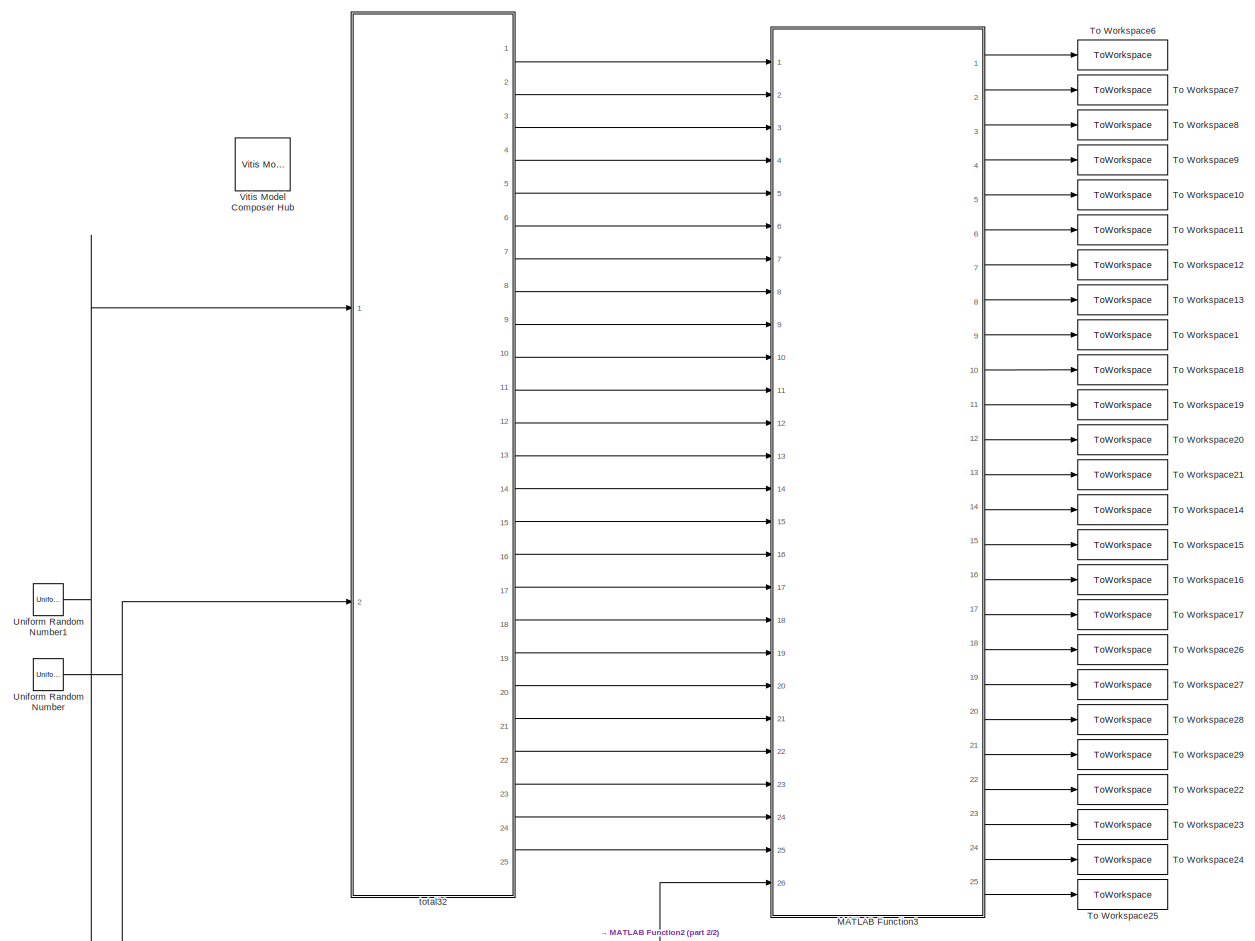
[diagram: root canvas - part 1/2, most of the canvas]
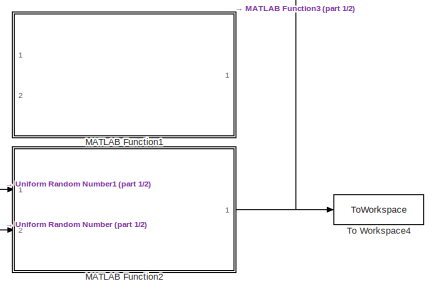
[diagram: root canvas - part 2/2, bottom center region]
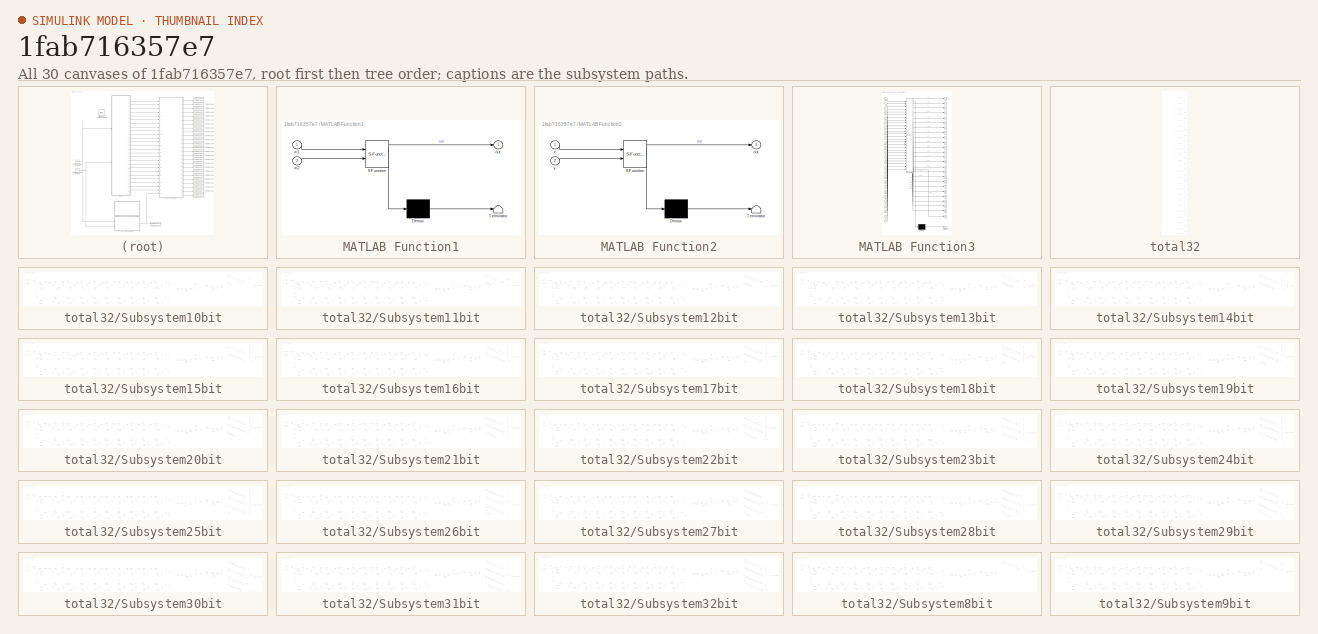
[diagram: thumbnail index - all 30 canvases of the model, root first then tree order]
MODEL slx_1fab716357e7
KIND model
CONFIG AbsTol = auto
CONFIG EnableMultiTasking = off
CONFIG FixedStep = auto
CONFIG MaxStep = auto
CONFIG MinStep = auto
CONFIG RelTol = 1e-3
CONFIG SampleTimeConstraint = Unconstrained
CONFIG SolverName = VariableStepAuto
CONFIG StartTime = 0.0
CONFIG StopTime = 99
BLOCK [SubSystem] MATLAB Function1
  Commented = on
  ErrorFcn = Stateflow.Translate.translate
  PermitHierarchicalResolution = ExplicitOnly
  Ports = [2, 1]
  RequestExecContextInheritance = off
  SFBlockType = MATLAB Function
  TreatAsAtomicUnit = on
BLOCK [Demux] MATLAB Function1/ Demux 
  Outputs = 1
  Ports = [1, 1]
BLOCK [S-Function] MATLAB Function1/ SFunction 
  EnableBusSupport = on
  FunctionName = sf_sfun
  PortCounts = [2 2]
  Ports = [2, 2]
  SFcnIsStateOwnerBlock = off
  SFunctionDeploymentMode = off
  Tag = Stateflow S-Function 1
BLOCK [Terminator] MATLAB Function1/ Terminator 
BLOCK [Inport] MATLAB Function1/in1
BLOCK [Inport] MATLAB Function1/in2
  Port = 2
BLOCK [Outport] MATLAB Function1/out
BLOCK [SubSystem] MATLAB Function2
  ErrorFcn = Stateflow.Translate.translate
  PermitHierarchicalResolution = ExplicitOnly
  Ports = [2, 1]
  RequestExecContextInheritance = off
  SFBlockType = MATLAB Function
  TreatAsAtomicUnit = on
BLOCK [Demux] MATLAB Function2/ Demux 
  Outputs = 1
  Ports = [1, 1]
BLOCK [S-Function] MATLAB Function2/ SFunction 
  EnableBusSupport = on
  FunctionName = sf_sfun
  PortCounts = [2 2]
  Ports = [2, 2]
  SFcnIsStateOwnerBlock = off
  SFunctionDeploymentMode = off
  Tag = Stateflow S-Function 3
BLOCK [Terminator] MATLAB Function2/ Terminator 
BLOCK [Outport] MATLAB Function2/out
BLOCK [Inport] MATLAB Function2/x
BLOCK [Inport] MATLAB Function2/y
  Port = 2
BLOCK [SubSystem] MATLAB Function3
  ErrorFcn = Stateflow.Translate.translate
  PermitHierarchicalResolution = ExplicitOnly
  Ports = [26, 25]
  RequestExecContextInheritance = off
  SFBlockType = MATLAB Function
  TreatAsAtomicUnit = on
BLOCK [Demux] MATLAB Function3/ Demux 
  Outputs = 1
  Ports = [1, 1]
BLOCK [S-Function] MATLAB Function3/ SFunction 
  EnableBusSupport = on
  FunctionName = sf_sfun
  PortCounts = [26 26]
  Ports = [26, 26]
  SFcnIsStateOwnerBlock = off
  SFunctionDeploymentMode = off
  Tag = Stateflow S-Function 4
BLOCK [Terminator] MATLAB Function3/ Terminator 
BLOCK [Inport] MATLAB Function3/u10
  Port = 3
BLOCK [Inport] MATLAB Function3/u11
  Port = 4
BLOCK [Inport] MATLAB Function3/u12
  Port = 5
BLOCK [Inport] MATLAB Function3/u13
  Port = 6
BLOCK [Inport] MATLAB Function3/u14
  Port = 7
BLOCK [Inport] MATLAB Function3/u15
  Port = 8
BLOCK [Inport] MATLAB Function3/u16
  Port = 9
BLOCK [Inport] MATLAB Function3/u17
  Port = 10
BLOCK [Inport] MATLAB Function3/u18
  Port = 11
BLOCK [Inport] MATLAB Function3/u19
  Port = 12
BLOCK [Inport] MATLAB Function3/u20
  Port = 13
BLOCK [Inport] MATLAB Function3/u21
  Port = 14
BLOCK [Inport] MATLAB Function3/u22
  Port = 15
BLOCK [Inport] MATLAB Function3/u23
  Port = 16
BLOCK [Inport] MATLAB Function3/u24
  Port = 17
BLOCK [Inport] MATLAB Function3/u25
  Port = 18
BLOCK [Inport] MATLAB Function3/u26
  Port = 19
BLOCK [Inport] MATLAB Function3/u27
  Port = 20
BLOCK [Inport] MATLAB Function3/u28
  Port = 21
BLOCK [Inport] MATLAB Function3/u29
  Port = 22
BLOCK [Inport] MATLAB Function3/u30
  Port = 23
BLOCK [Inport] MATLAB Function3/u31
  Port = 24
BLOCK [Inport] MATLAB Function3/u32
  Port = 25
BLOCK [Inport] MATLAB Function3/u8
BLOCK [Inport] MATLAB Function3/u9
  Port = 2
BLOCK [Inport] MATLAB Function3/x
  Port = 26
BLOCK [Outport] MATLAB Function3/y10
  Port = 3
BLOCK [Outport] MATLAB Function3/y11
  Port = 4
BLOCK [Outport] MATLAB Function3/y12
  Port = 5
BLOCK [Outport] MATLAB Function3/y13
  Port = 6
BLOCK [Outport] MATLAB Function3/y14
  Port = 7
BLOCK [Outport] MATLAB Function3/y15
  Port = 8
BLOCK [Outport] MATLAB Function3/y16
  Port = 9
BLOCK [Outport] MATLAB Function3/y17
  Port = 10
BLOCK [Outport] MATLAB Function3/y18
  Port = 11
BLOCK [Outport] MATLAB Function3/y19
  Port = 12
BLOCK [Outport] MATLAB Function3/y20
  Port = 13
BLOCK [Outport] MATLAB Function3/y21
  Port = 14
BLOCK [Outport] MATLAB Function3/y22
  Port = 15
BLOCK [Outport] MATLAB Function3/y23
  Port = 16
BLOCK [Outport] MATLAB Function3/y24
  Port = 17
BLOCK [Outport] MATLAB Function3/y25
  Port = 18
BLOCK [Outport] MATLAB Function3/y26
  Port = 19
BLOCK [Outport] MATLAB Function3/y27
  Port = 20
BLOCK [Outport] MATLAB Function3/y28
  Port = 21
BLOCK [Outport] MATLAB Function3/y29
  Port = 22
BLOCK [Outport] MATLAB Function3/y30
  Port = 23
BLOCK [Outport] MATLAB Function3/y31
  Port = 24
BLOCK [Outport] MATLAB Function3/y32
  Port = 25
BLOCK [Outport] MATLAB Function3/y8
BLOCK [Outport] MATLAB Function3/y9
  Port = 2
BLOCK [ToWorkspace] To Workspace1
  FixptAsFi = on
  MaxDataPoints = inf
  Ports = [1]
  SampleTime = -1
  SaveFormat = Structure With Time
  VariableName = out16
BLOCK [ToWorkspace] To Workspace10
  FixptAsFi = on
  MaxDataPoints = inf
  Ports = [1]
  SampleTime = -1
  SaveFormat = Structure With Time
  VariableName = out12
BLOCK [ToWorkspace] To Workspace11
  FixptAsFi = on
  MaxDataPoints = inf
  Ports = [1]
  SampleTime = -1
  SaveFormat = Structure With Time
  VariableName = out13
BLOCK [ToWorkspace] To Workspace12
  FixptAsFi = on
  MaxDataPoints = inf
  Ports = [1]
  SampleTime = -1
  SaveFormat = Structure With Time
  VariableName = out14
BLOCK [ToWorkspace] To Workspace13
  FixptAsFi = on
  MaxDataPoints = inf
  Ports = [1]
  SampleTime = -1
  SaveFormat = Structure With Time
  VariableName = out15
BLOCK [ToWorkspace] To Workspace14
  FixptAsFi = on
  MaxDataPoints = inf
  Ports = [1]
  SampleTime = -1
  SaveFormat = Structure With Time
  VariableName = out21
BLOCK [ToWorkspace] To Workspace15
  FixptAsFi = on
  MaxDataPoints = inf
  Ports = [1]
  SampleTime = -1
  SaveFormat = Structure With Time
  VariableName = out22
BLOCK [ToWorkspace] To Workspace16
  FixptAsFi = on
  MaxDataPoints = inf
  Ports = [1]
  SampleTime = -1
  SaveFormat = Structure With Time
  VariableName = out23
BLOCK [ToWorkspace] To Workspace17
  FixptAsFi = on
  MaxDataPoints = inf
  Ports = [1]
  SampleTime = -1
  SaveFormat = Structure With Time
  VariableName = out24
BLOCK [ToWorkspace] To Workspace18
  FixptAsFi = on
  MaxDataPoints = inf
  Ports = [1]
  SampleTime = -1
  SaveFormat = Structure With Time
  VariableName = out17
BLOCK [ToWorkspace] To Workspace19
  FixptAsFi = on
  MaxDataPoints = inf
  Ports = [1]
  SampleTime = -1
  SaveFormat = Structure With Time
  VariableName = out18
BLOCK [ToWorkspace] To Workspace20
  FixptAsFi = on
  MaxDataPoints = inf
  Ports = [1]
  SampleTime = -1
  SaveFormat = Structure With Time
  VariableName = out19
BLOCK [ToWorkspace] To Workspace21
  FixptAsFi = on
  MaxDataPoints = inf
  Ports = [1]
  SampleTime = -1
  SaveFormat = Structure With Time
  VariableName = out20
BLOCK [ToWorkspace] To Workspace22
  FixptAsFi = on
  MaxDataPoints = inf
  Ports = [1]
  SampleTime = -1
  SaveFormat = Structure With Time
  VariableName = out29
BLOCK [ToWorkspace] To Workspace23
  FixptAsFi = on
  MaxDataPoints = inf
  Ports = [1]
  SampleTime = -1
  SaveFormat = Structure With Time
  VariableName = out30
BLOCK [ToWorkspace] To Workspace24
  FixptAsFi = on
  MaxDataPoints = inf
  Ports = [1]
  SampleTime = -1
  SaveFormat = Structure With Time
  VariableName = out31
BLOCK [ToWorkspace] To Workspace25
  FixptAsFi = on
  MaxDataPoints = inf
  Ports = [1]
  SampleTime = -1
  SaveFormat = Structure With Time
  VariableName = out32
BLOCK [ToWorkspace] To Workspace26
  FixptAsFi = on
  MaxDataPoints = inf
  Ports = [1]
  SampleTime = -1
  SaveFormat = Structure With Time
  VariableName = out25
BLOCK [ToWorkspace] To Workspace27
  FixptAsFi = on
  MaxDataPoints = inf
  Ports = [1]
  SampleTime = -1
  SaveFormat = Structure With Time
  VariableName = out26
BLOCK [ToWorkspace] To Workspace28
  FixptAsFi = on
  MaxDataPoints = inf
  Ports = [1]
  SampleTime = -1
  SaveFormat = Structure With Time
  VariableName = out27
BLOCK [ToWorkspace] To Workspace29
  FixptAsFi = on
  MaxDataPoints = inf
  Ports = [1]
  SampleTime = -1
  SaveFormat = Structure With Time
  VariableName = out28
BLOCK [ToWorkspace] To Workspace4
  FixptAsFi = on
  MaxDataPoints = inf
  Ports = [1]
  SampleTime = 1
  Save2DSignal = 2-D array (concatenate along first dimension)
  SaveFormat = Structure With Time
  VariableName = outGOLD
BLOCK [ToWorkspace] To Workspace6
  FixptAsFi = on
  MaxDataPoints = inf
  Ports = [1]
  SampleTime = -1
  Save2DSignal = 2-D array (concatenate along first dimension)
  SaveFormat = Structure With Time
  VariableName = out8
BLOCK [ToWorkspace] To Workspace7
  FixptAsFi = on
  MaxDataPoints = inf
  Ports = [1]
  SampleTime = -1
  SaveFormat = Structure With Time
  VariableName = out9
BLOCK [ToWorkspace] To Workspace8
  FixptAsFi = on
  MaxDataPoints = inf
  Ports = [1]
  SampleTime = -1
  SaveFormat = Structure With Time
  VariableName = out10
BLOCK [ToWorkspace] To Workspace9
  FixptAsFi = on
  MaxDataPoints = inf
  Ports = [1]
  SampleTime = -1
  SaveFormat = Structure With Time
  VariableName = out11
BLOCK [UniformRandomNumber] Uniform Random Number
  Maximum = 0.9
  Minimum = -0.9
  SampleTime = 1
BLOCK [UniformRandomNumber] Uniform Random Number1
  Maximum = 0.9
  Minimum = -0.9
  SampleTime = 1
  Seed = 1
BLOCK [Reference] Vitis Model Composer Hub  REF=vmcUtilities/Vitis Model Composer Hub
  Ports = []
  SourceBlock = vmcUtilities/Vitis Model Composer Hub
  SourceType = Implementation
  Tag = genX
  UserDataPersistent = on
BLOCK [SubSystem] total32
  Ports = [2, 25]
  RequestExecContextInheritance = off
BLOCK [Inport] total32/In1
BLOCK [Inport] total32/In2
  Port = 2
BLOCK [Outport] total32/Output
BLOCK [Outport] total32/Output1
  Port = 2
BLOCK [Outport] total32/Output10
  Port = 11
BLOCK [Outport] total32/Output11
  Port = 12
BLOCK [Outport] total32/Output12
  Port = 13
BLOCK [Outport] total32/Output13
  Port = 14
BLOCK [Outport] total32/Output14
  Port = 15
BLOCK [Outport] total32/Output15
  Port = 16
BLOCK [Outport] total32/Output16
  Port = 17
BLOCK [Outport] total32/Output17
  Port = 18
BLOCK [Outport] total32/Output18
  Port = 19
BLOCK [Outport] total32/Output19
  Port = 20
BLOCK [Outport] total32/Output2
  Port = 3
BLOCK [Outport] total32/Output20
  Port = 21
BLOCK [Outport] total32/Output21
  Port = 22
BLOCK [Outport] total32/Output22
  Port = 23
BLOCK [Outport] total32/Output23
  Port = 24
BLOCK [Outport] total32/Output24
  Port = 25
BLOCK [Outport] total32/Output3
  Port = 4
BLOCK [Outport] total32/Output4
  Port = 5
BLOCK [Outport] total32/Output5
  Port = 6
BLOCK [Outport] total32/Output6
  Port = 7
BLOCK [Outport] total32/Output7
  Port = 8
BLOCK [Outport] total32/Output8
  Port = 9
BLOCK [Outport] total32/Output9
  Port = 10
BLOCK [SubSystem] total32/Subsystem10bit
  Ports = [2, 1]
  RequestExecContextInheritance = off
BLOCK [Reference] total32/Subsystem10bit/CMult1  REF=hdlBasic/CMult
  Ports = [1, 1]
  SourceBlock = hdlBasic/CMult
  SourceType = Constant Multiplier Block
BLOCK [Reference] total32/Subsystem10bit/Concat  REF=hdlBasic/Concat
  Ports = [10, 1]
  SourceBlock = hdlBasic/Concat
  SourceType = Bus Concatenator Block
BLOCK [Reference] total32/Subsystem10bit/Constant  REF=hdlBasic/Constant
  Ports = [0, 1]
  SourceBlock = hdlBasic/Constant
  SourceType = Constant Block Block
BLOCK [Reference] total32/Subsystem10bit/Constant1  REF=hdlBasic/Constant
  Ports = [0, 1]
  SourceBlock = hdlBasic/Constant
  SourceType = Constant Block Block
BLOCK [Reference] total32/Subsystem10bit/Constant2  REF=hdlBasic/Constant
  Ports = [0, 1]
  SourceBlock = hdlBasic/Constant
  SourceType = Constant Block Block
BLOCK [Reference] total32/Subsystem10bit/Constant3  REF=hdlBasic/Constant
  Ports = [0, 1]
  SourceBlock = hdlBasic/Constant
  SourceType = Constant Block Block
BLOCK [Reference] total32/Subsystem10bit/Constant5  REF=hdlBasic/Constant
  Ports = [0, 1]
  SourceBlock = hdlBasic/Constant
  SourceType = Constant Block Block
BLOCK [Reference] total32/Subsystem10bit/Constant6  REF=hdlBasic/Constant
  Ports = [0, 1]
  SourceBlock = hdlBasic/Constant
  SourceType = Constant Block Block
BLOCK [Reference] total32/Subsystem10bit/Constant7  REF=hdlBasic/Constant
  Ports = [0, 1]
  SourceBlock = hdlBasic/Constant
  SourceType = Constant Block Block
BLOCK [Reference] total32/Subsystem10bit/Gate_In1  REF=hdlBasic/Gateway In
  Ports = [1, 1]
  SourceBlock = hdlBasic/Gateway In
  SourceType = Gateway In Block
BLOCK [Reference] total32/Subsystem10bit/Gate_In2  REF=hdlBasic/Gateway In
  Ports = [1, 1]
  SourceBlock = hdlBasic/Gateway In
  SourceType = Gateway In Block
BLOCK [Reference] total32/Subsystem10bit/Gate_out1  REF=hdlBasic/Gateway Out
  Ports = [1, 1]
  SourceBlock = hdlBasic/Gateway Out
  SourceType = Gateway Out Block
BLOCK [Inport] total32/Subsystem10bit/In3
BLOCK [Inport] total32/Subsystem10bit/In4
  Port = 2
BLOCK [Reference] total32/Subsystem10bit/Mult1  REF=hdlBasic/Mult
  Ports = [2, 1]
  SourceBlock = hdlBasic/Mult
  SourceType = Multiplier Block
BLOCK [Reference] total32/Subsystem10bit/Mux  REF=hdlBasic/Mux
  Ports = [3, 1]
  SourceBlock = hdlBasic/Mux
  SourceType = Bus Multiplexer Block
BLOCK [Reference] total32/Subsystem10bit/Mux1  REF=hdlBasic/Mux
  Ports = [3, 1]
  SourceBlock = hdlBasic/Mux
  SourceType = Bus Multiplexer Block
BLOCK [Reference] total32/Subsystem10bit/Mux2  REF=hdlBasic/Mux
  Ports = [3, 1]
  SourceBlock = hdlBasic/Mux
  SourceType = Bus Multiplexer Block
BLOCK [Reference] total32/Subsystem10bit/Mux20  REF=hdlBasic/Mux
  Ports = [3, 1]
  SourceBlock = hdlBasic/Mux
  SourceType = Bus Multiplexer Block
BLOCK [Reference] total32/Subsystem10bit/Mux21  REF=hdlBasic/Mux
  Ports = [3, 1]
  SourceBlock = hdlBasic/Mux
  SourceType = Bus Multiplexer Block
BLOCK [Reference] total32/Subsystem10bit/Mux22  REF=hdlBasic/Mux
  Ports = [3, 1]
  SourceBlock = hdlBasic/Mux
  SourceType = Bus Multiplexer Block
BLOCK [Reference] total32/Subsystem10bit/Mux23  REF=hdlBasic/Mux
  Ports = [3, 1]
  SourceBlock = hdlBasic/Mux
  SourceType = Bus Multiplexer Block
BLOCK [Reference] total32/Subsystem10bit/Mux24  REF=hdlBasic/Mux
  Ports = [3, 1]
  SourceBlock = hdlBasic/Mux
  SourceType = Bus Multiplexer Block
BLOCK [Reference] total32/Subsystem10bit/Mux25  REF=hdlBasic/Mux
  Ports = [3, 1]
  SourceBlock = hdlBasic/Mux
  SourceType = Bus Multiplexer Block
BLOCK [Reference] total32/Subsystem10bit/Mux26  REF=hdlBasic/Mux
  Ports = [3, 1]
  SourceBlock = hdlBasic/Mux
  SourceType = Bus Multiplexer Block
BLOCK [Reference] total32/Subsystem10bit/Mux27  REF=hdlBasic/Mux
  Ports = [3, 1]
  SourceBlock = hdlBasic/Mux
  SourceType = Bus Multiplexer Block
BLOCK [Reference] total32/Subsystem10bit/Mux28  REF=hdlBasic/Mux
  Ports = [3, 1]
  SourceBlock = hdlBasic/Mux
  SourceType = Bus Multiplexer Block
BLOCK [Reference] total32/Subsystem10bit/Mux3  REF=hdlBasic/Mux
  Ports = [3, 1]
  SourceBlock = hdlBasic/Mux
  SourceType = Bus Multiplexer Block
BLOCK [Reference] total32/Subsystem10bit/Mux38  REF=hdlBasic/Mux
  Ports = [3, 1]
  SourceBlock = hdlBasic/Mux
  SourceType = Bus Multiplexer Block
BLOCK [Reference] total32/Subsystem10bit/Mux39  REF=hdlBasic/Mux
  Ports = [3, 1]
  SourceBlock = hdlBasic/Mux
  SourceType = Bus Multiplexer Block
BLOCK [Reference] total32/Subsystem10bit/Mux4  REF=hdlBasic/Mux
  Ports = [3, 1]
  SourceBlock = hdlBasic/Mux
  SourceType = Bus Multiplexer Block
BLOCK [Reference] total32/Subsystem10bit/Mux5  REF=hdlBasic/Mux
  Ports = [3, 1]
  SourceBlock = hdlBasic/Mux
  SourceType = Bus Multiplexer Block
BLOCK [Reference] total32/Subsystem10bit/Mux6  REF=hdlBasic/Mux
  Ports = [3, 1]
  SourceBlock = hdlBasic/Mux
  SourceType = Bus Multiplexer Block
BLOCK [Reference] total32/Subsystem10bit/Mux7  REF=hdlBasic/Mux
  Ports = [3, 1]
  SourceBlock = hdlBasic/Mux
  SourceType = Bus Multiplexer Block
BLOCK [Reference] total32/Subsystem10bit/Mux8  REF=hdlBasic/Mux
  Ports = [3, 1]
  SourceBlock = hdlBasic/Mux
  SourceType = Bus Multiplexer Block
BLOCK [Reference] total32/Subsystem10bit/Negate  REF=hdlBasic/Negate
  Ports = [1, 1]
  SourceBlock = hdlBasic/Negate
  SourceType = Negate Block Block
BLOCK [Outport] total32/Subsystem10bit/Output
BLOCK [Reference] total32/Subsystem10bit/ROM1  REF=hdlBasic/ROM
  Ports = [1, 1]
  SourceBlock = hdlBasic/ROM
  SourceType = Single Port Read-Only Memory Block
BLOCK [Reference] total32/Subsystem10bit/ROM10  REF=hdlBasic/ROM
  Ports = [1, 1]
  SourceBlock = hdlBasic/ROM
  SourceType = Single Port Read-Only Memory Block
BLOCK [Reference] total32/Subsystem10bit/ROM2  REF=hdlBasic/ROM
  Ports = [1, 1]
  SourceBlock = hdlBasic/ROM
  SourceType = Single Port Read-Only Memory Block
BLOCK [Reference] total32/Subsystem10bit/ROM3  REF=hdlBasic/ROM
  Ports = [1, 1]
  SourceBlock = hdlBasic/ROM
  SourceType = Single Port Read-Only Memory Block
BLOCK [Reference] total32/Subsystem10bit/ROM4  REF=hdlBasic/ROM
  Ports = [1, 1]
  SourceBlock = hdlBasic/ROM
  SourceType = Single Port Read-Only Memory Block
BLOCK [Reference] total32/Subsystem10bit/ROM5  REF=hdlBasic/ROM
  Ports = [1, 1]
  SourceBlock = hdlBasic/ROM
  SourceType = Single Port Read-Only Memory Block
BLOCK [Reference] total32/Subsystem10bit/ROM6  REF=hdlBasic/ROM
  Ports = [1, 1]
  SourceBlock = hdlBasic/ROM
  SourceType = Single Port Read-Only Memory Block
BLOCK [Reference] total32/Subsystem10bit/ROM7  REF=hdlBasic/ROM
  Ports = [1, 1]
  SourceBlock = hdlBasic/ROM
  SourceType = Single Port Read-Only Memory Block
BLOCK [Reference] total32/Subsystem10bit/ROM8  REF=hdlBasic/ROM
  Ports = [1, 1]
  SourceBlock = hdlBasic/ROM
  SourceType = Single Port Read-Only Memory Block
BLOCK [Reference] total32/Subsystem10bit/ROM9  REF=hdlBasic/ROM
  Ports = [1, 1]
  SourceBlock = hdlBasic/ROM
  SourceType = Single Port Read-Only Memory Block
BLOCK [Reference] total32/Subsystem10bit/Relational21  REF=hdlBasic/Relational
  Ports = [2, 1]
  SourceBlock = hdlBasic/Relational
  SourceType = Arithmetic Relational Operator Block
BLOCK [Reference] total32/Subsystem10bit/Relational24  REF=hdlBasic/Relational
  Ports = [2, 1]
  SourceBlock = hdlBasic/Relational
  SourceType = Arithmetic Relational Operator Block
BLOCK [Reference] total32/Subsystem10bit/Relational25  REF=hdlBasic/Relational
  Ports = [2, 1]
  SourceBlock = hdlBasic/Relational
  SourceType = Arithmetic Relational Operator Block
BLOCK [Reference] total32/Subsystem10bit/Relational26  REF=hdlBasic/Relational
  Ports = [2, 1]
  SourceBlock = hdlBasic/Relational
  SourceType = Arithmetic Relational Operator Block
BLOCK [Reference] total32/Subsystem10bit/Relational27  REF=hdlBasic/Relational
  Ports = [2, 1]
  SourceBlock = hdlBasic/Relational
  SourceType = Arithmetic Relational Operator Block
BLOCK [Reference] total32/Subsystem10bit/Relational28  REF=hdlBasic/Relational
  Ports = [2, 1]
  SourceBlock = hdlBasic/Relational
  SourceType = Arithmetic Relational Operator Block
BLOCK [Reference] total32/Subsystem10bit/Relational29  REF=hdlBasic/Relational
  Ports = [2, 1]
  SourceBlock = hdlBasic/Relational
  SourceType = Arithmetic Relational Operator Block
BLOCK [Reference] total32/Subsystem10bit/Relational3  REF=hdlBasic/Relational
  Ports = [2, 1]
  SourceBlock = hdlBasic/Relational
  SourceType = Arithmetic Relational Operator Block
BLOCK [Reference] total32/Subsystem10bit/Relational30  REF=hdlBasic/Relational
  Ports = [2, 1]
  SourceBlock = hdlBasic/Relational
  SourceType = Arithmetic Relational Operator Block
BLOCK [Reference] total32/Subsystem10bit/Relational37  REF=hdlBasic/Relational
  Ports = [2, 1]
  SourceBlock = hdlBasic/Relational
  SourceType = Arithmetic Relational Operator Block
BLOCK [Reference] total32/Subsystem10bit/Relational38  REF=hdlBasic/Relational
  Ports = [2, 1]
  SourceBlock = hdlBasic/Relational
  SourceType = Arithmetic Relational Operator Block
BLOCK [Reference] total32/Subsystem10bit/Relational4  REF=hdlBasic/Relational
  Ports = [2, 1]
  SourceBlock = hdlBasic/Relational
  SourceType = Arithmetic Relational Operator Block
BLOCK [Reference] total32/Subsystem10bit/Relational5  REF=hdlBasic/Relational
  Ports = [2, 1]
  SourceBlock = hdlBasic/Relational
  SourceType = Arithmetic Relational Operator Block
BLOCK [Reference] total32/Subsystem10bit/Relational6  REF=hdlBasic/Relational
  Ports = [2, 1]
  SourceBlock = hdlBasic/Relational
  SourceType = Arithmetic Relational Operator Block
BLOCK [Reference] total32/Subsystem10bit/Relational7  REF=hdlBasic/Relational
  Ports = [2, 1]
  SourceBlock = hdlBasic/Relational
  SourceType = Arithmetic Relational Operator Block
BLOCK [Reference] total32/Subsystem10bit/Relational8  REF=hdlBasic/Relational
  Ports = [2, 1]
  SourceBlock = hdlBasic/Relational
  SourceType = Arithmetic Relational Operator Block
BLOCK [Reference] total32/Subsystem10bit/Relational9  REF=hdlBasic/Relational
  Ports = [2, 1]
  SourceBlock = hdlBasic/Relational
  SourceType = Arithmetic Relational Operator Block
BLOCK [Reference] total32/Subsystem10bit/Scaling  REF=hdlBasic/Scale
  Ports = [1, 1]
  SourceBlock = hdlBasic/Scale
  SourceType = Input Scaler Block
BLOCK [Reference] total32/Subsystem10bit/Slice  REF=hdlBasic/Slice
  Ports = [1, 1]
  SourceBlock = hdlBasic/Slice
  SourceType = Bit Slice Extractor Block
BLOCK [Reference] total32/Subsystem10bit/Slice1  REF=hdlBasic/Slice
  Ports = [1, 1]
  SourceBlock = hdlBasic/Slice
  SourceType = Bit Slice Extractor Block
BLOCK [Reference] total32/Subsystem10bit/Slice2  REF=hdlBasic/Slice
  Ports = [1, 1]
  SourceBlock = hdlBasic/Slice
  SourceType = Bit Slice Extractor Block
BLOCK [Reference] total32/Subsystem10bit/Slice3  REF=hdlBasic/Slice
  Ports = [1, 1]
  SourceBlock = hdlBasic/Slice
  SourceType = Bit Slice Extractor Block
BLOCK [Reference] total32/Subsystem10bit/addsub1  REF=hdlBasic/AddSub
  Ports = [2, 1]
  SourceBlock = hdlBasic/AddSub
  SourceType = Adder/Subtracter Block
BLOCK [Reference] total32/Subsystem10bit/addsub10  REF=hdlBasic/AddSub
  Ports = [2, 1]
  SourceBlock = hdlBasic/AddSub
  SourceType = Adder/Subtracter Block
BLOCK [Reference] total32/Subsystem10bit/addsub11  REF=hdlBasic/AddSub
  Ports = [2, 1]
  SourceBlock = hdlBasic/AddSub
  SourceType = Adder/Subtracter Block
BLOCK [Reference] total32/Subsystem10bit/addsub12  REF=hdlBasic/AddSub
  Ports = [2, 1]
  SourceBlock = hdlBasic/AddSub
  SourceType = Adder/Subtracter Block
BLOCK [Reference] total32/Subsystem10bit/addsub13  REF=hdlBasic/AddSub
  Ports = [2, 1]
  SourceBlock = hdlBasic/AddSub
  SourceType = Adder/Subtracter Block
BLOCK [Reference] total32/Subsystem10bit/addsub14  REF=hdlBasic/AddSub
  Ports = [2, 1]
  SourceBlock = hdlBasic/AddSub
  SourceType = Adder/Subtracter Block
BLOCK [Reference] total32/Subsystem10bit/addsub15  REF=hdlBasic/AddSub
  Ports = [2, 1]
  SourceBlock = hdlBasic/AddSub
  SourceType = Adder/Subtracter Block
BLOCK [Reference] total32/Subsystem10bit/addsub16  REF=hdlBasic/AddSub
  Ports = [2, 1]
  SourceBlock = hdlBasic/AddSub
  SourceType = Adder/Subtracter Block
BLOCK [Reference] total32/Subsystem10bit/addsub17  REF=hdlBasic/AddSub
  Ports = [2, 1]
  SourceBlock = hdlBasic/AddSub
  SourceType = Adder/Subtracter Block
BLOCK [Reference] total32/Subsystem10bit/addsub18  REF=hdlBasic/AddSub
  Ports = [2, 1]
  SourceBlock = hdlBasic/AddSub
  SourceType = Adder/Subtracter Block
BLOCK [Reference] total32/Subsystem10bit/addsub19  REF=hdlBasic/AddSub
  Ports = [2, 1]
  SourceBlock = hdlBasic/AddSub
  SourceType = Adder/Subtracter Block
BLOCK [Reference] total32/Subsystem10bit/addsub2  REF=hdlBasic/AddSub
  Ports = [2, 1]
  SourceBlock = hdlBasic/AddSub
  SourceType = Adder/Subtracter Block
BLOCK [Reference] total32/Subsystem10bit/addsub20  REF=hdlBasic/AddSub
  Ports = [2, 1]
  SourceBlock = hdlBasic/AddSub
  SourceType = Adder/Subtracter Block
BLOCK [Reference] total32/Subsystem10bit/addsub21  REF=hdlBasic/AddSub
  Ports = [2, 1]
  SourceBlock = hdlBasic/AddSub
  SourceType = Adder/Subtracter Block
BLOCK [Reference] total32/Subsystem10bit/addsub22  REF=hdlBasic/AddSub
  Ports = [2, 1]
  SourceBlock = hdlBasic/AddSub
  SourceType = Adder/Subtracter Block
BLOCK [Reference] total32/Subsystem10bit/addsub23  REF=hdlBasic/AddSub
  Ports = [2, 1]
  SourceBlock = hdlBasic/AddSub
  SourceType = Adder/Subtracter Block
BLOCK [Reference] total32/Subsystem10bit/addsub3  REF=hdlBasic/AddSub
  Ports = [2, 1]
  SourceBlock = hdlBasic/AddSub
  SourceType = Adder/Subtracter Block
BLOCK [Reference] total32/Subsystem10bit/addsub4  REF=hdlBasic/AddSub
  Ports = [2, 1]
  SourceBlock = hdlBasic/AddSub
  SourceType = Adder/Subtracter Block
BLOCK [Reference] total32/Subsystem10bit/addsub5  REF=hdlBasic/AddSub
  Ports = [2, 1]
  SourceBlock = hdlBasic/AddSub
  SourceType = Adder/Subtracter Block
BLOCK [Reference] total32/Subsystem10bit/addsub6  REF=hdlBasic/AddSub
  Ports = [2, 1]
  SourceBlock = hdlBasic/AddSub
  SourceType = Adder/Subtracter Block
BLOCK [Reference] total32/Subsystem10bit/addsub7  REF=hdlBasic/AddSub
  Ports = [2, 1]
  SourceBlock = hdlBasic/AddSub
  SourceType = Adder/Subtracter Block
BLOCK [Reference] total32/Subsystem10bit/addsub8  REF=hdlBasic/AddSub
  Ports = [2, 1]
  SourceBlock = hdlBasic/AddSub
  SourceType = Adder/Subtracter Block
BLOCK [Reference] total32/Subsystem10bit/addsub9  REF=hdlBasic/AddSub
  Ports = [2, 1]
  SourceBlock = hdlBasic/AddSub
  SourceType = Adder/Subtracter Block
BLOCK [Reference] total32/Subsystem10bit/bool1  REF=hdlBasic/Relational
  Ports = [2, 1]
  SourceBlock = hdlBasic/Relational
  SourceType = Arithmetic Relational Operator Block
BLOCK [Reference] total32/Subsystem10bit/bool2  REF=hdlBasic/Relational
  Ports = [2, 1]
  SourceBlock = hdlBasic/Relational
  SourceType = Arithmetic Relational Operator Block
BLOCK [Reference] total32/Subsystem10bit/bool3  REF=hdlBasic/Relational
  Ports = [2, 1]
  SourceBlock = hdlBasic/Relational
  SourceType = Arithmetic Relational Operator Block
BLOCK [Reference] total32/Subsystem10bit/bool4  REF=hdlBasic/Relational
  Ports = [2, 1]
  SourceBlock = hdlBasic/Relational
  SourceType = Arithmetic Relational Operator Block
BLOCK [Reference] total32/Subsystem10bit/logi_b0  REF=hdlBasic/Constant
  Ports = [0, 1]
  SourceBlock = hdlBasic/Constant
  SourceType = Constant Block Block
BLOCK [Reference] total32/Subsystem10bit/logi_b1  REF=hdlBasic/Constant
  Ports = [0, 1]
  SourceBlock = hdlBasic/Constant
  SourceType = Constant Block Block
BLOCK [Reference] total32/Subsystem10bit/logi_b2  REF=hdlBasic/Constant
  Ports = [0, 1]
  SourceBlock = hdlBasic/Constant
  SourceType = Constant Block Block
BLOCK [Reference] total32/Subsystem10bit/logi_b3  REF=hdlBasic/Constant
  Ports = [0, 1]
  SourceBlock = hdlBasic/Constant
  SourceType = Constant Block Block
BLOCK [Reference] total32/Subsystem10bit/logi_b4  REF=hdlBasic/Constant
  Ports = [0, 1]
  SourceBlock = hdlBasic/Constant
  SourceType = Constant Block Block
BLOCK [Reference] total32/Subsystem10bit/logi_b5  REF=hdlBasic/Constant
  Ports = [0, 1]
  SourceBlock = hdlBasic/Constant
  SourceType = Constant Block Block
BLOCK [Reference] total32/Subsystem10bit/logi_b6  REF=hdlBasic/Constant
  Ports = [0, 1]
  SourceBlock = hdlBasic/Constant
  SourceType = Constant Block Block
BLOCK [Reference] total32/Subsystem10bit/logi_b7  REF=hdlBasic/Constant
  Ports = [0, 1]
  SourceBlock = hdlBasic/Constant
  SourceType = Constant Block Block
BLOCK [Reference] total32/Subsystem10bit/logi_b8  REF=hdlBasic/Constant
  Ports = [0, 1]
  SourceBlock = hdlBasic/Constant
  SourceType = Constant Block Block
BLOCK [Reference] total32/Subsystem10bit/logi_b9  REF=hdlBasic/Constant
  Ports = [0, 1]
  SourceBlock = hdlBasic/Constant
  SourceType = Constant Block Block
BLOCK [Reference] total32/Subsystem10bit/logical_x0  REF=hdlBasic/Mux
  Ports = [3, 1]
  SourceBlock = hdlBasic/Mux
  SourceType = Bus Multiplexer Block
BLOCK [Reference] total32/Subsystem10bit/logical_y0  REF=hdlBasic/Mux
  Ports = [3, 1]
  SourceBlock = hdlBasic/Mux
  SourceType = Bus Multiplexer Block
BLOCK [SubSystem] total32/Subsystem11bit
  Ports = [2, 1]
  RequestExecContextInheritance = off
BLOCK [Reference] total32/Subsystem11bit/CMult1  REF=hdlBasic/CMult
  Ports = [1, 1]
  SourceBlock = hdlBasic/CMult
  SourceType = Constant Multiplier Block
BLOCK [Reference] total32/Subsystem11bit/Concat  REF=hdlBasic/Concat
  Ports = [11, 1]
  SourceBlock = hdlBasic/Concat
  SourceType = Bus Concatenator Block
BLOCK [Reference] total32/Subsystem11bit/Constant  REF=hdlBasic/Constant
  Ports = [0, 1]
  SourceBlock = hdlBasic/Constant
  SourceType = Constant Block Block
BLOCK [Reference] total32/Subsystem11bit/Constant1  REF=hdlBasic/Constant
  Ports = [0, 1]
  SourceBlock = hdlBasic/Constant
  SourceType = Constant Block Block
BLOCK [Reference] total32/Subsystem11bit/Constant2  REF=hdlBasic/Constant
  Ports = [0, 1]
  SourceBlock = hdlBasic/Constant
  SourceType = Constant Block Block
BLOCK [Reference] total32/Subsystem11bit/Constant3  REF=hdlBasic/Constant
  Ports = [0, 1]
  SourceBlock = hdlBasic/Constant
  SourceType = Constant Block Block
BLOCK [Reference] total32/Subsystem11bit/Constant5  REF=hdlBasic/Constant
  Ports = [0, 1]
  SourceBlock = hdlBasic/Constant
  SourceType = Constant Block Block
BLOCK [Reference] total32/Subsystem11bit/Constant6  REF=hdlBasic/Constant
  Ports = [0, 1]
  SourceBlock = hdlBasic/Constant
  SourceType = Constant Block Block
BLOCK [Reference] total32/Subsystem11bit/Constant7  REF=hdlBasic/Constant
  Ports = [0, 1]
  SourceBlock = hdlBasic/Constant
  SourceType = Constant Block Block
BLOCK [Reference] total32/Subsystem11bit/Gate_In1  REF=hdlBasic/Gateway In
  Ports = [1, 1]
  SourceBlock = hdlBasic/Gateway In
  SourceType = Gateway In Block
BLOCK [Reference] total32/Subsystem11bit/Gate_In2  REF=hdlBasic/Gateway In
  Ports = [1, 1]
  SourceBlock = hdlBasic/Gateway In
  SourceType = Gateway In Block
BLOCK [Reference] total32/Subsystem11bit/Gate_out1  REF=hdlBasic/Gateway Out
  Ports = [1, 1]
  SourceBlock = hdlBasic/Gateway Out
  SourceType = Gateway Out Block
BLOCK [Inport] total32/Subsystem11bit/In3
BLOCK [Inport] total32/Subsystem11bit/In4
  Port = 2
BLOCK [Reference] total32/Subsystem11bit/Mult1  REF=hdlBasic/Mult
  Ports = [2, 1]
  SourceBlock = hdlBasic/Mult
  SourceType = Multiplier Block
BLOCK [Reference] total32/Subsystem11bit/Mux  REF=hdlBasic/Mux
  Ports = [3, 1]
  SourceBlock = hdlBasic/Mux
  SourceType = Bus Multiplexer Block
BLOCK [Reference] total32/Subsystem11bit/Mux1  REF=hdlBasic/Mux
  Ports = [3, 1]
  SourceBlock = hdlBasic/Mux
  SourceType = Bus Multiplexer Block
BLOCK [Reference] total32/Subsystem11bit/Mux2  REF=hdlBasic/Mux
  Ports = [3, 1]
  SourceBlock = hdlBasic/Mux
  SourceType = Bus Multiplexer Block
BLOCK [Reference] total32/Subsystem11bit/Mux20  REF=hdlBasic/Mux
  Ports = [3, 1]
  SourceBlock = hdlBasic/Mux
  SourceType = Bus Multiplexer Block
BLOCK [Reference] total32/Subsystem11bit/Mux21  REF=hdlBasic/Mux
  Ports = [3, 1]
  SourceBlock = hdlBasic/Mux
  SourceType = Bus Multiplexer Block
BLOCK [Reference] total32/Subsystem11bit/Mux22  REF=hdlBasic/Mux
  Ports = [3, 1]
  SourceBlock = hdlBasic/Mux
  SourceType = Bus Multiplexer Block
BLOCK [Reference] total32/Subsystem11bit/Mux23  REF=hdlBasic/Mux
  Ports = [3, 1]
  SourceBlock = hdlBasic/Mux
  SourceType = Bus Multiplexer Block
BLOCK [Reference] total32/Subsystem11bit/Mux24  REF=hdlBasic/Mux
  Ports = [3, 1]
  SourceBlock = hdlBasic/Mux
  SourceType = Bus Multiplexer Block
BLOCK [Reference] total32/Subsystem11bit/Mux25  REF=hdlBasic/Mux
  Ports = [3, 1]
  SourceBlock = hdlBasic/Mux
  SourceType = Bus Multiplexer Block
BLOCK [Reference] total32/Subsystem11bit/Mux26  REF=hdlBasic/Mux
  Ports = [3, 1]
  SourceBlock = hdlBasic/Mux
  SourceType = Bus Multiplexer Block
BLOCK [Reference] total32/Subsystem11bit/Mux27  REF=hdlBasic/Mux
  Ports = [3, 1]
  SourceBlock = hdlBasic/Mux
  SourceType = Bus Multiplexer Block
BLOCK [Reference] total32/Subsystem11bit/Mux28  REF=hdlBasic/Mux
  Ports = [3, 1]
  SourceBlock = hdlBasic/Mux
  SourceType = Bus Multiplexer Block
BLOCK [Reference] total32/Subsystem11bit/Mux3  REF=hdlBasic/Mux
  Ports = [3, 1]
  SourceBlock = hdlBasic/Mux
  SourceType = Bus Multiplexer Block
BLOCK [Reference] total32/Subsystem11bit/Mux38  REF=hdlBasic/Mux
  Ports = [3, 1]
  SourceBlock = hdlBasic/Mux
  SourceType = Bus Multiplexer Block
BLOCK [Reference] total32/Subsystem11bit/Mux39  REF=hdlBasic/Mux
  Ports = [3, 1]
  SourceBlock = hdlBasic/Mux
  SourceType = Bus Multiplexer Block
BLOCK [Reference] total32/Subsystem11bit/Mux4  REF=hdlBasic/Mux
  Ports = [3, 1]
  SourceBlock = hdlBasic/Mux
  SourceType = Bus Multiplexer Block
BLOCK [Reference] total32/Subsystem11bit/Mux5  REF=hdlBasic/Mux
  Ports = [3, 1]
  SourceBlock = hdlBasic/Mux
  SourceType = Bus Multiplexer Block
BLOCK [Reference] total32/Subsystem11bit/Mux6  REF=hdlBasic/Mux
  Ports = [3, 1]
  SourceBlock = hdlBasic/Mux
  SourceType = Bus Multiplexer Block
BLOCK [Reference] total32/Subsystem11bit/Mux7  REF=hdlBasic/Mux
  Ports = [3, 1]
  SourceBlock = hdlBasic/Mux
  SourceType = Bus Multiplexer Block
BLOCK [Reference] total32/Subsystem11bit/Mux8  REF=hdlBasic/Mux
  Ports = [3, 1]
  SourceBlock = hdlBasic/Mux
  SourceType = Bus Multiplexer Block
BLOCK [Reference] total32/Subsystem11bit/Negate  REF=hdlBasic/Negate
  Ports = [1, 1]
  SourceBlock = hdlBasic/Negate
  SourceType = Negate Block Block
BLOCK [Outport] total32/Subsystem11bit/Output
BLOCK [Reference] total32/Subsystem11bit/ROM1  REF=hdlBasic/ROM
  Ports = [1, 1]
  SourceBlock = hdlBasic/ROM
  SourceType = Single Port Read-Only Memory Block
BLOCK [Reference] total32/Subsystem11bit/ROM10  REF=hdlBasic/ROM
  Ports = [1, 1]
  SourceBlock = hdlBasic/ROM
  SourceType = Single Port Read-Only Memory Block
BLOCK [Reference] total32/Subsystem11bit/ROM11  REF=hdlBasic/ROM
  Ports = [1, 1]
  SourceBlock = hdlBasic/ROM
  SourceType = Single Port Read-Only Memory Block
BLOCK [Reference] total32/Subsystem11bit/ROM2  REF=hdlBasic/ROM
  Ports = [1, 1]
  SourceBlock = hdlBasic/ROM
  SourceType = Single Port Read-Only Memory Block
BLOCK [Reference] total32/Subsystem11bit/ROM3  REF=hdlBasic/ROM
  Ports = [1, 1]
  SourceBlock = hdlBasic/ROM
  SourceType = Single Port Read-Only Memory Block
BLOCK [Reference] total32/Subsystem11bit/ROM4  REF=hdlBasic/ROM
  Ports = [1, 1]
  SourceBlock = hdlBasic/ROM
  SourceType = Single Port Read-Only Memory Block
BLOCK [Reference] total32/Subsystem11bit/ROM5  REF=hdlBasic/ROM
  Ports = [1, 1]
  SourceBlock = hdlBasic/ROM
  SourceType = Single Port Read-Only Memory Block
BLOCK [Reference] total32/Subsystem11bit/ROM6  REF=hdlBasic/ROM
  Ports = [1, 1]
  SourceBlock = hdlBasic/ROM
  SourceType = Single Port Read-Only Memory Block
BLOCK [Reference] total32/Subsystem11bit/ROM7  REF=hdlBasic/ROM
  Ports = [1, 1]
  SourceBlock = hdlBasic/ROM
  SourceType = Single Port Read-Only Memory Block
BLOCK [Reference] total32/Subsystem11bit/ROM8  REF=hdlBasic/ROM
  Ports = [1, 1]
  SourceBlock = hdlBasic/ROM
  SourceType = Single Port Read-Only Memory Block
BLOCK [Reference] total32/Subsystem11bit/ROM9  REF=hdlBasic/ROM
  Ports = [1, 1]
  SourceBlock = hdlBasic/ROM
  SourceType = Single Port Read-Only Memory Block
BLOCK [Reference] total32/Subsystem11bit/Relational21  REF=hdlBasic/Relational
  Ports = [2, 1]
  SourceBlock = hdlBasic/Relational
  SourceType = Arithmetic Relational Operator Block
BLOCK [Reference] total32/Subsystem11bit/Relational24  REF=hdlBasic/Relational
  Ports = [2, 1]
  SourceBlock = hdlBasic/Relational
  SourceType = Arithmetic Relational Operator Block
BLOCK [Reference] total32/Subsystem11bit/Relational25  REF=hdlBasic/Relational
  Ports = [2, 1]
  SourceBlock = hdlBasic/Relational
  SourceType = Arithmetic Relational Operator Block
BLOCK [Reference] total32/Subsystem11bit/Relational26  REF=hdlBasic/Relational
  Ports = [2, 1]
  SourceBlock = hdlBasic/Relational
  SourceType = Arithmetic Relational Operator Block
BLOCK [Reference] total32/Subsystem11bit/Relational27  REF=hdlBasic/Relational
  Ports = [2, 1]
  SourceBlock = hdlBasic/Relational
  SourceType = Arithmetic Relational Operator Block
BLOCK [Reference] total32/Subsystem11bit/Relational28  REF=hdlBasic/Relational
  Ports = [2, 1]
  SourceBlock = hdlBasic/Relational
  SourceType = Arithmetic Relational Operator Block
BLOCK [Reference] total32/Subsystem11bit/Relational29  REF=hdlBasic/Relational
  Ports = [2, 1]
  SourceBlock = hdlBasic/Relational
  SourceType = Arithmetic Relational Operator Block
BLOCK [Reference] total32/Subsystem11bit/Relational3  REF=hdlBasic/Relational
  Ports = [2, 1]
  SourceBlock = hdlBasic/Relational
  SourceType = Arithmetic Relational Operator Block
BLOCK [Reference] total32/Subsystem11bit/Relational30  REF=hdlBasic/Relational
  Ports = [2, 1]
  SourceBlock = hdlBasic/Relational
  SourceType = Arithmetic Relational Operator Block
BLOCK [Reference] total32/Subsystem11bit/Relational37  REF=hdlBasic/Relational
  Ports = [2, 1]
  SourceBlock = hdlBasic/Relational
  SourceType = Arithmetic Relational Operator Block
BLOCK [Reference] total32/Subsystem11bit/Relational38  REF=hdlBasic/Relational
  Ports = [2, 1]
  SourceBlock = hdlBasic/Relational
  SourceType = Arithmetic Relational Operator Block
BLOCK [Reference] total32/Subsystem11bit/Relational4  REF=hdlBasic/Relational
  Ports = [2, 1]
  SourceBlock = hdlBasic/Relational
  SourceType = Arithmetic Relational Operator Block
BLOCK [Reference] total32/Subsystem11bit/Relational5  REF=hdlBasic/Relational
  Ports = [2, 1]
  SourceBlock = hdlBasic/Relational
  SourceType = Arithmetic Relational Operator Block
BLOCK [Reference] total32/Subsystem11bit/Relational6  REF=hdlBasic/Relational
  Ports = [2, 1]
  SourceBlock = hdlBasic/Relational
  SourceType = Arithmetic Relational Operator Block
BLOCK [Reference] total32/Subsystem11bit/Relational7  REF=hdlBasic/Relational
  Ports = [2, 1]
  SourceBlock = hdlBasic/Relational
  SourceType = Arithmetic Relational Operator Block
BLOCK [Reference] total32/Subsystem11bit/Relational8  REF=hdlBasic/Relational
  Ports = [2, 1]
  SourceBlock = hdlBasic/Relational
  SourceType = Arithmetic Relational Operator Block
BLOCK [Reference] total32/Subsystem11bit/Relational9  REF=hdlBasic/Relational
  Ports = [2, 1]
  SourceBlock = hdlBasic/Relational
  SourceType = Arithmetic Relational Operator Block
BLOCK [Reference] total32/Subsystem11bit/Scaling  REF=hdlBasic/Scale
  Ports = [1, 1]
  SourceBlock = hdlBasic/Scale
  SourceType = Input Scaler Block
BLOCK [Reference] total32/Subsystem11bit/Slice  REF=hdlBasic/Slice
  Ports = [1, 1]
  SourceBlock = hdlBasic/Slice
  SourceType = Bit Slice Extractor Block
BLOCK [Reference] total32/Subsystem11bit/Slice1  REF=hdlBasic/Slice
  Ports = [1, 1]
  SourceBlock = hdlBasic/Slice
  SourceType = Bit Slice Extractor Block
BLOCK [Reference] total32/Subsystem11bit/Slice2  REF=hdlBasic/Slice
  Ports = [1, 1]
  SourceBlock = hdlBasic/Slice
  SourceType = Bit Slice Extractor Block
BLOCK [Reference] total32/Subsystem11bit/Slice3  REF=hdlBasic/Slice
  Ports = [1, 1]
  SourceBlock = hdlBasic/Slice
  SourceType = Bit Slice Extractor Block
BLOCK [Reference] total32/Subsystem11bit/addsub1  REF=hdlBasic/AddSub
  Ports = [2, 1]
  SourceBlock = hdlBasic/AddSub
  SourceType = Adder/Subtracter Block
BLOCK [Reference] total32/Subsystem11bit/addsub10  REF=hdlBasic/AddSub
  Ports = [2, 1]
  SourceBlock = hdlBasic/AddSub
  SourceType = Adder/Subtracter Block
BLOCK [Reference] total32/Subsystem11bit/addsub11  REF=hdlBasic/AddSub
  Ports = [2, 1]
  SourceBlock = hdlBasic/AddSub
  SourceType = Adder/Subtracter Block
BLOCK [Reference] total32/Subsystem11bit/addsub12  REF=hdlBasic/AddSub
  Ports = [2, 1]
  SourceBlock = hdlBasic/AddSub
  SourceType = Adder/Subtracter Block
BLOCK [Reference] total32/Subsystem11bit/addsub13  REF=hdlBasic/AddSub
  Ports = [2, 1]
  SourceBlock = hdlBasic/AddSub
  SourceType = Adder/Subtracter Block
BLOCK [Reference] total32/Subsystem11bit/addsub14  REF=hdlBasic/AddSub
  Ports = [2, 1]
  SourceBlock = hdlBasic/AddSub
  SourceType = Adder/Subtracter Block
BLOCK [Reference] total32/Subsystem11bit/addsub15  REF=hdlBasic/AddSub
  Ports = [2, 1]
  SourceBlock = hdlBasic/AddSub
  SourceType = Adder/Subtracter Block
BLOCK [Reference] total32/Subsystem11bit/addsub16  REF=hdlBasic/AddSub
  Ports = [2, 1]
  SourceBlock = hdlBasic/AddSub
  SourceType = Adder/Subtracter Block
BLOCK [Reference] total32/Subsystem11bit/addsub17  REF=hdlBasic/AddSub
  Ports = [2, 1]
  SourceBlock = hdlBasic/AddSub
  SourceType = Adder/Subtracter Block
BLOCK [Reference] total32/Subsystem11bit/addsub18  REF=hdlBasic/AddSub
  Ports = [2, 1]
  SourceBlock = hdlBasic/AddSub
  SourceType = Adder/Subtracter Block
BLOCK [Reference] total32/Subsystem11bit/addsub19  REF=hdlBasic/AddSub
  Ports = [2, 1]
  SourceBlock = hdlBasic/AddSub
  SourceType = Adder/Subtracter Block
BLOCK [Reference] total32/Subsystem11bit/addsub2  REF=hdlBasic/AddSub
  Ports = [2, 1]
  SourceBlock = hdlBasic/AddSub
  SourceType = Adder/Subtracter Block
BLOCK [Reference] total32/Subsystem11bit/addsub20  REF=hdlBasic/AddSub
  Ports = [2, 1]
  SourceBlock = hdlBasic/AddSub
  SourceType = Adder/Subtracter Block
BLOCK [Reference] total32/Subsystem11bit/addsub21  REF=hdlBasic/AddSub
  Ports = [2, 1]
  SourceBlock = hdlBasic/AddSub
  SourceType = Adder/Subtracter Block
BLOCK [Reference] total32/Subsystem11bit/addsub22  REF=hdlBasic/AddSub
  Ports = [2, 1]
  SourceBlock = hdlBasic/AddSub
  SourceType = Adder/Subtracter Block
BLOCK [Reference] total32/Subsystem11bit/addsub23  REF=hdlBasic/AddSub
  Ports = [2, 1]
  SourceBlock = hdlBasic/AddSub
  SourceType = Adder/Subtracter Block
BLOCK [Reference] total32/Subsystem11bit/addsub3  REF=hdlBasic/AddSub
  Ports = [2, 1]
  SourceBlock = hdlBasic/AddSub
  SourceType = Adder/Subtracter Block
BLOCK [Reference] total32/Subsystem11bit/addsub4  REF=hdlBasic/AddSub
  Ports = [2, 1]
  SourceBlock = hdlBasic/AddSub
  SourceType = Adder/Subtracter Block
BLOCK [Reference] total32/Subsystem11bit/addsub5  REF=hdlBasic/AddSub
  Ports = [2, 1]
  SourceBlock = hdlBasic/AddSub
  SourceType = Adder/Subtracter Block
BLOCK [Reference] total32/Subsystem11bit/addsub6  REF=hdlBasic/AddSub
  Ports = [2, 1]
  SourceBlock = hdlBasic/AddSub
  SourceType = Adder/Subtracter Block
BLOCK [Reference] total32/Subsystem11bit/addsub7  REF=hdlBasic/AddSub
  Ports = [2, 1]
  SourceBlock = hdlBasic/AddSub
  SourceType = Adder/Subtracter Block
BLOCK [Reference] total32/Subsystem11bit/addsub8  REF=hdlBasic/AddSub
  Ports = [2, 1]
  SourceBlock = hdlBasic/AddSub
  SourceType = Adder/Subtracter Block
BLOCK [Reference] total32/Subsystem11bit/addsub9  REF=hdlBasic/AddSub
  Ports = [2, 1]
  SourceBlock = hdlBasic/AddSub
  SourceType = Adder/Subtracter Block
BLOCK [Reference] total32/Subsystem11bit/bool1  REF=hdlBasic/Relational
  Ports = [2, 1]
  SourceBlock = hdlBasic/Relational
  SourceType = Arithmetic Relational Operator Block
BLOCK [Reference] total32/Subsystem11bit/bool2  REF=hdlBasic/Relational
  Ports = [2, 1]
  SourceBlock = hdlBasic/Relational
  SourceType = Arithmetic Relational Operator Block
BLOCK [Reference] total32/Subsystem11bit/bool3  REF=hdlBasic/Relational
  Ports = [2, 1]
  SourceBlock = hdlBasic/Relational
  SourceType = Arithmetic Relational Operator Block
BLOCK [Reference] total32/Subsystem11bit/bool4  REF=hdlBasic/Relational
  Ports = [2, 1]
  SourceBlock = hdlBasic/Relational
  SourceType = Arithmetic Relational Operator Block
BLOCK [Reference] total32/Subsystem11bit/logi_b0  REF=hdlBasic/Constant
  Ports = [0, 1]
  SourceBlock = hdlBasic/Constant
  SourceType = Constant Block Block
BLOCK [Reference] total32/Subsystem11bit/logi_b1  REF=hdlBasic/Constant
  Ports = [0, 1]
  SourceBlock = hdlBasic/Constant
  SourceType = Constant Block Block
BLOCK [Reference] total32/Subsystem11bit/logi_b2  REF=hdlBasic/Constant
  Ports = [0, 1]
  SourceBlock = hdlBasic/Constant
  SourceType = Constant Block Block
BLOCK [Reference] total32/Subsystem11bit/logi_b3  REF=hdlBasic/Constant
  Ports = [0, 1]
  SourceBlock = hdlBasic/Constant
  SourceType = Constant Block Block
BLOCK [Reference] total32/Subsystem11bit/logi_b4  REF=hdlBasic/Constant
  Ports = [0, 1]
  SourceBlock = hdlBasic/Constant
  SourceType = Constant Block Block
BLOCK [Reference] total32/Subsystem11bit/logi_b5  REF=hdlBasic/Constant
  Ports = [0, 1]
  SourceBlock = hdlBasic/Constant
  SourceType = Constant Block Block
BLOCK [Reference] total32/Subsystem11bit/logi_b6  REF=hdlBasic/Constant
  Ports = [0, 1]
  SourceBlock = hdlBasic/Constant
  SourceType = Constant Block Block
BLOCK [Reference] total32/Subsystem11bit/logi_b7  REF=hdlBasic/Constant
  Ports = [0, 1]
  SourceBlock = hdlBasic/Constant
  SourceType = Constant Block Block
BLOCK [Reference] total32/Subsystem11bit/logi_b8  REF=hdlBasic/Constant
  Ports = [0, 1]
  SourceBlock = hdlBasic/Constant
  SourceType = Constant Block Block
BLOCK [Reference] total32/Subsystem11bit/logi_b9  REF=hdlBasic/Constant
  Ports = [0, 1]
  SourceBlock = hdlBasic/Constant
  SourceType = Constant Block Block
BLOCK [Reference] total32/Subsystem11bit/logical_x0  REF=hdlBasic/Mux
  Ports = [3, 1]
  SourceBlock = hdlBasic/Mux
  SourceType = Bus Multiplexer Block
BLOCK [Reference] total32/Subsystem11bit/logical_y0  REF=hdlBasic/Mux
  Ports = [3, 1]
  SourceBlock = hdlBasic/Mux
  SourceType = Bus Multiplexer Block
BLOCK [SubSystem] total32/Subsystem12bit
  Ports = [2, 1]
  RequestExecContextInheritance = off
BLOCK [Reference] total32/Subsystem12bit/CMult1  REF=hdlBasic/CMult
  Ports = [1, 1]
  SourceBlock = hdlBasic/CMult
  SourceType = Constant Multiplier Block
BLOCK [Reference] total32/Subsystem12bit/Concat  REF=hdlBasic/Concat
  Ports = [12, 1]
  SourceBlock = hdlBasic/Concat
  SourceType = Bus Concatenator Block
BLOCK [Reference] total32/Subsystem12bit/Constant  REF=hdlBasic/Constant
  Ports = [0, 1]
  SourceBlock = hdlBasic/Constant
  SourceType = Constant Block Block
BLOCK [Reference] total32/Subsystem12bit/Constant1  REF=hdlBasic/Constant
  Ports = [0, 1]
  SourceBlock = hdlBasic/Constant
  SourceType = Constant Block Block
BLOCK [Reference] total32/Subsystem12bit/Constant2  REF=hdlBasic/Constant
  Ports = [0, 1]
  SourceBlock = hdlBasic/Constant
  SourceType = Constant Block Block
BLOCK [Reference] total32/Subsystem12bit/Constant3  REF=hdlBasic/Constant
  Ports = [0, 1]
  SourceBlock = hdlBasic/Constant
  SourceType = Constant Block Block
BLOCK [Reference] total32/Subsystem12bit/Constant5  REF=hdlBasic/Constant
  Ports = [0, 1]
  SourceBlock = hdlBasic/Constant
  SourceType = Constant Block Block
BLOCK [Reference] total32/Subsystem12bit/Constant6  REF=hdlBasic/Constant
  Ports = [0, 1]
  SourceBlock = hdlBasic/Constant
  SourceType = Constant Block Block
BLOCK [Reference] total32/Subsystem12bit/Constant7  REF=hdlBasic/Constant
  Ports = [0, 1]
  SourceBlock = hdlBasic/Constant
  SourceType = Constant Block Block
BLOCK [Reference] total32/Subsystem12bit/Gate_In1  REF=hdlBasic/Gateway In
  Ports = [1, 1]
  SourceBlock = hdlBasic/Gateway In
  SourceType = Gateway In Block
BLOCK [Reference] total32/Subsystem12bit/Gate_In2  REF=hdlBasic/Gateway In
  Ports = [1, 1]
  SourceBlock = hdlBasic/Gateway In
  SourceType = Gateway In Block
BLOCK [Reference] total32/Subsystem12bit/Gate_out1  REF=hdlBasic/Gateway Out
  Ports = [1, 1]
  SourceBlock = hdlBasic/Gateway Out
  SourceType = Gateway Out Block
BLOCK [Inport] total32/Subsystem12bit/In3
BLOCK [Inport] total32/Subsystem12bit/In4
  Port = 2
BLOCK [Reference] total32/Subsystem12bit/Mult1  REF=hdlBasic/Mult
  Ports = [2, 1]
  SourceBlock = hdlBasic/Mult
  SourceType = Multiplier Block
BLOCK [Reference] total32/Subsystem12bit/Mux  REF=hdlBasic/Mux
  Ports = [3, 1]
  SourceBlock = hdlBasic/Mux
  SourceType = Bus Multiplexer Block
BLOCK [Reference] total32/Subsystem12bit/Mux1  REF=hdlBasic/Mux
  Ports = [3, 1]
  SourceBlock = hdlBasic/Mux
  SourceType = Bus Multiplexer Block
BLOCK [Reference] total32/Subsystem12bit/Mux2  REF=hdlBasic/Mux
  Ports = [3, 1]
  SourceBlock = hdlBasic/Mux
  SourceType = Bus Multiplexer Block
BLOCK [Reference] total32/Subsystem12bit/Mux20  REF=hdlBasic/Mux
  Ports = [3, 1]
  SourceBlock = hdlBasic/Mux
  SourceType = Bus Multiplexer Block
BLOCK [Reference] total32/Subsystem12bit/Mux21  REF=hdlBasic/Mux
  Ports = [3, 1]
  SourceBlock = hdlBasic/Mux
  SourceType = Bus Multiplexer Block
BLOCK [Reference] total32/Subsystem12bit/Mux22  REF=hdlBasic/Mux
  Ports = [3, 1]
  SourceBlock = hdlBasic/Mux
  SourceType = Bus Multiplexer Block
BLOCK [Reference] total32/Subsystem12bit/Mux23  REF=hdlBasic/Mux
  Ports = [3, 1]
  SourceBlock = hdlBasic/Mux
  SourceType = Bus Multiplexer Block
BLOCK [Reference] total32/Subsystem12bit/Mux24  REF=hdlBasic/Mux
  Ports = [3, 1]
  SourceBlock = hdlBasic/Mux
  SourceType = Bus Multiplexer Block
BLOCK [Reference] total32/Subsystem12bit/Mux25  REF=hdlBasic/Mux
  Ports = [3, 1]
  SourceBlock = hdlBasic/Mux
  SourceType = Bus Multiplexer Block
BLOCK [Reference] total32/Subsystem12bit/Mux26  REF=hdlBasic/Mux
  Ports = [3, 1]
  SourceBlock = hdlBasic/Mux
  SourceType = Bus Multiplexer Block
BLOCK [Reference] total32/Subsystem12bit/Mux27  REF=hdlBasic/Mux
  Ports = [3, 1]
  SourceBlock = hdlBasic/Mux
  SourceType = Bus Multiplexer Block
BLOCK [Reference] total32/Subsystem12bit/Mux28  REF=hdlBasic/Mux
  Ports = [3, 1]
  SourceBlock = hdlBasic/Mux
  SourceType = Bus Multiplexer Block
BLOCK [Reference] total32/Subsystem12bit/Mux3  REF=hdlBasic/Mux
  Ports = [3, 1]
  SourceBlock = hdlBasic/Mux
  SourceType = Bus Multiplexer Block
BLOCK [Reference] total32/Subsystem12bit/Mux38  REF=hdlBasic/Mux
  Ports = [3, 1]
  SourceBlock = hdlBasic/Mux
  SourceType = Bus Multiplexer Block
BLOCK [Reference] total32/Subsystem12bit/Mux39  REF=hdlBasic/Mux
  Ports = [3, 1]
  SourceBlock = hdlBasic/Mux
  SourceType = Bus Multiplexer Block
BLOCK [Reference] total32/Subsystem12bit/Mux4  REF=hdlBasic/Mux
  Ports = [3, 1]
  SourceBlock = hdlBasic/Mux
  SourceType = Bus Multiplexer Block
BLOCK [Reference] total32/Subsystem12bit/Mux5  REF=hdlBasic/Mux
  Ports = [3, 1]
  SourceBlock = hdlBasic/Mux
  SourceType = Bus Multiplexer Block
BLOCK [Reference] total32/Subsystem12bit/Mux6  REF=hdlBasic/Mux
  Ports = [3, 1]
  SourceBlock = hdlBasic/Mux
  SourceType = Bus Multiplexer Block
BLOCK [Reference] total32/Subsystem12bit/Mux7  REF=hdlBasic/Mux
  Ports = [3, 1]
  SourceBlock = hdlBasic/Mux
  SourceType = Bus Multiplexer Block
BLOCK [Reference] total32/Subsystem12bit/Mux8  REF=hdlBasic/Mux
  Ports = [3, 1]
  SourceBlock = hdlBasic/Mux
  SourceType = Bus Multiplexer Block
BLOCK [Reference] total32/Subsystem12bit/Negate  REF=hdlBasic/Negate
  Ports = [1, 1]
  SourceBlock = hdlBasic/Negate
  SourceType = Negate Block Block
BLOCK [Outport] total32/Subsystem12bit/Output
BLOCK [Reference] total32/Subsystem12bit/ROM1  REF=hdlBasic/ROM
  Ports = [1, 1]
  SourceBlock = hdlBasic/ROM
  SourceType = Single Port Read-Only Memory Block
BLOCK [Reference] total32/Subsystem12bit/ROM10  REF=hdlBasic/ROM
  Ports = [1, 1]
  SourceBlock = hdlBasic/ROM
  SourceType = Single Port Read-Only Memory Block
BLOCK [Reference] total32/Subsystem12bit/ROM11  REF=hdlBasic/ROM
  Ports = [1, 1]
  SourceBlock = hdlBasic/ROM
  SourceType = Single Port Read-Only Memory Block
BLOCK [Reference] total32/Subsystem12bit/ROM12  REF=hdlBasic/ROM
  Ports = [1, 1]
  SourceBlock = hdlBasic/ROM
  SourceType = Single Port Read-Only Memory Block
BLOCK [Reference] total32/Subsystem12bit/ROM2  REF=hdlBasic/ROM
  Ports = [1, 1]
  SourceBlock = hdlBasic/ROM
  SourceType = Single Port Read-Only Memory Block
BLOCK [Reference] total32/Subsystem12bit/ROM3  REF=hdlBasic/ROM
  Ports = [1, 1]
  SourceBlock = hdlBasic/ROM
  SourceType = Single Port Read-Only Memory Block
BLOCK [Reference] total32/Subsystem12bit/ROM4  REF=hdlBasic/ROM
  Ports = [1, 1]
  SourceBlock = hdlBasic/ROM
  SourceType = Single Port Read-Only Memory Block
BLOCK [Reference] total32/Subsystem12bit/ROM5  REF=hdlBasic/ROM
  Ports = [1, 1]
  SourceBlock = hdlBasic/ROM
  SourceType = Single Port Read-Only Memory Block
BLOCK [Reference] total32/Subsystem12bit/ROM6  REF=hdlBasic/ROM
  Ports = [1, 1]
  SourceBlock = hdlBasic/ROM
  SourceType = Single Port Read-Only Memory Block
BLOCK [Reference] total32/Subsystem12bit/ROM7  REF=hdlBasic/ROM
  Ports = [1, 1]
  SourceBlock = hdlBasic/ROM
  SourceType = Single Port Read-Only Memory Block
BLOCK [Reference] total32/Subsystem12bit/ROM8  REF=hdlBasic/ROM
  Ports = [1, 1]
  SourceBlock = hdlBasic/ROM
  SourceType = Single Port Read-Only Memory Block
BLOCK [Reference] total32/Subsystem12bit/ROM9  REF=hdlBasic/ROM
  Ports = [1, 1]
  SourceBlock = hdlBasic/ROM
  SourceType = Single Port Read-Only Memory Block
BLOCK [Reference] total32/Subsystem12bit/Relational21  REF=hdlBasic/Relational
  Ports = [2, 1]
  SourceBlock = hdlBasic/Relational
  SourceType = Arithmetic Relational Operator Block
BLOCK [Reference] total32/Subsystem12bit/Relational24  REF=hdlBasic/Relational
  Ports = [2, 1]
  SourceBlock = hdlBasic/Relational
  SourceType = Arithmetic Relational Operator Block
BLOCK [Reference] total32/Subsystem12bit/Relational25  REF=hdlBasic/Relational
  Ports = [2, 1]
  SourceBlock = hdlBasic/Relational
  SourceType = Arithmetic Relational Operator Block
BLOCK [Reference] total32/Subsystem12bit/Relational26  REF=hdlBasic/Relational
  Ports = [2, 1]
  SourceBlock = hdlBasic/Relational
  SourceType = Arithmetic Relational Operator Block
BLOCK [Reference] total32/Subsystem12bit/Relational27  REF=hdlBasic/Relational
  Ports = [2, 1]
  SourceBlock = hdlBasic/Relational
  SourceType = Arithmetic Relational Operator Block
BLOCK [Reference] total32/Subsystem12bit/Relational28  REF=hdlBasic/Relational
  Ports = [2, 1]
  SourceBlock = hdlBasic/Relational
  SourceType = Arithmetic Relational Operator Block
BLOCK [Reference] total32/Subsystem12bit/Relational29  REF=hdlBasic/Relational
  Ports = [2, 1]
  SourceBlock = hdlBasic/Relational
  SourceType = Arithmetic Relational Operator Block
BLOCK [Reference] total32/Subsystem12bit/Relational3  REF=hdlBasic/Relational
  Ports = [2, 1]
  SourceBlock = hdlBasic/Relational
  SourceType = Arithmetic Relational Operator Block
BLOCK [Reference] total32/Subsystem12bit/Relational30  REF=hdlBasic/Relational
  Ports = [2, 1]
  SourceBlock = hdlBasic/Relational
  SourceType = Arithmetic Relational Operator Block
BLOCK [Reference] total32/Subsystem12bit/Relational37  REF=hdlBasic/Relational
  Ports = [2, 1]
  SourceBlock = hdlBasic/Relational
  SourceType = Arithmetic Relational Operator Block
BLOCK [Reference] total32/Subsystem12bit/Relational38  REF=hdlBasic/Relational
  Ports = [2, 1]
  SourceBlock = hdlBasic/Relational
  SourceType = Arithmetic Relational Operator Block
BLOCK [Reference] total32/Subsystem12bit/Relational4  REF=hdlBasic/Relational
  Ports = [2, 1]
  SourceBlock = hdlBasic/Relational
  SourceType = Arithmetic Relational Operator Block
BLOCK [Reference] total32/Subsystem12bit/Relational5  REF=hdlBasic/Relational
  Ports = [2, 1]
  SourceBlock = hdlBasic/Relational
  SourceType = Arithmetic Relational Operator Block
BLOCK [Reference] total32/Subsystem12bit/Relational6  REF=hdlBasic/Relational
  Ports = [2, 1]
  SourceBlock = hdlBasic/Relational
  SourceType = Arithmetic Relational Operator Block
BLOCK [Reference] total32/Subsystem12bit/Relational7  REF=hdlBasic/Relational
  Ports = [2, 1]
  SourceBlock = hdlBasic/Relational
  SourceType = Arithmetic Relational Operator Block
BLOCK [Reference] total32/Subsystem12bit/Relational8  REF=hdlBasic/Relational
  Ports = [2, 1]
  SourceBlock = hdlBasic/Relational
  SourceType = Arithmetic Relational Operator Block
BLOCK [Reference] total32/Subsystem12bit/Relational9  REF=hdlBasic/Relational
  Ports = [2, 1]
  SourceBlock = hdlBasic/Relational
  SourceType = Arithmetic Relational Operator Block
BLOCK [Reference] total32/Subsystem12bit/Scaling  REF=hdlBasic/Scale
  Ports = [1, 1]
  SourceBlock = hdlBasic/Scale
  SourceType = Input Scaler Block
BLOCK [Reference] total32/Subsystem12bit/Slice  REF=hdlBasic/Slice
  Ports = [1, 1]
  SourceBlock = hdlBasic/Slice
  SourceType = Bit Slice Extractor Block
BLOCK [Reference] total32/Subsystem12bit/Slice1  REF=hdlBasic/Slice
  Ports = [1, 1]
  SourceBlock = hdlBasic/Slice
  SourceType = Bit Slice Extractor Block
BLOCK [Reference] total32/Subsystem12bit/Slice2  REF=hdlBasic/Slice
  Ports = [1, 1]
  SourceBlock = hdlBasic/Slice
  SourceType = Bit Slice Extractor Block
BLOCK [Reference] total32/Subsystem12bit/Slice3  REF=hdlBasic/Slice
  Ports = [1, 1]
  SourceBlock = hdlBasic/Slice
  SourceType = Bit Slice Extractor Block
BLOCK [Reference] total32/Subsystem12bit/addsub1  REF=hdlBasic/AddSub
  Ports = [2, 1]
  SourceBlock = hdlBasic/AddSub
  SourceType = Adder/Subtracter Block
BLOCK [Reference] total32/Subsystem12bit/addsub10  REF=hdlBasic/AddSub
  Ports = [2, 1]
  SourceBlock = hdlBasic/AddSub
  SourceType = Adder/Subtracter Block
BLOCK [Reference] total32/Subsystem12bit/addsub11  REF=hdlBasic/AddSub
  Ports = [2, 1]
  SourceBlock = hdlBasic/AddSub
  SourceType = Adder/Subtracter Block
BLOCK [Reference] total32/Subsystem12bit/addsub12  REF=hdlBasic/AddSub
  Ports = [2, 1]
  SourceBlock = hdlBasic/AddSub
  SourceType = Adder/Subtracter Block
BLOCK [Reference] total32/Subsystem12bit/addsub13  REF=hdlBasic/AddSub
  Ports = [2, 1]
  SourceBlock = hdlBasic/AddSub
  SourceType = Adder/Subtracter Block
BLOCK [Reference] total32/Subsystem12bit/addsub14  REF=hdlBasic/AddSub
  Ports = [2, 1]
  SourceBlock = hdlBasic/AddSub
  SourceType = Adder/Subtracter Block
BLOCK [Reference] total32/Subsystem12bit/addsub15  REF=hdlBasic/AddSub
  Ports = [2, 1]
  SourceBlock = hdlBasic/AddSub
  SourceType = Adder/Subtracter Block
BLOCK [Reference] total32/Subsystem12bit/addsub16  REF=hdlBasic/AddSub
  Ports = [2, 1]
  SourceBlock = hdlBasic/AddSub
  SourceType = Adder/Subtracter Block
BLOCK [Reference] total32/Subsystem12bit/addsub17  REF=hdlBasic/AddSub
  Ports = [2, 1]
  SourceBlock = hdlBasic/AddSub
  SourceType = Adder/Subtracter Block
BLOCK [Reference] total32/Subsystem12bit/addsub18  REF=hdlBasic/AddSub
  Ports = [2, 1]
  SourceBlock = hdlBasic/AddSub
  SourceType = Adder/Subtracter Block
BLOCK [Reference] total32/Subsystem12bit/addsub19  REF=hdlBasic/AddSub
  Ports = [2, 1]
  SourceBlock = hdlBasic/AddSub
  SourceType = Adder/Subtracter Block
BLOCK [Reference] total32/Subsystem12bit/addsub2  REF=hdlBasic/AddSub
  Ports = [2, 1]
  SourceBlock = hdlBasic/AddSub
  SourceType = Adder/Subtracter Block
BLOCK [Reference] total32/Subsystem12bit/addsub20  REF=hdlBasic/AddSub
  Ports = [2, 1]
  SourceBlock = hdlBasic/AddSub
  SourceType = Adder/Subtracter Block
BLOCK [Reference] total32/Subsystem12bit/addsub21  REF=hdlBasic/AddSub
  Ports = [2, 1]
  SourceBlock = hdlBasic/AddSub
  SourceType = Adder/Subtracter Block
BLOCK [Reference] total32/Subsystem12bit/addsub22  REF=hdlBasic/AddSub
  Ports = [2, 1]
  SourceBlock = hdlBasic/AddSub
  SourceType = Adder/Subtracter Block
BLOCK [Reference] total32/Subsystem12bit/addsub23  REF=hdlBasic/AddSub
  Ports = [2, 1]
  SourceBlock = hdlBasic/AddSub
  SourceType = Adder/Subtracter Block
BLOCK [Reference] total32/Subsystem12bit/addsub3  REF=hdlBasic/AddSub
  Ports = [2, 1]
  SourceBlock = hdlBasic/AddSub
  SourceType = Adder/Subtracter Block
BLOCK [Reference] total32/Subsystem12bit/addsub4  REF=hdlBasic/AddSub
  Ports = [2, 1]
  SourceBlock = hdlBasic/AddSub
  SourceType = Adder/Subtracter Block
BLOCK [Reference] total32/Subsystem12bit/addsub5  REF=hdlBasic/AddSub
  Ports = [2, 1]
  SourceBlock = hdlBasic/AddSub
  SourceType = Adder/Subtracter Block
BLOCK [Reference] total32/Subsystem12bit/addsub6  REF=hdlBasic/AddSub
  Ports = [2, 1]
  SourceBlock = hdlBasic/AddSub
  SourceType = Adder/Subtracter Block
BLOCK [Reference] total32/Subsystem12bit/addsub7  REF=hdlBasic/AddSub
  Ports = [2, 1]
  SourceBlock = hdlBasic/AddSub
  SourceType = Adder/Subtracter Block
BLOCK [Reference] total32/Subsystem12bit/addsub8  REF=hdlBasic/AddSub
  Ports = [2, 1]
  SourceBlock = hdlBasic/AddSub
  SourceType = Adder/Subtracter Block
BLOCK [Reference] total32/Subsystem12bit/addsub9  REF=hdlBasic/AddSub
  Ports = [2, 1]
  SourceBlock = hdlBasic/AddSub
  SourceType = Adder/Subtracter Block
BLOCK [Reference] total32/Subsystem12bit/bool1  REF=hdlBasic/Relational
  Ports = [2, 1]
  SourceBlock = hdlBasic/Relational
  SourceType = Arithmetic Relational Operator Block
BLOCK [Reference] total32/Subsystem12bit/bool2  REF=hdlBasic/Relational
  Ports = [2, 1]
  SourceBlock = hdlBasic/Relational
  SourceType = Arithmetic Relational Operator Block
BLOCK [Reference] total32/Subsystem12bit/bool3  REF=hdlBasic/Relational
  Ports = [2, 1]
  SourceBlock = hdlBasic/Relational
  SourceType = Arithmetic Relational Operator Block
BLOCK [Reference] total32/Subsystem12bit/bool4  REF=hdlBasic/Relational
  Ports = [2, 1]
  SourceBlock = hdlBasic/Relational
  SourceType = Arithmetic Relational Operator Block
BLOCK [Reference] total32/Subsystem12bit/logi_b0  REF=hdlBasic/Constant
  Ports = [0, 1]
  SourceBlock = hdlBasic/Constant
  SourceType = Constant Block Block
BLOCK [Reference] total32/Subsystem12bit/logi_b1  REF=hdlBasic/Constant
  Ports = [0, 1]
  SourceBlock = hdlBasic/Constant
  SourceType = Constant Block Block
BLOCK [Reference] total32/Subsystem12bit/logi_b2  REF=hdlBasic/Constant
  Ports = [0, 1]
  SourceBlock = hdlBasic/Constant
  SourceType = Constant Block Block
BLOCK [Reference] total32/Subsystem12bit/logi_b3  REF=hdlBasic/Constant
  Ports = [0, 1]
  SourceBlock = hdlBasic/Constant
  SourceType = Constant Block Block
BLOCK [Reference] total32/Subsystem12bit/logi_b4  REF=hdlBasic/Constant
  Ports = [0, 1]
  SourceBlock = hdlBasic/Constant
  SourceType = Constant Block Block
BLOCK [Reference] total32/Subsystem12bit/logi_b5  REF=hdlBasic/Constant
  Ports = [0, 1]
  SourceBlock = hdlBasic/Constant
  SourceType = Constant Block Block
BLOCK [Reference] total32/Subsystem12bit/logi_b6  REF=hdlBasic/Constant
  Ports = [0, 1]
  SourceBlock = hdlBasic/Constant
  SourceType = Constant Block Block
BLOCK [Reference] total32/Subsystem12bit/logi_b7  REF=hdlBasic/Constant
  Ports = [0, 1]
  SourceBlock = hdlBasic/Constant
  SourceType = Constant Block Block
BLOCK [Reference] total32/Subsystem12bit/logi_b8  REF=hdlBasic/Constant
  Ports = [0, 1]
  SourceBlock = hdlBasic/Constant
  SourceType = Constant Block Block
BLOCK [Reference] total32/Subsystem12bit/logi_b9  REF=hdlBasic/Constant
  Ports = [0, 1]
  SourceBlock = hdlBasic/Constant
  SourceType = Constant Block Block
BLOCK [Reference] total32/Subsystem12bit/logical_x0  REF=hdlBasic/Mux
  Ports = [3, 1]
  SourceBlock = hdlBasic/Mux
  SourceType = Bus Multiplexer Block
BLOCK [Reference] total32/Subsystem12bit/logical_y0  REF=hdlBasic/Mux
  Ports = [3, 1]
  SourceBlock = hdlBasic/Mux
  SourceType = Bus Multiplexer Block
BLOCK [SubSystem] total32/Subsystem13bit
  Ports = [2, 1]
  RequestExecContextInheritance = off
BLOCK [Reference] total32/Subsystem13bit/CMult1  REF=hdlBasic/CMult
  Ports = [1, 1]
  SourceBlock = hdlBasic/CMult
  SourceType = Constant Multiplier Block
BLOCK [Reference] total32/Subsystem13bit/Concat  REF=hdlBasic/Concat
  Ports = [13, 1]
  SourceBlock = hdlBasic/Concat
  SourceType = Bus Concatenator Block
BLOCK [Reference] total32/Subsystem13bit/Constant  REF=hdlBasic/Constant
  Ports = [0, 1]
  SourceBlock = hdlBasic/Constant
  SourceType = Constant Block Block
BLOCK [Reference] total32/Subsystem13bit/Constant1  REF=hdlBasic/Constant
  Ports = [0, 1]
  SourceBlock = hdlBasic/Constant
  SourceType = Constant Block Block
BLOCK [Reference] total32/Subsystem13bit/Constant2  REF=hdlBasic/Constant
  Ports = [0, 1]
  SourceBlock = hdlBasic/Constant
  SourceType = Constant Block Block
BLOCK [Reference] total32/Subsystem13bit/Constant3  REF=hdlBasic/Constant
  Ports = [0, 1]
  SourceBlock = hdlBasic/Constant
  SourceType = Constant Block Block
BLOCK [Reference] total32/Subsystem13bit/Constant5  REF=hdlBasic/Constant
  Ports = [0, 1]
  SourceBlock = hdlBasic/Constant
  SourceType = Constant Block Block
BLOCK [Reference] total32/Subsystem13bit/Constant6  REF=hdlBasic/Constant
  Ports = [0, 1]
  SourceBlock = hdlBasic/Constant
  SourceType = Constant Block Block
BLOCK [Reference] total32/Subsystem13bit/Constant7  REF=hdlBasic/Constant
  Ports = [0, 1]
  SourceBlock = hdlBasic/Constant
  SourceType = Constant Block Block
BLOCK [Reference] total32/Subsystem13bit/Gate_In1  REF=hdlBasic/Gateway In
  Ports = [1, 1]
  SourceBlock = hdlBasic/Gateway In
  SourceType = Gateway In Block
BLOCK [Reference] total32/Subsystem13bit/Gate_In2  REF=hdlBasic/Gateway In
  Ports = [1, 1]
  SourceBlock = hdlBasic/Gateway In
  SourceType = Gateway In Block
BLOCK [Reference] total32/Subsystem13bit/Gate_out1  REF=hdlBasic/Gateway Out
  Ports = [1, 1]
  SourceBlock = hdlBasic/Gateway Out
  SourceType = Gateway Out Block
BLOCK [Inport] total32/Subsystem13bit/In3
BLOCK [Inport] total32/Subsystem13bit/In4
  Port = 2
BLOCK [Reference] total32/Subsystem13bit/Mult1  REF=hdlBasic/Mult
  Ports = [2, 1]
  SourceBlock = hdlBasic/Mult
  SourceType = Multiplier Block
BLOCK [Reference] total32/Subsystem13bit/Mux  REF=hdlBasic/Mux
  Ports = [3, 1]
  SourceBlock = hdlBasic/Mux
  SourceType = Bus Multiplexer Block
BLOCK [Reference] total32/Subsystem13bit/Mux1  REF=hdlBasic/Mux
  Ports = [3, 1]
  SourceBlock = hdlBasic/Mux
  SourceType = Bus Multiplexer Block
BLOCK [Reference] total32/Subsystem13bit/Mux2  REF=hdlBasic/Mux
  Ports = [3, 1]
  SourceBlock = hdlBasic/Mux
  SourceType = Bus Multiplexer Block
BLOCK [Reference] total32/Subsystem13bit/Mux20  REF=hdlBasic/Mux
  Ports = [3, 1]
  SourceBlock = hdlBasic/Mux
  SourceType = Bus Multiplexer Block
BLOCK [Reference] total32/Subsystem13bit/Mux21  REF=hdlBasic/Mux
  Ports = [3, 1]
  SourceBlock = hdlBasic/Mux
  SourceType = Bus Multiplexer Block
BLOCK [Reference] total32/Subsystem13bit/Mux22  REF=hdlBasic/Mux
  Ports = [3, 1]
  SourceBlock = hdlBasic/Mux
  SourceType = Bus Multiplexer Block
BLOCK [Reference] total32/Subsystem13bit/Mux23  REF=hdlBasic/Mux
  Ports = [3, 1]
  SourceBlock = hdlBasic/Mux
  SourceType = Bus Multiplexer Block
BLOCK [Reference] total32/Subsystem13bit/Mux24  REF=hdlBasic/Mux
  Ports = [3, 1]
  SourceBlock = hdlBasic/Mux
  SourceType = Bus Multiplexer Block
BLOCK [Reference] total32/Subsystem13bit/Mux25  REF=hdlBasic/Mux
  Ports = [3, 1]
  SourceBlock = hdlBasic/Mux
  SourceType = Bus Multiplexer Block
BLOCK [Reference] total32/Subsystem13bit/Mux26  REF=hdlBasic/Mux
  Ports = [3, 1]
  SourceBlock = hdlBasic/Mux
  SourceType = Bus Multiplexer Block
BLOCK [Reference] total32/Subsystem13bit/Mux27  REF=hdlBasic/Mux
  Ports = [3, 1]
  SourceBlock = hdlBasic/Mux
  SourceType = Bus Multiplexer Block
BLOCK [Reference] total32/Subsystem13bit/Mux28  REF=hdlBasic/Mux
  Ports = [3, 1]
  SourceBlock = hdlBasic/Mux
  SourceType = Bus Multiplexer Block
BLOCK [Reference] total32/Subsystem13bit/Mux3  REF=hdlBasic/Mux
  Ports = [3, 1]
  SourceBlock = hdlBasic/Mux
  SourceType = Bus Multiplexer Block
BLOCK [Reference] total32/Subsystem13bit/Mux38  REF=hdlBasic/Mux
  Ports = [3, 1]
  SourceBlock = hdlBasic/Mux
  SourceType = Bus Multiplexer Block
BLOCK [Reference] total32/Subsystem13bit/Mux39  REF=hdlBasic/Mux
  Ports = [3, 1]
  SourceBlock = hdlBasic/Mux
  SourceType = Bus Multiplexer Block
BLOCK [Reference] total32/Subsystem13bit/Mux4  REF=hdlBasic/Mux
  Ports = [3, 1]
  SourceBlock = hdlBasic/Mux
  SourceType = Bus Multiplexer Block
BLOCK [Reference] total32/Subsystem13bit/Mux5  REF=hdlBasic/Mux
  Ports = [3, 1]
  SourceBlock = hdlBasic/Mux
  SourceType = Bus Multiplexer Block
BLOCK [Reference] total32/Subsystem13bit/Mux6  REF=hdlBasic/Mux
  Ports = [3, 1]
  SourceBlock = hdlBasic/Mux
  SourceType = Bus Multiplexer Block
BLOCK [Reference] total32/Subsystem13bit/Mux7  REF=hdlBasic/Mux
  Ports = [3, 1]
  SourceBlock = hdlBasic/Mux
  SourceType = Bus Multiplexer Block
BLOCK [Reference] total32/Subsystem13bit/Mux8  REF=hdlBasic/Mux
  Ports = [3, 1]
  SourceBlock = hdlBasic/Mux
  SourceType = Bus Multiplexer Block
BLOCK [Reference] total32/Subsystem13bit/Negate  REF=hdlBasic/Negate
  Ports = [1, 1]
  SourceBlock = hdlBasic/Negate
  SourceType = Negate Block Block
BLOCK [Outport] total32/Subsystem13bit/Output
BLOCK [Reference] total32/Subsystem13bit/ROM1  REF=hdlBasic/ROM
  Ports = [1, 1]
  SourceBlock = hdlBasic/ROM
  SourceType = Single Port Read-Only Memory Block
BLOCK [Reference] total32/Subsystem13bit/ROM10  REF=hdlBasic/ROM
  Ports = [1, 1]
  SourceBlock = hdlBasic/ROM
  SourceType = Single Port Read-Only Memory Block
BLOCK [Reference] total32/Subsystem13bit/ROM11  REF=hdlBasic/ROM
  Ports = [1, 1]
  SourceBlock = hdlBasic/ROM
  SourceType = Single Port Read-Only Memory Block
BLOCK [Reference] total32/Subsystem13bit/ROM12  REF=hdlBasic/ROM
  Ports = [1, 1]
  SourceBlock = hdlBasic/ROM
  SourceType = Single Port Read-Only Memory Block
BLOCK [Reference] total32/Subsystem13bit/ROM13  REF=hdlBasic/ROM
  Ports = [1, 1]
  SourceBlock = hdlBasic/ROM
  SourceType = Single Port Read-Only Memory Block
BLOCK [Reference] total32/Subsystem13bit/ROM2  REF=hdlBasic/ROM
  Ports = [1, 1]
  SourceBlock = hdlBasic/ROM
  SourceType = Single Port Read-Only Memory Block
BLOCK [Reference] total32/Subsystem13bit/ROM3  REF=hdlBasic/ROM
  Ports = [1, 1]
  SourceBlock = hdlBasic/ROM
  SourceType = Single Port Read-Only Memory Block
BLOCK [Reference] total32/Subsystem13bit/ROM4  REF=hdlBasic/ROM
  Ports = [1, 1]
  SourceBlock = hdlBasic/ROM
  SourceType = Single Port Read-Only Memory Block
BLOCK [Reference] total32/Subsystem13bit/ROM5  REF=hdlBasic/ROM
  Ports = [1, 1]
  SourceBlock = hdlBasic/ROM
  SourceType = Single Port Read-Only Memory Block
BLOCK [Reference] total32/Subsystem13bit/ROM6  REF=hdlBasic/ROM
  Ports = [1, 1]
  SourceBlock = hdlBasic/ROM
  SourceType = Single Port Read-Only Memory Block
BLOCK [Reference] total32/Subsystem13bit/ROM7  REF=hdlBasic/ROM
  Ports = [1, 1]
  SourceBlock = hdlBasic/ROM
  SourceType = Single Port Read-Only Memory Block
BLOCK [Reference] total32/Subsystem13bit/ROM8  REF=hdlBasic/ROM
  Ports = [1, 1]
  SourceBlock = hdlBasic/ROM
  SourceType = Single Port Read-Only Memory Block
BLOCK [Reference] total32/Subsystem13bit/ROM9  REF=hdlBasic/ROM
  Ports = [1, 1]
  SourceBlock = hdlBasic/ROM
  SourceType = Single Port Read-Only Memory Block
BLOCK [Reference] total32/Subsystem13bit/Relational21  REF=hdlBasic/Relational
  Ports = [2, 1]
  SourceBlock = hdlBasic/Relational
  SourceType = Arithmetic Relational Operator Block
BLOCK [Reference] total32/Subsystem13bit/Relational24  REF=hdlBasic/Relational
  Ports = [2, 1]
  SourceBlock = hdlBasic/Relational
  SourceType = Arithmetic Relational Operator Block
BLOCK [Reference] total32/Subsystem13bit/Relational25  REF=hdlBasic/Relational
  Ports = [2, 1]
  SourceBlock = hdlBasic/Relational
  SourceType = Arithmetic Relational Operator Block
BLOCK [Reference] total32/Subsystem13bit/Relational26  REF=hdlBasic/Relational
  Ports = [2, 1]
  SourceBlock = hdlBasic/Relational
  SourceType = Arithmetic Relational Operator Block
BLOCK [Reference] total32/Subsystem13bit/Relational27  REF=hdlBasic/Relational
  Ports = [2, 1]
  SourceBlock = hdlBasic/Relational
  SourceType = Arithmetic Relational Operator Block
BLOCK [Reference] total32/Subsystem13bit/Relational28  REF=hdlBasic/Relational
  Ports = [2, 1]
  SourceBlock = hdlBasic/Relational
  SourceType = Arithmetic Relational Operator Block
BLOCK [Reference] total32/Subsystem13bit/Relational29  REF=hdlBasic/Relational
  Ports = [2, 1]
  SourceBlock = hdlBasic/Relational
  SourceType = Arithmetic Relational Operator Block
BLOCK [Reference] total32/Subsystem13bit/Relational3  REF=hdlBasic/Relational
  Ports = [2, 1]
  SourceBlock = hdlBasic/Relational
  SourceType = Arithmetic Relational Operator Block
BLOCK [Reference] total32/Subsystem13bit/Relational30  REF=hdlBasic/Relational
  Ports = [2, 1]
  SourceBlock = hdlBasic/Relational
  SourceType = Arithmetic Relational Operator Block
BLOCK [Reference] total32/Subsystem13bit/Relational37  REF=hdlBasic/Relational
  Ports = [2, 1]
  SourceBlock = hdlBasic/Relational
  SourceType = Arithmetic Relational Operator Block
BLOCK [Reference] total32/Subsystem13bit/Relational38  REF=hdlBasic/Relational
  Ports = [2, 1]
  SourceBlock = hdlBasic/Relational
  SourceType = Arithmetic Relational Operator Block
BLOCK [Reference] total32/Subsystem13bit/Relational4  REF=hdlBasic/Relational
  Ports = [2, 1]
  SourceBlock = hdlBasic/Relational
  SourceType = Arithmetic Relational Operator Block
BLOCK [Reference] total32/Subsystem13bit/Relational5  REF=hdlBasic/Relational
  Ports = [2, 1]
  SourceBlock = hdlBasic/Relational
  SourceType = Arithmetic Relational Operator Block
BLOCK [Reference] total32/Subsystem13bit/Relational6  REF=hdlBasic/Relational
  Ports = [2, 1]
  SourceBlock = hdlBasic/Relational
  SourceType = Arithmetic Relational Operator Block
BLOCK [Reference] total32/Subsystem13bit/Relational7  REF=hdlBasic/Relational
  Ports = [2, 1]
  SourceBlock = hdlBasic/Relational
  SourceType = Arithmetic Relational Operator Block
BLOCK [Reference] total32/Subsystem13bit/Relational8  REF=hdlBasic/Relational
  Ports = [2, 1]
  SourceBlock = hdlBasic/Relational
  SourceType = Arithmetic Relational Operator Block
BLOCK [Reference] total32/Subsystem13bit/Relational9  REF=hdlBasic/Relational
  Ports = [2, 1]
  SourceBlock = hdlBasic/Relational
  SourceType = Arithmetic Relational Operator Block
BLOCK [Reference] total32/Subsystem13bit/Scaling  REF=hdlBasic/Scale
  Ports = [1, 1]
  SourceBlock = hdlBasic/Scale
  SourceType = Input Scaler Block
BLOCK [Reference] total32/Subsystem13bit/Slice  REF=hdlBasic/Slice
  Ports = [1, 1]
  SourceBlock = hdlBasic/Slice
  SourceType = Bit Slice Extractor Block
BLOCK [Reference] total32/Subsystem13bit/Slice1  REF=hdlBasic/Slice
  Ports = [1, 1]
  SourceBlock = hdlBasic/Slice
  SourceType = Bit Slice Extractor Block
BLOCK [Reference] total32/Subsystem13bit/Slice2  REF=hdlBasic/Slice
  Ports = [1, 1]
  SourceBlock = hdlBasic/Slice
  SourceType = Bit Slice Extractor Block
BLOCK [Reference] total32/Subsystem13bit/Slice3  REF=hdlBasic/Slice
  Ports = [1, 1]
  SourceBlock = hdlBasic/Slice
  SourceType = Bit Slice Extractor Block
BLOCK [Reference] total32/Subsystem13bit/addsub1  REF=hdlBasic/AddSub
  Ports = [2, 1]
  SourceBlock = hdlBasic/AddSub
  SourceType = Adder/Subtracter Block
BLOCK [Reference] total32/Subsystem13bit/addsub10  REF=hdlBasic/AddSub
  Ports = [2, 1]
  SourceBlock = hdlBasic/AddSub
  SourceType = Adder/Subtracter Block
BLOCK [Reference] total32/Subsystem13bit/addsub11  REF=hdlBasic/AddSub
  Ports = [2, 1]
  SourceBlock = hdlBasic/AddSub
  SourceType = Adder/Subtracter Block
BLOCK [Reference] total32/Subsystem13bit/addsub12  REF=hdlBasic/AddSub
  Ports = [2, 1]
  SourceBlock = hdlBasic/AddSub
  SourceType = Adder/Subtracter Block
BLOCK [Reference] total32/Subsystem13bit/addsub13  REF=hdlBasic/AddSub
  Ports = [2, 1]
  SourceBlock = hdlBasic/AddSub
  SourceType = Adder/Subtracter Block
BLOCK [Reference] total32/Subsystem13bit/addsub14  REF=hdlBasic/AddSub
  Ports = [2, 1]
  SourceBlock = hdlBasic/AddSub
  SourceType = Adder/Subtracter Block
BLOCK [Reference] total32/Subsystem13bit/addsub15  REF=hdlBasic/AddSub
  Ports = [2, 1]
  SourceBlock = hdlBasic/AddSub
  SourceType = Adder/Subtracter Block
BLOCK [Reference] total32/Subsystem13bit/addsub16  REF=hdlBasic/AddSub
  Ports = [2, 1]
  SourceBlock = hdlBasic/AddSub
  SourceType = Adder/Subtracter Block
BLOCK [Reference] total32/Subsystem13bit/addsub17  REF=hdlBasic/AddSub
  Ports = [2, 1]
  SourceBlock = hdlBasic/AddSub
  SourceType = Adder/Subtracter Block
BLOCK [Reference] total32/Subsystem13bit/addsub18  REF=hdlBasic/AddSub
  Ports = [2, 1]
  SourceBlock = hdlBasic/AddSub
  SourceType = Adder/Subtracter Block
BLOCK [Reference] total32/Subsystem13bit/addsub19  REF=hdlBasic/AddSub
  Ports = [2, 1]
  SourceBlock = hdlBasic/AddSub
  SourceType = Adder/Subtracter Block
BLOCK [Reference] total32/Subsystem13bit/addsub2  REF=hdlBasic/AddSub
  Ports = [2, 1]
  SourceBlock = hdlBasic/AddSub
  SourceType = Adder/Subtracter Block
BLOCK [Reference] total32/Subsystem13bit/addsub20  REF=hdlBasic/AddSub
  Ports = [2, 1]
  SourceBlock = hdlBasic/AddSub
  SourceType = Adder/Subtracter Block
BLOCK [Reference] total32/Subsystem13bit/addsub21  REF=hdlBasic/AddSub
  Ports = [2, 1]
  SourceBlock = hdlBasic/AddSub
  SourceType = Adder/Subtracter Block
BLOCK [Reference] total32/Subsystem13bit/addsub22  REF=hdlBasic/AddSub
  Ports = [2, 1]
  SourceBlock = hdlBasic/AddSub
  SourceType = Adder/Subtracter Block
BLOCK [Reference] total32/Subsystem13bit/addsub23  REF=hdlBasic/AddSub
  Ports = [2, 1]
  SourceBlock = hdlBasic/AddSub
  SourceType = Adder/Subtracter Block
BLOCK [Reference] total32/Subsystem13bit/addsub3  REF=hdlBasic/AddSub
  Ports = [2, 1]
  SourceBlock = hdlBasic/AddSub
  SourceType = Adder/Subtracter Block
BLOCK [Reference] total32/Subsystem13bit/addsub4  REF=hdlBasic/AddSub
  Ports = [2, 1]
  SourceBlock = hdlBasic/AddSub
  SourceType = Adder/Subtracter Block
BLOCK [Reference] total32/Subsystem13bit/addsub5  REF=hdlBasic/AddSub
  Ports = [2, 1]
  SourceBlock = hdlBasic/AddSub
  SourceType = Adder/Subtracter Block
BLOCK [Reference] total32/Subsystem13bit/addsub6  REF=hdlBasic/AddSub
  Ports = [2, 1]
  SourceBlock = hdlBasic/AddSub
  SourceType = Adder/Subtracter Block
BLOCK [Reference] total32/Subsystem13bit/addsub7  REF=hdlBasic/AddSub
  Ports = [2, 1]
  SourceBlock = hdlBasic/AddSub
  SourceType = Adder/Subtracter Block
BLOCK [Reference] total32/Subsystem13bit/addsub8  REF=hdlBasic/AddSub
  Ports = [2, 1]
  SourceBlock = hdlBasic/AddSub
  SourceType = Adder/Subtracter Block
BLOCK [Reference] total32/Subsystem13bit/addsub9  REF=hdlBasic/AddSub
  Ports = [2, 1]
  SourceBlock = hdlBasic/AddSub
  SourceType = Adder/Subtracter Block
BLOCK [Reference] total32/Subsystem13bit/bool1  REF=hdlBasic/Relational
  Ports = [2, 1]
  SourceBlock = hdlBasic/Relational
  SourceType = Arithmetic Relational Operator Block
BLOCK [Reference] total32/Subsystem13bit/bool2  REF=hdlBasic/Relational
  Ports = [2, 1]
  SourceBlock = hdlBasic/Relational
  SourceType = Arithmetic Relational Operator Block
BLOCK [Reference] total32/Subsystem13bit/bool3  REF=hdlBasic/Relational
  Ports = [2, 1]
  SourceBlock = hdlBasic/Relational
  SourceType = Arithmetic Relational Operator Block
BLOCK [Reference] total32/Subsystem13bit/bool4  REF=hdlBasic/Relational
  Ports = [2, 1]
  SourceBlock = hdlBasic/Relational
  SourceType = Arithmetic Relational Operator Block
BLOCK [Reference] total32/Subsystem13bit/logi_b0  REF=hdlBasic/Constant
  Ports = [0, 1]
  SourceBlock = hdlBasic/Constant
  SourceType = Constant Block Block
BLOCK [Reference] total32/Subsystem13bit/logi_b1  REF=hdlBasic/Constant
  Ports = [0, 1]
  SourceBlock = hdlBasic/Constant
  SourceType = Constant Block Block
BLOCK [Reference] total32/Subsystem13bit/logi_b2  REF=hdlBasic/Constant
  Ports = [0, 1]
  SourceBlock = hdlBasic/Constant
  SourceType = Constant Block Block
BLOCK [Reference] total32/Subsystem13bit/logi_b3  REF=hdlBasic/Constant
  Ports = [0, 1]
  SourceBlock = hdlBasic/Constant
  SourceType = Constant Block Block
BLOCK [Reference] total32/Subsystem13bit/logi_b4  REF=hdlBasic/Constant
  Ports = [0, 1]
  SourceBlock = hdlBasic/Constant
  SourceType = Constant Block Block
BLOCK [Reference] total32/Subsystem13bit/logi_b5  REF=hdlBasic/Constant
  Ports = [0, 1]
  SourceBlock = hdlBasic/Constant
  SourceType = Constant Block Block
BLOCK [Reference] total32/Subsystem13bit/logi_b6  REF=hdlBasic/Constant
  Ports = [0, 1]
  SourceBlock = hdlBasic/Constant
  SourceType = Constant Block Block
BLOCK [Reference] total32/Subsystem13bit/logi_b7  REF=hdlBasic/Constant
  Ports = [0, 1]
  SourceBlock = hdlBasic/Constant
  SourceType = Constant Block Block
BLOCK [Reference] total32/Subsystem13bit/logi_b8  REF=hdlBasic/Constant
  Ports = [0, 1]
  SourceBlock = hdlBasic/Constant
  SourceType = Constant Block Block
BLOCK [Reference] total32/Subsystem13bit/logi_b9  REF=hdlBasic/Constant
  Ports = [0, 1]
  SourceBlock = hdlBasic/Constant
  SourceType = Constant Block Block
BLOCK [Reference] total32/Subsystem13bit/logical_x0  REF=hdlBasic/Mux
  Ports = [3, 1]
  SourceBlock = hdlBasic/Mux
  SourceType = Bus Multiplexer Block
BLOCK [Reference] total32/Subsystem13bit/logical_y0  REF=hdlBasic/Mux
  Ports = [3, 1]
  SourceBlock = hdlBasic/Mux
  SourceType = Bus Multiplexer Block
BLOCK [SubSystem] total32/Subsystem14bit
  Ports = [2, 1]
  RequestExecContextInheritance = off
BLOCK [Reference] total32/Subsystem14bit/CMult1  REF=hdlBasic/CMult
  Ports = [1, 1]
  SourceBlock = hdlBasic/CMult
  SourceType = Constant Multiplier Block
BLOCK [Reference] total32/Subsystem14bit/Concat  REF=hdlBasic/Concat
  Ports = [14, 1]
  SourceBlock = hdlBasic/Concat
  SourceType = Bus Concatenator Block
BLOCK [Reference] total32/Subsystem14bit/Constant  REF=hdlBasic/Constant
  Ports = [0, 1]
  SourceBlock = hdlBasic/Constant
  SourceType = Constant Block Block
BLOCK [Reference] total32/Subsystem14bit/Constant1  REF=hdlBasic/Constant
  Ports = [0, 1]
  SourceBlock = hdlBasic/Constant
  SourceType = Constant Block Block
BLOCK [Reference] total32/Subsystem14bit/Constant2  REF=hdlBasic/Constant
  Ports = [0, 1]
  SourceBlock = hdlBasic/Constant
  SourceType = Constant Block Block
BLOCK [Reference] total32/Subsystem14bit/Constant3  REF=hdlBasic/Constant
  Ports = [0, 1]
  SourceBlock = hdlBasic/Constant
  SourceType = Constant Block Block
BLOCK [Reference] total32/Subsystem14bit/Constant5  REF=hdlBasic/Constant
  Ports = [0, 1]
  SourceBlock = hdlBasic/Constant
  SourceType = Constant Block Block
BLOCK [Reference] total32/Subsystem14bit/Constant6  REF=hdlBasic/Constant
  Ports = [0, 1]
  SourceBlock = hdlBasic/Constant
  SourceType = Constant Block Block
BLOCK [Reference] total32/Subsystem14bit/Constant7  REF=hdlBasic/Constant
  Ports = [0, 1]
  SourceBlock = hdlBasic/Constant
  SourceType = Constant Block Block
BLOCK [Reference] total32/Subsystem14bit/Gate_In1  REF=hdlBasic/Gateway In
  Ports = [1, 1]
  SourceBlock = hdlBasic/Gateway In
  SourceType = Gateway In Block
BLOCK [Reference] total32/Subsystem14bit/Gate_In2  REF=hdlBasic/Gateway In
  Ports = [1, 1]
  SourceBlock = hdlBasic/Gateway In
  SourceType = Gateway In Block
BLOCK [Reference] total32/Subsystem14bit/Gate_out1  REF=hdlBasic/Gateway Out
  Ports = [1, 1]
  SourceBlock = hdlBasic/Gateway Out
  SourceType = Gateway Out Block
BLOCK [Inport] total32/Subsystem14bit/In3
BLOCK [Inport] total32/Subsystem14bit/In4
  Port = 2
BLOCK [Reference] total32/Subsystem14bit/Mult1  REF=hdlBasic/Mult
  Ports = [2, 1]
  SourceBlock = hdlBasic/Mult
  SourceType = Multiplier Block
BLOCK [Reference] total32/Subsystem14bit/Mux  REF=hdlBasic/Mux
  Ports = [3, 1]
  SourceBlock = hdlBasic/Mux
  SourceType = Bus Multiplexer Block
BLOCK [Reference] total32/Subsystem14bit/Mux1  REF=hdlBasic/Mux
  Ports = [3, 1]
  SourceBlock = hdlBasic/Mux
  SourceType = Bus Multiplexer Block
BLOCK [Reference] total32/Subsystem14bit/Mux2  REF=hdlBasic/Mux
  Ports = [3, 1]
  SourceBlock = hdlBasic/Mux
  SourceType = Bus Multiplexer Block
BLOCK [Reference] total32/Subsystem14bit/Mux20  REF=hdlBasic/Mux
  Ports = [3, 1]
  SourceBlock = hdlBasic/Mux
  SourceType = Bus Multiplexer Block
BLOCK [Reference] total32/Subsystem14bit/Mux21  REF=hdlBasic/Mux
  Ports = [3, 1]
  SourceBlock = hdlBasic/Mux
  SourceType = Bus Multiplexer Block
BLOCK [Reference] total32/Subsystem14bit/Mux22  REF=hdlBasic/Mux
  Ports = [3, 1]
  SourceBlock = hdlBasic/Mux
  SourceType = Bus Multiplexer Block
BLOCK [Reference] total32/Subsystem14bit/Mux23  REF=hdlBasic/Mux
  Ports = [3, 1]
  SourceBlock = hdlBasic/Mux
  SourceType = Bus Multiplexer Block
BLOCK [Reference] total32/Subsystem14bit/Mux24  REF=hdlBasic/Mux
  Ports = [3, 1]
  SourceBlock = hdlBasic/Mux
  SourceType = Bus Multiplexer Block
BLOCK [Reference] total32/Subsystem14bit/Mux25  REF=hdlBasic/Mux
  Ports = [3, 1]
  SourceBlock = hdlBasic/Mux
  SourceType = Bus Multiplexer Block
BLOCK [Reference] total32/Subsystem14bit/Mux26  REF=hdlBasic/Mux
  Ports = [3, 1]
  SourceBlock = hdlBasic/Mux
  SourceType = Bus Multiplexer Block
BLOCK [Reference] total32/Subsystem14bit/Mux27  REF=hdlBasic/Mux
  Ports = [3, 1]
  SourceBlock = hdlBasic/Mux
  SourceType = Bus Multiplexer Block
BLOCK [Reference] total32/Subsystem14bit/Mux28  REF=hdlBasic/Mux
  Ports = [3, 1]
  SourceBlock = hdlBasic/Mux
  SourceType = Bus Multiplexer Block
BLOCK [Reference] total32/Subsystem14bit/Mux3  REF=hdlBasic/Mux
  Ports = [3, 1]
  SourceBlock = hdlBasic/Mux
  SourceType = Bus Multiplexer Block
BLOCK [Reference] total32/Subsystem14bit/Mux38  REF=hdlBasic/Mux
  Ports = [3, 1]
  SourceBlock = hdlBasic/Mux
  SourceType = Bus Multiplexer Block
BLOCK [Reference] total32/Subsystem14bit/Mux39  REF=hdlBasic/Mux
  Ports = [3, 1]
  SourceBlock = hdlBasic/Mux
  SourceType = Bus Multiplexer Block
BLOCK [Reference] total32/Subsystem14bit/Mux4  REF=hdlBasic/Mux
  Ports = [3, 1]
  SourceBlock = hdlBasic/Mux
  SourceType = Bus Multiplexer Block
BLOCK [Reference] total32/Subsystem14bit/Mux5  REF=hdlBasic/Mux
  Ports = [3, 1]
  SourceBlock = hdlBasic/Mux
  SourceType = Bus Multiplexer Block
BLOCK [Reference] total32/Subsystem14bit/Mux6  REF=hdlBasic/Mux
  Ports = [3, 1]
  SourceBlock = hdlBasic/Mux
  SourceType = Bus Multiplexer Block
BLOCK [Reference] total32/Subsystem14bit/Mux7  REF=hdlBasic/Mux
  Ports = [3, 1]
  SourceBlock = hdlBasic/Mux
  SourceType = Bus Multiplexer Block
BLOCK [Reference] total32/Subsystem14bit/Mux8  REF=hdlBasic/Mux
  Ports = [3, 1]
  SourceBlock = hdlBasic/Mux
  SourceType = Bus Multiplexer Block
BLOCK [Reference] total32/Subsystem14bit/Negate  REF=hdlBasic/Negate
  Ports = [1, 1]
  SourceBlock = hdlBasic/Negate
  SourceType = Negate Block Block
BLOCK [Outport] total32/Subsystem14bit/Output
BLOCK [Reference] total32/Subsystem14bit/ROM1  REF=hdlBasic/ROM
  Ports = [1, 1]
  SourceBlock = hdlBasic/ROM
  SourceType = Single Port Read-Only Memory Block
BLOCK [Reference] total32/Subsystem14bit/ROM10  REF=hdlBasic/ROM
  Ports = [1, 1]
  SourceBlock = hdlBasic/ROM
  SourceType = Single Port Read-Only Memory Block
BLOCK [Reference] total32/Subsystem14bit/ROM11  REF=hdlBasic/ROM
  Ports = [1, 1]
  SourceBlock = hdlBasic/ROM
  SourceType = Single Port Read-Only Memory Block
BLOCK [Reference] total32/Subsystem14bit/ROM12  REF=hdlBasic/ROM
  Ports = [1, 1]
  SourceBlock = hdlBasic/ROM
  SourceType = Single Port Read-Only Memory Block
BLOCK [Reference] total32/Subsystem14bit/ROM13  REF=hdlBasic/ROM
  Ports = [1, 1]
  SourceBlock = hdlBasic/ROM
  SourceType = Single Port Read-Only Memory Block
BLOCK [Reference] total32/Subsystem14bit/ROM14  REF=hdlBasic/ROM
  Ports = [1, 1]
  SourceBlock = hdlBasic/ROM
  SourceType = Single Port Read-Only Memory Block
BLOCK [Reference] total32/Subsystem14bit/ROM2  REF=hdlBasic/ROM
  Ports = [1, 1]
  SourceBlock = hdlBasic/ROM
  SourceType = Single Port Read-Only Memory Block
BLOCK [Reference] total32/Subsystem14bit/ROM3  REF=hdlBasic/ROM
  Ports = [1, 1]
  SourceBlock = hdlBasic/ROM
  SourceType = Single Port Read-Only Memory Block
BLOCK [Reference] total32/Subsystem14bit/ROM4  REF=hdlBasic/ROM
  Ports = [1, 1]
  SourceBlock = hdlBasic/ROM
  SourceType = Single Port Read-Only Memory Block
BLOCK [Reference] total32/Subsystem14bit/ROM5  REF=hdlBasic/ROM
  Ports = [1, 1]
  SourceBlock = hdlBasic/ROM
  SourceType = Single Port Read-Only Memory Block
BLOCK [Reference] total32/Subsystem14bit/ROM6  REF=hdlBasic/ROM
  Ports = [1, 1]
  SourceBlock = hdlBasic/ROM
  SourceType = Single Port Read-Only Memory Block
BLOCK [Reference] total32/Subsystem14bit/ROM7  REF=hdlBasic/ROM
  Ports = [1, 1]
  SourceBlock = hdlBasic/ROM
  SourceType = Single Port Read-Only Memory Block
BLOCK [Reference] total32/Subsystem14bit/ROM8  REF=hdlBasic/ROM
  Ports = [1, 1]
  SourceBlock = hdlBasic/ROM
  SourceType = Single Port Read-Only Memory Block
BLOCK [Reference] total32/Subsystem14bit/ROM9  REF=hdlBasic/ROM
  Ports = [1, 1]
  SourceBlock = hdlBasic/ROM
  SourceType = Single Port Read-Only Memory Block
BLOCK [Reference] total32/Subsystem14bit/Relational21  REF=hdlBasic/Relational
  Ports = [2, 1]
  SourceBlock = hdlBasic/Relational
  SourceType = Arithmetic Relational Operator Block
BLOCK [Reference] total32/Subsystem14bit/Relational24  REF=hdlBasic/Relational
  Ports = [2, 1]
  SourceBlock = hdlBasic/Relational
  SourceType = Arithmetic Relational Operator Block
BLOCK [Reference] total32/Subsystem14bit/Relational25  REF=hdlBasic/Relational
  Ports = [2, 1]
  SourceBlock = hdlBasic/Relational
  SourceType = Arithmetic Relational Operator Block
BLOCK [Reference] total32/Subsystem14bit/Relational26  REF=hdlBasic/Relational
  Ports = [2, 1]
  SourceBlock = hdlBasic/Relational
  SourceType = Arithmetic Relational Operator Block
BLOCK [Reference] total32/Subsystem14bit/Relational27  REF=hdlBasic/Relational
  Ports = [2, 1]
  SourceBlock = hdlBasic/Relational
  SourceType = Arithmetic Relational Operator Block
BLOCK [Reference] total32/Subsystem14bit/Relational28  REF=hdlBasic/Relational
  Ports = [2, 1]
  SourceBlock = hdlBasic/Relational
  SourceType = Arithmetic Relational Operator Block
BLOCK [Reference] total32/Subsystem14bit/Relational29  REF=hdlBasic/Relational
  Ports = [2, 1]
  SourceBlock = hdlBasic/Relational
  SourceType = Arithmetic Relational Operator Block
BLOCK [Reference] total32/Subsystem14bit/Relational3  REF=hdlBasic/Relational
  Ports = [2, 1]
  SourceBlock = hdlBasic/Relational
  SourceType = Arithmetic Relational Operator Block
BLOCK [Reference] total32/Subsystem14bit/Relational30  REF=hdlBasic/Relational
  Ports = [2, 1]
  SourceBlock = hdlBasic/Relational
  SourceType = Arithmetic Relational Operator Block
BLOCK [Reference] total32/Subsystem14bit/Relational37  REF=hdlBasic/Relational
  Ports = [2, 1]
  SourceBlock = hdlBasic/Relational
  SourceType = Arithmetic Relational Operator Block
BLOCK [Reference] total32/Subsystem14bit/Relational38  REF=hdlBasic/Relational
  Ports = [2, 1]
  SourceBlock = hdlBasic/Relational
  SourceType = Arithmetic Relational Operator Block
BLOCK [Reference] total32/Subsystem14bit/Relational4  REF=hdlBasic/Relational
  Ports = [2, 1]
  SourceBlock = hdlBasic/Relational
  SourceType = Arithmetic Relational Operator Block
BLOCK [Reference] total32/Subsystem14bit/Relational5  REF=hdlBasic/Relational
  Ports = [2, 1]
  SourceBlock = hdlBasic/Relational
  SourceType = Arithmetic Relational Operator Block
BLOCK [Reference] total32/Subsystem14bit/Relational6  REF=hdlBasic/Relational
  Ports = [2, 1]
  SourceBlock = hdlBasic/Relational
  SourceType = Arithmetic Relational Operator Block
BLOCK [Reference] total32/Subsystem14bit/Relational7  REF=hdlBasic/Relational
  Ports = [2, 1]
  SourceBlock = hdlBasic/Relational
  SourceType = Arithmetic Relational Operator Block
BLOCK [Reference] total32/Subsystem14bit/Relational8  REF=hdlBasic/Relational
  Ports = [2, 1]
  SourceBlock = hdlBasic/Relational
  SourceType = Arithmetic Relational Operator Block
BLOCK [Reference] total32/Subsystem14bit/Relational9  REF=hdlBasic/Relational
  Ports = [2, 1]
  SourceBlock = hdlBasic/Relational
  SourceType = Arithmetic Relational Operator Block
BLOCK [Reference] total32/Subsystem14bit/Scaling  REF=hdlBasic/Scale
  Ports = [1, 1]
  SourceBlock = hdlBasic/Scale
  SourceType = Input Scaler Block
BLOCK [Reference] total32/Subsystem14bit/Slice  REF=hdlBasic/Slice
  Ports = [1, 1]
  SourceBlock = hdlBasic/Slice
  SourceType = Bit Slice Extractor Block
BLOCK [Reference] total32/Subsystem14bit/Slice1  REF=hdlBasic/Slice
  Ports = [1, 1]
  SourceBlock = hdlBasic/Slice
  SourceType = Bit Slice Extractor Block
BLOCK [Reference] total32/Subsystem14bit/Slice2  REF=hdlBasic/Slice
  Ports = [1, 1]
  SourceBlock = hdlBasic/Slice
  SourceType = Bit Slice Extractor Block
BLOCK [Reference] total32/Subsystem14bit/Slice3  REF=hdlBasic/Slice
  Ports = [1, 1]
  SourceBlock = hdlBasic/Slice
  SourceType = Bit Slice Extractor Block
BLOCK [Reference] total32/Subsystem14bit/addsub1  REF=hdlBasic/AddSub
  Ports = [2, 1]
  SourceBlock = hdlBasic/AddSub
  SourceType = Adder/Subtracter Block
BLOCK [Reference] total32/Subsystem14bit/addsub10  REF=hdlBasic/AddSub
  Ports = [2, 1]
  SourceBlock = hdlBasic/AddSub
  SourceType = Adder/Subtracter Block
BLOCK [Reference] total32/Subsystem14bit/addsub11  REF=hdlBasic/AddSub
  Ports = [2, 1]
  SourceBlock = hdlBasic/AddSub
  SourceType = Adder/Subtracter Block
BLOCK [Reference] total32/Subsystem14bit/addsub12  REF=hdlBasic/AddSub
  Ports = [2, 1]
  SourceBlock = hdlBasic/AddSub
  SourceType = Adder/Subtracter Block
BLOCK [Reference] total32/Subsystem14bit/addsub13  REF=hdlBasic/AddSub
  Ports = [2, 1]
  SourceBlock = hdlBasic/AddSub
  SourceType = Adder/Subtracter Block
BLOCK [Reference] total32/Subsystem14bit/addsub14  REF=hdlBasic/AddSub
  Ports = [2, 1]
  SourceBlock = hdlBasic/AddSub
  SourceType = Adder/Subtracter Block
BLOCK [Reference] total32/Subsystem14bit/addsub15  REF=hdlBasic/AddSub
  Ports = [2, 1]
  SourceBlock = hdlBasic/AddSub
  SourceType = Adder/Subtracter Block
BLOCK [Reference] total32/Subsystem14bit/addsub16  REF=hdlBasic/AddSub
  Ports = [2, 1]
  SourceBlock = hdlBasic/AddSub
  SourceType = Adder/Subtracter Block
BLOCK [Reference] total32/Subsystem14bit/addsub17  REF=hdlBasic/AddSub
  Ports = [2, 1]
  SourceBlock = hdlBasic/AddSub
  SourceType = Adder/Subtracter Block
BLOCK [Reference] total32/Subsystem14bit/addsub18  REF=hdlBasic/AddSub
  Ports = [2, 1]
  SourceBlock = hdlBasic/AddSub
  SourceType = Adder/Subtracter Block
BLOCK [Reference] total32/Subsystem14bit/addsub19  REF=hdlBasic/AddSub
  Ports = [2, 1]
  SourceBlock = hdlBasic/AddSub
  SourceType = Adder/Subtracter Block
BLOCK [Reference] total32/Subsystem14bit/addsub2  REF=hdlBasic/AddSub
  Ports = [2, 1]
  SourceBlock = hdlBasic/AddSub
  SourceType = Adder/Subtracter Block
BLOCK [Reference] total32/Subsystem14bit/addsub20  REF=hdlBasic/AddSub
  Ports = [2, 1]
  SourceBlock = hdlBasic/AddSub
  SourceType = Adder/Subtracter Block
BLOCK [Reference] total32/Subsystem14bit/addsub21  REF=hdlBasic/AddSub
  Ports = [2, 1]
  SourceBlock = hdlBasic/AddSub
  SourceType = Adder/Subtracter Block
BLOCK [Reference] total32/Subsystem14bit/addsub22  REF=hdlBasic/AddSub
  Ports = [2, 1]
  SourceBlock = hdlBasic/AddSub
  SourceType = Adder/Subtracter Block
BLOCK [Reference] total32/Subsystem14bit/addsub23  REF=hdlBasic/AddSub
  Ports = [2, 1]
  SourceBlock = hdlBasic/AddSub
  SourceType = Adder/Subtracter Block
BLOCK [Reference] total32/Subsystem14bit/addsub3  REF=hdlBasic/AddSub
  Ports = [2, 1]
  SourceBlock = hdlBasic/AddSub
  SourceType = Adder/Subtracter Block
BLOCK [Reference] total32/Subsystem14bit/addsub4  REF=hdlBasic/AddSub
  Ports = [2, 1]
  SourceBlock = hdlBasic/AddSub
  SourceType = Adder/Subtracter Block
BLOCK [Reference] total32/Subsystem14bit/addsub5  REF=hdlBasic/AddSub
  Ports = [2, 1]
  SourceBlock = hdlBasic/AddSub
  SourceType = Adder/Subtracter Block
BLOCK [Reference] total32/Subsystem14bit/addsub6  REF=hdlBasic/AddSub
  Ports = [2, 1]
  SourceBlock = hdlBasic/AddSub
  SourceType = Adder/Subtracter Block
BLOCK [Reference] total32/Subsystem14bit/addsub7  REF=hdlBasic/AddSub
  Ports = [2, 1]
  SourceBlock = hdlBasic/AddSub
  SourceType = Adder/Subtracter Block
BLOCK [Reference] total32/Subsystem14bit/addsub8  REF=hdlBasic/AddSub
  Ports = [2, 1]
  SourceBlock = hdlBasic/AddSub
  SourceType = Adder/Subtracter Block
BLOCK [Reference] total32/Subsystem14bit/addsub9  REF=hdlBasic/AddSub
  Ports = [2, 1]
  SourceBlock = hdlBasic/AddSub
  SourceType = Adder/Subtracter Block
BLOCK [Reference] total32/Subsystem14bit/bool1  REF=hdlBasic/Relational
  Ports = [2, 1]
  SourceBlock = hdlBasic/Relational
  SourceType = Arithmetic Relational Operator Block
BLOCK [Reference] total32/Subsystem14bit/bool2  REF=hdlBasic/Relational
  Ports = [2, 1]
  SourceBlock = hdlBasic/Relational
  SourceType = Arithmetic Relational Operator Block
BLOCK [Reference] total32/Subsystem14bit/bool3  REF=hdlBasic/Relational
  Ports = [2, 1]
  SourceBlock = hdlBasic/Relational
  SourceType = Arithmetic Relational Operator Block
BLOCK [Reference] total32/Subsystem14bit/bool4  REF=hdlBasic/Relational
  Ports = [2, 1]
  SourceBlock = hdlBasic/Relational
  SourceType = Arithmetic Relational Operator Block
BLOCK [Reference] total32/Subsystem14bit/logi_b0  REF=hdlBasic/Constant
  Ports = [0, 1]
  SourceBlock = hdlBasic/Constant
  SourceType = Constant Block Block
BLOCK [Reference] total32/Subsystem14bit/logi_b1  REF=hdlBasic/Constant
  Ports = [0, 1]
  SourceBlock = hdlBasic/Constant
  SourceType = Constant Block Block
BLOCK [Reference] total32/Subsystem14bit/logi_b2  REF=hdlBasic/Constant
  Ports = [0, 1]
  SourceBlock = hdlBasic/Constant
  SourceType = Constant Block Block
BLOCK [Reference] total32/Subsystem14bit/logi_b3  REF=hdlBasic/Constant
  Ports = [0, 1]
  SourceBlock = hdlBasic/Constant
  SourceType = Constant Block Block
BLOCK [Reference] total32/Subsystem14bit/logi_b4  REF=hdlBasic/Constant
  Ports = [0, 1]
  SourceBlock = hdlBasic/Constant
  SourceType = Constant Block Block
BLOCK [Reference] total32/Subsystem14bit/logi_b5  REF=hdlBasic/Constant
  Ports = [0, 1]
  SourceBlock = hdlBasic/Constant
  SourceType = Constant Block Block
BLOCK [Reference] total32/Subsystem14bit/logi_b6  REF=hdlBasic/Constant
  Ports = [0, 1]
  SourceBlock = hdlBasic/Constant
  SourceType = Constant Block Block
BLOCK [Reference] total32/Subsystem14bit/logi_b7  REF=hdlBasic/Constant
  Ports = [0, 1]
  SourceBlock = hdlBasic/Constant
  SourceType = Constant Block Block
BLOCK [Reference] total32/Subsystem14bit/logi_b8  REF=hdlBasic/Constant
  Ports = [0, 1]
  SourceBlock = hdlBasic/Constant
  SourceType = Constant Block Block
BLOCK [Reference] total32/Subsystem14bit/logi_b9  REF=hdlBasic/Constant
  Ports = [0, 1]
  SourceBlock = hdlBasic/Constant
  SourceType = Constant Block Block
BLOCK [Reference] total32/Subsystem14bit/logical_x0  REF=hdlBasic/Mux
  Ports = [3, 1]
  SourceBlock = hdlBasic/Mux
  SourceType = Bus Multiplexer Block
BLOCK [Reference] total32/Subsystem14bit/logical_y0  REF=hdlBasic/Mux
  Ports = [3, 1]
  SourceBlock = hdlBasic/Mux
  SourceType = Bus Multiplexer Block
BLOCK [SubSystem] total32/Subsystem15bit
  Ports = [2, 1]
  RequestExecContextInheritance = off
BLOCK [Reference] total32/Subsystem15bit/CMult1  REF=hdlBasic/CMult
  Ports = [1, 1]
  SourceBlock = hdlBasic/CMult
  SourceType = Constant Multiplier Block
BLOCK [Reference] total32/Subsystem15bit/Concat  REF=hdlBasic/Concat
  Ports = [15, 1]
  SourceBlock = hdlBasic/Concat
  SourceType = Bus Concatenator Block
BLOCK [Reference] total32/Subsystem15bit/Constant  REF=hdlBasic/Constant
  Ports = [0, 1]
  SourceBlock = hdlBasic/Constant
  SourceType = Constant Block Block
BLOCK [Reference] total32/Subsystem15bit/Constant1  REF=hdlBasic/Constant
  Ports = [0, 1]
  SourceBlock = hdlBasic/Constant
  SourceType = Constant Block Block
BLOCK [Reference] total32/Subsystem15bit/Constant2  REF=hdlBasic/Constant
  Ports = [0, 1]
  SourceBlock = hdlBasic/Constant
  SourceType = Constant Block Block
BLOCK [Reference] total32/Subsystem15bit/Constant3  REF=hdlBasic/Constant
  Ports = [0, 1]
  SourceBlock = hdlBasic/Constant
  SourceType = Constant Block Block
BLOCK [Reference] total32/Subsystem15bit/Constant5  REF=hdlBasic/Constant
  Ports = [0, 1]
  SourceBlock = hdlBasic/Constant
  SourceType = Constant Block Block
BLOCK [Reference] total32/Subsystem15bit/Constant6  REF=hdlBasic/Constant
  Ports = [0, 1]
  SourceBlock = hdlBasic/Constant
  SourceType = Constant Block Block
BLOCK [Reference] total32/Subsystem15bit/Constant7  REF=hdlBasic/Constant
  Ports = [0, 1]
  SourceBlock = hdlBasic/Constant
  SourceType = Constant Block Block
BLOCK [Reference] total32/Subsystem15bit/Gate_In1  REF=hdlBasic/Gateway In
  Ports = [1, 1]
  SourceBlock = hdlBasic/Gateway In
  SourceType = Gateway In Block
BLOCK [Reference] total32/Subsystem15bit/Gate_In2  REF=hdlBasic/Gateway In
  Ports = [1, 1]
  SourceBlock = hdlBasic/Gateway In
  SourceType = Gateway In Block
BLOCK [Reference] total32/Subsystem15bit/Gate_out1  REF=hdlBasic/Gateway Out
  Ports = [1, 1]
  SourceBlock = hdlBasic/Gateway Out
  SourceType = Gateway Out Block
BLOCK [Inport] total32/Subsystem15bit/In3
BLOCK [Inport] total32/Subsystem15bit/In4
  Port = 2
BLOCK [Reference] total32/Subsystem15bit/Mult1  REF=hdlBasic/Mult
  Ports = [2, 1]
  SourceBlock = hdlBasic/Mult
  SourceType = Multiplier Block
BLOCK [Reference] total32/Subsystem15bit/Mux  REF=hdlBasic/Mux
  Ports = [3, 1]
  SourceBlock = hdlBasic/Mux
  SourceType = Bus Multiplexer Block
BLOCK [Reference] total32/Subsystem15bit/Mux1  REF=hdlBasic/Mux
  Ports = [3, 1]
  SourceBlock = hdlBasic/Mux
  SourceType = Bus Multiplexer Block
BLOCK [Reference] total32/Subsystem15bit/Mux2  REF=hdlBasic/Mux
  Ports = [3, 1]
  SourceBlock = hdlBasic/Mux
  SourceType = Bus Multiplexer Block
BLOCK [Reference] total32/Subsystem15bit/Mux20  REF=hdlBasic/Mux
  Ports = [3, 1]
  SourceBlock = hdlBasic/Mux
  SourceType = Bus Multiplexer Block
BLOCK [Reference] total32/Subsystem15bit/Mux21  REF=hdlBasic/Mux
  Ports = [3, 1]
  SourceBlock = hdlBasic/Mux
  SourceType = Bus Multiplexer Block
BLOCK [Reference] total32/Subsystem15bit/Mux22  REF=hdlBasic/Mux
  Ports = [3, 1]
  SourceBlock = hdlBasic/Mux
  SourceType = Bus Multiplexer Block
BLOCK [Reference] total32/Subsystem15bit/Mux23  REF=hdlBasic/Mux
  Ports = [3, 1]
  SourceBlock = hdlBasic/Mux
  SourceType = Bus Multiplexer Block
BLOCK [Reference] total32/Subsystem15bit/Mux24  REF=hdlBasic/Mux
  Ports = [3, 1]
  SourceBlock = hdlBasic/Mux
  SourceType = Bus Multiplexer Block
BLOCK [Reference] total32/Subsystem15bit/Mux25  REF=hdlBasic/Mux
  Ports = [3, 1]
  SourceBlock = hdlBasic/Mux
  SourceType = Bus Multiplexer Block
BLOCK [Reference] total32/Subsystem15bit/Mux26  REF=hdlBasic/Mux
  Ports = [3, 1]
  SourceBlock = hdlBasic/Mux
  SourceType = Bus Multiplexer Block
BLOCK [Reference] total32/Subsystem15bit/Mux27  REF=hdlBasic/Mux
  Ports = [3, 1]
  SourceBlock = hdlBasic/Mux
  SourceType = Bus Multiplexer Block
BLOCK [Reference] total32/Subsystem15bit/Mux28  REF=hdlBasic/Mux
  Ports = [3, 1]
  SourceBlock = hdlBasic/Mux
  SourceType = Bus Multiplexer Block
BLOCK [Reference] total32/Subsystem15bit/Mux3  REF=hdlBasic/Mux
  Ports = [3, 1]
  SourceBlock = hdlBasic/Mux
  SourceType = Bus Multiplexer Block
BLOCK [Reference] total32/Subsystem15bit/Mux38  REF=hdlBasic/Mux
  Ports = [3, 1]
  SourceBlock = hdlBasic/Mux
  SourceType = Bus Multiplexer Block
BLOCK [Reference] total32/Subsystem15bit/Mux39  REF=hdlBasic/Mux
  Ports = [3, 1]
  SourceBlock = hdlBasic/Mux
  SourceType = Bus Multiplexer Block
BLOCK [Reference] total32/Subsystem15bit/Mux4  REF=hdlBasic/Mux
  Ports = [3, 1]
  SourceBlock = hdlBasic/Mux
  SourceType = Bus Multiplexer Block
BLOCK [Reference] total32/Subsystem15bit/Mux5  REF=hdlBasic/Mux
  Ports = [3, 1]
  SourceBlock = hdlBasic/Mux
  SourceType = Bus Multiplexer Block
BLOCK [Reference] total32/Subsystem15bit/Mux6  REF=hdlBasic/Mux
  Ports = [3, 1]
  SourceBlock = hdlBasic/Mux
  SourceType = Bus Multiplexer Block
BLOCK [Reference] total32/Subsystem15bit/Mux7  REF=hdlBasic/Mux
  Ports = [3, 1]
  SourceBlock = hdlBasic/Mux
  SourceType = Bus Multiplexer Block
BLOCK [Reference] total32/Subsystem15bit/Mux8  REF=hdlBasic/Mux
  Ports = [3, 1]
  SourceBlock = hdlBasic/Mux
  SourceType = Bus Multiplexer Block
BLOCK [Reference] total32/Subsystem15bit/Negate  REF=hdlBasic/Negate
  Ports = [1, 1]
  SourceBlock = hdlBasic/Negate
  SourceType = Negate Block Block
BLOCK [Outport] total32/Subsystem15bit/Output
BLOCK [Reference] total32/Subsystem15bit/ROM1  REF=hdlBasic/ROM
  Ports = [1, 1]
  SourceBlock = hdlBasic/ROM
  SourceType = Single Port Read-Only Memory Block
BLOCK [Reference] total32/Subsystem15bit/ROM10  REF=hdlBasic/ROM
  Ports = [1, 1]
  SourceBlock = hdlBasic/ROM
  SourceType = Single Port Read-Only Memory Block
BLOCK [Reference] total32/Subsystem15bit/ROM11  REF=hdlBasic/ROM
  Ports = [1, 1]
  SourceBlock = hdlBasic/ROM
  SourceType = Single Port Read-Only Memory Block
BLOCK [Reference] total32/Subsystem15bit/ROM12  REF=hdlBasic/ROM
  Ports = [1, 1]
  SourceBlock = hdlBasic/ROM
  SourceType = Single Port Read-Only Memory Block
BLOCK [Reference] total32/Subsystem15bit/ROM13  REF=hdlBasic/ROM
  Ports = [1, 1]
  SourceBlock = hdlBasic/ROM
  SourceType = Single Port Read-Only Memory Block
BLOCK [Reference] total32/Subsystem15bit/ROM14  REF=hdlBasic/ROM
  Ports = [1, 1]
  SourceBlock = hdlBasic/ROM
  SourceType = Single Port Read-Only Memory Block
BLOCK [Reference] total32/Subsystem15bit/ROM15  REF=hdlBasic/ROM
  Ports = [1, 1]
  SourceBlock = hdlBasic/ROM
  SourceType = Single Port Read-Only Memory Block
BLOCK [Reference] total32/Subsystem15bit/ROM2  REF=hdlBasic/ROM
  Ports = [1, 1]
  SourceBlock = hdlBasic/ROM
  SourceType = Single Port Read-Only Memory Block
BLOCK [Reference] total32/Subsystem15bit/ROM3  REF=hdlBasic/ROM
  Ports = [1, 1]
  SourceBlock = hdlBasic/ROM
  SourceType = Single Port Read-Only Memory Block
BLOCK [Reference] total32/Subsystem15bit/ROM4  REF=hdlBasic/ROM
  Ports = [1, 1]
  SourceBlock = hdlBasic/ROM
  SourceType = Single Port Read-Only Memory Block
BLOCK [Reference] total32/Subsystem15bit/ROM5  REF=hdlBasic/ROM
  Ports = [1, 1]
  SourceBlock = hdlBasic/ROM
  SourceType = Single Port Read-Only Memory Block
BLOCK [Reference] total32/Subsystem15bit/ROM6  REF=hdlBasic/ROM
  Ports = [1, 1]
  SourceBlock = hdlBasic/ROM
  SourceType = Single Port Read-Only Memory Block
BLOCK [Reference] total32/Subsystem15bit/ROM7  REF=hdlBasic/ROM
  Ports = [1, 1]
  SourceBlock = hdlBasic/ROM
  SourceType = Single Port Read-Only Memory Block
BLOCK [Reference] total32/Subsystem15bit/ROM8  REF=hdlBasic/ROM
  Ports = [1, 1]
  SourceBlock = hdlBasic/ROM
  SourceType = Single Port Read-Only Memory Block
BLOCK [Reference] total32/Subsystem15bit/ROM9  REF=hdlBasic/ROM
  Ports = [1, 1]
  SourceBlock = hdlBasic/ROM
  SourceType = Single Port Read-Only Memory Block
BLOCK [Reference] total32/Subsystem15bit/Relational21  REF=hdlBasic/Relational
  Ports = [2, 1]
  SourceBlock = hdlBasic/Relational
  SourceType = Arithmetic Relational Operator Block
BLOCK [Reference] total32/Subsystem15bit/Relational24  REF=hdlBasic/Relational
  Ports = [2, 1]
  SourceBlock = hdlBasic/Relational
  SourceType = Arithmetic Relational Operator Block
BLOCK [Reference] total32/Subsystem15bit/Relational25  REF=hdlBasic/Relational
  Ports = [2, 1]
  SourceBlock = hdlBasic/Relational
  SourceType = Arithmetic Relational Operator Block
BLOCK [Reference] total32/Subsystem15bit/Relational26  REF=hdlBasic/Relational
  Ports = [2, 1]
  SourceBlock = hdlBasic/Relational
  SourceType = Arithmetic Relational Operator Block
BLOCK [Reference] total32/Subsystem15bit/Relational27  REF=hdlBasic/Relational
  Ports = [2, 1]
  SourceBlock = hdlBasic/Relational
  SourceType = Arithmetic Relational Operator Block
BLOCK [Reference] total32/Subsystem15bit/Relational28  REF=hdlBasic/Relational
  Ports = [2, 1]
  SourceBlock = hdlBasic/Relational
  SourceType = Arithmetic Relational Operator Block
BLOCK [Reference] total32/Subsystem15bit/Relational29  REF=hdlBasic/Relational
  Ports = [2, 1]
  SourceBlock = hdlBasic/Relational
  SourceType = Arithmetic Relational Operator Block
BLOCK [Reference] total32/Subsystem15bit/Relational3  REF=hdlBasic/Relational
  Ports = [2, 1]
  SourceBlock = hdlBasic/Relational
  SourceType = Arithmetic Relational Operator Block
BLOCK [Reference] total32/Subsystem15bit/Relational30  REF=hdlBasic/Relational
  Ports = [2, 1]
  SourceBlock = hdlBasic/Relational
  SourceType = Arithmetic Relational Operator Block
BLOCK [Reference] total32/Subsystem15bit/Relational37  REF=hdlBasic/Relational
  Ports = [2, 1]
  SourceBlock = hdlBasic/Relational
  SourceType = Arithmetic Relational Operator Block
BLOCK [Reference] total32/Subsystem15bit/Relational38  REF=hdlBasic/Relational
  Ports = [2, 1]
  SourceBlock = hdlBasic/Relational
  SourceType = Arithmetic Relational Operator Block
BLOCK [Reference] total32/Subsystem15bit/Relational4  REF=hdlBasic/Relational
  Ports = [2, 1]
  SourceBlock = hdlBasic/Relational
  SourceType = Arithmetic Relational Operator Block
BLOCK [Reference] total32/Subsystem15bit/Relational5  REF=hdlBasic/Relational
  Ports = [2, 1]
  SourceBlock = hdlBasic/Relational
  SourceType = Arithmetic Relational Operator Block
BLOCK [Reference] total32/Subsystem15bit/Relational6  REF=hdlBasic/Relational
  Ports = [2, 1]
  SourceBlock = hdlBasic/Relational
  SourceType = Arithmetic Relational Operator Block
BLOCK [Reference] total32/Subsystem15bit/Relational7  REF=hdlBasic/Relational
  Ports = [2, 1]
  SourceBlock = hdlBasic/Relational
  SourceType = Arithmetic Relational Operator Block
BLOCK [Reference] total32/Subsystem15bit/Relational8  REF=hdlBasic/Relational
  Ports = [2, 1]
  SourceBlock = hdlBasic/Relational
  SourceType = Arithmetic Relational Operator Block
BLOCK [Reference] total32/Subsystem15bit/Relational9  REF=hdlBasic/Relational
  Ports = [2, 1]
  SourceBlock = hdlBasic/Relational
  SourceType = Arithmetic Relational Operator Block
BLOCK [Reference] total32/Subsystem15bit/Scaling  REF=hdlBasic/Scale
  Ports = [1, 1]
  SourceBlock = hdlBasic/Scale
  SourceType = Input Scaler Block
BLOCK [Reference] total32/Subsystem15bit/Slice  REF=hdlBasic/Slice
  Ports = [1, 1]
  SourceBlock = hdlBasic/Slice
  SourceType = Bit Slice Extractor Block
BLOCK [Reference] total32/Subsystem15bit/Slice1  REF=hdlBasic/Slice
  Ports = [1, 1]
  SourceBlock = hdlBasic/Slice
  SourceType = Bit Slice Extractor Block
BLOCK [Reference] total32/Subsystem15bit/Slice2  REF=hdlBasic/Slice
  Ports = [1, 1]
  SourceBlock = hdlBasic/Slice
  SourceType = Bit Slice Extractor Block
BLOCK [Reference] total32/Subsystem15bit/Slice3  REF=hdlBasic/Slice
  Ports = [1, 1]
  SourceBlock = hdlBasic/Slice
  SourceType = Bit Slice Extractor Block
BLOCK [Reference] total32/Subsystem15bit/addsub1  REF=hdlBasic/AddSub
  Ports = [2, 1]
  SourceBlock = hdlBasic/AddSub
  SourceType = Adder/Subtracter Block
BLOCK [Reference] total32/Subsystem15bit/addsub10  REF=hdlBasic/AddSub
  Ports = [2, 1]
  SourceBlock = hdlBasic/AddSub
  SourceType = Adder/Subtracter Block
BLOCK [Reference] total32/Subsystem15bit/addsub11  REF=hdlBasic/AddSub
  Ports = [2, 1]
  SourceBlock = hdlBasic/AddSub
  SourceType = Adder/Subtracter Block
BLOCK [Reference] total32/Subsystem15bit/addsub12  REF=hdlBasic/AddSub
  Ports = [2, 1]
  SourceBlock = hdlBasic/AddSub
  SourceType = Adder/Subtracter Block
BLOCK [Reference] total32/Subsystem15bit/addsub13  REF=hdlBasic/AddSub
  Ports = [2, 1]
  SourceBlock = hdlBasic/AddSub
  SourceType = Adder/Subtracter Block
BLOCK [Reference] total32/Subsystem15bit/addsub14  REF=hdlBasic/AddSub
  Ports = [2, 1]
  SourceBlock = hdlBasic/AddSub
  SourceType = Adder/Subtracter Block
BLOCK [Reference] total32/Subsystem15bit/addsub15  REF=hdlBasic/AddSub
  Ports = [2, 1]
  SourceBlock = hdlBasic/AddSub
  SourceType = Adder/Subtracter Block
BLOCK [Reference] total32/Subsystem15bit/addsub16  REF=hdlBasic/AddSub
  Ports = [2, 1]
  SourceBlock = hdlBasic/AddSub
  SourceType = Adder/Subtracter Block
BLOCK [Reference] total32/Subsystem15bit/addsub17  REF=hdlBasic/AddSub
  Ports = [2, 1]
  SourceBlock = hdlBasic/AddSub
  SourceType = Adder/Subtracter Block
BLOCK [Reference] total32/Subsystem15bit/addsub18  REF=hdlBasic/AddSub
  Ports = [2, 1]
  SourceBlock = hdlBasic/AddSub
  SourceType = Adder/Subtracter Block
BLOCK [Reference] total32/Subsystem15bit/addsub19  REF=hdlBasic/AddSub
  Ports = [2, 1]
  SourceBlock = hdlBasic/AddSub
  SourceType = Adder/Subtracter Block
BLOCK [Reference] total32/Subsystem15bit/addsub2  REF=hdlBasic/AddSub
  Ports = [2, 1]
  SourceBlock = hdlBasic/AddSub
  SourceType = Adder/Subtracter Block
BLOCK [Reference] total32/Subsystem15bit/addsub20  REF=hdlBasic/AddSub
  Ports = [2, 1]
  SourceBlock = hdlBasic/AddSub
  SourceType = Adder/Subtracter Block
BLOCK [Reference] total32/Subsystem15bit/addsub21  REF=hdlBasic/AddSub
  Ports = [2, 1]
  SourceBlock = hdlBasic/AddSub
  SourceType = Adder/Subtracter Block
BLOCK [Reference] total32/Subsystem15bit/addsub22  REF=hdlBasic/AddSub
  Ports = [2, 1]
  SourceBlock = hdlBasic/AddSub
  SourceType = Adder/Subtracter Block
BLOCK [Reference] total32/Subsystem15bit/addsub23  REF=hdlBasic/AddSub
  Ports = [2, 1]
  SourceBlock = hdlBasic/AddSub
  SourceType = Adder/Subtracter Block
BLOCK [Reference] total32/Subsystem15bit/addsub3  REF=hdlBasic/AddSub
  Ports = [2, 1]
  SourceBlock = hdlBasic/AddSub
  SourceType = Adder/Subtracter Block
BLOCK [Reference] total32/Subsystem15bit/addsub4  REF=hdlBasic/AddSub
  Ports = [2, 1]
  SourceBlock = hdlBasic/AddSub
  SourceType = Adder/Subtracter Block
BLOCK [Reference] total32/Subsystem15bit/addsub5  REF=hdlBasic/AddSub
  Ports = [2, 1]
  SourceBlock = hdlBasic/AddSub
  SourceType = Adder/Subtracter Block
BLOCK [Reference] total32/Subsystem15bit/addsub6  REF=hdlBasic/AddSub
  Ports = [2, 1]
  SourceBlock = hdlBasic/AddSub
  SourceType = Adder/Subtracter Block
BLOCK [Reference] total32/Subsystem15bit/addsub7  REF=hdlBasic/AddSub
  Ports = [2, 1]
  SourceBlock = hdlBasic/AddSub
  SourceType = Adder/Subtracter Block
BLOCK [Reference] total32/Subsystem15bit/addsub8  REF=hdlBasic/AddSub
  Ports = [2, 1]
  SourceBlock = hdlBasic/AddSub
  SourceType = Adder/Subtracter Block
BLOCK [Reference] total32/Subsystem15bit/addsub9  REF=hdlBasic/AddSub
  Ports = [2, 1]
  SourceBlock = hdlBasic/AddSub
  SourceType = Adder/Subtracter Block
BLOCK [Reference] total32/Subsystem15bit/bool1  REF=hdlBasic/Relational
  Ports = [2, 1]
  SourceBlock = hdlBasic/Relational
  SourceType = Arithmetic Relational Operator Block
BLOCK [Reference] total32/Subsystem15bit/bool2  REF=hdlBasic/Relational
  Ports = [2, 1]
  SourceBlock = hdlBasic/Relational
  SourceType = Arithmetic Relational Operator Block
BLOCK [Reference] total32/Subsystem15bit/bool3  REF=hdlBasic/Relational
  Ports = [2, 1]
  SourceBlock = hdlBasic/Relational
  SourceType = Arithmetic Relational Operator Block
BLOCK [Reference] total32/Subsystem15bit/bool4  REF=hdlBasic/Relational
  Ports = [2, 1]
  SourceBlock = hdlBasic/Relational
  SourceType = Arithmetic Relational Operator Block
BLOCK [Reference] total32/Subsystem15bit/logi_b0  REF=hdlBasic/Constant
  Ports = [0, 1]
  SourceBlock = hdlBasic/Constant
  SourceType = Constant Block Block
BLOCK [Reference] total32/Subsystem15bit/logi_b1  REF=hdlBasic/Constant
  Ports = [0, 1]
  SourceBlock = hdlBasic/Constant
  SourceType = Constant Block Block
BLOCK [Reference] total32/Subsystem15bit/logi_b2  REF=hdlBasic/Constant
  Ports = [0, 1]
  SourceBlock = hdlBasic/Constant
  SourceType = Constant Block Block
BLOCK [Reference] total32/Subsystem15bit/logi_b3  REF=hdlBasic/Constant
  Ports = [0, 1]
  SourceBlock = hdlBasic/Constant
  SourceType = Constant Block Block
BLOCK [Reference] total32/Subsystem15bit/logi_b4  REF=hdlBasic/Constant
  Ports = [0, 1]
  SourceBlock = hdlBasic/Constant
  SourceType = Constant Block Block
BLOCK [Reference] total32/Subsystem15bit/logi_b5  REF=hdlBasic/Constant
  Ports = [0, 1]
  SourceBlock = hdlBasic/Constant
  SourceType = Constant Block Block
BLOCK [Reference] total32/Subsystem15bit/logi_b6  REF=hdlBasic/Constant
  Ports = [0, 1]
  SourceBlock = hdlBasic/Constant
  SourceType = Constant Block Block
BLOCK [Reference] total32/Subsystem15bit/logi_b7  REF=hdlBasic/Constant
  Ports = [0, 1]
  SourceBlock = hdlBasic/Constant
  SourceType = Constant Block Block
BLOCK [Reference] total32/Subsystem15bit/logi_b8  REF=hdlBasic/Constant
  Ports = [0, 1]
  SourceBlock = hdlBasic/Constant
  SourceType = Constant Block Block
BLOCK [Reference] total32/Subsystem15bit/logi_b9  REF=hdlBasic/Constant
  Ports = [0, 1]
  SourceBlock = hdlBasic/Constant
  SourceType = Constant Block Block
BLOCK [Reference] total32/Subsystem15bit/logical_x0  REF=hdlBasic/Mux
  Ports = [3, 1]
  SourceBlock = hdlBasic/Mux
  SourceType = Bus Multiplexer Block
BLOCK [Reference] total32/Subsystem15bit/logical_y0  REF=hdlBasic/Mux
  Ports = [3, 1]
  SourceBlock = hdlBasic/Mux
  SourceType = Bus Multiplexer Block
BLOCK [SubSystem] total32/Subsystem16bit
  Ports = [2, 1]
  RequestExecContextInheritance = off
BLOCK [Reference] total32/Subsystem16bit/CMult1  REF=hdlBasic/CMult
  Ports = [1, 1]
  SourceBlock = hdlBasic/CMult
  SourceType = Constant Multiplier Block
BLOCK [Reference] total32/Subsystem16bit/Concat  REF=hdlBasic/Concat
  Ports = [16, 1]
  SourceBlock = hdlBasic/Concat
  SourceType = Bus Concatenator Block
BLOCK [Reference] total32/Subsystem16bit/Constant  REF=hdlBasic/Constant
  Ports = [0, 1]
  SourceBlock = hdlBasic/Constant
  SourceType = Constant Block Block
BLOCK [Reference] total32/Subsystem16bit/Constant1  REF=hdlBasic/Constant
  Ports = [0, 1]
  SourceBlock = hdlBasic/Constant
  SourceType = Constant Block Block
BLOCK [Reference] total32/Subsystem16bit/Constant2  REF=hdlBasic/Constant
  Ports = [0, 1]
  SourceBlock = hdlBasic/Constant
  SourceType = Constant Block Block
BLOCK [Reference] total32/Subsystem16bit/Constant3  REF=hdlBasic/Constant
  Ports = [0, 1]
  SourceBlock = hdlBasic/Constant
  SourceType = Constant Block Block
BLOCK [Reference] total32/Subsystem16bit/Constant5  REF=hdlBasic/Constant
  Ports = [0, 1]
  SourceBlock = hdlBasic/Constant
  SourceType = Constant Block Block
BLOCK [Reference] total32/Subsystem16bit/Constant6  REF=hdlBasic/Constant
  Ports = [0, 1]
  SourceBlock = hdlBasic/Constant
  SourceType = Constant Block Block
BLOCK [Reference] total32/Subsystem16bit/Constant7  REF=hdlBasic/Constant
  Ports = [0, 1]
  SourceBlock = hdlBasic/Constant
  SourceType = Constant Block Block
BLOCK [Reference] total32/Subsystem16bit/Gate_In1  REF=hdlBasic/Gateway In
  Ports = [1, 1]
  SourceBlock = hdlBasic/Gateway In
  SourceType = Gateway In Block
BLOCK [Reference] total32/Subsystem16bit/Gate_In2  REF=hdlBasic/Gateway In
  Ports = [1, 1]
  SourceBlock = hdlBasic/Gateway In
  SourceType = Gateway In Block
BLOCK [Reference] total32/Subsystem16bit/Gate_out1  REF=hdlBasic/Gateway Out
  Ports = [1, 1]
  SourceBlock = hdlBasic/Gateway Out
  SourceType = Gateway Out Block
BLOCK [Inport] total32/Subsystem16bit/In3
BLOCK [Inport] total32/Subsystem16bit/In4
  Port = 2
BLOCK [Reference] total32/Subsystem16bit/Mult1  REF=hdlBasic/Mult
  Ports = [2, 1]
  SourceBlock = hdlBasic/Mult
  SourceType = Multiplier Block
BLOCK [Reference] total32/Subsystem16bit/Mux  REF=hdlBasic/Mux
  Ports = [3, 1]
  SourceBlock = hdlBasic/Mux
  SourceType = Bus Multiplexer Block
BLOCK [Reference] total32/Subsystem16bit/Mux1  REF=hdlBasic/Mux
  Ports = [3, 1]
  SourceBlock = hdlBasic/Mux
  SourceType = Bus Multiplexer Block
BLOCK [Reference] total32/Subsystem16bit/Mux2  REF=hdlBasic/Mux
  Ports = [3, 1]
  SourceBlock = hdlBasic/Mux
  SourceType = Bus Multiplexer Block
BLOCK [Reference] total32/Subsystem16bit/Mux20  REF=hdlBasic/Mux
  Ports = [3, 1]
  SourceBlock = hdlBasic/Mux
  SourceType = Bus Multiplexer Block
BLOCK [Reference] total32/Subsystem16bit/Mux21  REF=hdlBasic/Mux
  Ports = [3, 1]
  SourceBlock = hdlBasic/Mux
  SourceType = Bus Multiplexer Block
BLOCK [Reference] total32/Subsystem16bit/Mux22  REF=hdlBasic/Mux
  Ports = [3, 1]
  SourceBlock = hdlBasic/Mux
  SourceType = Bus Multiplexer Block
BLOCK [Reference] total32/Subsystem16bit/Mux23  REF=hdlBasic/Mux
  Ports = [3, 1]
  SourceBlock = hdlBasic/Mux
  SourceType = Bus Multiplexer Block
BLOCK [Reference] total32/Subsystem16bit/Mux24  REF=hdlBasic/Mux
  Ports = [3, 1]
  SourceBlock = hdlBasic/Mux
  SourceType = Bus Multiplexer Block
BLOCK [Reference] total32/Subsystem16bit/Mux25  REF=hdlBasic/Mux
  Ports = [3, 1]
  SourceBlock = hdlBasic/Mux
  SourceType = Bus Multiplexer Block
BLOCK [Reference] total32/Subsystem16bit/Mux26  REF=hdlBasic/Mux
  Ports = [3, 1]
  SourceBlock = hdlBasic/Mux
  SourceType = Bus Multiplexer Block
BLOCK [Reference] total32/Subsystem16bit/Mux27  REF=hdlBasic/Mux
  Ports = [3, 1]
  SourceBlock = hdlBasic/Mux
  SourceType = Bus Multiplexer Block
BLOCK [Reference] total32/Subsystem16bit/Mux28  REF=hdlBasic/Mux
  Ports = [3, 1]
  SourceBlock = hdlBasic/Mux
  SourceType = Bus Multiplexer Block
BLOCK [Reference] total32/Subsystem16bit/Mux3  REF=hdlBasic/Mux
  Ports = [3, 1]
  SourceBlock = hdlBasic/Mux
  SourceType = Bus Multiplexer Block
BLOCK [Reference] total32/Subsystem16bit/Mux38  REF=hdlBasic/Mux
  Ports = [3, 1]
  SourceBlock = hdlBasic/Mux
  SourceType = Bus Multiplexer Block
BLOCK [Reference] total32/Subsystem16bit/Mux39  REF=hdlBasic/Mux
  Ports = [3, 1]
  SourceBlock = hdlBasic/Mux
  SourceType = Bus Multiplexer Block
BLOCK [Reference] total32/Subsystem16bit/Mux4  REF=hdlBasic/Mux
  Ports = [3, 1]
  SourceBlock = hdlBasic/Mux
  SourceType = Bus Multiplexer Block
BLOCK [Reference] total32/Subsystem16bit/Mux5  REF=hdlBasic/Mux
  Ports = [3, 1]
  SourceBlock = hdlBasic/Mux
  SourceType = Bus Multiplexer Block
BLOCK [Reference] total32/Subsystem16bit/Mux6  REF=hdlBasic/Mux
  Ports = [3, 1]
  SourceBlock = hdlBasic/Mux
  SourceType = Bus Multiplexer Block
BLOCK [Reference] total32/Subsystem16bit/Mux7  REF=hdlBasic/Mux
  Ports = [3, 1]
  SourceBlock = hdlBasic/Mux
  SourceType = Bus Multiplexer Block
BLOCK [Reference] total32/Subsystem16bit/Mux8  REF=hdlBasic/Mux
  Ports = [3, 1]
  SourceBlock = hdlBasic/Mux
  SourceType = Bus Multiplexer Block
BLOCK [Reference] total32/Subsystem16bit/Negate  REF=hdlBasic/Negate
  Ports = [1, 1]
  SourceBlock = hdlBasic/Negate
  SourceType = Negate Block Block
BLOCK [Outport] total32/Subsystem16bit/Output
BLOCK [Reference] total32/Subsystem16bit/ROM1  REF=hdlBasic/ROM
  Ports = [1, 1]
  SourceBlock = hdlBasic/ROM
  SourceType = Single Port Read-Only Memory Block
BLOCK [Reference] total32/Subsystem16bit/ROM10  REF=hdlBasic/ROM
  Ports = [1, 1]
  SourceBlock = hdlBasic/ROM
  SourceType = Single Port Read-Only Memory Block
BLOCK [Reference] total32/Subsystem16bit/ROM11  REF=hdlBasic/ROM
  Ports = [1, 1]
  SourceBlock = hdlBasic/ROM
  SourceType = Single Port Read-Only Memory Block
BLOCK [Reference] total32/Subsystem16bit/ROM12  REF=hdlBasic/ROM
  Ports = [1, 1]
  SourceBlock = hdlBasic/ROM
  SourceType = Single Port Read-Only Memory Block
BLOCK [Reference] total32/Subsystem16bit/ROM13  REF=hdlBasic/ROM
  Ports = [1, 1]
  SourceBlock = hdlBasic/ROM
  SourceType = Single Port Read-Only Memory Block
BLOCK [Reference] total32/Subsystem16bit/ROM14  REF=hdlBasic/ROM
  Ports = [1, 1]
  SourceBlock = hdlBasic/ROM
  SourceType = Single Port Read-Only Memory Block
BLOCK [Reference] total32/Subsystem16bit/ROM15  REF=hdlBasic/ROM
  Ports = [1, 1]
  SourceBlock = hdlBasic/ROM
  SourceType = Single Port Read-Only Memory Block
BLOCK [Reference] total32/Subsystem16bit/ROM16  REF=hdlBasic/ROM
  Ports = [1, 1]
  SourceBlock = hdlBasic/ROM
  SourceType = Single Port Read-Only Memory Block
BLOCK [Reference] total32/Subsystem16bit/ROM2  REF=hdlBasic/ROM
  Ports = [1, 1]
  SourceBlock = hdlBasic/ROM
  SourceType = Single Port Read-Only Memory Block
BLOCK [Reference] total32/Subsystem16bit/ROM3  REF=hdlBasic/ROM
  Ports = [1, 1]
  SourceBlock = hdlBasic/ROM
  SourceType = Single Port Read-Only Memory Block
BLOCK [Reference] total32/Subsystem16bit/ROM4  REF=hdlBasic/ROM
  Ports = [1, 1]
  SourceBlock = hdlBasic/ROM
  SourceType = Single Port Read-Only Memory Block
BLOCK [Reference] total32/Subsystem16bit/ROM5  REF=hdlBasic/ROM
  Ports = [1, 1]
  SourceBlock = hdlBasic/ROM
  SourceType = Single Port Read-Only Memory Block
BLOCK [Reference] total32/Subsystem16bit/ROM6  REF=hdlBasic/ROM
  Ports = [1, 1]
  SourceBlock = hdlBasic/ROM
  SourceType = Single Port Read-Only Memory Block
BLOCK [Reference] total32/Subsystem16bit/ROM7  REF=hdlBasic/ROM
  Ports = [1, 1]
  SourceBlock = hdlBasic/ROM
  SourceType = Single Port Read-Only Memory Block
BLOCK [Reference] total32/Subsystem16bit/ROM8  REF=hdlBasic/ROM
  Ports = [1, 1]
  SourceBlock = hdlBasic/ROM
  SourceType = Single Port Read-Only Memory Block
BLOCK [Reference] total32/Subsystem16bit/ROM9  REF=hdlBasic/ROM
  Ports = [1, 1]
  SourceBlock = hdlBasic/ROM
  SourceType = Single Port Read-Only Memory Block
BLOCK [Reference] total32/Subsystem16bit/Relational21  REF=hdlBasic/Relational
  Ports = [2, 1]
  SourceBlock = hdlBasic/Relational
  SourceType = Arithmetic Relational Operator Block
BLOCK [Reference] total32/Subsystem16bit/Relational24  REF=hdlBasic/Relational
  Ports = [2, 1]
  SourceBlock = hdlBasic/Relational
  SourceType = Arithmetic Relational Operator Block
BLOCK [Reference] total32/Subsystem16bit/Relational25  REF=hdlBasic/Relational
  Ports = [2, 1]
  SourceBlock = hdlBasic/Relational
  SourceType = Arithmetic Relational Operator Block
BLOCK [Reference] total32/Subsystem16bit/Relational26  REF=hdlBasic/Relational
  Ports = [2, 1]
  SourceBlock = hdlBasic/Relational
  SourceType = Arithmetic Relational Operator Block
BLOCK [Reference] total32/Subsystem16bit/Relational27  REF=hdlBasic/Relational
  Ports = [2, 1]
  SourceBlock = hdlBasic/Relational
  SourceType = Arithmetic Relational Operator Block
BLOCK [Reference] total32/Subsystem16bit/Relational28  REF=hdlBasic/Relational
  Ports = [2, 1]
  SourceBlock = hdlBasic/Relational
  SourceType = Arithmetic Relational Operator Block
BLOCK [Reference] total32/Subsystem16bit/Relational29  REF=hdlBasic/Relational
  Ports = [2, 1]
  SourceBlock = hdlBasic/Relational
  SourceType = Arithmetic Relational Operator Block
BLOCK [Reference] total32/Subsystem16bit/Relational3  REF=hdlBasic/Relational
  Ports = [2, 1]
  SourceBlock = hdlBasic/Relational
  SourceType = Arithmetic Relational Operator Block
BLOCK [Reference] total32/Subsystem16bit/Relational30  REF=hdlBasic/Relational
  Ports = [2, 1]
  SourceBlock = hdlBasic/Relational
  SourceType = Arithmetic Relational Operator Block
BLOCK [Reference] total32/Subsystem16bit/Relational37  REF=hdlBasic/Relational
  Ports = [2, 1]
  SourceBlock = hdlBasic/Relational
  SourceType = Arithmetic Relational Operator Block
BLOCK [Reference] total32/Subsystem16bit/Relational38  REF=hdlBasic/Relational
  Ports = [2, 1]
  SourceBlock = hdlBasic/Relational
  SourceType = Arithmetic Relational Operator Block
BLOCK [Reference] total32/Subsystem16bit/Relational4  REF=hdlBasic/Relational
  Ports = [2, 1]
  SourceBlock = hdlBasic/Relational
  SourceType = Arithmetic Relational Operator Block
BLOCK [Reference] total32/Subsystem16bit/Relational5  REF=hdlBasic/Relational
  Ports = [2, 1]
  SourceBlock = hdlBasic/Relational
  SourceType = Arithmetic Relational Operator Block
BLOCK [Reference] total32/Subsystem16bit/Relational6  REF=hdlBasic/Relational
  Ports = [2, 1]
  SourceBlock = hdlBasic/Relational
  SourceType = Arithmetic Relational Operator Block
BLOCK [Reference] total32/Subsystem16bit/Relational7  REF=hdlBasic/Relational
  Ports = [2, 1]
  SourceBlock = hdlBasic/Relational
  SourceType = Arithmetic Relational Operator Block
BLOCK [Reference] total32/Subsystem16bit/Relational8  REF=hdlBasic/Relational
  Ports = [2, 1]
  SourceBlock = hdlBasic/Relational
  SourceType = Arithmetic Relational Operator Block
BLOCK [Reference] total32/Subsystem16bit/Relational9  REF=hdlBasic/Relational
  Ports = [2, 1]
  SourceBlock = hdlBasic/Relational
  SourceType = Arithmetic Relational Operator Block
BLOCK [Reference] total32/Subsystem16bit/Scaling  REF=hdlBasic/Scale
  Ports = [1, 1]
  SourceBlock = hdlBasic/Scale
  SourceType = Input Scaler Block
BLOCK [Reference] total32/Subsystem16bit/Slice  REF=hdlBasic/Slice
  Ports = [1, 1]
  SourceBlock = hdlBasic/Slice
  SourceType = Bit Slice Extractor Block
BLOCK [Reference] total32/Subsystem16bit/Slice1  REF=hdlBasic/Slice
  Ports = [1, 1]
  SourceBlock = hdlBasic/Slice
  SourceType = Bit Slice Extractor Block
BLOCK [Reference] total32/Subsystem16bit/Slice2  REF=hdlBasic/Slice
  Ports = [1, 1]
  SourceBlock = hdlBasic/Slice
  SourceType = Bit Slice Extractor Block
BLOCK [Reference] total32/Subsystem16bit/Slice3  REF=hdlBasic/Slice
  Ports = [1, 1]
  SourceBlock = hdlBasic/Slice
  SourceType = Bit Slice Extractor Block
BLOCK [Reference] total32/Subsystem16bit/addsub1  REF=hdlBasic/AddSub
  Ports = [2, 1]
  SourceBlock = hdlBasic/AddSub
  SourceType = Adder/Subtracter Block
BLOCK [Reference] total32/Subsystem16bit/addsub10  REF=hdlBasic/AddSub
  Ports = [2, 1]
  SourceBlock = hdlBasic/AddSub
  SourceType = Adder/Subtracter Block
BLOCK [Reference] total32/Subsystem16bit/addsub11  REF=hdlBasic/AddSub
  Ports = [2, 1]
  SourceBlock = hdlBasic/AddSub
  SourceType = Adder/Subtracter Block
BLOCK [Reference] total32/Subsystem16bit/addsub12  REF=hdlBasic/AddSub
  Ports = [2, 1]
  SourceBlock = hdlBasic/AddSub
  SourceType = Adder/Subtracter Block
BLOCK [Reference] total32/Subsystem16bit/addsub13  REF=hdlBasic/AddSub
  Ports = [2, 1]
  SourceBlock = hdlBasic/AddSub
  SourceType = Adder/Subtracter Block
BLOCK [Reference] total32/Subsystem16bit/addsub14  REF=hdlBasic/AddSub
  Ports = [2, 1]
  SourceBlock = hdlBasic/AddSub
  SourceType = Adder/Subtracter Block
BLOCK [Reference] total32/Subsystem16bit/addsub15  REF=hdlBasic/AddSub
  Ports = [2, 1]
  SourceBlock = hdlBasic/AddSub
  SourceType = Adder/Subtracter Block
BLOCK [Reference] total32/Subsystem16bit/addsub16  REF=hdlBasic/AddSub
  Ports = [2, 1]
  SourceBlock = hdlBasic/AddSub
  SourceType = Adder/Subtracter Block
BLOCK [Reference] total32/Subsystem16bit/addsub17  REF=hdlBasic/AddSub
  Ports = [2, 1]
  SourceBlock = hdlBasic/AddSub
  SourceType = Adder/Subtracter Block
BLOCK [Reference] total32/Subsystem16bit/addsub18  REF=hdlBasic/AddSub
  Ports = [2, 1]
  SourceBlock = hdlBasic/AddSub
  SourceType = Adder/Subtracter Block
BLOCK [Reference] total32/Subsystem16bit/addsub19  REF=hdlBasic/AddSub
  Ports = [2, 1]
  SourceBlock = hdlBasic/AddSub
  SourceType = Adder/Subtracter Block
BLOCK [Reference] total32/Subsystem16bit/addsub2  REF=hdlBasic/AddSub
  Ports = [2, 1]
  SourceBlock = hdlBasic/AddSub
  SourceType = Adder/Subtracter Block
BLOCK [Reference] total32/Subsystem16bit/addsub20  REF=hdlBasic/AddSub
  Ports = [2, 1]
  SourceBlock = hdlBasic/AddSub
  SourceType = Adder/Subtracter Block
BLOCK [Reference] total32/Subsystem16bit/addsub21  REF=hdlBasic/AddSub
  Ports = [2, 1]
  SourceBlock = hdlBasic/AddSub
  SourceType = Adder/Subtracter Block
BLOCK [Reference] total32/Subsystem16bit/addsub22  REF=hdlBasic/AddSub
  Ports = [2, 1]
  SourceBlock = hdlBasic/AddSub
  SourceType = Adder/Subtracter Block
BLOCK [Reference] total32/Subsystem16bit/addsub23  REF=hdlBasic/AddSub
  Ports = [2, 1]
  SourceBlock = hdlBasic/AddSub
  SourceType = Adder/Subtracter Block
BLOCK [Reference] total32/Subsystem16bit/addsub3  REF=hdlBasic/AddSub
  Ports = [2, 1]
  SourceBlock = hdlBasic/AddSub
  SourceType = Adder/Subtracter Block
BLOCK [Reference] total32/Subsystem16bit/addsub4  REF=hdlBasic/AddSub
  Ports = [2, 1]
  SourceBlock = hdlBasic/AddSub
  SourceType = Adder/Subtracter Block
BLOCK [Reference] total32/Subsystem16bit/addsub5  REF=hdlBasic/AddSub
  Ports = [2, 1]
  SourceBlock = hdlBasic/AddSub
  SourceType = Adder/Subtracter Block
BLOCK [Reference] total32/Subsystem16bit/addsub6  REF=hdlBasic/AddSub
  Ports = [2, 1]
  SourceBlock = hdlBasic/AddSub
  SourceType = Adder/Subtracter Block
BLOCK [Reference] total32/Subsystem16bit/addsub7  REF=hdlBasic/AddSub
  Ports = [2, 1]
  SourceBlock = hdlBasic/AddSub
  SourceType = Adder/Subtracter Block
BLOCK [Reference] total32/Subsystem16bit/addsub8  REF=hdlBasic/AddSub
  Ports = [2, 1]
  SourceBlock = hdlBasic/AddSub
  SourceType = Adder/Subtracter Block
BLOCK [Reference] total32/Subsystem16bit/addsub9  REF=hdlBasic/AddSub
  Ports = [2, 1]
  SourceBlock = hdlBasic/AddSub
  SourceType = Adder/Subtracter Block
BLOCK [Reference] total32/Subsystem16bit/bool1  REF=hdlBasic/Relational
  Ports = [2, 1]
  SourceBlock = hdlBasic/Relational
  SourceType = Arithmetic Relational Operator Block
BLOCK [Reference] total32/Subsystem16bit/bool2  REF=hdlBasic/Relational
  Ports = [2, 1]
  SourceBlock = hdlBasic/Relational
  SourceType = Arithmetic Relational Operator Block
BLOCK [Reference] total32/Subsystem16bit/bool3  REF=hdlBasic/Relational
  Ports = [2, 1]
  SourceBlock = hdlBasic/Relational
  SourceType = Arithmetic Relational Operator Block
BLOCK [Reference] total32/Subsystem16bit/bool4  REF=hdlBasic/Relational
  Ports = [2, 1]
  SourceBlock = hdlBasic/Relational
  SourceType = Arithmetic Relational Operator Block
BLOCK [Reference] total32/Subsystem16bit/logi_b0  REF=hdlBasic/Constant
  Ports = [0, 1]
  SourceBlock = hdlBasic/Constant
  SourceType = Constant Block Block
BLOCK [Reference] total32/Subsystem16bit/logi_b1  REF=hdlBasic/Constant
  Ports = [0, 1]
  SourceBlock = hdlBasic/Constant
  SourceType = Constant Block Block
BLOCK [Reference] total32/Subsystem16bit/logi_b2  REF=hdlBasic/Constant
  Ports = [0, 1]
  SourceBlock = hdlBasic/Constant
  SourceType = Constant Block Block
BLOCK [Reference] total32/Subsystem16bit/logi_b3  REF=hdlBasic/Constant
  Ports = [0, 1]
  SourceBlock = hdlBasic/Constant
  SourceType = Constant Block Block
BLOCK [Reference] total32/Subsystem16bit/logi_b4  REF=hdlBasic/Constant
  Ports = [0, 1]
  SourceBlock = hdlBasic/Constant
  SourceType = Constant Block Block
BLOCK [Reference] total32/Subsystem16bit/logi_b5  REF=hdlBasic/Constant
  Ports = [0, 1]
  SourceBlock = hdlBasic/Constant
  SourceType = Constant Block Block
BLOCK [Reference] total32/Subsystem16bit/logi_b6  REF=hdlBasic/Constant
  Ports = [0, 1]
  SourceBlock = hdlBasic/Constant
  SourceType = Constant Block Block
BLOCK [Reference] total32/Subsystem16bit/logi_b7  REF=hdlBasic/Constant
  Ports = [0, 1]
  SourceBlock = hdlBasic/Constant
  SourceType = Constant Block Block
BLOCK [Reference] total32/Subsystem16bit/logi_b8  REF=hdlBasic/Constant
  Ports = [0, 1]
  SourceBlock = hdlBasic/Constant
  SourceType = Constant Block Block
BLOCK [Reference] total32/Subsystem16bit/logi_b9  REF=hdlBasic/Constant
  Ports = [0, 1]
  SourceBlock = hdlBasic/Constant
  SourceType = Constant Block Block
BLOCK [Reference] total32/Subsystem16bit/logical_x0  REF=hdlBasic/Mux
  Ports = [3, 1]
  SourceBlock = hdlBasic/Mux
  SourceType = Bus Multiplexer Block
BLOCK [Reference] total32/Subsystem16bit/logical_y0  REF=hdlBasic/Mux
  Ports = [3, 1]
  SourceBlock = hdlBasic/Mux
  SourceType = Bus Multiplexer Block
BLOCK [SubSystem] total32/Subsystem17bit
  Ports = [2, 1]
  RequestExecContextInheritance = off
BLOCK [Reference] total32/Subsystem17bit/CMult1  REF=hdlBasic/CMult
  Ports = [1, 1]
  SourceBlock = hdlBasic/CMult
  SourceType = Constant Multiplier Block
BLOCK [Reference] total32/Subsystem17bit/Concat  REF=hdlBasic/Concat
  Ports = [17, 1]
  SourceBlock = hdlBasic/Concat
  SourceType = Bus Concatenator Block
BLOCK [Reference] total32/Subsystem17bit/Constant  REF=hdlBasic/Constant
  Ports = [0, 1]
  SourceBlock = hdlBasic/Constant
  SourceType = Constant Block Block
BLOCK [Reference] total32/Subsystem17bit/Constant1  REF=hdlBasic/Constant
  Ports = [0, 1]
  SourceBlock = hdlBasic/Constant
  SourceType = Constant Block Block
BLOCK [Reference] total32/Subsystem17bit/Constant2  REF=hdlBasic/Constant
  Ports = [0, 1]
  SourceBlock = hdlBasic/Constant
  SourceType = Constant Block Block
BLOCK [Reference] total32/Subsystem17bit/Constant3  REF=hdlBasic/Constant
  Ports = [0, 1]
  SourceBlock = hdlBasic/Constant
  SourceType = Constant Block Block
BLOCK [Reference] total32/Subsystem17bit/Constant5  REF=hdlBasic/Constant
  Ports = [0, 1]
  SourceBlock = hdlBasic/Constant
  SourceType = Constant Block Block
BLOCK [Reference] total32/Subsystem17bit/Constant6  REF=hdlBasic/Constant
  Ports = [0, 1]
  SourceBlock = hdlBasic/Constant
  SourceType = Constant Block Block
BLOCK [Reference] total32/Subsystem17bit/Constant7  REF=hdlBasic/Constant
  Ports = [0, 1]
  SourceBlock = hdlBasic/Constant
  SourceType = Constant Block Block
BLOCK [Reference] total32/Subsystem17bit/Gate_In1  REF=hdlBasic/Gateway In
  Ports = [1, 1]
  SourceBlock = hdlBasic/Gateway In
  SourceType = Gateway In Block
BLOCK [Reference] total32/Subsystem17bit/Gate_In2  REF=hdlBasic/Gateway In
  Ports = [1, 1]
  SourceBlock = hdlBasic/Gateway In
  SourceType = Gateway In Block
BLOCK [Reference] total32/Subsystem17bit/Gate_out1  REF=hdlBasic/Gateway Out
  Ports = [1, 1]
  SourceBlock = hdlBasic/Gateway Out
  SourceType = Gateway Out Block
BLOCK [Inport] total32/Subsystem17bit/In3
BLOCK [Inport] total32/Subsystem17bit/In4
  Port = 2
BLOCK [Reference] total32/Subsystem17bit/Mult1  REF=hdlBasic/Mult
  Ports = [2, 1]
  SourceBlock = hdlBasic/Mult
  SourceType = Multiplier Block
BLOCK [Reference] total32/Subsystem17bit/Mux  REF=hdlBasic/Mux
  Ports = [3, 1]
  SourceBlock = hdlBasic/Mux
  SourceType = Bus Multiplexer Block
BLOCK [Reference] total32/Subsystem17bit/Mux1  REF=hdlBasic/Mux
  Ports = [3, 1]
  SourceBlock = hdlBasic/Mux
  SourceType = Bus Multiplexer Block
BLOCK [Reference] total32/Subsystem17bit/Mux2  REF=hdlBasic/Mux
  Ports = [3, 1]
  SourceBlock = hdlBasic/Mux
  SourceType = Bus Multiplexer Block
BLOCK [Reference] total32/Subsystem17bit/Mux20  REF=hdlBasic/Mux
  Ports = [3, 1]
  SourceBlock = hdlBasic/Mux
  SourceType = Bus Multiplexer Block
BLOCK [Reference] total32/Subsystem17bit/Mux21  REF=hdlBasic/Mux
  Ports = [3, 1]
  SourceBlock = hdlBasic/Mux
  SourceType = Bus Multiplexer Block
BLOCK [Reference] total32/Subsystem17bit/Mux22  REF=hdlBasic/Mux
  Ports = [3, 1]
  SourceBlock = hdlBasic/Mux
  SourceType = Bus Multiplexer Block
BLOCK [Reference] total32/Subsystem17bit/Mux23  REF=hdlBasic/Mux
  Ports = [3, 1]
  SourceBlock = hdlBasic/Mux
  SourceType = Bus Multiplexer Block
BLOCK [Reference] total32/Subsystem17bit/Mux24  REF=hdlBasic/Mux
  Ports = [3, 1]
  SourceBlock = hdlBasic/Mux
  SourceType = Bus Multiplexer Block
BLOCK [Reference] total32/Subsystem17bit/Mux25  REF=hdlBasic/Mux
  Ports = [3, 1]
  SourceBlock = hdlBasic/Mux
  SourceType = Bus Multiplexer Block
BLOCK [Reference] total32/Subsystem17bit/Mux26  REF=hdlBasic/Mux
  Ports = [3, 1]
  SourceBlock = hdlBasic/Mux
  SourceType = Bus Multiplexer Block
BLOCK [Reference] total32/Subsystem17bit/Mux27  REF=hdlBasic/Mux
  Ports = [3, 1]
  SourceBlock = hdlBasic/Mux
  SourceType = Bus Multiplexer Block
BLOCK [Reference] total32/Subsystem17bit/Mux28  REF=hdlBasic/Mux
  Ports = [3, 1]
  SourceBlock = hdlBasic/Mux
  SourceType = Bus Multiplexer Block
BLOCK [Reference] total32/Subsystem17bit/Mux3  REF=hdlBasic/Mux
  Ports = [3, 1]
  SourceBlock = hdlBasic/Mux
  SourceType = Bus Multiplexer Block
BLOCK [Reference] total32/Subsystem17bit/Mux38  REF=hdlBasic/Mux
  Ports = [3, 1]
  SourceBlock = hdlBasic/Mux
  SourceType = Bus Multiplexer Block
BLOCK [Reference] total32/Subsystem17bit/Mux39  REF=hdlBasic/Mux
  Ports = [3, 1]
  SourceBlock = hdlBasic/Mux
  SourceType = Bus Multiplexer Block
BLOCK [Reference] total32/Subsystem17bit/Mux4  REF=hdlBasic/Mux
  Ports = [3, 1]
  SourceBlock = hdlBasic/Mux
  SourceType = Bus Multiplexer Block
BLOCK [Reference] total32/Subsystem17bit/Mux5  REF=hdlBasic/Mux
  Ports = [3, 1]
  SourceBlock = hdlBasic/Mux
  SourceType = Bus Multiplexer Block
BLOCK [Reference] total32/Subsystem17bit/Mux6  REF=hdlBasic/Mux
  Ports = [3, 1]
  SourceBlock = hdlBasic/Mux
  SourceType = Bus Multiplexer Block
BLOCK [Reference] total32/Subsystem17bit/Mux7  REF=hdlBasic/Mux
  Ports = [3, 1]
  SourceBlock = hdlBasic/Mux
  SourceType = Bus Multiplexer Block
BLOCK [Reference] total32/Subsystem17bit/Mux8  REF=hdlBasic/Mux
  Ports = [3, 1]
  SourceBlock = hdlBasic/Mux
  SourceType = Bus Multiplexer Block
BLOCK [Reference] total32/Subsystem17bit/Negate  REF=hdlBasic/Negate
  Ports = [1, 1]
  SourceBlock = hdlBasic/Negate
  SourceType = Negate Block Block
BLOCK [Outport] total32/Subsystem17bit/Output
BLOCK [Reference] total32/Subsystem17bit/ROM1  REF=hdlBasic/ROM
  Ports = [1, 1]
  SourceBlock = hdlBasic/ROM
  SourceType = Single Port Read-Only Memory Block
BLOCK [Reference] total32/Subsystem17bit/ROM10  REF=hdlBasic/ROM
  Ports = [1, 1]
  SourceBlock = hdlBasic/ROM
  SourceType = Single Port Read-Only Memory Block
BLOCK [Reference] total32/Subsystem17bit/ROM11  REF=hdlBasic/ROM
  Ports = [1, 1]
  SourceBlock = hdlBasic/ROM
  SourceType = Single Port Read-Only Memory Block
BLOCK [Reference] total32/Subsystem17bit/ROM12  REF=hdlBasic/ROM
  Ports = [1, 1]
  SourceBlock = hdlBasic/ROM
  SourceType = Single Port Read-Only Memory Block
BLOCK [Reference] total32/Subsystem17bit/ROM13  REF=hdlBasic/ROM
  Ports = [1, 1]
  SourceBlock = hdlBasic/ROM
  SourceType = Single Port Read-Only Memory Block
BLOCK [Reference] total32/Subsystem17bit/ROM14  REF=hdlBasic/ROM
  Ports = [1, 1]
  SourceBlock = hdlBasic/ROM
  SourceType = Single Port Read-Only Memory Block
BLOCK [Reference] total32/Subsystem17bit/ROM15  REF=hdlBasic/ROM
  Ports = [1, 1]
  SourceBlock = hdlBasic/ROM
  SourceType = Single Port Read-Only Memory Block
BLOCK [Reference] total32/Subsystem17bit/ROM16  REF=hdlBasic/ROM
  Ports = [1, 1]
  SourceBlock = hdlBasic/ROM
  SourceType = Single Port Read-Only Memory Block
BLOCK [Reference] total32/Subsystem17bit/ROM17  REF=hdlBasic/ROM
  Ports = [1, 1]
  SourceBlock = hdlBasic/ROM
  SourceType = Single Port Read-Only Memory Block
BLOCK [Reference] total32/Subsystem17bit/ROM2  REF=hdlBasic/ROM
  Ports = [1, 1]
  SourceBlock = hdlBasic/ROM
  SourceType = Single Port Read-Only Memory Block
BLOCK [Reference] total32/Subsystem17bit/ROM3  REF=hdlBasic/ROM
  Ports = [1, 1]
  SourceBlock = hdlBasic/ROM
  SourceType = Single Port Read-Only Memory Block
BLOCK [Reference] total32/Subsystem17bit/ROM4  REF=hdlBasic/ROM
  Ports = [1, 1]
  SourceBlock = hdlBasic/ROM
  SourceType = Single Port Read-Only Memory Block
BLOCK [Reference] total32/Subsystem17bit/ROM5  REF=hdlBasic/ROM
  Ports = [1, 1]
  SourceBlock = hdlBasic/ROM
  SourceType = Single Port Read-Only Memory Block
BLOCK [Reference] total32/Subsystem17bit/ROM6  REF=hdlBasic/ROM
  Ports = [1, 1]
  SourceBlock = hdlBasic/ROM
  SourceType = Single Port Read-Only Memory Block
BLOCK [Reference] total32/Subsystem17bit/ROM7  REF=hdlBasic/ROM
  Ports = [1, 1]
  SourceBlock = hdlBasic/ROM
  SourceType = Single Port Read-Only Memory Block
BLOCK [Reference] total32/Subsystem17bit/ROM8  REF=hdlBasic/ROM
  Ports = [1, 1]
  SourceBlock = hdlBasic/ROM
  SourceType = Single Port Read-Only Memory Block
BLOCK [Reference] total32/Subsystem17bit/ROM9  REF=hdlBasic/ROM
  Ports = [1, 1]
  SourceBlock = hdlBasic/ROM
  SourceType = Single Port Read-Only Memory Block
BLOCK [Reference] total32/Subsystem17bit/Relational21  REF=hdlBasic/Relational
  Ports = [2, 1]
  SourceBlock = hdlBasic/Relational
  SourceType = Arithmetic Relational Operator Block
BLOCK [Reference] total32/Subsystem17bit/Relational24  REF=hdlBasic/Relational
  Ports = [2, 1]
  SourceBlock = hdlBasic/Relational
  SourceType = Arithmetic Relational Operator Block
BLOCK [Reference] total32/Subsystem17bit/Relational25  REF=hdlBasic/Relational
  Ports = [2, 1]
  SourceBlock = hdlBasic/Relational
  SourceType = Arithmetic Relational Operator Block
BLOCK [Reference] total32/Subsystem17bit/Relational26  REF=hdlBasic/Relational
  Ports = [2, 1]
  SourceBlock = hdlBasic/Relational
  SourceType = Arithmetic Relational Operator Block
BLOCK [Reference] total32/Subsystem17bit/Relational27  REF=hdlBasic/Relational
  Ports = [2, 1]
  SourceBlock = hdlBasic/Relational
  SourceType = Arithmetic Relational Operator Block
BLOCK [Reference] total32/Subsystem17bit/Relational28  REF=hdlBasic/Relational
  Ports = [2, 1]
  SourceBlock = hdlBasic/Relational
  SourceType = Arithmetic Relational Operator Block
BLOCK [Reference] total32/Subsystem17bit/Relational29  REF=hdlBasic/Relational
  Ports = [2, 1]
  SourceBlock = hdlBasic/Relational
  SourceType = Arithmetic Relational Operator Block
BLOCK [Reference] total32/Subsystem17bit/Relational3  REF=hdlBasic/Relational
  Ports = [2, 1]
  SourceBlock = hdlBasic/Relational
  SourceType = Arithmetic Relational Operator Block
BLOCK [Reference] total32/Subsystem17bit/Relational30  REF=hdlBasic/Relational
  Ports = [2, 1]
  SourceBlock = hdlBasic/Relational
  SourceType = Arithmetic Relational Operator Block
BLOCK [Reference] total32/Subsystem17bit/Relational37  REF=hdlBasic/Relational
  Ports = [2, 1]
  SourceBlock = hdlBasic/Relational
  SourceType = Arithmetic Relational Operator Block
BLOCK [Reference] total32/Subsystem17bit/Relational38  REF=hdlBasic/Relational
  Ports = [2, 1]
  SourceBlock = hdlBasic/Relational
  SourceType = Arithmetic Relational Operator Block
BLOCK [Reference] total32/Subsystem17bit/Relational4  REF=hdlBasic/Relational
  Ports = [2, 1]
  SourceBlock = hdlBasic/Relational
  SourceType = Arithmetic Relational Operator Block
BLOCK [Reference] total32/Subsystem17bit/Relational5  REF=hdlBasic/Relational
  Ports = [2, 1]
  SourceBlock = hdlBasic/Relational
  SourceType = Arithmetic Relational Operator Block
BLOCK [Reference] total32/Subsystem17bit/Relational6  REF=hdlBasic/Relational
  Ports = [2, 1]
  SourceBlock = hdlBasic/Relational
  SourceType = Arithmetic Relational Operator Block
BLOCK [Reference] total32/Subsystem17bit/Relational7  REF=hdlBasic/Relational
  Ports = [2, 1]
  SourceBlock = hdlBasic/Relational
  SourceType = Arithmetic Relational Operator Block
BLOCK [Reference] total32/Subsystem17bit/Relational8  REF=hdlBasic/Relational
  Ports = [2, 1]
  SourceBlock = hdlBasic/Relational
  SourceType = Arithmetic Relational Operator Block
BLOCK [Reference] total32/Subsystem17bit/Relational9  REF=hdlBasic/Relational
  Ports = [2, 1]
  SourceBlock = hdlBasic/Relational
  SourceType = Arithmetic Relational Operator Block
BLOCK [Reference] total32/Subsystem17bit/Scaling  REF=hdlBasic/Scale
  Ports = [1, 1]
  SourceBlock = hdlBasic/Scale
  SourceType = Input Scaler Block
BLOCK [Reference] total32/Subsystem17bit/Slice  REF=hdlBasic/Slice
  Ports = [1, 1]
  SourceBlock = hdlBasic/Slice
  SourceType = Bit Slice Extractor Block
BLOCK [Reference] total32/Subsystem17bit/Slice1  REF=hdlBasic/Slice
  Ports = [1, 1]
  SourceBlock = hdlBasic/Slice
  SourceType = Bit Slice Extractor Block
BLOCK [Reference] total32/Subsystem17bit/Slice2  REF=hdlBasic/Slice
  Ports = [1, 1]
  SourceBlock = hdlBasic/Slice
  SourceType = Bit Slice Extractor Block
BLOCK [Reference] total32/Subsystem17bit/Slice3  REF=hdlBasic/Slice
  Ports = [1, 1]
  SourceBlock = hdlBasic/Slice
  SourceType = Bit Slice Extractor Block
BLOCK [Reference] total32/Subsystem17bit/addsub1  REF=hdlBasic/AddSub
  Ports = [2, 1]
  SourceBlock = hdlBasic/AddSub
  SourceType = Adder/Subtracter Block
BLOCK [Reference] total32/Subsystem17bit/addsub10  REF=hdlBasic/AddSub
  Ports = [2, 1]
  SourceBlock = hdlBasic/AddSub
  SourceType = Adder/Subtracter Block
BLOCK [Reference] total32/Subsystem17bit/addsub11  REF=hdlBasic/AddSub
  Ports = [2, 1]
  SourceBlock = hdlBasic/AddSub
  SourceType = Adder/Subtracter Block
BLOCK [Reference] total32/Subsystem17bit/addsub12  REF=hdlBasic/AddSub
  Ports = [2, 1]
  SourceBlock = hdlBasic/AddSub
  SourceType = Adder/Subtracter Block
BLOCK [Reference] total32/Subsystem17bit/addsub13  REF=hdlBasic/AddSub
  Ports = [2, 1]
  SourceBlock = hdlBasic/AddSub
  SourceType = Adder/Subtracter Block
BLOCK [Reference] total32/Subsystem17bit/addsub14  REF=hdlBasic/AddSub
  Ports = [2, 1]
  SourceBlock = hdlBasic/AddSub
  SourceType = Adder/Subtracter Block
BLOCK [Reference] total32/Subsystem17bit/addsub15  REF=hdlBasic/AddSub
  Ports = [2, 1]
  SourceBlock = hdlBasic/AddSub
  SourceType = Adder/Subtracter Block
BLOCK [Reference] total32/Subsystem17bit/addsub16  REF=hdlBasic/AddSub
  Ports = [2, 1]
  SourceBlock = hdlBasic/AddSub
  SourceType = Adder/Subtracter Block
BLOCK [Reference] total32/Subsystem17bit/addsub17  REF=hdlBasic/AddSub
  Ports = [2, 1]
  SourceBlock = hdlBasic/AddSub
  SourceType = Adder/Subtracter Block
BLOCK [Reference] total32/Subsystem17bit/addsub18  REF=hdlBasic/AddSub
  Ports = [2, 1]
  SourceBlock = hdlBasic/AddSub
  SourceType = Adder/Subtracter Block
BLOCK [Reference] total32/Subsystem17bit/addsub19  REF=hdlBasic/AddSub
  Ports = [2, 1]
  SourceBlock = hdlBasic/AddSub
  SourceType = Adder/Subtracter Block
BLOCK [Reference] total32/Subsystem17bit/addsub2  REF=hdlBasic/AddSub
  Ports = [2, 1]
  SourceBlock = hdlBasic/AddSub
  SourceType = Adder/Subtracter Block
BLOCK [Reference] total32/Subsystem17bit/addsub20  REF=hdlBasic/AddSub
  Ports = [2, 1]
  SourceBlock = hdlBasic/AddSub
  SourceType = Adder/Subtracter Block
BLOCK [Reference] total32/Subsystem17bit/addsub21  REF=hdlBasic/AddSub
  Ports = [2, 1]
  SourceBlock = hdlBasic/AddSub
  SourceType = Adder/Subtracter Block
BLOCK [Reference] total32/Subsystem17bit/addsub22  REF=hdlBasic/AddSub
  Ports = [2, 1]
  SourceBlock = hdlBasic/AddSub
  SourceType = Adder/Subtracter Block
BLOCK [Reference] total32/Subsystem17bit/addsub23  REF=hdlBasic/AddSub
  Ports = [2, 1]
  SourceBlock = hdlBasic/AddSub
  SourceType = Adder/Subtracter Block
BLOCK [Reference] total32/Subsystem17bit/addsub3  REF=hdlBasic/AddSub
  Ports = [2, 1]
  SourceBlock = hdlBasic/AddSub
  SourceType = Adder/Subtracter Block
BLOCK [Reference] total32/Subsystem17bit/addsub4  REF=hdlBasic/AddSub
  Ports = [2, 1]
  SourceBlock = hdlBasic/AddSub
  SourceType = Adder/Subtracter Block
BLOCK [Reference] total32/Subsystem17bit/addsub5  REF=hdlBasic/AddSub
  Ports = [2, 1]
  SourceBlock = hdlBasic/AddSub
  SourceType = Adder/Subtracter Block
BLOCK [Reference] total32/Subsystem17bit/addsub6  REF=hdlBasic/AddSub
  Ports = [2, 1]
  SourceBlock = hdlBasic/AddSub
  SourceType = Adder/Subtracter Block
BLOCK [Reference] total32/Subsystem17bit/addsub7  REF=hdlBasic/AddSub
  Ports = [2, 1]
  SourceBlock = hdlBasic/AddSub
  SourceType = Adder/Subtracter Block
BLOCK [Reference] total32/Subsystem17bit/addsub8  REF=hdlBasic/AddSub
  Ports = [2, 1]
  SourceBlock = hdlBasic/AddSub
  SourceType = Adder/Subtracter Block
BLOCK [Reference] total32/Subsystem17bit/addsub9  REF=hdlBasic/AddSub
  Ports = [2, 1]
  SourceBlock = hdlBasic/AddSub
  SourceType = Adder/Subtracter Block
BLOCK [Reference] total32/Subsystem17bit/bool1  REF=hdlBasic/Relational
  Ports = [2, 1]
  SourceBlock = hdlBasic/Relational
  SourceType = Arithmetic Relational Operator Block
BLOCK [Reference] total32/Subsystem17bit/bool2  REF=hdlBasic/Relational
  Ports = [2, 1]
  SourceBlock = hdlBasic/Relational
  SourceType = Arithmetic Relational Operator Block
BLOCK [Reference] total32/Subsystem17bit/bool3  REF=hdlBasic/Relational
  Ports = [2, 1]
  SourceBlock = hdlBasic/Relational
  SourceType = Arithmetic Relational Operator Block
BLOCK [Reference] total32/Subsystem17bit/bool4  REF=hdlBasic/Relational
  Ports = [2, 1]
  SourceBlock = hdlBasic/Relational
  SourceType = Arithmetic Relational Operator Block
BLOCK [Reference] total32/Subsystem17bit/logi_b0  REF=hdlBasic/Constant
  Ports = [0, 1]
  SourceBlock = hdlBasic/Constant
  SourceType = Constant Block Block
BLOCK [Reference] total32/Subsystem17bit/logi_b1  REF=hdlBasic/Constant
  Ports = [0, 1]
  SourceBlock = hdlBasic/Constant
  SourceType = Constant Block Block
BLOCK [Reference] total32/Subsystem17bit/logi_b2  REF=hdlBasic/Constant
  Ports = [0, 1]
  SourceBlock = hdlBasic/Constant
  SourceType = Constant Block Block
BLOCK [Reference] total32/Subsystem17bit/logi_b3  REF=hdlBasic/Constant
  Ports = [0, 1]
  SourceBlock = hdlBasic/Constant
  SourceType = Constant Block Block
BLOCK [Reference] total32/Subsystem17bit/logi_b4  REF=hdlBasic/Constant
  Ports = [0, 1]
  SourceBlock = hdlBasic/Constant
  SourceType = Constant Block Block
BLOCK [Reference] total32/Subsystem17bit/logi_b5  REF=hdlBasic/Constant
  Ports = [0, 1]
  SourceBlock = hdlBasic/Constant
  SourceType = Constant Block Block
BLOCK [Reference] total32/Subsystem17bit/logi_b6  REF=hdlBasic/Constant
  Ports = [0, 1]
  SourceBlock = hdlBasic/Constant
  SourceType = Constant Block Block
BLOCK [Reference] total32/Subsystem17bit/logi_b7  REF=hdlBasic/Constant
  Ports = [0, 1]
  SourceBlock = hdlBasic/Constant
  SourceType = Constant Block Block
BLOCK [Reference] total32/Subsystem17bit/logi_b8  REF=hdlBasic/Constant
  Ports = [0, 1]
  SourceBlock = hdlBasic/Constant
  SourceType = Constant Block Block
BLOCK [Reference] total32/Subsystem17bit/logi_b9  REF=hdlBasic/Constant
  Ports = [0, 1]
  SourceBlock = hdlBasic/Constant
  SourceType = Constant Block Block
BLOCK [Reference] total32/Subsystem17bit/logical_x0  REF=hdlBasic/Mux
  Ports = [3, 1]
  SourceBlock = hdlBasic/Mux
  SourceType = Bus Multiplexer Block
BLOCK [Reference] total32/Subsystem17bit/logical_y0  REF=hdlBasic/Mux
  Ports = [3, 1]
  SourceBlock = hdlBasic/Mux
  SourceType = Bus Multiplexer Block
BLOCK [SubSystem] total32/Subsystem18bit
  Ports = [2, 1]
  RequestExecContextInheritance = off
BLOCK [Reference] total32/Subsystem18bit/CMult1  REF=hdlBasic/CMult
  Ports = [1, 1]
  SourceBlock = hdlBasic/CMult
  SourceType = Constant Multiplier Block
BLOCK [Reference] total32/Subsystem18bit/Concat  REF=hdlBasic/Concat
  Ports = [18, 1]
  SourceBlock = hdlBasic/Concat
  SourceType = Bus Concatenator Block
BLOCK [Reference] total32/Subsystem18bit/Constant  REF=hdlBasic/Constant
  Ports = [0, 1]
  SourceBlock = hdlBasic/Constant
  SourceType = Constant Block Block
BLOCK [Reference] total32/Subsystem18bit/Constant1  REF=hdlBasic/Constant
  Ports = [0, 1]
  SourceBlock = hdlBasic/Constant
  SourceType = Constant Block Block
BLOCK [Reference] total32/Subsystem18bit/Constant2  REF=hdlBasic/Constant
  Ports = [0, 1]
  SourceBlock = hdlBasic/Constant
  SourceType = Constant Block Block
BLOCK [Reference] total32/Subsystem18bit/Constant3  REF=hdlBasic/Constant
  Ports = [0, 1]
  SourceBlock = hdlBasic/Constant
  SourceType = Constant Block Block
BLOCK [Reference] total32/Subsystem18bit/Constant5  REF=hdlBasic/Constant
  Ports = [0, 1]
  SourceBlock = hdlBasic/Constant
  SourceType = Constant Block Block
BLOCK [Reference] total32/Subsystem18bit/Constant6  REF=hdlBasic/Constant
  Ports = [0, 1]
  SourceBlock = hdlBasic/Constant
  SourceType = Constant Block Block
BLOCK [Reference] total32/Subsystem18bit/Constant7  REF=hdlBasic/Constant
  Ports = [0, 1]
  SourceBlock = hdlBasic/Constant
  SourceType = Constant Block Block
BLOCK [Reference] total32/Subsystem18bit/Gate_In1  REF=hdlBasic/Gateway In
  Ports = [1, 1]
  SourceBlock = hdlBasic/Gateway In
  SourceType = Gateway In Block
BLOCK [Reference] total32/Subsystem18bit/Gate_In2  REF=hdlBasic/Gateway In
  Ports = [1, 1]
  SourceBlock = hdlBasic/Gateway In
  SourceType = Gateway In Block
BLOCK [Reference] total32/Subsystem18bit/Gate_out1  REF=hdlBasic/Gateway Out
  Ports = [1, 1]
  SourceBlock = hdlBasic/Gateway Out
  SourceType = Gateway Out Block
BLOCK [Inport] total32/Subsystem18bit/In3
BLOCK [Inport] total32/Subsystem18bit/In4
  Port = 2
BLOCK [Reference] total32/Subsystem18bit/Mult1  REF=hdlBasic/Mult
  Ports = [2, 1]
  SourceBlock = hdlBasic/Mult
  SourceType = Multiplier Block
BLOCK [Reference] total32/Subsystem18bit/Mux  REF=hdlBasic/Mux
  Ports = [3, 1]
  SourceBlock = hdlBasic/Mux
  SourceType = Bus Multiplexer Block
BLOCK [Reference] total32/Subsystem18bit/Mux1  REF=hdlBasic/Mux
  Ports = [3, 1]
  SourceBlock = hdlBasic/Mux
  SourceType = Bus Multiplexer Block
BLOCK [Reference] total32/Subsystem18bit/Mux2  REF=hdlBasic/Mux
  Ports = [3, 1]
  SourceBlock = hdlBasic/Mux
  SourceType = Bus Multiplexer Block
BLOCK [Reference] total32/Subsystem18bit/Mux20  REF=hdlBasic/Mux
  Ports = [3, 1]
  SourceBlock = hdlBasic/Mux
  SourceType = Bus Multiplexer Block
BLOCK [Reference] total32/Subsystem18bit/Mux21  REF=hdlBasic/Mux
  Ports = [3, 1]
  SourceBlock = hdlBasic/Mux
  SourceType = Bus Multiplexer Block
BLOCK [Reference] total32/Subsystem18bit/Mux22  REF=hdlBasic/Mux
  Ports = [3, 1]
  SourceBlock = hdlBasic/Mux
  SourceType = Bus Multiplexer Block
BLOCK [Reference] total32/Subsystem18bit/Mux23  REF=hdlBasic/Mux
  Ports = [3, 1]
  SourceBlock = hdlBasic/Mux
  SourceType = Bus Multiplexer Block
BLOCK [Reference] total32/Subsystem18bit/Mux24  REF=hdlBasic/Mux
  Ports = [3, 1]
  SourceBlock = hdlBasic/Mux
  SourceType = Bus Multiplexer Block
BLOCK [Reference] total32/Subsystem18bit/Mux25  REF=hdlBasic/Mux
  Ports = [3, 1]
  SourceBlock = hdlBasic/Mux
  SourceType = Bus Multiplexer Block
BLOCK [Reference] total32/Subsystem18bit/Mux26  REF=hdlBasic/Mux
  Ports = [3, 1]
  SourceBlock = hdlBasic/Mux
  SourceType = Bus Multiplexer Block
BLOCK [Reference] total32/Subsystem18bit/Mux27  REF=hdlBasic/Mux
  Ports = [3, 1]
  SourceBlock = hdlBasic/Mux
  SourceType = Bus Multiplexer Block
BLOCK [Reference] total32/Subsystem18bit/Mux28  REF=hdlBasic/Mux
  Ports = [3, 1]
  SourceBlock = hdlBasic/Mux
  SourceType = Bus Multiplexer Block
BLOCK [Reference] total32/Subsystem18bit/Mux3  REF=hdlBasic/Mux
  Ports = [3, 1]
  SourceBlock = hdlBasic/Mux
  SourceType = Bus Multiplexer Block
BLOCK [Reference] total32/Subsystem18bit/Mux38  REF=hdlBasic/Mux
  Ports = [3, 1]
  SourceBlock = hdlBasic/Mux
  SourceType = Bus Multiplexer Block
BLOCK [Reference] total32/Subsystem18bit/Mux39  REF=hdlBasic/Mux
  Ports = [3, 1]
  SourceBlock = hdlBasic/Mux
  SourceType = Bus Multiplexer Block
BLOCK [Reference] total32/Subsystem18bit/Mux4  REF=hdlBasic/Mux
  Ports = [3, 1]
  SourceBlock = hdlBasic/Mux
  SourceType = Bus Multiplexer Block
BLOCK [Reference] total32/Subsystem18bit/Mux5  REF=hdlBasic/Mux
  Ports = [3, 1]
  SourceBlock = hdlBasic/Mux
  SourceType = Bus Multiplexer Block
BLOCK [Reference] total32/Subsystem18bit/Mux6  REF=hdlBasic/Mux
  Ports = [3, 1]
  SourceBlock = hdlBasic/Mux
  SourceType = Bus Multiplexer Block
BLOCK [Reference] total32/Subsystem18bit/Mux7  REF=hdlBasic/Mux
  Ports = [3, 1]
  SourceBlock = hdlBasic/Mux
  SourceType = Bus Multiplexer Block
BLOCK [Reference] total32/Subsystem18bit/Mux8  REF=hdlBasic/Mux
  Ports = [3, 1]
  SourceBlock = hdlBasic/Mux
  SourceType = Bus Multiplexer Block
BLOCK [Reference] total32/Subsystem18bit/Negate  REF=hdlBasic/Negate
  Ports = [1, 1]
  SourceBlock = hdlBasic/Negate
  SourceType = Negate Block Block
BLOCK [Outport] total32/Subsystem18bit/Output
BLOCK [Reference] total32/Subsystem18bit/ROM1  REF=hdlBasic/ROM
  Ports = [1, 1]
  SourceBlock = hdlBasic/ROM
  SourceType = Single Port Read-Only Memory Block
BLOCK [Reference] total32/Subsystem18bit/ROM10  REF=hdlBasic/ROM
  Ports = [1, 1]
  SourceBlock = hdlBasic/ROM
  SourceType = Single Port Read-Only Memory Block
BLOCK [Reference] total32/Subsystem18bit/ROM11  REF=hdlBasic/ROM
  Ports = [1, 1]
  SourceBlock = hdlBasic/ROM
  SourceType = Single Port Read-Only Memory Block
BLOCK [Reference] total32/Subsystem18bit/ROM12  REF=hdlBasic/ROM
  Ports = [1, 1]
  SourceBlock = hdlBasic/ROM
  SourceType = Single Port Read-Only Memory Block
BLOCK [Reference] total32/Subsystem18bit/ROM13  REF=hdlBasic/ROM
  Ports = [1, 1]
  SourceBlock = hdlBasic/ROM
  SourceType = Single Port Read-Only Memory Block
BLOCK [Reference] total32/Subsystem18bit/ROM14  REF=hdlBasic/ROM
  Ports = [1, 1]
  SourceBlock = hdlBasic/ROM
  SourceType = Single Port Read-Only Memory Block
BLOCK [Reference] total32/Subsystem18bit/ROM15  REF=hdlBasic/ROM
  Ports = [1, 1]
  SourceBlock = hdlBasic/ROM
  SourceType = Single Port Read-Only Memory Block
BLOCK [Reference] total32/Subsystem18bit/ROM16  REF=hdlBasic/ROM
  Ports = [1, 1]
  SourceBlock = hdlBasic/ROM
  SourceType = Single Port Read-Only Memory Block
BLOCK [Reference] total32/Subsystem18bit/ROM17  REF=hdlBasic/ROM
  Ports = [1, 1]
  SourceBlock = hdlBasic/ROM
  SourceType = Single Port Read-Only Memory Block
BLOCK [Reference] total32/Subsystem18bit/ROM18  REF=hdlBasic/ROM
  Ports = [1, 1]
  SourceBlock = hdlBasic/ROM
  SourceType = Single Port Read-Only Memory Block
BLOCK [Reference] total32/Subsystem18bit/ROM2  REF=hdlBasic/ROM
  Ports = [1, 1]
  SourceBlock = hdlBasic/ROM
  SourceType = Single Port Read-Only Memory Block
BLOCK [Reference] total32/Subsystem18bit/ROM3  REF=hdlBasic/ROM
  Ports = [1, 1]
  SourceBlock = hdlBasic/ROM
  SourceType = Single Port Read-Only Memory Block
BLOCK [Reference] total32/Subsystem18bit/ROM4  REF=hdlBasic/ROM
  Ports = [1, 1]
  SourceBlock = hdlBasic/ROM
  SourceType = Single Port Read-Only Memory Block
BLOCK [Reference] total32/Subsystem18bit/ROM5  REF=hdlBasic/ROM
  Ports = [1, 1]
  SourceBlock = hdlBasic/ROM
  SourceType = Single Port Read-Only Memory Block
BLOCK [Reference] total32/Subsystem18bit/ROM6  REF=hdlBasic/ROM
  Ports = [1, 1]
  SourceBlock = hdlBasic/ROM
  SourceType = Single Port Read-Only Memory Block
BLOCK [Reference] total32/Subsystem18bit/ROM7  REF=hdlBasic/ROM
  Ports = [1, 1]
  SourceBlock = hdlBasic/ROM
  SourceType = Single Port Read-Only Memory Block
BLOCK [Reference] total32/Subsystem18bit/ROM8  REF=hdlBasic/ROM
  Ports = [1, 1]
  SourceBlock = hdlBasic/ROM
  SourceType = Single Port Read-Only Memory Block
BLOCK [Reference] total32/Subsystem18bit/ROM9  REF=hdlBasic/ROM
  Ports = [1, 1]
  SourceBlock = hdlBasic/ROM
  SourceType = Single Port Read-Only Memory Block
BLOCK [Reference] total32/Subsystem18bit/Relational21  REF=hdlBasic/Relational
  Ports = [2, 1]
  SourceBlock = hdlBasic/Relational
  SourceType = Arithmetic Relational Operator Block
BLOCK [Reference] total32/Subsystem18bit/Relational24  REF=hdlBasic/Relational
  Ports = [2, 1]
  SourceBlock = hdlBasic/Relational
  SourceType = Arithmetic Relational Operator Block
BLOCK [Reference] total32/Subsystem18bit/Relational25  REF=hdlBasic/Relational
  Ports = [2, 1]
  SourceBlock = hdlBasic/Relational
  SourceType = Arithmetic Relational Operator Block
BLOCK [Reference] total32/Subsystem18bit/Relational26  REF=hdlBasic/Relational
  Ports = [2, 1]
  SourceBlock = hdlBasic/Relational
  SourceType = Arithmetic Relational Operator Block
BLOCK [Reference] total32/Subsystem18bit/Relational27  REF=hdlBasic/Relational
  Ports = [2, 1]
  SourceBlock = hdlBasic/Relational
  SourceType = Arithmetic Relational Operator Block
BLOCK [Reference] total32/Subsystem18bit/Relational28  REF=hdlBasic/Relational
  Ports = [2, 1]
  SourceBlock = hdlBasic/Relational
  SourceType = Arithmetic Relational Operator Block
BLOCK [Reference] total32/Subsystem18bit/Relational29  REF=hdlBasic/Relational
  Ports = [2, 1]
  SourceBlock = hdlBasic/Relational
  SourceType = Arithmetic Relational Operator Block
BLOCK [Reference] total32/Subsystem18bit/Relational3  REF=hdlBasic/Relational
  Ports = [2, 1]
  SourceBlock = hdlBasic/Relational
  SourceType = Arithmetic Relational Operator Block
BLOCK [Reference] total32/Subsystem18bit/Relational30  REF=hdlBasic/Relational
  Ports = [2, 1]
  SourceBlock = hdlBasic/Relational
  SourceType = Arithmetic Relational Operator Block
BLOCK [Reference] total32/Subsystem18bit/Relational37  REF=hdlBasic/Relational
  Ports = [2, 1]
  SourceBlock = hdlBasic/Relational
  SourceType = Arithmetic Relational Operator Block
BLOCK [Reference] total32/Subsystem18bit/Relational38  REF=hdlBasic/Relational
  Ports = [2, 1]
  SourceBlock = hdlBasic/Relational
  SourceType = Arithmetic Relational Operator Block
BLOCK [Reference] total32/Subsystem18bit/Relational4  REF=hdlBasic/Relational
  Ports = [2, 1]
  SourceBlock = hdlBasic/Relational
  SourceType = Arithmetic Relational Operator Block
BLOCK [Reference] total32/Subsystem18bit/Relational5  REF=hdlBasic/Relational
  Ports = [2, 1]
  SourceBlock = hdlBasic/Relational
  SourceType = Arithmetic Relational Operator Block
BLOCK [Reference] total32/Subsystem18bit/Relational6  REF=hdlBasic/Relational
  Ports = [2, 1]
  SourceBlock = hdlBasic/Relational
  SourceType = Arithmetic Relational Operator Block
BLOCK [Reference] total32/Subsystem18bit/Relational7  REF=hdlBasic/Relational
  Ports = [2, 1]
  SourceBlock = hdlBasic/Relational
  SourceType = Arithmetic Relational Operator Block
BLOCK [Reference] total32/Subsystem18bit/Relational8  REF=hdlBasic/Relational
  Ports = [2, 1]
  SourceBlock = hdlBasic/Relational
  SourceType = Arithmetic Relational Operator Block
BLOCK [Reference] total32/Subsystem18bit/Relational9  REF=hdlBasic/Relational
  Ports = [2, 1]
  SourceBlock = hdlBasic/Relational
  SourceType = Arithmetic Relational Operator Block
BLOCK [Reference] total32/Subsystem18bit/Scaling  REF=hdlBasic/Scale
  Ports = [1, 1]
  SourceBlock = hdlBasic/Scale
  SourceType = Input Scaler Block
BLOCK [Reference] total32/Subsystem18bit/Slice  REF=hdlBasic/Slice
  Ports = [1, 1]
  SourceBlock = hdlBasic/Slice
  SourceType = Bit Slice Extractor Block
BLOCK [Reference] total32/Subsystem18bit/Slice1  REF=hdlBasic/Slice
  Ports = [1, 1]
  SourceBlock = hdlBasic/Slice
  SourceType = Bit Slice Extractor Block
BLOCK [Reference] total32/Subsystem18bit/Slice2  REF=hdlBasic/Slice
  Ports = [1, 1]
  SourceBlock = hdlBasic/Slice
  SourceType = Bit Slice Extractor Block
BLOCK [Reference] total32/Subsystem18bit/Slice3  REF=hdlBasic/Slice
  Ports = [1, 1]
  SourceBlock = hdlBasic/Slice
  SourceType = Bit Slice Extractor Block
BLOCK [Reference] total32/Subsystem18bit/addsub1  REF=hdlBasic/AddSub
  Ports = [2, 1]
  SourceBlock = hdlBasic/AddSub
  SourceType = Adder/Subtracter Block
BLOCK [Reference] total32/Subsystem18bit/addsub10  REF=hdlBasic/AddSub
  Ports = [2, 1]
  SourceBlock = hdlBasic/AddSub
  SourceType = Adder/Subtracter Block
BLOCK [Reference] total32/Subsystem18bit/addsub11  REF=hdlBasic/AddSub
  Ports = [2, 1]
  SourceBlock = hdlBasic/AddSub
  SourceType = Adder/Subtracter Block
BLOCK [Reference] total32/Subsystem18bit/addsub12  REF=hdlBasic/AddSub
  Ports = [2, 1]
  SourceBlock = hdlBasic/AddSub
  SourceType = Adder/Subtracter Block
BLOCK [Reference] total32/Subsystem18bit/addsub13  REF=hdlBasic/AddSub
  Ports = [2, 1]
  SourceBlock = hdlBasic/AddSub
  SourceType = Adder/Subtracter Block
BLOCK [Reference] total32/Subsystem18bit/addsub14  REF=hdlBasic/AddSub
  Ports = [2, 1]
  SourceBlock = hdlBasic/AddSub
  SourceType = Adder/Subtracter Block
BLOCK [Reference] total32/Subsystem18bit/addsub15  REF=hdlBasic/AddSub
  Ports = [2, 1]
  SourceBlock = hdlBasic/AddSub
  SourceType = Adder/Subtracter Block
BLOCK [Reference] total32/Subsystem18bit/addsub16  REF=hdlBasic/AddSub
  Ports = [2, 1]
  SourceBlock = hdlBasic/AddSub
  SourceType = Adder/Subtracter Block
BLOCK [Reference] total32/Subsystem18bit/addsub17  REF=hdlBasic/AddSub
  Ports = [2, 1]
  SourceBlock = hdlBasic/AddSub
  SourceType = Adder/Subtracter Block
BLOCK [Reference] total32/Subsystem18bit/addsub18  REF=hdlBasic/AddSub
  Ports = [2, 1]
  SourceBlock = hdlBasic/AddSub
  SourceType = Adder/Subtracter Block
BLOCK [Reference] total32/Subsystem18bit/addsub19  REF=hdlBasic/AddSub
  Ports = [2, 1]
  SourceBlock = hdlBasic/AddSub
  SourceType = Adder/Subtracter Block
BLOCK [Reference] total32/Subsystem18bit/addsub2  REF=hdlBasic/AddSub
  Ports = [2, 1]
  SourceBlock = hdlBasic/AddSub
  SourceType = Adder/Subtracter Block
BLOCK [Reference] total32/Subsystem18bit/addsub20  REF=hdlBasic/AddSub
  Ports = [2, 1]
  SourceBlock = hdlBasic/AddSub
  SourceType = Adder/Subtracter Block
BLOCK [Reference] total32/Subsystem18bit/addsub21  REF=hdlBasic/AddSub
  Ports = [2, 1]
  SourceBlock = hdlBasic/AddSub
  SourceType = Adder/Subtracter Block
BLOCK [Reference] total32/Subsystem18bit/addsub22  REF=hdlBasic/AddSub
  Ports = [2, 1]
  SourceBlock = hdlBasic/AddSub
  SourceType = Adder/Subtracter Block
BLOCK [Reference] total32/Subsystem18bit/addsub23  REF=hdlBasic/AddSub
  Ports = [2, 1]
  SourceBlock = hdlBasic/AddSub
  SourceType = Adder/Subtracter Block
BLOCK [Reference] total32/Subsystem18bit/addsub3  REF=hdlBasic/AddSub
  Ports = [2, 1]
  SourceBlock = hdlBasic/AddSub
  SourceType = Adder/Subtracter Block
BLOCK [Reference] total32/Subsystem18bit/addsub4  REF=hdlBasic/AddSub
  Ports = [2, 1]
  SourceBlock = hdlBasic/AddSub
  SourceType = Adder/Subtracter Block
BLOCK [Reference] total32/Subsystem18bit/addsub5  REF=hdlBasic/AddSub
  Ports = [2, 1]
  SourceBlock = hdlBasic/AddSub
  SourceType = Adder/Subtracter Block
BLOCK [Reference] total32/Subsystem18bit/addsub6  REF=hdlBasic/AddSub
  Ports = [2, 1]
  SourceBlock = hdlBasic/AddSub
  SourceType = Adder/Subtracter Block
BLOCK [Reference] total32/Subsystem18bit/addsub7  REF=hdlBasic/AddSub
  Ports = [2, 1]
  SourceBlock = hdlBasic/AddSub
  SourceType = Adder/Subtracter Block
BLOCK [Reference] total32/Subsystem18bit/addsub8  REF=hdlBasic/AddSub
  Ports = [2, 1]
  SourceBlock = hdlBasic/AddSub
  SourceType = Adder/Subtracter Block
BLOCK [Reference] total32/Subsystem18bit/addsub9  REF=hdlBasic/AddSub
  Ports = [2, 1]
  SourceBlock = hdlBasic/AddSub
  SourceType = Adder/Subtracter Block
BLOCK [Reference] total32/Subsystem18bit/bool1  REF=hdlBasic/Relational
  Ports = [2, 1]
  SourceBlock = hdlBasic/Relational
  SourceType = Arithmetic Relational Operator Block
BLOCK [Reference] total32/Subsystem18bit/bool2  REF=hdlBasic/Relational
  Ports = [2, 1]
  SourceBlock = hdlBasic/Relational
  SourceType = Arithmetic Relational Operator Block
BLOCK [Reference] total32/Subsystem18bit/bool3  REF=hdlBasic/Relational
  Ports = [2, 1]
  SourceBlock = hdlBasic/Relational
  SourceType = Arithmetic Relational Operator Block
BLOCK [Reference] total32/Subsystem18bit/bool4  REF=hdlBasic/Relational
  Ports = [2, 1]
  SourceBlock = hdlBasic/Relational
  SourceType = Arithmetic Relational Operator Block
BLOCK [Reference] total32/Subsystem18bit/logi_b0  REF=hdlBasic/Constant
  Ports = [0, 1]
  SourceBlock = hdlBasic/Constant
  SourceType = Constant Block Block
BLOCK [Reference] total32/Subsystem18bit/logi_b1  REF=hdlBasic/Constant
  Ports = [0, 1]
  SourceBlock = hdlBasic/Constant
  SourceType = Constant Block Block
BLOCK [Reference] total32/Subsystem18bit/logi_b2  REF=hdlBasic/Constant
  Ports = [0, 1]
  SourceBlock = hdlBasic/Constant
  SourceType = Constant Block Block
BLOCK [Reference] total32/Subsystem18bit/logi_b3  REF=hdlBasic/Constant
  Ports = [0, 1]
  SourceBlock = hdlBasic/Constant
  SourceType = Constant Block Block
BLOCK [Reference] total32/Subsystem18bit/logi_b4  REF=hdlBasic/Constant
  Ports = [0, 1]
  SourceBlock = hdlBasic/Constant
  SourceType = Constant Block Block
BLOCK [Reference] total32/Subsystem18bit/logi_b5  REF=hdlBasic/Constant
  Ports = [0, 1]
  SourceBlock = hdlBasic/Constant
  SourceType = Constant Block Block
BLOCK [Reference] total32/Subsystem18bit/logi_b6  REF=hdlBasic/Constant
  Ports = [0, 1]
  SourceBlock = hdlBasic/Constant
  SourceType = Constant Block Block
BLOCK [Reference] total32/Subsystem18bit/logi_b7  REF=hdlBasic/Constant
  Ports = [0, 1]
  SourceBlock = hdlBasic/Constant
  SourceType = Constant Block Block
BLOCK [Reference] total32/Subsystem18bit/logi_b8  REF=hdlBasic/Constant
  Ports = [0, 1]
  SourceBlock = hdlBasic/Constant
  SourceType = Constant Block Block
BLOCK [Reference] total32/Subsystem18bit/logi_b9  REF=hdlBasic/Constant
  Ports = [0, 1]
  SourceBlock = hdlBasic/Constant
  SourceType = Constant Block Block
BLOCK [Reference] total32/Subsystem18bit/logical_x0  REF=hdlBasic/Mux
  Ports = [3, 1]
  SourceBlock = hdlBasic/Mux
  SourceType = Bus Multiplexer Block
BLOCK [Reference] total32/Subsystem18bit/logical_y0  REF=hdlBasic/Mux
  Ports = [3, 1]
  SourceBlock = hdlBasic/Mux
  SourceType = Bus Multiplexer Block
BLOCK [SubSystem] total32/Subsystem19bit
  Ports = [2, 1]
  RequestExecContextInheritance = off
BLOCK [Reference] total32/Subsystem19bit/CMult1  REF=hdlBasic/CMult
  Ports = [1, 1]
  SourceBlock = hdlBasic/CMult
  SourceType = Constant Multiplier Block
BLOCK [Reference] total32/Subsystem19bit/Concat  REF=hdlBasic/Concat
  Ports = [19, 1]
  SourceBlock = hdlBasic/Concat
  SourceType = Bus Concatenator Block
BLOCK [Reference] total32/Subsystem19bit/Constant  REF=hdlBasic/Constant
  Ports = [0, 1]
  SourceBlock = hdlBasic/Constant
  SourceType = Constant Block Block
BLOCK [Reference] total32/Subsystem19bit/Constant1  REF=hdlBasic/Constant
  Ports = [0, 1]
  SourceBlock = hdlBasic/Constant
  SourceType = Constant Block Block
BLOCK [Reference] total32/Subsystem19bit/Constant2  REF=hdlBasic/Constant
  Ports = [0, 1]
  SourceBlock = hdlBasic/Constant
  SourceType = Constant Block Block
BLOCK [Reference] total32/Subsystem19bit/Constant3  REF=hdlBasic/Constant
  Ports = [0, 1]
  SourceBlock = hdlBasic/Constant
  SourceType = Constant Block Block
BLOCK [Reference] total32/Subsystem19bit/Constant5  REF=hdlBasic/Constant
  Ports = [0, 1]
  SourceBlock = hdlBasic/Constant
  SourceType = Constant Block Block
BLOCK [Reference] total32/Subsystem19bit/Constant6  REF=hdlBasic/Constant
  Ports = [0, 1]
  SourceBlock = hdlBasic/Constant
  SourceType = Constant Block Block
BLOCK [Reference] total32/Subsystem19bit/Constant7  REF=hdlBasic/Constant
  Ports = [0, 1]
  SourceBlock = hdlBasic/Constant
  SourceType = Constant Block Block
BLOCK [Reference] total32/Subsystem19bit/Gate_In1  REF=hdlBasic/Gateway In
  Ports = [1, 1]
  SourceBlock = hdlBasic/Gateway In
  SourceType = Gateway In Block
BLOCK [Reference] total32/Subsystem19bit/Gate_In2  REF=hdlBasic/Gateway In
  Ports = [1, 1]
  SourceBlock = hdlBasic/Gateway In
  SourceType = Gateway In Block
BLOCK [Reference] total32/Subsystem19bit/Gate_out1  REF=hdlBasic/Gateway Out
  Ports = [1, 1]
  SourceBlock = hdlBasic/Gateway Out
  SourceType = Gateway Out Block
BLOCK [Inport] total32/Subsystem19bit/In3
BLOCK [Inport] total32/Subsystem19bit/In4
  Port = 2
BLOCK [Reference] total32/Subsystem19bit/Mult1  REF=hdlBasic/Mult
  Ports = [2, 1]
  SourceBlock = hdlBasic/Mult
  SourceType = Multiplier Block
BLOCK [Reference] total32/Subsystem19bit/Mux  REF=hdlBasic/Mux
  Ports = [3, 1]
  SourceBlock = hdlBasic/Mux
  SourceType = Bus Multiplexer Block
BLOCK [Reference] total32/Subsystem19bit/Mux1  REF=hdlBasic/Mux
  Ports = [3, 1]
  SourceBlock = hdlBasic/Mux
  SourceType = Bus Multiplexer Block
BLOCK [Reference] total32/Subsystem19bit/Mux2  REF=hdlBasic/Mux
  Ports = [3, 1]
  SourceBlock = hdlBasic/Mux
  SourceType = Bus Multiplexer Block
BLOCK [Reference] total32/Subsystem19bit/Mux20  REF=hdlBasic/Mux
  Ports = [3, 1]
  SourceBlock = hdlBasic/Mux
  SourceType = Bus Multiplexer Block
BLOCK [Reference] total32/Subsystem19bit/Mux21  REF=hdlBasic/Mux
  Ports = [3, 1]
  SourceBlock = hdlBasic/Mux
  SourceType = Bus Multiplexer Block
BLOCK [Reference] total32/Subsystem19bit/Mux22  REF=hdlBasic/Mux
  Ports = [3, 1]
  SourceBlock = hdlBasic/Mux
  SourceType = Bus Multiplexer Block
BLOCK [Reference] total32/Subsystem19bit/Mux23  REF=hdlBasic/Mux
  Ports = [3, 1]
  SourceBlock = hdlBasic/Mux
  SourceType = Bus Multiplexer Block
BLOCK [Reference] total32/Subsystem19bit/Mux24  REF=hdlBasic/Mux
  Ports = [3, 1]
  SourceBlock = hdlBasic/Mux
  SourceType = Bus Multiplexer Block
BLOCK [Reference] total32/Subsystem19bit/Mux25  REF=hdlBasic/Mux
  Ports = [3, 1]
  SourceBlock = hdlBasic/Mux
  SourceType = Bus Multiplexer Block
BLOCK [Reference] total32/Subsystem19bit/Mux26  REF=hdlBasic/Mux
  Ports = [3, 1]
  SourceBlock = hdlBasic/Mux
  SourceType = Bus Multiplexer Block
BLOCK [Reference] total32/Subsystem19bit/Mux27  REF=hdlBasic/Mux
  Ports = [3, 1]
  SourceBlock = hdlBasic/Mux
  SourceType = Bus Multiplexer Block
BLOCK [Reference] total32/Subsystem19bit/Mux28  REF=hdlBasic/Mux
  Ports = [3, 1]
  SourceBlock = hdlBasic/Mux
  SourceType = Bus Multiplexer Block
BLOCK [Reference] total32/Subsystem19bit/Mux3  REF=hdlBasic/Mux
  Ports = [3, 1]
  SourceBlock = hdlBasic/Mux
  SourceType = Bus Multiplexer Block
BLOCK [Reference] total32/Subsystem19bit/Mux38  REF=hdlBasic/Mux
  Ports = [3, 1]
  SourceBlock = hdlBasic/Mux
  SourceType = Bus Multiplexer Block
BLOCK [Reference] total32/Subsystem19bit/Mux39  REF=hdlBasic/Mux
  Ports = [3, 1]
  SourceBlock = hdlBasic/Mux
  SourceType = Bus Multiplexer Block
BLOCK [Reference] total32/Subsystem19bit/Mux4  REF=hdlBasic/Mux
  Ports = [3, 1]
  SourceBlock = hdlBasic/Mux
  SourceType = Bus Multiplexer Block
BLOCK [Reference] total32/Subsystem19bit/Mux5  REF=hdlBasic/Mux
  Ports = [3, 1]
  SourceBlock = hdlBasic/Mux
  SourceType = Bus Multiplexer Block
BLOCK [Reference] total32/Subsystem19bit/Mux6  REF=hdlBasic/Mux
  Ports = [3, 1]
  SourceBlock = hdlBasic/Mux
  SourceType = Bus Multiplexer Block
BLOCK [Reference] total32/Subsystem19bit/Mux7  REF=hdlBasic/Mux
  Ports = [3, 1]
  SourceBlock = hdlBasic/Mux
  SourceType = Bus Multiplexer Block
BLOCK [Reference] total32/Subsystem19bit/Mux8  REF=hdlBasic/Mux
  Ports = [3, 1]
  SourceBlock = hdlBasic/Mux
  SourceType = Bus Multiplexer Block
BLOCK [Reference] total32/Subsystem19bit/Negate  REF=hdlBasic/Negate
  Ports = [1, 1]
  SourceBlock = hdlBasic/Negate
  SourceType = Negate Block Block
BLOCK [Outport] total32/Subsystem19bit/Output
BLOCK [Reference] total32/Subsystem19bit/ROM1  REF=hdlBasic/ROM
  Ports = [1, 1]
  SourceBlock = hdlBasic/ROM
  SourceType = Single Port Read-Only Memory Block
BLOCK [Reference] total32/Subsystem19bit/ROM10  REF=hdlBasic/ROM
  Ports = [1, 1]
  SourceBlock = hdlBasic/ROM
  SourceType = Single Port Read-Only Memory Block
BLOCK [Reference] total32/Subsystem19bit/ROM11  REF=hdlBasic/ROM
  Ports = [1, 1]
  SourceBlock = hdlBasic/ROM
  SourceType = Single Port Read-Only Memory Block
BLOCK [Reference] total32/Subsystem19bit/ROM12  REF=hdlBasic/ROM
  Ports = [1, 1]
  SourceBlock = hdlBasic/ROM
  SourceType = Single Port Read-Only Memory Block
BLOCK [Reference] total32/Subsystem19bit/ROM13  REF=hdlBasic/ROM
  Ports = [1, 1]
  SourceBlock = hdlBasic/ROM
  SourceType = Single Port Read-Only Memory Block
BLOCK [Reference] total32/Subsystem19bit/ROM14  REF=hdlBasic/ROM
  Ports = [1, 1]
  SourceBlock = hdlBasic/ROM
  SourceType = Single Port Read-Only Memory Block
BLOCK [Reference] total32/Subsystem19bit/ROM15  REF=hdlBasic/ROM
  Ports = [1, 1]
  SourceBlock = hdlBasic/ROM
  SourceType = Single Port Read-Only Memory Block
BLOCK [Reference] total32/Subsystem19bit/ROM16  REF=hdlBasic/ROM
  Ports = [1, 1]
  SourceBlock = hdlBasic/ROM
  SourceType = Single Port Read-Only Memory Block
BLOCK [Reference] total32/Subsystem19bit/ROM17  REF=hdlBasic/ROM
  Ports = [1, 1]
  SourceBlock = hdlBasic/ROM
  SourceType = Single Port Read-Only Memory Block
BLOCK [Reference] total32/Subsystem19bit/ROM18  REF=hdlBasic/ROM
  Ports = [1, 1]
  SourceBlock = hdlBasic/ROM
  SourceType = Single Port Read-Only Memory Block
BLOCK [Reference] total32/Subsystem19bit/ROM19  REF=hdlBasic/ROM
  Ports = [1, 1]
  SourceBlock = hdlBasic/ROM
  SourceType = Single Port Read-Only Memory Block
BLOCK [Reference] total32/Subsystem19bit/ROM2  REF=hdlBasic/ROM
  Ports = [1, 1]
  SourceBlock = hdlBasic/ROM
  SourceType = Single Port Read-Only Memory Block
BLOCK [Reference] total32/Subsystem19bit/ROM3  REF=hdlBasic/ROM
  Ports = [1, 1]
  SourceBlock = hdlBasic/ROM
  SourceType = Single Port Read-Only Memory Block
BLOCK [Reference] total32/Subsystem19bit/ROM4  REF=hdlBasic/ROM
  Ports = [1, 1]
  SourceBlock = hdlBasic/ROM
  SourceType = Single Port Read-Only Memory Block
BLOCK [Reference] total32/Subsystem19bit/ROM5  REF=hdlBasic/ROM
  Ports = [1, 1]
  SourceBlock = hdlBasic/ROM
  SourceType = Single Port Read-Only Memory Block
BLOCK [Reference] total32/Subsystem19bit/ROM6  REF=hdlBasic/ROM
  Ports = [1, 1]
  SourceBlock = hdlBasic/ROM
  SourceType = Single Port Read-Only Memory Block
BLOCK [Reference] total32/Subsystem19bit/ROM7  REF=hdlBasic/ROM
  Ports = [1, 1]
  SourceBlock = hdlBasic/ROM
  SourceType = Single Port Read-Only Memory Block
BLOCK [Reference] total32/Subsystem19bit/ROM8  REF=hdlBasic/ROM
  Ports = [1, 1]
  SourceBlock = hdlBasic/ROM
  SourceType = Single Port Read-Only Memory Block
BLOCK [Reference] total32/Subsystem19bit/ROM9  REF=hdlBasic/ROM
  Ports = [1, 1]
  SourceBlock = hdlBasic/ROM
  SourceType = Single Port Read-Only Memory Block
BLOCK [Reference] total32/Subsystem19bit/Relational21  REF=hdlBasic/Relational
  Ports = [2, 1]
  SourceBlock = hdlBasic/Relational
  SourceType = Arithmetic Relational Operator Block
BLOCK [Reference] total32/Subsystem19bit/Relational24  REF=hdlBasic/Relational
  Ports = [2, 1]
  SourceBlock = hdlBasic/Relational
  SourceType = Arithmetic Relational Operator Block
BLOCK [Reference] total32/Subsystem19bit/Relational25  REF=hdlBasic/Relational
  Ports = [2, 1]
  SourceBlock = hdlBasic/Relational
  SourceType = Arithmetic Relational Operator Block
BLOCK [Reference] total32/Subsystem19bit/Relational26  REF=hdlBasic/Relational
  Ports = [2, 1]
  SourceBlock = hdlBasic/Relational
  SourceType = Arithmetic Relational Operator Block
BLOCK [Reference] total32/Subsystem19bit/Relational27  REF=hdlBasic/Relational
  Ports = [2, 1]
  SourceBlock = hdlBasic/Relational
  SourceType = Arithmetic Relational Operator Block
BLOCK [Reference] total32/Subsystem19bit/Relational28  REF=hdlBasic/Relational
  Ports = [2, 1]
  SourceBlock = hdlBasic/Relational
  SourceType = Arithmetic Relational Operator Block
BLOCK [Reference] total32/Subsystem19bit/Relational29  REF=hdlBasic/Relational
  Ports = [2, 1]
  SourceBlock = hdlBasic/Relational
  SourceType = Arithmetic Relational Operator Block
BLOCK [Reference] total32/Subsystem19bit/Relational3  REF=hdlBasic/Relational
  Ports = [2, 1]
  SourceBlock = hdlBasic/Relational
  SourceType = Arithmetic Relational Operator Block
BLOCK [Reference] total32/Subsystem19bit/Relational30  REF=hdlBasic/Relational
  Ports = [2, 1]
  SourceBlock = hdlBasic/Relational
  SourceType = Arithmetic Relational Operator Block
BLOCK [Reference] total32/Subsystem19bit/Relational37  REF=hdlBasic/Relational
  Ports = [2, 1]
  SourceBlock = hdlBasic/Relational
  SourceType = Arithmetic Relational Operator Block
BLOCK [Reference] total32/Subsystem19bit/Relational38  REF=hdlBasic/Relational
  Ports = [2, 1]
  SourceBlock = hdlBasic/Relational
  SourceType = Arithmetic Relational Operator Block
BLOCK [Reference] total32/Subsystem19bit/Relational4  REF=hdlBasic/Relational
  Ports = [2, 1]
  SourceBlock = hdlBasic/Relational
  SourceType = Arithmetic Relational Operator Block
BLOCK [Reference] total32/Subsystem19bit/Relational5  REF=hdlBasic/Relational
  Ports = [2, 1]
  SourceBlock = hdlBasic/Relational
  SourceType = Arithmetic Relational Operator Block
BLOCK [Reference] total32/Subsystem19bit/Relational6  REF=hdlBasic/Relational
  Ports = [2, 1]
  SourceBlock = hdlBasic/Relational
  SourceType = Arithmetic Relational Operator Block
BLOCK [Reference] total32/Subsystem19bit/Relational7  REF=hdlBasic/Relational
  Ports = [2, 1]
  SourceBlock = hdlBasic/Relational
  SourceType = Arithmetic Relational Operator Block
BLOCK [Reference] total32/Subsystem19bit/Relational8  REF=hdlBasic/Relational
  Ports = [2, 1]
  SourceBlock = hdlBasic/Relational
  SourceType = Arithmetic Relational Operator Block
BLOCK [Reference] total32/Subsystem19bit/Relational9  REF=hdlBasic/Relational
  Ports = [2, 1]
  SourceBlock = hdlBasic/Relational
  SourceType = Arithmetic Relational Operator Block
BLOCK [Reference] total32/Subsystem19bit/Scaling  REF=hdlBasic/Scale
  Ports = [1, 1]
  SourceBlock = hdlBasic/Scale
  SourceType = Input Scaler Block
BLOCK [Reference] total32/Subsystem19bit/Slice  REF=hdlBasic/Slice
  Ports = [1, 1]
  SourceBlock = hdlBasic/Slice
  SourceType = Bit Slice Extractor Block
BLOCK [Reference] total32/Subsystem19bit/Slice1  REF=hdlBasic/Slice
  Ports = [1, 1]
  SourceBlock = hdlBasic/Slice
  SourceType = Bit Slice Extractor Block
BLOCK [Reference] total32/Subsystem19bit/Slice2  REF=hdlBasic/Slice
  Ports = [1, 1]
  SourceBlock = hdlBasic/Slice
  SourceType = Bit Slice Extractor Block
BLOCK [Reference] total32/Subsystem19bit/Slice3  REF=hdlBasic/Slice
  Ports = [1, 1]
  SourceBlock = hdlBasic/Slice
  SourceType = Bit Slice Extractor Block
BLOCK [Reference] total32/Subsystem19bit/addsub1  REF=hdlBasic/AddSub
  Ports = [2, 1]
  SourceBlock = hdlBasic/AddSub
  SourceType = Adder/Subtracter Block
BLOCK [Reference] total32/Subsystem19bit/addsub10  REF=hdlBasic/AddSub
  Ports = [2, 1]
  SourceBlock = hdlBasic/AddSub
  SourceType = Adder/Subtracter Block
BLOCK [Reference] total32/Subsystem19bit/addsub11  REF=hdlBasic/AddSub
  Ports = [2, 1]
  SourceBlock = hdlBasic/AddSub
  SourceType = Adder/Subtracter Block
BLOCK [Reference] total32/Subsystem19bit/addsub12  REF=hdlBasic/AddSub
  Ports = [2, 1]
  SourceBlock = hdlBasic/AddSub
  SourceType = Adder/Subtracter Block
BLOCK [Reference] total32/Subsystem19bit/addsub13  REF=hdlBasic/AddSub
  Ports = [2, 1]
  SourceBlock = hdlBasic/AddSub
  SourceType = Adder/Subtracter Block
BLOCK [Reference] total32/Subsystem19bit/addsub14  REF=hdlBasic/AddSub
  Ports = [2, 1]
  SourceBlock = hdlBasic/AddSub
  SourceType = Adder/Subtracter Block
BLOCK [Reference] total32/Subsystem19bit/addsub15  REF=hdlBasic/AddSub
  Ports = [2, 1]
  SourceBlock = hdlBasic/AddSub
  SourceType = Adder/Subtracter Block
BLOCK [Reference] total32/Subsystem19bit/addsub16  REF=hdlBasic/AddSub
  Ports = [2, 1]
  SourceBlock = hdlBasic/AddSub
  SourceType = Adder/Subtracter Block
BLOCK [Reference] total32/Subsystem19bit/addsub17  REF=hdlBasic/AddSub
  Ports = [2, 1]
  SourceBlock = hdlBasic/AddSub
  SourceType = Adder/Subtracter Block
BLOCK [Reference] total32/Subsystem19bit/addsub18  REF=hdlBasic/AddSub
  Ports = [2, 1]
  SourceBlock = hdlBasic/AddSub
  SourceType = Adder/Subtracter Block
BLOCK [Reference] total32/Subsystem19bit/addsub19  REF=hdlBasic/AddSub
  Ports = [2, 1]
  SourceBlock = hdlBasic/AddSub
  SourceType = Adder/Subtracter Block
BLOCK [Reference] total32/Subsystem19bit/addsub2  REF=hdlBasic/AddSub
  Ports = [2, 1]
  SourceBlock = hdlBasic/AddSub
  SourceType = Adder/Subtracter Block
BLOCK [Reference] total32/Subsystem19bit/addsub20  REF=hdlBasic/AddSub
  Ports = [2, 1]
  SourceBlock = hdlBasic/AddSub
  SourceType = Adder/Subtracter Block
BLOCK [Reference] total32/Subsystem19bit/addsub21  REF=hdlBasic/AddSub
  Ports = [2, 1]
  SourceBlock = hdlBasic/AddSub
  SourceType = Adder/Subtracter Block
BLOCK [Reference] total32/Subsystem19bit/addsub22  REF=hdlBasic/AddSub
  Ports = [2, 1]
  SourceBlock = hdlBasic/AddSub
  SourceType = Adder/Subtracter Block
BLOCK [Reference] total32/Subsystem19bit/addsub23  REF=hdlBasic/AddSub
  Ports = [2, 1]
  SourceBlock = hdlBasic/AddSub
  SourceType = Adder/Subtracter Block
BLOCK [Reference] total32/Subsystem19bit/addsub3  REF=hdlBasic/AddSub
  Ports = [2, 1]
  SourceBlock = hdlBasic/AddSub
  SourceType = Adder/Subtracter Block
BLOCK [Reference] total32/Subsystem19bit/addsub4  REF=hdlBasic/AddSub
  Ports = [2, 1]
  SourceBlock = hdlBasic/AddSub
  SourceType = Adder/Subtracter Block
BLOCK [Reference] total32/Subsystem19bit/addsub5  REF=hdlBasic/AddSub
  Ports = [2, 1]
  SourceBlock = hdlBasic/AddSub
  SourceType = Adder/Subtracter Block
BLOCK [Reference] total32/Subsystem19bit/addsub6  REF=hdlBasic/AddSub
  Ports = [2, 1]
  SourceBlock = hdlBasic/AddSub
  SourceType = Adder/Subtracter Block
BLOCK [Reference] total32/Subsystem19bit/addsub7  REF=hdlBasic/AddSub
  Ports = [2, 1]
  SourceBlock = hdlBasic/AddSub
  SourceType = Adder/Subtracter Block
BLOCK [Reference] total32/Subsystem19bit/addsub8  REF=hdlBasic/AddSub
  Ports = [2, 1]
  SourceBlock = hdlBasic/AddSub
  SourceType = Adder/Subtracter Block
BLOCK [Reference] total32/Subsystem19bit/addsub9  REF=hdlBasic/AddSub
  Ports = [2, 1]
  SourceBlock = hdlBasic/AddSub
  SourceType = Adder/Subtracter Block
BLOCK [Reference] total32/Subsystem19bit/bool1  REF=hdlBasic/Relational
  Ports = [2, 1]
  SourceBlock = hdlBasic/Relational
  SourceType = Arithmetic Relational Operator Block
BLOCK [Reference] total32/Subsystem19bit/bool2  REF=hdlBasic/Relational
  Ports = [2, 1]
  SourceBlock = hdlBasic/Relational
  SourceType = Arithmetic Relational Operator Block
BLOCK [Reference] total32/Subsystem19bit/bool3  REF=hdlBasic/Relational
  Ports = [2, 1]
  SourceBlock = hdlBasic/Relational
  SourceType = Arithmetic Relational Operator Block
BLOCK [Reference] total32/Subsystem19bit/bool4  REF=hdlBasic/Relational
  Ports = [2, 1]
  SourceBlock = hdlBasic/Relational
  SourceType = Arithmetic Relational Operator Block
BLOCK [Reference] total32/Subsystem19bit/logi_b0  REF=hdlBasic/Constant
  Ports = [0, 1]
  SourceBlock = hdlBasic/Constant
  SourceType = Constant Block Block
BLOCK [Reference] total32/Subsystem19bit/logi_b1  REF=hdlBasic/Constant
  Ports = [0, 1]
  SourceBlock = hdlBasic/Constant
  SourceType = Constant Block Block
BLOCK [Reference] total32/Subsystem19bit/logi_b2  REF=hdlBasic/Constant
  Ports = [0, 1]
  SourceBlock = hdlBasic/Constant
  SourceType = Constant Block Block
BLOCK [Reference] total32/Subsystem19bit/logi_b3  REF=hdlBasic/Constant
  Ports = [0, 1]
  SourceBlock = hdlBasic/Constant
  SourceType = Constant Block Block
BLOCK [Reference] total32/Subsystem19bit/logi_b4  REF=hdlBasic/Constant
  Ports = [0, 1]
  SourceBlock = hdlBasic/Constant
  SourceType = Constant Block Block
BLOCK [Reference] total32/Subsystem19bit/logi_b5  REF=hdlBasic/Constant
  Ports = [0, 1]
  SourceBlock = hdlBasic/Constant
  SourceType = Constant Block Block
BLOCK [Reference] total32/Subsystem19bit/logi_b6  REF=hdlBasic/Constant
  Ports = [0, 1]
  SourceBlock = hdlBasic/Constant
  SourceType = Constant Block Block
BLOCK [Reference] total32/Subsystem19bit/logi_b7  REF=hdlBasic/Constant
  Ports = [0, 1]
  SourceBlock = hdlBasic/Constant
  SourceType = Constant Block Block
BLOCK [Reference] total32/Subsystem19bit/logi_b8  REF=hdlBasic/Constant
  Ports = [0, 1]
  SourceBlock = hdlBasic/Constant
  SourceType = Constant Block Block
BLOCK [Reference] total32/Subsystem19bit/logi_b9  REF=hdlBasic/Constant
  Ports = [0, 1]
  SourceBlock = hdlBasic/Constant
  SourceType = Constant Block Block
BLOCK [Reference] total32/Subsystem19bit/logical_x0  REF=hdlBasic/Mux
  Ports = [3, 1]
  SourceBlock = hdlBasic/Mux
  SourceType = Bus Multiplexer Block
BLOCK [Reference] total32/Subsystem19bit/logical_y0  REF=hdlBasic/Mux
  Ports = [3, 1]
  SourceBlock = hdlBasic/Mux
  SourceType = Bus Multiplexer Block
BLOCK [SubSystem] total32/Subsystem20bit
  Ports = [2, 1]
  RequestExecContextInheritance = off
BLOCK [Reference] total32/Subsystem20bit/CMult1  REF=hdlBasic/CMult
  Ports = [1, 1]
  SourceBlock = hdlBasic/CMult
  SourceType = Constant Multiplier Block
BLOCK [Reference] total32/Subsystem20bit/Concat  REF=hdlBasic/Concat
  Ports = [20, 1]
  SourceBlock = hdlBasic/Concat
  SourceType = Bus Concatenator Block
BLOCK [Reference] total32/Subsystem20bit/Constant  REF=hdlBasic/Constant
  Ports = [0, 1]
  SourceBlock = hdlBasic/Constant
  SourceType = Constant Block Block
BLOCK [Reference] total32/Subsystem20bit/Constant1  REF=hdlBasic/Constant
  Ports = [0, 1]
  SourceBlock = hdlBasic/Constant
  SourceType = Constant Block Block
BLOCK [Reference] total32/Subsystem20bit/Constant2  REF=hdlBasic/Constant
  Ports = [0, 1]
  SourceBlock = hdlBasic/Constant
  SourceType = Constant Block Block
BLOCK [Reference] total32/Subsystem20bit/Constant3  REF=hdlBasic/Constant
  Ports = [0, 1]
  SourceBlock = hdlBasic/Constant
  SourceType = Constant Block Block
BLOCK [Reference] total32/Subsystem20bit/Constant5  REF=hdlBasic/Constant
  Ports = [0, 1]
  SourceBlock = hdlBasic/Constant
  SourceType = Constant Block Block
BLOCK [Reference] total32/Subsystem20bit/Constant6  REF=hdlBasic/Constant
  Ports = [0, 1]
  SourceBlock = hdlBasic/Constant
  SourceType = Constant Block Block
BLOCK [Reference] total32/Subsystem20bit/Constant7  REF=hdlBasic/Constant
  Ports = [0, 1]
  SourceBlock = hdlBasic/Constant
  SourceType = Constant Block Block
BLOCK [Reference] total32/Subsystem20bit/Gate_In1  REF=hdlBasic/Gateway In
  Ports = [1, 1]
  SourceBlock = hdlBasic/Gateway In
  SourceType = Gateway In Block
BLOCK [Reference] total32/Subsystem20bit/Gate_In2  REF=hdlBasic/Gateway In
  Ports = [1, 1]
  SourceBlock = hdlBasic/Gateway In
  SourceType = Gateway In Block
BLOCK [Reference] total32/Subsystem20bit/Gate_out1  REF=hdlBasic/Gateway Out
  Ports = [1, 1]
  SourceBlock = hdlBasic/Gateway Out
  SourceType = Gateway Out Block
BLOCK [Inport] total32/Subsystem20bit/In3
BLOCK [Inport] total32/Subsystem20bit/In4
  Port = 2
BLOCK [Reference] total32/Subsystem20bit/Mult1  REF=hdlBasic/Mult
  Ports = [2, 1]
  SourceBlock = hdlBasic/Mult
  SourceType = Multiplier Block
BLOCK [Reference] total32/Subsystem20bit/Mux  REF=hdlBasic/Mux
  Ports = [3, 1]
  SourceBlock = hdlBasic/Mux
  SourceType = Bus Multiplexer Block
BLOCK [Reference] total32/Subsystem20bit/Mux1  REF=hdlBasic/Mux
  Ports = [3, 1]
  SourceBlock = hdlBasic/Mux
  SourceType = Bus Multiplexer Block
BLOCK [Reference] total32/Subsystem20bit/Mux2  REF=hdlBasic/Mux
  Ports = [3, 1]
  SourceBlock = hdlBasic/Mux
  SourceType = Bus Multiplexer Block
BLOCK [Reference] total32/Subsystem20bit/Mux20  REF=hdlBasic/Mux
  Ports = [3, 1]
  SourceBlock = hdlBasic/Mux
  SourceType = Bus Multiplexer Block
BLOCK [Reference] total32/Subsystem20bit/Mux21  REF=hdlBasic/Mux
  Ports = [3, 1]
  SourceBlock = hdlBasic/Mux
  SourceType = Bus Multiplexer Block
BLOCK [Reference] total32/Subsystem20bit/Mux22  REF=hdlBasic/Mux
  Ports = [3, 1]
  SourceBlock = hdlBasic/Mux
  SourceType = Bus Multiplexer Block
BLOCK [Reference] total32/Subsystem20bit/Mux23  REF=hdlBasic/Mux
  Ports = [3, 1]
  SourceBlock = hdlBasic/Mux
  SourceType = Bus Multiplexer Block
BLOCK [Reference] total32/Subsystem20bit/Mux24  REF=hdlBasic/Mux
  Ports = [3, 1]
  SourceBlock = hdlBasic/Mux
  SourceType = Bus Multiplexer Block
BLOCK [Reference] total32/Subsystem20bit/Mux25  REF=hdlBasic/Mux
  Ports = [3, 1]
  SourceBlock = hdlBasic/Mux
  SourceType = Bus Multiplexer Block
BLOCK [Reference] total32/Subsystem20bit/Mux26  REF=hdlBasic/Mux
  Ports = [3, 1]
  SourceBlock = hdlBasic/Mux
  SourceType = Bus Multiplexer Block
BLOCK [Reference] total32/Subsystem20bit/Mux27  REF=hdlBasic/Mux
  Ports = [3, 1]
  SourceBlock = hdlBasic/Mux
  SourceType = Bus Multiplexer Block
BLOCK [Reference] total32/Subsystem20bit/Mux28  REF=hdlBasic/Mux
  Ports = [3, 1]
  SourceBlock = hdlBasic/Mux
  SourceType = Bus Multiplexer Block
BLOCK [Reference] total32/Subsystem20bit/Mux3  REF=hdlBasic/Mux
  Ports = [3, 1]
  SourceBlock = hdlBasic/Mux
  SourceType = Bus Multiplexer Block
BLOCK [Reference] total32/Subsystem20bit/Mux38  REF=hdlBasic/Mux
  Ports = [3, 1]
  SourceBlock = hdlBasic/Mux
  SourceType = Bus Multiplexer Block
BLOCK [Reference] total32/Subsystem20bit/Mux39  REF=hdlBasic/Mux
  Ports = [3, 1]
  SourceBlock = hdlBasic/Mux
  SourceType = Bus Multiplexer Block
BLOCK [Reference] total32/Subsystem20bit/Mux4  REF=hdlBasic/Mux
  Ports = [3, 1]
  SourceBlock = hdlBasic/Mux
  SourceType = Bus Multiplexer Block
BLOCK [Reference] total32/Subsystem20bit/Mux5  REF=hdlBasic/Mux
  Ports = [3, 1]
  SourceBlock = hdlBasic/Mux
  SourceType = Bus Multiplexer Block
BLOCK [Reference] total32/Subsystem20bit/Mux6  REF=hdlBasic/Mux
  Ports = [3, 1]
  SourceBlock = hdlBasic/Mux
  SourceType = Bus Multiplexer Block
BLOCK [Reference] total32/Subsystem20bit/Mux7  REF=hdlBasic/Mux
  Ports = [3, 1]
  SourceBlock = hdlBasic/Mux
  SourceType = Bus Multiplexer Block
BLOCK [Reference] total32/Subsystem20bit/Mux8  REF=hdlBasic/Mux
  Ports = [3, 1]
  SourceBlock = hdlBasic/Mux
  SourceType = Bus Multiplexer Block
BLOCK [Reference] total32/Subsystem20bit/Negate  REF=hdlBasic/Negate
  Ports = [1, 1]
  SourceBlock = hdlBasic/Negate
  SourceType = Negate Block Block
BLOCK [Outport] total32/Subsystem20bit/Output
BLOCK [Reference] total32/Subsystem20bit/ROM1  REF=hdlBasic/ROM
  Ports = [1, 1]
  SourceBlock = hdlBasic/ROM
  SourceType = Single Port Read-Only Memory Block
BLOCK [Reference] total32/Subsystem20bit/ROM10  REF=hdlBasic/ROM
  Ports = [1, 1]
  SourceBlock = hdlBasic/ROM
  SourceType = Single Port Read-Only Memory Block
BLOCK [Reference] total32/Subsystem20bit/ROM11  REF=hdlBasic/ROM
  Ports = [1, 1]
  SourceBlock = hdlBasic/ROM
  SourceType = Single Port Read-Only Memory Block
BLOCK [Reference] total32/Subsystem20bit/ROM12  REF=hdlBasic/ROM
  Ports = [1, 1]
  SourceBlock = hdlBasic/ROM
  SourceType = Single Port Read-Only Memory Block
BLOCK [Reference] total32/Subsystem20bit/ROM13  REF=hdlBasic/ROM
  Ports = [1, 1]
  SourceBlock = hdlBasic/ROM
  SourceType = Single Port Read-Only Memory Block
BLOCK [Reference] total32/Subsystem20bit/ROM14  REF=hdlBasic/ROM
  Ports = [1, 1]
  SourceBlock = hdlBasic/ROM
  SourceType = Single Port Read-Only Memory Block
BLOCK [Reference] total32/Subsystem20bit/ROM15  REF=hdlBasic/ROM
  Ports = [1, 1]
  SourceBlock = hdlBasic/ROM
  SourceType = Single Port Read-Only Memory Block
BLOCK [Reference] total32/Subsystem20bit/ROM16  REF=hdlBasic/ROM
  Ports = [1, 1]
  SourceBlock = hdlBasic/ROM
  SourceType = Single Port Read-Only Memory Block
BLOCK [Reference] total32/Subsystem20bit/ROM17  REF=hdlBasic/ROM
  Ports = [1, 1]
  SourceBlock = hdlBasic/ROM
  SourceType = Single Port Read-Only Memory Block
BLOCK [Reference] total32/Subsystem20bit/ROM18  REF=hdlBasic/ROM
  Ports = [1, 1]
  SourceBlock = hdlBasic/ROM
  SourceType = Single Port Read-Only Memory Block
BLOCK [Reference] total32/Subsystem20bit/ROM19  REF=hdlBasic/ROM
  Ports = [1, 1]
  SourceBlock = hdlBasic/ROM
  SourceType = Single Port Read-Only Memory Block
BLOCK [Reference] total32/Subsystem20bit/ROM2  REF=hdlBasic/ROM
  Ports = [1, 1]
  SourceBlock = hdlBasic/ROM
  SourceType = Single Port Read-Only Memory Block
BLOCK [Reference] total32/Subsystem20bit/ROM20  REF=hdlBasic/ROM
  Ports = [1, 1]
  SourceBlock = hdlBasic/ROM
  SourceType = Single Port Read-Only Memory Block
BLOCK [Reference] total32/Subsystem20bit/ROM3  REF=hdlBasic/ROM
  Ports = [1, 1]
  SourceBlock = hdlBasic/ROM
  SourceType = Single Port Read-Only Memory Block
BLOCK [Reference] total32/Subsystem20bit/ROM4  REF=hdlBasic/ROM
  Ports = [1, 1]
  SourceBlock = hdlBasic/ROM
  SourceType = Single Port Read-Only Memory Block
BLOCK [Reference] total32/Subsystem20bit/ROM5  REF=hdlBasic/ROM
  Ports = [1, 1]
  SourceBlock = hdlBasic/ROM
  SourceType = Single Port Read-Only Memory Block
BLOCK [Reference] total32/Subsystem20bit/ROM6  REF=hdlBasic/ROM
  Ports = [1, 1]
  SourceBlock = hdlBasic/ROM
  SourceType = Single Port Read-Only Memory Block
BLOCK [Reference] total32/Subsystem20bit/ROM7  REF=hdlBasic/ROM
  Ports = [1, 1]
  SourceBlock = hdlBasic/ROM
  SourceType = Single Port Read-Only Memory Block
BLOCK [Reference] total32/Subsystem20bit/ROM8  REF=hdlBasic/ROM
  Ports = [1, 1]
  SourceBlock = hdlBasic/ROM
  SourceType = Single Port Read-Only Memory Block
BLOCK [Reference] total32/Subsystem20bit/ROM9  REF=hdlBasic/ROM
  Ports = [1, 1]
  SourceBlock = hdlBasic/ROM
  SourceType = Single Port Read-Only Memory Block
BLOCK [Reference] total32/Subsystem20bit/Relational21  REF=hdlBasic/Relational
  Ports = [2, 1]
  SourceBlock = hdlBasic/Relational
  SourceType = Arithmetic Relational Operator Block
BLOCK [Reference] total32/Subsystem20bit/Relational24  REF=hdlBasic/Relational
  Ports = [2, 1]
  SourceBlock = hdlBasic/Relational
  SourceType = Arithmetic Relational Operator Block
BLOCK [Reference] total32/Subsystem20bit/Relational25  REF=hdlBasic/Relational
  Ports = [2, 1]
  SourceBlock = hdlBasic/Relational
  SourceType = Arithmetic Relational Operator Block
BLOCK [Reference] total32/Subsystem20bit/Relational26  REF=hdlBasic/Relational
  Ports = [2, 1]
  SourceBlock = hdlBasic/Relational
  SourceType = Arithmetic Relational Operator Block
BLOCK [Reference] total32/Subsystem20bit/Relational27  REF=hdlBasic/Relational
  Ports = [2, 1]
  SourceBlock = hdlBasic/Relational
  SourceType = Arithmetic Relational Operator Block
BLOCK [Reference] total32/Subsystem20bit/Relational28  REF=hdlBasic/Relational
  Ports = [2, 1]
  SourceBlock = hdlBasic/Relational
  SourceType = Arithmetic Relational Operator Block
BLOCK [Reference] total32/Subsystem20bit/Relational29  REF=hdlBasic/Relational
  Ports = [2, 1]
  SourceBlock = hdlBasic/Relational
  SourceType = Arithmetic Relational Operator Block
BLOCK [Reference] total32/Subsystem20bit/Relational3  REF=hdlBasic/Relational
  Ports = [2, 1]
  SourceBlock = hdlBasic/Relational
  SourceType = Arithmetic Relational Operator Block
BLOCK [Reference] total32/Subsystem20bit/Relational30  REF=hdlBasic/Relational
  Ports = [2, 1]
  SourceBlock = hdlBasic/Relational
  SourceType = Arithmetic Relational Operator Block
BLOCK [Reference] total32/Subsystem20bit/Relational37  REF=hdlBasic/Relational
  Ports = [2, 1]
  SourceBlock = hdlBasic/Relational
  SourceType = Arithmetic Relational Operator Block
BLOCK [Reference] total32/Subsystem20bit/Relational38  REF=hdlBasic/Relational
  Ports = [2, 1]
  SourceBlock = hdlBasic/Relational
  SourceType = Arithmetic Relational Operator Block
BLOCK [Reference] total32/Subsystem20bit/Relational4  REF=hdlBasic/Relational
  Ports = [2, 1]
  SourceBlock = hdlBasic/Relational
  SourceType = Arithmetic Relational Operator Block
BLOCK [Reference] total32/Subsystem20bit/Relational5  REF=hdlBasic/Relational
  Ports = [2, 1]
  SourceBlock = hdlBasic/Relational
  SourceType = Arithmetic Relational Operator Block
BLOCK [Reference] total32/Subsystem20bit/Relational6  REF=hdlBasic/Relational
  Ports = [2, 1]
  SourceBlock = hdlBasic/Relational
  SourceType = Arithmetic Relational Operator Block
BLOCK [Reference] total32/Subsystem20bit/Relational7  REF=hdlBasic/Relational
  Ports = [2, 1]
  SourceBlock = hdlBasic/Relational
  SourceType = Arithmetic Relational Operator Block
BLOCK [Reference] total32/Subsystem20bit/Relational8  REF=hdlBasic/Relational
  Ports = [2, 1]
  SourceBlock = hdlBasic/Relational
  SourceType = Arithmetic Relational Operator Block
BLOCK [Reference] total32/Subsystem20bit/Relational9  REF=hdlBasic/Relational
  Ports = [2, 1]
  SourceBlock = hdlBasic/Relational
  SourceType = Arithmetic Relational Operator Block
BLOCK [Reference] total32/Subsystem20bit/Scaling  REF=hdlBasic/Scale
  Ports = [1, 1]
  SourceBlock = hdlBasic/Scale
  SourceType = Input Scaler Block
BLOCK [Reference] total32/Subsystem20bit/Slice  REF=hdlBasic/Slice
  Ports = [1, 1]
  SourceBlock = hdlBasic/Slice
  SourceType = Bit Slice Extractor Block
BLOCK [Reference] total32/Subsystem20bit/Slice1  REF=hdlBasic/Slice
  Ports = [1, 1]
  SourceBlock = hdlBasic/Slice
  SourceType = Bit Slice Extractor Block
BLOCK [Reference] total32/Subsystem20bit/Slice2  REF=hdlBasic/Slice
  Ports = [1, 1]
  SourceBlock = hdlBasic/Slice
  SourceType = Bit Slice Extractor Block
BLOCK [Reference] total32/Subsystem20bit/Slice3  REF=hdlBasic/Slice
  Ports = [1, 1]
  SourceBlock = hdlBasic/Slice
  SourceType = Bit Slice Extractor Block
BLOCK [Reference] total32/Subsystem20bit/addsub1  REF=hdlBasic/AddSub
  Ports = [2, 1]
  SourceBlock = hdlBasic/AddSub
  SourceType = Adder/Subtracter Block
BLOCK [Reference] total32/Subsystem20bit/addsub10  REF=hdlBasic/AddSub
  Ports = [2, 1]
  SourceBlock = hdlBasic/AddSub
  SourceType = Adder/Subtracter Block
BLOCK [Reference] total32/Subsystem20bit/addsub11  REF=hdlBasic/AddSub
  Ports = [2, 1]
  SourceBlock = hdlBasic/AddSub
  SourceType = Adder/Subtracter Block
BLOCK [Reference] total32/Subsystem20bit/addsub12  REF=hdlBasic/AddSub
  Ports = [2, 1]
  SourceBlock = hdlBasic/AddSub
  SourceType = Adder/Subtracter Block
BLOCK [Reference] total32/Subsystem20bit/addsub13  REF=hdlBasic/AddSub
  Ports = [2, 1]
  SourceBlock = hdlBasic/AddSub
  SourceType = Adder/Subtracter Block
BLOCK [Reference] total32/Subsystem20bit/addsub14  REF=hdlBasic/AddSub
  Ports = [2, 1]
  SourceBlock = hdlBasic/AddSub
  SourceType = Adder/Subtracter Block
BLOCK [Reference] total32/Subsystem20bit/addsub15  REF=hdlBasic/AddSub
  Ports = [2, 1]
  SourceBlock = hdlBasic/AddSub
  SourceType = Adder/Subtracter Block
BLOCK [Reference] total32/Subsystem20bit/addsub16  REF=hdlBasic/AddSub
  Ports = [2, 1]
  SourceBlock = hdlBasic/AddSub
  SourceType = Adder/Subtracter Block
BLOCK [Reference] total32/Subsystem20bit/addsub17  REF=hdlBasic/AddSub
  Ports = [2, 1]
  SourceBlock = hdlBasic/AddSub
  SourceType = Adder/Subtracter Block
BLOCK [Reference] total32/Subsystem20bit/addsub18  REF=hdlBasic/AddSub
  Ports = [2, 1]
  SourceBlock = hdlBasic/AddSub
  SourceType = Adder/Subtracter Block
BLOCK [Reference] total32/Subsystem20bit/addsub19  REF=hdlBasic/AddSub
  Ports = [2, 1]
  SourceBlock = hdlBasic/AddSub
  SourceType = Adder/Subtracter Block
BLOCK [Reference] total32/Subsystem20bit/addsub2  REF=hdlBasic/AddSub
  Ports = [2, 1]
  SourceBlock = hdlBasic/AddSub
  SourceType = Adder/Subtracter Block
BLOCK [Reference] total32/Subsystem20bit/addsub20  REF=hdlBasic/AddSub
  Ports = [2, 1]
  SourceBlock = hdlBasic/AddSub
  SourceType = Adder/Subtracter Block
BLOCK [Reference] total32/Subsystem20bit/addsub21  REF=hdlBasic/AddSub
  Ports = [2, 1]
  SourceBlock = hdlBasic/AddSub
  SourceType = Adder/Subtracter Block
BLOCK [Reference] total32/Subsystem20bit/addsub22  REF=hdlBasic/AddSub
  Ports = [2, 1]
  SourceBlock = hdlBasic/AddSub
  SourceType = Adder/Subtracter Block
BLOCK [Reference] total32/Subsystem20bit/addsub23  REF=hdlBasic/AddSub
  Ports = [2, 1]
  SourceBlock = hdlBasic/AddSub
  SourceType = Adder/Subtracter Block
BLOCK [Reference] total32/Subsystem20bit/addsub3  REF=hdlBasic/AddSub
  Ports = [2, 1]
  SourceBlock = hdlBasic/AddSub
  SourceType = Adder/Subtracter Block
BLOCK [Reference] total32/Subsystem20bit/addsub4  REF=hdlBasic/AddSub
  Ports = [2, 1]
  SourceBlock = hdlBasic/AddSub
  SourceType = Adder/Subtracter Block
BLOCK [Reference] total32/Subsystem20bit/addsub5  REF=hdlBasic/AddSub
  Ports = [2, 1]
  SourceBlock = hdlBasic/AddSub
  SourceType = Adder/Subtracter Block
BLOCK [Reference] total32/Subsystem20bit/addsub6  REF=hdlBasic/AddSub
  Ports = [2, 1]
  SourceBlock = hdlBasic/AddSub
  SourceType = Adder/Subtracter Block
BLOCK [Reference] total32/Subsystem20bit/addsub7  REF=hdlBasic/AddSub
  Ports = [2, 1]
  SourceBlock = hdlBasic/AddSub
  SourceType = Adder/Subtracter Block
BLOCK [Reference] total32/Subsystem20bit/addsub8  REF=hdlBasic/AddSub
  Ports = [2, 1]
  SourceBlock = hdlBasic/AddSub
  SourceType = Adder/Subtracter Block
BLOCK [Reference] total32/Subsystem20bit/addsub9  REF=hdlBasic/AddSub
  Ports = [2, 1]
  SourceBlock = hdlBasic/AddSub
  SourceType = Adder/Subtracter Block
BLOCK [Reference] total32/Subsystem20bit/bool1  REF=hdlBasic/Relational
  Ports = [2, 1]
  SourceBlock = hdlBasic/Relational
  SourceType = Arithmetic Relational Operator Block
BLOCK [Reference] total32/Subsystem20bit/bool2  REF=hdlBasic/Relational
  Ports = [2, 1]
  SourceBlock = hdlBasic/Relational
  SourceType = Arithmetic Relational Operator Block
BLOCK [Reference] total32/Subsystem20bit/bool3  REF=hdlBasic/Relational
  Ports = [2, 1]
  SourceBlock = hdlBasic/Relational
  SourceType = Arithmetic Relational Operator Block
BLOCK [Reference] total32/Subsystem20bit/bool4  REF=hdlBasic/Relational
  Ports = [2, 1]
  SourceBlock = hdlBasic/Relational
  SourceType = Arithmetic Relational Operator Block
BLOCK [Reference] total32/Subsystem20bit/logi_b0  REF=hdlBasic/Constant
  Ports = [0, 1]
  SourceBlock = hdlBasic/Constant
  SourceType = Constant Block Block
BLOCK [Reference] total32/Subsystem20bit/logi_b1  REF=hdlBasic/Constant
  Ports = [0, 1]
  SourceBlock = hdlBasic/Constant
  SourceType = Constant Block Block
BLOCK [Reference] total32/Subsystem20bit/logi_b2  REF=hdlBasic/Constant
  Ports = [0, 1]
  SourceBlock = hdlBasic/Constant
  SourceType = Constant Block Block
BLOCK [Reference] total32/Subsystem20bit/logi_b3  REF=hdlBasic/Constant
  Ports = [0, 1]
  SourceBlock = hdlBasic/Constant
  SourceType = Constant Block Block
BLOCK [Reference] total32/Subsystem20bit/logi_b4  REF=hdlBasic/Constant
  Ports = [0, 1]
  SourceBlock = hdlBasic/Constant
  SourceType = Constant Block Block
BLOCK [Reference] total32/Subsystem20bit/logi_b5  REF=hdlBasic/Constant
  Ports = [0, 1]
  SourceBlock = hdlBasic/Constant
  SourceType = Constant Block Block
BLOCK [Reference] total32/Subsystem20bit/logi_b6  REF=hdlBasic/Constant
  Ports = [0, 1]
  SourceBlock = hdlBasic/Constant
  SourceType = Constant Block Block
BLOCK [Reference] total32/Subsystem20bit/logi_b7  REF=hdlBasic/Constant
  Ports = [0, 1]
  SourceBlock = hdlBasic/Constant
  SourceType = Constant Block Block
BLOCK [Reference] total32/Subsystem20bit/logi_b8  REF=hdlBasic/Constant
  Ports = [0, 1]
  SourceBlock = hdlBasic/Constant
  SourceType = Constant Block Block
BLOCK [Reference] total32/Subsystem20bit/logi_b9  REF=hdlBasic/Constant
  Ports = [0, 1]
  SourceBlock = hdlBasic/Constant
  SourceType = Constant Block Block
BLOCK [Reference] total32/Subsystem20bit/logical_x0  REF=hdlBasic/Mux
  Ports = [3, 1]
  SourceBlock = hdlBasic/Mux
  SourceType = Bus Multiplexer Block
BLOCK [Reference] total32/Subsystem20bit/logical_y0  REF=hdlBasic/Mux
  Ports = [3, 1]
  SourceBlock = hdlBasic/Mux
  SourceType = Bus Multiplexer Block
BLOCK [SubSystem] total32/Subsystem21bit
  Ports = [2, 1]
  RequestExecContextInheritance = off
BLOCK [Reference] total32/Subsystem21bit/CMult1  REF=hdlBasic/CMult
  Ports = [1, 1]
  SourceBlock = hdlBasic/CMult
  SourceType = Constant Multiplier Block
BLOCK [Reference] total32/Subsystem21bit/Concat  REF=hdlBasic/Concat
  Ports = [21, 1]
  SourceBlock = hdlBasic/Concat
  SourceType = Bus Concatenator Block
BLOCK [Reference] total32/Subsystem21bit/Constant  REF=hdlBasic/Constant
  Ports = [0, 1]
  SourceBlock = hdlBasic/Constant
  SourceType = Constant Block Block
BLOCK [Reference] total32/Subsystem21bit/Constant1  REF=hdlBasic/Constant
  Ports = [0, 1]
  SourceBlock = hdlBasic/Constant
  SourceType = Constant Block Block
BLOCK [Reference] total32/Subsystem21bit/Constant2  REF=hdlBasic/Constant
  Ports = [0, 1]
  SourceBlock = hdlBasic/Constant
  SourceType = Constant Block Block
BLOCK [Reference] total32/Subsystem21bit/Constant3  REF=hdlBasic/Constant
  Ports = [0, 1]
  SourceBlock = hdlBasic/Constant
  SourceType = Constant Block Block
BLOCK [Reference] total32/Subsystem21bit/Constant5  REF=hdlBasic/Constant
  Ports = [0, 1]
  SourceBlock = hdlBasic/Constant
  SourceType = Constant Block Block
BLOCK [Reference] total32/Subsystem21bit/Constant6  REF=hdlBasic/Constant
  Ports = [0, 1]
  SourceBlock = hdlBasic/Constant
  SourceType = Constant Block Block
BLOCK [Reference] total32/Subsystem21bit/Constant7  REF=hdlBasic/Constant
  Ports = [0, 1]
  SourceBlock = hdlBasic/Constant
  SourceType = Constant Block Block
BLOCK [Reference] total32/Subsystem21bit/Gate_In1  REF=hdlBasic/Gateway In
  Ports = [1, 1]
  SourceBlock = hdlBasic/Gateway In
  SourceType = Gateway In Block
BLOCK [Reference] total32/Subsystem21bit/Gate_In2  REF=hdlBasic/Gateway In
  Ports = [1, 1]
  SourceBlock = hdlBasic/Gateway In
  SourceType = Gateway In Block
BLOCK [Reference] total32/Subsystem21bit/Gate_out1  REF=hdlBasic/Gateway Out
  Ports = [1, 1]
  SourceBlock = hdlBasic/Gateway Out
  SourceType = Gateway Out Block
BLOCK [Inport] total32/Subsystem21bit/In3
BLOCK [Inport] total32/Subsystem21bit/In4
  Port = 2
BLOCK [Reference] total32/Subsystem21bit/Mult1  REF=hdlBasic/Mult
  Ports = [2, 1]
  SourceBlock = hdlBasic/Mult
  SourceType = Multiplier Block
BLOCK [Reference] total32/Subsystem21bit/Mux  REF=hdlBasic/Mux
  Ports = [3, 1]
  SourceBlock = hdlBasic/Mux
  SourceType = Bus Multiplexer Block
BLOCK [Reference] total32/Subsystem21bit/Mux1  REF=hdlBasic/Mux
  Ports = [3, 1]
  SourceBlock = hdlBasic/Mux
  SourceType = Bus Multiplexer Block
BLOCK [Reference] total32/Subsystem21bit/Mux2  REF=hdlBasic/Mux
  Ports = [3, 1]
  SourceBlock = hdlBasic/Mux
  SourceType = Bus Multiplexer Block
BLOCK [Reference] total32/Subsystem21bit/Mux20  REF=hdlBasic/Mux
  Ports = [3, 1]
  SourceBlock = hdlBasic/Mux
  SourceType = Bus Multiplexer Block
BLOCK [Reference] total32/Subsystem21bit/Mux21  REF=hdlBasic/Mux
  Ports = [3, 1]
  SourceBlock = hdlBasic/Mux
  SourceType = Bus Multiplexer Block
BLOCK [Reference] total32/Subsystem21bit/Mux22  REF=hdlBasic/Mux
  Ports = [3, 1]
  SourceBlock = hdlBasic/Mux
  SourceType = Bus Multiplexer Block
BLOCK [Reference] total32/Subsystem21bit/Mux23  REF=hdlBasic/Mux
  Ports = [3, 1]
  SourceBlock = hdlBasic/Mux
  SourceType = Bus Multiplexer Block
BLOCK [Reference] total32/Subsystem21bit/Mux24  REF=hdlBasic/Mux
  Ports = [3, 1]
  SourceBlock = hdlBasic/Mux
  SourceType = Bus Multiplexer Block
BLOCK [Reference] total32/Subsystem21bit/Mux25  REF=hdlBasic/Mux
  Ports = [3, 1]
  SourceBlock = hdlBasic/Mux
  SourceType = Bus Multiplexer Block
BLOCK [Reference] total32/Subsystem21bit/Mux26  REF=hdlBasic/Mux
  Ports = [3, 1]
  SourceBlock = hdlBasic/Mux
  SourceType = Bus Multiplexer Block
BLOCK [Reference] total32/Subsystem21bit/Mux27  REF=hdlBasic/Mux
  Ports = [3, 1]
  SourceBlock = hdlBasic/Mux
  SourceType = Bus Multiplexer Block
BLOCK [Reference] total32/Subsystem21bit/Mux28  REF=hdlBasic/Mux
  Ports = [3, 1]
  SourceBlock = hdlBasic/Mux
  SourceType = Bus Multiplexer Block
BLOCK [Reference] total32/Subsystem21bit/Mux3  REF=hdlBasic/Mux
  Ports = [3, 1]
  SourceBlock = hdlBasic/Mux
  SourceType = Bus Multiplexer Block
BLOCK [Reference] total32/Subsystem21bit/Mux38  REF=hdlBasic/Mux
  Ports = [3, 1]
  SourceBlock = hdlBasic/Mux
  SourceType = Bus Multiplexer Block
BLOCK [Reference] total32/Subsystem21bit/Mux39  REF=hdlBasic/Mux
  Ports = [3, 1]
  SourceBlock = hdlBasic/Mux
  SourceType = Bus Multiplexer Block
BLOCK [Reference] total32/Subsystem21bit/Mux4  REF=hdlBasic/Mux
  Ports = [3, 1]
  SourceBlock = hdlBasic/Mux
  SourceType = Bus Multiplexer Block
BLOCK [Reference] total32/Subsystem21bit/Mux5  REF=hdlBasic/Mux
  Ports = [3, 1]
  SourceBlock = hdlBasic/Mux
  SourceType = Bus Multiplexer Block
BLOCK [Reference] total32/Subsystem21bit/Mux6  REF=hdlBasic/Mux
  Ports = [3, 1]
  SourceBlock = hdlBasic/Mux
  SourceType = Bus Multiplexer Block
BLOCK [Reference] total32/Subsystem21bit/Mux7  REF=hdlBasic/Mux
  Ports = [3, 1]
  SourceBlock = hdlBasic/Mux
  SourceType = Bus Multiplexer Block
BLOCK [Reference] total32/Subsystem21bit/Mux8  REF=hdlBasic/Mux
  Ports = [3, 1]
  SourceBlock = hdlBasic/Mux
  SourceType = Bus Multiplexer Block
BLOCK [Reference] total32/Subsystem21bit/Negate  REF=hdlBasic/Negate
  Ports = [1, 1]
  SourceBlock = hdlBasic/Negate
  SourceType = Negate Block Block
BLOCK [Outport] total32/Subsystem21bit/Output
BLOCK [Reference] total32/Subsystem21bit/ROM1  REF=hdlBasic/ROM
  Ports = [1, 1]
  SourceBlock = hdlBasic/ROM
  SourceType = Single Port Read-Only Memory Block
BLOCK [Reference] total32/Subsystem21bit/ROM10  REF=hdlBasic/ROM
  Ports = [1, 1]
  SourceBlock = hdlBasic/ROM
  SourceType = Single Port Read-Only Memory Block
BLOCK [Reference] total32/Subsystem21bit/ROM11  REF=hdlBasic/ROM
  Ports = [1, 1]
  SourceBlock = hdlBasic/ROM
  SourceType = Single Port Read-Only Memory Block
BLOCK [Reference] total32/Subsystem21bit/ROM12  REF=hdlBasic/ROM
  Ports = [1, 1]
  SourceBlock = hdlBasic/ROM
  SourceType = Single Port Read-Only Memory Block
BLOCK [Reference] total32/Subsystem21bit/ROM13  REF=hdlBasic/ROM
  Ports = [1, 1]
  SourceBlock = hdlBasic/ROM
  SourceType = Single Port Read-Only Memory Block
BLOCK [Reference] total32/Subsystem21bit/ROM14  REF=hdlBasic/ROM
  Ports = [1, 1]
  SourceBlock = hdlBasic/ROM
  SourceType = Single Port Read-Only Memory Block
BLOCK [Reference] total32/Subsystem21bit/ROM15  REF=hdlBasic/ROM
  Ports = [1, 1]
  SourceBlock = hdlBasic/ROM
  SourceType = Single Port Read-Only Memory Block
BLOCK [Reference] total32/Subsystem21bit/ROM16  REF=hdlBasic/ROM
  Ports = [1, 1]
  SourceBlock = hdlBasic/ROM
  SourceType = Single Port Read-Only Memory Block
BLOCK [Reference] total32/Subsystem21bit/ROM17  REF=hdlBasic/ROM
  Ports = [1, 1]
  SourceBlock = hdlBasic/ROM
  SourceType = Single Port Read-Only Memory Block
BLOCK [Reference] total32/Subsystem21bit/ROM18  REF=hdlBasic/ROM
  Ports = [1, 1]
  SourceBlock = hdlBasic/ROM
  SourceType = Single Port Read-Only Memory Block
BLOCK [Reference] total32/Subsystem21bit/ROM19  REF=hdlBasic/ROM
  Ports = [1, 1]
  SourceBlock = hdlBasic/ROM
  SourceType = Single Port Read-Only Memory Block
BLOCK [Reference] total32/Subsystem21bit/ROM2  REF=hdlBasic/ROM
  Ports = [1, 1]
  SourceBlock = hdlBasic/ROM
  SourceType = Single Port Read-Only Memory Block
BLOCK [Reference] total32/Subsystem21bit/ROM20  REF=hdlBasic/ROM
  Ports = [1, 1]
  SourceBlock = hdlBasic/ROM
  SourceType = Single Port Read-Only Memory Block
BLOCK [Reference] total32/Subsystem21bit/ROM21  REF=hdlBasic/ROM
  Ports = [1, 1]
  SourceBlock = hdlBasic/ROM
  SourceType = Single Port Read-Only Memory Block
BLOCK [Reference] total32/Subsystem21bit/ROM3  REF=hdlBasic/ROM
  Ports = [1, 1]
  SourceBlock = hdlBasic/ROM
  SourceType = Single Port Read-Only Memory Block
BLOCK [Reference] total32/Subsystem21bit/ROM4  REF=hdlBasic/ROM
  Ports = [1, 1]
  SourceBlock = hdlBasic/ROM
  SourceType = Single Port Read-Only Memory Block
BLOCK [Reference] total32/Subsystem21bit/ROM5  REF=hdlBasic/ROM
  Ports = [1, 1]
  SourceBlock = hdlBasic/ROM
  SourceType = Single Port Read-Only Memory Block
BLOCK [Reference] total32/Subsystem21bit/ROM6  REF=hdlBasic/ROM
  Ports = [1, 1]
  SourceBlock = hdlBasic/ROM
  SourceType = Single Port Read-Only Memory Block
BLOCK [Reference] total32/Subsystem21bit/ROM7  REF=hdlBasic/ROM
  Ports = [1, 1]
  SourceBlock = hdlBasic/ROM
  SourceType = Single Port Read-Only Memory Block
BLOCK [Reference] total32/Subsystem21bit/ROM8  REF=hdlBasic/ROM
  Ports = [1, 1]
  SourceBlock = hdlBasic/ROM
  SourceType = Single Port Read-Only Memory Block
BLOCK [Reference] total32/Subsystem21bit/ROM9  REF=hdlBasic/ROM
  Ports = [1, 1]
  SourceBlock = hdlBasic/ROM
  SourceType = Single Port Read-Only Memory Block
BLOCK [Reference] total32/Subsystem21bit/Relational21  REF=hdlBasic/Relational
  Ports = [2, 1]
  SourceBlock = hdlBasic/Relational
  SourceType = Arithmetic Relational Operator Block
BLOCK [Reference] total32/Subsystem21bit/Relational24  REF=hdlBasic/Relational
  Ports = [2, 1]
  SourceBlock = hdlBasic/Relational
  SourceType = Arithmetic Relational Operator Block
BLOCK [Reference] total32/Subsystem21bit/Relational25  REF=hdlBasic/Relational
  Ports = [2, 1]
  SourceBlock = hdlBasic/Relational
  SourceType = Arithmetic Relational Operator Block
BLOCK [Reference] total32/Subsystem21bit/Relational26  REF=hdlBasic/Relational
  Ports = [2, 1]
  SourceBlock = hdlBasic/Relational
  SourceType = Arithmetic Relational Operator Block
BLOCK [Reference] total32/Subsystem21bit/Relational27  REF=hdlBasic/Relational
  Ports = [2, 1]
  SourceBlock = hdlBasic/Relational
  SourceType = Arithmetic Relational Operator Block
BLOCK [Reference] total32/Subsystem21bit/Relational28  REF=hdlBasic/Relational
  Ports = [2, 1]
  SourceBlock = hdlBasic/Relational
  SourceType = Arithmetic Relational Operator Block
BLOCK [Reference] total32/Subsystem21bit/Relational29  REF=hdlBasic/Relational
  Ports = [2, 1]
  SourceBlock = hdlBasic/Relational
  SourceType = Arithmetic Relational Operator Block
BLOCK [Reference] total32/Subsystem21bit/Relational3  REF=hdlBasic/Relational
  Ports = [2, 1]
  SourceBlock = hdlBasic/Relational
  SourceType = Arithmetic Relational Operator Block
BLOCK [Reference] total32/Subsystem21bit/Relational30  REF=hdlBasic/Relational
  Ports = [2, 1]
  SourceBlock = hdlBasic/Relational
  SourceType = Arithmetic Relational Operator Block
BLOCK [Reference] total32/Subsystem21bit/Relational37  REF=hdlBasic/Relational
  Ports = [2, 1]
  SourceBlock = hdlBasic/Relational
  SourceType = Arithmetic Relational Operator Block
BLOCK [Reference] total32/Subsystem21bit/Relational38  REF=hdlBasic/Relational
  Ports = [2, 1]
  SourceBlock = hdlBasic/Relational
  SourceType = Arithmetic Relational Operator Block
BLOCK [Reference] total32/Subsystem21bit/Relational4  REF=hdlBasic/Relational
  Ports = [2, 1]
  SourceBlock = hdlBasic/Relational
  SourceType = Arithmetic Relational Operator Block
BLOCK [Reference] total32/Subsystem21bit/Relational5  REF=hdlBasic/Relational
  Ports = [2, 1]
  SourceBlock = hdlBasic/Relational
  SourceType = Arithmetic Relational Operator Block
BLOCK [Reference] total32/Subsystem21bit/Relational6  REF=hdlBasic/Relational
  Ports = [2, 1]
  SourceBlock = hdlBasic/Relational
  SourceType = Arithmetic Relational Operator Block
BLOCK [Reference] total32/Subsystem21bit/Relational7  REF=hdlBasic/Relational
  Ports = [2, 1]
  SourceBlock = hdlBasic/Relational
  SourceType = Arithmetic Relational Operator Block
BLOCK [Reference] total32/Subsystem21bit/Relational8  REF=hdlBasic/Relational
  Ports = [2, 1]
  SourceBlock = hdlBasic/Relational
  SourceType = Arithmetic Relational Operator Block
BLOCK [Reference] total32/Subsystem21bit/Relational9  REF=hdlBasic/Relational
  Ports = [2, 1]
  SourceBlock = hdlBasic/Relational
  SourceType = Arithmetic Relational Operator Block
BLOCK [Reference] total32/Subsystem21bit/Scaling  REF=hdlBasic/Scale
  Ports = [1, 1]
  SourceBlock = hdlBasic/Scale
  SourceType = Input Scaler Block
BLOCK [Reference] total32/Subsystem21bit/Slice  REF=hdlBasic/Slice
  Ports = [1, 1]
  SourceBlock = hdlBasic/Slice
  SourceType = Bit Slice Extractor Block
BLOCK [Reference] total32/Subsystem21bit/Slice1  REF=hdlBasic/Slice
  Ports = [1, 1]
  SourceBlock = hdlBasic/Slice
  SourceType = Bit Slice Extractor Block
BLOCK [Reference] total32/Subsystem21bit/Slice2  REF=hdlBasic/Slice
  Ports = [1, 1]
  SourceBlock = hdlBasic/Slice
  SourceType = Bit Slice Extractor Block
BLOCK [Reference] total32/Subsystem21bit/Slice3  REF=hdlBasic/Slice
  Ports = [1, 1]
  SourceBlock = hdlBasic/Slice
  SourceType = Bit Slice Extractor Block
BLOCK [Reference] total32/Subsystem21bit/addsub1  REF=hdlBasic/AddSub
  Ports = [2, 1]
  SourceBlock = hdlBasic/AddSub
  SourceType = Adder/Subtracter Block
BLOCK [Reference] total32/Subsystem21bit/addsub10  REF=hdlBasic/AddSub
  Ports = [2, 1]
  SourceBlock = hdlBasic/AddSub
  SourceType = Adder/Subtracter Block
BLOCK [Reference] total32/Subsystem21bit/addsub11  REF=hdlBasic/AddSub
  Ports = [2, 1]
  SourceBlock = hdlBasic/AddSub
  SourceType = Adder/Subtracter Block
BLOCK [Reference] total32/Subsystem21bit/addsub12  REF=hdlBasic/AddSub
  Ports = [2, 1]
  SourceBlock = hdlBasic/AddSub
  SourceType = Adder/Subtracter Block
BLOCK [Reference] total32/Subsystem21bit/addsub13  REF=hdlBasic/AddSub
  Ports = [2, 1]
  SourceBlock = hdlBasic/AddSub
  SourceType = Adder/Subtracter Block
BLOCK [Reference] total32/Subsystem21bit/addsub14  REF=hdlBasic/AddSub
  Ports = [2, 1]
  SourceBlock = hdlBasic/AddSub
  SourceType = Adder/Subtracter Block
BLOCK [Reference] total32/Subsystem21bit/addsub15  REF=hdlBasic/AddSub
  Ports = [2, 1]
  SourceBlock = hdlBasic/AddSub
  SourceType = Adder/Subtracter Block
BLOCK [Reference] total32/Subsystem21bit/addsub16  REF=hdlBasic/AddSub
  Ports = [2, 1]
  SourceBlock = hdlBasic/AddSub
  SourceType = Adder/Subtracter Block
BLOCK [Reference] total32/Subsystem21bit/addsub17  REF=hdlBasic/AddSub
  Ports = [2, 1]
  SourceBlock = hdlBasic/AddSub
  SourceType = Adder/Subtracter Block
BLOCK [Reference] total32/Subsystem21bit/addsub18  REF=hdlBasic/AddSub
  Ports = [2, 1]
  SourceBlock = hdlBasic/AddSub
  SourceType = Adder/Subtracter Block
BLOCK [Reference] total32/Subsystem21bit/addsub19  REF=hdlBasic/AddSub
  Ports = [2, 1]
  SourceBlock = hdlBasic/AddSub
  SourceType = Adder/Subtracter Block
BLOCK [Reference] total32/Subsystem21bit/addsub2  REF=hdlBasic/AddSub
  Ports = [2, 1]
  SourceBlock = hdlBasic/AddSub
  SourceType = Adder/Subtracter Block
BLOCK [Reference] total32/Subsystem21bit/addsub20  REF=hdlBasic/AddSub
  Ports = [2, 1]
  SourceBlock = hdlBasic/AddSub
  SourceType = Adder/Subtracter Block
BLOCK [Reference] total32/Subsystem21bit/addsub21  REF=hdlBasic/AddSub
  Ports = [2, 1]
  SourceBlock = hdlBasic/AddSub
  SourceType = Adder/Subtracter Block
BLOCK [Reference] total32/Subsystem21bit/addsub22  REF=hdlBasic/AddSub
  Ports = [2, 1]
  SourceBlock = hdlBasic/AddSub
  SourceType = Adder/Subtracter Block
BLOCK [Reference] total32/Subsystem21bit/addsub23  REF=hdlBasic/AddSub
  Ports = [2, 1]
  SourceBlock = hdlBasic/AddSub
  SourceType = Adder/Subtracter Block
BLOCK [Reference] total32/Subsystem21bit/addsub3  REF=hdlBasic/AddSub
  Ports = [2, 1]
  SourceBlock = hdlBasic/AddSub
  SourceType = Adder/Subtracter Block
BLOCK [Reference] total32/Subsystem21bit/addsub4  REF=hdlBasic/AddSub
  Ports = [2, 1]
  SourceBlock = hdlBasic/AddSub
  SourceType = Adder/Subtracter Block
BLOCK [Reference] total32/Subsystem21bit/addsub5  REF=hdlBasic/AddSub
  Ports = [2, 1]
  SourceBlock = hdlBasic/AddSub
  SourceType = Adder/Subtracter Block
BLOCK [Reference] total32/Subsystem21bit/addsub6  REF=hdlBasic/AddSub
  Ports = [2, 1]
  SourceBlock = hdlBasic/AddSub
  SourceType = Adder/Subtracter Block
BLOCK [Reference] total32/Subsystem21bit/addsub7  REF=hdlBasic/AddSub
  Ports = [2, 1]
  SourceBlock = hdlBasic/AddSub
  SourceType = Adder/Subtracter Block
BLOCK [Reference] total32/Subsystem21bit/addsub8  REF=hdlBasic/AddSub
  Ports = [2, 1]
  SourceBlock = hdlBasic/AddSub
  SourceType = Adder/Subtracter Block
BLOCK [Reference] total32/Subsystem21bit/addsub9  REF=hdlBasic/AddSub
  Ports = [2, 1]
  SourceBlock = hdlBasic/AddSub
  SourceType = Adder/Subtracter Block
BLOCK [Reference] total32/Subsystem21bit/bool1  REF=hdlBasic/Relational
  Ports = [2, 1]
  SourceBlock = hdlBasic/Relational
  SourceType = Arithmetic Relational Operator Block
BLOCK [Reference] total32/Subsystem21bit/bool2  REF=hdlBasic/Relational
  Ports = [2, 1]
  SourceBlock = hdlBasic/Relational
  SourceType = Arithmetic Relational Operator Block
BLOCK [Reference] total32/Subsystem21bit/bool3  REF=hdlBasic/Relational
  Ports = [2, 1]
  SourceBlock = hdlBasic/Relational
  SourceType = Arithmetic Relational Operator Block
BLOCK [Reference] total32/Subsystem21bit/bool4  REF=hdlBasic/Relational
  Ports = [2, 1]
  SourceBlock = hdlBasic/Relational
  SourceType = Arithmetic Relational Operator Block
BLOCK [Reference] total32/Subsystem21bit/logi_b0  REF=hdlBasic/Constant
  Ports = [0, 1]
  SourceBlock = hdlBasic/Constant
  SourceType = Constant Block Block
BLOCK [Reference] total32/Subsystem21bit/logi_b1  REF=hdlBasic/Constant
  Ports = [0, 1]
  SourceBlock = hdlBasic/Constant
  SourceType = Constant Block Block
BLOCK [Reference] total32/Subsystem21bit/logi_b2  REF=hdlBasic/Constant
  Ports = [0, 1]
  SourceBlock = hdlBasic/Constant
  SourceType = Constant Block Block
BLOCK [Reference] total32/Subsystem21bit/logi_b3  REF=hdlBasic/Constant
  Ports = [0, 1]
  SourceBlock = hdlBasic/Constant
  SourceType = Constant Block Block
BLOCK [Reference] total32/Subsystem21bit/logi_b4  REF=hdlBasic/Constant
  Ports = [0, 1]
  SourceBlock = hdlBasic/Constant
  SourceType = Constant Block Block
BLOCK [Reference] total32/Subsystem21bit/logi_b5  REF=hdlBasic/Constant
  Ports = [0, 1]
  SourceBlock = hdlBasic/Constant
  SourceType = Constant Block Block
BLOCK [Reference] total32/Subsystem21bit/logi_b6  REF=hdlBasic/Constant
  Ports = [0, 1]
  SourceBlock = hdlBasic/Constant
  SourceType = Constant Block Block
BLOCK [Reference] total32/Subsystem21bit/logi_b7  REF=hdlBasic/Constant
  Ports = [0, 1]
  SourceBlock = hdlBasic/Constant
  SourceType = Constant Block Block
BLOCK [Reference] total32/Subsystem21bit/logi_b8  REF=hdlBasic/Constant
  Ports = [0, 1]
  SourceBlock = hdlBasic/Constant
  SourceType = Constant Block Block
BLOCK [Reference] total32/Subsystem21bit/logi_b9  REF=hdlBasic/Constant
  Ports = [0, 1]
  SourceBlock = hdlBasic/Constant
  SourceType = Constant Block Block
BLOCK [Reference] total32/Subsystem21bit/logical_x0  REF=hdlBasic/Mux
  Ports = [3, 1]
  SourceBlock = hdlBasic/Mux
  SourceType = Bus Multiplexer Block
BLOCK [Reference] total32/Subsystem21bit/logical_y0  REF=hdlBasic/Mux
  Ports = [3, 1]
  SourceBlock = hdlBasic/Mux
  SourceType = Bus Multiplexer Block
BLOCK [SubSystem] total32/Subsystem22bit
  Ports = [2, 1]
  RequestExecContextInheritance = off
BLOCK [Reference] total32/Subsystem22bit/CMult1  REF=hdlBasic/CMult
  Ports = [1, 1]
  SourceBlock = hdlBasic/CMult
  SourceType = Constant Multiplier Block
BLOCK [Reference] total32/Subsystem22bit/Concat  REF=hdlBasic/Concat
  Ports = [22, 1]
  SourceBlock = hdlBasic/Concat
  SourceType = Bus Concatenator Block
BLOCK [Reference] total32/Subsystem22bit/Constant  REF=hdlBasic/Constant
  Ports = [0, 1]
  SourceBlock = hdlBasic/Constant
  SourceType = Constant Block Block
BLOCK [Reference] total32/Subsystem22bit/Constant1  REF=hdlBasic/Constant
  Ports = [0, 1]
  SourceBlock = hdlBasic/Constant
  SourceType = Constant Block Block
BLOCK [Reference] total32/Subsystem22bit/Constant2  REF=hdlBasic/Constant
  Ports = [0, 1]
  SourceBlock = hdlBasic/Constant
  SourceType = Constant Block Block
BLOCK [Reference] total32/Subsystem22bit/Constant3  REF=hdlBasic/Constant
  Ports = [0, 1]
  SourceBlock = hdlBasic/Constant
  SourceType = Constant Block Block
BLOCK [Reference] total32/Subsystem22bit/Constant5  REF=hdlBasic/Constant
  Ports = [0, 1]
  SourceBlock = hdlBasic/Constant
  SourceType = Constant Block Block
BLOCK [Reference] total32/Subsystem22bit/Constant6  REF=hdlBasic/Constant
  Ports = [0, 1]
  SourceBlock = hdlBasic/Constant
  SourceType = Constant Block Block
BLOCK [Reference] total32/Subsystem22bit/Constant7  REF=hdlBasic/Constant
  Ports = [0, 1]
  SourceBlock = hdlBasic/Constant
  SourceType = Constant Block Block
BLOCK [Reference] total32/Subsystem22bit/Gate_In1  REF=hdlBasic/Gateway In
  Ports = [1, 1]
  SourceBlock = hdlBasic/Gateway In
  SourceType = Gateway In Block
BLOCK [Reference] total32/Subsystem22bit/Gate_In2  REF=hdlBasic/Gateway In
  Ports = [1, 1]
  SourceBlock = hdlBasic/Gateway In
  SourceType = Gateway In Block
BLOCK [Reference] total32/Subsystem22bit/Gate_out1  REF=hdlBasic/Gateway Out
  Ports = [1, 1]
  SourceBlock = hdlBasic/Gateway Out
  SourceType = Gateway Out Block
BLOCK [Inport] total32/Subsystem22bit/In3
BLOCK [Inport] total32/Subsystem22bit/In4
  Port = 2
BLOCK [Reference] total32/Subsystem22bit/Mult1  REF=hdlBasic/Mult
  Ports = [2, 1]
  SourceBlock = hdlBasic/Mult
  SourceType = Multiplier Block
BLOCK [Reference] total32/Subsystem22bit/Mux  REF=hdlBasic/Mux
  Ports = [3, 1]
  SourceBlock = hdlBasic/Mux
  SourceType = Bus Multiplexer Block
BLOCK [Reference] total32/Subsystem22bit/Mux1  REF=hdlBasic/Mux
  Ports = [3, 1]
  SourceBlock = hdlBasic/Mux
  SourceType = Bus Multiplexer Block
BLOCK [Reference] total32/Subsystem22bit/Mux2  REF=hdlBasic/Mux
  Ports = [3, 1]
  SourceBlock = hdlBasic/Mux
  SourceType = Bus Multiplexer Block
BLOCK [Reference] total32/Subsystem22bit/Mux20  REF=hdlBasic/Mux
  Ports = [3, 1]
  SourceBlock = hdlBasic/Mux
  SourceType = Bus Multiplexer Block
BLOCK [Reference] total32/Subsystem22bit/Mux21  REF=hdlBasic/Mux
  Ports = [3, 1]
  SourceBlock = hdlBasic/Mux
  SourceType = Bus Multiplexer Block
BLOCK [Reference] total32/Subsystem22bit/Mux22  REF=hdlBasic/Mux
  Ports = [3, 1]
  SourceBlock = hdlBasic/Mux
  SourceType = Bus Multiplexer Block
BLOCK [Reference] total32/Subsystem22bit/Mux23  REF=hdlBasic/Mux
  Ports = [3, 1]
  SourceBlock = hdlBasic/Mux
  SourceType = Bus Multiplexer Block
BLOCK [Reference] total32/Subsystem22bit/Mux24  REF=hdlBasic/Mux
  Ports = [3, 1]
  SourceBlock = hdlBasic/Mux
  SourceType = Bus Multiplexer Block
BLOCK [Reference] total32/Subsystem22bit/Mux25  REF=hdlBasic/Mux
  Ports = [3, 1]
  SourceBlock = hdlBasic/Mux
  SourceType = Bus Multiplexer Block
BLOCK [Reference] total32/Subsystem22bit/Mux26  REF=hdlBasic/Mux
  Ports = [3, 1]
  SourceBlock = hdlBasic/Mux
  SourceType = Bus Multiplexer Block
BLOCK [Reference] total32/Subsystem22bit/Mux27  REF=hdlBasic/Mux
  Ports = [3, 1]
  SourceBlock = hdlBasic/Mux
  SourceType = Bus Multiplexer Block
BLOCK [Reference] total32/Subsystem22bit/Mux28  REF=hdlBasic/Mux
  Ports = [3, 1]
  SourceBlock = hdlBasic/Mux
  SourceType = Bus Multiplexer Block
BLOCK [Reference] total32/Subsystem22bit/Mux3  REF=hdlBasic/Mux
  Ports = [3, 1]
  SourceBlock = hdlBasic/Mux
  SourceType = Bus Multiplexer Block
BLOCK [Reference] total32/Subsystem22bit/Mux38  REF=hdlBasic/Mux
  Ports = [3, 1]
  SourceBlock = hdlBasic/Mux
  SourceType = Bus Multiplexer Block
BLOCK [Reference] total32/Subsystem22bit/Mux39  REF=hdlBasic/Mux
  Ports = [3, 1]
  SourceBlock = hdlBasic/Mux
  SourceType = Bus Multiplexer Block
BLOCK [Reference] total32/Subsystem22bit/Mux4  REF=hdlBasic/Mux
  Ports = [3, 1]
  SourceBlock = hdlBasic/Mux
  SourceType = Bus Multiplexer Block
BLOCK [Reference] total32/Subsystem22bit/Mux5  REF=hdlBasic/Mux
  Ports = [3, 1]
  SourceBlock = hdlBasic/Mux
  SourceType = Bus Multiplexer Block
BLOCK [Reference] total32/Subsystem22bit/Mux6  REF=hdlBasic/Mux
  Ports = [3, 1]
  SourceBlock = hdlBasic/Mux
  SourceType = Bus Multiplexer Block
BLOCK [Reference] total32/Subsystem22bit/Mux7  REF=hdlBasic/Mux
  Ports = [3, 1]
  SourceBlock = hdlBasic/Mux
  SourceType = Bus Multiplexer Block
BLOCK [Reference] total32/Subsystem22bit/Mux8  REF=hdlBasic/Mux
  Ports = [3, 1]
  SourceBlock = hdlBasic/Mux
  SourceType = Bus Multiplexer Block
BLOCK [Reference] total32/Subsystem22bit/Negate  REF=hdlBasic/Negate
  Ports = [1, 1]
  SourceBlock = hdlBasic/Negate
  SourceType = Negate Block Block
BLOCK [Outport] total32/Subsystem22bit/Output
BLOCK [Reference] total32/Subsystem22bit/ROM1  REF=hdlBasic/ROM
  Ports = [1, 1]
  SourceBlock = hdlBasic/ROM
  SourceType = Single Port Read-Only Memory Block
BLOCK [Reference] total32/Subsystem22bit/ROM10  REF=hdlBasic/ROM
  Ports = [1, 1]
  SourceBlock = hdlBasic/ROM
  SourceType = Single Port Read-Only Memory Block
BLOCK [Reference] total32/Subsystem22bit/ROM11  REF=hdlBasic/ROM
  Ports = [1, 1]
  SourceBlock = hdlBasic/ROM
  SourceType = Single Port Read-Only Memory Block
BLOCK [Reference] total32/Subsystem22bit/ROM12  REF=hdlBasic/ROM
  Ports = [1, 1]
  SourceBlock = hdlBasic/ROM
  SourceType = Single Port Read-Only Memory Block
BLOCK [Reference] total32/Subsystem22bit/ROM13  REF=hdlBasic/ROM
  Ports = [1, 1]
  SourceBlock = hdlBasic/ROM
  SourceType = Single Port Read-Only Memory Block
BLOCK [Reference] total32/Subsystem22bit/ROM14  REF=hdlBasic/ROM
  Ports = [1, 1]
  SourceBlock = hdlBasic/ROM
  SourceType = Single Port Read-Only Memory Block
BLOCK [Reference] total32/Subsystem22bit/ROM15  REF=hdlBasic/ROM
  Ports = [1, 1]
  SourceBlock = hdlBasic/ROM
  SourceType = Single Port Read-Only Memory Block
BLOCK [Reference] total32/Subsystem22bit/ROM16  REF=hdlBasic/ROM
  Ports = [1, 1]
  SourceBlock = hdlBasic/ROM
  SourceType = Single Port Read-Only Memory Block
BLOCK [Reference] total32/Subsystem22bit/ROM17  REF=hdlBasic/ROM
  Ports = [1, 1]
  SourceBlock = hdlBasic/ROM
  SourceType = Single Port Read-Only Memory Block
BLOCK [Reference] total32/Subsystem22bit/ROM18  REF=hdlBasic/ROM
  Ports = [1, 1]
  SourceBlock = hdlBasic/ROM
  SourceType = Single Port Read-Only Memory Block
BLOCK [Reference] total32/Subsystem22bit/ROM19  REF=hdlBasic/ROM
  Ports = [1, 1]
  SourceBlock = hdlBasic/ROM
  SourceType = Single Port Read-Only Memory Block
BLOCK [Reference] total32/Subsystem22bit/ROM2  REF=hdlBasic/ROM
  Ports = [1, 1]
  SourceBlock = hdlBasic/ROM
  SourceType = Single Port Read-Only Memory Block
BLOCK [Reference] total32/Subsystem22bit/ROM20  REF=hdlBasic/ROM
  Ports = [1, 1]
  SourceBlock = hdlBasic/ROM
  SourceType = Single Port Read-Only Memory Block
BLOCK [Reference] total32/Subsystem22bit/ROM21  REF=hdlBasic/ROM
  Ports = [1, 1]
  SourceBlock = hdlBasic/ROM
  SourceType = Single Port Read-Only Memory Block
BLOCK [Reference] total32/Subsystem22bit/ROM22  REF=hdlBasic/ROM
  Ports = [1, 1]
  SourceBlock = hdlBasic/ROM
  SourceType = Single Port Read-Only Memory Block
BLOCK [Reference] total32/Subsystem22bit/ROM3  REF=hdlBasic/ROM
  Ports = [1, 1]
  SourceBlock = hdlBasic/ROM
  SourceType = Single Port Read-Only Memory Block
BLOCK [Reference] total32/Subsystem22bit/ROM4  REF=hdlBasic/ROM
  Ports = [1, 1]
  SourceBlock = hdlBasic/ROM
  SourceType = Single Port Read-Only Memory Block
BLOCK [Reference] total32/Subsystem22bit/ROM5  REF=hdlBasic/ROM
  Ports = [1, 1]
  SourceBlock = hdlBasic/ROM
  SourceType = Single Port Read-Only Memory Block
BLOCK [Reference] total32/Subsystem22bit/ROM6  REF=hdlBasic/ROM
  Ports = [1, 1]
  SourceBlock = hdlBasic/ROM
  SourceType = Single Port Read-Only Memory Block
BLOCK [Reference] total32/Subsystem22bit/ROM7  REF=hdlBasic/ROM
  Ports = [1, 1]
  SourceBlock = hdlBasic/ROM
  SourceType = Single Port Read-Only Memory Block
BLOCK [Reference] total32/Subsystem22bit/ROM8  REF=hdlBasic/ROM
  Ports = [1, 1]
  SourceBlock = hdlBasic/ROM
  SourceType = Single Port Read-Only Memory Block
BLOCK [Reference] total32/Subsystem22bit/ROM9  REF=hdlBasic/ROM
  Ports = [1, 1]
  SourceBlock = hdlBasic/ROM
  SourceType = Single Port Read-Only Memory Block
BLOCK [Reference] total32/Subsystem22bit/Relational21  REF=hdlBasic/Relational
  Ports = [2, 1]
  SourceBlock = hdlBasic/Relational
  SourceType = Arithmetic Relational Operator Block
BLOCK [Reference] total32/Subsystem22bit/Relational24  REF=hdlBasic/Relational
  Ports = [2, 1]
  SourceBlock = hdlBasic/Relational
  SourceType = Arithmetic Relational Operator Block
BLOCK [Reference] total32/Subsystem22bit/Relational25  REF=hdlBasic/Relational
  Ports = [2, 1]
  SourceBlock = hdlBasic/Relational
  SourceType = Arithmetic Relational Operator Block
BLOCK [Reference] total32/Subsystem22bit/Relational26  REF=hdlBasic/Relational
  Ports = [2, 1]
  SourceBlock = hdlBasic/Relational
  SourceType = Arithmetic Relational Operator Block
BLOCK [Reference] total32/Subsystem22bit/Relational27  REF=hdlBasic/Relational
  Ports = [2, 1]
  SourceBlock = hdlBasic/Relational
  SourceType = Arithmetic Relational Operator Block
BLOCK [Reference] total32/Subsystem22bit/Relational28  REF=hdlBasic/Relational
  Ports = [2, 1]
  SourceBlock = hdlBasic/Relational
  SourceType = Arithmetic Relational Operator Block
BLOCK [Reference] total32/Subsystem22bit/Relational29  REF=hdlBasic/Relational
  Ports = [2, 1]
  SourceBlock = hdlBasic/Relational
  SourceType = Arithmetic Relational Operator Block
BLOCK [Reference] total32/Subsystem22bit/Relational3  REF=hdlBasic/Relational
  Ports = [2, 1]
  SourceBlock = hdlBasic/Relational
  SourceType = Arithmetic Relational Operator Block
BLOCK [Reference] total32/Subsystem22bit/Relational30  REF=hdlBasic/Relational
  Ports = [2, 1]
  SourceBlock = hdlBasic/Relational
  SourceType = Arithmetic Relational Operator Block
BLOCK [Reference] total32/Subsystem22bit/Relational37  REF=hdlBasic/Relational
  Ports = [2, 1]
  SourceBlock = hdlBasic/Relational
  SourceType = Arithmetic Relational Operator Block
BLOCK [Reference] total32/Subsystem22bit/Relational38  REF=hdlBasic/Relational
  Ports = [2, 1]
  SourceBlock = hdlBasic/Relational
  SourceType = Arithmetic Relational Operator Block
BLOCK [Reference] total32/Subsystem22bit/Relational4  REF=hdlBasic/Relational
  Ports = [2, 1]
  SourceBlock = hdlBasic/Relational
  SourceType = Arithmetic Relational Operator Block
BLOCK [Reference] total32/Subsystem22bit/Relational5  REF=hdlBasic/Relational
  Ports = [2, 1]
  SourceBlock = hdlBasic/Relational
  SourceType = Arithmetic Relational Operator Block
BLOCK [Reference] total32/Subsystem22bit/Relational6  REF=hdlBasic/Relational
  Ports = [2, 1]
  SourceBlock = hdlBasic/Relational
  SourceType = Arithmetic Relational Operator Block
BLOCK [Reference] total32/Subsystem22bit/Relational7  REF=hdlBasic/Relational
  Ports = [2, 1]
  SourceBlock = hdlBasic/Relational
  SourceType = Arithmetic Relational Operator Block
BLOCK [Reference] total32/Subsystem22bit/Relational8  REF=hdlBasic/Relational
  Ports = [2, 1]
  SourceBlock = hdlBasic/Relational
  SourceType = Arithmetic Relational Operator Block
BLOCK [Reference] total32/Subsystem22bit/Relational9  REF=hdlBasic/Relational
  Ports = [2, 1]
  SourceBlock = hdlBasic/Relational
  SourceType = Arithmetic Relational Operator Block
BLOCK [Reference] total32/Subsystem22bit/Scaling  REF=hdlBasic/Scale
  Ports = [1, 1]
  SourceBlock = hdlBasic/Scale
  SourceType = Input Scaler Block
BLOCK [Reference] total32/Subsystem22bit/Slice  REF=hdlBasic/Slice
  Ports = [1, 1]
  SourceBlock = hdlBasic/Slice
  SourceType = Bit Slice Extractor Block
BLOCK [Reference] total32/Subsystem22bit/Slice1  REF=hdlBasic/Slice
  Ports = [1, 1]
  SourceBlock = hdlBasic/Slice
  SourceType = Bit Slice Extractor Block
BLOCK [Reference] total32/Subsystem22bit/Slice2  REF=hdlBasic/Slice
  Ports = [1, 1]
  SourceBlock = hdlBasic/Slice
  SourceType = Bit Slice Extractor Block
BLOCK [Reference] total32/Subsystem22bit/Slice3  REF=hdlBasic/Slice
  Ports = [1, 1]
  SourceBlock = hdlBasic/Slice
  SourceType = Bit Slice Extractor Block
BLOCK [Reference] total32/Subsystem22bit/addsub1  REF=hdlBasic/AddSub
  Ports = [2, 1]
  SourceBlock = hdlBasic/AddSub
  SourceType = Adder/Subtracter Block
BLOCK [Reference] total32/Subsystem22bit/addsub10  REF=hdlBasic/AddSub
  Ports = [2, 1]
  SourceBlock = hdlBasic/AddSub
  SourceType = Adder/Subtracter Block
BLOCK [Reference] total32/Subsystem22bit/addsub11  REF=hdlBasic/AddSub
  Ports = [2, 1]
  SourceBlock = hdlBasic/AddSub
  SourceType = Adder/Subtracter Block
BLOCK [Reference] total32/Subsystem22bit/addsub12  REF=hdlBasic/AddSub
  Ports = [2, 1]
  SourceBlock = hdlBasic/AddSub
  SourceType = Adder/Subtracter Block
BLOCK [Reference] total32/Subsystem22bit/addsub13  REF=hdlBasic/AddSub
  Ports = [2, 1]
  SourceBlock = hdlBasic/AddSub
  SourceType = Adder/Subtracter Block
BLOCK [Reference] total32/Subsystem22bit/addsub14  REF=hdlBasic/AddSub
  Ports = [2, 1]
  SourceBlock = hdlBasic/AddSub
  SourceType = Adder/Subtracter Block
BLOCK [Reference] total32/Subsystem22bit/addsub15  REF=hdlBasic/AddSub
  Ports = [2, 1]
  SourceBlock = hdlBasic/AddSub
  SourceType = Adder/Subtracter Block
BLOCK [Reference] total32/Subsystem22bit/addsub16  REF=hdlBasic/AddSub
  Ports = [2, 1]
  SourceBlock = hdlBasic/AddSub
  SourceType = Adder/Subtracter Block
BLOCK [Reference] total32/Subsystem22bit/addsub17  REF=hdlBasic/AddSub
  Ports = [2, 1]
  SourceBlock = hdlBasic/AddSub
  SourceType = Adder/Subtracter Block
BLOCK [Reference] total32/Subsystem22bit/addsub18  REF=hdlBasic/AddSub
  Ports = [2, 1]
  SourceBlock = hdlBasic/AddSub
  SourceType = Adder/Subtracter Block
BLOCK [Reference] total32/Subsystem22bit/addsub19  REF=hdlBasic/AddSub
  Ports = [2, 1]
  SourceBlock = hdlBasic/AddSub
  SourceType = Adder/Subtracter Block
BLOCK [Reference] total32/Subsystem22bit/addsub2  REF=hdlBasic/AddSub
  Ports = [2, 1]
  SourceBlock = hdlBasic/AddSub
  SourceType = Adder/Subtracter Block
BLOCK [Reference] total32/Subsystem22bit/addsub20  REF=hdlBasic/AddSub
  Ports = [2, 1]
  SourceBlock = hdlBasic/AddSub
  SourceType = Adder/Subtracter Block
BLOCK [Reference] total32/Subsystem22bit/addsub21  REF=hdlBasic/AddSub
  Ports = [2, 1]
  SourceBlock = hdlBasic/AddSub
  SourceType = Adder/Subtracter Block
BLOCK [Reference] total32/Subsystem22bit/addsub22  REF=hdlBasic/AddSub
  Ports = [2, 1]
  SourceBlock = hdlBasic/AddSub
  SourceType = Adder/Subtracter Block
BLOCK [Reference] total32/Subsystem22bit/addsub23  REF=hdlBasic/AddSub
  Ports = [2, 1]
  SourceBlock = hdlBasic/AddSub
  SourceType = Adder/Subtracter Block
BLOCK [Reference] total32/Subsystem22bit/addsub3  REF=hdlBasic/AddSub
  Ports = [2, 1]
  SourceBlock = hdlBasic/AddSub
  SourceType = Adder/Subtracter Block
BLOCK [Reference] total32/Subsystem22bit/addsub4  REF=hdlBasic/AddSub
  Ports = [2, 1]
  SourceBlock = hdlBasic/AddSub
  SourceType = Adder/Subtracter Block
BLOCK [Reference] total32/Subsystem22bit/addsub5  REF=hdlBasic/AddSub
  Ports = [2, 1]
  SourceBlock = hdlBasic/AddSub
  SourceType = Adder/Subtracter Block
BLOCK [Reference] total32/Subsystem22bit/addsub6  REF=hdlBasic/AddSub
  Ports = [2, 1]
  SourceBlock = hdlBasic/AddSub
  SourceType = Adder/Subtracter Block
BLOCK [Reference] total32/Subsystem22bit/addsub7  REF=hdlBasic/AddSub
  Ports = [2, 1]
  SourceBlock = hdlBasic/AddSub
  SourceType = Adder/Subtracter Block
BLOCK [Reference] total32/Subsystem22bit/addsub8  REF=hdlBasic/AddSub
  Ports = [2, 1]
  SourceBlock = hdlBasic/AddSub
  SourceType = Adder/Subtracter Block
BLOCK [Reference] total32/Subsystem22bit/addsub9  REF=hdlBasic/AddSub
  Ports = [2, 1]
  SourceBlock = hdlBasic/AddSub
  SourceType = Adder/Subtracter Block
BLOCK [Reference] total32/Subsystem22bit/bool1  REF=hdlBasic/Relational
  Ports = [2, 1]
  SourceBlock = hdlBasic/Relational
  SourceType = Arithmetic Relational Operator Block
BLOCK [Reference] total32/Subsystem22bit/bool2  REF=hdlBasic/Relational
  Ports = [2, 1]
  SourceBlock = hdlBasic/Relational
  SourceType = Arithmetic Relational Operator Block
BLOCK [Reference] total32/Subsystem22bit/bool3  REF=hdlBasic/Relational
  Ports = [2, 1]
  SourceBlock = hdlBasic/Relational
  SourceType = Arithmetic Relational Operator Block
BLOCK [Reference] total32/Subsystem22bit/bool4  REF=hdlBasic/Relational
  Ports = [2, 1]
  SourceBlock = hdlBasic/Relational
  SourceType = Arithmetic Relational Operator Block
BLOCK [Reference] total32/Subsystem22bit/logi_b0  REF=hdlBasic/Constant
  Ports = [0, 1]
  SourceBlock = hdlBasic/Constant
  SourceType = Constant Block Block
BLOCK [Reference] total32/Subsystem22bit/logi_b1  REF=hdlBasic/Constant
  Ports = [0, 1]
  SourceBlock = hdlBasic/Constant
  SourceType = Constant Block Block
BLOCK [Reference] total32/Subsystem22bit/logi_b2  REF=hdlBasic/Constant
  Ports = [0, 1]
  SourceBlock = hdlBasic/Constant
  SourceType = Constant Block Block
BLOCK [Reference] total32/Subsystem22bit/logi_b3  REF=hdlBasic/Constant
  Ports = [0, 1]
  SourceBlock = hdlBasic/Constant
  SourceType = Constant Block Block
BLOCK [Reference] total32/Subsystem22bit/logi_b4  REF=hdlBasic/Constant
  Ports = [0, 1]
  SourceBlock = hdlBasic/Constant
  SourceType = Constant Block Block
BLOCK [Reference] total32/Subsystem22bit/logi_b5  REF=hdlBasic/Constant
  Ports = [0, 1]
  SourceBlock = hdlBasic/Constant
  SourceType = Constant Block Block
BLOCK [Reference] total32/Subsystem22bit/logi_b6  REF=hdlBasic/Constant
  Ports = [0, 1]
  SourceBlock = hdlBasic/Constant
  SourceType = Constant Block Block
BLOCK [Reference] total32/Subsystem22bit/logi_b7  REF=hdlBasic/Constant
  Ports = [0, 1]
  SourceBlock = hdlBasic/Constant
  SourceType = Constant Block Block
BLOCK [Reference] total32/Subsystem22bit/logi_b8  REF=hdlBasic/Constant
  Ports = [0, 1]
  SourceBlock = hdlBasic/Constant
  SourceType = Constant Block Block
BLOCK [Reference] total32/Subsystem22bit/logi_b9  REF=hdlBasic/Constant
  Ports = [0, 1]
  SourceBlock = hdlBasic/Constant
  SourceType = Constant Block Block
BLOCK [Reference] total32/Subsystem22bit/logical_x0  REF=hdlBasic/Mux
  Ports = [3, 1]
  SourceBlock = hdlBasic/Mux
  SourceType = Bus Multiplexer Block
BLOCK [Reference] total32/Subsystem22bit/logical_y0  REF=hdlBasic/Mux
  Ports = [3, 1]
  SourceBlock = hdlBasic/Mux
  SourceType = Bus Multiplexer Block
BLOCK [SubSystem] total32/Subsystem23bit
  Ports = [2, 1]
  RequestExecContextInheritance = off
BLOCK [Reference] total32/Subsystem23bit/CMult1  REF=hdlBasic/CMult
  Ports = [1, 1]
  SourceBlock = hdlBasic/CMult
  SourceType = Constant Multiplier Block
BLOCK [Reference] total32/Subsystem23bit/Concat  REF=hdlBasic/Concat
  Ports = [23, 1]
  SourceBlock = hdlBasic/Concat
  SourceType = Bus Concatenator Block
BLOCK [Reference] total32/Subsystem23bit/Constant  REF=hdlBasic/Constant
  Ports = [0, 1]
  SourceBlock = hdlBasic/Constant
  SourceType = Constant Block Block
BLOCK [Reference] total32/Subsystem23bit/Constant1  REF=hdlBasic/Constant
  Ports = [0, 1]
  SourceBlock = hdlBasic/Constant
  SourceType = Constant Block Block
BLOCK [Reference] total32/Subsystem23bit/Constant2  REF=hdlBasic/Constant
  Ports = [0, 1]
  SourceBlock = hdlBasic/Constant
  SourceType = Constant Block Block
BLOCK [Reference] total32/Subsystem23bit/Constant3  REF=hdlBasic/Constant
  Ports = [0, 1]
  SourceBlock = hdlBasic/Constant
  SourceType = Constant Block Block
BLOCK [Reference] total32/Subsystem23bit/Constant5  REF=hdlBasic/Constant
  Ports = [0, 1]
  SourceBlock = hdlBasic/Constant
  SourceType = Constant Block Block
BLOCK [Reference] total32/Subsystem23bit/Constant6  REF=hdlBasic/Constant
  Ports = [0, 1]
  SourceBlock = hdlBasic/Constant
  SourceType = Constant Block Block
BLOCK [Reference] total32/Subsystem23bit/Constant7  REF=hdlBasic/Constant
  Ports = [0, 1]
  SourceBlock = hdlBasic/Constant
  SourceType = Constant Block Block
BLOCK [Reference] total32/Subsystem23bit/Gate_In1  REF=hdlBasic/Gateway In
  Ports = [1, 1]
  SourceBlock = hdlBasic/Gateway In
  SourceType = Gateway In Block
BLOCK [Reference] total32/Subsystem23bit/Gate_In2  REF=hdlBasic/Gateway In
  Ports = [1, 1]
  SourceBlock = hdlBasic/Gateway In
  SourceType = Gateway In Block
BLOCK [Reference] total32/Subsystem23bit/Gate_out1  REF=hdlBasic/Gateway Out
  Ports = [1, 1]
  SourceBlock = hdlBasic/Gateway Out
  SourceType = Gateway Out Block
BLOCK [Inport] total32/Subsystem23bit/In3
BLOCK [Inport] total32/Subsystem23bit/In4
  Port = 2
BLOCK [Reference] total32/Subsystem23bit/Mult1  REF=hdlBasic/Mult
  Ports = [2, 1]
  SourceBlock = hdlBasic/Mult
  SourceType = Multiplier Block
BLOCK [Reference] total32/Subsystem23bit/Mux  REF=hdlBasic/Mux
  Ports = [3, 1]
  SourceBlock = hdlBasic/Mux
  SourceType = Bus Multiplexer Block
BLOCK [Reference] total32/Subsystem23bit/Mux1  REF=hdlBasic/Mux
  Ports = [3, 1]
  SourceBlock = hdlBasic/Mux
  SourceType = Bus Multiplexer Block
BLOCK [Reference] total32/Subsystem23bit/Mux2  REF=hdlBasic/Mux
  Ports = [3, 1]
  SourceBlock = hdlBasic/Mux
  SourceType = Bus Multiplexer Block
BLOCK [Reference] total32/Subsystem23bit/Mux20  REF=hdlBasic/Mux
  Ports = [3, 1]
  SourceBlock = hdlBasic/Mux
  SourceType = Bus Multiplexer Block
BLOCK [Reference] total32/Subsystem23bit/Mux21  REF=hdlBasic/Mux
  Ports = [3, 1]
  SourceBlock = hdlBasic/Mux
  SourceType = Bus Multiplexer Block
BLOCK [Reference] total32/Subsystem23bit/Mux22  REF=hdlBasic/Mux
  Ports = [3, 1]
  SourceBlock = hdlBasic/Mux
  SourceType = Bus Multiplexer Block
BLOCK [Reference] total32/Subsystem23bit/Mux23  REF=hdlBasic/Mux
  Ports = [3, 1]
  SourceBlock = hdlBasic/Mux
  SourceType = Bus Multiplexer Block
BLOCK [Reference] total32/Subsystem23bit/Mux24  REF=hdlBasic/Mux
  Ports = [3, 1]
  SourceBlock = hdlBasic/Mux
  SourceType = Bus Multiplexer Block
BLOCK [Reference] total32/Subsystem23bit/Mux25  REF=hdlBasic/Mux
  Ports = [3, 1]
  SourceBlock = hdlBasic/Mux
  SourceType = Bus Multiplexer Block
BLOCK [Reference] total32/Subsystem23bit/Mux26  REF=hdlBasic/Mux
  Ports = [3, 1]
  SourceBlock = hdlBasic/Mux
  SourceType = Bus Multiplexer Block
BLOCK [Reference] total32/Subsystem23bit/Mux27  REF=hdlBasic/Mux
  Ports = [3, 1]
  SourceBlock = hdlBasic/Mux
  SourceType = Bus Multiplexer Block
BLOCK [Reference] total32/Subsystem23bit/Mux28  REF=hdlBasic/Mux
  Ports = [3, 1]
  SourceBlock = hdlBasic/Mux
  SourceType = Bus Multiplexer Block
BLOCK [Reference] total32/Subsystem23bit/Mux3  REF=hdlBasic/Mux
  Ports = [3, 1]
  SourceBlock = hdlBasic/Mux
  SourceType = Bus Multiplexer Block
BLOCK [Reference] total32/Subsystem23bit/Mux38  REF=hdlBasic/Mux
  Ports = [3, 1]
  SourceBlock = hdlBasic/Mux
  SourceType = Bus Multiplexer Block
BLOCK [Reference] total32/Subsystem23bit/Mux39  REF=hdlBasic/Mux
  Ports = [3, 1]
  SourceBlock = hdlBasic/Mux
  SourceType = Bus Multiplexer Block
BLOCK [Reference] total32/Subsystem23bit/Mux4  REF=hdlBasic/Mux
  Ports = [3, 1]
  SourceBlock = hdlBasic/Mux
  SourceType = Bus Multiplexer Block
BLOCK [Reference] total32/Subsystem23bit/Mux5  REF=hdlBasic/Mux
  Ports = [3, 1]
  SourceBlock = hdlBasic/Mux
  SourceType = Bus Multiplexer Block
BLOCK [Reference] total32/Subsystem23bit/Mux6  REF=hdlBasic/Mux
  Ports = [3, 1]
  SourceBlock = hdlBasic/Mux
  SourceType = Bus Multiplexer Block
BLOCK [Reference] total32/Subsystem23bit/Mux7  REF=hdlBasic/Mux
  Ports = [3, 1]
  SourceBlock = hdlBasic/Mux
  SourceType = Bus Multiplexer Block
BLOCK [Reference] total32/Subsystem23bit/Mux8  REF=hdlBasic/Mux
  Ports = [3, 1]
  SourceBlock = hdlBasic/Mux
  SourceType = Bus Multiplexer Block
BLOCK [Reference] total32/Subsystem23bit/Negate  REF=hdlBasic/Negate
  Ports = [1, 1]
  SourceBlock = hdlBasic/Negate
  SourceType = Negate Block Block
BLOCK [Outport] total32/Subsystem23bit/Output
BLOCK [Reference] total32/Subsystem23bit/ROM1  REF=hdlBasic/ROM
  Ports = [1, 1]
  SourceBlock = hdlBasic/ROM
  SourceType = Single Port Read-Only Memory Block
BLOCK [Reference] total32/Subsystem23bit/ROM10  REF=hdlBasic/ROM
  Ports = [1, 1]
  SourceBlock = hdlBasic/ROM
  SourceType = Single Port Read-Only Memory Block
BLOCK [Reference] total32/Subsystem23bit/ROM11  REF=hdlBasic/ROM
  Ports = [1, 1]
  SourceBlock = hdlBasic/ROM
  SourceType = Single Port Read-Only Memory Block
BLOCK [Reference] total32/Subsystem23bit/ROM12  REF=hdlBasic/ROM
  Ports = [1, 1]
  SourceBlock = hdlBasic/ROM
  SourceType = Single Port Read-Only Memory Block
BLOCK [Reference] total32/Subsystem23bit/ROM13  REF=hdlBasic/ROM
  Ports = [1, 1]
  SourceBlock = hdlBasic/ROM
  SourceType = Single Port Read-Only Memory Block
BLOCK [Reference] total32/Subsystem23bit/ROM14  REF=hdlBasic/ROM
  Ports = [1, 1]
  SourceBlock = hdlBasic/ROM
  SourceType = Single Port Read-Only Memory Block
BLOCK [Reference] total32/Subsystem23bit/ROM15  REF=hdlBasic/ROM
  Ports = [1, 1]
  SourceBlock = hdlBasic/ROM
  SourceType = Single Port Read-Only Memory Block
BLOCK [Reference] total32/Subsystem23bit/ROM16  REF=hdlBasic/ROM
  Ports = [1, 1]
  SourceBlock = hdlBasic/ROM
  SourceType = Single Port Read-Only Memory Block
BLOCK [Reference] total32/Subsystem23bit/ROM17  REF=hdlBasic/ROM
  Ports = [1, 1]
  SourceBlock = hdlBasic/ROM
  SourceType = Single Port Read-Only Memory Block
BLOCK [Reference] total32/Subsystem23bit/ROM18  REF=hdlBasic/ROM
  Ports = [1, 1]
  SourceBlock = hdlBasic/ROM
  SourceType = Single Port Read-Only Memory Block
BLOCK [Reference] total32/Subsystem23bit/ROM19  REF=hdlBasic/ROM
  Ports = [1, 1]
  SourceBlock = hdlBasic/ROM
  SourceType = Single Port Read-Only Memory Block
BLOCK [Reference] total32/Subsystem23bit/ROM2  REF=hdlBasic/ROM
  Ports = [1, 1]
  SourceBlock = hdlBasic/ROM
  SourceType = Single Port Read-Only Memory Block
BLOCK [Reference] total32/Subsystem23bit/ROM20  REF=hdlBasic/ROM
  Ports = [1, 1]
  SourceBlock = hdlBasic/ROM
  SourceType = Single Port Read-Only Memory Block
BLOCK [Reference] total32/Subsystem23bit/ROM21  REF=hdlBasic/ROM
  Ports = [1, 1]
  SourceBlock = hdlBasic/ROM
  SourceType = Single Port Read-Only Memory Block
BLOCK [Reference] total32/Subsystem23bit/ROM22  REF=hdlBasic/ROM
  Ports = [1, 1]
  SourceBlock = hdlBasic/ROM
  SourceType = Single Port Read-Only Memory Block
BLOCK [Reference] total32/Subsystem23bit/ROM23  REF=hdlBasic/ROM
  Ports = [1, 1]
  SourceBlock = hdlBasic/ROM
  SourceType = Single Port Read-Only Memory Block
BLOCK [Reference] total32/Subsystem23bit/ROM3  REF=hdlBasic/ROM
  Ports = [1, 1]
  SourceBlock = hdlBasic/ROM
  SourceType = Single Port Read-Only Memory Block
BLOCK [Reference] total32/Subsystem23bit/ROM4  REF=hdlBasic/ROM
  Ports = [1, 1]
  SourceBlock = hdlBasic/ROM
  SourceType = Single Port Read-Only Memory Block
BLOCK [Reference] total32/Subsystem23bit/ROM5  REF=hdlBasic/ROM
  Ports = [1, 1]
  SourceBlock = hdlBasic/ROM
  SourceType = Single Port Read-Only Memory Block
BLOCK [Reference] total32/Subsystem23bit/ROM6  REF=hdlBasic/ROM
  Ports = [1, 1]
  SourceBlock = hdlBasic/ROM
  SourceType = Single Port Read-Only Memory Block
BLOCK [Reference] total32/Subsystem23bit/ROM7  REF=hdlBasic/ROM
  Ports = [1, 1]
  SourceBlock = hdlBasic/ROM
  SourceType = Single Port Read-Only Memory Block
BLOCK [Reference] total32/Subsystem23bit/ROM8  REF=hdlBasic/ROM
  Ports = [1, 1]
  SourceBlock = hdlBasic/ROM
  SourceType = Single Port Read-Only Memory Block
BLOCK [Reference] total32/Subsystem23bit/ROM9  REF=hdlBasic/ROM
  Ports = [1, 1]
  SourceBlock = hdlBasic/ROM
  SourceType = Single Port Read-Only Memory Block
BLOCK [Reference] total32/Subsystem23bit/Relational21  REF=hdlBasic/Relational
  Ports = [2, 1]
  SourceBlock = hdlBasic/Relational
  SourceType = Arithmetic Relational Operator Block
BLOCK [Reference] total32/Subsystem23bit/Relational24  REF=hdlBasic/Relational
  Ports = [2, 1]
  SourceBlock = hdlBasic/Relational
  SourceType = Arithmetic Relational Operator Block
BLOCK [Reference] total32/Subsystem23bit/Relational25  REF=hdlBasic/Relational
  Ports = [2, 1]
  SourceBlock = hdlBasic/Relational
  SourceType = Arithmetic Relational Operator Block
BLOCK [Reference] total32/Subsystem23bit/Relational26  REF=hdlBasic/Relational
  Ports = [2, 1]
  SourceBlock = hdlBasic/Relational
  SourceType = Arithmetic Relational Operator Block
BLOCK [Reference] total32/Subsystem23bit/Relational27  REF=hdlBasic/Relational
  Ports = [2, 1]
  SourceBlock = hdlBasic/Relational
  SourceType = Arithmetic Relational Operator Block
BLOCK [Reference] total32/Subsystem23bit/Relational28  REF=hdlBasic/Relational
  Ports = [2, 1]
  SourceBlock = hdlBasic/Relational
  SourceType = Arithmetic Relational Operator Block
BLOCK [Reference] total32/Subsystem23bit/Relational29  REF=hdlBasic/Relational
  Ports = [2, 1]
  SourceBlock = hdlBasic/Relational
  SourceType = Arithmetic Relational Operator Block
BLOCK [Reference] total32/Subsystem23bit/Relational3  REF=hdlBasic/Relational
  Ports = [2, 1]
  SourceBlock = hdlBasic/Relational
  SourceType = Arithmetic Relational Operator Block
BLOCK [Reference] total32/Subsystem23bit/Relational30  REF=hdlBasic/Relational
  Ports = [2, 1]
  SourceBlock = hdlBasic/Relational
  SourceType = Arithmetic Relational Operator Block
BLOCK [Reference] total32/Subsystem23bit/Relational37  REF=hdlBasic/Relational
  Ports = [2, 1]
  SourceBlock = hdlBasic/Relational
  SourceType = Arithmetic Relational Operator Block
BLOCK [Reference] total32/Subsystem23bit/Relational38  REF=hdlBasic/Relational
  Ports = [2, 1]
  SourceBlock = hdlBasic/Relational
  SourceType = Arithmetic Relational Operator Block
BLOCK [Reference] total32/Subsystem23bit/Relational4  REF=hdlBasic/Relational
  Ports = [2, 1]
  SourceBlock = hdlBasic/Relational
  SourceType = Arithmetic Relational Operator Block
BLOCK [Reference] total32/Subsystem23bit/Relational5  REF=hdlBasic/Relational
  Ports = [2, 1]
  SourceBlock = hdlBasic/Relational
  SourceType = Arithmetic Relational Operator Block
BLOCK [Reference] total32/Subsystem23bit/Relational6  REF=hdlBasic/Relational
  Ports = [2, 1]
  SourceBlock = hdlBasic/Relational
  SourceType = Arithmetic Relational Operator Block
BLOCK [Reference] total32/Subsystem23bit/Relational7  REF=hdlBasic/Relational
  Ports = [2, 1]
  SourceBlock = hdlBasic/Relational
  SourceType = Arithmetic Relational Operator Block
BLOCK [Reference] total32/Subsystem23bit/Relational8  REF=hdlBasic/Relational
  Ports = [2, 1]
  SourceBlock = hdlBasic/Relational
  SourceType = Arithmetic Relational Operator Block
BLOCK [Reference] total32/Subsystem23bit/Relational9  REF=hdlBasic/Relational
  Ports = [2, 1]
  SourceBlock = hdlBasic/Relational
  SourceType = Arithmetic Relational Operator Block
BLOCK [Reference] total32/Subsystem23bit/Scaling  REF=hdlBasic/Scale
  Ports = [1, 1]
  SourceBlock = hdlBasic/Scale
  SourceType = Input Scaler Block
BLOCK [Reference] total32/Subsystem23bit/Slice  REF=hdlBasic/Slice
  Ports = [1, 1]
  SourceBlock = hdlBasic/Slice
  SourceType = Bit Slice Extractor Block
BLOCK [Reference] total32/Subsystem23bit/Slice1  REF=hdlBasic/Slice
  Ports = [1, 1]
  SourceBlock = hdlBasic/Slice
  SourceType = Bit Slice Extractor Block
BLOCK [Reference] total32/Subsystem23bit/Slice2  REF=hdlBasic/Slice
  Ports = [1, 1]
  SourceBlock = hdlBasic/Slice
  SourceType = Bit Slice Extractor Block
BLOCK [Reference] total32/Subsystem23bit/Slice3  REF=hdlBasic/Slice
  Ports = [1, 1]
  SourceBlock = hdlBasic/Slice
  SourceType = Bit Slice Extractor Block
BLOCK [Reference] total32/Subsystem23bit/addsub1  REF=hdlBasic/AddSub
  Ports = [2, 1]
  SourceBlock = hdlBasic/AddSub
  SourceType = Adder/Subtracter Block
BLOCK [Reference] total32/Subsystem23bit/addsub10  REF=hdlBasic/AddSub
  Ports = [2, 1]
  SourceBlock = hdlBasic/AddSub
  SourceType = Adder/Subtracter Block
BLOCK [Reference] total32/Subsystem23bit/addsub11  REF=hdlBasic/AddSub
  Ports = [2, 1]
  SourceBlock = hdlBasic/AddSub
  SourceType = Adder/Subtracter Block
BLOCK [Reference] total32/Subsystem23bit/addsub12  REF=hdlBasic/AddSub
  Ports = [2, 1]
  SourceBlock = hdlBasic/AddSub
  SourceType = Adder/Subtracter Block
BLOCK [Reference] total32/Subsystem23bit/addsub13  REF=hdlBasic/AddSub
  Ports = [2, 1]
  SourceBlock = hdlBasic/AddSub
  SourceType = Adder/Subtracter Block
BLOCK [Reference] total32/Subsystem23bit/addsub14  REF=hdlBasic/AddSub
  Ports = [2, 1]
  SourceBlock = hdlBasic/AddSub
  SourceType = Adder/Subtracter Block
BLOCK [Reference] total32/Subsystem23bit/addsub15  REF=hdlBasic/AddSub
  Ports = [2, 1]
  SourceBlock = hdlBasic/AddSub
  SourceType = Adder/Subtracter Block
BLOCK [Reference] total32/Subsystem23bit/addsub16  REF=hdlBasic/AddSub
  Ports = [2, 1]
  SourceBlock = hdlBasic/AddSub
  SourceType = Adder/Subtracter Block
BLOCK [Reference] total32/Subsystem23bit/addsub17  REF=hdlBasic/AddSub
  Ports = [2, 1]
  SourceBlock = hdlBasic/AddSub
  SourceType = Adder/Subtracter Block
BLOCK [Reference] total32/Subsystem23bit/addsub18  REF=hdlBasic/AddSub
  Ports = [2, 1]
  SourceBlock = hdlBasic/AddSub
  SourceType = Adder/Subtracter Block
BLOCK [Reference] total32/Subsystem23bit/addsub19  REF=hdlBasic/AddSub
  Ports = [2, 1]
  SourceBlock = hdlBasic/AddSub
  SourceType = Adder/Subtracter Block
BLOCK [Reference] total32/Subsystem23bit/addsub2  REF=hdlBasic/AddSub
  Ports = [2, 1]
  SourceBlock = hdlBasic/AddSub
  SourceType = Adder/Subtracter Block
BLOCK [Reference] total32/Subsystem23bit/addsub20  REF=hdlBasic/AddSub
  Ports = [2, 1]
  SourceBlock = hdlBasic/AddSub
  SourceType = Adder/Subtracter Block
BLOCK [Reference] total32/Subsystem23bit/addsub21  REF=hdlBasic/AddSub
  Ports = [2, 1]
  SourceBlock = hdlBasic/AddSub
  SourceType = Adder/Subtracter Block
BLOCK [Reference] total32/Subsystem23bit/addsub22  REF=hdlBasic/AddSub
  Ports = [2, 1]
  SourceBlock = hdlBasic/AddSub
  SourceType = Adder/Subtracter Block
BLOCK [Reference] total32/Subsystem23bit/addsub23  REF=hdlBasic/AddSub
  Ports = [2, 1]
  SourceBlock = hdlBasic/AddSub
  SourceType = Adder/Subtracter Block
BLOCK [Reference] total32/Subsystem23bit/addsub3  REF=hdlBasic/AddSub
  Ports = [2, 1]
  SourceBlock = hdlBasic/AddSub
  SourceType = Adder/Subtracter Block
BLOCK [Reference] total32/Subsystem23bit/addsub4  REF=hdlBasic/AddSub
  Ports = [2, 1]
  SourceBlock = hdlBasic/AddSub
  SourceType = Adder/Subtracter Block
BLOCK [Reference] total32/Subsystem23bit/addsub5  REF=hdlBasic/AddSub
  Ports = [2, 1]
  SourceBlock = hdlBasic/AddSub
  SourceType = Adder/Subtracter Block
BLOCK [Reference] total32/Subsystem23bit/addsub6  REF=hdlBasic/AddSub
  Ports = [2, 1]
  SourceBlock = hdlBasic/AddSub
  SourceType = Adder/Subtracter Block
BLOCK [Reference] total32/Subsystem23bit/addsub7  REF=hdlBasic/AddSub
  Ports = [2, 1]
  SourceBlock = hdlBasic/AddSub
  SourceType = Adder/Subtracter Block
BLOCK [Reference] total32/Subsystem23bit/addsub8  REF=hdlBasic/AddSub
  Ports = [2, 1]
  SourceBlock = hdlBasic/AddSub
  SourceType = Adder/Subtracter Block
BLOCK [Reference] total32/Subsystem23bit/addsub9  REF=hdlBasic/AddSub
  Ports = [2, 1]
  SourceBlock = hdlBasic/AddSub
  SourceType = Adder/Subtracter Block
BLOCK [Reference] total32/Subsystem23bit/bool1  REF=hdlBasic/Relational
  Ports = [2, 1]
  SourceBlock = hdlBasic/Relational
  SourceType = Arithmetic Relational Operator Block
BLOCK [Reference] total32/Subsystem23bit/bool2  REF=hdlBasic/Relational
  Ports = [2, 1]
  SourceBlock = hdlBasic/Relational
  SourceType = Arithmetic Relational Operator Block
BLOCK [Reference] total32/Subsystem23bit/bool3  REF=hdlBasic/Relational
  Ports = [2, 1]
  SourceBlock = hdlBasic/Relational
  SourceType = Arithmetic Relational Operator Block
BLOCK [Reference] total32/Subsystem23bit/bool4  REF=hdlBasic/Relational
  Ports = [2, 1]
  SourceBlock = hdlBasic/Relational
  SourceType = Arithmetic Relational Operator Block
BLOCK [Reference] total32/Subsystem23bit/logi_b0  REF=hdlBasic/Constant
  Ports = [0, 1]
  SourceBlock = hdlBasic/Constant
  SourceType = Constant Block Block
BLOCK [Reference] total32/Subsystem23bit/logi_b1  REF=hdlBasic/Constant
  Ports = [0, 1]
  SourceBlock = hdlBasic/Constant
  SourceType = Constant Block Block
BLOCK [Reference] total32/Subsystem23bit/logi_b2  REF=hdlBasic/Constant
  Ports = [0, 1]
  SourceBlock = hdlBasic/Constant
  SourceType = Constant Block Block
BLOCK [Reference] total32/Subsystem23bit/logi_b3  REF=hdlBasic/Constant
  Ports = [0, 1]
  SourceBlock = hdlBasic/Constant
  SourceType = Constant Block Block
BLOCK [Reference] total32/Subsystem23bit/logi_b4  REF=hdlBasic/Constant
  Ports = [0, 1]
  SourceBlock = hdlBasic/Constant
  SourceType = Constant Block Block
BLOCK [Reference] total32/Subsystem23bit/logi_b5  REF=hdlBasic/Constant
  Ports = [0, 1]
  SourceBlock = hdlBasic/Constant
  SourceType = Constant Block Block
BLOCK [Reference] total32/Subsystem23bit/logi_b6  REF=hdlBasic/Constant
  Ports = [0, 1]
  SourceBlock = hdlBasic/Constant
  SourceType = Constant Block Block
BLOCK [Reference] total32/Subsystem23bit/logi_b7  REF=hdlBasic/Constant
  Ports = [0, 1]
  SourceBlock = hdlBasic/Constant
  SourceType = Constant Block Block
BLOCK [Reference] total32/Subsystem23bit/logi_b8  REF=hdlBasic/Constant
  Ports = [0, 1]
  SourceBlock = hdlBasic/Constant
  SourceType = Constant Block Block
BLOCK [Reference] total32/Subsystem23bit/logi_b9  REF=hdlBasic/Constant
  Ports = [0, 1]
  SourceBlock = hdlBasic/Constant
  SourceType = Constant Block Block
BLOCK [Reference] total32/Subsystem23bit/logical_x0  REF=hdlBasic/Mux
  Ports = [3, 1]
  SourceBlock = hdlBasic/Mux
  SourceType = Bus Multiplexer Block
BLOCK [Reference] total32/Subsystem23bit/logical_y0  REF=hdlBasic/Mux
  Ports = [3, 1]
  SourceBlock = hdlBasic/Mux
  SourceType = Bus Multiplexer Block
BLOCK [SubSystem] total32/Subsystem24bit
  Ports = [2, 1]
  RequestExecContextInheritance = off
BLOCK [Reference] total32/Subsystem24bit/CMult1  REF=hdlBasic/CMult
  Ports = [1, 1]
  SourceBlock = hdlBasic/CMult
  SourceType = Constant Multiplier Block
BLOCK [Reference] total32/Subsystem24bit/Concat  REF=hdlBasic/Concat
  Ports = [24, 1]
  SourceBlock = hdlBasic/Concat
  SourceType = Bus Concatenator Block
BLOCK [Reference] total32/Subsystem24bit/Constant  REF=hdlBasic/Constant
  Ports = [0, 1]
  SourceBlock = hdlBasic/Constant
  SourceType = Constant Block Block
BLOCK [Reference] total32/Subsystem24bit/Constant1  REF=hdlBasic/Constant
  Ports = [0, 1]
  SourceBlock = hdlBasic/Constant
  SourceType = Constant Block Block
BLOCK [Reference] total32/Subsystem24bit/Constant2  REF=hdlBasic/Constant
  Ports = [0, 1]
  SourceBlock = hdlBasic/Constant
  SourceType = Constant Block Block
BLOCK [Reference] total32/Subsystem24bit/Constant3  REF=hdlBasic/Constant
  Ports = [0, 1]
  SourceBlock = hdlBasic/Constant
  SourceType = Constant Block Block
BLOCK [Reference] total32/Subsystem24bit/Constant5  REF=hdlBasic/Constant
  Ports = [0, 1]
  SourceBlock = hdlBasic/Constant
  SourceType = Constant Block Block
BLOCK [Reference] total32/Subsystem24bit/Constant6  REF=hdlBasic/Constant
  Ports = [0, 1]
  SourceBlock = hdlBasic/Constant
  SourceType = Constant Block Block
BLOCK [Reference] total32/Subsystem24bit/Constant7  REF=hdlBasic/Constant
  Ports = [0, 1]
  SourceBlock = hdlBasic/Constant
  SourceType = Constant Block Block
BLOCK [Reference] total32/Subsystem24bit/Gate_In1  REF=hdlBasic/Gateway In
  Ports = [1, 1]
  SourceBlock = hdlBasic/Gateway In
  SourceType = Gateway In Block
BLOCK [Reference] total32/Subsystem24bit/Gate_In2  REF=hdlBasic/Gateway In
  Ports = [1, 1]
  SourceBlock = hdlBasic/Gateway In
  SourceType = Gateway In Block
BLOCK [Reference] total32/Subsystem24bit/Gate_out1  REF=hdlBasic/Gateway Out
  Ports = [1, 1]
  SourceBlock = hdlBasic/Gateway Out
  SourceType = Gateway Out Block
BLOCK [Inport] total32/Subsystem24bit/In3
BLOCK [Inport] total32/Subsystem24bit/In4
  Port = 2
BLOCK [Reference] total32/Subsystem24bit/Mult1  REF=hdlBasic/Mult
  Ports = [2, 1]
  SourceBlock = hdlBasic/Mult
  SourceType = Multiplier Block
BLOCK [Reference] total32/Subsystem24bit/Mux  REF=hdlBasic/Mux
  Ports = [3, 1]
  SourceBlock = hdlBasic/Mux
  SourceType = Bus Multiplexer Block
BLOCK [Reference] total32/Subsystem24bit/Mux1  REF=hdlBasic/Mux
  Ports = [3, 1]
  SourceBlock = hdlBasic/Mux
  SourceType = Bus Multiplexer Block
BLOCK [Reference] total32/Subsystem24bit/Mux2  REF=hdlBasic/Mux
  Ports = [3, 1]
  SourceBlock = hdlBasic/Mux
  SourceType = Bus Multiplexer Block
BLOCK [Reference] total32/Subsystem24bit/Mux20  REF=hdlBasic/Mux
  Ports = [3, 1]
  SourceBlock = hdlBasic/Mux
  SourceType = Bus Multiplexer Block
BLOCK [Reference] total32/Subsystem24bit/Mux21  REF=hdlBasic/Mux
  Ports = [3, 1]
  SourceBlock = hdlBasic/Mux
  SourceType = Bus Multiplexer Block
BLOCK [Reference] total32/Subsystem24bit/Mux22  REF=hdlBasic/Mux
  Ports = [3, 1]
  SourceBlock = hdlBasic/Mux
  SourceType = Bus Multiplexer Block
BLOCK [Reference] total32/Subsystem24bit/Mux23  REF=hdlBasic/Mux
  Ports = [3, 1]
  SourceBlock = hdlBasic/Mux
  SourceType = Bus Multiplexer Block
BLOCK [Reference] total32/Subsystem24bit/Mux24  REF=hdlBasic/Mux
  Ports = [3, 1]
  SourceBlock = hdlBasic/Mux
  SourceType = Bus Multiplexer Block
BLOCK [Reference] total32/Subsystem24bit/Mux25  REF=hdlBasic/Mux
  Ports = [3, 1]
  SourceBlock = hdlBasic/Mux
  SourceType = Bus Multiplexer Block
BLOCK [Reference] total32/Subsystem24bit/Mux26  REF=hdlBasic/Mux
  Ports = [3, 1]
  SourceBlock = hdlBasic/Mux
  SourceType = Bus Multiplexer Block
BLOCK [Reference] total32/Subsystem24bit/Mux27  REF=hdlBasic/Mux
  Ports = [3, 1]
  SourceBlock = hdlBasic/Mux
  SourceType = Bus Multiplexer Block
BLOCK [Reference] total32/Subsystem24bit/Mux28  REF=hdlBasic/Mux
  Ports = [3, 1]
  SourceBlock = hdlBasic/Mux
  SourceType = Bus Multiplexer Block
BLOCK [Reference] total32/Subsystem24bit/Mux3  REF=hdlBasic/Mux
  Ports = [3, 1]
  SourceBlock = hdlBasic/Mux
  SourceType = Bus Multiplexer Block
BLOCK [Reference] total32/Subsystem24bit/Mux38  REF=hdlBasic/Mux
  Ports = [3, 1]
  SourceBlock = hdlBasic/Mux
  SourceType = Bus Multiplexer Block
BLOCK [Reference] total32/Subsystem24bit/Mux39  REF=hdlBasic/Mux
  Ports = [3, 1]
  SourceBlock = hdlBasic/Mux
  SourceType = Bus Multiplexer Block
BLOCK [Reference] total32/Subsystem24bit/Mux4  REF=hdlBasic/Mux
  Ports = [3, 1]
  SourceBlock = hdlBasic/Mux
  SourceType = Bus Multiplexer Block
BLOCK [Reference] total32/Subsystem24bit/Mux5  REF=hdlBasic/Mux
  Ports = [3, 1]
  SourceBlock = hdlBasic/Mux
  SourceType = Bus Multiplexer Block
BLOCK [Reference] total32/Subsystem24bit/Mux6  REF=hdlBasic/Mux
  Ports = [3, 1]
  SourceBlock = hdlBasic/Mux
  SourceType = Bus Multiplexer Block
BLOCK [Reference] total32/Subsystem24bit/Mux7  REF=hdlBasic/Mux
  Ports = [3, 1]
  SourceBlock = hdlBasic/Mux
  SourceType = Bus Multiplexer Block
BLOCK [Reference] total32/Subsystem24bit/Mux8  REF=hdlBasic/Mux
  Ports = [3, 1]
  SourceBlock = hdlBasic/Mux
  SourceType = Bus Multiplexer Block
BLOCK [Reference] total32/Subsystem24bit/Negate  REF=hdlBasic/Negate
  Ports = [1, 1]
  SourceBlock = hdlBasic/Negate
  SourceType = Negate Block Block
BLOCK [Outport] total32/Subsystem24bit/Output
BLOCK [Reference] total32/Subsystem24bit/ROM1  REF=hdlBasic/ROM
  Ports = [1, 1]
  SourceBlock = hdlBasic/ROM
  SourceType = Single Port Read-Only Memory Block
BLOCK [Reference] total32/Subsystem24bit/ROM10  REF=hdlBasic/ROM
  Ports = [1, 1]
  SourceBlock = hdlBasic/ROM
  SourceType = Single Port Read-Only Memory Block
BLOCK [Reference] total32/Subsystem24bit/ROM11  REF=hdlBasic/ROM
  Ports = [1, 1]
  SourceBlock = hdlBasic/ROM
  SourceType = Single Port Read-Only Memory Block
BLOCK [Reference] total32/Subsystem24bit/ROM12  REF=hdlBasic/ROM
  Ports = [1, 1]
  SourceBlock = hdlBasic/ROM
  SourceType = Single Port Read-Only Memory Block
BLOCK [Reference] total32/Subsystem24bit/ROM13  REF=hdlBasic/ROM
  Ports = [1, 1]
  SourceBlock = hdlBasic/ROM
  SourceType = Single Port Read-Only Memory Block
BLOCK [Reference] total32/Subsystem24bit/ROM14  REF=hdlBasic/ROM
  Ports = [1, 1]
  SourceBlock = hdlBasic/ROM
  SourceType = Single Port Read-Only Memory Block
BLOCK [Reference] total32/Subsystem24bit/ROM15  REF=hdlBasic/ROM
  Ports = [1, 1]
  SourceBlock = hdlBasic/ROM
  SourceType = Single Port Read-Only Memory Block
BLOCK [Reference] total32/Subsystem24bit/ROM16  REF=hdlBasic/ROM
  Ports = [1, 1]
  SourceBlock = hdlBasic/ROM
  SourceType = Single Port Read-Only Memory Block
BLOCK [Reference] total32/Subsystem24bit/ROM17  REF=hdlBasic/ROM
  Ports = [1, 1]
  SourceBlock = hdlBasic/ROM
  SourceType = Single Port Read-Only Memory Block
BLOCK [Reference] total32/Subsystem24bit/ROM18  REF=hdlBasic/ROM
  Ports = [1, 1]
  SourceBlock = hdlBasic/ROM
  SourceType = Single Port Read-Only Memory Block
BLOCK [Reference] total32/Subsystem24bit/ROM19  REF=hdlBasic/ROM
  Ports = [1, 1]
  SourceBlock = hdlBasic/ROM
  SourceType = Single Port Read-Only Memory Block
BLOCK [Reference] total32/Subsystem24bit/ROM2  REF=hdlBasic/ROM
  Ports = [1, 1]
  SourceBlock = hdlBasic/ROM
  SourceType = Single Port Read-Only Memory Block
BLOCK [Reference] total32/Subsystem24bit/ROM20  REF=hdlBasic/ROM
  Ports = [1, 1]
  SourceBlock = hdlBasic/ROM
  SourceType = Single Port Read-Only Memory Block
BLOCK [Reference] total32/Subsystem24bit/ROM21  REF=hdlBasic/ROM
  Ports = [1, 1]
  SourceBlock = hdlBasic/ROM
  SourceType = Single Port Read-Only Memory Block
BLOCK [Reference] total32/Subsystem24bit/ROM22  REF=hdlBasic/ROM
  Ports = [1, 1]
  SourceBlock = hdlBasic/ROM
  SourceType = Single Port Read-Only Memory Block
BLOCK [Reference] total32/Subsystem24bit/ROM23  REF=hdlBasic/ROM
  Ports = [1, 1]
  SourceBlock = hdlBasic/ROM
  SourceType = Single Port Read-Only Memory Block
BLOCK [Reference] total32/Subsystem24bit/ROM24  REF=hdlBasic/ROM
  Ports = [1, 1]
  SourceBlock = hdlBasic/ROM
  SourceType = Single Port Read-Only Memory Block
BLOCK [Reference] total32/Subsystem24bit/ROM3  REF=hdlBasic/ROM
  Ports = [1, 1]
  SourceBlock = hdlBasic/ROM
  SourceType = Single Port Read-Only Memory Block
BLOCK [Reference] total32/Subsystem24bit/ROM4  REF=hdlBasic/ROM
  Ports = [1, 1]
  SourceBlock = hdlBasic/ROM
  SourceType = Single Port Read-Only Memory Block
BLOCK [Reference] total32/Subsystem24bit/ROM5  REF=hdlBasic/ROM
  Ports = [1, 1]
  SourceBlock = hdlBasic/ROM
  SourceType = Single Port Read-Only Memory Block
BLOCK [Reference] total32/Subsystem24bit/ROM6  REF=hdlBasic/ROM
  Ports = [1, 1]
  SourceBlock = hdlBasic/ROM
  SourceType = Single Port Read-Only Memory Block
BLOCK [Reference] total32/Subsystem24bit/ROM7  REF=hdlBasic/ROM
  Ports = [1, 1]
  SourceBlock = hdlBasic/ROM
  SourceType = Single Port Read-Only Memory Block
BLOCK [Reference] total32/Subsystem24bit/ROM8  REF=hdlBasic/ROM
  Ports = [1, 1]
  SourceBlock = hdlBasic/ROM
  SourceType = Single Port Read-Only Memory Block
BLOCK [Reference] total32/Subsystem24bit/ROM9  REF=hdlBasic/ROM
  Ports = [1, 1]
  SourceBlock = hdlBasic/ROM
  SourceType = Single Port Read-Only Memory Block
BLOCK [Reference] total32/Subsystem24bit/Relational21  REF=hdlBasic/Relational
  Ports = [2, 1]
  SourceBlock = hdlBasic/Relational
  SourceType = Arithmetic Relational Operator Block
BLOCK [Reference] total32/Subsystem24bit/Relational24  REF=hdlBasic/Relational
  Ports = [2, 1]
  SourceBlock = hdlBasic/Relational
  SourceType = Arithmetic Relational Operator Block
BLOCK [Reference] total32/Subsystem24bit/Relational25  REF=hdlBasic/Relational
  Ports = [2, 1]
  SourceBlock = hdlBasic/Relational
  SourceType = Arithmetic Relational Operator Block
BLOCK [Reference] total32/Subsystem24bit/Relational26  REF=hdlBasic/Relational
  Ports = [2, 1]
  SourceBlock = hdlBasic/Relational
  SourceType = Arithmetic Relational Operator Block
BLOCK [Reference] total32/Subsystem24bit/Relational27  REF=hdlBasic/Relational
  Ports = [2, 1]
  SourceBlock = hdlBasic/Relational
  SourceType = Arithmetic Relational Operator Block
BLOCK [Reference] total32/Subsystem24bit/Relational28  REF=hdlBasic/Relational
  Ports = [2, 1]
  SourceBlock = hdlBasic/Relational
  SourceType = Arithmetic Relational Operator Block
BLOCK [Reference] total32/Subsystem24bit/Relational29  REF=hdlBasic/Relational
  Ports = [2, 1]
  SourceBlock = hdlBasic/Relational
  SourceType = Arithmetic Relational Operator Block
BLOCK [Reference] total32/Subsystem24bit/Relational3  REF=hdlBasic/Relational
  Ports = [2, 1]
  SourceBlock = hdlBasic/Relational
  SourceType = Arithmetic Relational Operator Block
BLOCK [Reference] total32/Subsystem24bit/Relational30  REF=hdlBasic/Relational
  Ports = [2, 1]
  SourceBlock = hdlBasic/Relational
  SourceType = Arithmetic Relational Operator Block
BLOCK [Reference] total32/Subsystem24bit/Relational37  REF=hdlBasic/Relational
  Ports = [2, 1]
  SourceBlock = hdlBasic/Relational
  SourceType = Arithmetic Relational Operator Block
BLOCK [Reference] total32/Subsystem24bit/Relational38  REF=hdlBasic/Relational
  Ports = [2, 1]
  SourceBlock = hdlBasic/Relational
  SourceType = Arithmetic Relational Operator Block
BLOCK [Reference] total32/Subsystem24bit/Relational4  REF=hdlBasic/Relational
  Ports = [2, 1]
  SourceBlock = hdlBasic/Relational
  SourceType = Arithmetic Relational Operator Block
BLOCK [Reference] total32/Subsystem24bit/Relational5  REF=hdlBasic/Relational
  Ports = [2, 1]
  SourceBlock = hdlBasic/Relational
  SourceType = Arithmetic Relational Operator Block
BLOCK [Reference] total32/Subsystem24bit/Relational6  REF=hdlBasic/Relational
  Ports = [2, 1]
  SourceBlock = hdlBasic/Relational
  SourceType = Arithmetic Relational Operator Block
BLOCK [Reference] total32/Subsystem24bit/Relational7  REF=hdlBasic/Relational
  Ports = [2, 1]
  SourceBlock = hdlBasic/Relational
  SourceType = Arithmetic Relational Operator Block
BLOCK [Reference] total32/Subsystem24bit/Relational8  REF=hdlBasic/Relational
  Ports = [2, 1]
  SourceBlock = hdlBasic/Relational
  SourceType = Arithmetic Relational Operator Block
BLOCK [Reference] total32/Subsystem24bit/Relational9  REF=hdlBasic/Relational
  Ports = [2, 1]
  SourceBlock = hdlBasic/Relational
  SourceType = Arithmetic Relational Operator Block
BLOCK [Reference] total32/Subsystem24bit/Scaling  REF=hdlBasic/Scale
  Ports = [1, 1]
  SourceBlock = hdlBasic/Scale
  SourceType = Input Scaler Block
BLOCK [Reference] total32/Subsystem24bit/Slice  REF=hdlBasic/Slice
  Ports = [1, 1]
  SourceBlock = hdlBasic/Slice
  SourceType = Bit Slice Extractor Block
BLOCK [Reference] total32/Subsystem24bit/Slice1  REF=hdlBasic/Slice
  Ports = [1, 1]
  SourceBlock = hdlBasic/Slice
  SourceType = Bit Slice Extractor Block
BLOCK [Reference] total32/Subsystem24bit/Slice2  REF=hdlBasic/Slice
  Ports = [1, 1]
  SourceBlock = hdlBasic/Slice
  SourceType = Bit Slice Extractor Block
BLOCK [Reference] total32/Subsystem24bit/Slice3  REF=hdlBasic/Slice
  Ports = [1, 1]
  SourceBlock = hdlBasic/Slice
  SourceType = Bit Slice Extractor Block
BLOCK [Reference] total32/Subsystem24bit/addsub1  REF=hdlBasic/AddSub
  Ports = [2, 1]
  SourceBlock = hdlBasic/AddSub
  SourceType = Adder/Subtracter Block
BLOCK [Reference] total32/Subsystem24bit/addsub10  REF=hdlBasic/AddSub
  Ports = [2, 1]
  SourceBlock = hdlBasic/AddSub
  SourceType = Adder/Subtracter Block
BLOCK [Reference] total32/Subsystem24bit/addsub11  REF=hdlBasic/AddSub
  Ports = [2, 1]
  SourceBlock = hdlBasic/AddSub
  SourceType = Adder/Subtracter Block
BLOCK [Reference] total32/Subsystem24bit/addsub12  REF=hdlBasic/AddSub
  Ports = [2, 1]
  SourceBlock = hdlBasic/AddSub
  SourceType = Adder/Subtracter Block
BLOCK [Reference] total32/Subsystem24bit/addsub13  REF=hdlBasic/AddSub
  Ports = [2, 1]
  SourceBlock = hdlBasic/AddSub
  SourceType = Adder/Subtracter Block
BLOCK [Reference] total32/Subsystem24bit/addsub14  REF=hdlBasic/AddSub
  Ports = [2, 1]
  SourceBlock = hdlBasic/AddSub
  SourceType = Adder/Subtracter Block
BLOCK [Reference] total32/Subsystem24bit/addsub15  REF=hdlBasic/AddSub
  Ports = [2, 1]
  SourceBlock = hdlBasic/AddSub
  SourceType = Adder/Subtracter Block
BLOCK [Reference] total32/Subsystem24bit/addsub16  REF=hdlBasic/AddSub
  Ports = [2, 1]
  SourceBlock = hdlBasic/AddSub
  SourceType = Adder/Subtracter Block
BLOCK [Reference] total32/Subsystem24bit/addsub17  REF=hdlBasic/AddSub
  Ports = [2, 1]
  SourceBlock = hdlBasic/AddSub
  SourceType = Adder/Subtracter Block
BLOCK [Reference] total32/Subsystem24bit/addsub18  REF=hdlBasic/AddSub
  Ports = [2, 1]
  SourceBlock = hdlBasic/AddSub
  SourceType = Adder/Subtracter Block
BLOCK [Reference] total32/Subsystem24bit/addsub19  REF=hdlBasic/AddSub
  Ports = [2, 1]
  SourceBlock = hdlBasic/AddSub
  SourceType = Adder/Subtracter Block
BLOCK [Reference] total32/Subsystem24bit/addsub2  REF=hdlBasic/AddSub
  Ports = [2, 1]
  SourceBlock = hdlBasic/AddSub
  SourceType = Adder/Subtracter Block
BLOCK [Reference] total32/Subsystem24bit/addsub20  REF=hdlBasic/AddSub
  Ports = [2, 1]
  SourceBlock = hdlBasic/AddSub
  SourceType = Adder/Subtracter Block
BLOCK [Reference] total32/Subsystem24bit/addsub21  REF=hdlBasic/AddSub
  Ports = [2, 1]
  SourceBlock = hdlBasic/AddSub
  SourceType = Adder/Subtracter Block
BLOCK [Reference] total32/Subsystem24bit/addsub22  REF=hdlBasic/AddSub
  Ports = [2, 1]
  SourceBlock = hdlBasic/AddSub
  SourceType = Adder/Subtracter Block
BLOCK [Reference] total32/Subsystem24bit/addsub23  REF=hdlBasic/AddSub
  Ports = [2, 1]
  SourceBlock = hdlBasic/AddSub
  SourceType = Adder/Subtracter Block
BLOCK [Reference] total32/Subsystem24bit/addsub3  REF=hdlBasic/AddSub
  Ports = [2, 1]
  SourceBlock = hdlBasic/AddSub
  SourceType = Adder/Subtracter Block
BLOCK [Reference] total32/Subsystem24bit/addsub4  REF=hdlBasic/AddSub
  Ports = [2, 1]
  SourceBlock = hdlBasic/AddSub
  SourceType = Adder/Subtracter Block
BLOCK [Reference] total32/Subsystem24bit/addsub5  REF=hdlBasic/AddSub
  Ports = [2, 1]
  SourceBlock = hdlBasic/AddSub
  SourceType = Adder/Subtracter Block
BLOCK [Reference] total32/Subsystem24bit/addsub6  REF=hdlBasic/AddSub
  Ports = [2, 1]
  SourceBlock = hdlBasic/AddSub
  SourceType = Adder/Subtracter Block
BLOCK [Reference] total32/Subsystem24bit/addsub7  REF=hdlBasic/AddSub
  Ports = [2, 1]
  SourceBlock = hdlBasic/AddSub
  SourceType = Adder/Subtracter Block
BLOCK [Reference] total32/Subsystem24bit/addsub8  REF=hdlBasic/AddSub
  Ports = [2, 1]
  SourceBlock = hdlBasic/AddSub
  SourceType = Adder/Subtracter Block
BLOCK [Reference] total32/Subsystem24bit/addsub9  REF=hdlBasic/AddSub
  Ports = [2, 1]
  SourceBlock = hdlBasic/AddSub
  SourceType = Adder/Subtracter Block
BLOCK [Reference] total32/Subsystem24bit/bool1  REF=hdlBasic/Relational
  Ports = [2, 1]
  SourceBlock = hdlBasic/Relational
  SourceType = Arithmetic Relational Operator Block
BLOCK [Reference] total32/Subsystem24bit/bool2  REF=hdlBasic/Relational
  Ports = [2, 1]
  SourceBlock = hdlBasic/Relational
  SourceType = Arithmetic Relational Operator Block
BLOCK [Reference] total32/Subsystem24bit/bool3  REF=hdlBasic/Relational
  Ports = [2, 1]
  SourceBlock = hdlBasic/Relational
  SourceType = Arithmetic Relational Operator Block
BLOCK [Reference] total32/Subsystem24bit/bool4  REF=hdlBasic/Relational
  Ports = [2, 1]
  SourceBlock = hdlBasic/Relational
  SourceType = Arithmetic Relational Operator Block
BLOCK [Reference] total32/Subsystem24bit/logi_b0  REF=hdlBasic/Constant
  Ports = [0, 1]
  SourceBlock = hdlBasic/Constant
  SourceType = Constant Block Block
BLOCK [Reference] total32/Subsystem24bit/logi_b1  REF=hdlBasic/Constant
  Ports = [0, 1]
  SourceBlock = hdlBasic/Constant
  SourceType = Constant Block Block
BLOCK [Reference] total32/Subsystem24bit/logi_b2  REF=hdlBasic/Constant
  Ports = [0, 1]
  SourceBlock = hdlBasic/Constant
  SourceType = Constant Block Block
BLOCK [Reference] total32/Subsystem24bit/logi_b3  REF=hdlBasic/Constant
  Ports = [0, 1]
  SourceBlock = hdlBasic/Constant
  SourceType = Constant Block Block
BLOCK [Reference] total32/Subsystem24bit/logi_b4  REF=hdlBasic/Constant
  Ports = [0, 1]
  SourceBlock = hdlBasic/Constant
  SourceType = Constant Block Block
BLOCK [Reference] total32/Subsystem24bit/logi_b5  REF=hdlBasic/Constant
  Ports = [0, 1]
  SourceBlock = hdlBasic/Constant
  SourceType = Constant Block Block
BLOCK [Reference] total32/Subsystem24bit/logi_b6  REF=hdlBasic/Constant
  Ports = [0, 1]
  SourceBlock = hdlBasic/Constant
  SourceType = Constant Block Block
BLOCK [Reference] total32/Subsystem24bit/logi_b7  REF=hdlBasic/Constant
  Ports = [0, 1]
  SourceBlock = hdlBasic/Constant
  SourceType = Constant Block Block
BLOCK [Reference] total32/Subsystem24bit/logi_b8  REF=hdlBasic/Constant
  Ports = [0, 1]
  SourceBlock = hdlBasic/Constant
  SourceType = Constant Block Block
BLOCK [Reference] total32/Subsystem24bit/logi_b9  REF=hdlBasic/Constant
  Ports = [0, 1]
  SourceBlock = hdlBasic/Constant
  SourceType = Constant Block Block
BLOCK [Reference] total32/Subsystem24bit/logical_x0  REF=hdlBasic/Mux
  Ports = [3, 1]
  SourceBlock = hdlBasic/Mux
  SourceType = Bus Multiplexer Block
BLOCK [Reference] total32/Subsystem24bit/logical_y0  REF=hdlBasic/Mux
  Ports = [3, 1]
  SourceBlock = hdlBasic/Mux
  SourceType = Bus Multiplexer Block
BLOCK [SubSystem] total32/Subsystem25bit
  Ports = [2, 1]
  RequestExecContextInheritance = off
BLOCK [Reference] total32/Subsystem25bit/CMult1  REF=hdlBasic/CMult
  Ports = [1, 1]
  SourceBlock = hdlBasic/CMult
  SourceType = Constant Multiplier Block
BLOCK [Reference] total32/Subsystem25bit/Concat  REF=hdlBasic/Concat
  Ports = [25, 1]
  SourceBlock = hdlBasic/Concat
  SourceType = Bus Concatenator Block
BLOCK [Reference] total32/Subsystem25bit/Constant  REF=hdlBasic/Constant
  Ports = [0, 1]
  SourceBlock = hdlBasic/Constant
  SourceType = Constant Block Block
BLOCK [Reference] total32/Subsystem25bit/Constant1  REF=hdlBasic/Constant
  Ports = [0, 1]
  SourceBlock = hdlBasic/Constant
  SourceType = Constant Block Block
BLOCK [Reference] total32/Subsystem25bit/Constant2  REF=hdlBasic/Constant
  Ports = [0, 1]
  SourceBlock = hdlBasic/Constant
  SourceType = Constant Block Block
BLOCK [Reference] total32/Subsystem25bit/Constant3  REF=hdlBasic/Constant
  Ports = [0, 1]
  SourceBlock = hdlBasic/Constant
  SourceType = Constant Block Block
BLOCK [Reference] total32/Subsystem25bit/Constant5  REF=hdlBasic/Constant
  Ports = [0, 1]
  SourceBlock = hdlBasic/Constant
  SourceType = Constant Block Block
BLOCK [Reference] total32/Subsystem25bit/Constant6  REF=hdlBasic/Constant
  Ports = [0, 1]
  SourceBlock = hdlBasic/Constant
  SourceType = Constant Block Block
BLOCK [Reference] total32/Subsystem25bit/Constant7  REF=hdlBasic/Constant
  Ports = [0, 1]
  SourceBlock = hdlBasic/Constant
  SourceType = Constant Block Block
BLOCK [Reference] total32/Subsystem25bit/Gate_In1  REF=hdlBasic/Gateway In
  Ports = [1, 1]
  SourceBlock = hdlBasic/Gateway In
  SourceType = Gateway In Block
BLOCK [Reference] total32/Subsystem25bit/Gate_In2  REF=hdlBasic/Gateway In
  Ports = [1, 1]
  SourceBlock = hdlBasic/Gateway In
  SourceType = Gateway In Block
BLOCK [Reference] total32/Subsystem25bit/Gate_out1  REF=hdlBasic/Gateway Out
  Ports = [1, 1]
  SourceBlock = hdlBasic/Gateway Out
  SourceType = Gateway Out Block
BLOCK [Inport] total32/Subsystem25bit/In3
BLOCK [Inport] total32/Subsystem25bit/In4
  Port = 2
BLOCK [Reference] total32/Subsystem25bit/Mult1  REF=hdlBasic/Mult
  Ports = [2, 1]
  SourceBlock = hdlBasic/Mult
  SourceType = Multiplier Block
BLOCK [Reference] total32/Subsystem25bit/Mux  REF=hdlBasic/Mux
  Ports = [3, 1]
  SourceBlock = hdlBasic/Mux
  SourceType = Bus Multiplexer Block
BLOCK [Reference] total32/Subsystem25bit/Mux1  REF=hdlBasic/Mux
  Ports = [3, 1]
  SourceBlock = hdlBasic/Mux
  SourceType = Bus Multiplexer Block
BLOCK [Reference] total32/Subsystem25bit/Mux2  REF=hdlBasic/Mux
  Ports = [3, 1]
  SourceBlock = hdlBasic/Mux
  SourceType = Bus Multiplexer Block
BLOCK [Reference] total32/Subsystem25bit/Mux20  REF=hdlBasic/Mux
  Ports = [3, 1]
  SourceBlock = hdlBasic/Mux
  SourceType = Bus Multiplexer Block
BLOCK [Reference] total32/Subsystem25bit/Mux21  REF=hdlBasic/Mux
  Ports = [3, 1]
  SourceBlock = hdlBasic/Mux
  SourceType = Bus Multiplexer Block
BLOCK [Reference] total32/Subsystem25bit/Mux22  REF=hdlBasic/Mux
  Ports = [3, 1]
  SourceBlock = hdlBasic/Mux
  SourceType = Bus Multiplexer Block
BLOCK [Reference] total32/Subsystem25bit/Mux23  REF=hdlBasic/Mux
  Ports = [3, 1]
  SourceBlock = hdlBasic/Mux
  SourceType = Bus Multiplexer Block
BLOCK [Reference] total32/Subsystem25bit/Mux24  REF=hdlBasic/Mux
  Ports = [3, 1]
  SourceBlock = hdlBasic/Mux
  SourceType = Bus Multiplexer Block
BLOCK [Reference] total32/Subsystem25bit/Mux25  REF=hdlBasic/Mux
  Ports = [3, 1]
  SourceBlock = hdlBasic/Mux
  SourceType = Bus Multiplexer Block
BLOCK [Reference] total32/Subsystem25bit/Mux26  REF=hdlBasic/Mux
  Ports = [3, 1]
  SourceBlock = hdlBasic/Mux
  SourceType = Bus Multiplexer Block
BLOCK [Reference] total32/Subsystem25bit/Mux27  REF=hdlBasic/Mux
  Ports = [3, 1]
  SourceBlock = hdlBasic/Mux
  SourceType = Bus Multiplexer Block
BLOCK [Reference] total32/Subsystem25bit/Mux28  REF=hdlBasic/Mux
  Ports = [3, 1]
  SourceBlock = hdlBasic/Mux
  SourceType = Bus Multiplexer Block
BLOCK [Reference] total32/Subsystem25bit/Mux3  REF=hdlBasic/Mux
  Ports = [3, 1]
  SourceBlock = hdlBasic/Mux
  SourceType = Bus Multiplexer Block
BLOCK [Reference] total32/Subsystem25bit/Mux38  REF=hdlBasic/Mux
  Ports = [3, 1]
  SourceBlock = hdlBasic/Mux
  SourceType = Bus Multiplexer Block
BLOCK [Reference] total32/Subsystem25bit/Mux39  REF=hdlBasic/Mux
  Ports = [3, 1]
  SourceBlock = hdlBasic/Mux
  SourceType = Bus Multiplexer Block
BLOCK [Reference] total32/Subsystem25bit/Mux4  REF=hdlBasic/Mux
  Ports = [3, 1]
  SourceBlock = hdlBasic/Mux
  SourceType = Bus Multiplexer Block
BLOCK [Reference] total32/Subsystem25bit/Mux5  REF=hdlBasic/Mux
  Ports = [3, 1]
  SourceBlock = hdlBasic/Mux
  SourceType = Bus Multiplexer Block
BLOCK [Reference] total32/Subsystem25bit/Mux6  REF=hdlBasic/Mux
  Ports = [3, 1]
  SourceBlock = hdlBasic/Mux
  SourceType = Bus Multiplexer Block
BLOCK [Reference] total32/Subsystem25bit/Mux7  REF=hdlBasic/Mux
  Ports = [3, 1]
  SourceBlock = hdlBasic/Mux
  SourceType = Bus Multiplexer Block
BLOCK [Reference] total32/Subsystem25bit/Mux8  REF=hdlBasic/Mux
  Ports = [3, 1]
  SourceBlock = hdlBasic/Mux
  SourceType = Bus Multiplexer Block
BLOCK [Reference] total32/Subsystem25bit/Negate  REF=hdlBasic/Negate
  Ports = [1, 1]
  SourceBlock = hdlBasic/Negate
  SourceType = Negate Block Block
BLOCK [Outport] total32/Subsystem25bit/Output
BLOCK [Reference] total32/Subsystem25bit/ROM1  REF=hdlBasic/ROM
  Ports = [1, 1]
  SourceBlock = hdlBasic/ROM
  SourceType = Single Port Read-Only Memory Block
BLOCK [Reference] total32/Subsystem25bit/ROM10  REF=hdlBasic/ROM
  Ports = [1, 1]
  SourceBlock = hdlBasic/ROM
  SourceType = Single Port Read-Only Memory Block
BLOCK [Reference] total32/Subsystem25bit/ROM11  REF=hdlBasic/ROM
  Ports = [1, 1]
  SourceBlock = hdlBasic/ROM
  SourceType = Single Port Read-Only Memory Block
BLOCK [Reference] total32/Subsystem25bit/ROM12  REF=hdlBasic/ROM
  Ports = [1, 1]
  SourceBlock = hdlBasic/ROM
  SourceType = Single Port Read-Only Memory Block
BLOCK [Reference] total32/Subsystem25bit/ROM13  REF=hdlBasic/ROM
  Ports = [1, 1]
  SourceBlock = hdlBasic/ROM
  SourceType = Single Port Read-Only Memory Block
BLOCK [Reference] total32/Subsystem25bit/ROM14  REF=hdlBasic/ROM
  Ports = [1, 1]
  SourceBlock = hdlBasic/ROM
  SourceType = Single Port Read-Only Memory Block
BLOCK [Reference] total32/Subsystem25bit/ROM15  REF=hdlBasic/ROM
  Ports = [1, 1]
  SourceBlock = hdlBasic/ROM
  SourceType = Single Port Read-Only Memory Block
BLOCK [Reference] total32/Subsystem25bit/ROM16  REF=hdlBasic/ROM
  Ports = [1, 1]
  SourceBlock = hdlBasic/ROM
  SourceType = Single Port Read-Only Memory Block
BLOCK [Reference] total32/Subsystem25bit/ROM17  REF=hdlBasic/ROM
  Ports = [1, 1]
  SourceBlock = hdlBasic/ROM
  SourceType = Single Port Read-Only Memory Block
BLOCK [Reference] total32/Subsystem25bit/ROM18  REF=hdlBasic/ROM
  Ports = [1, 1]
  SourceBlock = hdlBasic/ROM
  SourceType = Single Port Read-Only Memory Block
BLOCK [Reference] total32/Subsystem25bit/ROM19  REF=hdlBasic/ROM
  Ports = [1, 1]
  SourceBlock = hdlBasic/ROM
  SourceType = Single Port Read-Only Memory Block
BLOCK [Reference] total32/Subsystem25bit/ROM2  REF=hdlBasic/ROM
  Ports = [1, 1]
  SourceBlock = hdlBasic/ROM
  SourceType = Single Port Read-Only Memory Block
BLOCK [Reference] total32/Subsystem25bit/ROM20  REF=hdlBasic/ROM
  Ports = [1, 1]
  SourceBlock = hdlBasic/ROM
  SourceType = Single Port Read-Only Memory Block
BLOCK [Reference] total32/Subsystem25bit/ROM21  REF=hdlBasic/ROM
  Ports = [1, 1]
  SourceBlock = hdlBasic/ROM
  SourceType = Single Port Read-Only Memory Block
BLOCK [Reference] total32/Subsystem25bit/ROM22  REF=hdlBasic/ROM
  Ports = [1, 1]
  SourceBlock = hdlBasic/ROM
  SourceType = Single Port Read-Only Memory Block
BLOCK [Reference] total32/Subsystem25bit/ROM23  REF=hdlBasic/ROM
  Ports = [1, 1]
  SourceBlock = hdlBasic/ROM
  SourceType = Single Port Read-Only Memory Block
BLOCK [Reference] total32/Subsystem25bit/ROM24  REF=hdlBasic/ROM
  Ports = [1, 1]
  SourceBlock = hdlBasic/ROM
  SourceType = Single Port Read-Only Memory Block
BLOCK [Reference] total32/Subsystem25bit/ROM25  REF=hdlBasic/ROM
  Ports = [1, 1]
  SourceBlock = hdlBasic/ROM
  SourceType = Single Port Read-Only Memory Block
BLOCK [Reference] total32/Subsystem25bit/ROM3  REF=hdlBasic/ROM
  Ports = [1, 1]
  SourceBlock = hdlBasic/ROM
  SourceType = Single Port Read-Only Memory Block
BLOCK [Reference] total32/Subsystem25bit/ROM4  REF=hdlBasic/ROM
  Ports = [1, 1]
  SourceBlock = hdlBasic/ROM
  SourceType = Single Port Read-Only Memory Block
BLOCK [Reference] total32/Subsystem25bit/ROM5  REF=hdlBasic/ROM
  Ports = [1, 1]
  SourceBlock = hdlBasic/ROM
  SourceType = Single Port Read-Only Memory Block
BLOCK [Reference] total32/Subsystem25bit/ROM6  REF=hdlBasic/ROM
  Ports = [1, 1]
  SourceBlock = hdlBasic/ROM
  SourceType = Single Port Read-Only Memory Block
BLOCK [Reference] total32/Subsystem25bit/ROM7  REF=hdlBasic/ROM
  Ports = [1, 1]
  SourceBlock = hdlBasic/ROM
  SourceType = Single Port Read-Only Memory Block
BLOCK [Reference] total32/Subsystem25bit/ROM8  REF=hdlBasic/ROM
  Ports = [1, 1]
  SourceBlock = hdlBasic/ROM
  SourceType = Single Port Read-Only Memory Block
BLOCK [Reference] total32/Subsystem25bit/ROM9  REF=hdlBasic/ROM
  Ports = [1, 1]
  SourceBlock = hdlBasic/ROM
  SourceType = Single Port Read-Only Memory Block
BLOCK [Reference] total32/Subsystem25bit/Relational21  REF=hdlBasic/Relational
  Ports = [2, 1]
  SourceBlock = hdlBasic/Relational
  SourceType = Arithmetic Relational Operator Block
BLOCK [Reference] total32/Subsystem25bit/Relational24  REF=hdlBasic/Relational
  Ports = [2, 1]
  SourceBlock = hdlBasic/Relational
  SourceType = Arithmetic Relational Operator Block
BLOCK [Reference] total32/Subsystem25bit/Relational25  REF=hdlBasic/Relational
  Ports = [2, 1]
  SourceBlock = hdlBasic/Relational
  SourceType = Arithmetic Relational Operator Block
BLOCK [Reference] total32/Subsystem25bit/Relational26  REF=hdlBasic/Relational
  Ports = [2, 1]
  SourceBlock = hdlBasic/Relational
  SourceType = Arithmetic Relational Operator Block
BLOCK [Reference] total32/Subsystem25bit/Relational27  REF=hdlBasic/Relational
  Ports = [2, 1]
  SourceBlock = hdlBasic/Relational
  SourceType = Arithmetic Relational Operator Block
BLOCK [Reference] total32/Subsystem25bit/Relational28  REF=hdlBasic/Relational
  Ports = [2, 1]
  SourceBlock = hdlBasic/Relational
  SourceType = Arithmetic Relational Operator Block
BLOCK [Reference] total32/Subsystem25bit/Relational29  REF=hdlBasic/Relational
  Ports = [2, 1]
  SourceBlock = hdlBasic/Relational
  SourceType = Arithmetic Relational Operator Block
BLOCK [Reference] total32/Subsystem25bit/Relational3  REF=hdlBasic/Relational
  Ports = [2, 1]
  SourceBlock = hdlBasic/Relational
  SourceType = Arithmetic Relational Operator Block
BLOCK [Reference] total32/Subsystem25bit/Relational30  REF=hdlBasic/Relational
  Ports = [2, 1]
  SourceBlock = hdlBasic/Relational
  SourceType = Arithmetic Relational Operator Block
BLOCK [Reference] total32/Subsystem25bit/Relational37  REF=hdlBasic/Relational
  Ports = [2, 1]
  SourceBlock = hdlBasic/Relational
  SourceType = Arithmetic Relational Operator Block
BLOCK [Reference] total32/Subsystem25bit/Relational38  REF=hdlBasic/Relational
  Ports = [2, 1]
  SourceBlock = hdlBasic/Relational
  SourceType = Arithmetic Relational Operator Block
BLOCK [Reference] total32/Subsystem25bit/Relational4  REF=hdlBasic/Relational
  Ports = [2, 1]
  SourceBlock = hdlBasic/Relational
  SourceType = Arithmetic Relational Operator Block
BLOCK [Reference] total32/Subsystem25bit/Relational5  REF=hdlBasic/Relational
  Ports = [2, 1]
  SourceBlock = hdlBasic/Relational
  SourceType = Arithmetic Relational Operator Block
BLOCK [Reference] total32/Subsystem25bit/Relational6  REF=hdlBasic/Relational
  Ports = [2, 1]
  SourceBlock = hdlBasic/Relational
  SourceType = Arithmetic Relational Operator Block
BLOCK [Reference] total32/Subsystem25bit/Relational7  REF=hdlBasic/Relational
  Ports = [2, 1]
  SourceBlock = hdlBasic/Relational
  SourceType = Arithmetic Relational Operator Block
BLOCK [Reference] total32/Subsystem25bit/Relational8  REF=hdlBasic/Relational
  Ports = [2, 1]
  SourceBlock = hdlBasic/Relational
  SourceType = Arithmetic Relational Operator Block
BLOCK [Reference] total32/Subsystem25bit/Relational9  REF=hdlBasic/Relational
  Ports = [2, 1]
  SourceBlock = hdlBasic/Relational
  SourceType = Arithmetic Relational Operator Block
BLOCK [Reference] total32/Subsystem25bit/Scaling  REF=hdlBasic/Scale
  Ports = [1, 1]
  SourceBlock = hdlBasic/Scale
  SourceType = Input Scaler Block
BLOCK [Reference] total32/Subsystem25bit/Slice  REF=hdlBasic/Slice
  Ports = [1, 1]
  SourceBlock = hdlBasic/Slice
  SourceType = Bit Slice Extractor Block
BLOCK [Reference] total32/Subsystem25bit/Slice1  REF=hdlBasic/Slice
  Ports = [1, 1]
  SourceBlock = hdlBasic/Slice
  SourceType = Bit Slice Extractor Block
BLOCK [Reference] total32/Subsystem25bit/Slice2  REF=hdlBasic/Slice
  Ports = [1, 1]
  SourceBlock = hdlBasic/Slice
  SourceType = Bit Slice Extractor Block
BLOCK [Reference] total32/Subsystem25bit/Slice3  REF=hdlBasic/Slice
  Ports = [1, 1]
  SourceBlock = hdlBasic/Slice
  SourceType = Bit Slice Extractor Block
BLOCK [Reference] total32/Subsystem25bit/addsub1  REF=hdlBasic/AddSub
  Ports = [2, 1]
  SourceBlock = hdlBasic/AddSub
  SourceType = Adder/Subtracter Block
BLOCK [Reference] total32/Subsystem25bit/addsub10  REF=hdlBasic/AddSub
  Ports = [2, 1]
  SourceBlock = hdlBasic/AddSub
  SourceType = Adder/Subtracter Block
BLOCK [Reference] total32/Subsystem25bit/addsub11  REF=hdlBasic/AddSub
  Ports = [2, 1]
  SourceBlock = hdlBasic/AddSub
  SourceType = Adder/Subtracter Block
BLOCK [Reference] total32/Subsystem25bit/addsub12  REF=hdlBasic/AddSub
  Ports = [2, 1]
  SourceBlock = hdlBasic/AddSub
  SourceType = Adder/Subtracter Block
BLOCK [Reference] total32/Subsystem25bit/addsub13  REF=hdlBasic/AddSub
  Ports = [2, 1]
  SourceBlock = hdlBasic/AddSub
  SourceType = Adder/Subtracter Block
BLOCK [Reference] total32/Subsystem25bit/addsub14  REF=hdlBasic/AddSub
  Ports = [2, 1]
  SourceBlock = hdlBasic/AddSub
  SourceType = Adder/Subtracter Block
BLOCK [Reference] total32/Subsystem25bit/addsub15  REF=hdlBasic/AddSub
  Ports = [2, 1]
  SourceBlock = hdlBasic/AddSub
  SourceType = Adder/Subtracter Block
BLOCK [Reference] total32/Subsystem25bit/addsub16  REF=hdlBasic/AddSub
  Ports = [2, 1]
  SourceBlock = hdlBasic/AddSub
  SourceType = Adder/Subtracter Block
BLOCK [Reference] total32/Subsystem25bit/addsub17  REF=hdlBasic/AddSub
  Ports = [2, 1]
  SourceBlock = hdlBasic/AddSub
  SourceType = Adder/Subtracter Block
BLOCK [Reference] total32/Subsystem25bit/addsub18  REF=hdlBasic/AddSub
  Ports = [2, 1]
  SourceBlock = hdlBasic/AddSub
  SourceType = Adder/Subtracter Block
BLOCK [Reference] total32/Subsystem25bit/addsub19  REF=hdlBasic/AddSub
  Ports = [2, 1]
  SourceBlock = hdlBasic/AddSub
  SourceType = Adder/Subtracter Block
BLOCK [Reference] total32/Subsystem25bit/addsub2  REF=hdlBasic/AddSub
  Ports = [2, 1]
  SourceBlock = hdlBasic/AddSub
  SourceType = Adder/Subtracter Block
BLOCK [Reference] total32/Subsystem25bit/addsub20  REF=hdlBasic/AddSub
  Ports = [2, 1]
  SourceBlock = hdlBasic/AddSub
  SourceType = Adder/Subtracter Block
BLOCK [Reference] total32/Subsystem25bit/addsub21  REF=hdlBasic/AddSub
  Ports = [2, 1]
  SourceBlock = hdlBasic/AddSub
  SourceType = Adder/Subtracter Block
BLOCK [Reference] total32/Subsystem25bit/addsub22  REF=hdlBasic/AddSub
  Ports = [2, 1]
  SourceBlock = hdlBasic/AddSub
  SourceType = Adder/Subtracter Block
BLOCK [Reference] total32/Subsystem25bit/addsub23  REF=hdlBasic/AddSub
  Ports = [2, 1]
  SourceBlock = hdlBasic/AddSub
  SourceType = Adder/Subtracter Block
BLOCK [Reference] total32/Subsystem25bit/addsub3  REF=hdlBasic/AddSub
  Ports = [2, 1]
  SourceBlock = hdlBasic/AddSub
  SourceType = Adder/Subtracter Block
BLOCK [Reference] total32/Subsystem25bit/addsub4  REF=hdlBasic/AddSub
  Ports = [2, 1]
  SourceBlock = hdlBasic/AddSub
  SourceType = Adder/Subtracter Block
BLOCK [Reference] total32/Subsystem25bit/addsub5  REF=hdlBasic/AddSub
  Ports = [2, 1]
  SourceBlock = hdlBasic/AddSub
  SourceType = Adder/Subtracter Block
BLOCK [Reference] total32/Subsystem25bit/addsub6  REF=hdlBasic/AddSub
  Ports = [2, 1]
  SourceBlock = hdlBasic/AddSub
  SourceType = Adder/Subtracter Block
BLOCK [Reference] total32/Subsystem25bit/addsub7  REF=hdlBasic/AddSub
  Ports = [2, 1]
  SourceBlock = hdlBasic/AddSub
  SourceType = Adder/Subtracter Block
BLOCK [Reference] total32/Subsystem25bit/addsub8  REF=hdlBasic/AddSub
  Ports = [2, 1]
  SourceBlock = hdlBasic/AddSub
  SourceType = Adder/Subtracter Block
BLOCK [Reference] total32/Subsystem25bit/addsub9  REF=hdlBasic/AddSub
  Ports = [2, 1]
  SourceBlock = hdlBasic/AddSub
  SourceType = Adder/Subtracter Block
BLOCK [Reference] total32/Subsystem25bit/bool1  REF=hdlBasic/Relational
  Ports = [2, 1]
  SourceBlock = hdlBasic/Relational
  SourceType = Arithmetic Relational Operator Block
BLOCK [Reference] total32/Subsystem25bit/bool2  REF=hdlBasic/Relational
  Ports = [2, 1]
  SourceBlock = hdlBasic/Relational
  SourceType = Arithmetic Relational Operator Block
BLOCK [Reference] total32/Subsystem25bit/bool3  REF=hdlBasic/Relational
  Ports = [2, 1]
  SourceBlock = hdlBasic/Relational
  SourceType = Arithmetic Relational Operator Block
BLOCK [Reference] total32/Subsystem25bit/bool4  REF=hdlBasic/Relational
  Ports = [2, 1]
  SourceBlock = hdlBasic/Relational
  SourceType = Arithmetic Relational Operator Block
BLOCK [Reference] total32/Subsystem25bit/logi_b0  REF=hdlBasic/Constant
  Ports = [0, 1]
  SourceBlock = hdlBasic/Constant
  SourceType = Constant Block Block
BLOCK [Reference] total32/Subsystem25bit/logi_b1  REF=hdlBasic/Constant
  Ports = [0, 1]
  SourceBlock = hdlBasic/Constant
  SourceType = Constant Block Block
BLOCK [Reference] total32/Subsystem25bit/logi_b2  REF=hdlBasic/Constant
  Ports = [0, 1]
  SourceBlock = hdlBasic/Constant
  SourceType = Constant Block Block
BLOCK [Reference] total32/Subsystem25bit/logi_b3  REF=hdlBasic/Constant
  Ports = [0, 1]
  SourceBlock = hdlBasic/Constant
  SourceType = Constant Block Block
BLOCK [Reference] total32/Subsystem25bit/logi_b4  REF=hdlBasic/Constant
  Ports = [0, 1]
  SourceBlock = hdlBasic/Constant
  SourceType = Constant Block Block
BLOCK [Reference] total32/Subsystem25bit/logi_b5  REF=hdlBasic/Constant
  Ports = [0, 1]
  SourceBlock = hdlBasic/Constant
  SourceType = Constant Block Block
BLOCK [Reference] total32/Subsystem25bit/logi_b6  REF=hdlBasic/Constant
  Ports = [0, 1]
  SourceBlock = hdlBasic/Constant
  SourceType = Constant Block Block
BLOCK [Reference] total32/Subsystem25bit/logi_b7  REF=hdlBasic/Constant
  Ports = [0, 1]
  SourceBlock = hdlBasic/Constant
  SourceType = Constant Block Block
BLOCK [Reference] total32/Subsystem25bit/logi_b8  REF=hdlBasic/Constant
  Ports = [0, 1]
  SourceBlock = hdlBasic/Constant
  SourceType = Constant Block Block
BLOCK [Reference] total32/Subsystem25bit/logi_b9  REF=hdlBasic/Constant
  Ports = [0, 1]
  SourceBlock = hdlBasic/Constant
  SourceType = Constant Block Block
BLOCK [Reference] total32/Subsystem25bit/logical_x0  REF=hdlBasic/Mux
  Ports = [3, 1]
  SourceBlock = hdlBasic/Mux
  SourceType = Bus Multiplexer Block
BLOCK [Reference] total32/Subsystem25bit/logical_y0  REF=hdlBasic/Mux
  Ports = [3, 1]
  SourceBlock = hdlBasic/Mux
  SourceType = Bus Multiplexer Block
BLOCK [SubSystem] total32/Subsystem26bit
  Ports = [2, 1]
  RequestExecContextInheritance = off
BLOCK [Reference] total32/Subsystem26bit/CMult1  REF=hdlBasic/CMult
  Ports = [1, 1]
  SourceBlock = hdlBasic/CMult
  SourceType = Constant Multiplier Block
BLOCK [Reference] total32/Subsystem26bit/Concat  REF=hdlBasic/Concat
  Ports = [26, 1]
  SourceBlock = hdlBasic/Concat
  SourceType = Bus Concatenator Block
BLOCK [Reference] total32/Subsystem26bit/Constant  REF=hdlBasic/Constant
  Ports = [0, 1]
  SourceBlock = hdlBasic/Constant
  SourceType = Constant Block Block
BLOCK [Reference] total32/Subsystem26bit/Constant1  REF=hdlBasic/Constant
  Ports = [0, 1]
  SourceBlock = hdlBasic/Constant
  SourceType = Constant Block Block
BLOCK [Reference] total32/Subsystem26bit/Constant2  REF=hdlBasic/Constant
  Ports = [0, 1]
  SourceBlock = hdlBasic/Constant
  SourceType = Constant Block Block
BLOCK [Reference] total32/Subsystem26bit/Constant3  REF=hdlBasic/Constant
  Ports = [0, 1]
  SourceBlock = hdlBasic/Constant
  SourceType = Constant Block Block
BLOCK [Reference] total32/Subsystem26bit/Constant5  REF=hdlBasic/Constant
  Ports = [0, 1]
  SourceBlock = hdlBasic/Constant
  SourceType = Constant Block Block
BLOCK [Reference] total32/Subsystem26bit/Constant6  REF=hdlBasic/Constant
  Ports = [0, 1]
  SourceBlock = hdlBasic/Constant
  SourceType = Constant Block Block
BLOCK [Reference] total32/Subsystem26bit/Constant7  REF=hdlBasic/Constant
  Ports = [0, 1]
  SourceBlock = hdlBasic/Constant
  SourceType = Constant Block Block
BLOCK [Reference] total32/Subsystem26bit/Gate_In1  REF=hdlBasic/Gateway In
  Ports = [1, 1]
  SourceBlock = hdlBasic/Gateway In
  SourceType = Gateway In Block
BLOCK [Reference] total32/Subsystem26bit/Gate_In2  REF=hdlBasic/Gateway In
  Ports = [1, 1]
  SourceBlock = hdlBasic/Gateway In
  SourceType = Gateway In Block
BLOCK [Reference] total32/Subsystem26bit/Gate_out1  REF=hdlBasic/Gateway Out
  Ports = [1, 1]
  SourceBlock = hdlBasic/Gateway Out
  SourceType = Gateway Out Block
BLOCK [Inport] total32/Subsystem26bit/In3
BLOCK [Inport] total32/Subsystem26bit/In4
  Port = 2
BLOCK [Reference] total32/Subsystem26bit/Mult1  REF=hdlBasic/Mult
  Ports = [2, 1]
  SourceBlock = hdlBasic/Mult
  SourceType = Multiplier Block
BLOCK [Reference] total32/Subsystem26bit/Mux  REF=hdlBasic/Mux
  Ports = [3, 1]
  SourceBlock = hdlBasic/Mux
  SourceType = Bus Multiplexer Block
BLOCK [Reference] total32/Subsystem26bit/Mux1  REF=hdlBasic/Mux
  Ports = [3, 1]
  SourceBlock = hdlBasic/Mux
  SourceType = Bus Multiplexer Block
BLOCK [Reference] total32/Subsystem26bit/Mux2  REF=hdlBasic/Mux
  Ports = [3, 1]
  SourceBlock = hdlBasic/Mux
  SourceType = Bus Multiplexer Block
BLOCK [Reference] total32/Subsystem26bit/Mux20  REF=hdlBasic/Mux
  Ports = [3, 1]
  SourceBlock = hdlBasic/Mux
  SourceType = Bus Multiplexer Block
BLOCK [Reference] total32/Subsystem26bit/Mux21  REF=hdlBasic/Mux
  Ports = [3, 1]
  SourceBlock = hdlBasic/Mux
  SourceType = Bus Multiplexer Block
BLOCK [Reference] total32/Subsystem26bit/Mux22  REF=hdlBasic/Mux
  Ports = [3, 1]
  SourceBlock = hdlBasic/Mux
  SourceType = Bus Multiplexer Block
BLOCK [Reference] total32/Subsystem26bit/Mux23  REF=hdlBasic/Mux
  Ports = [3, 1]
  SourceBlock = hdlBasic/Mux
  SourceType = Bus Multiplexer Block
BLOCK [Reference] total32/Subsystem26bit/Mux24  REF=hdlBasic/Mux
  Ports = [3, 1]
  SourceBlock = hdlBasic/Mux
  SourceType = Bus Multiplexer Block
BLOCK [Reference] total32/Subsystem26bit/Mux25  REF=hdlBasic/Mux
  Ports = [3, 1]
  SourceBlock = hdlBasic/Mux
  SourceType = Bus Multiplexer Block
BLOCK [Reference] total32/Subsystem26bit/Mux26  REF=hdlBasic/Mux
  Ports = [3, 1]
  SourceBlock = hdlBasic/Mux
  SourceType = Bus Multiplexer Block
BLOCK [Reference] total32/Subsystem26bit/Mux27  REF=hdlBasic/Mux
  Ports = [3, 1]
  SourceBlock = hdlBasic/Mux
  SourceType = Bus Multiplexer Block
BLOCK [Reference] total32/Subsystem26bit/Mux28  REF=hdlBasic/Mux
  Ports = [3, 1]
  SourceBlock = hdlBasic/Mux
  SourceType = Bus Multiplexer Block
BLOCK [Reference] total32/Subsystem26bit/Mux3  REF=hdlBasic/Mux
  Ports = [3, 1]
  SourceBlock = hdlBasic/Mux
  SourceType = Bus Multiplexer Block
BLOCK [Reference] total32/Subsystem26bit/Mux38  REF=hdlBasic/Mux
  Ports = [3, 1]
  SourceBlock = hdlBasic/Mux
  SourceType = Bus Multiplexer Block
BLOCK [Reference] total32/Subsystem26bit/Mux39  REF=hdlBasic/Mux
  Ports = [3, 1]
  SourceBlock = hdlBasic/Mux
  SourceType = Bus Multiplexer Block
BLOCK [Reference] total32/Subsystem26bit/Mux4  REF=hdlBasic/Mux
  Ports = [3, 1]
  SourceBlock = hdlBasic/Mux
  SourceType = Bus Multiplexer Block
BLOCK [Reference] total32/Subsystem26bit/Mux5  REF=hdlBasic/Mux
  Ports = [3, 1]
  SourceBlock = hdlBasic/Mux
  SourceType = Bus Multiplexer Block
BLOCK [Reference] total32/Subsystem26bit/Mux6  REF=hdlBasic/Mux
  Ports = [3, 1]
  SourceBlock = hdlBasic/Mux
  SourceType = Bus Multiplexer Block
BLOCK [Reference] total32/Subsystem26bit/Mux7  REF=hdlBasic/Mux
  Ports = [3, 1]
  SourceBlock = hdlBasic/Mux
  SourceType = Bus Multiplexer Block
BLOCK [Reference] total32/Subsystem26bit/Mux8  REF=hdlBasic/Mux
  Ports = [3, 1]
  SourceBlock = hdlBasic/Mux
  SourceType = Bus Multiplexer Block
BLOCK [Reference] total32/Subsystem26bit/Negate  REF=hdlBasic/Negate
  Ports = [1, 1]
  SourceBlock = hdlBasic/Negate
  SourceType = Negate Block Block
BLOCK [Outport] total32/Subsystem26bit/Output
BLOCK [Reference] total32/Subsystem26bit/ROM1  REF=hdlBasic/ROM
  Ports = [1, 1]
  SourceBlock = hdlBasic/ROM
  SourceType = Single Port Read-Only Memory Block
BLOCK [Reference] total32/Subsystem26bit/ROM10  REF=hdlBasic/ROM
  Ports = [1, 1]
  SourceBlock = hdlBasic/ROM
  SourceType = Single Port Read-Only Memory Block
BLOCK [Reference] total32/Subsystem26bit/ROM11  REF=hdlBasic/ROM
  Ports = [1, 1]
  SourceBlock = hdlBasic/ROM
  SourceType = Single Port Read-Only Memory Block
BLOCK [Reference] total32/Subsystem26bit/ROM12  REF=hdlBasic/ROM
  Ports = [1, 1]
  SourceBlock = hdlBasic/ROM
  SourceType = Single Port Read-Only Memory Block
BLOCK [Reference] total32/Subsystem26bit/ROM13  REF=hdlBasic/ROM
  Ports = [1, 1]
  SourceBlock = hdlBasic/ROM
  SourceType = Single Port Read-Only Memory Block
BLOCK [Reference] total32/Subsystem26bit/ROM14  REF=hdlBasic/ROM
  Ports = [1, 1]
  SourceBlock = hdlBasic/ROM
  SourceType = Single Port Read-Only Memory Block
BLOCK [Reference] total32/Subsystem26bit/ROM15  REF=hdlBasic/ROM
  Ports = [1, 1]
  SourceBlock = hdlBasic/ROM
  SourceType = Single Port Read-Only Memory Block
BLOCK [Reference] total32/Subsystem26bit/ROM16  REF=hdlBasic/ROM
  Ports = [1, 1]
  SourceBlock = hdlBasic/ROM
  SourceType = Single Port Read-Only Memory Block
BLOCK [Reference] total32/Subsystem26bit/ROM17  REF=hdlBasic/ROM
  Ports = [1, 1]
  SourceBlock = hdlBasic/ROM
  SourceType = Single Port Read-Only Memory Block
BLOCK [Reference] total32/Subsystem26bit/ROM18  REF=hdlBasic/ROM
  Ports = [1, 1]
  SourceBlock = hdlBasic/ROM
  SourceType = Single Port Read-Only Memory Block
BLOCK [Reference] total32/Subsystem26bit/ROM19  REF=hdlBasic/ROM
  Ports = [1, 1]
  SourceBlock = hdlBasic/ROM
  SourceType = Single Port Read-Only Memory Block
BLOCK [Reference] total32/Subsystem26bit/ROM2  REF=hdlBasic/ROM
  Ports = [1, 1]
  SourceBlock = hdlBasic/ROM
  SourceType = Single Port Read-Only Memory Block
BLOCK [Reference] total32/Subsystem26bit/ROM20  REF=hdlBasic/ROM
  Ports = [1, 1]
  SourceBlock = hdlBasic/ROM
  SourceType = Single Port Read-Only Memory Block
BLOCK [Reference] total32/Subsystem26bit/ROM21  REF=hdlBasic/ROM
  Ports = [1, 1]
  SourceBlock = hdlBasic/ROM
  SourceType = Single Port Read-Only Memory Block
BLOCK [Reference] total32/Subsystem26bit/ROM22  REF=hdlBasic/ROM
  Ports = [1, 1]
  SourceBlock = hdlBasic/ROM
  SourceType = Single Port Read-Only Memory Block
BLOCK [Reference] total32/Subsystem26bit/ROM23  REF=hdlBasic/ROM
  Ports = [1, 1]
  SourceBlock = hdlBasic/ROM
  SourceType = Single Port Read-Only Memory Block
BLOCK [Reference] total32/Subsystem26bit/ROM24  REF=hdlBasic/ROM
  Ports = [1, 1]
  SourceBlock = hdlBasic/ROM
  SourceType = Single Port Read-Only Memory Block
BLOCK [Reference] total32/Subsystem26bit/ROM25  REF=hdlBasic/ROM
  Ports = [1, 1]
  SourceBlock = hdlBasic/ROM
  SourceType = Single Port Read-Only Memory Block
BLOCK [Reference] total32/Subsystem26bit/ROM26  REF=hdlBasic/ROM
  Ports = [1, 1]
  SourceBlock = hdlBasic/ROM
  SourceType = Single Port Read-Only Memory Block
BLOCK [Reference] total32/Subsystem26bit/ROM3  REF=hdlBasic/ROM
  Ports = [1, 1]
  SourceBlock = hdlBasic/ROM
  SourceType = Single Port Read-Only Memory Block
BLOCK [Reference] total32/Subsystem26bit/ROM4  REF=hdlBasic/ROM
  Ports = [1, 1]
  SourceBlock = hdlBasic/ROM
  SourceType = Single Port Read-Only Memory Block
BLOCK [Reference] total32/Subsystem26bit/ROM5  REF=hdlBasic/ROM
  Ports = [1, 1]
  SourceBlock = hdlBasic/ROM
  SourceType = Single Port Read-Only Memory Block
BLOCK [Reference] total32/Subsystem26bit/ROM6  REF=hdlBasic/ROM
  Ports = [1, 1]
  SourceBlock = hdlBasic/ROM
  SourceType = Single Port Read-Only Memory Block
BLOCK [Reference] total32/Subsystem26bit/ROM7  REF=hdlBasic/ROM
  Ports = [1, 1]
  SourceBlock = hdlBasic/ROM
  SourceType = Single Port Read-Only Memory Block
BLOCK [Reference] total32/Subsystem26bit/ROM8  REF=hdlBasic/ROM
  Ports = [1, 1]
  SourceBlock = hdlBasic/ROM
  SourceType = Single Port Read-Only Memory Block
BLOCK [Reference] total32/Subsystem26bit/ROM9  REF=hdlBasic/ROM
  Ports = [1, 1]
  SourceBlock = hdlBasic/ROM
  SourceType = Single Port Read-Only Memory Block
BLOCK [Reference] total32/Subsystem26bit/Relational21  REF=hdlBasic/Relational
  Ports = [2, 1]
  SourceBlock = hdlBasic/Relational
  SourceType = Arithmetic Relational Operator Block
BLOCK [Reference] total32/Subsystem26bit/Relational24  REF=hdlBasic/Relational
  Ports = [2, 1]
  SourceBlock = hdlBasic/Relational
  SourceType = Arithmetic Relational Operator Block
BLOCK [Reference] total32/Subsystem26bit/Relational25  REF=hdlBasic/Relational
  Ports = [2, 1]
  SourceBlock = hdlBasic/Relational
  SourceType = Arithmetic Relational Operator Block
BLOCK [Reference] total32/Subsystem26bit/Relational26  REF=hdlBasic/Relational
  Ports = [2, 1]
  SourceBlock = hdlBasic/Relational
  SourceType = Arithmetic Relational Operator Block
BLOCK [Reference] total32/Subsystem26bit/Relational27  REF=hdlBasic/Relational
  Ports = [2, 1]
  SourceBlock = hdlBasic/Relational
  SourceType = Arithmetic Relational Operator Block
BLOCK [Reference] total32/Subsystem26bit/Relational28  REF=hdlBasic/Relational
  Ports = [2, 1]
  SourceBlock = hdlBasic/Relational
  SourceType = Arithmetic Relational Operator Block
BLOCK [Reference] total32/Subsystem26bit/Relational29  REF=hdlBasic/Relational
  Ports = [2, 1]
  SourceBlock = hdlBasic/Relational
  SourceType = Arithmetic Relational Operator Block
BLOCK [Reference] total32/Subsystem26bit/Relational3  REF=hdlBasic/Relational
  Ports = [2, 1]
  SourceBlock = hdlBasic/Relational
  SourceType = Arithmetic Relational Operator Block
BLOCK [Reference] total32/Subsystem26bit/Relational30  REF=hdlBasic/Relational
  Ports = [2, 1]
  SourceBlock = hdlBasic/Relational
  SourceType = Arithmetic Relational Operator Block
BLOCK [Reference] total32/Subsystem26bit/Relational37  REF=hdlBasic/Relational
  Ports = [2, 1]
  SourceBlock = hdlBasic/Relational
  SourceType = Arithmetic Relational Operator Block
BLOCK [Reference] total32/Subsystem26bit/Relational38  REF=hdlBasic/Relational
  Ports = [2, 1]
  SourceBlock = hdlBasic/Relational
  SourceType = Arithmetic Relational Operator Block
BLOCK [Reference] total32/Subsystem26bit/Relational4  REF=hdlBasic/Relational
  Ports = [2, 1]
  SourceBlock = hdlBasic/Relational
  SourceType = Arithmetic Relational Operator Block
BLOCK [Reference] total32/Subsystem26bit/Relational5  REF=hdlBasic/Relational
  Ports = [2, 1]
  SourceBlock = hdlBasic/Relational
  SourceType = Arithmetic Relational Operator Block
BLOCK [Reference] total32/Subsystem26bit/Relational6  REF=hdlBasic/Relational
  Ports = [2, 1]
  SourceBlock = hdlBasic/Relational
  SourceType = Arithmetic Relational Operator Block
BLOCK [Reference] total32/Subsystem26bit/Relational7  REF=hdlBasic/Relational
  Ports = [2, 1]
  SourceBlock = hdlBasic/Relational
  SourceType = Arithmetic Relational Operator Block
BLOCK [Reference] total32/Subsystem26bit/Relational8  REF=hdlBasic/Relational
  Ports = [2, 1]
  SourceBlock = hdlBasic/Relational
  SourceType = Arithmetic Relational Operator Block
BLOCK [Reference] total32/Subsystem26bit/Relational9  REF=hdlBasic/Relational
  Ports = [2, 1]
  SourceBlock = hdlBasic/Relational
  SourceType = Arithmetic Relational Operator Block
BLOCK [Reference] total32/Subsystem26bit/Scaling  REF=hdlBasic/Scale
  Ports = [1, 1]
  SourceBlock = hdlBasic/Scale
  SourceType = Input Scaler Block
BLOCK [Reference] total32/Subsystem26bit/Slice  REF=hdlBasic/Slice
  Ports = [1, 1]
  SourceBlock = hdlBasic/Slice
  SourceType = Bit Slice Extractor Block
BLOCK [Reference] total32/Subsystem26bit/Slice1  REF=hdlBasic/Slice
  Ports = [1, 1]
  SourceBlock = hdlBasic/Slice
  SourceType = Bit Slice Extractor Block
BLOCK [Reference] total32/Subsystem26bit/Slice2  REF=hdlBasic/Slice
  Ports = [1, 1]
  SourceBlock = hdlBasic/Slice
  SourceType = Bit Slice Extractor Block
BLOCK [Reference] total32/Subsystem26bit/Slice3  REF=hdlBasic/Slice
  Ports = [1, 1]
  SourceBlock = hdlBasic/Slice
  SourceType = Bit Slice Extractor Block
BLOCK [Reference] total32/Subsystem26bit/addsub1  REF=hdlBasic/AddSub
  Ports = [2, 1]
  SourceBlock = hdlBasic/AddSub
  SourceType = Adder/Subtracter Block
BLOCK [Reference] total32/Subsystem26bit/addsub10  REF=hdlBasic/AddSub
  Ports = [2, 1]
  SourceBlock = hdlBasic/AddSub
  SourceType = Adder/Subtracter Block
BLOCK [Reference] total32/Subsystem26bit/addsub11  REF=hdlBasic/AddSub
  Ports = [2, 1]
  SourceBlock = hdlBasic/AddSub
  SourceType = Adder/Subtracter Block
BLOCK [Reference] total32/Subsystem26bit/addsub12  REF=hdlBasic/AddSub
  Ports = [2, 1]
  SourceBlock = hdlBasic/AddSub
  SourceType = Adder/Subtracter Block
BLOCK [Reference] total32/Subsystem26bit/addsub13  REF=hdlBasic/AddSub
  Ports = [2, 1]
  SourceBlock = hdlBasic/AddSub
  SourceType = Adder/Subtracter Block
BLOCK [Reference] total32/Subsystem26bit/addsub14  REF=hdlBasic/AddSub
  Ports = [2, 1]
  SourceBlock = hdlBasic/AddSub
  SourceType = Adder/Subtracter Block
BLOCK [Reference] total32/Subsystem26bit/addsub15  REF=hdlBasic/AddSub
  Ports = [2, 1]
  SourceBlock = hdlBasic/AddSub
  SourceType = Adder/Subtracter Block
BLOCK [Reference] total32/Subsystem26bit/addsub16  REF=hdlBasic/AddSub
  Ports = [2, 1]
  SourceBlock = hdlBasic/AddSub
  SourceType = Adder/Subtracter Block
BLOCK [Reference] total32/Subsystem26bit/addsub17  REF=hdlBasic/AddSub
  Ports = [2, 1]
  SourceBlock = hdlBasic/AddSub
  SourceType = Adder/Subtracter Block
BLOCK [Reference] total32/Subsystem26bit/addsub18  REF=hdlBasic/AddSub
  Ports = [2, 1]
  SourceBlock = hdlBasic/AddSub
  SourceType = Adder/Subtracter Block
BLOCK [Reference] total32/Subsystem26bit/addsub19  REF=hdlBasic/AddSub
  Ports = [2, 1]
  SourceBlock = hdlBasic/AddSub
  SourceType = Adder/Subtracter Block
BLOCK [Reference] total32/Subsystem26bit/addsub2  REF=hdlBasic/AddSub
  Ports = [2, 1]
  SourceBlock = hdlBasic/AddSub
  SourceType = Adder/Subtracter Block
BLOCK [Reference] total32/Subsystem26bit/addsub20  REF=hdlBasic/AddSub
  Ports = [2, 1]
  SourceBlock = hdlBasic/AddSub
  SourceType = Adder/Subtracter Block
BLOCK [Reference] total32/Subsystem26bit/addsub21  REF=hdlBasic/AddSub
  Ports = [2, 1]
  SourceBlock = hdlBasic/AddSub
  SourceType = Adder/Subtracter Block
BLOCK [Reference] total32/Subsystem26bit/addsub22  REF=hdlBasic/AddSub
  Ports = [2, 1]
  SourceBlock = hdlBasic/AddSub
  SourceType = Adder/Subtracter Block
BLOCK [Reference] total32/Subsystem26bit/addsub23  REF=hdlBasic/AddSub
  Ports = [2, 1]
  SourceBlock = hdlBasic/AddSub
  SourceType = Adder/Subtracter Block
BLOCK [Reference] total32/Subsystem26bit/addsub3  REF=hdlBasic/AddSub
  Ports = [2, 1]
  SourceBlock = hdlBasic/AddSub
  SourceType = Adder/Subtracter Block
BLOCK [Reference] total32/Subsystem26bit/addsub4  REF=hdlBasic/AddSub
  Ports = [2, 1]
  SourceBlock = hdlBasic/AddSub
  SourceType = Adder/Subtracter Block
BLOCK [Reference] total32/Subsystem26bit/addsub5  REF=hdlBasic/AddSub
  Ports = [2, 1]
  SourceBlock = hdlBasic/AddSub
  SourceType = Adder/Subtracter Block
BLOCK [Reference] total32/Subsystem26bit/addsub6  REF=hdlBasic/AddSub
  Ports = [2, 1]
  SourceBlock = hdlBasic/AddSub
  SourceType = Adder/Subtracter Block
BLOCK [Reference] total32/Subsystem26bit/addsub7  REF=hdlBasic/AddSub
  Ports = [2, 1]
  SourceBlock = hdlBasic/AddSub
  SourceType = Adder/Subtracter Block
BLOCK [Reference] total32/Subsystem26bit/addsub8  REF=hdlBasic/AddSub
  Ports = [2, 1]
  SourceBlock = hdlBasic/AddSub
  SourceType = Adder/Subtracter Block
BLOCK [Reference] total32/Subsystem26bit/addsub9  REF=hdlBasic/AddSub
  Ports = [2, 1]
  SourceBlock = hdlBasic/AddSub
  SourceType = Adder/Subtracter Block
BLOCK [Reference] total32/Subsystem26bit/bool1  REF=hdlBasic/Relational
  Ports = [2, 1]
  SourceBlock = hdlBasic/Relational
  SourceType = Arithmetic Relational Operator Block
BLOCK [Reference] total32/Subsystem26bit/bool2  REF=hdlBasic/Relational
  Ports = [2, 1]
  SourceBlock = hdlBasic/Relational
  SourceType = Arithmetic Relational Operator Block
BLOCK [Reference] total32/Subsystem26bit/bool3  REF=hdlBasic/Relational
  Ports = [2, 1]
  SourceBlock = hdlBasic/Relational
  SourceType = Arithmetic Relational Operator Block
BLOCK [Reference] total32/Subsystem26bit/bool4  REF=hdlBasic/Relational
  Ports = [2, 1]
  SourceBlock = hdlBasic/Relational
  SourceType = Arithmetic Relational Operator Block
BLOCK [Reference] total32/Subsystem26bit/logi_b0  REF=hdlBasic/Constant
  Ports = [0, 1]
  SourceBlock = hdlBasic/Constant
  SourceType = Constant Block Block
BLOCK [Reference] total32/Subsystem26bit/logi_b1  REF=hdlBasic/Constant
  Ports = [0, 1]
  SourceBlock = hdlBasic/Constant
  SourceType = Constant Block Block
BLOCK [Reference] total32/Subsystem26bit/logi_b2  REF=hdlBasic/Constant
  Ports = [0, 1]
  SourceBlock = hdlBasic/Constant
  SourceType = Constant Block Block
BLOCK [Reference] total32/Subsystem26bit/logi_b3  REF=hdlBasic/Constant
  Ports = [0, 1]
  SourceBlock = hdlBasic/Constant
  SourceType = Constant Block Block
BLOCK [Reference] total32/Subsystem26bit/logi_b4  REF=hdlBasic/Constant
  Ports = [0, 1]
  SourceBlock = hdlBasic/Constant
  SourceType = Constant Block Block
BLOCK [Reference] total32/Subsystem26bit/logi_b5  REF=hdlBasic/Constant
  Ports = [0, 1]
  SourceBlock = hdlBasic/Constant
  SourceType = Constant Block Block
BLOCK [Reference] total32/Subsystem26bit/logi_b6  REF=hdlBasic/Constant
  Ports = [0, 1]
  SourceBlock = hdlBasic/Constant
  SourceType = Constant Block Block
BLOCK [Reference] total32/Subsystem26bit/logi_b7  REF=hdlBasic/Constant
  Ports = [0, 1]
  SourceBlock = hdlBasic/Constant
  SourceType = Constant Block Block
BLOCK [Reference] total32/Subsystem26bit/logi_b8  REF=hdlBasic/Constant
  Ports = [0, 1]
  SourceBlock = hdlBasic/Constant
  SourceType = Constant Block Block
BLOCK [Reference] total32/Subsystem26bit/logi_b9  REF=hdlBasic/Constant
  Ports = [0, 1]
  SourceBlock = hdlBasic/Constant
  SourceType = Constant Block Block
BLOCK [Reference] total32/Subsystem26bit/logical_x0  REF=hdlBasic/Mux
  Ports = [3, 1]
  SourceBlock = hdlBasic/Mux
  SourceType = Bus Multiplexer Block
BLOCK [Reference] total32/Subsystem26bit/logical_y0  REF=hdlBasic/Mux
  Ports = [3, 1]
  SourceBlock = hdlBasic/Mux
  SourceType = Bus Multiplexer Block
BLOCK [SubSystem] total32/Subsystem27bit
  Ports = [2, 1]
  RequestExecContextInheritance = off
BLOCK [Reference] total32/Subsystem27bit/CMult1  REF=hdlBasic/CMult
  Ports = [1, 1]
  SourceBlock = hdlBasic/CMult
  SourceType = Constant Multiplier Block
BLOCK [Reference] total32/Subsystem27bit/Concat  REF=hdlBasic/Concat
  Ports = [27, 1]
  SourceBlock = hdlBasic/Concat
  SourceType = Bus Concatenator Block
BLOCK [Reference] total32/Subsystem27bit/Constant  REF=hdlBasic/Constant
  Ports = [0, 1]
  SourceBlock = hdlBasic/Constant
  SourceType = Constant Block Block
BLOCK [Reference] total32/Subsystem27bit/Constant1  REF=hdlBasic/Constant
  Ports = [0, 1]
  SourceBlock = hdlBasic/Constant
  SourceType = Constant Block Block
BLOCK [Reference] total32/Subsystem27bit/Constant2  REF=hdlBasic/Constant
  Ports = [0, 1]
  SourceBlock = hdlBasic/Constant
  SourceType = Constant Block Block
BLOCK [Reference] total32/Subsystem27bit/Constant3  REF=hdlBasic/Constant
  Ports = [0, 1]
  SourceBlock = hdlBasic/Constant
  SourceType = Constant Block Block
BLOCK [Reference] total32/Subsystem27bit/Constant5  REF=hdlBasic/Constant
  Ports = [0, 1]
  SourceBlock = hdlBasic/Constant
  SourceType = Constant Block Block
BLOCK [Reference] total32/Subsystem27bit/Constant6  REF=hdlBasic/Constant
  Ports = [0, 1]
  SourceBlock = hdlBasic/Constant
  SourceType = Constant Block Block
BLOCK [Reference] total32/Subsystem27bit/Constant7  REF=hdlBasic/Constant
  Ports = [0, 1]
  SourceBlock = hdlBasic/Constant
  SourceType = Constant Block Block
BLOCK [Reference] total32/Subsystem27bit/Gate_In1  REF=hdlBasic/Gateway In
  Ports = [1, 1]
  SourceBlock = hdlBasic/Gateway In
  SourceType = Gateway In Block
BLOCK [Reference] total32/Subsystem27bit/Gate_In2  REF=hdlBasic/Gateway In
  Ports = [1, 1]
  SourceBlock = hdlBasic/Gateway In
  SourceType = Gateway In Block
BLOCK [Reference] total32/Subsystem27bit/Gate_out1  REF=hdlBasic/Gateway Out
  Ports = [1, 1]
  SourceBlock = hdlBasic/Gateway Out
  SourceType = Gateway Out Block
BLOCK [Inport] total32/Subsystem27bit/In3
BLOCK [Inport] total32/Subsystem27bit/In4
  Port = 2
BLOCK [Reference] total32/Subsystem27bit/Mult1  REF=hdlBasic/Mult
  Ports = [2, 1]
  SourceBlock = hdlBasic/Mult
  SourceType = Multiplier Block
BLOCK [Reference] total32/Subsystem27bit/Mux  REF=hdlBasic/Mux
  Ports = [3, 1]
  SourceBlock = hdlBasic/Mux
  SourceType = Bus Multiplexer Block
BLOCK [Reference] total32/Subsystem27bit/Mux1  REF=hdlBasic/Mux
  Ports = [3, 1]
  SourceBlock = hdlBasic/Mux
  SourceType = Bus Multiplexer Block
BLOCK [Reference] total32/Subsystem27bit/Mux2  REF=hdlBasic/Mux
  Ports = [3, 1]
  SourceBlock = hdlBasic/Mux
  SourceType = Bus Multiplexer Block
BLOCK [Reference] total32/Subsystem27bit/Mux20  REF=hdlBasic/Mux
  Ports = [3, 1]
  SourceBlock = hdlBasic/Mux
  SourceType = Bus Multiplexer Block
BLOCK [Reference] total32/Subsystem27bit/Mux21  REF=hdlBasic/Mux
  Ports = [3, 1]
  SourceBlock = hdlBasic/Mux
  SourceType = Bus Multiplexer Block
BLOCK [Reference] total32/Subsystem27bit/Mux22  REF=hdlBasic/Mux
  Ports = [3, 1]
  SourceBlock = hdlBasic/Mux
  SourceType = Bus Multiplexer Block
BLOCK [Reference] total32/Subsystem27bit/Mux23  REF=hdlBasic/Mux
  Ports = [3, 1]
  SourceBlock = hdlBasic/Mux
  SourceType = Bus Multiplexer Block
BLOCK [Reference] total32/Subsystem27bit/Mux24  REF=hdlBasic/Mux
  Ports = [3, 1]
  SourceBlock = hdlBasic/Mux
  SourceType = Bus Multiplexer Block
BLOCK [Reference] total32/Subsystem27bit/Mux25  REF=hdlBasic/Mux
  Ports = [3, 1]
  SourceBlock = hdlBasic/Mux
  SourceType = Bus Multiplexer Block
BLOCK [Reference] total32/Subsystem27bit/Mux26  REF=hdlBasic/Mux
  Ports = [3, 1]
  SourceBlock = hdlBasic/Mux
  SourceType = Bus Multiplexer Block
BLOCK [Reference] total32/Subsystem27bit/Mux27  REF=hdlBasic/Mux
  Ports = [3, 1]
  SourceBlock = hdlBasic/Mux
  SourceType = Bus Multiplexer Block
BLOCK [Reference] total32/Subsystem27bit/Mux28  REF=hdlBasic/Mux
  Ports = [3, 1]
  SourceBlock = hdlBasic/Mux
  SourceType = Bus Multiplexer Block
BLOCK [Reference] total32/Subsystem27bit/Mux3  REF=hdlBasic/Mux
  Ports = [3, 1]
  SourceBlock = hdlBasic/Mux
  SourceType = Bus Multiplexer Block
BLOCK [Reference] total32/Subsystem27bit/Mux38  REF=hdlBasic/Mux
  Ports = [3, 1]
  SourceBlock = hdlBasic/Mux
  SourceType = Bus Multiplexer Block
BLOCK [Reference] total32/Subsystem27bit/Mux39  REF=hdlBasic/Mux
  Ports = [3, 1]
  SourceBlock = hdlBasic/Mux
  SourceType = Bus Multiplexer Block
BLOCK [Reference] total32/Subsystem27bit/Mux4  REF=hdlBasic/Mux
  Ports = [3, 1]
  SourceBlock = hdlBasic/Mux
  SourceType = Bus Multiplexer Block
BLOCK [Reference] total32/Subsystem27bit/Mux5  REF=hdlBasic/Mux
  Ports = [3, 1]
  SourceBlock = hdlBasic/Mux
  SourceType = Bus Multiplexer Block
BLOCK [Reference] total32/Subsystem27bit/Mux6  REF=hdlBasic/Mux
  Ports = [3, 1]
  SourceBlock = hdlBasic/Mux
  SourceType = Bus Multiplexer Block
BLOCK [Reference] total32/Subsystem27bit/Mux7  REF=hdlBasic/Mux
  Ports = [3, 1]
  SourceBlock = hdlBasic/Mux
  SourceType = Bus Multiplexer Block
BLOCK [Reference] total32/Subsystem27bit/Mux8  REF=hdlBasic/Mux
  Ports = [3, 1]
  SourceBlock = hdlBasic/Mux
  SourceType = Bus Multiplexer Block
BLOCK [Reference] total32/Subsystem27bit/Negate  REF=hdlBasic/Negate
  Ports = [1, 1]
  SourceBlock = hdlBasic/Negate
  SourceType = Negate Block Block
BLOCK [Outport] total32/Subsystem27bit/Output
BLOCK [Reference] total32/Subsystem27bit/ROM1  REF=hdlBasic/ROM
  Ports = [1, 1]
  SourceBlock = hdlBasic/ROM
  SourceType = Single Port Read-Only Memory Block
BLOCK [Reference] total32/Subsystem27bit/ROM10  REF=hdlBasic/ROM
  Ports = [1, 1]
  SourceBlock = hdlBasic/ROM
  SourceType = Single Port Read-Only Memory Block
BLOCK [Reference] total32/Subsystem27bit/ROM11  REF=hdlBasic/ROM
  Ports = [1, 1]
  SourceBlock = hdlBasic/ROM
  SourceType = Single Port Read-Only Memory Block
BLOCK [Reference] total32/Subsystem27bit/ROM12  REF=hdlBasic/ROM
  Ports = [1, 1]
  SourceBlock = hdlBasic/ROM
  SourceType = Single Port Read-Only Memory Block
BLOCK [Reference] total32/Subsystem27bit/ROM13  REF=hdlBasic/ROM
  Ports = [1, 1]
  SourceBlock = hdlBasic/ROM
  SourceType = Single Port Read-Only Memory Block
BLOCK [Reference] total32/Subsystem27bit/ROM14  REF=hdlBasic/ROM
  Ports = [1, 1]
  SourceBlock = hdlBasic/ROM
  SourceType = Single Port Read-Only Memory Block
BLOCK [Reference] total32/Subsystem27bit/ROM15  REF=hdlBasic/ROM
  Ports = [1, 1]
  SourceBlock = hdlBasic/ROM
  SourceType = Single Port Read-Only Memory Block
BLOCK [Reference] total32/Subsystem27bit/ROM16  REF=hdlBasic/ROM
  Ports = [1, 1]
  SourceBlock = hdlBasic/ROM
  SourceType = Single Port Read-Only Memory Block
BLOCK [Reference] total32/Subsystem27bit/ROM17  REF=hdlBasic/ROM
  Ports = [1, 1]
  SourceBlock = hdlBasic/ROM
  SourceType = Single Port Read-Only Memory Block
BLOCK [Reference] total32/Subsystem27bit/ROM18  REF=hdlBasic/ROM
  Ports = [1, 1]
  SourceBlock = hdlBasic/ROM
  SourceType = Single Port Read-Only Memory Block
BLOCK [Reference] total32/Subsystem27bit/ROM19  REF=hdlBasic/ROM
  Ports = [1, 1]
  SourceBlock = hdlBasic/ROM
  SourceType = Single Port Read-Only Memory Block
BLOCK [Reference] total32/Subsystem27bit/ROM2  REF=hdlBasic/ROM
  Ports = [1, 1]
  SourceBlock = hdlBasic/ROM
  SourceType = Single Port Read-Only Memory Block
BLOCK [Reference] total32/Subsystem27bit/ROM20  REF=hdlBasic/ROM
  Ports = [1, 1]
  SourceBlock = hdlBasic/ROM
  SourceType = Single Port Read-Only Memory Block
BLOCK [Reference] total32/Subsystem27bit/ROM21  REF=hdlBasic/ROM
  Ports = [1, 1]
  SourceBlock = hdlBasic/ROM
  SourceType = Single Port Read-Only Memory Block
BLOCK [Reference] total32/Subsystem27bit/ROM22  REF=hdlBasic/ROM
  Ports = [1, 1]
  SourceBlock = hdlBasic/ROM
  SourceType = Single Port Read-Only Memory Block
BLOCK [Reference] total32/Subsystem27bit/ROM23  REF=hdlBasic/ROM
  Ports = [1, 1]
  SourceBlock = hdlBasic/ROM
  SourceType = Single Port Read-Only Memory Block
BLOCK [Reference] total32/Subsystem27bit/ROM24  REF=hdlBasic/ROM
  Ports = [1, 1]
  SourceBlock = hdlBasic/ROM
  SourceType = Single Port Read-Only Memory Block
BLOCK [Reference] total32/Subsystem27bit/ROM25  REF=hdlBasic/ROM
  Ports = [1, 1]
  SourceBlock = hdlBasic/ROM
  SourceType = Single Port Read-Only Memory Block
BLOCK [Reference] total32/Subsystem27bit/ROM26  REF=hdlBasic/ROM
  Ports = [1, 1]
  SourceBlock = hdlBasic/ROM
  SourceType = Single Port Read-Only Memory Block
BLOCK [Reference] total32/Subsystem27bit/ROM27  REF=hdlBasic/ROM
  Ports = [1, 1]
  SourceBlock = hdlBasic/ROM
  SourceType = Single Port Read-Only Memory Block
BLOCK [Reference] total32/Subsystem27bit/ROM3  REF=hdlBasic/ROM
  Ports = [1, 1]
  SourceBlock = hdlBasic/ROM
  SourceType = Single Port Read-Only Memory Block
BLOCK [Reference] total32/Subsystem27bit/ROM4  REF=hdlBasic/ROM
  Ports = [1, 1]
  SourceBlock = hdlBasic/ROM
  SourceType = Single Port Read-Only Memory Block
BLOCK [Reference] total32/Subsystem27bit/ROM5  REF=hdlBasic/ROM
  Ports = [1, 1]
  SourceBlock = hdlBasic/ROM
  SourceType = Single Port Read-Only Memory Block
BLOCK [Reference] total32/Subsystem27bit/ROM6  REF=hdlBasic/ROM
  Ports = [1, 1]
  SourceBlock = hdlBasic/ROM
  SourceType = Single Port Read-Only Memory Block
BLOCK [Reference] total32/Subsystem27bit/ROM7  REF=hdlBasic/ROM
  Ports = [1, 1]
  SourceBlock = hdlBasic/ROM
  SourceType = Single Port Read-Only Memory Block
BLOCK [Reference] total32/Subsystem27bit/ROM8  REF=hdlBasic/ROM
  Ports = [1, 1]
  SourceBlock = hdlBasic/ROM
  SourceType = Single Port Read-Only Memory Block
BLOCK [Reference] total32/Subsystem27bit/ROM9  REF=hdlBasic/ROM
  Ports = [1, 1]
  SourceBlock = hdlBasic/ROM
  SourceType = Single Port Read-Only Memory Block
BLOCK [Reference] total32/Subsystem27bit/Relational21  REF=hdlBasic/Relational
  Ports = [2, 1]
  SourceBlock = hdlBasic/Relational
  SourceType = Arithmetic Relational Operator Block
BLOCK [Reference] total32/Subsystem27bit/Relational24  REF=hdlBasic/Relational
  Ports = [2, 1]
  SourceBlock = hdlBasic/Relational
  SourceType = Arithmetic Relational Operator Block
BLOCK [Reference] total32/Subsystem27bit/Relational25  REF=hdlBasic/Relational
  Ports = [2, 1]
  SourceBlock = hdlBasic/Relational
  SourceType = Arithmetic Relational Operator Block
BLOCK [Reference] total32/Subsystem27bit/Relational26  REF=hdlBasic/Relational
  Ports = [2, 1]
  SourceBlock = hdlBasic/Relational
  SourceType = Arithmetic Relational Operator Block
BLOCK [Reference] total32/Subsystem27bit/Relational27  REF=hdlBasic/Relational
  Ports = [2, 1]
  SourceBlock = hdlBasic/Relational
  SourceType = Arithmetic Relational Operator Block
BLOCK [Reference] total32/Subsystem27bit/Relational28  REF=hdlBasic/Relational
  Ports = [2, 1]
  SourceBlock = hdlBasic/Relational
  SourceType = Arithmetic Relational Operator Block
BLOCK [Reference] total32/Subsystem27bit/Relational29  REF=hdlBasic/Relational
  Ports = [2, 1]
  SourceBlock = hdlBasic/Relational
  SourceType = Arithmetic Relational Operator Block
BLOCK [Reference] total32/Subsystem27bit/Relational3  REF=hdlBasic/Relational
  Ports = [2, 1]
  SourceBlock = hdlBasic/Relational
  SourceType = Arithmetic Relational Operator Block
BLOCK [Reference] total32/Subsystem27bit/Relational30  REF=hdlBasic/Relational
  Ports = [2, 1]
  SourceBlock = hdlBasic/Relational
  SourceType = Arithmetic Relational Operator Block
BLOCK [Reference] total32/Subsystem27bit/Relational37  REF=hdlBasic/Relational
  Ports = [2, 1]
  SourceBlock = hdlBasic/Relational
  SourceType = Arithmetic Relational Operator Block
BLOCK [Reference] total32/Subsystem27bit/Relational38  REF=hdlBasic/Relational
  Ports = [2, 1]
  SourceBlock = hdlBasic/Relational
  SourceType = Arithmetic Relational Operator Block
BLOCK [Reference] total32/Subsystem27bit/Relational4  REF=hdlBasic/Relational
  Ports = [2, 1]
  SourceBlock = hdlBasic/Relational
  SourceType = Arithmetic Relational Operator Block
BLOCK [Reference] total32/Subsystem27bit/Relational5  REF=hdlBasic/Relational
  Ports = [2, 1]
  SourceBlock = hdlBasic/Relational
  SourceType = Arithmetic Relational Operator Block
BLOCK [Reference] total32/Subsystem27bit/Relational6  REF=hdlBasic/Relational
  Ports = [2, 1]
  SourceBlock = hdlBasic/Relational
  SourceType = Arithmetic Relational Operator Block
BLOCK [Reference] total32/Subsystem27bit/Relational7  REF=hdlBasic/Relational
  Ports = [2, 1]
  SourceBlock = hdlBasic/Relational
  SourceType = Arithmetic Relational Operator Block
BLOCK [Reference] total32/Subsystem27bit/Relational8  REF=hdlBasic/Relational
  Ports = [2, 1]
  SourceBlock = hdlBasic/Relational
  SourceType = Arithmetic Relational Operator Block
BLOCK [Reference] total32/Subsystem27bit/Relational9  REF=hdlBasic/Relational
  Ports = [2, 1]
  SourceBlock = hdlBasic/Relational
  SourceType = Arithmetic Relational Operator Block
BLOCK [Reference] total32/Subsystem27bit/Scaling  REF=hdlBasic/Scale
  Ports = [1, 1]
  SourceBlock = hdlBasic/Scale
  SourceType = Input Scaler Block
BLOCK [Reference] total32/Subsystem27bit/Slice  REF=hdlBasic/Slice
  Ports = [1, 1]
  SourceBlock = hdlBasic/Slice
  SourceType = Bit Slice Extractor Block
BLOCK [Reference] total32/Subsystem27bit/Slice1  REF=hdlBasic/Slice
  Ports = [1, 1]
  SourceBlock = hdlBasic/Slice
  SourceType = Bit Slice Extractor Block
BLOCK [Reference] total32/Subsystem27bit/Slice2  REF=hdlBasic/Slice
  Ports = [1, 1]
  SourceBlock = hdlBasic/Slice
  SourceType = Bit Slice Extractor Block
BLOCK [Reference] total32/Subsystem27bit/Slice3  REF=hdlBasic/Slice
  Ports = [1, 1]
  SourceBlock = hdlBasic/Slice
  SourceType = Bit Slice Extractor Block
BLOCK [Reference] total32/Subsystem27bit/addsub1  REF=hdlBasic/AddSub
  Ports = [2, 1]
  SourceBlock = hdlBasic/AddSub
  SourceType = Adder/Subtracter Block
BLOCK [Reference] total32/Subsystem27bit/addsub10  REF=hdlBasic/AddSub
  Ports = [2, 1]
  SourceBlock = hdlBasic/AddSub
  SourceType = Adder/Subtracter Block
BLOCK [Reference] total32/Subsystem27bit/addsub11  REF=hdlBasic/AddSub
  Ports = [2, 1]
  SourceBlock = hdlBasic/AddSub
  SourceType = Adder/Subtracter Block
BLOCK [Reference] total32/Subsystem27bit/addsub12  REF=hdlBasic/AddSub
  Ports = [2, 1]
  SourceBlock = hdlBasic/AddSub
  SourceType = Adder/Subtracter Block
BLOCK [Reference] total32/Subsystem27bit/addsub13  REF=hdlBasic/AddSub
  Ports = [2, 1]
  SourceBlock = hdlBasic/AddSub
  SourceType = Adder/Subtracter Block
BLOCK [Reference] total32/Subsystem27bit/addsub14  REF=hdlBasic/AddSub
  Ports = [2, 1]
  SourceBlock = hdlBasic/AddSub
  SourceType = Adder/Subtracter Block
BLOCK [Reference] total32/Subsystem27bit/addsub15  REF=hdlBasic/AddSub
  Ports = [2, 1]
  SourceBlock = hdlBasic/AddSub
  SourceType = Adder/Subtracter Block
BLOCK [Reference] total32/Subsystem27bit/addsub16  REF=hdlBasic/AddSub
  Ports = [2, 1]
  SourceBlock = hdlBasic/AddSub
  SourceType = Adder/Subtracter Block
BLOCK [Reference] total32/Subsystem27bit/addsub17  REF=hdlBasic/AddSub
  Ports = [2, 1]
  SourceBlock = hdlBasic/AddSub
  SourceType = Adder/Subtracter Block
BLOCK [Reference] total32/Subsystem27bit/addsub18  REF=hdlBasic/AddSub
  Ports = [2, 1]
  SourceBlock = hdlBasic/AddSub
  SourceType = Adder/Subtracter Block
BLOCK [Reference] total32/Subsystem27bit/addsub19  REF=hdlBasic/AddSub
  Ports = [2, 1]
  SourceBlock = hdlBasic/AddSub
  SourceType = Adder/Subtracter Block
BLOCK [Reference] total32/Subsystem27bit/addsub2  REF=hdlBasic/AddSub
  Ports = [2, 1]
  SourceBlock = hdlBasic/AddSub
  SourceType = Adder/Subtracter Block
BLOCK [Reference] total32/Subsystem27bit/addsub20  REF=hdlBasic/AddSub
  Ports = [2, 1]
  SourceBlock = hdlBasic/AddSub
  SourceType = Adder/Subtracter Block
BLOCK [Reference] total32/Subsystem27bit/addsub21  REF=hdlBasic/AddSub
  Ports = [2, 1]
  SourceBlock = hdlBasic/AddSub
  SourceType = Adder/Subtracter Block
BLOCK [Reference] total32/Subsystem27bit/addsub22  REF=hdlBasic/AddSub
  Ports = [2, 1]
  SourceBlock = hdlBasic/AddSub
  SourceType = Adder/Subtracter Block
BLOCK [Reference] total32/Subsystem27bit/addsub23  REF=hdlBasic/AddSub
  Ports = [2, 1]
  SourceBlock = hdlBasic/AddSub
  SourceType = Adder/Subtracter Block
BLOCK [Reference] total32/Subsystem27bit/addsub3  REF=hdlBasic/AddSub
  Ports = [2, 1]
  SourceBlock = hdlBasic/AddSub
  SourceType = Adder/Subtracter Block
BLOCK [Reference] total32/Subsystem27bit/addsub4  REF=hdlBasic/AddSub
  Ports = [2, 1]
  SourceBlock = hdlBasic/AddSub
  SourceType = Adder/Subtracter Block
BLOCK [Reference] total32/Subsystem27bit/addsub5  REF=hdlBasic/AddSub
  Ports = [2, 1]
  SourceBlock = hdlBasic/AddSub
  SourceType = Adder/Subtracter Block
BLOCK [Reference] total32/Subsystem27bit/addsub6  REF=hdlBasic/AddSub
  Ports = [2, 1]
  SourceBlock = hdlBasic/AddSub
  SourceType = Adder/Subtracter Block
BLOCK [Reference] total32/Subsystem27bit/addsub7  REF=hdlBasic/AddSub
  Ports = [2, 1]
  SourceBlock = hdlBasic/AddSub
  SourceType = Adder/Subtracter Block
BLOCK [Reference] total32/Subsystem27bit/addsub8  REF=hdlBasic/AddSub
  Ports = [2, 1]
  SourceBlock = hdlBasic/AddSub
  SourceType = Adder/Subtracter Block
BLOCK [Reference] total32/Subsystem27bit/addsub9  REF=hdlBasic/AddSub
  Ports = [2, 1]
  SourceBlock = hdlBasic/AddSub
  SourceType = Adder/Subtracter Block
BLOCK [Reference] total32/Subsystem27bit/bool1  REF=hdlBasic/Relational
  Ports = [2, 1]
  SourceBlock = hdlBasic/Relational
  SourceType = Arithmetic Relational Operator Block
BLOCK [Reference] total32/Subsystem27bit/bool2  REF=hdlBasic/Relational
  Ports = [2, 1]
  SourceBlock = hdlBasic/Relational
  SourceType = Arithmetic Relational Operator Block
BLOCK [Reference] total32/Subsystem27bit/bool3  REF=hdlBasic/Relational
  Ports = [2, 1]
  SourceBlock = hdlBasic/Relational
  SourceType = Arithmetic Relational Operator Block
BLOCK [Reference] total32/Subsystem27bit/bool4  REF=hdlBasic/Relational
  Ports = [2, 1]
  SourceBlock = hdlBasic/Relational
  SourceType = Arithmetic Relational Operator Block
BLOCK [Reference] total32/Subsystem27bit/logi_b0  REF=hdlBasic/Constant
  Ports = [0, 1]
  SourceBlock = hdlBasic/Constant
  SourceType = Constant Block Block
BLOCK [Reference] total32/Subsystem27bit/logi_b1  REF=hdlBasic/Constant
  Ports = [0, 1]
  SourceBlock = hdlBasic/Constant
  SourceType = Constant Block Block
BLOCK [Reference] total32/Subsystem27bit/logi_b2  REF=hdlBasic/Constant
  Ports = [0, 1]
  SourceBlock = hdlBasic/Constant
  SourceType = Constant Block Block
BLOCK [Reference] total32/Subsystem27bit/logi_b3  REF=hdlBasic/Constant
  Ports = [0, 1]
  SourceBlock = hdlBasic/Constant
  SourceType = Constant Block Block
BLOCK [Reference] total32/Subsystem27bit/logi_b4  REF=hdlBasic/Constant
  Ports = [0, 1]
  SourceBlock = hdlBasic/Constant
  SourceType = Constant Block Block
BLOCK [Reference] total32/Subsystem27bit/logi_b5  REF=hdlBasic/Constant
  Ports = [0, 1]
  SourceBlock = hdlBasic/Constant
  SourceType = Constant Block Block
BLOCK [Reference] total32/Subsystem27bit/logi_b6  REF=hdlBasic/Constant
  Ports = [0, 1]
  SourceBlock = hdlBasic/Constant
  SourceType = Constant Block Block
BLOCK [Reference] total32/Subsystem27bit/logi_b7  REF=hdlBasic/Constant
  Ports = [0, 1]
  SourceBlock = hdlBasic/Constant
  SourceType = Constant Block Block
BLOCK [Reference] total32/Subsystem27bit/logi_b8  REF=hdlBasic/Constant
  Ports = [0, 1]
  SourceBlock = hdlBasic/Constant
  SourceType = Constant Block Block
BLOCK [Reference] total32/Subsystem27bit/logi_b9  REF=hdlBasic/Constant
  Ports = [0, 1]
  SourceBlock = hdlBasic/Constant
  SourceType = Constant Block Block
BLOCK [Reference] total32/Subsystem27bit/logical_x0  REF=hdlBasic/Mux
  Ports = [3, 1]
  SourceBlock = hdlBasic/Mux
  SourceType = Bus Multiplexer Block
BLOCK [Reference] total32/Subsystem27bit/logical_y0  REF=hdlBasic/Mux
  Ports = [3, 1]
  SourceBlock = hdlBasic/Mux
  SourceType = Bus Multiplexer Block
BLOCK [SubSystem] total32/Subsystem28bit
  Ports = [2, 1]
  RequestExecContextInheritance = off
BLOCK [Reference] total32/Subsystem28bit/CMult1  REF=hdlBasic/CMult
  Ports = [1, 1]
  SourceBlock = hdlBasic/CMult
  SourceType = Constant Multiplier Block
BLOCK [Reference] total32/Subsystem28bit/Concat  REF=hdlBasic/Concat
  Ports = [28, 1]
  SourceBlock = hdlBasic/Concat
  SourceType = Bus Concatenator Block
BLOCK [Reference] total32/Subsystem28bit/Constant  REF=hdlBasic/Constant
  Ports = [0, 1]
  SourceBlock = hdlBasic/Constant
  SourceType = Constant Block Block
BLOCK [Reference] total32/Subsystem28bit/Constant1  REF=hdlBasic/Constant
  Ports = [0, 1]
  SourceBlock = hdlBasic/Constant
  SourceType = Constant Block Block
BLOCK [Reference] total32/Subsystem28bit/Constant2  REF=hdlBasic/Constant
  Ports = [0, 1]
  SourceBlock = hdlBasic/Constant
  SourceType = Constant Block Block
BLOCK [Reference] total32/Subsystem28bit/Constant3  REF=hdlBasic/Constant
  Ports = [0, 1]
  SourceBlock = hdlBasic/Constant
  SourceType = Constant Block Block
BLOCK [Reference] total32/Subsystem28bit/Constant5  REF=hdlBasic/Constant
  Ports = [0, 1]
  SourceBlock = hdlBasic/Constant
  SourceType = Constant Block Block
BLOCK [Reference] total32/Subsystem28bit/Constant6  REF=hdlBasic/Constant
  Ports = [0, 1]
  SourceBlock = hdlBasic/Constant
  SourceType = Constant Block Block
BLOCK [Reference] total32/Subsystem28bit/Constant7  REF=hdlBasic/Constant
  Ports = [0, 1]
  SourceBlock = hdlBasic/Constant
  SourceType = Constant Block Block
BLOCK [Reference] total32/Subsystem28bit/Gate_In1  REF=hdlBasic/Gateway In
  Ports = [1, 1]
  SourceBlock = hdlBasic/Gateway In
  SourceType = Gateway In Block
BLOCK [Reference] total32/Subsystem28bit/Gate_In2  REF=hdlBasic/Gateway In
  Ports = [1, 1]
  SourceBlock = hdlBasic/Gateway In
  SourceType = Gateway In Block
BLOCK [Reference] total32/Subsystem28bit/Gate_out1  REF=hdlBasic/Gateway Out
  Ports = [1, 1]
  SourceBlock = hdlBasic/Gateway Out
  SourceType = Gateway Out Block
BLOCK [Inport] total32/Subsystem28bit/In3
BLOCK [Inport] total32/Subsystem28bit/In4
  Port = 2
BLOCK [Reference] total32/Subsystem28bit/Mult1  REF=hdlBasic/Mult
  Ports = [2, 1]
  SourceBlock = hdlBasic/Mult
  SourceType = Multiplier Block
BLOCK [Reference] total32/Subsystem28bit/Mux  REF=hdlBasic/Mux
  Ports = [3, 1]
  SourceBlock = hdlBasic/Mux
  SourceType = Bus Multiplexer Block
BLOCK [Reference] total32/Subsystem28bit/Mux1  REF=hdlBasic/Mux
  Ports = [3, 1]
  SourceBlock = hdlBasic/Mux
  SourceType = Bus Multiplexer Block
BLOCK [Reference] total32/Subsystem28bit/Mux2  REF=hdlBasic/Mux
  Ports = [3, 1]
  SourceBlock = hdlBasic/Mux
  SourceType = Bus Multiplexer Block
BLOCK [Reference] total32/Subsystem28bit/Mux20  REF=hdlBasic/Mux
  Ports = [3, 1]
  SourceBlock = hdlBasic/Mux
  SourceType = Bus Multiplexer Block
BLOCK [Reference] total32/Subsystem28bit/Mux21  REF=hdlBasic/Mux
  Ports = [3, 1]
  SourceBlock = hdlBasic/Mux
  SourceType = Bus Multiplexer Block
BLOCK [Reference] total32/Subsystem28bit/Mux22  REF=hdlBasic/Mux
  Ports = [3, 1]
  SourceBlock = hdlBasic/Mux
  SourceType = Bus Multiplexer Block
BLOCK [Reference] total32/Subsystem28bit/Mux23  REF=hdlBasic/Mux
  Ports = [3, 1]
  SourceBlock = hdlBasic/Mux
  SourceType = Bus Multiplexer Block
BLOCK [Reference] total32/Subsystem28bit/Mux24  REF=hdlBasic/Mux
  Ports = [3, 1]
  SourceBlock = hdlBasic/Mux
  SourceType = Bus Multiplexer Block
BLOCK [Reference] total32/Subsystem28bit/Mux25  REF=hdlBasic/Mux
  Ports = [3, 1]
  SourceBlock = hdlBasic/Mux
  SourceType = Bus Multiplexer Block
BLOCK [Reference] total32/Subsystem28bit/Mux26  REF=hdlBasic/Mux
  Ports = [3, 1]
  SourceBlock = hdlBasic/Mux
  SourceType = Bus Multiplexer Block
BLOCK [Reference] total32/Subsystem28bit/Mux27  REF=hdlBasic/Mux
  Ports = [3, 1]
  SourceBlock = hdlBasic/Mux
  SourceType = Bus Multiplexer Block
BLOCK [Reference] total32/Subsystem28bit/Mux28  REF=hdlBasic/Mux
  Ports = [3, 1]
  SourceBlock = hdlBasic/Mux
  SourceType = Bus Multiplexer Block
BLOCK [Reference] total32/Subsystem28bit/Mux3  REF=hdlBasic/Mux
  Ports = [3, 1]
  SourceBlock = hdlBasic/Mux
  SourceType = Bus Multiplexer Block
BLOCK [Reference] total32/Subsystem28bit/Mux38  REF=hdlBasic/Mux
  Ports = [3, 1]
  SourceBlock = hdlBasic/Mux
  SourceType = Bus Multiplexer Block
BLOCK [Reference] total32/Subsystem28bit/Mux39  REF=hdlBasic/Mux
  Ports = [3, 1]
  SourceBlock = hdlBasic/Mux
  SourceType = Bus Multiplexer Block
BLOCK [Reference] total32/Subsystem28bit/Mux4  REF=hdlBasic/Mux
  Ports = [3, 1]
  SourceBlock = hdlBasic/Mux
  SourceType = Bus Multiplexer Block
BLOCK [Reference] total32/Subsystem28bit/Mux5  REF=hdlBasic/Mux
  Ports = [3, 1]
  SourceBlock = hdlBasic/Mux
  SourceType = Bus Multiplexer Block
BLOCK [Reference] total32/Subsystem28bit/Mux6  REF=hdlBasic/Mux
  Ports = [3, 1]
  SourceBlock = hdlBasic/Mux
  SourceType = Bus Multiplexer Block
BLOCK [Reference] total32/Subsystem28bit/Mux7  REF=hdlBasic/Mux
  Ports = [3, 1]
  SourceBlock = hdlBasic/Mux
  SourceType = Bus Multiplexer Block
BLOCK [Reference] total32/Subsystem28bit/Mux8  REF=hdlBasic/Mux
  Ports = [3, 1]
  SourceBlock = hdlBasic/Mux
  SourceType = Bus Multiplexer Block
BLOCK [Reference] total32/Subsystem28bit/Negate  REF=hdlBasic/Negate
  Ports = [1, 1]
  SourceBlock = hdlBasic/Negate
  SourceType = Negate Block Block
BLOCK [Outport] total32/Subsystem28bit/Output
BLOCK [Reference] total32/Subsystem28bit/ROM1  REF=hdlBasic/ROM
  Ports = [1, 1]
  SourceBlock = hdlBasic/ROM
  SourceType = Single Port Read-Only Memory Block
BLOCK [Reference] total32/Subsystem28bit/ROM10  REF=hdlBasic/ROM
  Ports = [1, 1]
  SourceBlock = hdlBasic/ROM
  SourceType = Single Port Read-Only Memory Block
BLOCK [Reference] total32/Subsystem28bit/ROM11  REF=hdlBasic/ROM
  Ports = [1, 1]
  SourceBlock = hdlBasic/ROM
  SourceType = Single Port Read-Only Memory Block
BLOCK [Reference] total32/Subsystem28bit/ROM12  REF=hdlBasic/ROM
  Ports = [1, 1]
  SourceBlock = hdlBasic/ROM
  SourceType = Single Port Read-Only Memory Block
BLOCK [Reference] total32/Subsystem28bit/ROM13  REF=hdlBasic/ROM
  Ports = [1, 1]
  SourceBlock = hdlBasic/ROM
  SourceType = Single Port Read-Only Memory Block
BLOCK [Reference] total32/Subsystem28bit/ROM14  REF=hdlBasic/ROM
  Ports = [1, 1]
  SourceBlock = hdlBasic/ROM
  SourceType = Single Port Read-Only Memory Block
BLOCK [Reference] total32/Subsystem28bit/ROM15  REF=hdlBasic/ROM
  Ports = [1, 1]
  SourceBlock = hdlBasic/ROM
  SourceType = Single Port Read-Only Memory Block
BLOCK [Reference] total32/Subsystem28bit/ROM16  REF=hdlBasic/ROM
  Ports = [1, 1]
  SourceBlock = hdlBasic/ROM
  SourceType = Single Port Read-Only Memory Block
BLOCK [Reference] total32/Subsystem28bit/ROM17  REF=hdlBasic/ROM
  Ports = [1, 1]
  SourceBlock = hdlBasic/ROM
  SourceType = Single Port Read-Only Memory Block
BLOCK [Reference] total32/Subsystem28bit/ROM18  REF=hdlBasic/ROM
  Ports = [1, 1]
  SourceBlock = hdlBasic/ROM
  SourceType = Single Port Read-Only Memory Block
BLOCK [Reference] total32/Subsystem28bit/ROM19  REF=hdlBasic/ROM
  Ports = [1, 1]
  SourceBlock = hdlBasic/ROM
  SourceType = Single Port Read-Only Memory Block
BLOCK [Reference] total32/Subsystem28bit/ROM2  REF=hdlBasic/ROM
  Ports = [1, 1]
  SourceBlock = hdlBasic/ROM
  SourceType = Single Port Read-Only Memory Block
BLOCK [Reference] total32/Subsystem28bit/ROM20  REF=hdlBasic/ROM
  Ports = [1, 1]
  SourceBlock = hdlBasic/ROM
  SourceType = Single Port Read-Only Memory Block
BLOCK [Reference] total32/Subsystem28bit/ROM21  REF=hdlBasic/ROM
  Ports = [1, 1]
  SourceBlock = hdlBasic/ROM
  SourceType = Single Port Read-Only Memory Block
BLOCK [Reference] total32/Subsystem28bit/ROM22  REF=hdlBasic/ROM
  Ports = [1, 1]
  SourceBlock = hdlBasic/ROM
  SourceType = Single Port Read-Only Memory Block
BLOCK [Reference] total32/Subsystem28bit/ROM23  REF=hdlBasic/ROM
  Ports = [1, 1]
  SourceBlock = hdlBasic/ROM
  SourceType = Single Port Read-Only Memory Block
BLOCK [Reference] total32/Subsystem28bit/ROM24  REF=hdlBasic/ROM
  Ports = [1, 1]
  SourceBlock = hdlBasic/ROM
  SourceType = Single Port Read-Only Memory Block
BLOCK [Reference] total32/Subsystem28bit/ROM25  REF=hdlBasic/ROM
  Ports = [1, 1]
  SourceBlock = hdlBasic/ROM
  SourceType = Single Port Read-Only Memory Block
BLOCK [Reference] total32/Subsystem28bit/ROM26  REF=hdlBasic/ROM
  Ports = [1, 1]
  SourceBlock = hdlBasic/ROM
  SourceType = Single Port Read-Only Memory Block
BLOCK [Reference] total32/Subsystem28bit/ROM27  REF=hdlBasic/ROM
  Ports = [1, 1]
  SourceBlock = hdlBasic/ROM
  SourceType = Single Port Read-Only Memory Block
BLOCK [Reference] total32/Subsystem28bit/ROM28  REF=hdlBasic/ROM
  Ports = [1, 1]
  SourceBlock = hdlBasic/ROM
  SourceType = Single Port Read-Only Memory Block
BLOCK [Reference] total32/Subsystem28bit/ROM3  REF=hdlBasic/ROM
  Ports = [1, 1]
  SourceBlock = hdlBasic/ROM
  SourceType = Single Port Read-Only Memory Block
BLOCK [Reference] total32/Subsystem28bit/ROM4  REF=hdlBasic/ROM
  Ports = [1, 1]
  SourceBlock = hdlBasic/ROM
  SourceType = Single Port Read-Only Memory Block
BLOCK [Reference] total32/Subsystem28bit/ROM5  REF=hdlBasic/ROM
  Ports = [1, 1]
  SourceBlock = hdlBasic/ROM
  SourceType = Single Port Read-Only Memory Block
BLOCK [Reference] total32/Subsystem28bit/ROM6  REF=hdlBasic/ROM
  Ports = [1, 1]
  SourceBlock = hdlBasic/ROM
  SourceType = Single Port Read-Only Memory Block
BLOCK [Reference] total32/Subsystem28bit/ROM7  REF=hdlBasic/ROM
  Ports = [1, 1]
  SourceBlock = hdlBasic/ROM
  SourceType = Single Port Read-Only Memory Block
BLOCK [Reference] total32/Subsystem28bit/ROM8  REF=hdlBasic/ROM
  Ports = [1, 1]
  SourceBlock = hdlBasic/ROM
  SourceType = Single Port Read-Only Memory Block
BLOCK [Reference] total32/Subsystem28bit/ROM9  REF=hdlBasic/ROM
  Ports = [1, 1]
  SourceBlock = hdlBasic/ROM
  SourceType = Single Port Read-Only Memory Block
BLOCK [Reference] total32/Subsystem28bit/Relational21  REF=hdlBasic/Relational
  Ports = [2, 1]
  SourceBlock = hdlBasic/Relational
  SourceType = Arithmetic Relational Operator Block
BLOCK [Reference] total32/Subsystem28bit/Relational24  REF=hdlBasic/Relational
  Ports = [2, 1]
  SourceBlock = hdlBasic/Relational
  SourceType = Arithmetic Relational Operator Block
BLOCK [Reference] total32/Subsystem28bit/Relational25  REF=hdlBasic/Relational
  Ports = [2, 1]
  SourceBlock = hdlBasic/Relational
  SourceType = Arithmetic Relational Operator Block
BLOCK [Reference] total32/Subsystem28bit/Relational26  REF=hdlBasic/Relational
  Ports = [2, 1]
  SourceBlock = hdlBasic/Relational
  SourceType = Arithmetic Relational Operator Block
BLOCK [Reference] total32/Subsystem28bit/Relational27  REF=hdlBasic/Relational
  Ports = [2, 1]
  SourceBlock = hdlBasic/Relational
  SourceType = Arithmetic Relational Operator Block
BLOCK [Reference] total32/Subsystem28bit/Relational28  REF=hdlBasic/Relational
  Ports = [2, 1]
  SourceBlock = hdlBasic/Relational
  SourceType = Arithmetic Relational Operator Block
BLOCK [Reference] total32/Subsystem28bit/Relational29  REF=hdlBasic/Relational
  Ports = [2, 1]
  SourceBlock = hdlBasic/Relational
  SourceType = Arithmetic Relational Operator Block
BLOCK [Reference] total32/Subsystem28bit/Relational3  REF=hdlBasic/Relational
  Ports = [2, 1]
  SourceBlock = hdlBasic/Relational
  SourceType = Arithmetic Relational Operator Block
BLOCK [Reference] total32/Subsystem28bit/Relational30  REF=hdlBasic/Relational
  Ports = [2, 1]
  SourceBlock = hdlBasic/Relational
  SourceType = Arithmetic Relational Operator Block
BLOCK [Reference] total32/Subsystem28bit/Relational37  REF=hdlBasic/Relational
  Ports = [2, 1]
  SourceBlock = hdlBasic/Relational
  SourceType = Arithmetic Relational Operator Block
BLOCK [Reference] total32/Subsystem28bit/Relational38  REF=hdlBasic/Relational
  Ports = [2, 1]
  SourceBlock = hdlBasic/Relational
  SourceType = Arithmetic Relational Operator Block
BLOCK [Reference] total32/Subsystem28bit/Relational4  REF=hdlBasic/Relational
  Ports = [2, 1]
  SourceBlock = hdlBasic/Relational
  SourceType = Arithmetic Relational Operator Block
BLOCK [Reference] total32/Subsystem28bit/Relational5  REF=hdlBasic/Relational
  Ports = [2, 1]
  SourceBlock = hdlBasic/Relational
  SourceType = Arithmetic Relational Operator Block
BLOCK [Reference] total32/Subsystem28bit/Relational6  REF=hdlBasic/Relational
  Ports = [2, 1]
  SourceBlock = hdlBasic/Relational
  SourceType = Arithmetic Relational Operator Block
BLOCK [Reference] total32/Subsystem28bit/Relational7  REF=hdlBasic/Relational
  Ports = [2, 1]
  SourceBlock = hdlBasic/Relational
  SourceType = Arithmetic Relational Operator Block
BLOCK [Reference] total32/Subsystem28bit/Relational8  REF=hdlBasic/Relational
  Ports = [2, 1]
  SourceBlock = hdlBasic/Relational
  SourceType = Arithmetic Relational Operator Block
BLOCK [Reference] total32/Subsystem28bit/Relational9  REF=hdlBasic/Relational
  Ports = [2, 1]
  SourceBlock = hdlBasic/Relational
  SourceType = Arithmetic Relational Operator Block
BLOCK [Reference] total32/Subsystem28bit/Scaling  REF=hdlBasic/Scale
  Ports = [1, 1]
  SourceBlock = hdlBasic/Scale
  SourceType = Input Scaler Block
BLOCK [Reference] total32/Subsystem28bit/Slice  REF=hdlBasic/Slice
  Ports = [1, 1]
  SourceBlock = hdlBasic/Slice
  SourceType = Bit Slice Extractor Block
BLOCK [Reference] total32/Subsystem28bit/Slice1  REF=hdlBasic/Slice
  Ports = [1, 1]
  SourceBlock = hdlBasic/Slice
  SourceType = Bit Slice Extractor Block
BLOCK [Reference] total32/Subsystem28bit/Slice2  REF=hdlBasic/Slice
  Ports = [1, 1]
  SourceBlock = hdlBasic/Slice
  SourceType = Bit Slice Extractor Block
BLOCK [Reference] total32/Subsystem28bit/Slice3  REF=hdlBasic/Slice
  Ports = [1, 1]
  SourceBlock = hdlBasic/Slice
  SourceType = Bit Slice Extractor Block
BLOCK [Reference] total32/Subsystem28bit/addsub1  REF=hdlBasic/AddSub
  Ports = [2, 1]
  SourceBlock = hdlBasic/AddSub
  SourceType = Adder/Subtracter Block
BLOCK [Reference] total32/Subsystem28bit/addsub10  REF=hdlBasic/AddSub
  Ports = [2, 1]
  SourceBlock = hdlBasic/AddSub
  SourceType = Adder/Subtracter Block
BLOCK [Reference] total32/Subsystem28bit/addsub11  REF=hdlBasic/AddSub
  Ports = [2, 1]
  SourceBlock = hdlBasic/AddSub
  SourceType = Adder/Subtracter Block
BLOCK [Reference] total32/Subsystem28bit/addsub12  REF=hdlBasic/AddSub
  Ports = [2, 1]
  SourceBlock = hdlBasic/AddSub
  SourceType = Adder/Subtracter Block
BLOCK [Reference] total32/Subsystem28bit/addsub13  REF=hdlBasic/AddSub
  Ports = [2, 1]
  SourceBlock = hdlBasic/AddSub
  SourceType = Adder/Subtracter Block
BLOCK [Reference] total32/Subsystem28bit/addsub14  REF=hdlBasic/AddSub
  Ports = [2, 1]
  SourceBlock = hdlBasic/AddSub
  SourceType = Adder/Subtracter Block
BLOCK [Reference] total32/Subsystem28bit/addsub15  REF=hdlBasic/AddSub
  Ports = [2, 1]
  SourceBlock = hdlBasic/AddSub
  SourceType = Adder/Subtracter Block
BLOCK [Reference] total32/Subsystem28bit/addsub16  REF=hdlBasic/AddSub
  Ports = [2, 1]
  SourceBlock = hdlBasic/AddSub
  SourceType = Adder/Subtracter Block
BLOCK [Reference] total32/Subsystem28bit/addsub17  REF=hdlBasic/AddSub
  Ports = [2, 1]
  SourceBlock = hdlBasic/AddSub
  SourceType = Adder/Subtracter Block
BLOCK [Reference] total32/Subsystem28bit/addsub18  REF=hdlBasic/AddSub
  Ports = [2, 1]
  SourceBlock = hdlBasic/AddSub
  SourceType = Adder/Subtracter Block
BLOCK [Reference] total32/Subsystem28bit/addsub19  REF=hdlBasic/AddSub
  Ports = [2, 1]
  SourceBlock = hdlBasic/AddSub
  SourceType = Adder/Subtracter Block
BLOCK [Reference] total32/Subsystem28bit/addsub2  REF=hdlBasic/AddSub
  Ports = [2, 1]
  SourceBlock = hdlBasic/AddSub
  SourceType = Adder/Subtracter Block
BLOCK [Reference] total32/Subsystem28bit/addsub20  REF=hdlBasic/AddSub
  Ports = [2, 1]
  SourceBlock = hdlBasic/AddSub
  SourceType = Adder/Subtracter Block
BLOCK [Reference] total32/Subsystem28bit/addsub21  REF=hdlBasic/AddSub
  Ports = [2, 1]
  SourceBlock = hdlBasic/AddSub
  SourceType = Adder/Subtracter Block
BLOCK [Reference] total32/Subsystem28bit/addsub22  REF=hdlBasic/AddSub
  Ports = [2, 1]
  SourceBlock = hdlBasic/AddSub
  SourceType = Adder/Subtracter Block
BLOCK [Reference] total32/Subsystem28bit/addsub23  REF=hdlBasic/AddSub
  Ports = [2, 1]
  SourceBlock = hdlBasic/AddSub
  SourceType = Adder/Subtracter Block
BLOCK [Reference] total32/Subsystem28bit/addsub3  REF=hdlBasic/AddSub
  Ports = [2, 1]
  SourceBlock = hdlBasic/AddSub
  SourceType = Adder/Subtracter Block
BLOCK [Reference] total32/Subsystem28bit/addsub4  REF=hdlBasic/AddSub
  Ports = [2, 1]
  SourceBlock = hdlBasic/AddSub
  SourceType = Adder/Subtracter Block
BLOCK [Reference] total32/Subsystem28bit/addsub5  REF=hdlBasic/AddSub
  Ports = [2, 1]
  SourceBlock = hdlBasic/AddSub
  SourceType = Adder/Subtracter Block
BLOCK [Reference] total32/Subsystem28bit/addsub6  REF=hdlBasic/AddSub
  Ports = [2, 1]
  SourceBlock = hdlBasic/AddSub
  SourceType = Adder/Subtracter Block
BLOCK [Reference] total32/Subsystem28bit/addsub7  REF=hdlBasic/AddSub
  Ports = [2, 1]
  SourceBlock = hdlBasic/AddSub
  SourceType = Adder/Subtracter Block
BLOCK [Reference] total32/Subsystem28bit/addsub8  REF=hdlBasic/AddSub
  Ports = [2, 1]
  SourceBlock = hdlBasic/AddSub
  SourceType = Adder/Subtracter Block
BLOCK [Reference] total32/Subsystem28bit/addsub9  REF=hdlBasic/AddSub
  Ports = [2, 1]
  SourceBlock = hdlBasic/AddSub
  SourceType = Adder/Subtracter Block
BLOCK [Reference] total32/Subsystem28bit/bool1  REF=hdlBasic/Relational
  Ports = [2, 1]
  SourceBlock = hdlBasic/Relational
  SourceType = Arithmetic Relational Operator Block
BLOCK [Reference] total32/Subsystem28bit/bool2  REF=hdlBasic/Relational
  Ports = [2, 1]
  SourceBlock = hdlBasic/Relational
  SourceType = Arithmetic Relational Operator Block
BLOCK [Reference] total32/Subsystem28bit/bool3  REF=hdlBasic/Relational
  Ports = [2, 1]
  SourceBlock = hdlBasic/Relational
  SourceType = Arithmetic Relational Operator Block
BLOCK [Reference] total32/Subsystem28bit/bool4  REF=hdlBasic/Relational
  Ports = [2, 1]
  SourceBlock = hdlBasic/Relational
  SourceType = Arithmetic Relational Operator Block
BLOCK [Reference] total32/Subsystem28bit/logi_b0  REF=hdlBasic/Constant
  Ports = [0, 1]
  SourceBlock = hdlBasic/Constant
  SourceType = Constant Block Block
BLOCK [Reference] total32/Subsystem28bit/logi_b1  REF=hdlBasic/Constant
  Ports = [0, 1]
  SourceBlock = hdlBasic/Constant
  SourceType = Constant Block Block
BLOCK [Reference] total32/Subsystem28bit/logi_b2  REF=hdlBasic/Constant
  Ports = [0, 1]
  SourceBlock = hdlBasic/Constant
  SourceType = Constant Block Block
BLOCK [Reference] total32/Subsystem28bit/logi_b3  REF=hdlBasic/Constant
  Ports = [0, 1]
  SourceBlock = hdlBasic/Constant
  SourceType = Constant Block Block
BLOCK [Reference] total32/Subsystem28bit/logi_b4  REF=hdlBasic/Constant
  Ports = [0, 1]
  SourceBlock = hdlBasic/Constant
  SourceType = Constant Block Block
BLOCK [Reference] total32/Subsystem28bit/logi_b5  REF=hdlBasic/Constant
  Ports = [0, 1]
  SourceBlock = hdlBasic/Constant
  SourceType = Constant Block Block
BLOCK [Reference] total32/Subsystem28bit/logi_b6  REF=hdlBasic/Constant
  Ports = [0, 1]
  SourceBlock = hdlBasic/Constant
  SourceType = Constant Block Block
BLOCK [Reference] total32/Subsystem28bit/logi_b7  REF=hdlBasic/Constant
  Ports = [0, 1]
  SourceBlock = hdlBasic/Constant
  SourceType = Constant Block Block
BLOCK [Reference] total32/Subsystem28bit/logi_b8  REF=hdlBasic/Constant
  Ports = [0, 1]
  SourceBlock = hdlBasic/Constant
  SourceType = Constant Block Block
BLOCK [Reference] total32/Subsystem28bit/logi_b9  REF=hdlBasic/Constant
  Ports = [0, 1]
  SourceBlock = hdlBasic/Constant
  SourceType = Constant Block Block
BLOCK [Reference] total32/Subsystem28bit/logical_x0  REF=hdlBasic/Mux
  Ports = [3, 1]
  SourceBlock = hdlBasic/Mux
  SourceType = Bus Multiplexer Block
BLOCK [Reference] total32/Subsystem28bit/logical_y0  REF=hdlBasic/Mux
  Ports = [3, 1]
  SourceBlock = hdlBasic/Mux
  SourceType = Bus Multiplexer Block
BLOCK [SubSystem] total32/Subsystem29bit
  Ports = [2, 1]
  RequestExecContextInheritance = off
BLOCK [Reference] total32/Subsystem29bit/CMult1  REF=hdlBasic/CMult
  Ports = [1, 1]
  SourceBlock = hdlBasic/CMult
  SourceType = Constant Multiplier Block
BLOCK [Reference] total32/Subsystem29bit/Concat  REF=hdlBasic/Concat
  Ports = [29, 1]
  SourceBlock = hdlBasic/Concat
  SourceType = Bus Concatenator Block
BLOCK [Reference] total32/Subsystem29bit/Constant  REF=hdlBasic/Constant
  Ports = [0, 1]
  SourceBlock = hdlBasic/Constant
  SourceType = Constant Block Block
BLOCK [Reference] total32/Subsystem29bit/Constant1  REF=hdlBasic/Constant
  Ports = [0, 1]
  SourceBlock = hdlBasic/Constant
  SourceType = Constant Block Block
BLOCK [Reference] total32/Subsystem29bit/Constant2  REF=hdlBasic/Constant
  Ports = [0, 1]
  SourceBlock = hdlBasic/Constant
  SourceType = Constant Block Block
BLOCK [Reference] total32/Subsystem29bit/Constant3  REF=hdlBasic/Constant
  Ports = [0, 1]
  SourceBlock = hdlBasic/Constant
  SourceType = Constant Block Block
BLOCK [Reference] total32/Subsystem29bit/Constant5  REF=hdlBasic/Constant
  Ports = [0, 1]
  SourceBlock = hdlBasic/Constant
  SourceType = Constant Block Block
BLOCK [Reference] total32/Subsystem29bit/Constant6  REF=hdlBasic/Constant
  Ports = [0, 1]
  SourceBlock = hdlBasic/Constant
  SourceType = Constant Block Block
BLOCK [Reference] total32/Subsystem29bit/Constant7  REF=hdlBasic/Constant
  Ports = [0, 1]
  SourceBlock = hdlBasic/Constant
  SourceType = Constant Block Block
BLOCK [Reference] total32/Subsystem29bit/Gate_In1  REF=hdlBasic/Gateway In
  Ports = [1, 1]
  SourceBlock = hdlBasic/Gateway In
  SourceType = Gateway In Block
BLOCK [Reference] total32/Subsystem29bit/Gate_In2  REF=hdlBasic/Gateway In
  Ports = [1, 1]
  SourceBlock = hdlBasic/Gateway In
  SourceType = Gateway In Block
BLOCK [Reference] total32/Subsystem29bit/Gate_out1  REF=hdlBasic/Gateway Out
  Ports = [1, 1]
  SourceBlock = hdlBasic/Gateway Out
  SourceType = Gateway Out Block
BLOCK [Inport] total32/Subsystem29bit/In3
BLOCK [Inport] total32/Subsystem29bit/In4
  Port = 2
BLOCK [Reference] total32/Subsystem29bit/Mult1  REF=hdlBasic/Mult
  Ports = [2, 1]
  SourceBlock = hdlBasic/Mult
  SourceType = Multiplier Block
BLOCK [Reference] total32/Subsystem29bit/Mux  REF=hdlBasic/Mux
  Ports = [3, 1]
  SourceBlock = hdlBasic/Mux
  SourceType = Bus Multiplexer Block
BLOCK [Reference] total32/Subsystem29bit/Mux1  REF=hdlBasic/Mux
  Ports = [3, 1]
  SourceBlock = hdlBasic/Mux
  SourceType = Bus Multiplexer Block
BLOCK [Reference] total32/Subsystem29bit/Mux2  REF=hdlBasic/Mux
  Ports = [3, 1]
  SourceBlock = hdlBasic/Mux
  SourceType = Bus Multiplexer Block
BLOCK [Reference] total32/Subsystem29bit/Mux20  REF=hdlBasic/Mux
  Ports = [3, 1]
  SourceBlock = hdlBasic/Mux
  SourceType = Bus Multiplexer Block
BLOCK [Reference] total32/Subsystem29bit/Mux21  REF=hdlBasic/Mux
  Ports = [3, 1]
  SourceBlock = hdlBasic/Mux
  SourceType = Bus Multiplexer Block
BLOCK [Reference] total32/Subsystem29bit/Mux22  REF=hdlBasic/Mux
  Ports = [3, 1]
  SourceBlock = hdlBasic/Mux
  SourceType = Bus Multiplexer Block
BLOCK [Reference] total32/Subsystem29bit/Mux23  REF=hdlBasic/Mux
  Ports = [3, 1]
  SourceBlock = hdlBasic/Mux
  SourceType = Bus Multiplexer Block
BLOCK [Reference] total32/Subsystem29bit/Mux24  REF=hdlBasic/Mux
  Ports = [3, 1]
  SourceBlock = hdlBasic/Mux
  SourceType = Bus Multiplexer Block
BLOCK [Reference] total32/Subsystem29bit/Mux25  REF=hdlBasic/Mux
  Ports = [3, 1]
  SourceBlock = hdlBasic/Mux
  SourceType = Bus Multiplexer Block
BLOCK [Reference] total32/Subsystem29bit/Mux26  REF=hdlBasic/Mux
  Ports = [3, 1]
  SourceBlock = hdlBasic/Mux
  SourceType = Bus Multiplexer Block
BLOCK [Reference] total32/Subsystem29bit/Mux27  REF=hdlBasic/Mux
  Ports = [3, 1]
  SourceBlock = hdlBasic/Mux
  SourceType = Bus Multiplexer Block
BLOCK [Reference] total32/Subsystem29bit/Mux28  REF=hdlBasic/Mux
  Ports = [3, 1]
  SourceBlock = hdlBasic/Mux
  SourceType = Bus Multiplexer Block
BLOCK [Reference] total32/Subsystem29bit/Mux3  REF=hdlBasic/Mux
  Ports = [3, 1]
  SourceBlock = hdlBasic/Mux
  SourceType = Bus Multiplexer Block
BLOCK [Reference] total32/Subsystem29bit/Mux38  REF=hdlBasic/Mux
  Ports = [3, 1]
  SourceBlock = hdlBasic/Mux
  SourceType = Bus Multiplexer Block
BLOCK [Reference] total32/Subsystem29bit/Mux39  REF=hdlBasic/Mux
  Ports = [3, 1]
  SourceBlock = hdlBasic/Mux
  SourceType = Bus Multiplexer Block
BLOCK [Reference] total32/Subsystem29bit/Mux4  REF=hdlBasic/Mux
  Ports = [3, 1]
  SourceBlock = hdlBasic/Mux
  SourceType = Bus Multiplexer Block
BLOCK [Reference] total32/Subsystem29bit/Mux5  REF=hdlBasic/Mux
  Ports = [3, 1]
  SourceBlock = hdlBasic/Mux
  SourceType = Bus Multiplexer Block
BLOCK [Reference] total32/Subsystem29bit/Mux6  REF=hdlBasic/Mux
  Ports = [3, 1]
  SourceBlock = hdlBasic/Mux
  SourceType = Bus Multiplexer Block
BLOCK [Reference] total32/Subsystem29bit/Mux7  REF=hdlBasic/Mux
  Ports = [3, 1]
  SourceBlock = hdlBasic/Mux
  SourceType = Bus Multiplexer Block
BLOCK [Reference] total32/Subsystem29bit/Mux8  REF=hdlBasic/Mux
  Ports = [3, 1]
  SourceBlock = hdlBasic/Mux
  SourceType = Bus Multiplexer Block
BLOCK [Reference] total32/Subsystem29bit/Negate  REF=hdlBasic/Negate
  Ports = [1, 1]
  SourceBlock = hdlBasic/Negate
  SourceType = Negate Block Block
BLOCK [Outport] total32/Subsystem29bit/Output
BLOCK [Reference] total32/Subsystem29bit/ROM1  REF=hdlBasic/ROM
  Ports = [1, 1]
  SourceBlock = hdlBasic/ROM
  SourceType = Single Port Read-Only Memory Block
BLOCK [Reference] total32/Subsystem29bit/ROM10  REF=hdlBasic/ROM
  Ports = [1, 1]
  SourceBlock = hdlBasic/ROM
  SourceType = Single Port Read-Only Memory Block
BLOCK [Reference] total32/Subsystem29bit/ROM11  REF=hdlBasic/ROM
  Ports = [1, 1]
  SourceBlock = hdlBasic/ROM
  SourceType = Single Port Read-Only Memory Block
BLOCK [Reference] total32/Subsystem29bit/ROM12  REF=hdlBasic/ROM
  Ports = [1, 1]
  SourceBlock = hdlBasic/ROM
  SourceType = Single Port Read-Only Memory Block
BLOCK [Reference] total32/Subsystem29bit/ROM13  REF=hdlBasic/ROM
  Ports = [1, 1]
  SourceBlock = hdlBasic/ROM
  SourceType = Single Port Read-Only Memory Block
BLOCK [Reference] total32/Subsystem29bit/ROM14  REF=hdlBasic/ROM
  Ports = [1, 1]
  SourceBlock = hdlBasic/ROM
  SourceType = Single Port Read-Only Memory Block
BLOCK [Reference] total32/Subsystem29bit/ROM15  REF=hdlBasic/ROM
  Ports = [1, 1]
  SourceBlock = hdlBasic/ROM
  SourceType = Single Port Read-Only Memory Block
BLOCK [Reference] total32/Subsystem29bit/ROM16  REF=hdlBasic/ROM
  Ports = [1, 1]
  SourceBlock = hdlBasic/ROM
  SourceType = Single Port Read-Only Memory Block
BLOCK [Reference] total32/Subsystem29bit/ROM17  REF=hdlBasic/ROM
  Ports = [1, 1]
  SourceBlock = hdlBasic/ROM
  SourceType = Single Port Read-Only Memory Block
BLOCK [Reference] total32/Subsystem29bit/ROM18  REF=hdlBasic/ROM
  Ports = [1, 1]
  SourceBlock = hdlBasic/ROM
  SourceType = Single Port Read-Only Memory Block
BLOCK [Reference] total32/Subsystem29bit/ROM19  REF=hdlBasic/ROM
  Ports = [1, 1]
  SourceBlock = hdlBasic/ROM
  SourceType = Single Port Read-Only Memory Block
BLOCK [Reference] total32/Subsystem29bit/ROM2  REF=hdlBasic/ROM
  Ports = [1, 1]
  SourceBlock = hdlBasic/ROM
  SourceType = Single Port Read-Only Memory Block
BLOCK [Reference] total32/Subsystem29bit/ROM20  REF=hdlBasic/ROM
  Ports = [1, 1]
  SourceBlock = hdlBasic/ROM
  SourceType = Single Port Read-Only Memory Block
BLOCK [Reference] total32/Subsystem29bit/ROM21  REF=hdlBasic/ROM
  Ports = [1, 1]
  SourceBlock = hdlBasic/ROM
  SourceType = Single Port Read-Only Memory Block
BLOCK [Reference] total32/Subsystem29bit/ROM22  REF=hdlBasic/ROM
  Ports = [1, 1]
  SourceBlock = hdlBasic/ROM
  SourceType = Single Port Read-Only Memory Block
BLOCK [Reference] total32/Subsystem29bit/ROM23  REF=hdlBasic/ROM
  Ports = [1, 1]
  SourceBlock = hdlBasic/ROM
  SourceType = Single Port Read-Only Memory Block
BLOCK [Reference] total32/Subsystem29bit/ROM24  REF=hdlBasic/ROM
  Ports = [1, 1]
  SourceBlock = hdlBasic/ROM
  SourceType = Single Port Read-Only Memory Block
BLOCK [Reference] total32/Subsystem29bit/ROM25  REF=hdlBasic/ROM
  Ports = [1, 1]
  SourceBlock = hdlBasic/ROM
  SourceType = Single Port Read-Only Memory Block
BLOCK [Reference] total32/Subsystem29bit/ROM26  REF=hdlBasic/ROM
  Ports = [1, 1]
  SourceBlock = hdlBasic/ROM
  SourceType = Single Port Read-Only Memory Block
BLOCK [Reference] total32/Subsystem29bit/ROM27  REF=hdlBasic/ROM
  Ports = [1, 1]
  SourceBlock = hdlBasic/ROM
  SourceType = Single Port Read-Only Memory Block
BLOCK [Reference] total32/Subsystem29bit/ROM28  REF=hdlBasic/ROM
  Ports = [1, 1]
  SourceBlock = hdlBasic/ROM
  SourceType = Single Port Read-Only Memory Block
BLOCK [Reference] total32/Subsystem29bit/ROM29  REF=hdlBasic/ROM
  Ports = [1, 1]
  SourceBlock = hdlBasic/ROM
  SourceType = Single Port Read-Only Memory Block
BLOCK [Reference] total32/Subsystem29bit/ROM3  REF=hdlBasic/ROM
  Ports = [1, 1]
  SourceBlock = hdlBasic/ROM
  SourceType = Single Port Read-Only Memory Block
BLOCK [Reference] total32/Subsystem29bit/ROM4  REF=hdlBasic/ROM
  Ports = [1, 1]
  SourceBlock = hdlBasic/ROM
  SourceType = Single Port Read-Only Memory Block
BLOCK [Reference] total32/Subsystem29bit/ROM5  REF=hdlBasic/ROM
  Ports = [1, 1]
  SourceBlock = hdlBasic/ROM
  SourceType = Single Port Read-Only Memory Block
BLOCK [Reference] total32/Subsystem29bit/ROM6  REF=hdlBasic/ROM
  Ports = [1, 1]
  SourceBlock = hdlBasic/ROM
  SourceType = Single Port Read-Only Memory Block
BLOCK [Reference] total32/Subsystem29bit/ROM7  REF=hdlBasic/ROM
  Ports = [1, 1]
  SourceBlock = hdlBasic/ROM
  SourceType = Single Port Read-Only Memory Block
BLOCK [Reference] total32/Subsystem29bit/ROM8  REF=hdlBasic/ROM
  Ports = [1, 1]
  SourceBlock = hdlBasic/ROM
  SourceType = Single Port Read-Only Memory Block
BLOCK [Reference] total32/Subsystem29bit/ROM9  REF=hdlBasic/ROM
  Ports = [1, 1]
  SourceBlock = hdlBasic/ROM
  SourceType = Single Port Read-Only Memory Block
BLOCK [Reference] total32/Subsystem29bit/Relational21  REF=hdlBasic/Relational
  Ports = [2, 1]
  SourceBlock = hdlBasic/Relational
  SourceType = Arithmetic Relational Operator Block
BLOCK [Reference] total32/Subsystem29bit/Relational24  REF=hdlBasic/Relational
  Ports = [2, 1]
  SourceBlock = hdlBasic/Relational
  SourceType = Arithmetic Relational Operator Block
BLOCK [Reference] total32/Subsystem29bit/Relational25  REF=hdlBasic/Relational
  Ports = [2, 1]
  SourceBlock = hdlBasic/Relational
  SourceType = Arithmetic Relational Operator Block
BLOCK [Reference] total32/Subsystem29bit/Relational26  REF=hdlBasic/Relational
  Ports = [2, 1]
  SourceBlock = hdlBasic/Relational
  SourceType = Arithmetic Relational Operator Block
BLOCK [Reference] total32/Subsystem29bit/Relational27  REF=hdlBasic/Relational
  Ports = [2, 1]
  SourceBlock = hdlBasic/Relational
  SourceType = Arithmetic Relational Operator Block
BLOCK [Reference] total32/Subsystem29bit/Relational28  REF=hdlBasic/Relational
  Ports = [2, 1]
  SourceBlock = hdlBasic/Relational
  SourceType = Arithmetic Relational Operator Block
BLOCK [Reference] total32/Subsystem29bit/Relational29  REF=hdlBasic/Relational
  Ports = [2, 1]
  SourceBlock = hdlBasic/Relational
  SourceType = Arithmetic Relational Operator Block
BLOCK [Reference] total32/Subsystem29bit/Relational3  REF=hdlBasic/Relational
  Ports = [2, 1]
  SourceBlock = hdlBasic/Relational
  SourceType = Arithmetic Relational Operator Block
BLOCK [Reference] total32/Subsystem29bit/Relational30  REF=hdlBasic/Relational
  Ports = [2, 1]
  SourceBlock = hdlBasic/Relational
  SourceType = Arithmetic Relational Operator Block
BLOCK [Reference] total32/Subsystem29bit/Relational37  REF=hdlBasic/Relational
  Ports = [2, 1]
  SourceBlock = hdlBasic/Relational
  SourceType = Arithmetic Relational Operator Block
BLOCK [Reference] total32/Subsystem29bit/Relational38  REF=hdlBasic/Relational
  Ports = [2, 1]
  SourceBlock = hdlBasic/Relational
  SourceType = Arithmetic Relational Operator Block
BLOCK [Reference] total32/Subsystem29bit/Relational4  REF=hdlBasic/Relational
  Ports = [2, 1]
  SourceBlock = hdlBasic/Relational
  SourceType = Arithmetic Relational Operator Block
BLOCK [Reference] total32/Subsystem29bit/Relational5  REF=hdlBasic/Relational
  Ports = [2, 1]
  SourceBlock = hdlBasic/Relational
  SourceType = Arithmetic Relational Operator Block
BLOCK [Reference] total32/Subsystem29bit/Relational6  REF=hdlBasic/Relational
  Ports = [2, 1]
  SourceBlock = hdlBasic/Relational
  SourceType = Arithmetic Relational Operator Block
BLOCK [Reference] total32/Subsystem29bit/Relational7  REF=hdlBasic/Relational
  Ports = [2, 1]
  SourceBlock = hdlBasic/Relational
  SourceType = Arithmetic Relational Operator Block
BLOCK [Reference] total32/Subsystem29bit/Relational8  REF=hdlBasic/Relational
  Ports = [2, 1]
  SourceBlock = hdlBasic/Relational
  SourceType = Arithmetic Relational Operator Block
BLOCK [Reference] total32/Subsystem29bit/Relational9  REF=hdlBasic/Relational
  Ports = [2, 1]
  SourceBlock = hdlBasic/Relational
  SourceType = Arithmetic Relational Operator Block
BLOCK [Reference] total32/Subsystem29bit/Scaling  REF=hdlBasic/Scale
  Ports = [1, 1]
  SourceBlock = hdlBasic/Scale
  SourceType = Input Scaler Block
BLOCK [Reference] total32/Subsystem29bit/Slice  REF=hdlBasic/Slice
  Ports = [1, 1]
  SourceBlock = hdlBasic/Slice
  SourceType = Bit Slice Extractor Block
BLOCK [Reference] total32/Subsystem29bit/Slice1  REF=hdlBasic/Slice
  Ports = [1, 1]
  SourceBlock = hdlBasic/Slice
  SourceType = Bit Slice Extractor Block
BLOCK [Reference] total32/Subsystem29bit/Slice2  REF=hdlBasic/Slice
  Ports = [1, 1]
  SourceBlock = hdlBasic/Slice
  SourceType = Bit Slice Extractor Block
BLOCK [Reference] total32/Subsystem29bit/Slice3  REF=hdlBasic/Slice
  Ports = [1, 1]
  SourceBlock = hdlBasic/Slice
  SourceType = Bit Slice Extractor Block
BLOCK [Reference] total32/Subsystem29bit/addsub1  REF=hdlBasic/AddSub
  Ports = [2, 1]
  SourceBlock = hdlBasic/AddSub
  SourceType = Adder/Subtracter Block
BLOCK [Reference] total32/Subsystem29bit/addsub10  REF=hdlBasic/AddSub
  Ports = [2, 1]
  SourceBlock = hdlBasic/AddSub
  SourceType = Adder/Subtracter Block
BLOCK [Reference] total32/Subsystem29bit/addsub11  REF=hdlBasic/AddSub
  Ports = [2, 1]
  SourceBlock = hdlBasic/AddSub
  SourceType = Adder/Subtracter Block
BLOCK [Reference] total32/Subsystem29bit/addsub12  REF=hdlBasic/AddSub
  Ports = [2, 1]
  SourceBlock = hdlBasic/AddSub
  SourceType = Adder/Subtracter Block
BLOCK [Reference] total32/Subsystem29bit/addsub13  REF=hdlBasic/AddSub
  Ports = [2, 1]
  SourceBlock = hdlBasic/AddSub
  SourceType = Adder/Subtracter Block
BLOCK [Reference] total32/Subsystem29bit/addsub14  REF=hdlBasic/AddSub
  Ports = [2, 1]
  SourceBlock = hdlBasic/AddSub
  SourceType = Adder/Subtracter Block
BLOCK [Reference] total32/Subsystem29bit/addsub15  REF=hdlBasic/AddSub
  Ports = [2, 1]
  SourceBlock = hdlBasic/AddSub
  SourceType = Adder/Subtracter Block
BLOCK [Reference] total32/Subsystem29bit/addsub16  REF=hdlBasic/AddSub
  Ports = [2, 1]
  SourceBlock = hdlBasic/AddSub
  SourceType = Adder/Subtracter Block
BLOCK [Reference] total32/Subsystem29bit/addsub17  REF=hdlBasic/AddSub
  Ports = [2, 1]
  SourceBlock = hdlBasic/AddSub
  SourceType = Adder/Subtracter Block
BLOCK [Reference] total32/Subsystem29bit/addsub18  REF=hdlBasic/AddSub
  Ports = [2, 1]
  SourceBlock = hdlBasic/AddSub
  SourceType = Adder/Subtracter Block
BLOCK [Reference] total32/Subsystem29bit/addsub19  REF=hdlBasic/AddSub
  Ports = [2, 1]
  SourceBlock = hdlBasic/AddSub
  SourceType = Adder/Subtracter Block
BLOCK [Reference] total32/Subsystem29bit/addsub2  REF=hdlBasic/AddSub
  Ports = [2, 1]
  SourceBlock = hdlBasic/AddSub
  SourceType = Adder/Subtracter Block
BLOCK [Reference] total32/Subsystem29bit/addsub20  REF=hdlBasic/AddSub
  Ports = [2, 1]
  SourceBlock = hdlBasic/AddSub
  SourceType = Adder/Subtracter Block
BLOCK [Reference] total32/Subsystem29bit/addsub21  REF=hdlBasic/AddSub
  Ports = [2, 1]
  SourceBlock = hdlBasic/AddSub
  SourceType = Adder/Subtracter Block
BLOCK [Reference] total32/Subsystem29bit/addsub22  REF=hdlBasic/AddSub
  Ports = [2, 1]
  SourceBlock = hdlBasic/AddSub
  SourceType = Adder/Subtracter Block
BLOCK [Reference] total32/Subsystem29bit/addsub23  REF=hdlBasic/AddSub
  Ports = [2, 1]
  SourceBlock = hdlBasic/AddSub
  SourceType = Adder/Subtracter Block
BLOCK [Reference] total32/Subsystem29bit/addsub3  REF=hdlBasic/AddSub
  Ports = [2, 1]
  SourceBlock = hdlBasic/AddSub
  SourceType = Adder/Subtracter Block
BLOCK [Reference] total32/Subsystem29bit/addsub4  REF=hdlBasic/AddSub
  Ports = [2, 1]
  SourceBlock = hdlBasic/AddSub
  SourceType = Adder/Subtracter Block
BLOCK [Reference] total32/Subsystem29bit/addsub5  REF=hdlBasic/AddSub
  Ports = [2, 1]
  SourceBlock = hdlBasic/AddSub
  SourceType = Adder/Subtracter Block
BLOCK [Reference] total32/Subsystem29bit/addsub6  REF=hdlBasic/AddSub
  Ports = [2, 1]
  SourceBlock = hdlBasic/AddSub
  SourceType = Adder/Subtracter Block
BLOCK [Reference] total32/Subsystem29bit/addsub7  REF=hdlBasic/AddSub
  Ports = [2, 1]
  SourceBlock = hdlBasic/AddSub
  SourceType = Adder/Subtracter Block
BLOCK [Reference] total32/Subsystem29bit/addsub8  REF=hdlBasic/AddSub
  Ports = [2, 1]
  SourceBlock = hdlBasic/AddSub
  SourceType = Adder/Subtracter Block
BLOCK [Reference] total32/Subsystem29bit/addsub9  REF=hdlBasic/AddSub
  Ports = [2, 1]
  SourceBlock = hdlBasic/AddSub
  SourceType = Adder/Subtracter Block
BLOCK [Reference] total32/Subsystem29bit/bool1  REF=hdlBasic/Relational
  Ports = [2, 1]
  SourceBlock = hdlBasic/Relational
  SourceType = Arithmetic Relational Operator Block
BLOCK [Reference] total32/Subsystem29bit/bool2  REF=hdlBasic/Relational
  Ports = [2, 1]
  SourceBlock = hdlBasic/Relational
  SourceType = Arithmetic Relational Operator Block
BLOCK [Reference] total32/Subsystem29bit/bool3  REF=hdlBasic/Relational
  Ports = [2, 1]
  SourceBlock = hdlBasic/Relational
  SourceType = Arithmetic Relational Operator Block
BLOCK [Reference] total32/Subsystem29bit/bool4  REF=hdlBasic/Relational
  Ports = [2, 1]
  SourceBlock = hdlBasic/Relational
  SourceType = Arithmetic Relational Operator Block
BLOCK [Reference] total32/Subsystem29bit/logi_b0  REF=hdlBasic/Constant
  Ports = [0, 1]
  SourceBlock = hdlBasic/Constant
  SourceType = Constant Block Block
BLOCK [Reference] total32/Subsystem29bit/logi_b1  REF=hdlBasic/Constant
  Ports = [0, 1]
  SourceBlock = hdlBasic/Constant
  SourceType = Constant Block Block
BLOCK [Reference] total32/Subsystem29bit/logi_b2  REF=hdlBasic/Constant
  Ports = [0, 1]
  SourceBlock = hdlBasic/Constant
  SourceType = Constant Block Block
BLOCK [Reference] total32/Subsystem29bit/logi_b3  REF=hdlBasic/Constant
  Ports = [0, 1]
  SourceBlock = hdlBasic/Constant
  SourceType = Constant Block Block
BLOCK [Reference] total32/Subsystem29bit/logi_b4  REF=hdlBasic/Constant
  Ports = [0, 1]
  SourceBlock = hdlBasic/Constant
  SourceType = Constant Block Block
BLOCK [Reference] total32/Subsystem29bit/logi_b5  REF=hdlBasic/Constant
  Ports = [0, 1]
  SourceBlock = hdlBasic/Constant
  SourceType = Constant Block Block
BLOCK [Reference] total32/Subsystem29bit/logi_b6  REF=hdlBasic/Constant
  Ports = [0, 1]
  SourceBlock = hdlBasic/Constant
  SourceType = Constant Block Block
BLOCK [Reference] total32/Subsystem29bit/logi_b7  REF=hdlBasic/Constant
  Ports = [0, 1]
  SourceBlock = hdlBasic/Constant
  SourceType = Constant Block Block
BLOCK [Reference] total32/Subsystem29bit/logi_b8  REF=hdlBasic/Constant
  Ports = [0, 1]
  SourceBlock = hdlBasic/Constant
  SourceType = Constant Block Block
BLOCK [Reference] total32/Subsystem29bit/logi_b9  REF=hdlBasic/Constant
  Ports = [0, 1]
  SourceBlock = hdlBasic/Constant
  SourceType = Constant Block Block
BLOCK [Reference] total32/Subsystem29bit/logical_x0  REF=hdlBasic/Mux
  Ports = [3, 1]
  SourceBlock = hdlBasic/Mux
  SourceType = Bus Multiplexer Block
BLOCK [Reference] total32/Subsystem29bit/logical_y0  REF=hdlBasic/Mux
  Ports = [3, 1]
  SourceBlock = hdlBasic/Mux
  SourceType = Bus Multiplexer Block
BLOCK [SubSystem] total32/Subsystem30bit
  Ports = [2, 1]
  RequestExecContextInheritance = off
BLOCK [Reference] total32/Subsystem30bit/CMult1  REF=hdlBasic/CMult
  Ports = [1, 1]
  SourceBlock = hdlBasic/CMult
  SourceType = Constant Multiplier Block
BLOCK [Reference] total32/Subsystem30bit/Concat  REF=hdlBasic/Concat
  Ports = [30, 1]
  SourceBlock = hdlBasic/Concat
  SourceType = Bus Concatenator Block
BLOCK [Reference] total32/Subsystem30bit/Constant  REF=hdlBasic/Constant
  Ports = [0, 1]
  SourceBlock = hdlBasic/Constant
  SourceType = Constant Block Block
BLOCK [Reference] total32/Subsystem30bit/Constant1  REF=hdlBasic/Constant
  Ports = [0, 1]
  SourceBlock = hdlBasic/Constant
  SourceType = Constant Block Block
BLOCK [Reference] total32/Subsystem30bit/Constant2  REF=hdlBasic/Constant
  Ports = [0, 1]
  SourceBlock = hdlBasic/Constant
  SourceType = Constant Block Block
BLOCK [Reference] total32/Subsystem30bit/Constant3  REF=hdlBasic/Constant
  Ports = [0, 1]
  SourceBlock = hdlBasic/Constant
  SourceType = Constant Block Block
BLOCK [Reference] total32/Subsystem30bit/Constant5  REF=hdlBasic/Constant
  Ports = [0, 1]
  SourceBlock = hdlBasic/Constant
  SourceType = Constant Block Block
BLOCK [Reference] total32/Subsystem30bit/Constant6  REF=hdlBasic/Constant
  Ports = [0, 1]
  SourceBlock = hdlBasic/Constant
  SourceType = Constant Block Block
BLOCK [Reference] total32/Subsystem30bit/Constant7  REF=hdlBasic/Constant
  Ports = [0, 1]
  SourceBlock = hdlBasic/Constant
  SourceType = Constant Block Block
BLOCK [Reference] total32/Subsystem30bit/Gate_In1  REF=hdlBasic/Gateway In
  Ports = [1, 1]
  SourceBlock = hdlBasic/Gateway In
  SourceType = Gateway In Block
BLOCK [Reference] total32/Subsystem30bit/Gate_In2  REF=hdlBasic/Gateway In
  Ports = [1, 1]
  SourceBlock = hdlBasic/Gateway In
  SourceType = Gateway In Block
BLOCK [Reference] total32/Subsystem30bit/Gate_out1  REF=hdlBasic/Gateway Out
  Ports = [1, 1]
  SourceBlock = hdlBasic/Gateway Out
  SourceType = Gateway Out Block
BLOCK [Inport] total32/Subsystem30bit/In3
BLOCK [Inport] total32/Subsystem30bit/In4
  Port = 2
BLOCK [Reference] total32/Subsystem30bit/Mult1  REF=hdlBasic/Mult
  Ports = [2, 1]
  SourceBlock = hdlBasic/Mult
  SourceType = Multiplier Block
BLOCK [Reference] total32/Subsystem30bit/Mux  REF=hdlBasic/Mux
  Ports = [3, 1]
  SourceBlock = hdlBasic/Mux
  SourceType = Bus Multiplexer Block
BLOCK [Reference] total32/Subsystem30bit/Mux1  REF=hdlBasic/Mux
  Ports = [3, 1]
  SourceBlock = hdlBasic/Mux
  SourceType = Bus Multiplexer Block
BLOCK [Reference] total32/Subsystem30bit/Mux2  REF=hdlBasic/Mux
  Ports = [3, 1]
  SourceBlock = hdlBasic/Mux
  SourceType = Bus Multiplexer Block
BLOCK [Reference] total32/Subsystem30bit/Mux20  REF=hdlBasic/Mux
  Ports = [3, 1]
  SourceBlock = hdlBasic/Mux
  SourceType = Bus Multiplexer Block
BLOCK [Reference] total32/Subsystem30bit/Mux21  REF=hdlBasic/Mux
  Ports = [3, 1]
  SourceBlock = hdlBasic/Mux
  SourceType = Bus Multiplexer Block
BLOCK [Reference] total32/Subsystem30bit/Mux22  REF=hdlBasic/Mux
  Ports = [3, 1]
  SourceBlock = hdlBasic/Mux
  SourceType = Bus Multiplexer Block
BLOCK [Reference] total32/Subsystem30bit/Mux23  REF=hdlBasic/Mux
  Ports = [3, 1]
  SourceBlock = hdlBasic/Mux
  SourceType = Bus Multiplexer Block
BLOCK [Reference] total32/Subsystem30bit/Mux24  REF=hdlBasic/Mux
  Ports = [3, 1]
  SourceBlock = hdlBasic/Mux
  SourceType = Bus Multiplexer Block
BLOCK [Reference] total32/Subsystem30bit/Mux25  REF=hdlBasic/Mux
  Ports = [3, 1]
  SourceBlock = hdlBasic/Mux
  SourceType = Bus Multiplexer Block
BLOCK [Reference] total32/Subsystem30bit/Mux26  REF=hdlBasic/Mux
  Ports = [3, 1]
  SourceBlock = hdlBasic/Mux
  SourceType = Bus Multiplexer Block
BLOCK [Reference] total32/Subsystem30bit/Mux27  REF=hdlBasic/Mux
  Ports = [3, 1]
  SourceBlock = hdlBasic/Mux
  SourceType = Bus Multiplexer Block
BLOCK [Reference] total32/Subsystem30bit/Mux28  REF=hdlBasic/Mux
  Ports = [3, 1]
  SourceBlock = hdlBasic/Mux
  SourceType = Bus Multiplexer Block
BLOCK [Reference] total32/Subsystem30bit/Mux3  REF=hdlBasic/Mux
  Ports = [3, 1]
  SourceBlock = hdlBasic/Mux
  SourceType = Bus Multiplexer Block
BLOCK [Reference] total32/Subsystem30bit/Mux38  REF=hdlBasic/Mux
  Ports = [3, 1]
  SourceBlock = hdlBasic/Mux
  SourceType = Bus Multiplexer Block
BLOCK [Reference] total32/Subsystem30bit/Mux39  REF=hdlBasic/Mux
  Ports = [3, 1]
  SourceBlock = hdlBasic/Mux
  SourceType = Bus Multiplexer Block
BLOCK [Reference] total32/Subsystem30bit/Mux4  REF=hdlBasic/Mux
  Ports = [3, 1]
  SourceBlock = hdlBasic/Mux
  SourceType = Bus Multiplexer Block
BLOCK [Reference] total32/Subsystem30bit/Mux5  REF=hdlBasic/Mux
  Ports = [3, 1]
  SourceBlock = hdlBasic/Mux
  SourceType = Bus Multiplexer Block
BLOCK [Reference] total32/Subsystem30bit/Mux6  REF=hdlBasic/Mux
  Ports = [3, 1]
  SourceBlock = hdlBasic/Mux
  SourceType = Bus Multiplexer Block
BLOCK [Reference] total32/Subsystem30bit/Mux7  REF=hdlBasic/Mux
  Ports = [3, 1]
  SourceBlock = hdlBasic/Mux
  SourceType = Bus Multiplexer Block
BLOCK [Reference] total32/Subsystem30bit/Mux8  REF=hdlBasic/Mux
  Ports = [3, 1]
  SourceBlock = hdlBasic/Mux
  SourceType = Bus Multiplexer Block
BLOCK [Reference] total32/Subsystem30bit/Negate  REF=hdlBasic/Negate
  Ports = [1, 1]
  SourceBlock = hdlBasic/Negate
  SourceType = Negate Block Block
BLOCK [Outport] total32/Subsystem30bit/Output
BLOCK [Reference] total32/Subsystem30bit/ROM1  REF=hdlBasic/ROM
  Ports = [1, 1]
  SourceBlock = hdlBasic/ROM
  SourceType = Single Port Read-Only Memory Block
BLOCK [Reference] total32/Subsystem30bit/ROM10  REF=hdlBasic/ROM
  Ports = [1, 1]
  SourceBlock = hdlBasic/ROM
  SourceType = Single Port Read-Only Memory Block
BLOCK [Reference] total32/Subsystem30bit/ROM11  REF=hdlBasic/ROM
  Ports = [1, 1]
  SourceBlock = hdlBasic/ROM
  SourceType = Single Port Read-Only Memory Block
BLOCK [Reference] total32/Subsystem30bit/ROM12  REF=hdlBasic/ROM
  Ports = [1, 1]
  SourceBlock = hdlBasic/ROM
  SourceType = Single Port Read-Only Memory Block
BLOCK [Reference] total32/Subsystem30bit/ROM13  REF=hdlBasic/ROM
  Ports = [1, 1]
  SourceBlock = hdlBasic/ROM
  SourceType = Single Port Read-Only Memory Block
BLOCK [Reference] total32/Subsystem30bit/ROM14  REF=hdlBasic/ROM
  Ports = [1, 1]
  SourceBlock = hdlBasic/ROM
  SourceType = Single Port Read-Only Memory Block
BLOCK [Reference] total32/Subsystem30bit/ROM15  REF=hdlBasic/ROM
  Ports = [1, 1]
  SourceBlock = hdlBasic/ROM
  SourceType = Single Port Read-Only Memory Block
BLOCK [Reference] total32/Subsystem30bit/ROM16  REF=hdlBasic/ROM
  Ports = [1, 1]
  SourceBlock = hdlBasic/ROM
  SourceType = Single Port Read-Only Memory Block
BLOCK [Reference] total32/Subsystem30bit/ROM17  REF=hdlBasic/ROM
  Ports = [1, 1]
  SourceBlock = hdlBasic/ROM
  SourceType = Single Port Read-Only Memory Block
BLOCK [Reference] total32/Subsystem30bit/ROM18  REF=hdlBasic/ROM
  Ports = [1, 1]
  SourceBlock = hdlBasic/ROM
  SourceType = Single Port Read-Only Memory Block
BLOCK [Reference] total32/Subsystem30bit/ROM19  REF=hdlBasic/ROM
  Ports = [1, 1]
  SourceBlock = hdlBasic/ROM
  SourceType = Single Port Read-Only Memory Block
BLOCK [Reference] total32/Subsystem30bit/ROM2  REF=hdlBasic/ROM
  Ports = [1, 1]
  SourceBlock = hdlBasic/ROM
  SourceType = Single Port Read-Only Memory Block
BLOCK [Reference] total32/Subsystem30bit/ROM20  REF=hdlBasic/ROM
  Ports = [1, 1]
  SourceBlock = hdlBasic/ROM
  SourceType = Single Port Read-Only Memory Block
BLOCK [Reference] total32/Subsystem30bit/ROM21  REF=hdlBasic/ROM
  Ports = [1, 1]
  SourceBlock = hdlBasic/ROM
  SourceType = Single Port Read-Only Memory Block
BLOCK [Reference] total32/Subsystem30bit/ROM22  REF=hdlBasic/ROM
  Ports = [1, 1]
  SourceBlock = hdlBasic/ROM
  SourceType = Single Port Read-Only Memory Block
BLOCK [Reference] total32/Subsystem30bit/ROM23  REF=hdlBasic/ROM
  Ports = [1, 1]
  SourceBlock = hdlBasic/ROM
  SourceType = Single Port Read-Only Memory Block
BLOCK [Reference] total32/Subsystem30bit/ROM24  REF=hdlBasic/ROM
  Ports = [1, 1]
  SourceBlock = hdlBasic/ROM
  SourceType = Single Port Read-Only Memory Block
BLOCK [Reference] total32/Subsystem30bit/ROM25  REF=hdlBasic/ROM
  Ports = [1, 1]
  SourceBlock = hdlBasic/ROM
  SourceType = Single Port Read-Only Memory Block
BLOCK [Reference] total32/Subsystem30bit/ROM26  REF=hdlBasic/ROM
  Ports = [1, 1]
  SourceBlock = hdlBasic/ROM
  SourceType = Single Port Read-Only Memory Block
BLOCK [Reference] total32/Subsystem30bit/ROM27  REF=hdlBasic/ROM
  Ports = [1, 1]
  SourceBlock = hdlBasic/ROM
  SourceType = Single Port Read-Only Memory Block
BLOCK [Reference] total32/Subsystem30bit/ROM28  REF=hdlBasic/ROM
  Ports = [1, 1]
  SourceBlock = hdlBasic/ROM
  SourceType = Single Port Read-Only Memory Block
BLOCK [Reference] total32/Subsystem30bit/ROM29  REF=hdlBasic/ROM
  Ports = [1, 1]
  SourceBlock = hdlBasic/ROM
  SourceType = Single Port Read-Only Memory Block
BLOCK [Reference] total32/Subsystem30bit/ROM3  REF=hdlBasic/ROM
  Ports = [1, 1]
  SourceBlock = hdlBasic/ROM
  SourceType = Single Port Read-Only Memory Block
BLOCK [Reference] total32/Subsystem30bit/ROM30  REF=hdlBasic/ROM
  Ports = [1, 1]
  SourceBlock = hdlBasic/ROM
  SourceType = Single Port Read-Only Memory Block
BLOCK [Reference] total32/Subsystem30bit/ROM4  REF=hdlBasic/ROM
  Ports = [1, 1]
  SourceBlock = hdlBasic/ROM
  SourceType = Single Port Read-Only Memory Block
BLOCK [Reference] total32/Subsystem30bit/ROM5  REF=hdlBasic/ROM
  Ports = [1, 1]
  SourceBlock = hdlBasic/ROM
  SourceType = Single Port Read-Only Memory Block
BLOCK [Reference] total32/Subsystem30bit/ROM6  REF=hdlBasic/ROM
  Ports = [1, 1]
  SourceBlock = hdlBasic/ROM
  SourceType = Single Port Read-Only Memory Block
BLOCK [Reference] total32/Subsystem30bit/ROM7  REF=hdlBasic/ROM
  Ports = [1, 1]
  SourceBlock = hdlBasic/ROM
  SourceType = Single Port Read-Only Memory Block
BLOCK [Reference] total32/Subsystem30bit/ROM8  REF=hdlBasic/ROM
  Ports = [1, 1]
  SourceBlock = hdlBasic/ROM
  SourceType = Single Port Read-Only Memory Block
BLOCK [Reference] total32/Subsystem30bit/ROM9  REF=hdlBasic/ROM
  Ports = [1, 1]
  SourceBlock = hdlBasic/ROM
  SourceType = Single Port Read-Only Memory Block
BLOCK [Reference] total32/Subsystem30bit/Relational21  REF=hdlBasic/Relational
  Ports = [2, 1]
  SourceBlock = hdlBasic/Relational
  SourceType = Arithmetic Relational Operator Block
BLOCK [Reference] total32/Subsystem30bit/Relational24  REF=hdlBasic/Relational
  Ports = [2, 1]
  SourceBlock = hdlBasic/Relational
  SourceType = Arithmetic Relational Operator Block
BLOCK [Reference] total32/Subsystem30bit/Relational25  REF=hdlBasic/Relational
  Ports = [2, 1]
  SourceBlock = hdlBasic/Relational
  SourceType = Arithmetic Relational Operator Block
BLOCK [Reference] total32/Subsystem30bit/Relational26  REF=hdlBasic/Relational
  Ports = [2, 1]
  SourceBlock = hdlBasic/Relational
  SourceType = Arithmetic Relational Operator Block
BLOCK [Reference] total32/Subsystem30bit/Relational27  REF=hdlBasic/Relational
  Ports = [2, 1]
  SourceBlock = hdlBasic/Relational
  SourceType = Arithmetic Relational Operator Block
BLOCK [Reference] total32/Subsystem30bit/Relational28  REF=hdlBasic/Relational
  Ports = [2, 1]
  SourceBlock = hdlBasic/Relational
  SourceType = Arithmetic Relational Operator Block
BLOCK [Reference] total32/Subsystem30bit/Relational29  REF=hdlBasic/Relational
  Ports = [2, 1]
  SourceBlock = hdlBasic/Relational
  SourceType = Arithmetic Relational Operator Block
BLOCK [Reference] total32/Subsystem30bit/Relational3  REF=hdlBasic/Relational
  Ports = [2, 1]
  SourceBlock = hdlBasic/Relational
  SourceType = Arithmetic Relational Operator Block
BLOCK [Reference] total32/Subsystem30bit/Relational30  REF=hdlBasic/Relational
  Ports = [2, 1]
  SourceBlock = hdlBasic/Relational
  SourceType = Arithmetic Relational Operator Block
BLOCK [Reference] total32/Subsystem30bit/Relational37  REF=hdlBasic/Relational
  Ports = [2, 1]
  SourceBlock = hdlBasic/Relational
  SourceType = Arithmetic Relational Operator Block
BLOCK [Reference] total32/Subsystem30bit/Relational38  REF=hdlBasic/Relational
  Ports = [2, 1]
  SourceBlock = hdlBasic/Relational
  SourceType = Arithmetic Relational Operator Block
BLOCK [Reference] total32/Subsystem30bit/Relational4  REF=hdlBasic/Relational
  Ports = [2, 1]
  SourceBlock = hdlBasic/Relational
  SourceType = Arithmetic Relational Operator Block
BLOCK [Reference] total32/Subsystem30bit/Relational5  REF=hdlBasic/Relational
  Ports = [2, 1]
  SourceBlock = hdlBasic/Relational
  SourceType = Arithmetic Relational Operator Block
BLOCK [Reference] total32/Subsystem30bit/Relational6  REF=hdlBasic/Relational
  Ports = [2, 1]
  SourceBlock = hdlBasic/Relational
  SourceType = Arithmetic Relational Operator Block
BLOCK [Reference] total32/Subsystem30bit/Relational7  REF=hdlBasic/Relational
  Ports = [2, 1]
  SourceBlock = hdlBasic/Relational
  SourceType = Arithmetic Relational Operator Block
BLOCK [Reference] total32/Subsystem30bit/Relational8  REF=hdlBasic/Relational
  Ports = [2, 1]
  SourceBlock = hdlBasic/Relational
  SourceType = Arithmetic Relational Operator Block
BLOCK [Reference] total32/Subsystem30bit/Relational9  REF=hdlBasic/Relational
  Ports = [2, 1]
  SourceBlock = hdlBasic/Relational
  SourceType = Arithmetic Relational Operator Block
BLOCK [Reference] total32/Subsystem30bit/Scaling  REF=hdlBasic/Scale
  Ports = [1, 1]
  SourceBlock = hdlBasic/Scale
  SourceType = Input Scaler Block
BLOCK [Reference] total32/Subsystem30bit/Slice  REF=hdlBasic/Slice
  Ports = [1, 1]
  SourceBlock = hdlBasic/Slice
  SourceType = Bit Slice Extractor Block
BLOCK [Reference] total32/Subsystem30bit/Slice1  REF=hdlBasic/Slice
  Ports = [1, 1]
  SourceBlock = hdlBasic/Slice
  SourceType = Bit Slice Extractor Block
BLOCK [Reference] total32/Subsystem30bit/Slice2  REF=hdlBasic/Slice
  Ports = [1, 1]
  SourceBlock = hdlBasic/Slice
  SourceType = Bit Slice Extractor Block
BLOCK [Reference] total32/Subsystem30bit/Slice3  REF=hdlBasic/Slice
  Ports = [1, 1]
  SourceBlock = hdlBasic/Slice
  SourceType = Bit Slice Extractor Block
BLOCK [Reference] total32/Subsystem30bit/addsub1  REF=hdlBasic/AddSub
  Ports = [2, 1]
  SourceBlock = hdlBasic/AddSub
  SourceType = Adder/Subtracter Block
BLOCK [Reference] total32/Subsystem30bit/addsub10  REF=hdlBasic/AddSub
  Ports = [2, 1]
  SourceBlock = hdlBasic/AddSub
  SourceType = Adder/Subtracter Block
BLOCK [Reference] total32/Subsystem30bit/addsub11  REF=hdlBasic/AddSub
  Ports = [2, 1]
  SourceBlock = hdlBasic/AddSub
  SourceType = Adder/Subtracter Block
BLOCK [Reference] total32/Subsystem30bit/addsub12  REF=hdlBasic/AddSub
  Ports = [2, 1]
  SourceBlock = hdlBasic/AddSub
  SourceType = Adder/Subtracter Block
BLOCK [Reference] total32/Subsystem30bit/addsub13  REF=hdlBasic/AddSub
  Ports = [2, 1]
  SourceBlock = hdlBasic/AddSub
  SourceType = Adder/Subtracter Block
BLOCK [Reference] total32/Subsystem30bit/addsub14  REF=hdlBasic/AddSub
  Ports = [2, 1]
  SourceBlock = hdlBasic/AddSub
  SourceType = Adder/Subtracter Block
BLOCK [Reference] total32/Subsystem30bit/addsub15  REF=hdlBasic/AddSub
  Ports = [2, 1]
  SourceBlock = hdlBasic/AddSub
  SourceType = Adder/Subtracter Block
BLOCK [Reference] total32/Subsystem30bit/addsub16  REF=hdlBasic/AddSub
  Ports = [2, 1]
  SourceBlock = hdlBasic/AddSub
  SourceType = Adder/Subtracter Block
BLOCK [Reference] total32/Subsystem30bit/addsub17  REF=hdlBasic/AddSub
  Ports = [2, 1]
  SourceBlock = hdlBasic/AddSub
  SourceType = Adder/Subtracter Block
BLOCK [Reference] total32/Subsystem30bit/addsub18  REF=hdlBasic/AddSub
  Ports = [2, 1]
  SourceBlock = hdlBasic/AddSub
  SourceType = Adder/Subtracter Block
BLOCK [Reference] total32/Subsystem30bit/addsub19  REF=hdlBasic/AddSub
  Ports = [2, 1]
  SourceBlock = hdlBasic/AddSub
  SourceType = Adder/Subtracter Block
BLOCK [Reference] total32/Subsystem30bit/addsub2  REF=hdlBasic/AddSub
  Ports = [2, 1]
  SourceBlock = hdlBasic/AddSub
  SourceType = Adder/Subtracter Block
BLOCK [Reference] total32/Subsystem30bit/addsub20  REF=hdlBasic/AddSub
  Ports = [2, 1]
  SourceBlock = hdlBasic/AddSub
  SourceType = Adder/Subtracter Block
BLOCK [Reference] total32/Subsystem30bit/addsub21  REF=hdlBasic/AddSub
  Ports = [2, 1]
  SourceBlock = hdlBasic/AddSub
  SourceType = Adder/Subtracter Block
BLOCK [Reference] total32/Subsystem30bit/addsub22  REF=hdlBasic/AddSub
  Ports = [2, 1]
  SourceBlock = hdlBasic/AddSub
  SourceType = Adder/Subtracter Block
BLOCK [Reference] total32/Subsystem30bit/addsub23  REF=hdlBasic/AddSub
  Ports = [2, 1]
  SourceBlock = hdlBasic/AddSub
  SourceType = Adder/Subtracter Block
BLOCK [Reference] total32/Subsystem30bit/addsub3  REF=hdlBasic/AddSub
  Ports = [2, 1]
  SourceBlock = hdlBasic/AddSub
  SourceType = Adder/Subtracter Block
BLOCK [Reference] total32/Subsystem30bit/addsub4  REF=hdlBasic/AddSub
  Ports = [2, 1]
  SourceBlock = hdlBasic/AddSub
  SourceType = Adder/Subtracter Block
BLOCK [Reference] total32/Subsystem30bit/addsub5  REF=hdlBasic/AddSub
  Ports = [2, 1]
  SourceBlock = hdlBasic/AddSub
  SourceType = Adder/Subtracter Block
BLOCK [Reference] total32/Subsystem30bit/addsub6  REF=hdlBasic/AddSub
  Ports = [2, 1]
  SourceBlock = hdlBasic/AddSub
  SourceType = Adder/Subtracter Block
BLOCK [Reference] total32/Subsystem30bit/addsub7  REF=hdlBasic/AddSub
  Ports = [2, 1]
  SourceBlock = hdlBasic/AddSub
  SourceType = Adder/Subtracter Block
BLOCK [Reference] total32/Subsystem30bit/addsub8  REF=hdlBasic/AddSub
  Ports = [2, 1]
  SourceBlock = hdlBasic/AddSub
  SourceType = Adder/Subtracter Block
BLOCK [Reference] total32/Subsystem30bit/addsub9  REF=hdlBasic/AddSub
  Ports = [2, 1]
  SourceBlock = hdlBasic/AddSub
  SourceType = Adder/Subtracter Block
BLOCK [Reference] total32/Subsystem30bit/bool1  REF=hdlBasic/Relational
  Ports = [2, 1]
  SourceBlock = hdlBasic/Relational
  SourceType = Arithmetic Relational Operator Block
BLOCK [Reference] total32/Subsystem30bit/bool2  REF=hdlBasic/Relational
  Ports = [2, 1]
  SourceBlock = hdlBasic/Relational
  SourceType = Arithmetic Relational Operator Block
BLOCK [Reference] total32/Subsystem30bit/bool3  REF=hdlBasic/Relational
  Ports = [2, 1]
  SourceBlock = hdlBasic/Relational
  SourceType = Arithmetic Relational Operator Block
BLOCK [Reference] total32/Subsystem30bit/bool4  REF=hdlBasic/Relational
  Ports = [2, 1]
  SourceBlock = hdlBasic/Relational
  SourceType = Arithmetic Relational Operator Block
BLOCK [Reference] total32/Subsystem30bit/logi_b0  REF=hdlBasic/Constant
  Ports = [0, 1]
  SourceBlock = hdlBasic/Constant
  SourceType = Constant Block Block
BLOCK [Reference] total32/Subsystem30bit/logi_b1  REF=hdlBasic/Constant
  Ports = [0, 1]
  SourceBlock = hdlBasic/Constant
  SourceType = Constant Block Block
BLOCK [Reference] total32/Subsystem30bit/logi_b2  REF=hdlBasic/Constant
  Ports = [0, 1]
  SourceBlock = hdlBasic/Constant
  SourceType = Constant Block Block
BLOCK [Reference] total32/Subsystem30bit/logi_b3  REF=hdlBasic/Constant
  Ports = [0, 1]
  SourceBlock = hdlBasic/Constant
  SourceType = Constant Block Block
BLOCK [Reference] total32/Subsystem30bit/logi_b4  REF=hdlBasic/Constant
  Ports = [0, 1]
  SourceBlock = hdlBasic/Constant
  SourceType = Constant Block Block
BLOCK [Reference] total32/Subsystem30bit/logi_b5  REF=hdlBasic/Constant
  Ports = [0, 1]
  SourceBlock = hdlBasic/Constant
  SourceType = Constant Block Block
BLOCK [Reference] total32/Subsystem30bit/logi_b6  REF=hdlBasic/Constant
  Ports = [0, 1]
  SourceBlock = hdlBasic/Constant
  SourceType = Constant Block Block
BLOCK [Reference] total32/Subsystem30bit/logi_b7  REF=hdlBasic/Constant
  Ports = [0, 1]
  SourceBlock = hdlBasic/Constant
  SourceType = Constant Block Block
BLOCK [Reference] total32/Subsystem30bit/logi_b8  REF=hdlBasic/Constant
  Ports = [0, 1]
  SourceBlock = hdlBasic/Constant
  SourceType = Constant Block Block
BLOCK [Reference] total32/Subsystem30bit/logi_b9  REF=hdlBasic/Constant
  Ports = [0, 1]
  SourceBlock = hdlBasic/Constant
  SourceType = Constant Block Block
BLOCK [Reference] total32/Subsystem30bit/logical_x0  REF=hdlBasic/Mux
  Ports = [3, 1]
  SourceBlock = hdlBasic/Mux
  SourceType = Bus Multiplexer Block
BLOCK [Reference] total32/Subsystem30bit/logical_y0  REF=hdlBasic/Mux
  Ports = [3, 1]
  SourceBlock = hdlBasic/Mux
  SourceType = Bus Multiplexer Block
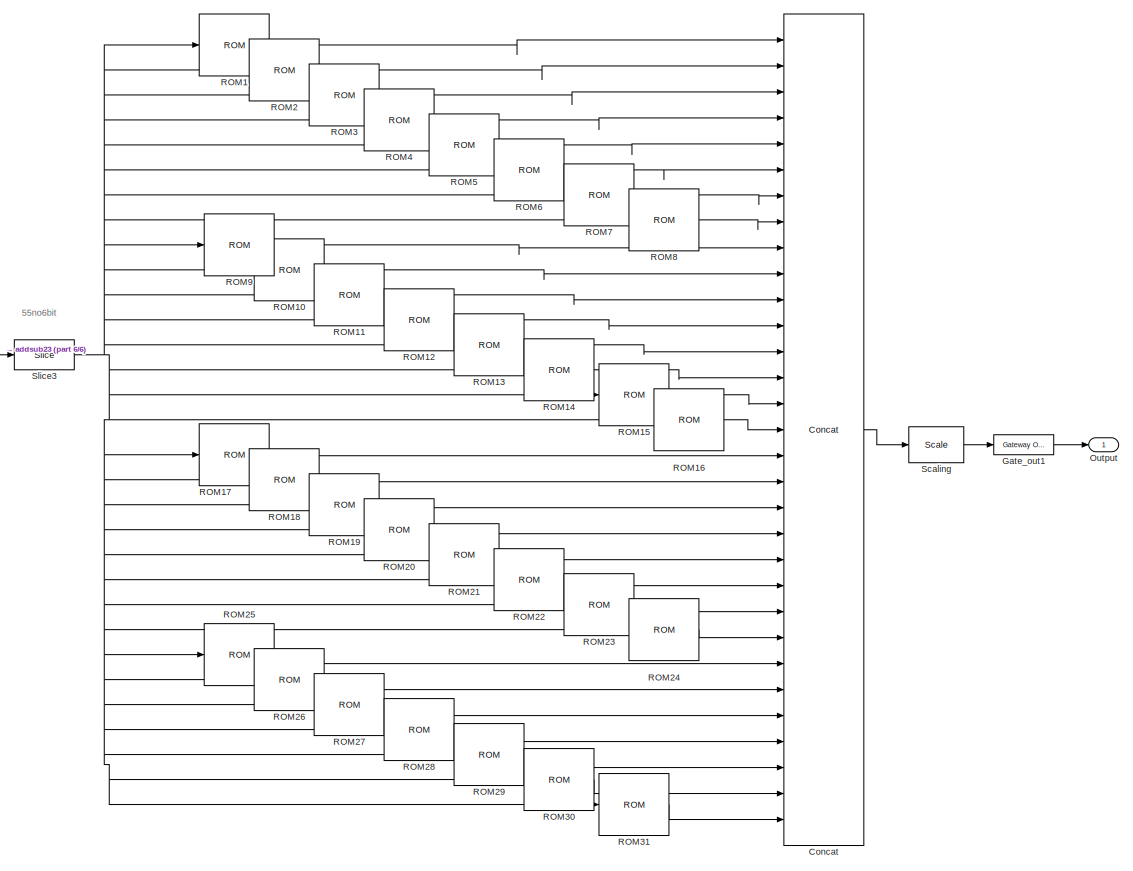
[diagram: total32/Subsystem31bit - part 1/6, right side, full height]
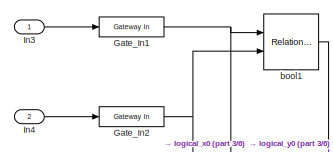
[diagram: total32/Subsystem31bit - part 2/6, top left region]
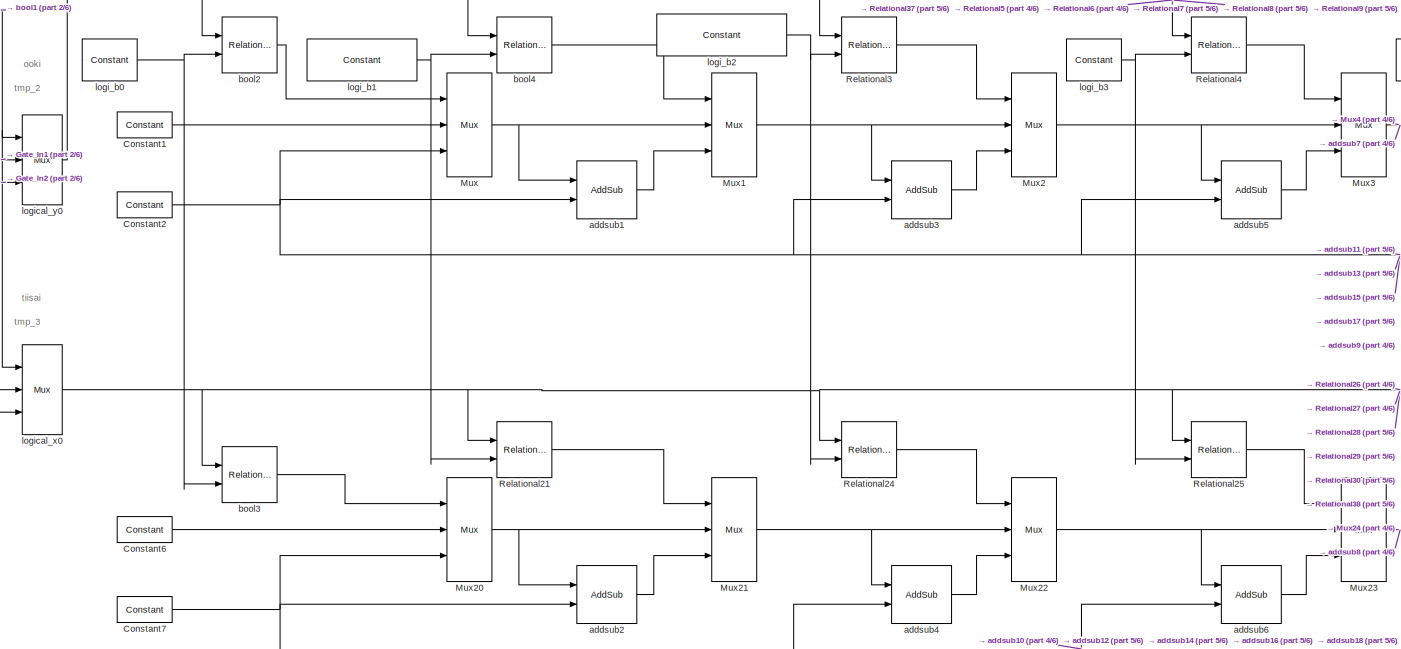
[diagram: total32/Subsystem31bit - part 3/6, middle left region]
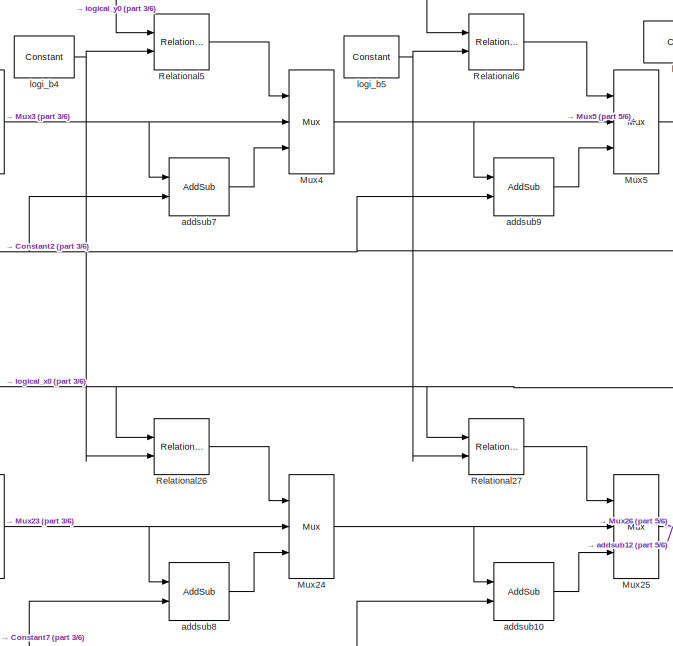
[diagram: total32/Subsystem31bit - part 4/6, middle left region]
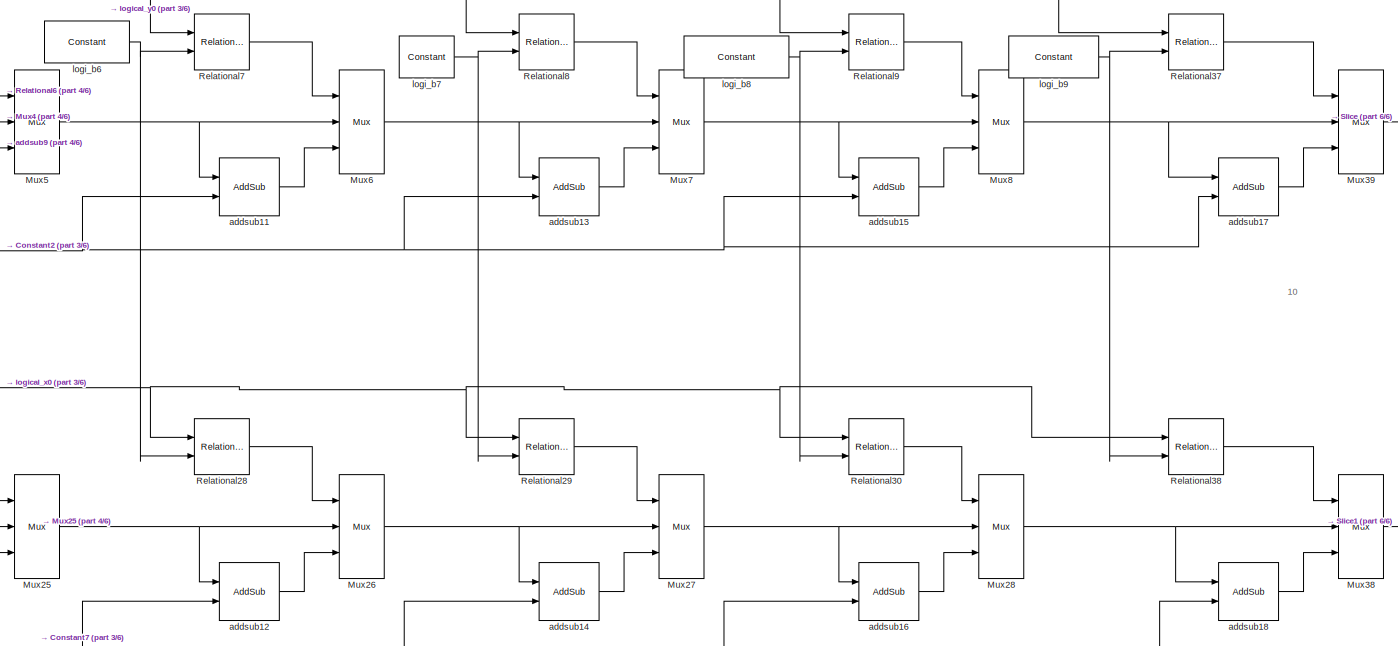
[diagram: total32/Subsystem31bit - part 5/6, central region]
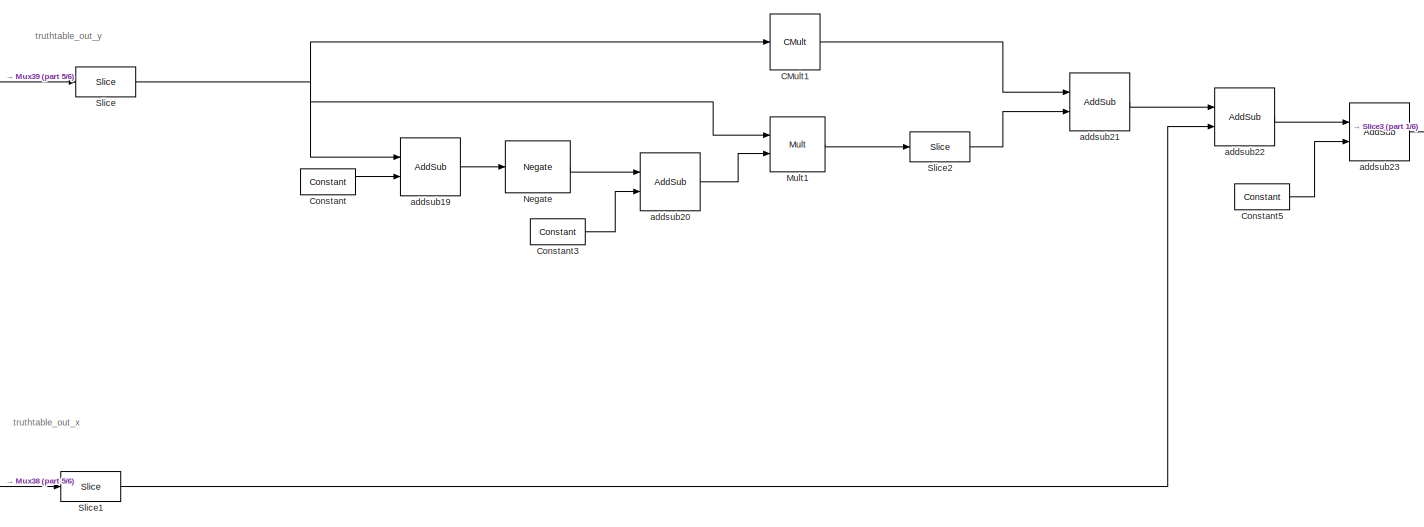
[diagram: total32/Subsystem31bit - part 6/6, middle right region]
BLOCK [SubSystem] total32/Subsystem31bit
  Ports = [2, 1]
  RequestExecContextInheritance = off
BLOCK [Reference] total32/Subsystem31bit/CMult1  REF=hdlBasic/CMult
  Ports = [1, 1]
  SourceBlock = hdlBasic/CMult
  SourceType = Constant Multiplier Block
BLOCK [Reference] total32/Subsystem31bit/Concat  REF=hdlBasic/Concat
  Ports = [31, 1]
  SourceBlock = hdlBasic/Concat
  SourceType = Bus Concatenator Block
BLOCK [Reference] total32/Subsystem31bit/Constant  REF=hdlBasic/Constant
  Ports = [0, 1]
  SourceBlock = hdlBasic/Constant
  SourceType = Constant Block Block
BLOCK [Reference] total32/Subsystem31bit/Constant1  REF=hdlBasic/Constant
  Ports = [0, 1]
  SourceBlock = hdlBasic/Constant
  SourceType = Constant Block Block
BLOCK [Reference] total32/Subsystem31bit/Constant2  REF=hdlBasic/Constant
  Ports = [0, 1]
  SourceBlock = hdlBasic/Constant
  SourceType = Constant Block Block
BLOCK [Reference] total32/Subsystem31bit/Constant3  REF=hdlBasic/Constant
  Ports = [0, 1]
  SourceBlock = hdlBasic/Constant
  SourceType = Constant Block Block
BLOCK [Reference] total32/Subsystem31bit/Constant5  REF=hdlBasic/Constant
  Ports = [0, 1]
  SourceBlock = hdlBasic/Constant
  SourceType = Constant Block Block
BLOCK [Reference] total32/Subsystem31bit/Constant6  REF=hdlBasic/Constant
  Ports = [0, 1]
  SourceBlock = hdlBasic/Constant
  SourceType = Constant Block Block
BLOCK [Reference] total32/Subsystem31bit/Constant7  REF=hdlBasic/Constant
  Ports = [0, 1]
  SourceBlock = hdlBasic/Constant
  SourceType = Constant Block Block
BLOCK [Reference] total32/Subsystem31bit/Gate_In1  REF=hdlBasic/Gateway In
  Ports = [1, 1]
  SourceBlock = hdlBasic/Gateway In
  SourceType = Gateway In Block
BLOCK [Reference] total32/Subsystem31bit/Gate_In2  REF=hdlBasic/Gateway In
  Ports = [1, 1]
  SourceBlock = hdlBasic/Gateway In
  SourceType = Gateway In Block
BLOCK [Reference] total32/Subsystem31bit/Gate_out1  REF=hdlBasic/Gateway Out
  Ports = [1, 1]
  SourceBlock = hdlBasic/Gateway Out
  SourceType = Gateway Out Block
BLOCK [Inport] total32/Subsystem31bit/In3
BLOCK [Inport] total32/Subsystem31bit/In4
  Port = 2
BLOCK [Reference] total32/Subsystem31bit/Mult1  REF=hdlBasic/Mult
  Ports = [2, 1]
  SourceBlock = hdlBasic/Mult
  SourceType = Multiplier Block
BLOCK [Reference] total32/Subsystem31bit/Mux  REF=hdlBasic/Mux
  Ports = [3, 1]
  SourceBlock = hdlBasic/Mux
  SourceType = Bus Multiplexer Block
BLOCK [Reference] total32/Subsystem31bit/Mux1  REF=hdlBasic/Mux
  Ports = [3, 1]
  SourceBlock = hdlBasic/Mux
  SourceType = Bus Multiplexer Block
BLOCK [Reference] total32/Subsystem31bit/Mux2  REF=hdlBasic/Mux
  Ports = [3, 1]
  SourceBlock = hdlBasic/Mux
  SourceType = Bus Multiplexer Block
BLOCK [Reference] total32/Subsystem31bit/Mux20  REF=hdlBasic/Mux
  Ports = [3, 1]
  SourceBlock = hdlBasic/Mux
  SourceType = Bus Multiplexer Block
BLOCK [Reference] total32/Subsystem31bit/Mux21  REF=hdlBasic/Mux
  Ports = [3, 1]
  SourceBlock = hdlBasic/Mux
  SourceType = Bus Multiplexer Block
BLOCK [Reference] total32/Subsystem31bit/Mux22  REF=hdlBasic/Mux
  Ports = [3, 1]
  SourceBlock = hdlBasic/Mux
  SourceType = Bus Multiplexer Block
BLOCK [Reference] total32/Subsystem31bit/Mux23  REF=hdlBasic/Mux
  Ports = [3, 1]
  SourceBlock = hdlBasic/Mux
  SourceType = Bus Multiplexer Block
BLOCK [Reference] total32/Subsystem31bit/Mux24  REF=hdlBasic/Mux
  Ports = [3, 1]
  SourceBlock = hdlBasic/Mux
  SourceType = Bus Multiplexer Block
BLOCK [Reference] total32/Subsystem31bit/Mux25  REF=hdlBasic/Mux
  Ports = [3, 1]
  SourceBlock = hdlBasic/Mux
  SourceType = Bus Multiplexer Block
BLOCK [Reference] total32/Subsystem31bit/Mux26  REF=hdlBasic/Mux
  Ports = [3, 1]
  SourceBlock = hdlBasic/Mux
  SourceType = Bus Multiplexer Block
BLOCK [Reference] total32/Subsystem31bit/Mux27  REF=hdlBasic/Mux
  Ports = [3, 1]
  SourceBlock = hdlBasic/Mux
  SourceType = Bus Multiplexer Block
BLOCK [Reference] total32/Subsystem31bit/Mux28  REF=hdlBasic/Mux
  Ports = [3, 1]
  SourceBlock = hdlBasic/Mux
  SourceType = Bus Multiplexer Block
BLOCK [Reference] total32/Subsystem31bit/Mux3  REF=hdlBasic/Mux
  Ports = [3, 1]
  SourceBlock = hdlBasic/Mux
  SourceType = Bus Multiplexer Block
BLOCK [Reference] total32/Subsystem31bit/Mux38  REF=hdlBasic/Mux
  Ports = [3, 1]
  SourceBlock = hdlBasic/Mux
  SourceType = Bus Multiplexer Block
BLOCK [Reference] total32/Subsystem31bit/Mux39  REF=hdlBasic/Mux
  Ports = [3, 1]
  SourceBlock = hdlBasic/Mux
  SourceType = Bus Multiplexer Block
BLOCK [Reference] total32/Subsystem31bit/Mux4  REF=hdlBasic/Mux
  Ports = [3, 1]
  SourceBlock = hdlBasic/Mux
  SourceType = Bus Multiplexer Block
BLOCK [Reference] total32/Subsystem31bit/Mux5  REF=hdlBasic/Mux
  Ports = [3, 1]
  SourceBlock = hdlBasic/Mux
  SourceType = Bus Multiplexer Block
BLOCK [Reference] total32/Subsystem31bit/Mux6  REF=hdlBasic/Mux
  Ports = [3, 1]
  SourceBlock = hdlBasic/Mux
  SourceType = Bus Multiplexer Block
BLOCK [Reference] total32/Subsystem31bit/Mux7  REF=hdlBasic/Mux
  Ports = [3, 1]
  SourceBlock = hdlBasic/Mux
  SourceType = Bus Multiplexer Block
BLOCK [Reference] total32/Subsystem31bit/Mux8  REF=hdlBasic/Mux
  Ports = [3, 1]
  SourceBlock = hdlBasic/Mux
  SourceType = Bus Multiplexer Block
BLOCK [Reference] total32/Subsystem31bit/Negate  REF=hdlBasic/Negate
  Ports = [1, 1]
  SourceBlock = hdlBasic/Negate
  SourceType = Negate Block Block
BLOCK [Outport] total32/Subsystem31bit/Output
BLOCK [Reference] total32/Subsystem31bit/ROM1  REF=hdlBasic/ROM
  Ports = [1, 1]
  SourceBlock = hdlBasic/ROM
  SourceType = Single Port Read-Only Memory Block
BLOCK [Reference] total32/Subsystem31bit/ROM10  REF=hdlBasic/ROM
  Ports = [1, 1]
  SourceBlock = hdlBasic/ROM
  SourceType = Single Port Read-Only Memory Block
BLOCK [Reference] total32/Subsystem31bit/ROM11  REF=hdlBasic/ROM
  Ports = [1, 1]
  SourceBlock = hdlBasic/ROM
  SourceType = Single Port Read-Only Memory Block
BLOCK [Reference] total32/Subsystem31bit/ROM12  REF=hdlBasic/ROM
  Ports = [1, 1]
  SourceBlock = hdlBasic/ROM
  SourceType = Single Port Read-Only Memory Block
BLOCK [Reference] total32/Subsystem31bit/ROM13  REF=hdlBasic/ROM
  Ports = [1, 1]
  SourceBlock = hdlBasic/ROM
  SourceType = Single Port Read-Only Memory Block
BLOCK [Reference] total32/Subsystem31bit/ROM14  REF=hdlBasic/ROM
  Ports = [1, 1]
  SourceBlock = hdlBasic/ROM
  SourceType = Single Port Read-Only Memory Block
BLOCK [Reference] total32/Subsystem31bit/ROM15  REF=hdlBasic/ROM
  Ports = [1, 1]
  SourceBlock = hdlBasic/ROM
  SourceType = Single Port Read-Only Memory Block
BLOCK [Reference] total32/Subsystem31bit/ROM16  REF=hdlBasic/ROM
  Ports = [1, 1]
  SourceBlock = hdlBasic/ROM
  SourceType = Single Port Read-Only Memory Block
BLOCK [Reference] total32/Subsystem31bit/ROM17  REF=hdlBasic/ROM
  Ports = [1, 1]
  SourceBlock = hdlBasic/ROM
  SourceType = Single Port Read-Only Memory Block
BLOCK [Reference] total32/Subsystem31bit/ROM18  REF=hdlBasic/ROM
  Ports = [1, 1]
  SourceBlock = hdlBasic/ROM
  SourceType = Single Port Read-Only Memory Block
BLOCK [Reference] total32/Subsystem31bit/ROM19  REF=hdlBasic/ROM
  Ports = [1, 1]
  SourceBlock = hdlBasic/ROM
  SourceType = Single Port Read-Only Memory Block
BLOCK [Reference] total32/Subsystem31bit/ROM2  REF=hdlBasic/ROM
  Ports = [1, 1]
  SourceBlock = hdlBasic/ROM
  SourceType = Single Port Read-Only Memory Block
BLOCK [Reference] total32/Subsystem31bit/ROM20  REF=hdlBasic/ROM
  Ports = [1, 1]
  SourceBlock = hdlBasic/ROM
  SourceType = Single Port Read-Only Memory Block
BLOCK [Reference] total32/Subsystem31bit/ROM21  REF=hdlBasic/ROM
  Ports = [1, 1]
  SourceBlock = hdlBasic/ROM
  SourceType = Single Port Read-Only Memory Block
BLOCK [Reference] total32/Subsystem31bit/ROM22  REF=hdlBasic/ROM
  Ports = [1, 1]
  SourceBlock = hdlBasic/ROM
  SourceType = Single Port Read-Only Memory Block
BLOCK [Reference] total32/Subsystem31bit/ROM23  REF=hdlBasic/ROM
  Ports = [1, 1]
  SourceBlock = hdlBasic/ROM
  SourceType = Single Port Read-Only Memory Block
BLOCK [Reference] total32/Subsystem31bit/ROM24  REF=hdlBasic/ROM
  Ports = [1, 1]
  SourceBlock = hdlBasic/ROM
  SourceType = Single Port Read-Only Memory Block
BLOCK [Reference] total32/Subsystem31bit/ROM25  REF=hdlBasic/ROM
  Ports = [1, 1]
  SourceBlock = hdlBasic/ROM
  SourceType = Single Port Read-Only Memory Block
BLOCK [Reference] total32/Subsystem31bit/ROM26  REF=hdlBasic/ROM
  Ports = [1, 1]
  SourceBlock = hdlBasic/ROM
  SourceType = Single Port Read-Only Memory Block
BLOCK [Reference] total32/Subsystem31bit/ROM27  REF=hdlBasic/ROM
  Ports = [1, 1]
  SourceBlock = hdlBasic/ROM
  SourceType = Single Port Read-Only Memory Block
BLOCK [Reference] total32/Subsystem31bit/ROM28  REF=hdlBasic/ROM
  Ports = [1, 1]
  SourceBlock = hdlBasic/ROM
  SourceType = Single Port Read-Only Memory Block
BLOCK [Reference] total32/Subsystem31bit/ROM29  REF=hdlBasic/ROM
  Ports = [1, 1]
  SourceBlock = hdlBasic/ROM
  SourceType = Single Port Read-Only Memory Block
BLOCK [Reference] total32/Subsystem31bit/ROM3  REF=hdlBasic/ROM
  Ports = [1, 1]
  SourceBlock = hdlBasic/ROM
  SourceType = Single Port Read-Only Memory Block
BLOCK [Reference] total32/Subsystem31bit/ROM30  REF=hdlBasic/ROM
  Ports = [1, 1]
  SourceBlock = hdlBasic/ROM
  SourceType = Single Port Read-Only Memory Block
BLOCK [Reference] total32/Subsystem31bit/ROM31  REF=hdlBasic/ROM
  Ports = [1, 1]
  SourceBlock = hdlBasic/ROM
  SourceType = Single Port Read-Only Memory Block
BLOCK [Reference] total32/Subsystem31bit/ROM4  REF=hdlBasic/ROM
  Ports = [1, 1]
  SourceBlock = hdlBasic/ROM
  SourceType = Single Port Read-Only Memory Block
BLOCK [Reference] total32/Subsystem31bit/ROM5  REF=hdlBasic/ROM
  Ports = [1, 1]
  SourceBlock = hdlBasic/ROM
  SourceType = Single Port Read-Only Memory Block
BLOCK [Reference] total32/Subsystem31bit/ROM6  REF=hdlBasic/ROM
  Ports = [1, 1]
  SourceBlock = hdlBasic/ROM
  SourceType = Single Port Read-Only Memory Block
BLOCK [Reference] total32/Subsystem31bit/ROM7  REF=hdlBasic/ROM
  Ports = [1, 1]
  SourceBlock = hdlBasic/ROM
  SourceType = Single Port Read-Only Memory Block
BLOCK [Reference] total32/Subsystem31bit/ROM8  REF=hdlBasic/ROM
  Ports = [1, 1]
  SourceBlock = hdlBasic/ROM
  SourceType = Single Port Read-Only Memory Block
BLOCK [Reference] total32/Subsystem31bit/ROM9  REF=hdlBasic/ROM
  Ports = [1, 1]
  SourceBlock = hdlBasic/ROM
  SourceType = Single Port Read-Only Memory Block
BLOCK [Reference] total32/Subsystem31bit/Relational21  REF=hdlBasic/Relational
  Ports = [2, 1]
  SourceBlock = hdlBasic/Relational
  SourceType = Arithmetic Relational Operator Block
BLOCK [Reference] total32/Subsystem31bit/Relational24  REF=hdlBasic/Relational
  Ports = [2, 1]
  SourceBlock = hdlBasic/Relational
  SourceType = Arithmetic Relational Operator Block
BLOCK [Reference] total32/Subsystem31bit/Relational25  REF=hdlBasic/Relational
  Ports = [2, 1]
  SourceBlock = hdlBasic/Relational
  SourceType = Arithmetic Relational Operator Block
BLOCK [Reference] total32/Subsystem31bit/Relational26  REF=hdlBasic/Relational
  Ports = [2, 1]
  SourceBlock = hdlBasic/Relational
  SourceType = Arithmetic Relational Operator Block
BLOCK [Reference] total32/Subsystem31bit/Relational27  REF=hdlBasic/Relational
  Ports = [2, 1]
  SourceBlock = hdlBasic/Relational
  SourceType = Arithmetic Relational Operator Block
BLOCK [Reference] total32/Subsystem31bit/Relational28  REF=hdlBasic/Relational
  Ports = [2, 1]
  SourceBlock = hdlBasic/Relational
  SourceType = Arithmetic Relational Operator Block
BLOCK [Reference] total32/Subsystem31bit/Relational29  REF=hdlBasic/Relational
  Ports = [2, 1]
  SourceBlock = hdlBasic/Relational
  SourceType = Arithmetic Relational Operator Block
BLOCK [Reference] total32/Subsystem31bit/Relational3  REF=hdlBasic/Relational
  Ports = [2, 1]
  SourceBlock = hdlBasic/Relational
  SourceType = Arithmetic Relational Operator Block
BLOCK [Reference] total32/Subsystem31bit/Relational30  REF=hdlBasic/Relational
  Ports = [2, 1]
  SourceBlock = hdlBasic/Relational
  SourceType = Arithmetic Relational Operator Block
BLOCK [Reference] total32/Subsystem31bit/Relational37  REF=hdlBasic/Relational
  Ports = [2, 1]
  SourceBlock = hdlBasic/Relational
  SourceType = Arithmetic Relational Operator Block
BLOCK [Reference] total32/Subsystem31bit/Relational38  REF=hdlBasic/Relational
  Ports = [2, 1]
  SourceBlock = hdlBasic/Relational
  SourceType = Arithmetic Relational Operator Block
BLOCK [Reference] total32/Subsystem31bit/Relational4  REF=hdlBasic/Relational
  Ports = [2, 1]
  SourceBlock = hdlBasic/Relational
  SourceType = Arithmetic Relational Operator Block
BLOCK [Reference] total32/Subsystem31bit/Relational5  REF=hdlBasic/Relational
  Ports = [2, 1]
  SourceBlock = hdlBasic/Relational
  SourceType = Arithmetic Relational Operator Block
BLOCK [Reference] total32/Subsystem31bit/Relational6  REF=hdlBasic/Relational
  Ports = [2, 1]
  SourceBlock = hdlBasic/Relational
  SourceType = Arithmetic Relational Operator Block
BLOCK [Reference] total32/Subsystem31bit/Relational7  REF=hdlBasic/Relational
  Ports = [2, 1]
  SourceBlock = hdlBasic/Relational
  SourceType = Arithmetic Relational Operator Block
BLOCK [Reference] total32/Subsystem31bit/Relational8  REF=hdlBasic/Relational
  Ports = [2, 1]
  SourceBlock = hdlBasic/Relational
  SourceType = Arithmetic Relational Operator Block
BLOCK [Reference] total32/Subsystem31bit/Relational9  REF=hdlBasic/Relational
  Ports = [2, 1]
  SourceBlock = hdlBasic/Relational
  SourceType = Arithmetic Relational Operator Block
BLOCK [Reference] total32/Subsystem31bit/Scaling  REF=hdlBasic/Scale
  Ports = [1, 1]
  SourceBlock = hdlBasic/Scale
  SourceType = Input Scaler Block
BLOCK [Reference] total32/Subsystem31bit/Slice  REF=hdlBasic/Slice
  Ports = [1, 1]
  SourceBlock = hdlBasic/Slice
  SourceType = Bit Slice Extractor Block
BLOCK [Reference] total32/Subsystem31bit/Slice1  REF=hdlBasic/Slice
  Ports = [1, 1]
  SourceBlock = hdlBasic/Slice
  SourceType = Bit Slice Extractor Block
BLOCK [Reference] total32/Subsystem31bit/Slice2  REF=hdlBasic/Slice
  Ports = [1, 1]
  SourceBlock = hdlBasic/Slice
  SourceType = Bit Slice Extractor Block
BLOCK [Reference] total32/Subsystem31bit/Slice3  REF=hdlBasic/Slice
  Ports = [1, 1]
  SourceBlock = hdlBasic/Slice
  SourceType = Bit Slice Extractor Block
BLOCK [Reference] total32/Subsystem31bit/addsub1  REF=hdlBasic/AddSub
  Ports = [2, 1]
  SourceBlock = hdlBasic/AddSub
  SourceType = Adder/Subtracter Block
BLOCK [Reference] total32/Subsystem31bit/addsub10  REF=hdlBasic/AddSub
  Ports = [2, 1]
  SourceBlock = hdlBasic/AddSub
  SourceType = Adder/Subtracter Block
BLOCK [Reference] total32/Subsystem31bit/addsub11  REF=hdlBasic/AddSub
  Ports = [2, 1]
  SourceBlock = hdlBasic/AddSub
  SourceType = Adder/Subtracter Block
BLOCK [Reference] total32/Subsystem31bit/addsub12  REF=hdlBasic/AddSub
  Ports = [2, 1]
  SourceBlock = hdlBasic/AddSub
  SourceType = Adder/Subtracter Block
BLOCK [Reference] total32/Subsystem31bit/addsub13  REF=hdlBasic/AddSub
  Ports = [2, 1]
  SourceBlock = hdlBasic/AddSub
  SourceType = Adder/Subtracter Block
BLOCK [Reference] total32/Subsystem31bit/addsub14  REF=hdlBasic/AddSub
  Ports = [2, 1]
  SourceBlock = hdlBasic/AddSub
  SourceType = Adder/Subtracter Block
BLOCK [Reference] total32/Subsystem31bit/addsub15  REF=hdlBasic/AddSub
  Ports = [2, 1]
  SourceBlock = hdlBasic/AddSub
  SourceType = Adder/Subtracter Block
BLOCK [Reference] total32/Subsystem31bit/addsub16  REF=hdlBasic/AddSub
  Ports = [2, 1]
  SourceBlock = hdlBasic/AddSub
  SourceType = Adder/Subtracter Block
BLOCK [Reference] total32/Subsystem31bit/addsub17  REF=hdlBasic/AddSub
  Ports = [2, 1]
  SourceBlock = hdlBasic/AddSub
  SourceType = Adder/Subtracter Block
BLOCK [Reference] total32/Subsystem31bit/addsub18  REF=hdlBasic/AddSub
  Ports = [2, 1]
  SourceBlock = hdlBasic/AddSub
  SourceType = Adder/Subtracter Block
BLOCK [Reference] total32/Subsystem31bit/addsub19  REF=hdlBasic/AddSub
  Ports = [2, 1]
  SourceBlock = hdlBasic/AddSub
  SourceType = Adder/Subtracter Block
BLOCK [Reference] total32/Subsystem31bit/addsub2  REF=hdlBasic/AddSub
  Ports = [2, 1]
  SourceBlock = hdlBasic/AddSub
  SourceType = Adder/Subtracter Block
BLOCK [Reference] total32/Subsystem31bit/addsub20  REF=hdlBasic/AddSub
  Ports = [2, 1]
  SourceBlock = hdlBasic/AddSub
  SourceType = Adder/Subtracter Block
BLOCK [Reference] total32/Subsystem31bit/addsub21  REF=hdlBasic/AddSub
  Ports = [2, 1]
  SourceBlock = hdlBasic/AddSub
  SourceType = Adder/Subtracter Block
BLOCK [Reference] total32/Subsystem31bit/addsub22  REF=hdlBasic/AddSub
  Ports = [2, 1]
  SourceBlock = hdlBasic/AddSub
  SourceType = Adder/Subtracter Block
BLOCK [Reference] total32/Subsystem31bit/addsub23  REF=hdlBasic/AddSub
  Ports = [2, 1]
  SourceBlock = hdlBasic/AddSub
  SourceType = Adder/Subtracter Block
BLOCK [Reference] total32/Subsystem31bit/addsub3  REF=hdlBasic/AddSub
  Ports = [2, 1]
  SourceBlock = hdlBasic/AddSub
  SourceType = Adder/Subtracter Block
BLOCK [Reference] total32/Subsystem31bit/addsub4  REF=hdlBasic/AddSub
  Ports = [2, 1]
  SourceBlock = hdlBasic/AddSub
  SourceType = Adder/Subtracter Block
BLOCK [Reference] total32/Subsystem31bit/addsub5  REF=hdlBasic/AddSub
  Ports = [2, 1]
  SourceBlock = hdlBasic/AddSub
  SourceType = Adder/Subtracter Block
BLOCK [Reference] total32/Subsystem31bit/addsub6  REF=hdlBasic/AddSub
  Ports = [2, 1]
  SourceBlock = hdlBasic/AddSub
  SourceType = Adder/Subtracter Block
BLOCK [Reference] total32/Subsystem31bit/addsub7  REF=hdlBasic/AddSub
  Ports = [2, 1]
  SourceBlock = hdlBasic/AddSub
  SourceType = Adder/Subtracter Block
BLOCK [Reference] total32/Subsystem31bit/addsub8  REF=hdlBasic/AddSub
  Ports = [2, 1]
  SourceBlock = hdlBasic/AddSub
  SourceType = Adder/Subtracter Block
BLOCK [Reference] total32/Subsystem31bit/addsub9  REF=hdlBasic/AddSub
  Ports = [2, 1]
  SourceBlock = hdlBasic/AddSub
  SourceType = Adder/Subtracter Block
BLOCK [Reference] total32/Subsystem31bit/bool1  REF=hdlBasic/Relational
  Ports = [2, 1]
  SourceBlock = hdlBasic/Relational
  SourceType = Arithmetic Relational Operator Block
BLOCK [Reference] total32/Subsystem31bit/bool2  REF=hdlBasic/Relational
  Ports = [2, 1]
  SourceBlock = hdlBasic/Relational
  SourceType = Arithmetic Relational Operator Block
BLOCK [Reference] total32/Subsystem31bit/bool3  REF=hdlBasic/Relational
  Ports = [2, 1]
  SourceBlock = hdlBasic/Relational
  SourceType = Arithmetic Relational Operator Block
BLOCK [Reference] total32/Subsystem31bit/bool4  REF=hdlBasic/Relational
  Ports = [2, 1]
  SourceBlock = hdlBasic/Relational
  SourceType = Arithmetic Relational Operator Block
BLOCK [Reference] total32/Subsystem31bit/logi_b0  REF=hdlBasic/Constant
  Ports = [0, 1]
  SourceBlock = hdlBasic/Constant
  SourceType = Constant Block Block
BLOCK [Reference] total32/Subsystem31bit/logi_b1  REF=hdlBasic/Constant
  Ports = [0, 1]
  SourceBlock = hdlBasic/Constant
  SourceType = Constant Block Block
BLOCK [Reference] total32/Subsystem31bit/logi_b2  REF=hdlBasic/Constant
  Ports = [0, 1]
  SourceBlock = hdlBasic/Constant
  SourceType = Constant Block Block
BLOCK [Reference] total32/Subsystem31bit/logi_b3  REF=hdlBasic/Constant
  Ports = [0, 1]
  SourceBlock = hdlBasic/Constant
  SourceType = Constant Block Block
BLOCK [Reference] total32/Subsystem31bit/logi_b4  REF=hdlBasic/Constant
  Ports = [0, 1]
  SourceBlock = hdlBasic/Constant
  SourceType = Constant Block Block
BLOCK [Reference] total32/Subsystem31bit/logi_b5  REF=hdlBasic/Constant
  Ports = [0, 1]
  SourceBlock = hdlBasic/Constant
  SourceType = Constant Block Block
BLOCK [Reference] total32/Subsystem31bit/logi_b6  REF=hdlBasic/Constant
  Ports = [0, 1]
  SourceBlock = hdlBasic/Constant
  SourceType = Constant Block Block
BLOCK [Reference] total32/Subsystem31bit/logi_b7  REF=hdlBasic/Constant
  Ports = [0, 1]
  SourceBlock = hdlBasic/Constant
  SourceType = Constant Block Block
BLOCK [Reference] total32/Subsystem31bit/logi_b8  REF=hdlBasic/Constant
  Ports = [0, 1]
  SourceBlock = hdlBasic/Constant
  SourceType = Constant Block Block
BLOCK [Reference] total32/Subsystem31bit/logi_b9  REF=hdlBasic/Constant
  Ports = [0, 1]
  SourceBlock = hdlBasic/Constant
  SourceType = Constant Block Block
BLOCK [Reference] total32/Subsystem31bit/logical_x0  REF=hdlBasic/Mux
  Ports = [3, 1]
  SourceBlock = hdlBasic/Mux
  SourceType = Bus Multiplexer Block
BLOCK [Reference] total32/Subsystem31bit/logical_y0  REF=hdlBasic/Mux
  Ports = [3, 1]
  SourceBlock = hdlBasic/Mux
  SourceType = Bus Multiplexer Block
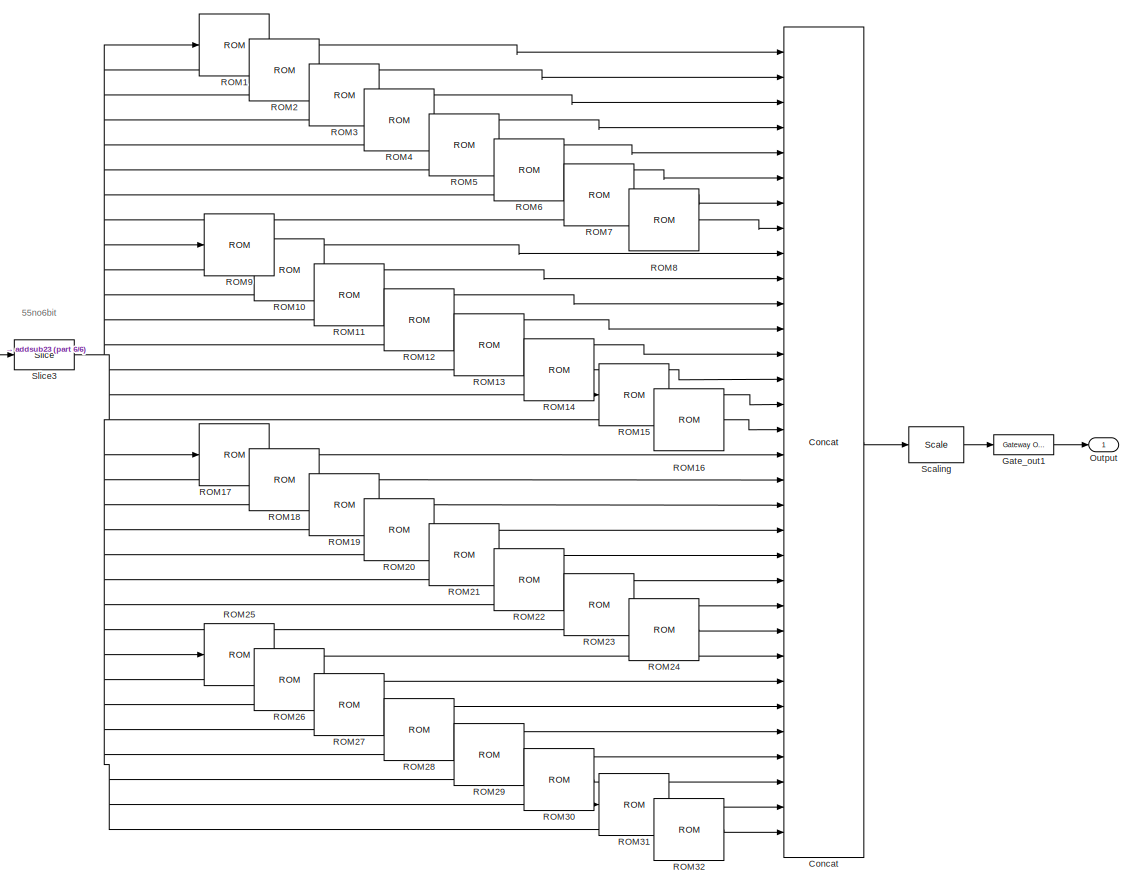
[diagram: total32/Subsystem32bit - part 1/6, right side, full height]
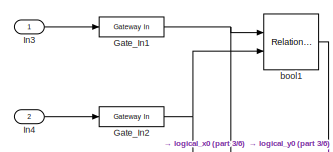
[diagram: total32/Subsystem32bit - part 2/6, top left region]
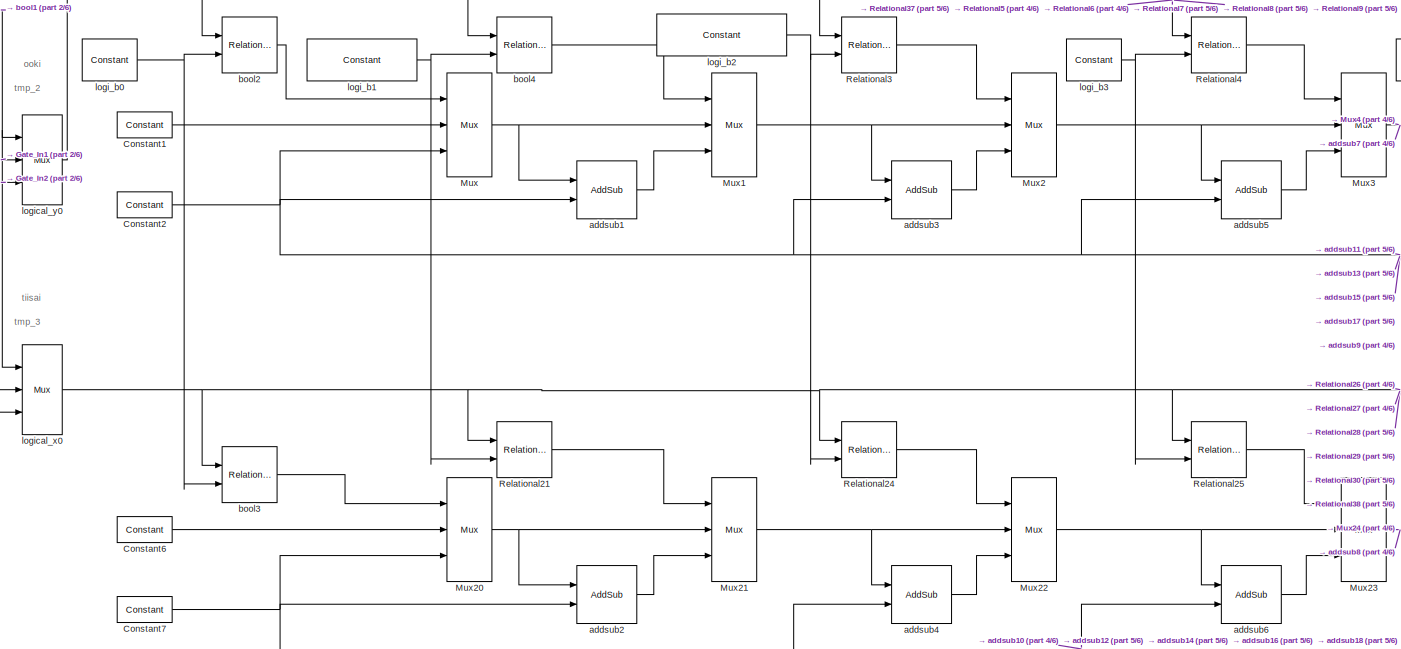
[diagram: total32/Subsystem32bit - part 3/6, middle left region]
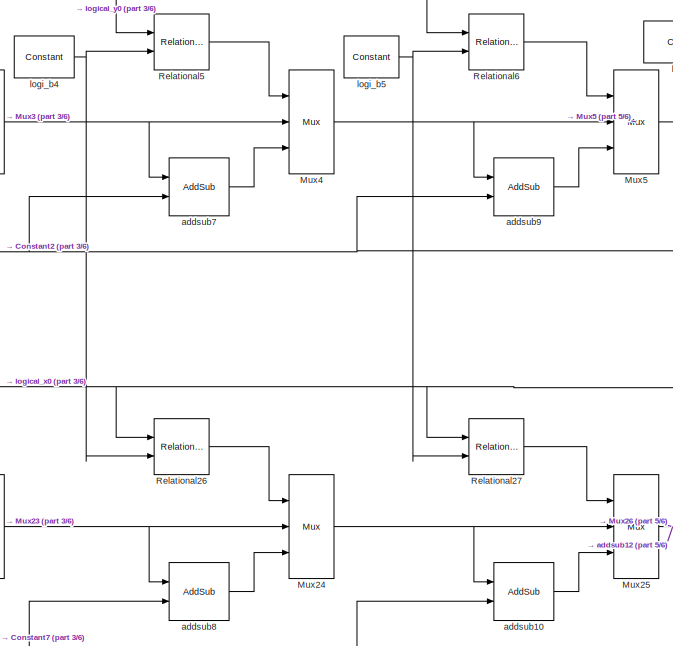
[diagram: total32/Subsystem32bit - part 4/6, middle left region]
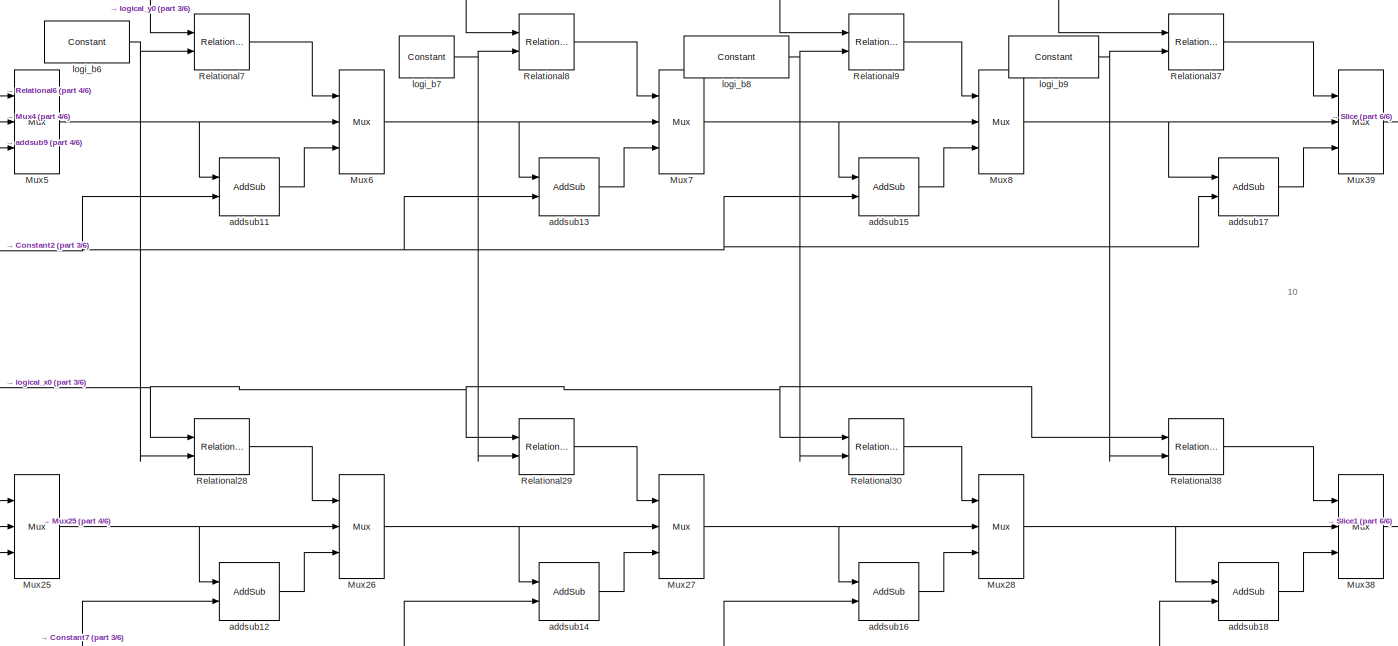
[diagram: total32/Subsystem32bit - part 5/6, central region]
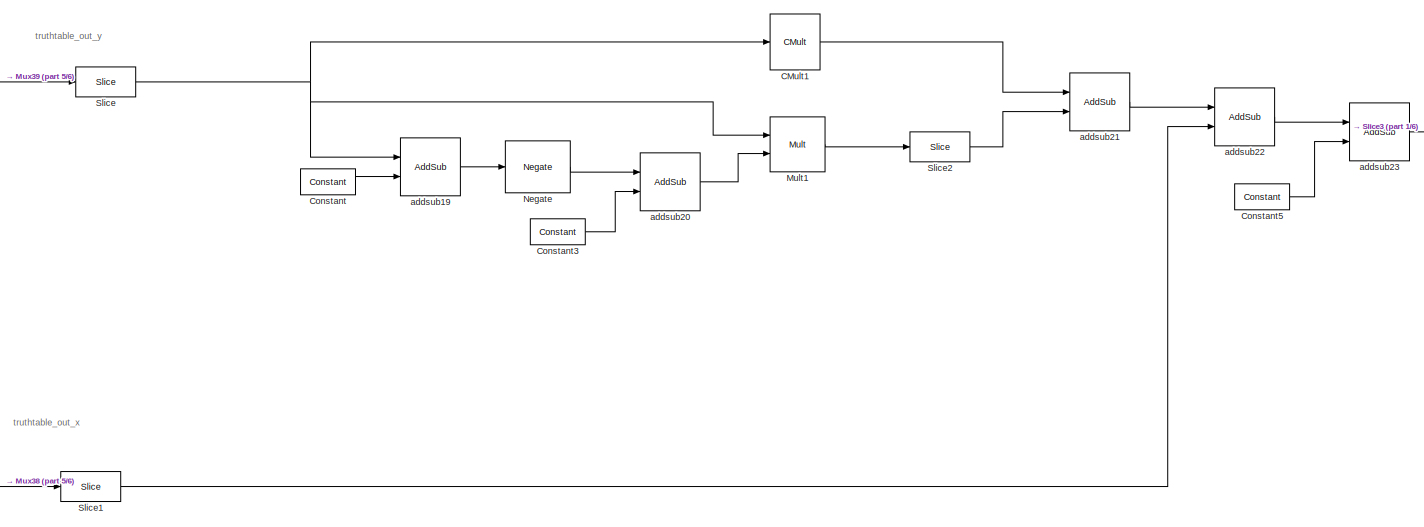
[diagram: total32/Subsystem32bit - part 6/6, middle right region]
BLOCK [SubSystem] total32/Subsystem32bit
  Ports = [2, 1]
  RequestExecContextInheritance = off
BLOCK [Reference] total32/Subsystem32bit/CMult1  REF=hdlBasic/CMult
  Ports = [1, 1]
  SourceBlock = hdlBasic/CMult
  SourceType = Constant Multiplier Block
BLOCK [Reference] total32/Subsystem32bit/Concat  REF=hdlBasic/Concat
  Ports = [32, 1]
  SourceBlock = hdlBasic/Concat
  SourceType = Bus Concatenator Block
BLOCK [Reference] total32/Subsystem32bit/Constant  REF=hdlBasic/Constant
  Ports = [0, 1]
  SourceBlock = hdlBasic/Constant
  SourceType = Constant Block Block
BLOCK [Reference] total32/Subsystem32bit/Constant1  REF=hdlBasic/Constant
  Ports = [0, 1]
  SourceBlock = hdlBasic/Constant
  SourceType = Constant Block Block
BLOCK [Reference] total32/Subsystem32bit/Constant2  REF=hdlBasic/Constant
  Ports = [0, 1]
  SourceBlock = hdlBasic/Constant
  SourceType = Constant Block Block
BLOCK [Reference] total32/Subsystem32bit/Constant3  REF=hdlBasic/Constant
  Ports = [0, 1]
  SourceBlock = hdlBasic/Constant
  SourceType = Constant Block Block
BLOCK [Reference] total32/Subsystem32bit/Constant5  REF=hdlBasic/Constant
  Ports = [0, 1]
  SourceBlock = hdlBasic/Constant
  SourceType = Constant Block Block
BLOCK [Reference] total32/Subsystem32bit/Constant6  REF=hdlBasic/Constant
  Ports = [0, 1]
  SourceBlock = hdlBasic/Constant
  SourceType = Constant Block Block
BLOCK [Reference] total32/Subsystem32bit/Constant7  REF=hdlBasic/Constant
  Ports = [0, 1]
  SourceBlock = hdlBasic/Constant
  SourceType = Constant Block Block
BLOCK [Reference] total32/Subsystem32bit/Gate_In1  REF=hdlBasic/Gateway In
  Ports = [1, 1]
  SourceBlock = hdlBasic/Gateway In
  SourceType = Gateway In Block
BLOCK [Reference] total32/Subsystem32bit/Gate_In2  REF=hdlBasic/Gateway In
  Ports = [1, 1]
  SourceBlock = hdlBasic/Gateway In
  SourceType = Gateway In Block
BLOCK [Reference] total32/Subsystem32bit/Gate_out1  REF=hdlBasic/Gateway Out
  Ports = [1, 1]
  SourceBlock = hdlBasic/Gateway Out
  SourceType = Gateway Out Block
BLOCK [Inport] total32/Subsystem32bit/In3
BLOCK [Inport] total32/Subsystem32bit/In4
  Port = 2
BLOCK [Reference] total32/Subsystem32bit/Mult1  REF=hdlBasic/Mult
  Ports = [2, 1]
  SourceBlock = hdlBasic/Mult
  SourceType = Multiplier Block
BLOCK [Reference] total32/Subsystem32bit/Mux  REF=hdlBasic/Mux
  Ports = [3, 1]
  SourceBlock = hdlBasic/Mux
  SourceType = Bus Multiplexer Block
BLOCK [Reference] total32/Subsystem32bit/Mux1  REF=hdlBasic/Mux
  Ports = [3, 1]
  SourceBlock = hdlBasic/Mux
  SourceType = Bus Multiplexer Block
BLOCK [Reference] total32/Subsystem32bit/Mux2  REF=hdlBasic/Mux
  Ports = [3, 1]
  SourceBlock = hdlBasic/Mux
  SourceType = Bus Multiplexer Block
BLOCK [Reference] total32/Subsystem32bit/Mux20  REF=hdlBasic/Mux
  Ports = [3, 1]
  SourceBlock = hdlBasic/Mux
  SourceType = Bus Multiplexer Block
BLOCK [Reference] total32/Subsystem32bit/Mux21  REF=hdlBasic/Mux
  Ports = [3, 1]
  SourceBlock = hdlBasic/Mux
  SourceType = Bus Multiplexer Block
BLOCK [Reference] total32/Subsystem32bit/Mux22  REF=hdlBasic/Mux
  Ports = [3, 1]
  SourceBlock = hdlBasic/Mux
  SourceType = Bus Multiplexer Block
BLOCK [Reference] total32/Subsystem32bit/Mux23  REF=hdlBasic/Mux
  Ports = [3, 1]
  SourceBlock = hdlBasic/Mux
  SourceType = Bus Multiplexer Block
BLOCK [Reference] total32/Subsystem32bit/Mux24  REF=hdlBasic/Mux
  Ports = [3, 1]
  SourceBlock = hdlBasic/Mux
  SourceType = Bus Multiplexer Block
BLOCK [Reference] total32/Subsystem32bit/Mux25  REF=hdlBasic/Mux
  Ports = [3, 1]
  SourceBlock = hdlBasic/Mux
  SourceType = Bus Multiplexer Block
BLOCK [Reference] total32/Subsystem32bit/Mux26  REF=hdlBasic/Mux
  Ports = [3, 1]
  SourceBlock = hdlBasic/Mux
  SourceType = Bus Multiplexer Block
BLOCK [Reference] total32/Subsystem32bit/Mux27  REF=hdlBasic/Mux
  Ports = [3, 1]
  SourceBlock = hdlBasic/Mux
  SourceType = Bus Multiplexer Block
BLOCK [Reference] total32/Subsystem32bit/Mux28  REF=hdlBasic/Mux
  Ports = [3, 1]
  SourceBlock = hdlBasic/Mux
  SourceType = Bus Multiplexer Block
BLOCK [Reference] total32/Subsystem32bit/Mux3  REF=hdlBasic/Mux
  Ports = [3, 1]
  SourceBlock = hdlBasic/Mux
  SourceType = Bus Multiplexer Block
BLOCK [Reference] total32/Subsystem32bit/Mux38  REF=hdlBasic/Mux
  Ports = [3, 1]
  SourceBlock = hdlBasic/Mux
  SourceType = Bus Multiplexer Block
BLOCK [Reference] total32/Subsystem32bit/Mux39  REF=hdlBasic/Mux
  Ports = [3, 1]
  SourceBlock = hdlBasic/Mux
  SourceType = Bus Multiplexer Block
BLOCK [Reference] total32/Subsystem32bit/Mux4  REF=hdlBasic/Mux
  Ports = [3, 1]
  SourceBlock = hdlBasic/Mux
  SourceType = Bus Multiplexer Block
BLOCK [Reference] total32/Subsystem32bit/Mux5  REF=hdlBasic/Mux
  Ports = [3, 1]
  SourceBlock = hdlBasic/Mux
  SourceType = Bus Multiplexer Block
BLOCK [Reference] total32/Subsystem32bit/Mux6  REF=hdlBasic/Mux
  Ports = [3, 1]
  SourceBlock = hdlBasic/Mux
  SourceType = Bus Multiplexer Block
BLOCK [Reference] total32/Subsystem32bit/Mux7  REF=hdlBasic/Mux
  Ports = [3, 1]
  SourceBlock = hdlBasic/Mux
  SourceType = Bus Multiplexer Block
BLOCK [Reference] total32/Subsystem32bit/Mux8  REF=hdlBasic/Mux
  Ports = [3, 1]
  SourceBlock = hdlBasic/Mux
  SourceType = Bus Multiplexer Block
BLOCK [Reference] total32/Subsystem32bit/Negate  REF=hdlBasic/Negate
  Ports = [1, 1]
  SourceBlock = hdlBasic/Negate
  SourceType = Negate Block Block
BLOCK [Outport] total32/Subsystem32bit/Output
BLOCK [Reference] total32/Subsystem32bit/ROM1  REF=hdlBasic/ROM
  Ports = [1, 1]
  SourceBlock = hdlBasic/ROM
  SourceType = Single Port Read-Only Memory Block
BLOCK [Reference] total32/Subsystem32bit/ROM10  REF=hdlBasic/ROM
  Ports = [1, 1]
  SourceBlock = hdlBasic/ROM
  SourceType = Single Port Read-Only Memory Block
BLOCK [Reference] total32/Subsystem32bit/ROM11  REF=hdlBasic/ROM
  Ports = [1, 1]
  SourceBlock = hdlBasic/ROM
  SourceType = Single Port Read-Only Memory Block
BLOCK [Reference] total32/Subsystem32bit/ROM12  REF=hdlBasic/ROM
  Ports = [1, 1]
  SourceBlock = hdlBasic/ROM
  SourceType = Single Port Read-Only Memory Block
BLOCK [Reference] total32/Subsystem32bit/ROM13  REF=hdlBasic/ROM
  Ports = [1, 1]
  SourceBlock = hdlBasic/ROM
  SourceType = Single Port Read-Only Memory Block
BLOCK [Reference] total32/Subsystem32bit/ROM14  REF=hdlBasic/ROM
  Ports = [1, 1]
  SourceBlock = hdlBasic/ROM
  SourceType = Single Port Read-Only Memory Block
BLOCK [Reference] total32/Subsystem32bit/ROM15  REF=hdlBasic/ROM
  Ports = [1, 1]
  SourceBlock = hdlBasic/ROM
  SourceType = Single Port Read-Only Memory Block
BLOCK [Reference] total32/Subsystem32bit/ROM16  REF=hdlBasic/ROM
  Ports = [1, 1]
  SourceBlock = hdlBasic/ROM
  SourceType = Single Port Read-Only Memory Block
BLOCK [Reference] total32/Subsystem32bit/ROM17  REF=hdlBasic/ROM
  Ports = [1, 1]
  SourceBlock = hdlBasic/ROM
  SourceType = Single Port Read-Only Memory Block
BLOCK [Reference] total32/Subsystem32bit/ROM18  REF=hdlBasic/ROM
  Ports = [1, 1]
  SourceBlock = hdlBasic/ROM
  SourceType = Single Port Read-Only Memory Block
BLOCK [Reference] total32/Subsystem32bit/ROM19  REF=hdlBasic/ROM
  Ports = [1, 1]
  SourceBlock = hdlBasic/ROM
  SourceType = Single Port Read-Only Memory Block
BLOCK [Reference] total32/Subsystem32bit/ROM2  REF=hdlBasic/ROM
  Ports = [1, 1]
  SourceBlock = hdlBasic/ROM
  SourceType = Single Port Read-Only Memory Block
BLOCK [Reference] total32/Subsystem32bit/ROM20  REF=hdlBasic/ROM
  Ports = [1, 1]
  SourceBlock = hdlBasic/ROM
  SourceType = Single Port Read-Only Memory Block
BLOCK [Reference] total32/Subsystem32bit/ROM21  REF=hdlBasic/ROM
  Ports = [1, 1]
  SourceBlock = hdlBasic/ROM
  SourceType = Single Port Read-Only Memory Block
BLOCK [Reference] total32/Subsystem32bit/ROM22  REF=hdlBasic/ROM
  Ports = [1, 1]
  SourceBlock = hdlBasic/ROM
  SourceType = Single Port Read-Only Memory Block
BLOCK [Reference] total32/Subsystem32bit/ROM23  REF=hdlBasic/ROM
  Ports = [1, 1]
  SourceBlock = hdlBasic/ROM
  SourceType = Single Port Read-Only Memory Block
BLOCK [Reference] total32/Subsystem32bit/ROM24  REF=hdlBasic/ROM
  Ports = [1, 1]
  SourceBlock = hdlBasic/ROM
  SourceType = Single Port Read-Only Memory Block
BLOCK [Reference] total32/Subsystem32bit/ROM25  REF=hdlBasic/ROM
  Ports = [1, 1]
  SourceBlock = hdlBasic/ROM
  SourceType = Single Port Read-Only Memory Block
BLOCK [Reference] total32/Subsystem32bit/ROM26  REF=hdlBasic/ROM
  Ports = [1, 1]
  SourceBlock = hdlBasic/ROM
  SourceType = Single Port Read-Only Memory Block
BLOCK [Reference] total32/Subsystem32bit/ROM27  REF=hdlBasic/ROM
  Ports = [1, 1]
  SourceBlock = hdlBasic/ROM
  SourceType = Single Port Read-Only Memory Block
BLOCK [Reference] total32/Subsystem32bit/ROM28  REF=hdlBasic/ROM
  Ports = [1, 1]
  SourceBlock = hdlBasic/ROM
  SourceType = Single Port Read-Only Memory Block
BLOCK [Reference] total32/Subsystem32bit/ROM29  REF=hdlBasic/ROM
  Ports = [1, 1]
  SourceBlock = hdlBasic/ROM
  SourceType = Single Port Read-Only Memory Block
BLOCK [Reference] total32/Subsystem32bit/ROM3  REF=hdlBasic/ROM
  Ports = [1, 1]
  SourceBlock = hdlBasic/ROM
  SourceType = Single Port Read-Only Memory Block
BLOCK [Reference] total32/Subsystem32bit/ROM30  REF=hdlBasic/ROM
  Ports = [1, 1]
  SourceBlock = hdlBasic/ROM
  SourceType = Single Port Read-Only Memory Block
BLOCK [Reference] total32/Subsystem32bit/ROM31  REF=hdlBasic/ROM
  Ports = [1, 1]
  SourceBlock = hdlBasic/ROM
  SourceType = Single Port Read-Only Memory Block
BLOCK [Reference] total32/Subsystem32bit/ROM32  REF=hdlBasic/ROM
  Ports = [1, 1]
  SourceBlock = hdlBasic/ROM
  SourceType = Single Port Read-Only Memory Block
BLOCK [Reference] total32/Subsystem32bit/ROM4  REF=hdlBasic/ROM
  Ports = [1, 1]
  SourceBlock = hdlBasic/ROM
  SourceType = Single Port Read-Only Memory Block
BLOCK [Reference] total32/Subsystem32bit/ROM5  REF=hdlBasic/ROM
  Ports = [1, 1]
  SourceBlock = hdlBasic/ROM
  SourceType = Single Port Read-Only Memory Block
BLOCK [Reference] total32/Subsystem32bit/ROM6  REF=hdlBasic/ROM
  Ports = [1, 1]
  SourceBlock = hdlBasic/ROM
  SourceType = Single Port Read-Only Memory Block
BLOCK [Reference] total32/Subsystem32bit/ROM7  REF=hdlBasic/ROM
  Ports = [1, 1]
  SourceBlock = hdlBasic/ROM
  SourceType = Single Port Read-Only Memory Block
BLOCK [Reference] total32/Subsystem32bit/ROM8  REF=hdlBasic/ROM
  Ports = [1, 1]
  SourceBlock = hdlBasic/ROM
  SourceType = Single Port Read-Only Memory Block
BLOCK [Reference] total32/Subsystem32bit/ROM9  REF=hdlBasic/ROM
  Ports = [1, 1]
  SourceBlock = hdlBasic/ROM
  SourceType = Single Port Read-Only Memory Block
BLOCK [Reference] total32/Subsystem32bit/Relational21  REF=hdlBasic/Relational
  Ports = [2, 1]
  SourceBlock = hdlBasic/Relational
  SourceType = Arithmetic Relational Operator Block
BLOCK [Reference] total32/Subsystem32bit/Relational24  REF=hdlBasic/Relational
  Ports = [2, 1]
  SourceBlock = hdlBasic/Relational
  SourceType = Arithmetic Relational Operator Block
BLOCK [Reference] total32/Subsystem32bit/Relational25  REF=hdlBasic/Relational
  Ports = [2, 1]
  SourceBlock = hdlBasic/Relational
  SourceType = Arithmetic Relational Operator Block
BLOCK [Reference] total32/Subsystem32bit/Relational26  REF=hdlBasic/Relational
  Ports = [2, 1]
  SourceBlock = hdlBasic/Relational
  SourceType = Arithmetic Relational Operator Block
BLOCK [Reference] total32/Subsystem32bit/Relational27  REF=hdlBasic/Relational
  Ports = [2, 1]
  SourceBlock = hdlBasic/Relational
  SourceType = Arithmetic Relational Operator Block
BLOCK [Reference] total32/Subsystem32bit/Relational28  REF=hdlBasic/Relational
  Ports = [2, 1]
  SourceBlock = hdlBasic/Relational
  SourceType = Arithmetic Relational Operator Block
BLOCK [Reference] total32/Subsystem32bit/Relational29  REF=hdlBasic/Relational
  Ports = [2, 1]
  SourceBlock = hdlBasic/Relational
  SourceType = Arithmetic Relational Operator Block
BLOCK [Reference] total32/Subsystem32bit/Relational3  REF=hdlBasic/Relational
  Ports = [2, 1]
  SourceBlock = hdlBasic/Relational
  SourceType = Arithmetic Relational Operator Block
BLOCK [Reference] total32/Subsystem32bit/Relational30  REF=hdlBasic/Relational
  Ports = [2, 1]
  SourceBlock = hdlBasic/Relational
  SourceType = Arithmetic Relational Operator Block
BLOCK [Reference] total32/Subsystem32bit/Relational37  REF=hdlBasic/Relational
  Ports = [2, 1]
  SourceBlock = hdlBasic/Relational
  SourceType = Arithmetic Relational Operator Block
BLOCK [Reference] total32/Subsystem32bit/Relational38  REF=hdlBasic/Relational
  Ports = [2, 1]
  SourceBlock = hdlBasic/Relational
  SourceType = Arithmetic Relational Operator Block
BLOCK [Reference] total32/Subsystem32bit/Relational4  REF=hdlBasic/Relational
  Ports = [2, 1]
  SourceBlock = hdlBasic/Relational
  SourceType = Arithmetic Relational Operator Block
BLOCK [Reference] total32/Subsystem32bit/Relational5  REF=hdlBasic/Relational
  Ports = [2, 1]
  SourceBlock = hdlBasic/Relational
  SourceType = Arithmetic Relational Operator Block
BLOCK [Reference] total32/Subsystem32bit/Relational6  REF=hdlBasic/Relational
  Ports = [2, 1]
  SourceBlock = hdlBasic/Relational
  SourceType = Arithmetic Relational Operator Block
BLOCK [Reference] total32/Subsystem32bit/Relational7  REF=hdlBasic/Relational
  Ports = [2, 1]
  SourceBlock = hdlBasic/Relational
  SourceType = Arithmetic Relational Operator Block
BLOCK [Reference] total32/Subsystem32bit/Relational8  REF=hdlBasic/Relational
  Ports = [2, 1]
  SourceBlock = hdlBasic/Relational
  SourceType = Arithmetic Relational Operator Block
BLOCK [Reference] total32/Subsystem32bit/Relational9  REF=hdlBasic/Relational
  Ports = [2, 1]
  SourceBlock = hdlBasic/Relational
  SourceType = Arithmetic Relational Operator Block
BLOCK [Reference] total32/Subsystem32bit/Scaling  REF=hdlBasic/Scale
  Ports = [1, 1]
  SourceBlock = hdlBasic/Scale
  SourceType = Input Scaler Block
BLOCK [Reference] total32/Subsystem32bit/Slice  REF=hdlBasic/Slice
  Ports = [1, 1]
  SourceBlock = hdlBasic/Slice
  SourceType = Bit Slice Extractor Block
BLOCK [Reference] total32/Subsystem32bit/Slice1  REF=hdlBasic/Slice
  Ports = [1, 1]
  SourceBlock = hdlBasic/Slice
  SourceType = Bit Slice Extractor Block
BLOCK [Reference] total32/Subsystem32bit/Slice2  REF=hdlBasic/Slice
  Ports = [1, 1]
  SourceBlock = hdlBasic/Slice
  SourceType = Bit Slice Extractor Block
BLOCK [Reference] total32/Subsystem32bit/Slice3  REF=hdlBasic/Slice
  Ports = [1, 1]
  SourceBlock = hdlBasic/Slice
  SourceType = Bit Slice Extractor Block
BLOCK [Reference] total32/Subsystem32bit/addsub1  REF=hdlBasic/AddSub
  Ports = [2, 1]
  SourceBlock = hdlBasic/AddSub
  SourceType = Adder/Subtracter Block
BLOCK [Reference] total32/Subsystem32bit/addsub10  REF=hdlBasic/AddSub
  Ports = [2, 1]
  SourceBlock = hdlBasic/AddSub
  SourceType = Adder/Subtracter Block
BLOCK [Reference] total32/Subsystem32bit/addsub11  REF=hdlBasic/AddSub
  Ports = [2, 1]
  SourceBlock = hdlBasic/AddSub
  SourceType = Adder/Subtracter Block
BLOCK [Reference] total32/Subsystem32bit/addsub12  REF=hdlBasic/AddSub
  Ports = [2, 1]
  SourceBlock = hdlBasic/AddSub
  SourceType = Adder/Subtracter Block
BLOCK [Reference] total32/Subsystem32bit/addsub13  REF=hdlBasic/AddSub
  Ports = [2, 1]
  SourceBlock = hdlBasic/AddSub
  SourceType = Adder/Subtracter Block
BLOCK [Reference] total32/Subsystem32bit/addsub14  REF=hdlBasic/AddSub
  Ports = [2, 1]
  SourceBlock = hdlBasic/AddSub
  SourceType = Adder/Subtracter Block
BLOCK [Reference] total32/Subsystem32bit/addsub15  REF=hdlBasic/AddSub
  Ports = [2, 1]
  SourceBlock = hdlBasic/AddSub
  SourceType = Adder/Subtracter Block
BLOCK [Reference] total32/Subsystem32bit/addsub16  REF=hdlBasic/AddSub
  Ports = [2, 1]
  SourceBlock = hdlBasic/AddSub
  SourceType = Adder/Subtracter Block
BLOCK [Reference] total32/Subsystem32bit/addsub17  REF=hdlBasic/AddSub
  Ports = [2, 1]
  SourceBlock = hdlBasic/AddSub
  SourceType = Adder/Subtracter Block
BLOCK [Reference] total32/Subsystem32bit/addsub18  REF=hdlBasic/AddSub
  Ports = [2, 1]
  SourceBlock = hdlBasic/AddSub
  SourceType = Adder/Subtracter Block
BLOCK [Reference] total32/Subsystem32bit/addsub19  REF=hdlBasic/AddSub
  Ports = [2, 1]
  SourceBlock = hdlBasic/AddSub
  SourceType = Adder/Subtracter Block
BLOCK [Reference] total32/Subsystem32bit/addsub2  REF=hdlBasic/AddSub
  Ports = [2, 1]
  SourceBlock = hdlBasic/AddSub
  SourceType = Adder/Subtracter Block
BLOCK [Reference] total32/Subsystem32bit/addsub20  REF=hdlBasic/AddSub
  Ports = [2, 1]
  SourceBlock = hdlBasic/AddSub
  SourceType = Adder/Subtracter Block
BLOCK [Reference] total32/Subsystem32bit/addsub21  REF=hdlBasic/AddSub
  Ports = [2, 1]
  SourceBlock = hdlBasic/AddSub
  SourceType = Adder/Subtracter Block
BLOCK [Reference] total32/Subsystem32bit/addsub22  REF=hdlBasic/AddSub
  Ports = [2, 1]
  SourceBlock = hdlBasic/AddSub
  SourceType = Adder/Subtracter Block
BLOCK [Reference] total32/Subsystem32bit/addsub23  REF=hdlBasic/AddSub
  Ports = [2, 1]
  SourceBlock = hdlBasic/AddSub
  SourceType = Adder/Subtracter Block
BLOCK [Reference] total32/Subsystem32bit/addsub3  REF=hdlBasic/AddSub
  Ports = [2, 1]
  SourceBlock = hdlBasic/AddSub
  SourceType = Adder/Subtracter Block
BLOCK [Reference] total32/Subsystem32bit/addsub4  REF=hdlBasic/AddSub
  Ports = [2, 1]
  SourceBlock = hdlBasic/AddSub
  SourceType = Adder/Subtracter Block
BLOCK [Reference] total32/Subsystem32bit/addsub5  REF=hdlBasic/AddSub
  Ports = [2, 1]
  SourceBlock = hdlBasic/AddSub
  SourceType = Adder/Subtracter Block
BLOCK [Reference] total32/Subsystem32bit/addsub6  REF=hdlBasic/AddSub
  Ports = [2, 1]
  SourceBlock = hdlBasic/AddSub
  SourceType = Adder/Subtracter Block
BLOCK [Reference] total32/Subsystem32bit/addsub7  REF=hdlBasic/AddSub
  Ports = [2, 1]
  SourceBlock = hdlBasic/AddSub
  SourceType = Adder/Subtracter Block
BLOCK [Reference] total32/Subsystem32bit/addsub8  REF=hdlBasic/AddSub
  Ports = [2, 1]
  SourceBlock = hdlBasic/AddSub
  SourceType = Adder/Subtracter Block
BLOCK [Reference] total32/Subsystem32bit/addsub9  REF=hdlBasic/AddSub
  Ports = [2, 1]
  SourceBlock = hdlBasic/AddSub
  SourceType = Adder/Subtracter Block
BLOCK [Reference] total32/Subsystem32bit/bool1  REF=hdlBasic/Relational
  Ports = [2, 1]
  SourceBlock = hdlBasic/Relational
  SourceType = Arithmetic Relational Operator Block
BLOCK [Reference] total32/Subsystem32bit/bool2  REF=hdlBasic/Relational
  Ports = [2, 1]
  SourceBlock = hdlBasic/Relational
  SourceType = Arithmetic Relational Operator Block
BLOCK [Reference] total32/Subsystem32bit/bool3  REF=hdlBasic/Relational
  Ports = [2, 1]
  SourceBlock = hdlBasic/Relational
  SourceType = Arithmetic Relational Operator Block
BLOCK [Reference] total32/Subsystem32bit/bool4  REF=hdlBasic/Relational
  Ports = [2, 1]
  SourceBlock = hdlBasic/Relational
  SourceType = Arithmetic Relational Operator Block
BLOCK [Reference] total32/Subsystem32bit/logi_b0  REF=hdlBasic/Constant
  Ports = [0, 1]
  SourceBlock = hdlBasic/Constant
  SourceType = Constant Block Block
BLOCK [Reference] total32/Subsystem32bit/logi_b1  REF=hdlBasic/Constant
  Ports = [0, 1]
  SourceBlock = hdlBasic/Constant
  SourceType = Constant Block Block
BLOCK [Reference] total32/Subsystem32bit/logi_b2  REF=hdlBasic/Constant
  Ports = [0, 1]
  SourceBlock = hdlBasic/Constant
  SourceType = Constant Block Block
BLOCK [Reference] total32/Subsystem32bit/logi_b3  REF=hdlBasic/Constant
  Ports = [0, 1]
  SourceBlock = hdlBasic/Constant
  SourceType = Constant Block Block
BLOCK [Reference] total32/Subsystem32bit/logi_b4  REF=hdlBasic/Constant
  Ports = [0, 1]
  SourceBlock = hdlBasic/Constant
  SourceType = Constant Block Block
BLOCK [Reference] total32/Subsystem32bit/logi_b5  REF=hdlBasic/Constant
  Ports = [0, 1]
  SourceBlock = hdlBasic/Constant
  SourceType = Constant Block Block
BLOCK [Reference] total32/Subsystem32bit/logi_b6  REF=hdlBasic/Constant
  Ports = [0, 1]
  SourceBlock = hdlBasic/Constant
  SourceType = Constant Block Block
BLOCK [Reference] total32/Subsystem32bit/logi_b7  REF=hdlBasic/Constant
  Ports = [0, 1]
  SourceBlock = hdlBasic/Constant
  SourceType = Constant Block Block
BLOCK [Reference] total32/Subsystem32bit/logi_b8  REF=hdlBasic/Constant
  Ports = [0, 1]
  SourceBlock = hdlBasic/Constant
  SourceType = Constant Block Block
BLOCK [Reference] total32/Subsystem32bit/logi_b9  REF=hdlBasic/Constant
  Ports = [0, 1]
  SourceBlock = hdlBasic/Constant
  SourceType = Constant Block Block
BLOCK [Reference] total32/Subsystem32bit/logical_x0  REF=hdlBasic/Mux
  Ports = [3, 1]
  SourceBlock = hdlBasic/Mux
  SourceType = Bus Multiplexer Block
BLOCK [Reference] total32/Subsystem32bit/logical_y0  REF=hdlBasic/Mux
  Ports = [3, 1]
  SourceBlock = hdlBasic/Mux
  SourceType = Bus Multiplexer Block
BLOCK [SubSystem] total32/Subsystem8bit
  Ports = [2, 1]
  RequestExecContextInheritance = off
BLOCK [Reference] total32/Subsystem8bit/CMult1  REF=hdlBasic/CMult
  Ports = [1, 1]
  SourceBlock = hdlBasic/CMult
  SourceType = Constant Multiplier Block
BLOCK [Reference] total32/Subsystem8bit/Concat  REF=hdlBasic/Concat
  Ports = [8, 1]
  SourceBlock = hdlBasic/Concat
  SourceType = Bus Concatenator Block
BLOCK [Reference] total32/Subsystem8bit/Constant  REF=hdlBasic/Constant
  Ports = [0, 1]
  SourceBlock = hdlBasic/Constant
  SourceType = Constant Block Block
BLOCK [Reference] total32/Subsystem8bit/Constant1  REF=hdlBasic/Constant
  Ports = [0, 1]
  SourceBlock = hdlBasic/Constant
  SourceType = Constant Block Block
BLOCK [Reference] total32/Subsystem8bit/Constant2  REF=hdlBasic/Constant
  Ports = [0, 1]
  SourceBlock = hdlBasic/Constant
  SourceType = Constant Block Block
BLOCK [Reference] total32/Subsystem8bit/Constant3  REF=hdlBasic/Constant
  Ports = [0, 1]
  SourceBlock = hdlBasic/Constant
  SourceType = Constant Block Block
BLOCK [Reference] total32/Subsystem8bit/Constant5  REF=hdlBasic/Constant
  Ports = [0, 1]
  SourceBlock = hdlBasic/Constant
  SourceType = Constant Block Block
BLOCK [Reference] total32/Subsystem8bit/Constant6  REF=hdlBasic/Constant
  Ports = [0, 1]
  SourceBlock = hdlBasic/Constant
  SourceType = Constant Block Block
BLOCK [Reference] total32/Subsystem8bit/Constant7  REF=hdlBasic/Constant
  Ports = [0, 1]
  SourceBlock = hdlBasic/Constant
  SourceType = Constant Block Block
BLOCK [Reference] total32/Subsystem8bit/Gate_In1  REF=hdlBasic/Gateway In
  Ports = [1, 1]
  SourceBlock = hdlBasic/Gateway In
  SourceType = Gateway In Block
BLOCK [Reference] total32/Subsystem8bit/Gate_In2  REF=hdlBasic/Gateway In
  Ports = [1, 1]
  SourceBlock = hdlBasic/Gateway In
  SourceType = Gateway In Block
BLOCK [Reference] total32/Subsystem8bit/Gate_out1  REF=hdlBasic/Gateway Out
  Ports = [1, 1]
  SourceBlock = hdlBasic/Gateway Out
  SourceType = Gateway Out Block
BLOCK [Inport] total32/Subsystem8bit/In3
BLOCK [Inport] total32/Subsystem8bit/In4
  Port = 2
BLOCK [Reference] total32/Subsystem8bit/Mult1  REF=hdlBasic/Mult
  Ports = [2, 1]
  SourceBlock = hdlBasic/Mult
  SourceType = Multiplier Block
BLOCK [Reference] total32/Subsystem8bit/Mux  REF=hdlBasic/Mux
  Ports = [3, 1]
  SourceBlock = hdlBasic/Mux
  SourceType = Bus Multiplexer Block
BLOCK [Reference] total32/Subsystem8bit/Mux1  REF=hdlBasic/Mux
  Ports = [3, 1]
  SourceBlock = hdlBasic/Mux
  SourceType = Bus Multiplexer Block
BLOCK [Reference] total32/Subsystem8bit/Mux2  REF=hdlBasic/Mux
  Ports = [3, 1]
  SourceBlock = hdlBasic/Mux
  SourceType = Bus Multiplexer Block
BLOCK [Reference] total32/Subsystem8bit/Mux20  REF=hdlBasic/Mux
  Ports = [3, 1]
  SourceBlock = hdlBasic/Mux
  SourceType = Bus Multiplexer Block
BLOCK [Reference] total32/Subsystem8bit/Mux21  REF=hdlBasic/Mux
  Ports = [3, 1]
  SourceBlock = hdlBasic/Mux
  SourceType = Bus Multiplexer Block
BLOCK [Reference] total32/Subsystem8bit/Mux22  REF=hdlBasic/Mux
  Ports = [3, 1]
  SourceBlock = hdlBasic/Mux
  SourceType = Bus Multiplexer Block
BLOCK [Reference] total32/Subsystem8bit/Mux23  REF=hdlBasic/Mux
  Ports = [3, 1]
  SourceBlock = hdlBasic/Mux
  SourceType = Bus Multiplexer Block
BLOCK [Reference] total32/Subsystem8bit/Mux24  REF=hdlBasic/Mux
  Ports = [3, 1]
  SourceBlock = hdlBasic/Mux
  SourceType = Bus Multiplexer Block
BLOCK [Reference] total32/Subsystem8bit/Mux25  REF=hdlBasic/Mux
  Ports = [3, 1]
  SourceBlock = hdlBasic/Mux
  SourceType = Bus Multiplexer Block
BLOCK [Reference] total32/Subsystem8bit/Mux26  REF=hdlBasic/Mux
  Ports = [3, 1]
  SourceBlock = hdlBasic/Mux
  SourceType = Bus Multiplexer Block
BLOCK [Reference] total32/Subsystem8bit/Mux27  REF=hdlBasic/Mux
  Ports = [3, 1]
  SourceBlock = hdlBasic/Mux
  SourceType = Bus Multiplexer Block
BLOCK [Reference] total32/Subsystem8bit/Mux28  REF=hdlBasic/Mux
  Ports = [3, 1]
  SourceBlock = hdlBasic/Mux
  SourceType = Bus Multiplexer Block
BLOCK [Reference] total32/Subsystem8bit/Mux3  REF=hdlBasic/Mux
  Ports = [3, 1]
  SourceBlock = hdlBasic/Mux
  SourceType = Bus Multiplexer Block
BLOCK [Reference] total32/Subsystem8bit/Mux38  REF=hdlBasic/Mux
  Ports = [3, 1]
  SourceBlock = hdlBasic/Mux
  SourceType = Bus Multiplexer Block
BLOCK [Reference] total32/Subsystem8bit/Mux39  REF=hdlBasic/Mux
  Ports = [3, 1]
  SourceBlock = hdlBasic/Mux
  SourceType = Bus Multiplexer Block
BLOCK [Reference] total32/Subsystem8bit/Mux4  REF=hdlBasic/Mux
  Ports = [3, 1]
  SourceBlock = hdlBasic/Mux
  SourceType = Bus Multiplexer Block
BLOCK [Reference] total32/Subsystem8bit/Mux5  REF=hdlBasic/Mux
  Ports = [3, 1]
  SourceBlock = hdlBasic/Mux
  SourceType = Bus Multiplexer Block
BLOCK [Reference] total32/Subsystem8bit/Mux6  REF=hdlBasic/Mux
  Ports = [3, 1]
  SourceBlock = hdlBasic/Mux
  SourceType = Bus Multiplexer Block
BLOCK [Reference] total32/Subsystem8bit/Mux7  REF=hdlBasic/Mux
  Ports = [3, 1]
  SourceBlock = hdlBasic/Mux
  SourceType = Bus Multiplexer Block
BLOCK [Reference] total32/Subsystem8bit/Mux8  REF=hdlBasic/Mux
  Ports = [3, 1]
  SourceBlock = hdlBasic/Mux
  SourceType = Bus Multiplexer Block
BLOCK [Reference] total32/Subsystem8bit/Negate  REF=hdlBasic/Negate
  Ports = [1, 1]
  SourceBlock = hdlBasic/Negate
  SourceType = Negate Block Block
BLOCK [Outport] total32/Subsystem8bit/Output
BLOCK [Reference] total32/Subsystem8bit/ROM1  REF=hdlBasic/ROM
  Ports = [1, 1]
  SourceBlock = hdlBasic/ROM
  SourceType = Single Port Read-Only Memory Block
BLOCK [Reference] total32/Subsystem8bit/ROM2  REF=hdlBasic/ROM
  Ports = [1, 1]
  SourceBlock = hdlBasic/ROM
  SourceType = Single Port Read-Only Memory Block
BLOCK [Reference] total32/Subsystem8bit/ROM3  REF=hdlBasic/ROM
  Ports = [1, 1]
  SourceBlock = hdlBasic/ROM
  SourceType = Single Port Read-Only Memory Block
BLOCK [Reference] total32/Subsystem8bit/ROM4  REF=hdlBasic/ROM
  Ports = [1, 1]
  SourceBlock = hdlBasic/ROM
  SourceType = Single Port Read-Only Memory Block
BLOCK [Reference] total32/Subsystem8bit/ROM5  REF=hdlBasic/ROM
  Ports = [1, 1]
  SourceBlock = hdlBasic/ROM
  SourceType = Single Port Read-Only Memory Block
BLOCK [Reference] total32/Subsystem8bit/ROM6  REF=hdlBasic/ROM
  Ports = [1, 1]
  SourceBlock = hdlBasic/ROM
  SourceType = Single Port Read-Only Memory Block
BLOCK [Reference] total32/Subsystem8bit/ROM7  REF=hdlBasic/ROM
  Ports = [1, 1]
  SourceBlock = hdlBasic/ROM
  SourceType = Single Port Read-Only Memory Block
BLOCK [Reference] total32/Subsystem8bit/ROM8  REF=hdlBasic/ROM
  Ports = [1, 1]
  SourceBlock = hdlBasic/ROM
  SourceType = Single Port Read-Only Memory Block
BLOCK [Reference] total32/Subsystem8bit/Relational21  REF=hdlBasic/Relational
  Ports = [2, 1]
  SourceBlock = hdlBasic/Relational
  SourceType = Arithmetic Relational Operator Block
BLOCK [Reference] total32/Subsystem8bit/Relational24  REF=hdlBasic/Relational
  Ports = [2, 1]
  SourceBlock = hdlBasic/Relational
  SourceType = Arithmetic Relational Operator Block
BLOCK [Reference] total32/Subsystem8bit/Relational25  REF=hdlBasic/Relational
  Ports = [2, 1]
  SourceBlock = hdlBasic/Relational
  SourceType = Arithmetic Relational Operator Block
BLOCK [Reference] total32/Subsystem8bit/Relational26  REF=hdlBasic/Relational
  Ports = [2, 1]
  SourceBlock = hdlBasic/Relational
  SourceType = Arithmetic Relational Operator Block
BLOCK [Reference] total32/Subsystem8bit/Relational27  REF=hdlBasic/Relational
  Ports = [2, 1]
  SourceBlock = hdlBasic/Relational
  SourceType = Arithmetic Relational Operator Block
BLOCK [Reference] total32/Subsystem8bit/Relational28  REF=hdlBasic/Relational
  Ports = [2, 1]
  SourceBlock = hdlBasic/Relational
  SourceType = Arithmetic Relational Operator Block
BLOCK [Reference] total32/Subsystem8bit/Relational29  REF=hdlBasic/Relational
  Ports = [2, 1]
  SourceBlock = hdlBasic/Relational
  SourceType = Arithmetic Relational Operator Block
BLOCK [Reference] total32/Subsystem8bit/Relational3  REF=hdlBasic/Relational
  Ports = [2, 1]
  SourceBlock = hdlBasic/Relational
  SourceType = Arithmetic Relational Operator Block
BLOCK [Reference] total32/Subsystem8bit/Relational30  REF=hdlBasic/Relational
  Ports = [2, 1]
  SourceBlock = hdlBasic/Relational
  SourceType = Arithmetic Relational Operator Block
BLOCK [Reference] total32/Subsystem8bit/Relational37  REF=hdlBasic/Relational
  Ports = [2, 1]
  SourceBlock = hdlBasic/Relational
  SourceType = Arithmetic Relational Operator Block
BLOCK [Reference] total32/Subsystem8bit/Relational38  REF=hdlBasic/Relational
  Ports = [2, 1]
  SourceBlock = hdlBasic/Relational
  SourceType = Arithmetic Relational Operator Block
BLOCK [Reference] total32/Subsystem8bit/Relational4  REF=hdlBasic/Relational
  Ports = [2, 1]
  SourceBlock = hdlBasic/Relational
  SourceType = Arithmetic Relational Operator Block
BLOCK [Reference] total32/Subsystem8bit/Relational5  REF=hdlBasic/Relational
  Ports = [2, 1]
  SourceBlock = hdlBasic/Relational
  SourceType = Arithmetic Relational Operator Block
BLOCK [Reference] total32/Subsystem8bit/Relational6  REF=hdlBasic/Relational
  Ports = [2, 1]
  SourceBlock = hdlBasic/Relational
  SourceType = Arithmetic Relational Operator Block
BLOCK [Reference] total32/Subsystem8bit/Relational7  REF=hdlBasic/Relational
  Ports = [2, 1]
  SourceBlock = hdlBasic/Relational
  SourceType = Arithmetic Relational Operator Block
BLOCK [Reference] total32/Subsystem8bit/Relational8  REF=hdlBasic/Relational
  Ports = [2, 1]
  SourceBlock = hdlBasic/Relational
  SourceType = Arithmetic Relational Operator Block
BLOCK [Reference] total32/Subsystem8bit/Relational9  REF=hdlBasic/Relational
  Ports = [2, 1]
  SourceBlock = hdlBasic/Relational
  SourceType = Arithmetic Relational Operator Block
BLOCK [Reference] total32/Subsystem8bit/Scaling  REF=hdlBasic/Scale
  Ports = [1, 1]
  SourceBlock = hdlBasic/Scale
  SourceType = Input Scaler Block
BLOCK [Reference] total32/Subsystem8bit/Slice  REF=hdlBasic/Slice
  Ports = [1, 1]
  SourceBlock = hdlBasic/Slice
  SourceType = Bit Slice Extractor Block
BLOCK [Reference] total32/Subsystem8bit/Slice1  REF=hdlBasic/Slice
  Ports = [1, 1]
  SourceBlock = hdlBasic/Slice
  SourceType = Bit Slice Extractor Block
BLOCK [Reference] total32/Subsystem8bit/Slice2  REF=hdlBasic/Slice
  Ports = [1, 1]
  SourceBlock = hdlBasic/Slice
  SourceType = Bit Slice Extractor Block
BLOCK [Reference] total32/Subsystem8bit/Slice3  REF=hdlBasic/Slice
  Ports = [1, 1]
  SourceBlock = hdlBasic/Slice
  SourceType = Bit Slice Extractor Block
BLOCK [Reference] total32/Subsystem8bit/addsub1  REF=hdlBasic/AddSub
  Ports = [2, 1]
  SourceBlock = hdlBasic/AddSub
  SourceType = Adder/Subtracter Block
BLOCK [Reference] total32/Subsystem8bit/addsub10  REF=hdlBasic/AddSub
  Ports = [2, 1]
  SourceBlock = hdlBasic/AddSub
  SourceType = Adder/Subtracter Block
BLOCK [Reference] total32/Subsystem8bit/addsub11  REF=hdlBasic/AddSub
  Ports = [2, 1]
  SourceBlock = hdlBasic/AddSub
  SourceType = Adder/Subtracter Block
BLOCK [Reference] total32/Subsystem8bit/addsub12  REF=hdlBasic/AddSub
  Ports = [2, 1]
  SourceBlock = hdlBasic/AddSub
  SourceType = Adder/Subtracter Block
BLOCK [Reference] total32/Subsystem8bit/addsub13  REF=hdlBasic/AddSub
  Ports = [2, 1]
  SourceBlock = hdlBasic/AddSub
  SourceType = Adder/Subtracter Block
BLOCK [Reference] total32/Subsystem8bit/addsub14  REF=hdlBasic/AddSub
  Ports = [2, 1]
  SourceBlock = hdlBasic/AddSub
  SourceType = Adder/Subtracter Block
BLOCK [Reference] total32/Subsystem8bit/addsub15  REF=hdlBasic/AddSub
  Ports = [2, 1]
  SourceBlock = hdlBasic/AddSub
  SourceType = Adder/Subtracter Block
BLOCK [Reference] total32/Subsystem8bit/addsub16  REF=hdlBasic/AddSub
  Ports = [2, 1]
  SourceBlock = hdlBasic/AddSub
  SourceType = Adder/Subtracter Block
BLOCK [Reference] total32/Subsystem8bit/addsub17  REF=hdlBasic/AddSub
  Ports = [2, 1]
  SourceBlock = hdlBasic/AddSub
  SourceType = Adder/Subtracter Block
BLOCK [Reference] total32/Subsystem8bit/addsub18  REF=hdlBasic/AddSub
  Ports = [2, 1]
  SourceBlock = hdlBasic/AddSub
  SourceType = Adder/Subtracter Block
BLOCK [Reference] total32/Subsystem8bit/addsub19  REF=hdlBasic/AddSub
  Ports = [2, 1]
  SourceBlock = hdlBasic/AddSub
  SourceType = Adder/Subtracter Block
BLOCK [Reference] total32/Subsystem8bit/addsub2  REF=hdlBasic/AddSub
  Ports = [2, 1]
  SourceBlock = hdlBasic/AddSub
  SourceType = Adder/Subtracter Block
BLOCK [Reference] total32/Subsystem8bit/addsub20  REF=hdlBasic/AddSub
  Ports = [2, 1]
  SourceBlock = hdlBasic/AddSub
  SourceType = Adder/Subtracter Block
BLOCK [Reference] total32/Subsystem8bit/addsub21  REF=hdlBasic/AddSub
  Ports = [2, 1]
  SourceBlock = hdlBasic/AddSub
  SourceType = Adder/Subtracter Block
BLOCK [Reference] total32/Subsystem8bit/addsub22  REF=hdlBasic/AddSub
  Ports = [2, 1]
  SourceBlock = hdlBasic/AddSub
  SourceType = Adder/Subtracter Block
BLOCK [Reference] total32/Subsystem8bit/addsub23  REF=hdlBasic/AddSub
  Ports = [2, 1]
  SourceBlock = hdlBasic/AddSub
  SourceType = Adder/Subtracter Block
BLOCK [Reference] total32/Subsystem8bit/addsub3  REF=hdlBasic/AddSub
  Ports = [2, 1]
  SourceBlock = hdlBasic/AddSub
  SourceType = Adder/Subtracter Block
BLOCK [Reference] total32/Subsystem8bit/addsub4  REF=hdlBasic/AddSub
  Ports = [2, 1]
  SourceBlock = hdlBasic/AddSub
  SourceType = Adder/Subtracter Block
BLOCK [Reference] total32/Subsystem8bit/addsub5  REF=hdlBasic/AddSub
  Ports = [2, 1]
  SourceBlock = hdlBasic/AddSub
  SourceType = Adder/Subtracter Block
BLOCK [Reference] total32/Subsystem8bit/addsub6  REF=hdlBasic/AddSub
  Ports = [2, 1]
  SourceBlock = hdlBasic/AddSub
  SourceType = Adder/Subtracter Block
BLOCK [Reference] total32/Subsystem8bit/addsub7  REF=hdlBasic/AddSub
  Ports = [2, 1]
  SourceBlock = hdlBasic/AddSub
  SourceType = Adder/Subtracter Block
BLOCK [Reference] total32/Subsystem8bit/addsub8  REF=hdlBasic/AddSub
  Ports = [2, 1]
  SourceBlock = hdlBasic/AddSub
  SourceType = Adder/Subtracter Block
BLOCK [Reference] total32/Subsystem8bit/addsub9  REF=hdlBasic/AddSub
  Ports = [2, 1]
  SourceBlock = hdlBasic/AddSub
  SourceType = Adder/Subtracter Block
BLOCK [Reference] total32/Subsystem8bit/bool1  REF=hdlBasic/Relational
  Ports = [2, 1]
  SourceBlock = hdlBasic/Relational
  SourceType = Arithmetic Relational Operator Block
BLOCK [Reference] total32/Subsystem8bit/bool2  REF=hdlBasic/Relational
  Ports = [2, 1]
  SourceBlock = hdlBasic/Relational
  SourceType = Arithmetic Relational Operator Block
BLOCK [Reference] total32/Subsystem8bit/bool3  REF=hdlBasic/Relational
  Ports = [2, 1]
  SourceBlock = hdlBasic/Relational
  SourceType = Arithmetic Relational Operator Block
BLOCK [Reference] total32/Subsystem8bit/bool4  REF=hdlBasic/Relational
  Ports = [2, 1]
  SourceBlock = hdlBasic/Relational
  SourceType = Arithmetic Relational Operator Block
BLOCK [Reference] total32/Subsystem8bit/logi_b0  REF=hdlBasic/Constant
  Ports = [0, 1]
  SourceBlock = hdlBasic/Constant
  SourceType = Constant Block Block
BLOCK [Reference] total32/Subsystem8bit/logi_b1  REF=hdlBasic/Constant
  Ports = [0, 1]
  SourceBlock = hdlBasic/Constant
  SourceType = Constant Block Block
BLOCK [Reference] total32/Subsystem8bit/logi_b2  REF=hdlBasic/Constant
  Ports = [0, 1]
  SourceBlock = hdlBasic/Constant
  SourceType = Constant Block Block
BLOCK [Reference] total32/Subsystem8bit/logi_b3  REF=hdlBasic/Constant
  Ports = [0, 1]
  SourceBlock = hdlBasic/Constant
  SourceType = Constant Block Block
BLOCK [Reference] total32/Subsystem8bit/logi_b4  REF=hdlBasic/Constant
  Ports = [0, 1]
  SourceBlock = hdlBasic/Constant
  SourceType = Constant Block Block
BLOCK [Reference] total32/Subsystem8bit/logi_b5  REF=hdlBasic/Constant
  Ports = [0, 1]
  SourceBlock = hdlBasic/Constant
  SourceType = Constant Block Block
BLOCK [Reference] total32/Subsystem8bit/logi_b6  REF=hdlBasic/Constant
  Ports = [0, 1]
  SourceBlock = hdlBasic/Constant
  SourceType = Constant Block Block
BLOCK [Reference] total32/Subsystem8bit/logi_b7  REF=hdlBasic/Constant
  Ports = [0, 1]
  SourceBlock = hdlBasic/Constant
  SourceType = Constant Block Block
BLOCK [Reference] total32/Subsystem8bit/logi_b8  REF=hdlBasic/Constant
  Ports = [0, 1]
  SourceBlock = hdlBasic/Constant
  SourceType = Constant Block Block
BLOCK [Reference] total32/Subsystem8bit/logi_b9  REF=hdlBasic/Constant
  Ports = [0, 1]
  SourceBlock = hdlBasic/Constant
  SourceType = Constant Block Block
BLOCK [Reference] total32/Subsystem8bit/logical_x0  REF=hdlBasic/Mux
  Ports = [3, 1]
  SourceBlock = hdlBasic/Mux
  SourceType = Bus Multiplexer Block
BLOCK [Reference] total32/Subsystem8bit/logical_y0  REF=hdlBasic/Mux
  Ports = [3, 1]
  SourceBlock = hdlBasic/Mux
  SourceType = Bus Multiplexer Block
BLOCK [SubSystem] total32/Subsystem9bit
  Ports = [2, 1]
  RequestExecContextInheritance = off
BLOCK [Reference] total32/Subsystem9bit/CMult1  REF=hdlBasic/CMult
  Ports = [1, 1]
  SourceBlock = hdlBasic/CMult
  SourceType = Constant Multiplier Block
BLOCK [Reference] total32/Subsystem9bit/Concat  REF=hdlBasic/Concat
  Ports = [9, 1]
  SourceBlock = hdlBasic/Concat
  SourceType = Bus Concatenator Block
BLOCK [Reference] total32/Subsystem9bit/Constant  REF=hdlBasic/Constant
  Ports = [0, 1]
  SourceBlock = hdlBasic/Constant
  SourceType = Constant Block Block
BLOCK [Reference] total32/Subsystem9bit/Constant1  REF=hdlBasic/Constant
  Ports = [0, 1]
  SourceBlock = hdlBasic/Constant
  SourceType = Constant Block Block
BLOCK [Reference] total32/Subsystem9bit/Constant2  REF=hdlBasic/Constant
  Ports = [0, 1]
  SourceBlock = hdlBasic/Constant
  SourceType = Constant Block Block
BLOCK [Reference] total32/Subsystem9bit/Constant3  REF=hdlBasic/Constant
  Ports = [0, 1]
  SourceBlock = hdlBasic/Constant
  SourceType = Constant Block Block
BLOCK [Reference] total32/Subsystem9bit/Constant5  REF=hdlBasic/Constant
  Ports = [0, 1]
  SourceBlock = hdlBasic/Constant
  SourceType = Constant Block Block
BLOCK [Reference] total32/Subsystem9bit/Constant6  REF=hdlBasic/Constant
  Ports = [0, 1]
  SourceBlock = hdlBasic/Constant
  SourceType = Constant Block Block
BLOCK [Reference] total32/Subsystem9bit/Constant7  REF=hdlBasic/Constant
  Ports = [0, 1]
  SourceBlock = hdlBasic/Constant
  SourceType = Constant Block Block
BLOCK [Reference] total32/Subsystem9bit/Gate_In1  REF=hdlBasic/Gateway In
  Ports = [1, 1]
  SourceBlock = hdlBasic/Gateway In
  SourceType = Gateway In Block
BLOCK [Reference] total32/Subsystem9bit/Gate_In2  REF=hdlBasic/Gateway In
  Ports = [1, 1]
  SourceBlock = hdlBasic/Gateway In
  SourceType = Gateway In Block
BLOCK [Reference] total32/Subsystem9bit/Gate_out1  REF=hdlBasic/Gateway Out
  Ports = [1, 1]
  SourceBlock = hdlBasic/Gateway Out
  SourceType = Gateway Out Block
BLOCK [Inport] total32/Subsystem9bit/In3
BLOCK [Inport] total32/Subsystem9bit/In4
  Port = 2
BLOCK [Reference] total32/Subsystem9bit/Mult1  REF=hdlBasic/Mult
  Ports = [2, 1]
  SourceBlock = hdlBasic/Mult
  SourceType = Multiplier Block
BLOCK [Reference] total32/Subsystem9bit/Mux  REF=hdlBasic/Mux
  Ports = [3, 1]
  SourceBlock = hdlBasic/Mux
  SourceType = Bus Multiplexer Block
BLOCK [Reference] total32/Subsystem9bit/Mux1  REF=hdlBasic/Mux
  Ports = [3, 1]
  SourceBlock = hdlBasic/Mux
  SourceType = Bus Multiplexer Block
BLOCK [Reference] total32/Subsystem9bit/Mux2  REF=hdlBasic/Mux
  Ports = [3, 1]
  SourceBlock = hdlBasic/Mux
  SourceType = Bus Multiplexer Block
BLOCK [Reference] total32/Subsystem9bit/Mux20  REF=hdlBasic/Mux
  Ports = [3, 1]
  SourceBlock = hdlBasic/Mux
  SourceType = Bus Multiplexer Block
BLOCK [Reference] total32/Subsystem9bit/Mux21  REF=hdlBasic/Mux
  Ports = [3, 1]
  SourceBlock = hdlBasic/Mux
  SourceType = Bus Multiplexer Block
BLOCK [Reference] total32/Subsystem9bit/Mux22  REF=hdlBasic/Mux
  Ports = [3, 1]
  SourceBlock = hdlBasic/Mux
  SourceType = Bus Multiplexer Block
BLOCK [Reference] total32/Subsystem9bit/Mux23  REF=hdlBasic/Mux
  Ports = [3, 1]
  SourceBlock = hdlBasic/Mux
  SourceType = Bus Multiplexer Block
BLOCK [Reference] total32/Subsystem9bit/Mux24  REF=hdlBasic/Mux
  Ports = [3, 1]
  SourceBlock = hdlBasic/Mux
  SourceType = Bus Multiplexer Block
BLOCK [Reference] total32/Subsystem9bit/Mux25  REF=hdlBasic/Mux
  Ports = [3, 1]
  SourceBlock = hdlBasic/Mux
  SourceType = Bus Multiplexer Block
BLOCK [Reference] total32/Subsystem9bit/Mux26  REF=hdlBasic/Mux
  Ports = [3, 1]
  SourceBlock = hdlBasic/Mux
  SourceType = Bus Multiplexer Block
BLOCK [Reference] total32/Subsystem9bit/Mux27  REF=hdlBasic/Mux
  Ports = [3, 1]
  SourceBlock = hdlBasic/Mux
  SourceType = Bus Multiplexer Block
BLOCK [Reference] total32/Subsystem9bit/Mux28  REF=hdlBasic/Mux
  Ports = [3, 1]
  SourceBlock = hdlBasic/Mux
  SourceType = Bus Multiplexer Block
BLOCK [Reference] total32/Subsystem9bit/Mux3  REF=hdlBasic/Mux
  Ports = [3, 1]
  SourceBlock = hdlBasic/Mux
  SourceType = Bus Multiplexer Block
BLOCK [Reference] total32/Subsystem9bit/Mux38  REF=hdlBasic/Mux
  Ports = [3, 1]
  SourceBlock = hdlBasic/Mux
  SourceType = Bus Multiplexer Block
BLOCK [Reference] total32/Subsystem9bit/Mux39  REF=hdlBasic/Mux
  Ports = [3, 1]
  SourceBlock = hdlBasic/Mux
  SourceType = Bus Multiplexer Block
BLOCK [Reference] total32/Subsystem9bit/Mux4  REF=hdlBasic/Mux
  Ports = [3, 1]
  SourceBlock = hdlBasic/Mux
  SourceType = Bus Multiplexer Block
BLOCK [Reference] total32/Subsystem9bit/Mux5  REF=hdlBasic/Mux
  Ports = [3, 1]
  SourceBlock = hdlBasic/Mux
  SourceType = Bus Multiplexer Block
BLOCK [Reference] total32/Subsystem9bit/Mux6  REF=hdlBasic/Mux
  Ports = [3, 1]
  SourceBlock = hdlBasic/Mux
  SourceType = Bus Multiplexer Block
BLOCK [Reference] total32/Subsystem9bit/Mux7  REF=hdlBasic/Mux
  Ports = [3, 1]
  SourceBlock = hdlBasic/Mux
  SourceType = Bus Multiplexer Block
BLOCK [Reference] total32/Subsystem9bit/Mux8  REF=hdlBasic/Mux
  Ports = [3, 1]
  SourceBlock = hdlBasic/Mux
  SourceType = Bus Multiplexer Block
BLOCK [Reference] total32/Subsystem9bit/Negate  REF=hdlBasic/Negate
  Ports = [1, 1]
  SourceBlock = hdlBasic/Negate
  SourceType = Negate Block Block
BLOCK [Outport] total32/Subsystem9bit/Output
BLOCK [Reference] total32/Subsystem9bit/ROM1  REF=hdlBasic/ROM
  Ports = [1, 1]
  SourceBlock = hdlBasic/ROM
  SourceType = Single Port Read-Only Memory Block
BLOCK [Reference] total32/Subsystem9bit/ROM2  REF=hdlBasic/ROM
  Ports = [1, 1]
  SourceBlock = hdlBasic/ROM
  SourceType = Single Port Read-Only Memory Block
BLOCK [Reference] total32/Subsystem9bit/ROM3  REF=hdlBasic/ROM
  Ports = [1, 1]
  SourceBlock = hdlBasic/ROM
  SourceType = Single Port Read-Only Memory Block
BLOCK [Reference] total32/Subsystem9bit/ROM4  REF=hdlBasic/ROM
  Ports = [1, 1]
  SourceBlock = hdlBasic/ROM
  SourceType = Single Port Read-Only Memory Block
BLOCK [Reference] total32/Subsystem9bit/ROM5  REF=hdlBasic/ROM
  Ports = [1, 1]
  SourceBlock = hdlBasic/ROM
  SourceType = Single Port Read-Only Memory Block
BLOCK [Reference] total32/Subsystem9bit/ROM6  REF=hdlBasic/ROM
  Ports = [1, 1]
  SourceBlock = hdlBasic/ROM
  SourceType = Single Port Read-Only Memory Block
BLOCK [Reference] total32/Subsystem9bit/ROM7  REF=hdlBasic/ROM
  Ports = [1, 1]
  SourceBlock = hdlBasic/ROM
  SourceType = Single Port Read-Only Memory Block
BLOCK [Reference] total32/Subsystem9bit/ROM8  REF=hdlBasic/ROM
  Ports = [1, 1]
  SourceBlock = hdlBasic/ROM
  SourceType = Single Port Read-Only Memory Block
BLOCK [Reference] total32/Subsystem9bit/ROM9  REF=hdlBasic/ROM
  Ports = [1, 1]
  SourceBlock = hdlBasic/ROM
  SourceType = Single Port Read-Only Memory Block
BLOCK [Reference] total32/Subsystem9bit/Relational21  REF=hdlBasic/Relational
  Ports = [2, 1]
  SourceBlock = hdlBasic/Relational
  SourceType = Arithmetic Relational Operator Block
BLOCK [Reference] total32/Subsystem9bit/Relational24  REF=hdlBasic/Relational
  Ports = [2, 1]
  SourceBlock = hdlBasic/Relational
  SourceType = Arithmetic Relational Operator Block
BLOCK [Reference] total32/Subsystem9bit/Relational25  REF=hdlBasic/Relational
  Ports = [2, 1]
  SourceBlock = hdlBasic/Relational
  SourceType = Arithmetic Relational Operator Block
BLOCK [Reference] total32/Subsystem9bit/Relational26  REF=hdlBasic/Relational
  Ports = [2, 1]
  SourceBlock = hdlBasic/Relational
  SourceType = Arithmetic Relational Operator Block
BLOCK [Reference] total32/Subsystem9bit/Relational27  REF=hdlBasic/Relational
  Ports = [2, 1]
  SourceBlock = hdlBasic/Relational
  SourceType = Arithmetic Relational Operator Block
BLOCK [Reference] total32/Subsystem9bit/Relational28  REF=hdlBasic/Relational
  Ports = [2, 1]
  SourceBlock = hdlBasic/Relational
  SourceType = Arithmetic Relational Operator Block
BLOCK [Reference] total32/Subsystem9bit/Relational29  REF=hdlBasic/Relational
  Ports = [2, 1]
  SourceBlock = hdlBasic/Relational
  SourceType = Arithmetic Relational Operator Block
BLOCK [Reference] total32/Subsystem9bit/Relational3  REF=hdlBasic/Relational
  Ports = [2, 1]
  SourceBlock = hdlBasic/Relational
  SourceType = Arithmetic Relational Operator Block
BLOCK [Reference] total32/Subsystem9bit/Relational30  REF=hdlBasic/Relational
  Ports = [2, 1]
  SourceBlock = hdlBasic/Relational
  SourceType = Arithmetic Relational Operator Block
BLOCK [Reference] total32/Subsystem9bit/Relational37  REF=hdlBasic/Relational
  Ports = [2, 1]
  SourceBlock = hdlBasic/Relational
  SourceType = Arithmetic Relational Operator Block
BLOCK [Reference] total32/Subsystem9bit/Relational38  REF=hdlBasic/Relational
  Ports = [2, 1]
  SourceBlock = hdlBasic/Relational
  SourceType = Arithmetic Relational Operator Block
BLOCK [Reference] total32/Subsystem9bit/Relational4  REF=hdlBasic/Relational
  Ports = [2, 1]
  SourceBlock = hdlBasic/Relational
  SourceType = Arithmetic Relational Operator Block
BLOCK [Reference] total32/Subsystem9bit/Relational5  REF=hdlBasic/Relational
  Ports = [2, 1]
  SourceBlock = hdlBasic/Relational
  SourceType = Arithmetic Relational Operator Block
BLOCK [Reference] total32/Subsystem9bit/Relational6  REF=hdlBasic/Relational
  Ports = [2, 1]
  SourceBlock = hdlBasic/Relational
  SourceType = Arithmetic Relational Operator Block
BLOCK [Reference] total32/Subsystem9bit/Relational7  REF=hdlBasic/Relational
  Ports = [2, 1]
  SourceBlock = hdlBasic/Relational
  SourceType = Arithmetic Relational Operator Block
BLOCK [Reference] total32/Subsystem9bit/Relational8  REF=hdlBasic/Relational
  Ports = [2, 1]
  SourceBlock = hdlBasic/Relational
  SourceType = Arithmetic Relational Operator Block
BLOCK [Reference] total32/Subsystem9bit/Relational9  REF=hdlBasic/Relational
  Ports = [2, 1]
  SourceBlock = hdlBasic/Relational
  SourceType = Arithmetic Relational Operator Block
BLOCK [Reference] total32/Subsystem9bit/Scaling  REF=hdlBasic/Scale
  Ports = [1, 1]
  SourceBlock = hdlBasic/Scale
  SourceType = Input Scaler Block
BLOCK [Reference] total32/Subsystem9bit/Slice  REF=hdlBasic/Slice
  Ports = [1, 1]
  SourceBlock = hdlBasic/Slice
  SourceType = Bit Slice Extractor Block
BLOCK [Reference] total32/Subsystem9bit/Slice1  REF=hdlBasic/Slice
  Ports = [1, 1]
  SourceBlock = hdlBasic/Slice
  SourceType = Bit Slice Extractor Block
BLOCK [Reference] total32/Subsystem9bit/Slice2  REF=hdlBasic/Slice
  Ports = [1, 1]
  SourceBlock = hdlBasic/Slice
  SourceType = Bit Slice Extractor Block
BLOCK [Reference] total32/Subsystem9bit/Slice3  REF=hdlBasic/Slice
  Ports = [1, 1]
  SourceBlock = hdlBasic/Slice
  SourceType = Bit Slice Extractor Block
BLOCK [Reference] total32/Subsystem9bit/addsub1  REF=hdlBasic/AddSub
  Ports = [2, 1]
  SourceBlock = hdlBasic/AddSub
  SourceType = Adder/Subtracter Block
BLOCK [Reference] total32/Subsystem9bit/addsub10  REF=hdlBasic/AddSub
  Ports = [2, 1]
  SourceBlock = hdlBasic/AddSub
  SourceType = Adder/Subtracter Block
BLOCK [Reference] total32/Subsystem9bit/addsub11  REF=hdlBasic/AddSub
  Ports = [2, 1]
  SourceBlock = hdlBasic/AddSub
  SourceType = Adder/Subtracter Block
BLOCK [Reference] total32/Subsystem9bit/addsub12  REF=hdlBasic/AddSub
  Ports = [2, 1]
  SourceBlock = hdlBasic/AddSub
  SourceType = Adder/Subtracter Block
BLOCK [Reference] total32/Subsystem9bit/addsub13  REF=hdlBasic/AddSub
  Ports = [2, 1]
  SourceBlock = hdlBasic/AddSub
  SourceType = Adder/Subtracter Block
BLOCK [Reference] total32/Subsystem9bit/addsub14  REF=hdlBasic/AddSub
  Ports = [2, 1]
  SourceBlock = hdlBasic/AddSub
  SourceType = Adder/Subtracter Block
BLOCK [Reference] total32/Subsystem9bit/addsub15  REF=hdlBasic/AddSub
  Ports = [2, 1]
  SourceBlock = hdlBasic/AddSub
  SourceType = Adder/Subtracter Block
BLOCK [Reference] total32/Subsystem9bit/addsub16  REF=hdlBasic/AddSub
  Ports = [2, 1]
  SourceBlock = hdlBasic/AddSub
  SourceType = Adder/Subtracter Block
BLOCK [Reference] total32/Subsystem9bit/addsub17  REF=hdlBasic/AddSub
  Ports = [2, 1]
  SourceBlock = hdlBasic/AddSub
  SourceType = Adder/Subtracter Block
BLOCK [Reference] total32/Subsystem9bit/addsub18  REF=hdlBasic/AddSub
  Ports = [2, 1]
  SourceBlock = hdlBasic/AddSub
  SourceType = Adder/Subtracter Block
BLOCK [Reference] total32/Subsystem9bit/addsub19  REF=hdlBasic/AddSub
  Ports = [2, 1]
  SourceBlock = hdlBasic/AddSub
  SourceType = Adder/Subtracter Block
BLOCK [Reference] total32/Subsystem9bit/addsub2  REF=hdlBasic/AddSub
  Ports = [2, 1]
  SourceBlock = hdlBasic/AddSub
  SourceType = Adder/Subtracter Block
BLOCK [Reference] total32/Subsystem9bit/addsub20  REF=hdlBasic/AddSub
  Ports = [2, 1]
  SourceBlock = hdlBasic/AddSub
  SourceType = Adder/Subtracter Block
BLOCK [Reference] total32/Subsystem9bit/addsub21  REF=hdlBasic/AddSub
  Ports = [2, 1]
  SourceBlock = hdlBasic/AddSub
  SourceType = Adder/Subtracter Block
BLOCK [Reference] total32/Subsystem9bit/addsub22  REF=hdlBasic/AddSub
  Ports = [2, 1]
  SourceBlock = hdlBasic/AddSub
  SourceType = Adder/Subtracter Block
BLOCK [Reference] total32/Subsystem9bit/addsub23  REF=hdlBasic/AddSub
  Ports = [2, 1]
  SourceBlock = hdlBasic/AddSub
  SourceType = Adder/Subtracter Block
BLOCK [Reference] total32/Subsystem9bit/addsub3  REF=hdlBasic/AddSub
  Ports = [2, 1]
  SourceBlock = hdlBasic/AddSub
  SourceType = Adder/Subtracter Block
BLOCK [Reference] total32/Subsystem9bit/addsub4  REF=hdlBasic/AddSub
  Ports = [2, 1]
  SourceBlock = hdlBasic/AddSub
  SourceType = Adder/Subtracter Block
BLOCK [Reference] total32/Subsystem9bit/addsub5  REF=hdlBasic/AddSub
  Ports = [2, 1]
  SourceBlock = hdlBasic/AddSub
  SourceType = Adder/Subtracter Block
BLOCK [Reference] total32/Subsystem9bit/addsub6  REF=hdlBasic/AddSub
  Ports = [2, 1]
  SourceBlock = hdlBasic/AddSub
  SourceType = Adder/Subtracter Block
BLOCK [Reference] total32/Subsystem9bit/addsub7  REF=hdlBasic/AddSub
  Ports = [2, 1]
  SourceBlock = hdlBasic/AddSub
  SourceType = Adder/Subtracter Block
BLOCK [Reference] total32/Subsystem9bit/addsub8  REF=hdlBasic/AddSub
  Ports = [2, 1]
  SourceBlock = hdlBasic/AddSub
  SourceType = Adder/Subtracter Block
BLOCK [Reference] total32/Subsystem9bit/addsub9  REF=hdlBasic/AddSub
  Ports = [2, 1]
  SourceBlock = hdlBasic/AddSub
  SourceType = Adder/Subtracter Block
BLOCK [Reference] total32/Subsystem9bit/bool1  REF=hdlBasic/Relational
  Ports = [2, 1]
  SourceBlock = hdlBasic/Relational
  SourceType = Arithmetic Relational Operator Block
BLOCK [Reference] total32/Subsystem9bit/bool2  REF=hdlBasic/Relational
  Ports = [2, 1]
  SourceBlock = hdlBasic/Relational
  SourceType = Arithmetic Relational Operator Block
BLOCK [Reference] total32/Subsystem9bit/bool3  REF=hdlBasic/Relational
  Ports = [2, 1]
  SourceBlock = hdlBasic/Relational
  SourceType = Arithmetic Relational Operator Block
BLOCK [Reference] total32/Subsystem9bit/bool4  REF=hdlBasic/Relational
  Ports = [2, 1]
  SourceBlock = hdlBasic/Relational
  SourceType = Arithmetic Relational Operator Block
BLOCK [Reference] total32/Subsystem9bit/logi_b0  REF=hdlBasic/Constant
  Ports = [0, 1]
  SourceBlock = hdlBasic/Constant
  SourceType = Constant Block Block
BLOCK [Reference] total32/Subsystem9bit/logi_b1  REF=hdlBasic/Constant
  Ports = [0, 1]
  SourceBlock = hdlBasic/Constant
  SourceType = Constant Block Block
BLOCK [Reference] total32/Subsystem9bit/logi_b2  REF=hdlBasic/Constant
  Ports = [0, 1]
  SourceBlock = hdlBasic/Constant
  SourceType = Constant Block Block
BLOCK [Reference] total32/Subsystem9bit/logi_b3  REF=hdlBasic/Constant
  Ports = [0, 1]
  SourceBlock = hdlBasic/Constant
  SourceType = Constant Block Block
BLOCK [Reference] total32/Subsystem9bit/logi_b4  REF=hdlBasic/Constant
  Ports = [0, 1]
  SourceBlock = hdlBasic/Constant
  SourceType = Constant Block Block
BLOCK [Reference] total32/Subsystem9bit/logi_b5  REF=hdlBasic/Constant
  Ports = [0, 1]
  SourceBlock = hdlBasic/Constant
  SourceType = Constant Block Block
BLOCK [Reference] total32/Subsystem9bit/logi_b6  REF=hdlBasic/Constant
  Ports = [0, 1]
  SourceBlock = hdlBasic/Constant
  SourceType = Constant Block Block
BLOCK [Reference] total32/Subsystem9bit/logi_b7  REF=hdlBasic/Constant
  Ports = [0, 1]
  SourceBlock = hdlBasic/Constant
  SourceType = Constant Block Block
BLOCK [Reference] total32/Subsystem9bit/logi_b8  REF=hdlBasic/Constant
  Ports = [0, 1]
  SourceBlock = hdlBasic/Constant
  SourceType = Constant Block Block
BLOCK [Reference] total32/Subsystem9bit/logi_b9  REF=hdlBasic/Constant
  Ports = [0, 1]
  SourceBlock = hdlBasic/Constant
  SourceType = Constant Block Block
BLOCK [Reference] total32/Subsystem9bit/logical_x0  REF=hdlBasic/Mux
  Ports = [3, 1]
  SourceBlock = hdlBasic/Mux
  SourceType = Bus Multiplexer Block
BLOCK [Reference] total32/Subsystem9bit/logical_y0  REF=hdlBasic/Mux
  Ports = [3, 1]
  SourceBlock = hdlBasic/Mux
  SourceType = Bus Multiplexer Block
ANNOTATION total32/Subsystem10bit: 55no6bit
ANNOTATION total32/Subsystem10bit: 10
ANNOTATION total32/Subsystem10bit: ooki
ANNOTATION total32/Subsystem10bit: tiisai
ANNOTATION total32/Subsystem10bit: tmp_2
ANNOTATION total32/Subsystem10bit: tmp_3
ANNOTATION total32/Subsystem10bit: truthtable_out_x
ANNOTATION total32/Subsystem10bit: truthtable_out_y
ANNOTATION total32/Subsystem11bit: 55no6bit
ANNOTATION total32/Subsystem11bit: 10
ANNOTATION total32/Subsystem11bit: ooki
ANNOTATION total32/Subsystem11bit: tiisai
ANNOTATION total32/Subsystem11bit: tmp_2
ANNOTATION total32/Subsystem11bit: tmp_3
ANNOTATION total32/Subsystem11bit: truthtable_out_x
ANNOTATION total32/Subsystem11bit: truthtable_out_y
ANNOTATION total32/Subsystem12bit: 55no6bit
ANNOTATION total32/Subsystem12bit: 10
ANNOTATION total32/Subsystem12bit: ooki
ANNOTATION total32/Subsystem12bit: tiisai
ANNOTATION total32/Subsystem12bit: tmp_2
ANNOTATION total32/Subsystem12bit: tmp_3
ANNOTATION total32/Subsystem12bit: truthtable_out_x
ANNOTATION total32/Subsystem12bit: truthtable_out_y
ANNOTATION total32/Subsystem13bit: 55no6bit
ANNOTATION total32/Subsystem13bit: 10
ANNOTATION total32/Subsystem13bit: ooki
ANNOTATION total32/Subsystem13bit: tiisai
ANNOTATION total32/Subsystem13bit: tmp_2
ANNOTATION total32/Subsystem13bit: tmp_3
ANNOTATION total32/Subsystem13bit: truthtable_out_x
ANNOTATION total32/Subsystem13bit: truthtable_out_y
ANNOTATION total32/Subsystem14bit: 55no6bit
ANNOTATION total32/Subsystem14bit: 10
ANNOTATION total32/Subsystem14bit: ooki
ANNOTATION total32/Subsystem14bit: tiisai
ANNOTATION total32/Subsystem14bit: tmp_2
ANNOTATION total32/Subsystem14bit: tmp_3
ANNOTATION total32/Subsystem14bit: truthtable_out_x
ANNOTATION total32/Subsystem14bit: truthtable_out_y
ANNOTATION total32/Subsystem15bit: 55no6bit
ANNOTATION total32/Subsystem15bit: 10
ANNOTATION total32/Subsystem15bit: ooki
ANNOTATION total32/Subsystem15bit: tiisai
ANNOTATION total32/Subsystem15bit: tmp_2
ANNOTATION total32/Subsystem15bit: tmp_3
ANNOTATION total32/Subsystem15bit: truthtable_out_x
ANNOTATION total32/Subsystem15bit: truthtable_out_y
ANNOTATION total32/Subsystem16bit: 55no6bit
ANNOTATION total32/Subsystem16bit: 10
ANNOTATION total32/Subsystem16bit: ooki
ANNOTATION total32/Subsystem16bit: tiisai
ANNOTATION total32/Subsystem16bit: tmp_2
ANNOTATION total32/Subsystem16bit: tmp_3
ANNOTATION total32/Subsystem16bit: truthtable_out_x
ANNOTATION total32/Subsystem16bit: truthtable_out_y
ANNOTATION total32/Subsystem17bit: 55no6bit
ANNOTATION total32/Subsystem17bit: 10
ANNOTATION total32/Subsystem17bit: ooki
ANNOTATION total32/Subsystem17bit: tiisai
ANNOTATION total32/Subsystem17bit: tmp_2
ANNOTATION total32/Subsystem17bit: tmp_3
ANNOTATION total32/Subsystem17bit: truthtable_out_x
ANNOTATION total32/Subsystem17bit: truthtable_out_y
ANNOTATION total32/Subsystem18bit: 55no6bit
ANNOTATION total32/Subsystem18bit: 10
ANNOTATION total32/Subsystem18bit: ooki
ANNOTATION total32/Subsystem18bit: tiisai
ANNOTATION total32/Subsystem18bit: tmp_2
ANNOTATION total32/Subsystem18bit: tmp_3
ANNOTATION total32/Subsystem18bit: truthtable_out_x
ANNOTATION total32/Subsystem18bit: truthtable_out_y
ANNOTATION total32/Subsystem19bit: 55no6bit
ANNOTATION total32/Subsystem19bit: 10
ANNOTATION total32/Subsystem19bit: ooki
ANNOTATION total32/Subsystem19bit: tiisai
ANNOTATION total32/Subsystem19bit: tmp_2
ANNOTATION total32/Subsystem19bit: tmp_3
ANNOTATION total32/Subsystem19bit: truthtable_out_x
ANNOTATION total32/Subsystem19bit: truthtable_out_y
ANNOTATION total32/Subsystem20bit: 55no6bit
ANNOTATION total32/Subsystem20bit: 10
ANNOTATION total32/Subsystem20bit: ooki
ANNOTATION total32/Subsystem20bit: tiisai
ANNOTATION total32/Subsystem20bit: tmp_2
ANNOTATION total32/Subsystem20bit: tmp_3
ANNOTATION total32/Subsystem20bit: truthtable_out_x
ANNOTATION total32/Subsystem20bit: truthtable_out_y
ANNOTATION total32/Subsystem21bit: 55no6bit
ANNOTATION total32/Subsystem21bit: 10
ANNOTATION total32/Subsystem21bit: ooki
ANNOTATION total32/Subsystem21bit: tiisai
ANNOTATION total32/Subsystem21bit: tmp_2
ANNOTATION total32/Subsystem21bit: tmp_3
ANNOTATION total32/Subsystem21bit: truthtable_out_x
ANNOTATION total32/Subsystem21bit: truthtable_out_y
ANNOTATION total32/Subsystem22bit: 55no6bit
ANNOTATION total32/Subsystem22bit: 10
ANNOTATION total32/Subsystem22bit: ooki
ANNOTATION total32/Subsystem22bit: tiisai
ANNOTATION total32/Subsystem22bit: tmp_2
ANNOTATION total32/Subsystem22bit: tmp_3
ANNOTATION total32/Subsystem22bit: truthtable_out_x
ANNOTATION total32/Subsystem22bit: truthtable_out_y
ANNOTATION total32/Subsystem23bit: 55no6bit
ANNOTATION total32/Subsystem23bit: 10
ANNOTATION total32/Subsystem23bit: ooki
ANNOTATION total32/Subsystem23bit: tiisai
ANNOTATION total32/Subsystem23bit: tmp_2
ANNOTATION total32/Subsystem23bit: tmp_3
ANNOTATION total32/Subsystem23bit: truthtable_out_x
ANNOTATION total32/Subsystem23bit: truthtable_out_y
ANNOTATION total32/Subsystem24bit: 55no6bit
ANNOTATION total32/Subsystem24bit: 10
ANNOTATION total32/Subsystem24bit: ooki
ANNOTATION total32/Subsystem24bit: tiisai
ANNOTATION total32/Subsystem24bit: tmp_2
ANNOTATION total32/Subsystem24bit: tmp_3
ANNOTATION total32/Subsystem24bit: truthtable_out_x
ANNOTATION total32/Subsystem24bit: truthtable_out_y
ANNOTATION total32/Subsystem25bit: 55no6bit
ANNOTATION total32/Subsystem25bit: 10
ANNOTATION total32/Subsystem25bit: ooki
ANNOTATION total32/Subsystem25bit: tiisai
ANNOTATION total32/Subsystem25bit: tmp_2
ANNOTATION total32/Subsystem25bit: tmp_3
ANNOTATION total32/Subsystem25bit: truthtable_out_x
ANNOTATION total32/Subsystem25bit: truthtable_out_y
ANNOTATION total32/Subsystem26bit: 55no6bit
ANNOTATION total32/Subsystem26bit: 10
ANNOTATION total32/Subsystem26bit: ooki
ANNOTATION total32/Subsystem26bit: tiisai
ANNOTATION total32/Subsystem26bit: tmp_2
ANNOTATION total32/Subsystem26bit: tmp_3
ANNOTATION total32/Subsystem26bit: truthtable_out_x
ANNOTATION total32/Subsystem26bit: truthtable_out_y
ANNOTATION total32/Subsystem27bit: 55no6bit
ANNOTATION total32/Subsystem27bit: 10
ANNOTATION total32/Subsystem27bit: ooki
ANNOTATION total32/Subsystem27bit: tiisai
ANNOTATION total32/Subsystem27bit: tmp_2
ANNOTATION total32/Subsystem27bit: tmp_3
ANNOTATION total32/Subsystem27bit: truthtable_out_x
ANNOTATION total32/Subsystem27bit: truthtable_out_y
ANNOTATION total32/Subsystem28bit: 55no6bit
ANNOTATION total32/Subsystem28bit: 10
ANNOTATION total32/Subsystem28bit: ooki
ANNOTATION total32/Subsystem28bit: tiisai
ANNOTATION total32/Subsystem28bit: tmp_2
ANNOTATION total32/Subsystem28bit: tmp_3
ANNOTATION total32/Subsystem28bit: truthtable_out_x
ANNOTATION total32/Subsystem28bit: truthtable_out_y
ANNOTATION total32/Subsystem29bit: 55no6bit
ANNOTATION total32/Subsystem29bit: 10
ANNOTATION total32/Subsystem29bit: ooki
ANNOTATION total32/Subsystem29bit: tiisai
ANNOTATION total32/Subsystem29bit: tmp_2
ANNOTATION total32/Subsystem29bit: tmp_3
ANNOTATION total32/Subsystem29bit: truthtable_out_x
ANNOTATION total32/Subsystem29bit: truthtable_out_y
ANNOTATION total32/Subsystem30bit: 55no6bit
ANNOTATION total32/Subsystem30bit: 10
ANNOTATION total32/Subsystem30bit: ooki
ANNOTATION total32/Subsystem30bit: tiisai
ANNOTATION total32/Subsystem30bit: tmp_2
ANNOTATION total32/Subsystem30bit: tmp_3
ANNOTATION total32/Subsystem30bit: truthtable_out_x
ANNOTATION total32/Subsystem30bit: truthtable_out_y
ANNOTATION total32/Subsystem31bit: 55no6bit
ANNOTATION total32/Subsystem31bit: 10
ANNOTATION total32/Subsystem31bit: ooki
ANNOTATION total32/Subsystem31bit: tiisai
ANNOTATION total32/Subsystem31bit: tmp_2
ANNOTATION total32/Subsystem31bit: tmp_3
ANNOTATION total32/Subsystem31bit: truthtable_out_x
ANNOTATION total32/Subsystem31bit: truthtable_out_y
ANNOTATION total32/Subsystem32bit: 55no6bit
ANNOTATION total32/Subsystem32bit: 10
ANNOTATION total32/Subsystem32bit: ooki
ANNOTATION total32/Subsystem32bit: tiisai
ANNOTATION total32/Subsystem32bit: tmp_2
ANNOTATION total32/Subsystem32bit: tmp_3
ANNOTATION total32/Subsystem32bit: truthtable_out_x
ANNOTATION total32/Subsystem32bit: truthtable_out_y
ANNOTATION total32/Subsystem8bit: 55no6bit
ANNOTATION total32/Subsystem8bit: 10
ANNOTATION total32/Subsystem8bit: ooki
ANNOTATION total32/Subsystem8bit: tiisai
ANNOTATION total32/Subsystem8bit: tmp_2
ANNOTATION total32/Subsystem8bit: tmp_3
ANNOTATION total32/Subsystem8bit: truthtable_out_x
ANNOTATION total32/Subsystem8bit: truthtable_out_y
ANNOTATION total32/Subsystem9bit: 55no6bit
ANNOTATION total32/Subsystem9bit: 10
ANNOTATION total32/Subsystem9bit: ooki
ANNOTATION total32/Subsystem9bit: tiisai
ANNOTATION total32/Subsystem9bit: tmp_2
ANNOTATION total32/Subsystem9bit: tmp_3
ANNOTATION total32/Subsystem9bit: truthtable_out_x
ANNOTATION total32/Subsystem9bit: truthtable_out_y
NET MATLAB Function2:1 -> MATLAB Function3:26, To Workspace4:1
LINE MATLAB Function3:1 -> To Workspace6:1
LINE MATLAB Function3:10 -> To Workspace18:1
LINE MATLAB Function3:11 -> To Workspace19:1
LINE MATLAB Function3:12 -> To Workspace20:1
LINE MATLAB Function3:13 -> To Workspace21:1
LINE MATLAB Function3:14 -> To Workspace14:1
LINE MATLAB Function3:15 -> To Workspace15:1
LINE MATLAB Function3:16 -> To Workspace16:1
LINE MATLAB Function3:17 -> To Workspace17:1
LINE MATLAB Function3:18 -> To Workspace26:1
LINE MATLAB Function3:19 -> To Workspace27:1
LINE MATLAB Function3:2 -> To Workspace7:1
LINE MATLAB Function3:20 -> To Workspace28:1
LINE MATLAB Function3:21 -> To Workspace29:1
LINE MATLAB Function3:22 -> To Workspace22:1
LINE MATLAB Function3:23 -> To Workspace23:1
LINE MATLAB Function3:24 -> To Workspace24:1
LINE MATLAB Function3:25 -> To Workspace25:1
LINE MATLAB Function3:3 -> To Workspace8:1
LINE MATLAB Function3:4 -> To Workspace9:1
LINE MATLAB Function3:5 -> To Workspace10:1
LINE MATLAB Function3:6 -> To Workspace11:1
LINE MATLAB Function3:7 -> To Workspace12:1
LINE MATLAB Function3:8 -> To Workspace13:1
LINE MATLAB Function3:9 -> To Workspace1:1
NET Uniform Random Number1:1 -> MATLAB Function2:1, total32:1
NET Uniform Random Number:1 -> MATLAB Function2:2, total32:2
NET total32/In1:1 -> total32/Subsystem10bit:1, total32/Subsystem11bit:1, total32/Subsystem12bit:1, total32/Subsystem13bit:1, total32/Subsystem14bit:1, total32/Subsystem15bit:1, total32/Subsystem16bit:1, total32/Subsystem17bit:1, total32/Subsystem18bit:1, total32/Subsystem19bit:1, total32/Subsystem20bit:1, total32/Subsystem21bit:1, total32/Subsystem22bit:1, total32/Subsystem23bit:1, total32/Subsystem24bit:1, total32/Subsystem25bit:1, total32/Subsystem26bit:1, total32/Subsystem27bit:1, total32/Subsystem28bit:1, total32/Subsystem29bit:1, total32/Subsystem30bit:1, total32/Subsystem31bit:1, total32/Subsystem32bit:1, total32/Subsystem8bit:1, total32/Subsystem9bit:1
NET total32/In2:1 -> total32/Subsystem10bit:2, total32/Subsystem11bit:2, total32/Subsystem12bit:2, total32/Subsystem13bit:2, total32/Subsystem14bit:2, total32/Subsystem15bit:2, total32/Subsystem16bit:2, total32/Subsystem17bit:2, total32/Subsystem18bit:2, total32/Subsystem19bit:2, total32/Subsystem20bit:2, total32/Subsystem21bit:2, total32/Subsystem22bit:2, total32/Subsystem23bit:2, total32/Subsystem24bit:2, total32/Subsystem25bit:2, total32/Subsystem26bit:2, total32/Subsystem27bit:2, total32/Subsystem28bit:2, total32/Subsystem29bit:2, total32/Subsystem30bit:2, total32/Subsystem31bit:2, total32/Subsystem32bit:2, total32/Subsystem8bit:2, total32/Subsystem9bit:2
LINE total32/Subsystem10bit/CMult1:1 -> total32/Subsystem10bit/addsub21:1
LINE total32/Subsystem10bit/Concat:1 -> total32/Subsystem10bit/Scaling:1
LINE total32/Subsystem10bit/Constant1:1 -> total32/Subsystem10bit/Mux:2
NET total32/Subsystem10bit/Constant2:1 -> total32/Subsystem10bit/Mux:3, total32/Subsystem10bit/addsub11:2, total32/Subsystem10bit/addsub13:2, total32/Subsystem10bit/addsub15:2, total32/Subsystem10bit/addsub17:2, total32/Subsystem10bit/addsub1:2, total32/Subsystem10bit/addsub3:2, total32/Subsystem10bit/addsub5:2, total32/Subsystem10bit/addsub7:2, total32/Subsystem10bit/addsub9:2
LINE total32/Subsystem10bit/Constant3:1 -> total32/Subsystem10bit/addsub20:2
LINE total32/Subsystem10bit/Constant5:1 -> total32/Subsystem10bit/addsub23:2
LINE total32/Subsystem10bit/Constant6:1 -> total32/Subsystem10bit/Mux20:2
NET total32/Subsystem10bit/Constant7:1 -> total32/Subsystem10bit/Mux20:3, total32/Subsystem10bit/addsub10:2, total32/Subsystem10bit/addsub12:2, total32/Subsystem10bit/addsub14:2, total32/Subsystem10bit/addsub16:2, total32/Subsystem10bit/addsub18:2, total32/Subsystem10bit/addsub2:2, total32/Subsystem10bit/addsub4:2, total32/Subsystem10bit/addsub6:2, total32/Subsystem10bit/addsub8:2
LINE total32/Subsystem10bit/Constant:1 -> total32/Subsystem10bit/addsub19:2
NET total32/Subsystem10bit/Gate_In1:1 -> total32/Subsystem10bit/bool1:1, total32/Subsystem10bit/logical_x0:3, total32/Subsystem10bit/logical_y0:2
NET total32/Subsystem10bit/Gate_In2:1 -> total32/Subsystem10bit/bool1:2, total32/Subsystem10bit/logical_x0:2, total32/Subsystem10bit/logical_y0:3
LINE total32/Subsystem10bit/Gate_out1:1 -> total32/Subsystem10bit/Output:1
LINE total32/Subsystem10bit/In3:1 -> total32/Subsystem10bit/Gate_In1:1
LINE total32/Subsystem10bit/In4:1 -> total32/Subsystem10bit/Gate_In2:1
LINE total32/Subsystem10bit/Mult1:1 -> total32/Subsystem10bit/Slice2:1
NET total32/Subsystem10bit/Mux1:1 -> total32/Subsystem10bit/Mux2:2, total32/Subsystem10bit/addsub3:1
NET total32/Subsystem10bit/Mux20:1 -> total32/Subsystem10bit/Mux21:2, total32/Subsystem10bit/addsub2:1
NET total32/Subsystem10bit/Mux21:1 -> total32/Subsystem10bit/Mux22:2, total32/Subsystem10bit/addsub4:1
NET total32/Subsystem10bit/Mux22:1 -> total32/Subsystem10bit/Mux23:2, total32/Subsystem10bit/addsub6:1
NET total32/Subsystem10bit/Mux23:1 -> total32/Subsystem10bit/Mux24:2, total32/Subsystem10bit/addsub8:1
NET total32/Subsystem10bit/Mux24:1 -> total32/Subsystem10bit/Mux25:2, total32/Subsystem10bit/addsub10:1
NET total32/Subsystem10bit/Mux25:1 -> total32/Subsystem10bit/Mux26:2, total32/Subsystem10bit/addsub12:1
NET total32/Subsystem10bit/Mux26:1 -> total32/Subsystem10bit/Mux27:2, total32/Subsystem10bit/addsub14:1
NET total32/Subsystem10bit/Mux27:1 -> total32/Subsystem10bit/Mux28:2, total32/Subsystem10bit/addsub16:1
NET total32/Subsystem10bit/Mux28:1 -> total32/Subsystem10bit/Mux38:2, total32/Subsystem10bit/addsub18:1
NET total32/Subsystem10bit/Mux2:1 -> total32/Subsystem10bit/Mux3:2, total32/Subsystem10bit/addsub5:1
LINE total32/Subsystem10bit/Mux38:1 -> total32/Subsystem10bit/Slice1:1
LINE total32/Subsystem10bit/Mux39:1 -> total32/Subsystem10bit/Slice:1
NET total32/Subsystem10bit/Mux3:1 -> total32/Subsystem10bit/Mux4:2, total32/Subsystem10bit/addsub7:1
NET total32/Subsystem10bit/Mux4:1 -> total32/Subsystem10bit/Mux5:2, total32/Subsystem10bit/addsub9:1
NET total32/Subsystem10bit/Mux5:1 -> total32/Subsystem10bit/Mux6:2, total32/Subsystem10bit/addsub11:1
NET total32/Subsystem10bit/Mux6:1 -> total32/Subsystem10bit/Mux7:2, total32/Subsystem10bit/addsub13:1
NET total32/Subsystem10bit/Mux7:1 -> total32/Subsystem10bit/Mux8:2, total32/Subsystem10bit/addsub15:1
NET total32/Subsystem10bit/Mux8:1 -> total32/Subsystem10bit/Mux39:2, total32/Subsystem10bit/addsub17:1
NET total32/Subsystem10bit/Mux:1 -> total32/Subsystem10bit/Mux1:2, total32/Subsystem10bit/addsub1:1
LINE total32/Subsystem10bit/Negate:1 -> total32/Subsystem10bit/addsub20:1
LINE total32/Subsystem10bit/ROM10:1 -> total32/Subsystem10bit/Concat:10
LINE total32/Subsystem10bit/ROM1:1 -> total32/Subsystem10bit/Concat:1
LINE total32/Subsystem10bit/ROM2:1 -> total32/Subsystem10bit/Concat:2
LINE total32/Subsystem10bit/ROM3:1 -> total32/Subsystem10bit/Concat:3
LINE total32/Subsystem10bit/ROM4:1 -> total32/Subsystem10bit/Concat:4
LINE total32/Subsystem10bit/ROM5:1 -> total32/Subsystem10bit/Concat:5
LINE total32/Subsystem10bit/ROM6:1 -> total32/Subsystem10bit/Concat:6
LINE total32/Subsystem10bit/ROM7:1 -> total32/Subsystem10bit/Concat:7
LINE total32/Subsystem10bit/ROM8:1 -> total32/Subsystem10bit/Concat:8
LINE total32/Subsystem10bit/ROM9:1 -> total32/Subsystem10bit/Concat:9
LINE total32/Subsystem10bit/Relational21:1 -> total32/Subsystem10bit/Mux21:1
LINE total32/Subsystem10bit/Relational24:1 -> total32/Subsystem10bit/Mux22:1
LINE total32/Subsystem10bit/Relational25:1 -> total32/Subsystem10bit/Mux23:1
LINE total32/Subsystem10bit/Relational26:1 -> total32/Subsystem10bit/Mux24:1
LINE total32/Subsystem10bit/Relational27:1 -> total32/Subsystem10bit/Mux25:1
LINE total32/Subsystem10bit/Relational28:1 -> total32/Subsystem10bit/Mux26:1
LINE total32/Subsystem10bit/Relational29:1 -> total32/Subsystem10bit/Mux27:1
LINE total32/Subsystem10bit/Relational30:1 -> total32/Subsystem10bit/Mux28:1
LINE total32/Subsystem10bit/Relational37:1 -> total32/Subsystem10bit/Mux39:1
LINE total32/Subsystem10bit/Relational38:1 -> total32/Subsystem10bit/Mux38:1
LINE total32/Subsystem10bit/Relational3:1 -> total32/Subsystem10bit/Mux2:1
LINE total32/Subsystem10bit/Relational4:1 -> total32/Subsystem10bit/Mux3:1
LINE total32/Subsystem10bit/Relational5:1 -> total32/Subsystem10bit/Mux4:1
LINE total32/Subsystem10bit/Relational6:1 -> total32/Subsystem10bit/Mux5:1
LINE total32/Subsystem10bit/Relational7:1 -> total32/Subsystem10bit/Mux6:1
LINE total32/Subsystem10bit/Relational8:1 -> total32/Subsystem10bit/Mux7:1
LINE total32/Subsystem10bit/Relational9:1 -> total32/Subsystem10bit/Mux8:1
LINE total32/Subsystem10bit/Scaling:1 -> total32/Subsystem10bit/Gate_out1:1
LINE total32/Subsystem10bit/Slice1:1 -> total32/Subsystem10bit/addsub22:2
LINE total32/Subsystem10bit/Slice2:1 -> total32/Subsystem10bit/addsub21:2
NET total32/Subsystem10bit/Slice3:1 -> total32/Subsystem10bit/ROM10:1, total32/Subsystem10bit/ROM1:1, total32/Subsystem10bit/ROM2:1, total32/Subsystem10bit/ROM3:1, total32/Subsystem10bit/ROM4:1, total32/Subsystem10bit/ROM5:1, total32/Subsystem10bit/ROM6:1, total32/Subsystem10bit/ROM7:1, total32/Subsystem10bit/ROM8:1, total32/Subsystem10bit/ROM9:1
NET total32/Subsystem10bit/Slice:1 -> total32/Subsystem10bit/CMult1:1, total32/Subsystem10bit/Mult1:1, total32/Subsystem10bit/addsub19:1
LINE total32/Subsystem10bit/addsub10:1 -> total32/Subsystem10bit/Mux25:3
LINE total32/Subsystem10bit/addsub11:1 -> total32/Subsystem10bit/Mux6:3
LINE total32/Subsystem10bit/addsub12:1 -> total32/Subsystem10bit/Mux26:3
LINE total32/Subsystem10bit/addsub13:1 -> total32/Subsystem10bit/Mux7:3
LINE total32/Subsystem10bit/addsub14:1 -> total32/Subsystem10bit/Mux27:3
LINE total32/Subsystem10bit/addsub15:1 -> total32/Subsystem10bit/Mux8:3
LINE total32/Subsystem10bit/addsub16:1 -> total32/Subsystem10bit/Mux28:3
LINE total32/Subsystem10bit/addsub17:1 -> total32/Subsystem10bit/Mux39:3
LINE total32/Subsystem10bit/addsub18:1 -> total32/Subsystem10bit/Mux38:3
LINE total32/Subsystem10bit/addsub19:1 -> total32/Subsystem10bit/Negate:1
LINE total32/Subsystem10bit/addsub1:1 -> total32/Subsystem10bit/Mux1:3
LINE total32/Subsystem10bit/addsub20:1 -> total32/Subsystem10bit/Mult1:2
LINE total32/Subsystem10bit/addsub21:1 -> total32/Subsystem10bit/addsub22:1
LINE total32/Subsystem10bit/addsub22:1 -> total32/Subsystem10bit/addsub23:1
LINE total32/Subsystem10bit/addsub23:1 -> total32/Subsystem10bit/Slice3:1
LINE total32/Subsystem10bit/addsub2:1 -> total32/Subsystem10bit/Mux21:3
LINE total32/Subsystem10bit/addsub3:1 -> total32/Subsystem10bit/Mux2:3
LINE total32/Subsystem10bit/addsub4:1 -> total32/Subsystem10bit/Mux22:3
LINE total32/Subsystem10bit/addsub5:1 -> total32/Subsystem10bit/Mux3:3
LINE total32/Subsystem10bit/addsub6:1 -> total32/Subsystem10bit/Mux23:3
LINE total32/Subsystem10bit/addsub7:1 -> total32/Subsystem10bit/Mux4:3
LINE total32/Subsystem10bit/addsub8:1 -> total32/Subsystem10bit/Mux24:3
LINE total32/Subsystem10bit/addsub9:1 -> total32/Subsystem10bit/Mux5:3
NET total32/Subsystem10bit/bool1:1 -> total32/Subsystem10bit/logical_x0:1, total32/Subsystem10bit/logical_y0:1
LINE total32/Subsystem10bit/bool2:1 -> total32/Subsystem10bit/Mux:1
LINE total32/Subsystem10bit/bool3:1 -> total32/Subsystem10bit/Mux20:1
LINE total32/Subsystem10bit/bool4:1 -> total32/Subsystem10bit/Mux1:1
NET total32/Subsystem10bit/logi_b0:1 -> total32/Subsystem10bit/bool2:2, total32/Subsystem10bit/bool3:2
NET total32/Subsystem10bit/logi_b1:1 -> total32/Subsystem10bit/Relational21:2, total32/Subsystem10bit/bool4:2
NET total32/Subsystem10bit/logi_b2:1 -> total32/Subsystem10bit/Relational24:2, total32/Subsystem10bit/Relational3:2
NET total32/Subsystem10bit/logi_b3:1 -> total32/Subsystem10bit/Relational25:2, total32/Subsystem10bit/Relational4:2
NET total32/Subsystem10bit/logi_b4:1 -> total32/Subsystem10bit/Relational26:2, total32/Subsystem10bit/Relational5:2
NET total32/Subsystem10bit/logi_b5:1 -> total32/Subsystem10bit/Relational27:2, total32/Subsystem10bit/Relational6:2
NET total32/Subsystem10bit/logi_b6:1 -> total32/Subsystem10bit/Relational28:2, total32/Subsystem10bit/Relational7:2
NET total32/Subsystem10bit/logi_b7:1 -> total32/Subsystem10bit/Relational29:2, total32/Subsystem10bit/Relational8:2
NET total32/Subsystem10bit/logi_b8:1 -> total32/Subsystem10bit/Relational30:2, total32/Subsystem10bit/Relational9:2
NET total32/Subsystem10bit/logi_b9:1 -> total32/Subsystem10bit/Relational37:2, total32/Subsystem10bit/Relational38:2
NET total32/Subsystem10bit/logical_x0:1 -> total32/Subsystem10bit/Relational21:1, total32/Subsystem10bit/Relational24:1, total32/Subsystem10bit/Relational25:1, total32/Subsystem10bit/Relational26:1, total32/Subsystem10bit/Relational27:1, total32/Subsystem10bit/Relational28:1, total32/Subsystem10bit/Relational29:1, total32/Subsystem10bit/Relational30:1, total32/Subsystem10bit/Relational38:1, total32/Subsystem10bit/bool3:1
NET total32/Subsystem10bit/logical_y0:1 -> total32/Subsystem10bit/Relational37:1, total32/Subsystem10bit/Relational3:1, total32/Subsystem10bit/Relational4:1, total32/Subsystem10bit/Relational5:1, total32/Subsystem10bit/Relational6:1, total32/Subsystem10bit/Relational7:1, total32/Subsystem10bit/Relational8:1, total32/Subsystem10bit/Relational9:1, total32/Subsystem10bit/bool2:1, total32/Subsystem10bit/bool4:1
LINE total32/Subsystem10bit:1 -> total32/Output2:1
LINE total32/Subsystem11bit/CMult1:1 -> total32/Subsystem11bit/addsub21:1
LINE total32/Subsystem11bit/Concat:1 -> total32/Subsystem11bit/Scaling:1
LINE total32/Subsystem11bit/Constant1:1 -> total32/Subsystem11bit/Mux:2
NET total32/Subsystem11bit/Constant2:1 -> total32/Subsystem11bit/Mux:3, total32/Subsystem11bit/addsub11:2, total32/Subsystem11bit/addsub13:2, total32/Subsystem11bit/addsub15:2, total32/Subsystem11bit/addsub17:2, total32/Subsystem11bit/addsub1:2, total32/Subsystem11bit/addsub3:2, total32/Subsystem11bit/addsub5:2, total32/Subsystem11bit/addsub7:2, total32/Subsystem11bit/addsub9:2
LINE total32/Subsystem11bit/Constant3:1 -> total32/Subsystem11bit/addsub20:2
LINE total32/Subsystem11bit/Constant5:1 -> total32/Subsystem11bit/addsub23:2
LINE total32/Subsystem11bit/Constant6:1 -> total32/Subsystem11bit/Mux20:2
NET total32/Subsystem11bit/Constant7:1 -> total32/Subsystem11bit/Mux20:3, total32/Subsystem11bit/addsub10:2, total32/Subsystem11bit/addsub12:2, total32/Subsystem11bit/addsub14:2, total32/Subsystem11bit/addsub16:2, total32/Subsystem11bit/addsub18:2, total32/Subsystem11bit/addsub2:2, total32/Subsystem11bit/addsub4:2, total32/Subsystem11bit/addsub6:2, total32/Subsystem11bit/addsub8:2
LINE total32/Subsystem11bit/Constant:1 -> total32/Subsystem11bit/addsub19:2
NET total32/Subsystem11bit/Gate_In1:1 -> total32/Subsystem11bit/bool1:1, total32/Subsystem11bit/logical_x0:3, total32/Subsystem11bit/logical_y0:2
NET total32/Subsystem11bit/Gate_In2:1 -> total32/Subsystem11bit/bool1:2, total32/Subsystem11bit/logical_x0:2, total32/Subsystem11bit/logical_y0:3
LINE total32/Subsystem11bit/Gate_out1:1 -> total32/Subsystem11bit/Output:1
LINE total32/Subsystem11bit/In3:1 -> total32/Subsystem11bit/Gate_In1:1
LINE total32/Subsystem11bit/In4:1 -> total32/Subsystem11bit/Gate_In2:1
LINE total32/Subsystem11bit/Mult1:1 -> total32/Subsystem11bit/Slice2:1
NET total32/Subsystem11bit/Mux1:1 -> total32/Subsystem11bit/Mux2:2, total32/Subsystem11bit/addsub3:1
NET total32/Subsystem11bit/Mux20:1 -> total32/Subsystem11bit/Mux21:2, total32/Subsystem11bit/addsub2:1
NET total32/Subsystem11bit/Mux21:1 -> total32/Subsystem11bit/Mux22:2, total32/Subsystem11bit/addsub4:1
NET total32/Subsystem11bit/Mux22:1 -> total32/Subsystem11bit/Mux23:2, total32/Subsystem11bit/addsub6:1
NET total32/Subsystem11bit/Mux23:1 -> total32/Subsystem11bit/Mux24:2, total32/Subsystem11bit/addsub8:1
NET total32/Subsystem11bit/Mux24:1 -> total32/Subsystem11bit/Mux25:2, total32/Subsystem11bit/addsub10:1
NET total32/Subsystem11bit/Mux25:1 -> total32/Subsystem11bit/Mux26:2, total32/Subsystem11bit/addsub12:1
NET total32/Subsystem11bit/Mux26:1 -> total32/Subsystem11bit/Mux27:2, total32/Subsystem11bit/addsub14:1
NET total32/Subsystem11bit/Mux27:1 -> total32/Subsystem11bit/Mux28:2, total32/Subsystem11bit/addsub16:1
NET total32/Subsystem11bit/Mux28:1 -> total32/Subsystem11bit/Mux38:2, total32/Subsystem11bit/addsub18:1
NET total32/Subsystem11bit/Mux2:1 -> total32/Subsystem11bit/Mux3:2, total32/Subsystem11bit/addsub5:1
LINE total32/Subsystem11bit/Mux38:1 -> total32/Subsystem11bit/Slice1:1
LINE total32/Subsystem11bit/Mux39:1 -> total32/Subsystem11bit/Slice:1
NET total32/Subsystem11bit/Mux3:1 -> total32/Subsystem11bit/Mux4:2, total32/Subsystem11bit/addsub7:1
NET total32/Subsystem11bit/Mux4:1 -> total32/Subsystem11bit/Mux5:2, total32/Subsystem11bit/addsub9:1
NET total32/Subsystem11bit/Mux5:1 -> total32/Subsystem11bit/Mux6:2, total32/Subsystem11bit/addsub11:1
NET total32/Subsystem11bit/Mux6:1 -> total32/Subsystem11bit/Mux7:2, total32/Subsystem11bit/addsub13:1
NET total32/Subsystem11bit/Mux7:1 -> total32/Subsystem11bit/Mux8:2, total32/Subsystem11bit/addsub15:1
NET total32/Subsystem11bit/Mux8:1 -> total32/Subsystem11bit/Mux39:2, total32/Subsystem11bit/addsub17:1
NET total32/Subsystem11bit/Mux:1 -> total32/Subsystem11bit/Mux1:2, total32/Subsystem11bit/addsub1:1
LINE total32/Subsystem11bit/Negate:1 -> total32/Subsystem11bit/addsub20:1
LINE total32/Subsystem11bit/ROM10:1 -> total32/Subsystem11bit/Concat:10
LINE total32/Subsystem11bit/ROM11:1 -> total32/Subsystem11bit/Concat:11
LINE total32/Subsystem11bit/ROM1:1 -> total32/Subsystem11bit/Concat:1
LINE total32/Subsystem11bit/ROM2:1 -> total32/Subsystem11bit/Concat:2
LINE total32/Subsystem11bit/ROM3:1 -> total32/Subsystem11bit/Concat:3
LINE total32/Subsystem11bit/ROM4:1 -> total32/Subsystem11bit/Concat:4
LINE total32/Subsystem11bit/ROM5:1 -> total32/Subsystem11bit/Concat:5
LINE total32/Subsystem11bit/ROM6:1 -> total32/Subsystem11bit/Concat:6
LINE total32/Subsystem11bit/ROM7:1 -> total32/Subsystem11bit/Concat:7
LINE total32/Subsystem11bit/ROM8:1 -> total32/Subsystem11bit/Concat:8
LINE total32/Subsystem11bit/ROM9:1 -> total32/Subsystem11bit/Concat:9
LINE total32/Subsystem11bit/Relational21:1 -> total32/Subsystem11bit/Mux21:1
LINE total32/Subsystem11bit/Relational24:1 -> total32/Subsystem11bit/Mux22:1
LINE total32/Subsystem11bit/Relational25:1 -> total32/Subsystem11bit/Mux23:1
LINE total32/Subsystem11bit/Relational26:1 -> total32/Subsystem11bit/Mux24:1
LINE total32/Subsystem11bit/Relational27:1 -> total32/Subsystem11bit/Mux25:1
LINE total32/Subsystem11bit/Relational28:1 -> total32/Subsystem11bit/Mux26:1
LINE total32/Subsystem11bit/Relational29:1 -> total32/Subsystem11bit/Mux27:1
LINE total32/Subsystem11bit/Relational30:1 -> total32/Subsystem11bit/Mux28:1
LINE total32/Subsystem11bit/Relational37:1 -> total32/Subsystem11bit/Mux39:1
LINE total32/Subsystem11bit/Relational38:1 -> total32/Subsystem11bit/Mux38:1
LINE total32/Subsystem11bit/Relational3:1 -> total32/Subsystem11bit/Mux2:1
LINE total32/Subsystem11bit/Relational4:1 -> total32/Subsystem11bit/Mux3:1
LINE total32/Subsystem11bit/Relational5:1 -> total32/Subsystem11bit/Mux4:1
LINE total32/Subsystem11bit/Relational6:1 -> total32/Subsystem11bit/Mux5:1
LINE total32/Subsystem11bit/Relational7:1 -> total32/Subsystem11bit/Mux6:1
LINE total32/Subsystem11bit/Relational8:1 -> total32/Subsystem11bit/Mux7:1
LINE total32/Subsystem11bit/Relational9:1 -> total32/Subsystem11bit/Mux8:1
LINE total32/Subsystem11bit/Scaling:1 -> total32/Subsystem11bit/Gate_out1:1
LINE total32/Subsystem11bit/Slice1:1 -> total32/Subsystem11bit/addsub22:2
LINE total32/Subsystem11bit/Slice2:1 -> total32/Subsystem11bit/addsub21:2
NET total32/Subsystem11bit/Slice3:1 -> total32/Subsystem11bit/ROM10:1, total32/Subsystem11bit/ROM11:1, total32/Subsystem11bit/ROM1:1, total32/Subsystem11bit/ROM2:1, total32/Subsystem11bit/ROM3:1, total32/Subsystem11bit/ROM4:1, total32/Subsystem11bit/ROM5:1, total32/Subsystem11bit/ROM6:1, total32/Subsystem11bit/ROM7:1, total32/Subsystem11bit/ROM8:1, total32/Subsystem11bit/ROM9:1
NET total32/Subsystem11bit/Slice:1 -> total32/Subsystem11bit/CMult1:1, total32/Subsystem11bit/Mult1:1, total32/Subsystem11bit/addsub19:1
LINE total32/Subsystem11bit/addsub10:1 -> total32/Subsystem11bit/Mux25:3
LINE total32/Subsystem11bit/addsub11:1 -> total32/Subsystem11bit/Mux6:3
LINE total32/Subsystem11bit/addsub12:1 -> total32/Subsystem11bit/Mux26:3
LINE total32/Subsystem11bit/addsub13:1 -> total32/Subsystem11bit/Mux7:3
LINE total32/Subsystem11bit/addsub14:1 -> total32/Subsystem11bit/Mux27:3
LINE total32/Subsystem11bit/addsub15:1 -> total32/Subsystem11bit/Mux8:3
LINE total32/Subsystem11bit/addsub16:1 -> total32/Subsystem11bit/Mux28:3
LINE total32/Subsystem11bit/addsub17:1 -> total32/Subsystem11bit/Mux39:3
LINE total32/Subsystem11bit/addsub18:1 -> total32/Subsystem11bit/Mux38:3
LINE total32/Subsystem11bit/addsub19:1 -> total32/Subsystem11bit/Negate:1
LINE total32/Subsystem11bit/addsub1:1 -> total32/Subsystem11bit/Mux1:3
LINE total32/Subsystem11bit/addsub20:1 -> total32/Subsystem11bit/Mult1:2
LINE total32/Subsystem11bit/addsub21:1 -> total32/Subsystem11bit/addsub22:1
LINE total32/Subsystem11bit/addsub22:1 -> total32/Subsystem11bit/addsub23:1
LINE total32/Subsystem11bit/addsub23:1 -> total32/Subsystem11bit/Slice3:1
LINE total32/Subsystem11bit/addsub2:1 -> total32/Subsystem11bit/Mux21:3
LINE total32/Subsystem11bit/addsub3:1 -> total32/Subsystem11bit/Mux2:3
LINE total32/Subsystem11bit/addsub4:1 -> total32/Subsystem11bit/Mux22:3
LINE total32/Subsystem11bit/addsub5:1 -> total32/Subsystem11bit/Mux3:3
LINE total32/Subsystem11bit/addsub6:1 -> total32/Subsystem11bit/Mux23:3
LINE total32/Subsystem11bit/addsub7:1 -> total32/Subsystem11bit/Mux4:3
LINE total32/Subsystem11bit/addsub8:1 -> total32/Subsystem11bit/Mux24:3
LINE total32/Subsystem11bit/addsub9:1 -> total32/Subsystem11bit/Mux5:3
NET total32/Subsystem11bit/bool1:1 -> total32/Subsystem11bit/logical_x0:1, total32/Subsystem11bit/logical_y0:1
LINE total32/Subsystem11bit/bool2:1 -> total32/Subsystem11bit/Mux:1
LINE total32/Subsystem11bit/bool3:1 -> total32/Subsystem11bit/Mux20:1
LINE total32/Subsystem11bit/bool4:1 -> total32/Subsystem11bit/Mux1:1
NET total32/Subsystem11bit/logi_b0:1 -> total32/Subsystem11bit/bool2:2, total32/Subsystem11bit/bool3:2
NET total32/Subsystem11bit/logi_b1:1 -> total32/Subsystem11bit/Relational21:2, total32/Subsystem11bit/bool4:2
NET total32/Subsystem11bit/logi_b2:1 -> total32/Subsystem11bit/Relational24:2, total32/Subsystem11bit/Relational3:2
NET total32/Subsystem11bit/logi_b3:1 -> total32/Subsystem11bit/Relational25:2, total32/Subsystem11bit/Relational4:2
NET total32/Subsystem11bit/logi_b4:1 -> total32/Subsystem11bit/Relational26:2, total32/Subsystem11bit/Relational5:2
NET total32/Subsystem11bit/logi_b5:1 -> total32/Subsystem11bit/Relational27:2, total32/Subsystem11bit/Relational6:2
NET total32/Subsystem11bit/logi_b6:1 -> total32/Subsystem11bit/Relational28:2, total32/Subsystem11bit/Relational7:2
NET total32/Subsystem11bit/logi_b7:1 -> total32/Subsystem11bit/Relational29:2, total32/Subsystem11bit/Relational8:2
NET total32/Subsystem11bit/logi_b8:1 -> total32/Subsystem11bit/Relational30:2, total32/Subsystem11bit/Relational9:2
NET total32/Subsystem11bit/logi_b9:1 -> total32/Subsystem11bit/Relational37:2, total32/Subsystem11bit/Relational38:2
NET total32/Subsystem11bit/logical_x0:1 -> total32/Subsystem11bit/Relational21:1, total32/Subsystem11bit/Relational24:1, total32/Subsystem11bit/Relational25:1, total32/Subsystem11bit/Relational26:1, total32/Subsystem11bit/Relational27:1, total32/Subsystem11bit/Relational28:1, total32/Subsystem11bit/Relational29:1, total32/Subsystem11bit/Relational30:1, total32/Subsystem11bit/Relational38:1, total32/Subsystem11bit/bool3:1
NET total32/Subsystem11bit/logical_y0:1 -> total32/Subsystem11bit/Relational37:1, total32/Subsystem11bit/Relational3:1, total32/Subsystem11bit/Relational4:1, total32/Subsystem11bit/Relational5:1, total32/Subsystem11bit/Relational6:1, total32/Subsystem11bit/Relational7:1, total32/Subsystem11bit/Relational8:1, total32/Subsystem11bit/Relational9:1, total32/Subsystem11bit/bool2:1, total32/Subsystem11bit/bool4:1
LINE total32/Subsystem11bit:1 -> total32/Output3:1
LINE total32/Subsystem12bit/CMult1:1 -> total32/Subsystem12bit/addsub21:1
LINE total32/Subsystem12bit/Concat:1 -> total32/Subsystem12bit/Scaling:1
LINE total32/Subsystem12bit/Constant1:1 -> total32/Subsystem12bit/Mux:2
NET total32/Subsystem12bit/Constant2:1 -> total32/Subsystem12bit/Mux:3, total32/Subsystem12bit/addsub11:2, total32/Subsystem12bit/addsub13:2, total32/Subsystem12bit/addsub15:2, total32/Subsystem12bit/addsub17:2, total32/Subsystem12bit/addsub1:2, total32/Subsystem12bit/addsub3:2, total32/Subsystem12bit/addsub5:2, total32/Subsystem12bit/addsub7:2, total32/Subsystem12bit/addsub9:2
LINE total32/Subsystem12bit/Constant3:1 -> total32/Subsystem12bit/addsub20:2
LINE total32/Subsystem12bit/Constant5:1 -> total32/Subsystem12bit/addsub23:2
LINE total32/Subsystem12bit/Constant6:1 -> total32/Subsystem12bit/Mux20:2
NET total32/Subsystem12bit/Constant7:1 -> total32/Subsystem12bit/Mux20:3, total32/Subsystem12bit/addsub10:2, total32/Subsystem12bit/addsub12:2, total32/Subsystem12bit/addsub14:2, total32/Subsystem12bit/addsub16:2, total32/Subsystem12bit/addsub18:2, total32/Subsystem12bit/addsub2:2, total32/Subsystem12bit/addsub4:2, total32/Subsystem12bit/addsub6:2, total32/Subsystem12bit/addsub8:2
LINE total32/Subsystem12bit/Constant:1 -> total32/Subsystem12bit/addsub19:2
NET total32/Subsystem12bit/Gate_In1:1 -> total32/Subsystem12bit/bool1:1, total32/Subsystem12bit/logical_x0:3, total32/Subsystem12bit/logical_y0:2
NET total32/Subsystem12bit/Gate_In2:1 -> total32/Subsystem12bit/bool1:2, total32/Subsystem12bit/logical_x0:2, total32/Subsystem12bit/logical_y0:3
LINE total32/Subsystem12bit/Gate_out1:1 -> total32/Subsystem12bit/Output:1
LINE total32/Subsystem12bit/In3:1 -> total32/Subsystem12bit/Gate_In1:1
LINE total32/Subsystem12bit/In4:1 -> total32/Subsystem12bit/Gate_In2:1
LINE total32/Subsystem12bit/Mult1:1 -> total32/Subsystem12bit/Slice2:1
NET total32/Subsystem12bit/Mux1:1 -> total32/Subsystem12bit/Mux2:2, total32/Subsystem12bit/addsub3:1
NET total32/Subsystem12bit/Mux20:1 -> total32/Subsystem12bit/Mux21:2, total32/Subsystem12bit/addsub2:1
NET total32/Subsystem12bit/Mux21:1 -> total32/Subsystem12bit/Mux22:2, total32/Subsystem12bit/addsub4:1
NET total32/Subsystem12bit/Mux22:1 -> total32/Subsystem12bit/Mux23:2, total32/Subsystem12bit/addsub6:1
NET total32/Subsystem12bit/Mux23:1 -> total32/Subsystem12bit/Mux24:2, total32/Subsystem12bit/addsub8:1
NET total32/Subsystem12bit/Mux24:1 -> total32/Subsystem12bit/Mux25:2, total32/Subsystem12bit/addsub10:1
NET total32/Subsystem12bit/Mux25:1 -> total32/Subsystem12bit/Mux26:2, total32/Subsystem12bit/addsub12:1
NET total32/Subsystem12bit/Mux26:1 -> total32/Subsystem12bit/Mux27:2, total32/Subsystem12bit/addsub14:1
NET total32/Subsystem12bit/Mux27:1 -> total32/Subsystem12bit/Mux28:2, total32/Subsystem12bit/addsub16:1
NET total32/Subsystem12bit/Mux28:1 -> total32/Subsystem12bit/Mux38:2, total32/Subsystem12bit/addsub18:1
NET total32/Subsystem12bit/Mux2:1 -> total32/Subsystem12bit/Mux3:2, total32/Subsystem12bit/addsub5:1
LINE total32/Subsystem12bit/Mux38:1 -> total32/Subsystem12bit/Slice1:1
LINE total32/Subsystem12bit/Mux39:1 -> total32/Subsystem12bit/Slice:1
NET total32/Subsystem12bit/Mux3:1 -> total32/Subsystem12bit/Mux4:2, total32/Subsystem12bit/addsub7:1
NET total32/Subsystem12bit/Mux4:1 -> total32/Subsystem12bit/Mux5:2, total32/Subsystem12bit/addsub9:1
NET total32/Subsystem12bit/Mux5:1 -> total32/Subsystem12bit/Mux6:2, total32/Subsystem12bit/addsub11:1
NET total32/Subsystem12bit/Mux6:1 -> total32/Subsystem12bit/Mux7:2, total32/Subsystem12bit/addsub13:1
NET total32/Subsystem12bit/Mux7:1 -> total32/Subsystem12bit/Mux8:2, total32/Subsystem12bit/addsub15:1
NET total32/Subsystem12bit/Mux8:1 -> total32/Subsystem12bit/Mux39:2, total32/Subsystem12bit/addsub17:1
NET total32/Subsystem12bit/Mux:1 -> total32/Subsystem12bit/Mux1:2, total32/Subsystem12bit/addsub1:1
LINE total32/Subsystem12bit/Negate:1 -> total32/Subsystem12bit/addsub20:1
LINE total32/Subsystem12bit/ROM10:1 -> total32/Subsystem12bit/Concat:10
LINE total32/Subsystem12bit/ROM11:1 -> total32/Subsystem12bit/Concat:11
LINE total32/Subsystem12bit/ROM12:1 -> total32/Subsystem12bit/Concat:12
LINE total32/Subsystem12bit/ROM1:1 -> total32/Subsystem12bit/Concat:1
LINE total32/Subsystem12bit/ROM2:1 -> total32/Subsystem12bit/Concat:2
LINE total32/Subsystem12bit/ROM3:1 -> total32/Subsystem12bit/Concat:3
LINE total32/Subsystem12bit/ROM4:1 -> total32/Subsystem12bit/Concat:4
LINE total32/Subsystem12bit/ROM5:1 -> total32/Subsystem12bit/Concat:5
LINE total32/Subsystem12bit/ROM6:1 -> total32/Subsystem12bit/Concat:6
LINE total32/Subsystem12bit/ROM7:1 -> total32/Subsystem12bit/Concat:7
LINE total32/Subsystem12bit/ROM8:1 -> total32/Subsystem12bit/Concat:8
LINE total32/Subsystem12bit/ROM9:1 -> total32/Subsystem12bit/Concat:9
LINE total32/Subsystem12bit/Relational21:1 -> total32/Subsystem12bit/Mux21:1
LINE total32/Subsystem12bit/Relational24:1 -> total32/Subsystem12bit/Mux22:1
LINE total32/Subsystem12bit/Relational25:1 -> total32/Subsystem12bit/Mux23:1
LINE total32/Subsystem12bit/Relational26:1 -> total32/Subsystem12bit/Mux24:1
LINE total32/Subsystem12bit/Relational27:1 -> total32/Subsystem12bit/Mux25:1
LINE total32/Subsystem12bit/Relational28:1 -> total32/Subsystem12bit/Mux26:1
LINE total32/Subsystem12bit/Relational29:1 -> total32/Subsystem12bit/Mux27:1
LINE total32/Subsystem12bit/Relational30:1 -> total32/Subsystem12bit/Mux28:1
LINE total32/Subsystem12bit/Relational37:1 -> total32/Subsystem12bit/Mux39:1
LINE total32/Subsystem12bit/Relational38:1 -> total32/Subsystem12bit/Mux38:1
LINE total32/Subsystem12bit/Relational3:1 -> total32/Subsystem12bit/Mux2:1
LINE total32/Subsystem12bit/Relational4:1 -> total32/Subsystem12bit/Mux3:1
LINE total32/Subsystem12bit/Relational5:1 -> total32/Subsystem12bit/Mux4:1
LINE total32/Subsystem12bit/Relational6:1 -> total32/Subsystem12bit/Mux5:1
LINE total32/Subsystem12bit/Relational7:1 -> total32/Subsystem12bit/Mux6:1
LINE total32/Subsystem12bit/Relational8:1 -> total32/Subsystem12bit/Mux7:1
LINE total32/Subsystem12bit/Relational9:1 -> total32/Subsystem12bit/Mux8:1
LINE total32/Subsystem12bit/Scaling:1 -> total32/Subsystem12bit/Gate_out1:1
LINE total32/Subsystem12bit/Slice1:1 -> total32/Subsystem12bit/addsub22:2
LINE total32/Subsystem12bit/Slice2:1 -> total32/Subsystem12bit/addsub21:2
NET total32/Subsystem12bit/Slice3:1 -> total32/Subsystem12bit/ROM10:1, total32/Subsystem12bit/ROM11:1, total32/Subsystem12bit/ROM12:1, total32/Subsystem12bit/ROM1:1, total32/Subsystem12bit/ROM2:1, total32/Subsystem12bit/ROM3:1, total32/Subsystem12bit/ROM4:1, total32/Subsystem12bit/ROM5:1, total32/Subsystem12bit/ROM6:1, total32/Subsystem12bit/ROM7:1, total32/Subsystem12bit/ROM8:1, total32/Subsystem12bit/ROM9:1
NET total32/Subsystem12bit/Slice:1 -> total32/Subsystem12bit/CMult1:1, total32/Subsystem12bit/Mult1:1, total32/Subsystem12bit/addsub19:1
LINE total32/Subsystem12bit/addsub10:1 -> total32/Subsystem12bit/Mux25:3
LINE total32/Subsystem12bit/addsub11:1 -> total32/Subsystem12bit/Mux6:3
LINE total32/Subsystem12bit/addsub12:1 -> total32/Subsystem12bit/Mux26:3
LINE total32/Subsystem12bit/addsub13:1 -> total32/Subsystem12bit/Mux7:3
LINE total32/Subsystem12bit/addsub14:1 -> total32/Subsystem12bit/Mux27:3
LINE total32/Subsystem12bit/addsub15:1 -> total32/Subsystem12bit/Mux8:3
LINE total32/Subsystem12bit/addsub16:1 -> total32/Subsystem12bit/Mux28:3
LINE total32/Subsystem12bit/addsub17:1 -> total32/Subsystem12bit/Mux39:3
LINE total32/Subsystem12bit/addsub18:1 -> total32/Subsystem12bit/Mux38:3
LINE total32/Subsystem12bit/addsub19:1 -> total32/Subsystem12bit/Negate:1
LINE total32/Subsystem12bit/addsub1:1 -> total32/Subsystem12bit/Mux1:3
LINE total32/Subsystem12bit/addsub20:1 -> total32/Subsystem12bit/Mult1:2
LINE total32/Subsystem12bit/addsub21:1 -> total32/Subsystem12bit/addsub22:1
LINE total32/Subsystem12bit/addsub22:1 -> total32/Subsystem12bit/addsub23:1
LINE total32/Subsystem12bit/addsub23:1 -> total32/Subsystem12bit/Slice3:1
LINE total32/Subsystem12bit/addsub2:1 -> total32/Subsystem12bit/Mux21:3
LINE total32/Subsystem12bit/addsub3:1 -> total32/Subsystem12bit/Mux2:3
LINE total32/Subsystem12bit/addsub4:1 -> total32/Subsystem12bit/Mux22:3
LINE total32/Subsystem12bit/addsub5:1 -> total32/Subsystem12bit/Mux3:3
LINE total32/Subsystem12bit/addsub6:1 -> total32/Subsystem12bit/Mux23:3
LINE total32/Subsystem12bit/addsub7:1 -> total32/Subsystem12bit/Mux4:3
LINE total32/Subsystem12bit/addsub8:1 -> total32/Subsystem12bit/Mux24:3
LINE total32/Subsystem12bit/addsub9:1 -> total32/Subsystem12bit/Mux5:3
NET total32/Subsystem12bit/bool1:1 -> total32/Subsystem12bit/logical_x0:1, total32/Subsystem12bit/logical_y0:1
LINE total32/Subsystem12bit/bool2:1 -> total32/Subsystem12bit/Mux:1
LINE total32/Subsystem12bit/bool3:1 -> total32/Subsystem12bit/Mux20:1
LINE total32/Subsystem12bit/bool4:1 -> total32/Subsystem12bit/Mux1:1
NET total32/Subsystem12bit/logi_b0:1 -> total32/Subsystem12bit/bool2:2, total32/Subsystem12bit/bool3:2
NET total32/Subsystem12bit/logi_b1:1 -> total32/Subsystem12bit/Relational21:2, total32/Subsystem12bit/bool4:2
NET total32/Subsystem12bit/logi_b2:1 -> total32/Subsystem12bit/Relational24:2, total32/Subsystem12bit/Relational3:2
NET total32/Subsystem12bit/logi_b3:1 -> total32/Subsystem12bit/Relational25:2, total32/Subsystem12bit/Relational4:2
NET total32/Subsystem12bit/logi_b4:1 -> total32/Subsystem12bit/Relational26:2, total32/Subsystem12bit/Relational5:2
NET total32/Subsystem12bit/logi_b5:1 -> total32/Subsystem12bit/Relational27:2, total32/Subsystem12bit/Relational6:2
NET total32/Subsystem12bit/logi_b6:1 -> total32/Subsystem12bit/Relational28:2, total32/Subsystem12bit/Relational7:2
NET total32/Subsystem12bit/logi_b7:1 -> total32/Subsystem12bit/Relational29:2, total32/Subsystem12bit/Relational8:2
NET total32/Subsystem12bit/logi_b8:1 -> total32/Subsystem12bit/Relational30:2, total32/Subsystem12bit/Relational9:2
NET total32/Subsystem12bit/logi_b9:1 -> total32/Subsystem12bit/Relational37:2, total32/Subsystem12bit/Relational38:2
NET total32/Subsystem12bit/logical_x0:1 -> total32/Subsystem12bit/Relational21:1, total32/Subsystem12bit/Relational24:1, total32/Subsystem12bit/Relational25:1, total32/Subsystem12bit/Relational26:1, total32/Subsystem12bit/Relational27:1, total32/Subsystem12bit/Relational28:1, total32/Subsystem12bit/Relational29:1, total32/Subsystem12bit/Relational30:1, total32/Subsystem12bit/Relational38:1, total32/Subsystem12bit/bool3:1
NET total32/Subsystem12bit/logical_y0:1 -> total32/Subsystem12bit/Relational37:1, total32/Subsystem12bit/Relational3:1, total32/Subsystem12bit/Relational4:1, total32/Subsystem12bit/Relational5:1, total32/Subsystem12bit/Relational6:1, total32/Subsystem12bit/Relational7:1, total32/Subsystem12bit/Relational8:1, total32/Subsystem12bit/Relational9:1, total32/Subsystem12bit/bool2:1, total32/Subsystem12bit/bool4:1
LINE total32/Subsystem12bit:1 -> total32/Output4:1
LINE total32/Subsystem13bit/CMult1:1 -> total32/Subsystem13bit/addsub21:1
LINE total32/Subsystem13bit/Concat:1 -> total32/Subsystem13bit/Scaling:1
LINE total32/Subsystem13bit/Constant1:1 -> total32/Subsystem13bit/Mux:2
NET total32/Subsystem13bit/Constant2:1 -> total32/Subsystem13bit/Mux:3, total32/Subsystem13bit/addsub11:2, total32/Subsystem13bit/addsub13:2, total32/Subsystem13bit/addsub15:2, total32/Subsystem13bit/addsub17:2, total32/Subsystem13bit/addsub1:2, total32/Subsystem13bit/addsub3:2, total32/Subsystem13bit/addsub5:2, total32/Subsystem13bit/addsub7:2, total32/Subsystem13bit/addsub9:2
LINE total32/Subsystem13bit/Constant3:1 -> total32/Subsystem13bit/addsub20:2
LINE total32/Subsystem13bit/Constant5:1 -> total32/Subsystem13bit/addsub23:2
LINE total32/Subsystem13bit/Constant6:1 -> total32/Subsystem13bit/Mux20:2
NET total32/Subsystem13bit/Constant7:1 -> total32/Subsystem13bit/Mux20:3, total32/Subsystem13bit/addsub10:2, total32/Subsystem13bit/addsub12:2, total32/Subsystem13bit/addsub14:2, total32/Subsystem13bit/addsub16:2, total32/Subsystem13bit/addsub18:2, total32/Subsystem13bit/addsub2:2, total32/Subsystem13bit/addsub4:2, total32/Subsystem13bit/addsub6:2, total32/Subsystem13bit/addsub8:2
LINE total32/Subsystem13bit/Constant:1 -> total32/Subsystem13bit/addsub19:2
NET total32/Subsystem13bit/Gate_In1:1 -> total32/Subsystem13bit/bool1:1, total32/Subsystem13bit/logical_x0:3, total32/Subsystem13bit/logical_y0:2
NET total32/Subsystem13bit/Gate_In2:1 -> total32/Subsystem13bit/bool1:2, total32/Subsystem13bit/logical_x0:2, total32/Subsystem13bit/logical_y0:3
LINE total32/Subsystem13bit/Gate_out1:1 -> total32/Subsystem13bit/Output:1
LINE total32/Subsystem13bit/In3:1 -> total32/Subsystem13bit/Gate_In1:1
LINE total32/Subsystem13bit/In4:1 -> total32/Subsystem13bit/Gate_In2:1
LINE total32/Subsystem13bit/Mult1:1 -> total32/Subsystem13bit/Slice2:1
NET total32/Subsystem13bit/Mux1:1 -> total32/Subsystem13bit/Mux2:2, total32/Subsystem13bit/addsub3:1
NET total32/Subsystem13bit/Mux20:1 -> total32/Subsystem13bit/Mux21:2, total32/Subsystem13bit/addsub2:1
NET total32/Subsystem13bit/Mux21:1 -> total32/Subsystem13bit/Mux22:2, total32/Subsystem13bit/addsub4:1
NET total32/Subsystem13bit/Mux22:1 -> total32/Subsystem13bit/Mux23:2, total32/Subsystem13bit/addsub6:1
NET total32/Subsystem13bit/Mux23:1 -> total32/Subsystem13bit/Mux24:2, total32/Subsystem13bit/addsub8:1
NET total32/Subsystem13bit/Mux24:1 -> total32/Subsystem13bit/Mux25:2, total32/Subsystem13bit/addsub10:1
NET total32/Subsystem13bit/Mux25:1 -> total32/Subsystem13bit/Mux26:2, total32/Subsystem13bit/addsub12:1
NET total32/Subsystem13bit/Mux26:1 -> total32/Subsystem13bit/Mux27:2, total32/Subsystem13bit/addsub14:1
NET total32/Subsystem13bit/Mux27:1 -> total32/Subsystem13bit/Mux28:2, total32/Subsystem13bit/addsub16:1
NET total32/Subsystem13bit/Mux28:1 -> total32/Subsystem13bit/Mux38:2, total32/Subsystem13bit/addsub18:1
NET total32/Subsystem13bit/Mux2:1 -> total32/Subsystem13bit/Mux3:2, total32/Subsystem13bit/addsub5:1
LINE total32/Subsystem13bit/Mux38:1 -> total32/Subsystem13bit/Slice1:1
LINE total32/Subsystem13bit/Mux39:1 -> total32/Subsystem13bit/Slice:1
NET total32/Subsystem13bit/Mux3:1 -> total32/Subsystem13bit/Mux4:2, total32/Subsystem13bit/addsub7:1
NET total32/Subsystem13bit/Mux4:1 -> total32/Subsystem13bit/Mux5:2, total32/Subsystem13bit/addsub9:1
NET total32/Subsystem13bit/Mux5:1 -> total32/Subsystem13bit/Mux6:2, total32/Subsystem13bit/addsub11:1
NET total32/Subsystem13bit/Mux6:1 -> total32/Subsystem13bit/Mux7:2, total32/Subsystem13bit/addsub13:1
NET total32/Subsystem13bit/Mux7:1 -> total32/Subsystem13bit/Mux8:2, total32/Subsystem13bit/addsub15:1
NET total32/Subsystem13bit/Mux8:1 -> total32/Subsystem13bit/Mux39:2, total32/Subsystem13bit/addsub17:1
NET total32/Subsystem13bit/Mux:1 -> total32/Subsystem13bit/Mux1:2, total32/Subsystem13bit/addsub1:1
LINE total32/Subsystem13bit/Negate:1 -> total32/Subsystem13bit/addsub20:1
LINE total32/Subsystem13bit/ROM10:1 -> total32/Subsystem13bit/Concat:10
LINE total32/Subsystem13bit/ROM11:1 -> total32/Subsystem13bit/Concat:11
LINE total32/Subsystem13bit/ROM12:1 -> total32/Subsystem13bit/Concat:12
LINE total32/Subsystem13bit/ROM13:1 -> total32/Subsystem13bit/Concat:13
LINE total32/Subsystem13bit/ROM1:1 -> total32/Subsystem13bit/Concat:1
LINE total32/Subsystem13bit/ROM2:1 -> total32/Subsystem13bit/Concat:2
LINE total32/Subsystem13bit/ROM3:1 -> total32/Subsystem13bit/Concat:3
LINE total32/Subsystem13bit/ROM4:1 -> total32/Subsystem13bit/Concat:4
LINE total32/Subsystem13bit/ROM5:1 -> total32/Subsystem13bit/Concat:5
LINE total32/Subsystem13bit/ROM6:1 -> total32/Subsystem13bit/Concat:6
LINE total32/Subsystem13bit/ROM7:1 -> total32/Subsystem13bit/Concat:7
LINE total32/Subsystem13bit/ROM8:1 -> total32/Subsystem13bit/Concat:8
LINE total32/Subsystem13bit/ROM9:1 -> total32/Subsystem13bit/Concat:9
LINE total32/Subsystem13bit/Relational21:1 -> total32/Subsystem13bit/Mux21:1
LINE total32/Subsystem13bit/Relational24:1 -> total32/Subsystem13bit/Mux22:1
LINE total32/Subsystem13bit/Relational25:1 -> total32/Subsystem13bit/Mux23:1
LINE total32/Subsystem13bit/Relational26:1 -> total32/Subsystem13bit/Mux24:1
LINE total32/Subsystem13bit/Relational27:1 -> total32/Subsystem13bit/Mux25:1
LINE total32/Subsystem13bit/Relational28:1 -> total32/Subsystem13bit/Mux26:1
LINE total32/Subsystem13bit/Relational29:1 -> total32/Subsystem13bit/Mux27:1
LINE total32/Subsystem13bit/Relational30:1 -> total32/Subsystem13bit/Mux28:1
LINE total32/Subsystem13bit/Relational37:1 -> total32/Subsystem13bit/Mux39:1
LINE total32/Subsystem13bit/Relational38:1 -> total32/Subsystem13bit/Mux38:1
LINE total32/Subsystem13bit/Relational3:1 -> total32/Subsystem13bit/Mux2:1
LINE total32/Subsystem13bit/Relational4:1 -> total32/Subsystem13bit/Mux3:1
LINE total32/Subsystem13bit/Relational5:1 -> total32/Subsystem13bit/Mux4:1
LINE total32/Subsystem13bit/Relational6:1 -> total32/Subsystem13bit/Mux5:1
LINE total32/Subsystem13bit/Relational7:1 -> total32/Subsystem13bit/Mux6:1
LINE total32/Subsystem13bit/Relational8:1 -> total32/Subsystem13bit/Mux7:1
LINE total32/Subsystem13bit/Relational9:1 -> total32/Subsystem13bit/Mux8:1
LINE total32/Subsystem13bit/Scaling:1 -> total32/Subsystem13bit/Gate_out1:1
LINE total32/Subsystem13bit/Slice1:1 -> total32/Subsystem13bit/addsub22:2
LINE total32/Subsystem13bit/Slice2:1 -> total32/Subsystem13bit/addsub21:2
NET total32/Subsystem13bit/Slice3:1 -> total32/Subsystem13bit/ROM10:1, total32/Subsystem13bit/ROM11:1, total32/Subsystem13bit/ROM12:1, total32/Subsystem13bit/ROM13:1, total32/Subsystem13bit/ROM1:1, total32/Subsystem13bit/ROM2:1, total32/Subsystem13bit/ROM3:1, total32/Subsystem13bit/ROM4:1, total32/Subsystem13bit/ROM5:1, total32/Subsystem13bit/ROM6:1, total32/Subsystem13bit/ROM7:1, total32/Subsystem13bit/ROM8:1, total32/Subsystem13bit/ROM9:1
NET total32/Subsystem13bit/Slice:1 -> total32/Subsystem13bit/CMult1:1, total32/Subsystem13bit/Mult1:1, total32/Subsystem13bit/addsub19:1
LINE total32/Subsystem13bit/addsub10:1 -> total32/Subsystem13bit/Mux25:3
LINE total32/Subsystem13bit/addsub11:1 -> total32/Subsystem13bit/Mux6:3
LINE total32/Subsystem13bit/addsub12:1 -> total32/Subsystem13bit/Mux26:3
LINE total32/Subsystem13bit/addsub13:1 -> total32/Subsystem13bit/Mux7:3
LINE total32/Subsystem13bit/addsub14:1 -> total32/Subsystem13bit/Mux27:3
LINE total32/Subsystem13bit/addsub15:1 -> total32/Subsystem13bit/Mux8:3
LINE total32/Subsystem13bit/addsub16:1 -> total32/Subsystem13bit/Mux28:3
LINE total32/Subsystem13bit/addsub17:1 -> total32/Subsystem13bit/Mux39:3
LINE total32/Subsystem13bit/addsub18:1 -> total32/Subsystem13bit/Mux38:3
LINE total32/Subsystem13bit/addsub19:1 -> total32/Subsystem13bit/Negate:1
LINE total32/Subsystem13bit/addsub1:1 -> total32/Subsystem13bit/Mux1:3
LINE total32/Subsystem13bit/addsub20:1 -> total32/Subsystem13bit/Mult1:2
LINE total32/Subsystem13bit/addsub21:1 -> total32/Subsystem13bit/addsub22:1
LINE total32/Subsystem13bit/addsub22:1 -> total32/Subsystem13bit/addsub23:1
LINE total32/Subsystem13bit/addsub23:1 -> total32/Subsystem13bit/Slice3:1
LINE total32/Subsystem13bit/addsub2:1 -> total32/Subsystem13bit/Mux21:3
LINE total32/Subsystem13bit/addsub3:1 -> total32/Subsystem13bit/Mux2:3
LINE total32/Subsystem13bit/addsub4:1 -> total32/Subsystem13bit/Mux22:3
LINE total32/Subsystem13bit/addsub5:1 -> total32/Subsystem13bit/Mux3:3
LINE total32/Subsystem13bit/addsub6:1 -> total32/Subsystem13bit/Mux23:3
LINE total32/Subsystem13bit/addsub7:1 -> total32/Subsystem13bit/Mux4:3
LINE total32/Subsystem13bit/addsub8:1 -> total32/Subsystem13bit/Mux24:3
LINE total32/Subsystem13bit/addsub9:1 -> total32/Subsystem13bit/Mux5:3
NET total32/Subsystem13bit/bool1:1 -> total32/Subsystem13bit/logical_x0:1, total32/Subsystem13bit/logical_y0:1
LINE total32/Subsystem13bit/bool2:1 -> total32/Subsystem13bit/Mux:1
LINE total32/Subsystem13bit/bool3:1 -> total32/Subsystem13bit/Mux20:1
LINE total32/Subsystem13bit/bool4:1 -> total32/Subsystem13bit/Mux1:1
NET total32/Subsystem13bit/logi_b0:1 -> total32/Subsystem13bit/bool2:2, total32/Subsystem13bit/bool3:2
NET total32/Subsystem13bit/logi_b1:1 -> total32/Subsystem13bit/Relational21:2, total32/Subsystem13bit/bool4:2
NET total32/Subsystem13bit/logi_b2:1 -> total32/Subsystem13bit/Relational24:2, total32/Subsystem13bit/Relational3:2
NET total32/Subsystem13bit/logi_b3:1 -> total32/Subsystem13bit/Relational25:2, total32/Subsystem13bit/Relational4:2
NET total32/Subsystem13bit/logi_b4:1 -> total32/Subsystem13bit/Relational26:2, total32/Subsystem13bit/Relational5:2
NET total32/Subsystem13bit/logi_b5:1 -> total32/Subsystem13bit/Relational27:2, total32/Subsystem13bit/Relational6:2
NET total32/Subsystem13bit/logi_b6:1 -> total32/Subsystem13bit/Relational28:2, total32/Subsystem13bit/Relational7:2
NET total32/Subsystem13bit/logi_b7:1 -> total32/Subsystem13bit/Relational29:2, total32/Subsystem13bit/Relational8:2
NET total32/Subsystem13bit/logi_b8:1 -> total32/Subsystem13bit/Relational30:2, total32/Subsystem13bit/Relational9:2
NET total32/Subsystem13bit/logi_b9:1 -> total32/Subsystem13bit/Relational37:2, total32/Subsystem13bit/Relational38:2
NET total32/Subsystem13bit/logical_x0:1 -> total32/Subsystem13bit/Relational21:1, total32/Subsystem13bit/Relational24:1, total32/Subsystem13bit/Relational25:1, total32/Subsystem13bit/Relational26:1, total32/Subsystem13bit/Relational27:1, total32/Subsystem13bit/Relational28:1, total32/Subsystem13bit/Relational29:1, total32/Subsystem13bit/Relational30:1, total32/Subsystem13bit/Relational38:1, total32/Subsystem13bit/bool3:1
NET total32/Subsystem13bit/logical_y0:1 -> total32/Subsystem13bit/Relational37:1, total32/Subsystem13bit/Relational3:1, total32/Subsystem13bit/Relational4:1, total32/Subsystem13bit/Relational5:1, total32/Subsystem13bit/Relational6:1, total32/Subsystem13bit/Relational7:1, total32/Subsystem13bit/Relational8:1, total32/Subsystem13bit/Relational9:1, total32/Subsystem13bit/bool2:1, total32/Subsystem13bit/bool4:1
LINE total32/Subsystem13bit:1 -> total32/Output5:1
LINE total32/Subsystem14bit/CMult1:1 -> total32/Subsystem14bit/addsub21:1
LINE total32/Subsystem14bit/Concat:1 -> total32/Subsystem14bit/Scaling:1
LINE total32/Subsystem14bit/Constant1:1 -> total32/Subsystem14bit/Mux:2
NET total32/Subsystem14bit/Constant2:1 -> total32/Subsystem14bit/Mux:3, total32/Subsystem14bit/addsub11:2, total32/Subsystem14bit/addsub13:2, total32/Subsystem14bit/addsub15:2, total32/Subsystem14bit/addsub17:2, total32/Subsystem14bit/addsub1:2, total32/Subsystem14bit/addsub3:2, total32/Subsystem14bit/addsub5:2, total32/Subsystem14bit/addsub7:2, total32/Subsystem14bit/addsub9:2
LINE total32/Subsystem14bit/Constant3:1 -> total32/Subsystem14bit/addsub20:2
LINE total32/Subsystem14bit/Constant5:1 -> total32/Subsystem14bit/addsub23:2
LINE total32/Subsystem14bit/Constant6:1 -> total32/Subsystem14bit/Mux20:2
NET total32/Subsystem14bit/Constant7:1 -> total32/Subsystem14bit/Mux20:3, total32/Subsystem14bit/addsub10:2, total32/Subsystem14bit/addsub12:2, total32/Subsystem14bit/addsub14:2, total32/Subsystem14bit/addsub16:2, total32/Subsystem14bit/addsub18:2, total32/Subsystem14bit/addsub2:2, total32/Subsystem14bit/addsub4:2, total32/Subsystem14bit/addsub6:2, total32/Subsystem14bit/addsub8:2
LINE total32/Subsystem14bit/Constant:1 -> total32/Subsystem14bit/addsub19:2
NET total32/Subsystem14bit/Gate_In1:1 -> total32/Subsystem14bit/bool1:1, total32/Subsystem14bit/logical_x0:3, total32/Subsystem14bit/logical_y0:2
NET total32/Subsystem14bit/Gate_In2:1 -> total32/Subsystem14bit/bool1:2, total32/Subsystem14bit/logical_x0:2, total32/Subsystem14bit/logical_y0:3
LINE total32/Subsystem14bit/Gate_out1:1 -> total32/Subsystem14bit/Output:1
LINE total32/Subsystem14bit/In3:1 -> total32/Subsystem14bit/Gate_In1:1
LINE total32/Subsystem14bit/In4:1 -> total32/Subsystem14bit/Gate_In2:1
LINE total32/Subsystem14bit/Mult1:1 -> total32/Subsystem14bit/Slice2:1
NET total32/Subsystem14bit/Mux1:1 -> total32/Subsystem14bit/Mux2:2, total32/Subsystem14bit/addsub3:1
NET total32/Subsystem14bit/Mux20:1 -> total32/Subsystem14bit/Mux21:2, total32/Subsystem14bit/addsub2:1
NET total32/Subsystem14bit/Mux21:1 -> total32/Subsystem14bit/Mux22:2, total32/Subsystem14bit/addsub4:1
NET total32/Subsystem14bit/Mux22:1 -> total32/Subsystem14bit/Mux23:2, total32/Subsystem14bit/addsub6:1
NET total32/Subsystem14bit/Mux23:1 -> total32/Subsystem14bit/Mux24:2, total32/Subsystem14bit/addsub8:1
NET total32/Subsystem14bit/Mux24:1 -> total32/Subsystem14bit/Mux25:2, total32/Subsystem14bit/addsub10:1
NET total32/Subsystem14bit/Mux25:1 -> total32/Subsystem14bit/Mux26:2, total32/Subsystem14bit/addsub12:1
NET total32/Subsystem14bit/Mux26:1 -> total32/Subsystem14bit/Mux27:2, total32/Subsystem14bit/addsub14:1
NET total32/Subsystem14bit/Mux27:1 -> total32/Subsystem14bit/Mux28:2, total32/Subsystem14bit/addsub16:1
NET total32/Subsystem14bit/Mux28:1 -> total32/Subsystem14bit/Mux38:2, total32/Subsystem14bit/addsub18:1
NET total32/Subsystem14bit/Mux2:1 -> total32/Subsystem14bit/Mux3:2, total32/Subsystem14bit/addsub5:1
LINE total32/Subsystem14bit/Mux38:1 -> total32/Subsystem14bit/Slice1:1
LINE total32/Subsystem14bit/Mux39:1 -> total32/Subsystem14bit/Slice:1
NET total32/Subsystem14bit/Mux3:1 -> total32/Subsystem14bit/Mux4:2, total32/Subsystem14bit/addsub7:1
NET total32/Subsystem14bit/Mux4:1 -> total32/Subsystem14bit/Mux5:2, total32/Subsystem14bit/addsub9:1
NET total32/Subsystem14bit/Mux5:1 -> total32/Subsystem14bit/Mux6:2, total32/Subsystem14bit/addsub11:1
NET total32/Subsystem14bit/Mux6:1 -> total32/Subsystem14bit/Mux7:2, total32/Subsystem14bit/addsub13:1
NET total32/Subsystem14bit/Mux7:1 -> total32/Subsystem14bit/Mux8:2, total32/Subsystem14bit/addsub15:1
NET total32/Subsystem14bit/Mux8:1 -> total32/Subsystem14bit/Mux39:2, total32/Subsystem14bit/addsub17:1
NET total32/Subsystem14bit/Mux:1 -> total32/Subsystem14bit/Mux1:2, total32/Subsystem14bit/addsub1:1
LINE total32/Subsystem14bit/Negate:1 -> total32/Subsystem14bit/addsub20:1
LINE total32/Subsystem14bit/ROM10:1 -> total32/Subsystem14bit/Concat:10
LINE total32/Subsystem14bit/ROM11:1 -> total32/Subsystem14bit/Concat:11
LINE total32/Subsystem14bit/ROM12:1 -> total32/Subsystem14bit/Concat:12
LINE total32/Subsystem14bit/ROM13:1 -> total32/Subsystem14bit/Concat:13
LINE total32/Subsystem14bit/ROM14:1 -> total32/Subsystem14bit/Concat:14
LINE total32/Subsystem14bit/ROM1:1 -> total32/Subsystem14bit/Concat:1
LINE total32/Subsystem14bit/ROM2:1 -> total32/Subsystem14bit/Concat:2
LINE total32/Subsystem14bit/ROM3:1 -> total32/Subsystem14bit/Concat:3
LINE total32/Subsystem14bit/ROM4:1 -> total32/Subsystem14bit/Concat:4
LINE total32/Subsystem14bit/ROM5:1 -> total32/Subsystem14bit/Concat:5
LINE total32/Subsystem14bit/ROM6:1 -> total32/Subsystem14bit/Concat:6
LINE total32/Subsystem14bit/ROM7:1 -> total32/Subsystem14bit/Concat:7
LINE total32/Subsystem14bit/ROM8:1 -> total32/Subsystem14bit/Concat:8
LINE total32/Subsystem14bit/ROM9:1 -> total32/Subsystem14bit/Concat:9
LINE total32/Subsystem14bit/Relational21:1 -> total32/Subsystem14bit/Mux21:1
LINE total32/Subsystem14bit/Relational24:1 -> total32/Subsystem14bit/Mux22:1
LINE total32/Subsystem14bit/Relational25:1 -> total32/Subsystem14bit/Mux23:1
LINE total32/Subsystem14bit/Relational26:1 -> total32/Subsystem14bit/Mux24:1
LINE total32/Subsystem14bit/Relational27:1 -> total32/Subsystem14bit/Mux25:1
LINE total32/Subsystem14bit/Relational28:1 -> total32/Subsystem14bit/Mux26:1
LINE total32/Subsystem14bit/Relational29:1 -> total32/Subsystem14bit/Mux27:1
LINE total32/Subsystem14bit/Relational30:1 -> total32/Subsystem14bit/Mux28:1
LINE total32/Subsystem14bit/Relational37:1 -> total32/Subsystem14bit/Mux39:1
LINE total32/Subsystem14bit/Relational38:1 -> total32/Subsystem14bit/Mux38:1
LINE total32/Subsystem14bit/Relational3:1 -> total32/Subsystem14bit/Mux2:1
LINE total32/Subsystem14bit/Relational4:1 -> total32/Subsystem14bit/Mux3:1
LINE total32/Subsystem14bit/Relational5:1 -> total32/Subsystem14bit/Mux4:1
LINE total32/Subsystem14bit/Relational6:1 -> total32/Subsystem14bit/Mux5:1
LINE total32/Subsystem14bit/Relational7:1 -> total32/Subsystem14bit/Mux6:1
LINE total32/Subsystem14bit/Relational8:1 -> total32/Subsystem14bit/Mux7:1
LINE total32/Subsystem14bit/Relational9:1 -> total32/Subsystem14bit/Mux8:1
LINE total32/Subsystem14bit/Scaling:1 -> total32/Subsystem14bit/Gate_out1:1
LINE total32/Subsystem14bit/Slice1:1 -> total32/Subsystem14bit/addsub22:2
LINE total32/Subsystem14bit/Slice2:1 -> total32/Subsystem14bit/addsub21:2
NET total32/Subsystem14bit/Slice3:1 -> total32/Subsystem14bit/ROM10:1, total32/Subsystem14bit/ROM11:1, total32/Subsystem14bit/ROM12:1, total32/Subsystem14bit/ROM13:1, total32/Subsystem14bit/ROM14:1, total32/Subsystem14bit/ROM1:1, total32/Subsystem14bit/ROM2:1, total32/Subsystem14bit/ROM3:1, total32/Subsystem14bit/ROM4:1, total32/Subsystem14bit/ROM5:1, total32/Subsystem14bit/ROM6:1, total32/Subsystem14bit/ROM7:1, total32/Subsystem14bit/ROM8:1, total32/Subsystem14bit/ROM9:1
NET total32/Subsystem14bit/Slice:1 -> total32/Subsystem14bit/CMult1:1, total32/Subsystem14bit/Mult1:1, total32/Subsystem14bit/addsub19:1
LINE total32/Subsystem14bit/addsub10:1 -> total32/Subsystem14bit/Mux25:3
LINE total32/Subsystem14bit/addsub11:1 -> total32/Subsystem14bit/Mux6:3
LINE total32/Subsystem14bit/addsub12:1 -> total32/Subsystem14bit/Mux26:3
LINE total32/Subsystem14bit/addsub13:1 -> total32/Subsystem14bit/Mux7:3
LINE total32/Subsystem14bit/addsub14:1 -> total32/Subsystem14bit/Mux27:3
LINE total32/Subsystem14bit/addsub15:1 -> total32/Subsystem14bit/Mux8:3
LINE total32/Subsystem14bit/addsub16:1 -> total32/Subsystem14bit/Mux28:3
LINE total32/Subsystem14bit/addsub17:1 -> total32/Subsystem14bit/Mux39:3
LINE total32/Subsystem14bit/addsub18:1 -> total32/Subsystem14bit/Mux38:3
LINE total32/Subsystem14bit/addsub19:1 -> total32/Subsystem14bit/Negate:1
LINE total32/Subsystem14bit/addsub1:1 -> total32/Subsystem14bit/Mux1:3
LINE total32/Subsystem14bit/addsub20:1 -> total32/Subsystem14bit/Mult1:2
LINE total32/Subsystem14bit/addsub21:1 -> total32/Subsystem14bit/addsub22:1
LINE total32/Subsystem14bit/addsub22:1 -> total32/Subsystem14bit/addsub23:1
LINE total32/Subsystem14bit/addsub23:1 -> total32/Subsystem14bit/Slice3:1
LINE total32/Subsystem14bit/addsub2:1 -> total32/Subsystem14bit/Mux21:3
LINE total32/Subsystem14bit/addsub3:1 -> total32/Subsystem14bit/Mux2:3
LINE total32/Subsystem14bit/addsub4:1 -> total32/Subsystem14bit/Mux22:3
LINE total32/Subsystem14bit/addsub5:1 -> total32/Subsystem14bit/Mux3:3
LINE total32/Subsystem14bit/addsub6:1 -> total32/Subsystem14bit/Mux23:3
LINE total32/Subsystem14bit/addsub7:1 -> total32/Subsystem14bit/Mux4:3
LINE total32/Subsystem14bit/addsub8:1 -> total32/Subsystem14bit/Mux24:3
LINE total32/Subsystem14bit/addsub9:1 -> total32/Subsystem14bit/Mux5:3
NET total32/Subsystem14bit/bool1:1 -> total32/Subsystem14bit/logical_x0:1, total32/Subsystem14bit/logical_y0:1
LINE total32/Subsystem14bit/bool2:1 -> total32/Subsystem14bit/Mux:1
LINE total32/Subsystem14bit/bool3:1 -> total32/Subsystem14bit/Mux20:1
LINE total32/Subsystem14bit/bool4:1 -> total32/Subsystem14bit/Mux1:1
NET total32/Subsystem14bit/logi_b0:1 -> total32/Subsystem14bit/bool2:2, total32/Subsystem14bit/bool3:2
NET total32/Subsystem14bit/logi_b1:1 -> total32/Subsystem14bit/Relational21:2, total32/Subsystem14bit/bool4:2
NET total32/Subsystem14bit/logi_b2:1 -> total32/Subsystem14bit/Relational24:2, total32/Subsystem14bit/Relational3:2
NET total32/Subsystem14bit/logi_b3:1 -> total32/Subsystem14bit/Relational25:2, total32/Subsystem14bit/Relational4:2
NET total32/Subsystem14bit/logi_b4:1 -> total32/Subsystem14bit/Relational26:2, total32/Subsystem14bit/Relational5:2
NET total32/Subsystem14bit/logi_b5:1 -> total32/Subsystem14bit/Relational27:2, total32/Subsystem14bit/Relational6:2
NET total32/Subsystem14bit/logi_b6:1 -> total32/Subsystem14bit/Relational28:2, total32/Subsystem14bit/Relational7:2
NET total32/Subsystem14bit/logi_b7:1 -> total32/Subsystem14bit/Relational29:2, total32/Subsystem14bit/Relational8:2
NET total32/Subsystem14bit/logi_b8:1 -> total32/Subsystem14bit/Relational30:2, total32/Subsystem14bit/Relational9:2
NET total32/Subsystem14bit/logi_b9:1 -> total32/Subsystem14bit/Relational37:2, total32/Subsystem14bit/Relational38:2
NET total32/Subsystem14bit/logical_x0:1 -> total32/Subsystem14bit/Relational21:1, total32/Subsystem14bit/Relational24:1, total32/Subsystem14bit/Relational25:1, total32/Subsystem14bit/Relational26:1, total32/Subsystem14bit/Relational27:1, total32/Subsystem14bit/Relational28:1, total32/Subsystem14bit/Relational29:1, total32/Subsystem14bit/Relational30:1, total32/Subsystem14bit/Relational38:1, total32/Subsystem14bit/bool3:1
NET total32/Subsystem14bit/logical_y0:1 -> total32/Subsystem14bit/Relational37:1, total32/Subsystem14bit/Relational3:1, total32/Subsystem14bit/Relational4:1, total32/Subsystem14bit/Relational5:1, total32/Subsystem14bit/Relational6:1, total32/Subsystem14bit/Relational7:1, total32/Subsystem14bit/Relational8:1, total32/Subsystem14bit/Relational9:1, total32/Subsystem14bit/bool2:1, total32/Subsystem14bit/bool4:1
LINE total32/Subsystem14bit:1 -> total32/Output6:1
LINE total32/Subsystem15bit/CMult1:1 -> total32/Subsystem15bit/addsub21:1
LINE total32/Subsystem15bit/Concat:1 -> total32/Subsystem15bit/Scaling:1
LINE total32/Subsystem15bit/Constant1:1 -> total32/Subsystem15bit/Mux:2
NET total32/Subsystem15bit/Constant2:1 -> total32/Subsystem15bit/Mux:3, total32/Subsystem15bit/addsub11:2, total32/Subsystem15bit/addsub13:2, total32/Subsystem15bit/addsub15:2, total32/Subsystem15bit/addsub17:2, total32/Subsystem15bit/addsub1:2, total32/Subsystem15bit/addsub3:2, total32/Subsystem15bit/addsub5:2, total32/Subsystem15bit/addsub7:2, total32/Subsystem15bit/addsub9:2
LINE total32/Subsystem15bit/Constant3:1 -> total32/Subsystem15bit/addsub20:2
LINE total32/Subsystem15bit/Constant5:1 -> total32/Subsystem15bit/addsub23:2
LINE total32/Subsystem15bit/Constant6:1 -> total32/Subsystem15bit/Mux20:2
NET total32/Subsystem15bit/Constant7:1 -> total32/Subsystem15bit/Mux20:3, total32/Subsystem15bit/addsub10:2, total32/Subsystem15bit/addsub12:2, total32/Subsystem15bit/addsub14:2, total32/Subsystem15bit/addsub16:2, total32/Subsystem15bit/addsub18:2, total32/Subsystem15bit/addsub2:2, total32/Subsystem15bit/addsub4:2, total32/Subsystem15bit/addsub6:2, total32/Subsystem15bit/addsub8:2
LINE total32/Subsystem15bit/Constant:1 -> total32/Subsystem15bit/addsub19:2
NET total32/Subsystem15bit/Gate_In1:1 -> total32/Subsystem15bit/bool1:1, total32/Subsystem15bit/logical_x0:3, total32/Subsystem15bit/logical_y0:2
NET total32/Subsystem15bit/Gate_In2:1 -> total32/Subsystem15bit/bool1:2, total32/Subsystem15bit/logical_x0:2, total32/Subsystem15bit/logical_y0:3
LINE total32/Subsystem15bit/Gate_out1:1 -> total32/Subsystem15bit/Output:1
LINE total32/Subsystem15bit/In3:1 -> total32/Subsystem15bit/Gate_In1:1
LINE total32/Subsystem15bit/In4:1 -> total32/Subsystem15bit/Gate_In2:1
LINE total32/Subsystem15bit/Mult1:1 -> total32/Subsystem15bit/Slice2:1
NET total32/Subsystem15bit/Mux1:1 -> total32/Subsystem15bit/Mux2:2, total32/Subsystem15bit/addsub3:1
NET total32/Subsystem15bit/Mux20:1 -> total32/Subsystem15bit/Mux21:2, total32/Subsystem15bit/addsub2:1
NET total32/Subsystem15bit/Mux21:1 -> total32/Subsystem15bit/Mux22:2, total32/Subsystem15bit/addsub4:1
NET total32/Subsystem15bit/Mux22:1 -> total32/Subsystem15bit/Mux23:2, total32/Subsystem15bit/addsub6:1
NET total32/Subsystem15bit/Mux23:1 -> total32/Subsystem15bit/Mux24:2, total32/Subsystem15bit/addsub8:1
NET total32/Subsystem15bit/Mux24:1 -> total32/Subsystem15bit/Mux25:2, total32/Subsystem15bit/addsub10:1
NET total32/Subsystem15bit/Mux25:1 -> total32/Subsystem15bit/Mux26:2, total32/Subsystem15bit/addsub12:1
NET total32/Subsystem15bit/Mux26:1 -> total32/Subsystem15bit/Mux27:2, total32/Subsystem15bit/addsub14:1
NET total32/Subsystem15bit/Mux27:1 -> total32/Subsystem15bit/Mux28:2, total32/Subsystem15bit/addsub16:1
NET total32/Subsystem15bit/Mux28:1 -> total32/Subsystem15bit/Mux38:2, total32/Subsystem15bit/addsub18:1
NET total32/Subsystem15bit/Mux2:1 -> total32/Subsystem15bit/Mux3:2, total32/Subsystem15bit/addsub5:1
LINE total32/Subsystem15bit/Mux38:1 -> total32/Subsystem15bit/Slice1:1
LINE total32/Subsystem15bit/Mux39:1 -> total32/Subsystem15bit/Slice:1
NET total32/Subsystem15bit/Mux3:1 -> total32/Subsystem15bit/Mux4:2, total32/Subsystem15bit/addsub7:1
NET total32/Subsystem15bit/Mux4:1 -> total32/Subsystem15bit/Mux5:2, total32/Subsystem15bit/addsub9:1
NET total32/Subsystem15bit/Mux5:1 -> total32/Subsystem15bit/Mux6:2, total32/Subsystem15bit/addsub11:1
NET total32/Subsystem15bit/Mux6:1 -> total32/Subsystem15bit/Mux7:2, total32/Subsystem15bit/addsub13:1
NET total32/Subsystem15bit/Mux7:1 -> total32/Subsystem15bit/Mux8:2, total32/Subsystem15bit/addsub15:1
NET total32/Subsystem15bit/Mux8:1 -> total32/Subsystem15bit/Mux39:2, total32/Subsystem15bit/addsub17:1
NET total32/Subsystem15bit/Mux:1 -> total32/Subsystem15bit/Mux1:2, total32/Subsystem15bit/addsub1:1
LINE total32/Subsystem15bit/Negate:1 -> total32/Subsystem15bit/addsub20:1
LINE total32/Subsystem15bit/ROM10:1 -> total32/Subsystem15bit/Concat:10
LINE total32/Subsystem15bit/ROM11:1 -> total32/Subsystem15bit/Concat:11
LINE total32/Subsystem15bit/ROM12:1 -> total32/Subsystem15bit/Concat:12
LINE total32/Subsystem15bit/ROM13:1 -> total32/Subsystem15bit/Concat:13
LINE total32/Subsystem15bit/ROM14:1 -> total32/Subsystem15bit/Concat:14
LINE total32/Subsystem15bit/ROM15:1 -> total32/Subsystem15bit/Concat:15
LINE total32/Subsystem15bit/ROM1:1 -> total32/Subsystem15bit/Concat:1
LINE total32/Subsystem15bit/ROM2:1 -> total32/Subsystem15bit/Concat:2
LINE total32/Subsystem15bit/ROM3:1 -> total32/Subsystem15bit/Concat:3
LINE total32/Subsystem15bit/ROM4:1 -> total32/Subsystem15bit/Concat:4
LINE total32/Subsystem15bit/ROM5:1 -> total32/Subsystem15bit/Concat:5
LINE total32/Subsystem15bit/ROM6:1 -> total32/Subsystem15bit/Concat:6
LINE total32/Subsystem15bit/ROM7:1 -> total32/Subsystem15bit/Concat:7
LINE total32/Subsystem15bit/ROM8:1 -> total32/Subsystem15bit/Concat:8
LINE total32/Subsystem15bit/ROM9:1 -> total32/Subsystem15bit/Concat:9
LINE total32/Subsystem15bit/Relational21:1 -> total32/Subsystem15bit/Mux21:1
LINE total32/Subsystem15bit/Relational24:1 -> total32/Subsystem15bit/Mux22:1
LINE total32/Subsystem15bit/Relational25:1 -> total32/Subsystem15bit/Mux23:1
LINE total32/Subsystem15bit/Relational26:1 -> total32/Subsystem15bit/Mux24:1
LINE total32/Subsystem15bit/Relational27:1 -> total32/Subsystem15bit/Mux25:1
LINE total32/Subsystem15bit/Relational28:1 -> total32/Subsystem15bit/Mux26:1
LINE total32/Subsystem15bit/Relational29:1 -> total32/Subsystem15bit/Mux27:1
LINE total32/Subsystem15bit/Relational30:1 -> total32/Subsystem15bit/Mux28:1
LINE total32/Subsystem15bit/Relational37:1 -> total32/Subsystem15bit/Mux39:1
LINE total32/Subsystem15bit/Relational38:1 -> total32/Subsystem15bit/Mux38:1
LINE total32/Subsystem15bit/Relational3:1 -> total32/Subsystem15bit/Mux2:1
LINE total32/Subsystem15bit/Relational4:1 -> total32/Subsystem15bit/Mux3:1
LINE total32/Subsystem15bit/Relational5:1 -> total32/Subsystem15bit/Mux4:1
LINE total32/Subsystem15bit/Relational6:1 -> total32/Subsystem15bit/Mux5:1
LINE total32/Subsystem15bit/Relational7:1 -> total32/Subsystem15bit/Mux6:1
LINE total32/Subsystem15bit/Relational8:1 -> total32/Subsystem15bit/Mux7:1
LINE total32/Subsystem15bit/Relational9:1 -> total32/Subsystem15bit/Mux8:1
LINE total32/Subsystem15bit/Scaling:1 -> total32/Subsystem15bit/Gate_out1:1
LINE total32/Subsystem15bit/Slice1:1 -> total32/Subsystem15bit/addsub22:2
LINE total32/Subsystem15bit/Slice2:1 -> total32/Subsystem15bit/addsub21:2
NET total32/Subsystem15bit/Slice3:1 -> total32/Subsystem15bit/ROM10:1, total32/Subsystem15bit/ROM11:1, total32/Subsystem15bit/ROM12:1, total32/Subsystem15bit/ROM13:1, total32/Subsystem15bit/ROM14:1, total32/Subsystem15bit/ROM15:1, total32/Subsystem15bit/ROM1:1, total32/Subsystem15bit/ROM2:1, total32/Subsystem15bit/ROM3:1, total32/Subsystem15bit/ROM4:1, total32/Subsystem15bit/ROM5:1, total32/Subsystem15bit/ROM6:1, total32/Subsystem15bit/ROM7:1, total32/Subsystem15bit/ROM8:1, total32/Subsystem15bit/ROM9:1
NET total32/Subsystem15bit/Slice:1 -> total32/Subsystem15bit/CMult1:1, total32/Subsystem15bit/Mult1:1, total32/Subsystem15bit/addsub19:1
LINE total32/Subsystem15bit/addsub10:1 -> total32/Subsystem15bit/Mux25:3
LINE total32/Subsystem15bit/addsub11:1 -> total32/Subsystem15bit/Mux6:3
LINE total32/Subsystem15bit/addsub12:1 -> total32/Subsystem15bit/Mux26:3
LINE total32/Subsystem15bit/addsub13:1 -> total32/Subsystem15bit/Mux7:3
LINE total32/Subsystem15bit/addsub14:1 -> total32/Subsystem15bit/Mux27:3
LINE total32/Subsystem15bit/addsub15:1 -> total32/Subsystem15bit/Mux8:3
LINE total32/Subsystem15bit/addsub16:1 -> total32/Subsystem15bit/Mux28:3
LINE total32/Subsystem15bit/addsub17:1 -> total32/Subsystem15bit/Mux39:3
LINE total32/Subsystem15bit/addsub18:1 -> total32/Subsystem15bit/Mux38:3
LINE total32/Subsystem15bit/addsub19:1 -> total32/Subsystem15bit/Negate:1
LINE total32/Subsystem15bit/addsub1:1 -> total32/Subsystem15bit/Mux1:3
LINE total32/Subsystem15bit/addsub20:1 -> total32/Subsystem15bit/Mult1:2
LINE total32/Subsystem15bit/addsub21:1 -> total32/Subsystem15bit/addsub22:1
LINE total32/Subsystem15bit/addsub22:1 -> total32/Subsystem15bit/addsub23:1
LINE total32/Subsystem15bit/addsub23:1 -> total32/Subsystem15bit/Slice3:1
LINE total32/Subsystem15bit/addsub2:1 -> total32/Subsystem15bit/Mux21:3
LINE total32/Subsystem15bit/addsub3:1 -> total32/Subsystem15bit/Mux2:3
LINE total32/Subsystem15bit/addsub4:1 -> total32/Subsystem15bit/Mux22:3
LINE total32/Subsystem15bit/addsub5:1 -> total32/Subsystem15bit/Mux3:3
LINE total32/Subsystem15bit/addsub6:1 -> total32/Subsystem15bit/Mux23:3
LINE total32/Subsystem15bit/addsub7:1 -> total32/Subsystem15bit/Mux4:3
LINE total32/Subsystem15bit/addsub8:1 -> total32/Subsystem15bit/Mux24:3
LINE total32/Subsystem15bit/addsub9:1 -> total32/Subsystem15bit/Mux5:3
NET total32/Subsystem15bit/bool1:1 -> total32/Subsystem15bit/logical_x0:1, total32/Subsystem15bit/logical_y0:1
LINE total32/Subsystem15bit/bool2:1 -> total32/Subsystem15bit/Mux:1
LINE total32/Subsystem15bit/bool3:1 -> total32/Subsystem15bit/Mux20:1
LINE total32/Subsystem15bit/bool4:1 -> total32/Subsystem15bit/Mux1:1
NET total32/Subsystem15bit/logi_b0:1 -> total32/Subsystem15bit/bool2:2, total32/Subsystem15bit/bool3:2
NET total32/Subsystem15bit/logi_b1:1 -> total32/Subsystem15bit/Relational21:2, total32/Subsystem15bit/bool4:2
NET total32/Subsystem15bit/logi_b2:1 -> total32/Subsystem15bit/Relational24:2, total32/Subsystem15bit/Relational3:2
NET total32/Subsystem15bit/logi_b3:1 -> total32/Subsystem15bit/Relational25:2, total32/Subsystem15bit/Relational4:2
NET total32/Subsystem15bit/logi_b4:1 -> total32/Subsystem15bit/Relational26:2, total32/Subsystem15bit/Relational5:2
NET total32/Subsystem15bit/logi_b5:1 -> total32/Subsystem15bit/Relational27:2, total32/Subsystem15bit/Relational6:2
NET total32/Subsystem15bit/logi_b6:1 -> total32/Subsystem15bit/Relational28:2, total32/Subsystem15bit/Relational7:2
NET total32/Subsystem15bit/logi_b7:1 -> total32/Subsystem15bit/Relational29:2, total32/Subsystem15bit/Relational8:2
NET total32/Subsystem15bit/logi_b8:1 -> total32/Subsystem15bit/Relational30:2, total32/Subsystem15bit/Relational9:2
NET total32/Subsystem15bit/logi_b9:1 -> total32/Subsystem15bit/Relational37:2, total32/Subsystem15bit/Relational38:2
NET total32/Subsystem15bit/logical_x0:1 -> total32/Subsystem15bit/Relational21:1, total32/Subsystem15bit/Relational24:1, total32/Subsystem15bit/Relational25:1, total32/Subsystem15bit/Relational26:1, total32/Subsystem15bit/Relational27:1, total32/Subsystem15bit/Relational28:1, total32/Subsystem15bit/Relational29:1, total32/Subsystem15bit/Relational30:1, total32/Subsystem15bit/Relational38:1, total32/Subsystem15bit/bool3:1
NET total32/Subsystem15bit/logical_y0:1 -> total32/Subsystem15bit/Relational37:1, total32/Subsystem15bit/Relational3:1, total32/Subsystem15bit/Relational4:1, total32/Subsystem15bit/Relational5:1, total32/Subsystem15bit/Relational6:1, total32/Subsystem15bit/Relational7:1, total32/Subsystem15bit/Relational8:1, total32/Subsystem15bit/Relational9:1, total32/Subsystem15bit/bool2:1, total32/Subsystem15bit/bool4:1
LINE total32/Subsystem15bit:1 -> total32/Output7:1
LINE total32/Subsystem16bit/CMult1:1 -> total32/Subsystem16bit/addsub21:1
LINE total32/Subsystem16bit/Concat:1 -> total32/Subsystem16bit/Scaling:1
LINE total32/Subsystem16bit/Constant1:1 -> total32/Subsystem16bit/Mux:2
NET total32/Subsystem16bit/Constant2:1 -> total32/Subsystem16bit/Mux:3, total32/Subsystem16bit/addsub11:2, total32/Subsystem16bit/addsub13:2, total32/Subsystem16bit/addsub15:2, total32/Subsystem16bit/addsub17:2, total32/Subsystem16bit/addsub1:2, total32/Subsystem16bit/addsub3:2, total32/Subsystem16bit/addsub5:2, total32/Subsystem16bit/addsub7:2, total32/Subsystem16bit/addsub9:2
LINE total32/Subsystem16bit/Constant3:1 -> total32/Subsystem16bit/addsub20:2
LINE total32/Subsystem16bit/Constant5:1 -> total32/Subsystem16bit/addsub23:2
LINE total32/Subsystem16bit/Constant6:1 -> total32/Subsystem16bit/Mux20:2
NET total32/Subsystem16bit/Constant7:1 -> total32/Subsystem16bit/Mux20:3, total32/Subsystem16bit/addsub10:2, total32/Subsystem16bit/addsub12:2, total32/Subsystem16bit/addsub14:2, total32/Subsystem16bit/addsub16:2, total32/Subsystem16bit/addsub18:2, total32/Subsystem16bit/addsub2:2, total32/Subsystem16bit/addsub4:2, total32/Subsystem16bit/addsub6:2, total32/Subsystem16bit/addsub8:2
LINE total32/Subsystem16bit/Constant:1 -> total32/Subsystem16bit/addsub19:2
NET total32/Subsystem16bit/Gate_In1:1 -> total32/Subsystem16bit/bool1:1, total32/Subsystem16bit/logical_x0:3, total32/Subsystem16bit/logical_y0:2
NET total32/Subsystem16bit/Gate_In2:1 -> total32/Subsystem16bit/bool1:2, total32/Subsystem16bit/logical_x0:2, total32/Subsystem16bit/logical_y0:3
LINE total32/Subsystem16bit/Gate_out1:1 -> total32/Subsystem16bit/Output:1
LINE total32/Subsystem16bit/In3:1 -> total32/Subsystem16bit/Gate_In1:1
LINE total32/Subsystem16bit/In4:1 -> total32/Subsystem16bit/Gate_In2:1
LINE total32/Subsystem16bit/Mult1:1 -> total32/Subsystem16bit/Slice2:1
NET total32/Subsystem16bit/Mux1:1 -> total32/Subsystem16bit/Mux2:2, total32/Subsystem16bit/addsub3:1
NET total32/Subsystem16bit/Mux20:1 -> total32/Subsystem16bit/Mux21:2, total32/Subsystem16bit/addsub2:1
NET total32/Subsystem16bit/Mux21:1 -> total32/Subsystem16bit/Mux22:2, total32/Subsystem16bit/addsub4:1
NET total32/Subsystem16bit/Mux22:1 -> total32/Subsystem16bit/Mux23:2, total32/Subsystem16bit/addsub6:1
NET total32/Subsystem16bit/Mux23:1 -> total32/Subsystem16bit/Mux24:2, total32/Subsystem16bit/addsub8:1
NET total32/Subsystem16bit/Mux24:1 -> total32/Subsystem16bit/Mux25:2, total32/Subsystem16bit/addsub10:1
NET total32/Subsystem16bit/Mux25:1 -> total32/Subsystem16bit/Mux26:2, total32/Subsystem16bit/addsub12:1
NET total32/Subsystem16bit/Mux26:1 -> total32/Subsystem16bit/Mux27:2, total32/Subsystem16bit/addsub14:1
NET total32/Subsystem16bit/Mux27:1 -> total32/Subsystem16bit/Mux28:2, total32/Subsystem16bit/addsub16:1
NET total32/Subsystem16bit/Mux28:1 -> total32/Subsystem16bit/Mux38:2, total32/Subsystem16bit/addsub18:1
NET total32/Subsystem16bit/Mux2:1 -> total32/Subsystem16bit/Mux3:2, total32/Subsystem16bit/addsub5:1
LINE total32/Subsystem16bit/Mux38:1 -> total32/Subsystem16bit/Slice1:1
LINE total32/Subsystem16bit/Mux39:1 -> total32/Subsystem16bit/Slice:1
NET total32/Subsystem16bit/Mux3:1 -> total32/Subsystem16bit/Mux4:2, total32/Subsystem16bit/addsub7:1
NET total32/Subsystem16bit/Mux4:1 -> total32/Subsystem16bit/Mux5:2, total32/Subsystem16bit/addsub9:1
NET total32/Subsystem16bit/Mux5:1 -> total32/Subsystem16bit/Mux6:2, total32/Subsystem16bit/addsub11:1
NET total32/Subsystem16bit/Mux6:1 -> total32/Subsystem16bit/Mux7:2, total32/Subsystem16bit/addsub13:1
NET total32/Subsystem16bit/Mux7:1 -> total32/Subsystem16bit/Mux8:2, total32/Subsystem16bit/addsub15:1
NET total32/Subsystem16bit/Mux8:1 -> total32/Subsystem16bit/Mux39:2, total32/Subsystem16bit/addsub17:1
NET total32/Subsystem16bit/Mux:1 -> total32/Subsystem16bit/Mux1:2, total32/Subsystem16bit/addsub1:1
LINE total32/Subsystem16bit/Negate:1 -> total32/Subsystem16bit/addsub20:1
LINE total32/Subsystem16bit/ROM10:1 -> total32/Subsystem16bit/Concat:10
LINE total32/Subsystem16bit/ROM11:1 -> total32/Subsystem16bit/Concat:11
LINE total32/Subsystem16bit/ROM12:1 -> total32/Subsystem16bit/Concat:12
LINE total32/Subsystem16bit/ROM13:1 -> total32/Subsystem16bit/Concat:13
LINE total32/Subsystem16bit/ROM14:1 -> total32/Subsystem16bit/Concat:14
LINE total32/Subsystem16bit/ROM15:1 -> total32/Subsystem16bit/Concat:15
LINE total32/Subsystem16bit/ROM16:1 -> total32/Subsystem16bit/Concat:16
LINE total32/Subsystem16bit/ROM1:1 -> total32/Subsystem16bit/Concat:1
LINE total32/Subsystem16bit/ROM2:1 -> total32/Subsystem16bit/Concat:2
LINE total32/Subsystem16bit/ROM3:1 -> total32/Subsystem16bit/Concat:3
LINE total32/Subsystem16bit/ROM4:1 -> total32/Subsystem16bit/Concat:4
LINE total32/Subsystem16bit/ROM5:1 -> total32/Subsystem16bit/Concat:5
LINE total32/Subsystem16bit/ROM6:1 -> total32/Subsystem16bit/Concat:6
LINE total32/Subsystem16bit/ROM7:1 -> total32/Subsystem16bit/Concat:7
LINE total32/Subsystem16bit/ROM8:1 -> total32/Subsystem16bit/Concat:8
LINE total32/Subsystem16bit/ROM9:1 -> total32/Subsystem16bit/Concat:9
LINE total32/Subsystem16bit/Relational21:1 -> total32/Subsystem16bit/Mux21:1
LINE total32/Subsystem16bit/Relational24:1 -> total32/Subsystem16bit/Mux22:1
LINE total32/Subsystem16bit/Relational25:1 -> total32/Subsystem16bit/Mux23:1
LINE total32/Subsystem16bit/Relational26:1 -> total32/Subsystem16bit/Mux24:1
LINE total32/Subsystem16bit/Relational27:1 -> total32/Subsystem16bit/Mux25:1
LINE total32/Subsystem16bit/Relational28:1 -> total32/Subsystem16bit/Mux26:1
LINE total32/Subsystem16bit/Relational29:1 -> total32/Subsystem16bit/Mux27:1
LINE total32/Subsystem16bit/Relational30:1 -> total32/Subsystem16bit/Mux28:1
LINE total32/Subsystem16bit/Relational37:1 -> total32/Subsystem16bit/Mux39:1
LINE total32/Subsystem16bit/Relational38:1 -> total32/Subsystem16bit/Mux38:1
LINE total32/Subsystem16bit/Relational3:1 -> total32/Subsystem16bit/Mux2:1
LINE total32/Subsystem16bit/Relational4:1 -> total32/Subsystem16bit/Mux3:1
LINE total32/Subsystem16bit/Relational5:1 -> total32/Subsystem16bit/Mux4:1
LINE total32/Subsystem16bit/Relational6:1 -> total32/Subsystem16bit/Mux5:1
LINE total32/Subsystem16bit/Relational7:1 -> total32/Subsystem16bit/Mux6:1
LINE total32/Subsystem16bit/Relational8:1 -> total32/Subsystem16bit/Mux7:1
LINE total32/Subsystem16bit/Relational9:1 -> total32/Subsystem16bit/Mux8:1
LINE total32/Subsystem16bit/Scaling:1 -> total32/Subsystem16bit/Gate_out1:1
LINE total32/Subsystem16bit/Slice1:1 -> total32/Subsystem16bit/addsub22:2
LINE total32/Subsystem16bit/Slice2:1 -> total32/Subsystem16bit/addsub21:2
NET total32/Subsystem16bit/Slice3:1 -> total32/Subsystem16bit/ROM10:1, total32/Subsystem16bit/ROM11:1, total32/Subsystem16bit/ROM12:1, total32/Subsystem16bit/ROM13:1, total32/Subsystem16bit/ROM14:1, total32/Subsystem16bit/ROM15:1, total32/Subsystem16bit/ROM16:1, total32/Subsystem16bit/ROM1:1, total32/Subsystem16bit/ROM2:1, total32/Subsystem16bit/ROM3:1, total32/Subsystem16bit/ROM4:1, total32/Subsystem16bit/ROM5:1, total32/Subsystem16bit/ROM6:1, total32/Subsystem16bit/ROM7:1, total32/Subsystem16bit/ROM8:1, total32/Subsystem16bit/ROM9:1
NET total32/Subsystem16bit/Slice:1 -> total32/Subsystem16bit/CMult1:1, total32/Subsystem16bit/Mult1:1, total32/Subsystem16bit/addsub19:1
LINE total32/Subsystem16bit/addsub10:1 -> total32/Subsystem16bit/Mux25:3
LINE total32/Subsystem16bit/addsub11:1 -> total32/Subsystem16bit/Mux6:3
LINE total32/Subsystem16bit/addsub12:1 -> total32/Subsystem16bit/Mux26:3
LINE total32/Subsystem16bit/addsub13:1 -> total32/Subsystem16bit/Mux7:3
LINE total32/Subsystem16bit/addsub14:1 -> total32/Subsystem16bit/Mux27:3
LINE total32/Subsystem16bit/addsub15:1 -> total32/Subsystem16bit/Mux8:3
LINE total32/Subsystem16bit/addsub16:1 -> total32/Subsystem16bit/Mux28:3
LINE total32/Subsystem16bit/addsub17:1 -> total32/Subsystem16bit/Mux39:3
LINE total32/Subsystem16bit/addsub18:1 -> total32/Subsystem16bit/Mux38:3
LINE total32/Subsystem16bit/addsub19:1 -> total32/Subsystem16bit/Negate:1
LINE total32/Subsystem16bit/addsub1:1 -> total32/Subsystem16bit/Mux1:3
LINE total32/Subsystem16bit/addsub20:1 -> total32/Subsystem16bit/Mult1:2
LINE total32/Subsystem16bit/addsub21:1 -> total32/Subsystem16bit/addsub22:1
LINE total32/Subsystem16bit/addsub22:1 -> total32/Subsystem16bit/addsub23:1
LINE total32/Subsystem16bit/addsub23:1 -> total32/Subsystem16bit/Slice3:1
LINE total32/Subsystem16bit/addsub2:1 -> total32/Subsystem16bit/Mux21:3
LINE total32/Subsystem16bit/addsub3:1 -> total32/Subsystem16bit/Mux2:3
LINE total32/Subsystem16bit/addsub4:1 -> total32/Subsystem16bit/Mux22:3
LINE total32/Subsystem16bit/addsub5:1 -> total32/Subsystem16bit/Mux3:3
LINE total32/Subsystem16bit/addsub6:1 -> total32/Subsystem16bit/Mux23:3
LINE total32/Subsystem16bit/addsub7:1 -> total32/Subsystem16bit/Mux4:3
LINE total32/Subsystem16bit/addsub8:1 -> total32/Subsystem16bit/Mux24:3
LINE total32/Subsystem16bit/addsub9:1 -> total32/Subsystem16bit/Mux5:3
NET total32/Subsystem16bit/bool1:1 -> total32/Subsystem16bit/logical_x0:1, total32/Subsystem16bit/logical_y0:1
LINE total32/Subsystem16bit/bool2:1 -> total32/Subsystem16bit/Mux:1
LINE total32/Subsystem16bit/bool3:1 -> total32/Subsystem16bit/Mux20:1
LINE total32/Subsystem16bit/bool4:1 -> total32/Subsystem16bit/Mux1:1
NET total32/Subsystem16bit/logi_b0:1 -> total32/Subsystem16bit/bool2:2, total32/Subsystem16bit/bool3:2
NET total32/Subsystem16bit/logi_b1:1 -> total32/Subsystem16bit/Relational21:2, total32/Subsystem16bit/bool4:2
NET total32/Subsystem16bit/logi_b2:1 -> total32/Subsystem16bit/Relational24:2, total32/Subsystem16bit/Relational3:2
NET total32/Subsystem16bit/logi_b3:1 -> total32/Subsystem16bit/Relational25:2, total32/Subsystem16bit/Relational4:2
NET total32/Subsystem16bit/logi_b4:1 -> total32/Subsystem16bit/Relational26:2, total32/Subsystem16bit/Relational5:2
NET total32/Subsystem16bit/logi_b5:1 -> total32/Subsystem16bit/Relational27:2, total32/Subsystem16bit/Relational6:2
NET total32/Subsystem16bit/logi_b6:1 -> total32/Subsystem16bit/Relational28:2, total32/Subsystem16bit/Relational7:2
NET total32/Subsystem16bit/logi_b7:1 -> total32/Subsystem16bit/Relational29:2, total32/Subsystem16bit/Relational8:2
NET total32/Subsystem16bit/logi_b8:1 -> total32/Subsystem16bit/Relational30:2, total32/Subsystem16bit/Relational9:2
NET total32/Subsystem16bit/logi_b9:1 -> total32/Subsystem16bit/Relational37:2, total32/Subsystem16bit/Relational38:2
NET total32/Subsystem16bit/logical_x0:1 -> total32/Subsystem16bit/Relational21:1, total32/Subsystem16bit/Relational24:1, total32/Subsystem16bit/Relational25:1, total32/Subsystem16bit/Relational26:1, total32/Subsystem16bit/Relational27:1, total32/Subsystem16bit/Relational28:1, total32/Subsystem16bit/Relational29:1, total32/Subsystem16bit/Relational30:1, total32/Subsystem16bit/Relational38:1, total32/Subsystem16bit/bool3:1
NET total32/Subsystem16bit/logical_y0:1 -> total32/Subsystem16bit/Relational37:1, total32/Subsystem16bit/Relational3:1, total32/Subsystem16bit/Relational4:1, total32/Subsystem16bit/Relational5:1, total32/Subsystem16bit/Relational6:1, total32/Subsystem16bit/Relational7:1, total32/Subsystem16bit/Relational8:1, total32/Subsystem16bit/Relational9:1, total32/Subsystem16bit/bool2:1, total32/Subsystem16bit/bool4:1
LINE total32/Subsystem16bit:1 -> total32/Output8:1
LINE total32/Subsystem17bit/CMult1:1 -> total32/Subsystem17bit/addsub21:1
LINE total32/Subsystem17bit/Concat:1 -> total32/Subsystem17bit/Scaling:1
LINE total32/Subsystem17bit/Constant1:1 -> total32/Subsystem17bit/Mux:2
NET total32/Subsystem17bit/Constant2:1 -> total32/Subsystem17bit/Mux:3, total32/Subsystem17bit/addsub11:2, total32/Subsystem17bit/addsub13:2, total32/Subsystem17bit/addsub15:2, total32/Subsystem17bit/addsub17:2, total32/Subsystem17bit/addsub1:2, total32/Subsystem17bit/addsub3:2, total32/Subsystem17bit/addsub5:2, total32/Subsystem17bit/addsub7:2, total32/Subsystem17bit/addsub9:2
LINE total32/Subsystem17bit/Constant3:1 -> total32/Subsystem17bit/addsub20:2
LINE total32/Subsystem17bit/Constant5:1 -> total32/Subsystem17bit/addsub23:2
LINE total32/Subsystem17bit/Constant6:1 -> total32/Subsystem17bit/Mux20:2
NET total32/Subsystem17bit/Constant7:1 -> total32/Subsystem17bit/Mux20:3, total32/Subsystem17bit/addsub10:2, total32/Subsystem17bit/addsub12:2, total32/Subsystem17bit/addsub14:2, total32/Subsystem17bit/addsub16:2, total32/Subsystem17bit/addsub18:2, total32/Subsystem17bit/addsub2:2, total32/Subsystem17bit/addsub4:2, total32/Subsystem17bit/addsub6:2, total32/Subsystem17bit/addsub8:2
LINE total32/Subsystem17bit/Constant:1 -> total32/Subsystem17bit/addsub19:2
NET total32/Subsystem17bit/Gate_In1:1 -> total32/Subsystem17bit/bool1:1, total32/Subsystem17bit/logical_x0:3, total32/Subsystem17bit/logical_y0:2
NET total32/Subsystem17bit/Gate_In2:1 -> total32/Subsystem17bit/bool1:2, total32/Subsystem17bit/logical_x0:2, total32/Subsystem17bit/logical_y0:3
LINE total32/Subsystem17bit/Gate_out1:1 -> total32/Subsystem17bit/Output:1
LINE total32/Subsystem17bit/In3:1 -> total32/Subsystem17bit/Gate_In1:1
LINE total32/Subsystem17bit/In4:1 -> total32/Subsystem17bit/Gate_In2:1
LINE total32/Subsystem17bit/Mult1:1 -> total32/Subsystem17bit/Slice2:1
NET total32/Subsystem17bit/Mux1:1 -> total32/Subsystem17bit/Mux2:2, total32/Subsystem17bit/addsub3:1
NET total32/Subsystem17bit/Mux20:1 -> total32/Subsystem17bit/Mux21:2, total32/Subsystem17bit/addsub2:1
NET total32/Subsystem17bit/Mux21:1 -> total32/Subsystem17bit/Mux22:2, total32/Subsystem17bit/addsub4:1
NET total32/Subsystem17bit/Mux22:1 -> total32/Subsystem17bit/Mux23:2, total32/Subsystem17bit/addsub6:1
NET total32/Subsystem17bit/Mux23:1 -> total32/Subsystem17bit/Mux24:2, total32/Subsystem17bit/addsub8:1
NET total32/Subsystem17bit/Mux24:1 -> total32/Subsystem17bit/Mux25:2, total32/Subsystem17bit/addsub10:1
NET total32/Subsystem17bit/Mux25:1 -> total32/Subsystem17bit/Mux26:2, total32/Subsystem17bit/addsub12:1
NET total32/Subsystem17bit/Mux26:1 -> total32/Subsystem17bit/Mux27:2, total32/Subsystem17bit/addsub14:1
NET total32/Subsystem17bit/Mux27:1 -> total32/Subsystem17bit/Mux28:2, total32/Subsystem17bit/addsub16:1
NET total32/Subsystem17bit/Mux28:1 -> total32/Subsystem17bit/Mux38:2, total32/Subsystem17bit/addsub18:1
NET total32/Subsystem17bit/Mux2:1 -> total32/Subsystem17bit/Mux3:2, total32/Subsystem17bit/addsub5:1
LINE total32/Subsystem17bit/Mux38:1 -> total32/Subsystem17bit/Slice1:1
LINE total32/Subsystem17bit/Mux39:1 -> total32/Subsystem17bit/Slice:1
NET total32/Subsystem17bit/Mux3:1 -> total32/Subsystem17bit/Mux4:2, total32/Subsystem17bit/addsub7:1
NET total32/Subsystem17bit/Mux4:1 -> total32/Subsystem17bit/Mux5:2, total32/Subsystem17bit/addsub9:1
NET total32/Subsystem17bit/Mux5:1 -> total32/Subsystem17bit/Mux6:2, total32/Subsystem17bit/addsub11:1
NET total32/Subsystem17bit/Mux6:1 -> total32/Subsystem17bit/Mux7:2, total32/Subsystem17bit/addsub13:1
NET total32/Subsystem17bit/Mux7:1 -> total32/Subsystem17bit/Mux8:2, total32/Subsystem17bit/addsub15:1
NET total32/Subsystem17bit/Mux8:1 -> total32/Subsystem17bit/Mux39:2, total32/Subsystem17bit/addsub17:1
NET total32/Subsystem17bit/Mux:1 -> total32/Subsystem17bit/Mux1:2, total32/Subsystem17bit/addsub1:1
LINE total32/Subsystem17bit/Negate:1 -> total32/Subsystem17bit/addsub20:1
LINE total32/Subsystem17bit/ROM10:1 -> total32/Subsystem17bit/Concat:10
LINE total32/Subsystem17bit/ROM11:1 -> total32/Subsystem17bit/Concat:11
LINE total32/Subsystem17bit/ROM12:1 -> total32/Subsystem17bit/Concat:12
LINE total32/Subsystem17bit/ROM13:1 -> total32/Subsystem17bit/Concat:13
LINE total32/Subsystem17bit/ROM14:1 -> total32/Subsystem17bit/Concat:14
LINE total32/Subsystem17bit/ROM15:1 -> total32/Subsystem17bit/Concat:15
LINE total32/Subsystem17bit/ROM16:1 -> total32/Subsystem17bit/Concat:16
LINE total32/Subsystem17bit/ROM17:1 -> total32/Subsystem17bit/Concat:17
LINE total32/Subsystem17bit/ROM1:1 -> total32/Subsystem17bit/Concat:1
LINE total32/Subsystem17bit/ROM2:1 -> total32/Subsystem17bit/Concat:2
LINE total32/Subsystem17bit/ROM3:1 -> total32/Subsystem17bit/Concat:3
LINE total32/Subsystem17bit/ROM4:1 -> total32/Subsystem17bit/Concat:4
LINE total32/Subsystem17bit/ROM5:1 -> total32/Subsystem17bit/Concat:5
LINE total32/Subsystem17bit/ROM6:1 -> total32/Subsystem17bit/Concat:6
LINE total32/Subsystem17bit/ROM7:1 -> total32/Subsystem17bit/Concat:7
LINE total32/Subsystem17bit/ROM8:1 -> total32/Subsystem17bit/Concat:8
LINE total32/Subsystem17bit/ROM9:1 -> total32/Subsystem17bit/Concat:9
LINE total32/Subsystem17bit/Relational21:1 -> total32/Subsystem17bit/Mux21:1
LINE total32/Subsystem17bit/Relational24:1 -> total32/Subsystem17bit/Mux22:1
LINE total32/Subsystem17bit/Relational25:1 -> total32/Subsystem17bit/Mux23:1
LINE total32/Subsystem17bit/Relational26:1 -> total32/Subsystem17bit/Mux24:1
LINE total32/Subsystem17bit/Relational27:1 -> total32/Subsystem17bit/Mux25:1
LINE total32/Subsystem17bit/Relational28:1 -> total32/Subsystem17bit/Mux26:1
LINE total32/Subsystem17bit/Relational29:1 -> total32/Subsystem17bit/Mux27:1
LINE total32/Subsystem17bit/Relational30:1 -> total32/Subsystem17bit/Mux28:1
LINE total32/Subsystem17bit/Relational37:1 -> total32/Subsystem17bit/Mux39:1
LINE total32/Subsystem17bit/Relational38:1 -> total32/Subsystem17bit/Mux38:1
LINE total32/Subsystem17bit/Relational3:1 -> total32/Subsystem17bit/Mux2:1
LINE total32/Subsystem17bit/Relational4:1 -> total32/Subsystem17bit/Mux3:1
LINE total32/Subsystem17bit/Relational5:1 -> total32/Subsystem17bit/Mux4:1
LINE total32/Subsystem17bit/Relational6:1 -> total32/Subsystem17bit/Mux5:1
LINE total32/Subsystem17bit/Relational7:1 -> total32/Subsystem17bit/Mux6:1
LINE total32/Subsystem17bit/Relational8:1 -> total32/Subsystem17bit/Mux7:1
LINE total32/Subsystem17bit/Relational9:1 -> total32/Subsystem17bit/Mux8:1
LINE total32/Subsystem17bit/Scaling:1 -> total32/Subsystem17bit/Gate_out1:1
LINE total32/Subsystem17bit/Slice1:1 -> total32/Subsystem17bit/addsub22:2
LINE total32/Subsystem17bit/Slice2:1 -> total32/Subsystem17bit/addsub21:2
NET total32/Subsystem17bit/Slice3:1 -> total32/Subsystem17bit/ROM10:1, total32/Subsystem17bit/ROM11:1, total32/Subsystem17bit/ROM12:1, total32/Subsystem17bit/ROM13:1, total32/Subsystem17bit/ROM14:1, total32/Subsystem17bit/ROM15:1, total32/Subsystem17bit/ROM16:1, total32/Subsystem17bit/ROM17:1, total32/Subsystem17bit/ROM1:1, total32/Subsystem17bit/ROM2:1, total32/Subsystem17bit/ROM3:1, total32/Subsystem17bit/ROM4:1, total32/Subsystem17bit/ROM5:1, total32/Subsystem17bit/ROM6:1, total32/Subsystem17bit/ROM7:1, total32/Subsystem17bit/ROM8:1, total32/Subsystem17bit/ROM9:1
NET total32/Subsystem17bit/Slice:1 -> total32/Subsystem17bit/CMult1:1, total32/Subsystem17bit/Mult1:1, total32/Subsystem17bit/addsub19:1
LINE total32/Subsystem17bit/addsub10:1 -> total32/Subsystem17bit/Mux25:3
LINE total32/Subsystem17bit/addsub11:1 -> total32/Subsystem17bit/Mux6:3
LINE total32/Subsystem17bit/addsub12:1 -> total32/Subsystem17bit/Mux26:3
LINE total32/Subsystem17bit/addsub13:1 -> total32/Subsystem17bit/Mux7:3
LINE total32/Subsystem17bit/addsub14:1 -> total32/Subsystem17bit/Mux27:3
LINE total32/Subsystem17bit/addsub15:1 -> total32/Subsystem17bit/Mux8:3
LINE total32/Subsystem17bit/addsub16:1 -> total32/Subsystem17bit/Mux28:3
LINE total32/Subsystem17bit/addsub17:1 -> total32/Subsystem17bit/Mux39:3
LINE total32/Subsystem17bit/addsub18:1 -> total32/Subsystem17bit/Mux38:3
LINE total32/Subsystem17bit/addsub19:1 -> total32/Subsystem17bit/Negate:1
LINE total32/Subsystem17bit/addsub1:1 -> total32/Subsystem17bit/Mux1:3
LINE total32/Subsystem17bit/addsub20:1 -> total32/Subsystem17bit/Mult1:2
LINE total32/Subsystem17bit/addsub21:1 -> total32/Subsystem17bit/addsub22:1
LINE total32/Subsystem17bit/addsub22:1 -> total32/Subsystem17bit/addsub23:1
LINE total32/Subsystem17bit/addsub23:1 -> total32/Subsystem17bit/Slice3:1
LINE total32/Subsystem17bit/addsub2:1 -> total32/Subsystem17bit/Mux21:3
LINE total32/Subsystem17bit/addsub3:1 -> total32/Subsystem17bit/Mux2:3
LINE total32/Subsystem17bit/addsub4:1 -> total32/Subsystem17bit/Mux22:3
LINE total32/Subsystem17bit/addsub5:1 -> total32/Subsystem17bit/Mux3:3
LINE total32/Subsystem17bit/addsub6:1 -> total32/Subsystem17bit/Mux23:3
LINE total32/Subsystem17bit/addsub7:1 -> total32/Subsystem17bit/Mux4:3
LINE total32/Subsystem17bit/addsub8:1 -> total32/Subsystem17bit/Mux24:3
LINE total32/Subsystem17bit/addsub9:1 -> total32/Subsystem17bit/Mux5:3
NET total32/Subsystem17bit/bool1:1 -> total32/Subsystem17bit/logical_x0:1, total32/Subsystem17bit/logical_y0:1
LINE total32/Subsystem17bit/bool2:1 -> total32/Subsystem17bit/Mux:1
LINE total32/Subsystem17bit/bool3:1 -> total32/Subsystem17bit/Mux20:1
LINE total32/Subsystem17bit/bool4:1 -> total32/Subsystem17bit/Mux1:1
NET total32/Subsystem17bit/logi_b0:1 -> total32/Subsystem17bit/bool2:2, total32/Subsystem17bit/bool3:2
NET total32/Subsystem17bit/logi_b1:1 -> total32/Subsystem17bit/Relational21:2, total32/Subsystem17bit/bool4:2
NET total32/Subsystem17bit/logi_b2:1 -> total32/Subsystem17bit/Relational24:2, total32/Subsystem17bit/Relational3:2
NET total32/Subsystem17bit/logi_b3:1 -> total32/Subsystem17bit/Relational25:2, total32/Subsystem17bit/Relational4:2
NET total32/Subsystem17bit/logi_b4:1 -> total32/Subsystem17bit/Relational26:2, total32/Subsystem17bit/Relational5:2
NET total32/Subsystem17bit/logi_b5:1 -> total32/Subsystem17bit/Relational27:2, total32/Subsystem17bit/Relational6:2
NET total32/Subsystem17bit/logi_b6:1 -> total32/Subsystem17bit/Relational28:2, total32/Subsystem17bit/Relational7:2
NET total32/Subsystem17bit/logi_b7:1 -> total32/Subsystem17bit/Relational29:2, total32/Subsystem17bit/Relational8:2
NET total32/Subsystem17bit/logi_b8:1 -> total32/Subsystem17bit/Relational30:2, total32/Subsystem17bit/Relational9:2
NET total32/Subsystem17bit/logi_b9:1 -> total32/Subsystem17bit/Relational37:2, total32/Subsystem17bit/Relational38:2
NET total32/Subsystem17bit/logical_x0:1 -> total32/Subsystem17bit/Relational21:1, total32/Subsystem17bit/Relational24:1, total32/Subsystem17bit/Relational25:1, total32/Subsystem17bit/Relational26:1, total32/Subsystem17bit/Relational27:1, total32/Subsystem17bit/Relational28:1, total32/Subsystem17bit/Relational29:1, total32/Subsystem17bit/Relational30:1, total32/Subsystem17bit/Relational38:1, total32/Subsystem17bit/bool3:1
NET total32/Subsystem17bit/logical_y0:1 -> total32/Subsystem17bit/Relational37:1, total32/Subsystem17bit/Relational3:1, total32/Subsystem17bit/Relational4:1, total32/Subsystem17bit/Relational5:1, total32/Subsystem17bit/Relational6:1, total32/Subsystem17bit/Relational7:1, total32/Subsystem17bit/Relational8:1, total32/Subsystem17bit/Relational9:1, total32/Subsystem17bit/bool2:1, total32/Subsystem17bit/bool4:1
LINE total32/Subsystem17bit:1 -> total32/Output9:1
LINE total32/Subsystem18bit/CMult1:1 -> total32/Subsystem18bit/addsub21:1
LINE total32/Subsystem18bit/Concat:1 -> total32/Subsystem18bit/Scaling:1
LINE total32/Subsystem18bit/Constant1:1 -> total32/Subsystem18bit/Mux:2
NET total32/Subsystem18bit/Constant2:1 -> total32/Subsystem18bit/Mux:3, total32/Subsystem18bit/addsub11:2, total32/Subsystem18bit/addsub13:2, total32/Subsystem18bit/addsub15:2, total32/Subsystem18bit/addsub17:2, total32/Subsystem18bit/addsub1:2, total32/Subsystem18bit/addsub3:2, total32/Subsystem18bit/addsub5:2, total32/Subsystem18bit/addsub7:2, total32/Subsystem18bit/addsub9:2
LINE total32/Subsystem18bit/Constant3:1 -> total32/Subsystem18bit/addsub20:2
LINE total32/Subsystem18bit/Constant5:1 -> total32/Subsystem18bit/addsub23:2
LINE total32/Subsystem18bit/Constant6:1 -> total32/Subsystem18bit/Mux20:2
NET total32/Subsystem18bit/Constant7:1 -> total32/Subsystem18bit/Mux20:3, total32/Subsystem18bit/addsub10:2, total32/Subsystem18bit/addsub12:2, total32/Subsystem18bit/addsub14:2, total32/Subsystem18bit/addsub16:2, total32/Subsystem18bit/addsub18:2, total32/Subsystem18bit/addsub2:2, total32/Subsystem18bit/addsub4:2, total32/Subsystem18bit/addsub6:2, total32/Subsystem18bit/addsub8:2
LINE total32/Subsystem18bit/Constant:1 -> total32/Subsystem18bit/addsub19:2
NET total32/Subsystem18bit/Gate_In1:1 -> total32/Subsystem18bit/bool1:1, total32/Subsystem18bit/logical_x0:3, total32/Subsystem18bit/logical_y0:2
NET total32/Subsystem18bit/Gate_In2:1 -> total32/Subsystem18bit/bool1:2, total32/Subsystem18bit/logical_x0:2, total32/Subsystem18bit/logical_y0:3
LINE total32/Subsystem18bit/Gate_out1:1 -> total32/Subsystem18bit/Output:1
LINE total32/Subsystem18bit/In3:1 -> total32/Subsystem18bit/Gate_In1:1
LINE total32/Subsystem18bit/In4:1 -> total32/Subsystem18bit/Gate_In2:1
LINE total32/Subsystem18bit/Mult1:1 -> total32/Subsystem18bit/Slice2:1
NET total32/Subsystem18bit/Mux1:1 -> total32/Subsystem18bit/Mux2:2, total32/Subsystem18bit/addsub3:1
NET total32/Subsystem18bit/Mux20:1 -> total32/Subsystem18bit/Mux21:2, total32/Subsystem18bit/addsub2:1
NET total32/Subsystem18bit/Mux21:1 -> total32/Subsystem18bit/Mux22:2, total32/Subsystem18bit/addsub4:1
NET total32/Subsystem18bit/Mux22:1 -> total32/Subsystem18bit/Mux23:2, total32/Subsystem18bit/addsub6:1
NET total32/Subsystem18bit/Mux23:1 -> total32/Subsystem18bit/Mux24:2, total32/Subsystem18bit/addsub8:1
NET total32/Subsystem18bit/Mux24:1 -> total32/Subsystem18bit/Mux25:2, total32/Subsystem18bit/addsub10:1
NET total32/Subsystem18bit/Mux25:1 -> total32/Subsystem18bit/Mux26:2, total32/Subsystem18bit/addsub12:1
NET total32/Subsystem18bit/Mux26:1 -> total32/Subsystem18bit/Mux27:2, total32/Subsystem18bit/addsub14:1
NET total32/Subsystem18bit/Mux27:1 -> total32/Subsystem18bit/Mux28:2, total32/Subsystem18bit/addsub16:1
NET total32/Subsystem18bit/Mux28:1 -> total32/Subsystem18bit/Mux38:2, total32/Subsystem18bit/addsub18:1
NET total32/Subsystem18bit/Mux2:1 -> total32/Subsystem18bit/Mux3:2, total32/Subsystem18bit/addsub5:1
LINE total32/Subsystem18bit/Mux38:1 -> total32/Subsystem18bit/Slice1:1
LINE total32/Subsystem18bit/Mux39:1 -> total32/Subsystem18bit/Slice:1
NET total32/Subsystem18bit/Mux3:1 -> total32/Subsystem18bit/Mux4:2, total32/Subsystem18bit/addsub7:1
NET total32/Subsystem18bit/Mux4:1 -> total32/Subsystem18bit/Mux5:2, total32/Subsystem18bit/addsub9:1
NET total32/Subsystem18bit/Mux5:1 -> total32/Subsystem18bit/Mux6:2, total32/Subsystem18bit/addsub11:1
NET total32/Subsystem18bit/Mux6:1 -> total32/Subsystem18bit/Mux7:2, total32/Subsystem18bit/addsub13:1
NET total32/Subsystem18bit/Mux7:1 -> total32/Subsystem18bit/Mux8:2, total32/Subsystem18bit/addsub15:1
NET total32/Subsystem18bit/Mux8:1 -> total32/Subsystem18bit/Mux39:2, total32/Subsystem18bit/addsub17:1
NET total32/Subsystem18bit/Mux:1 -> total32/Subsystem18bit/Mux1:2, total32/Subsystem18bit/addsub1:1
LINE total32/Subsystem18bit/Negate:1 -> total32/Subsystem18bit/addsub20:1
LINE total32/Subsystem18bit/ROM10:1 -> total32/Subsystem18bit/Concat:10
LINE total32/Subsystem18bit/ROM11:1 -> total32/Subsystem18bit/Concat:11
LINE total32/Subsystem18bit/ROM12:1 -> total32/Subsystem18bit/Concat:12
LINE total32/Subsystem18bit/ROM13:1 -> total32/Subsystem18bit/Concat:13
LINE total32/Subsystem18bit/ROM14:1 -> total32/Subsystem18bit/Concat:14
LINE total32/Subsystem18bit/ROM15:1 -> total32/Subsystem18bit/Concat:15
LINE total32/Subsystem18bit/ROM16:1 -> total32/Subsystem18bit/Concat:16
LINE total32/Subsystem18bit/ROM17:1 -> total32/Subsystem18bit/Concat:17
LINE total32/Subsystem18bit/ROM18:1 -> total32/Subsystem18bit/Concat:18
LINE total32/Subsystem18bit/ROM1:1 -> total32/Subsystem18bit/Concat:1
LINE total32/Subsystem18bit/ROM2:1 -> total32/Subsystem18bit/Concat:2
LINE total32/Subsystem18bit/ROM3:1 -> total32/Subsystem18bit/Concat:3
LINE total32/Subsystem18bit/ROM4:1 -> total32/Subsystem18bit/Concat:4
LINE total32/Subsystem18bit/ROM5:1 -> total32/Subsystem18bit/Concat:5
LINE total32/Subsystem18bit/ROM6:1 -> total32/Subsystem18bit/Concat:6
LINE total32/Subsystem18bit/ROM7:1 -> total32/Subsystem18bit/Concat:7
LINE total32/Subsystem18bit/ROM8:1 -> total32/Subsystem18bit/Concat:8
LINE total32/Subsystem18bit/ROM9:1 -> total32/Subsystem18bit/Concat:9
LINE total32/Subsystem18bit/Relational21:1 -> total32/Subsystem18bit/Mux21:1
LINE total32/Subsystem18bit/Relational24:1 -> total32/Subsystem18bit/Mux22:1
LINE total32/Subsystem18bit/Relational25:1 -> total32/Subsystem18bit/Mux23:1
LINE total32/Subsystem18bit/Relational26:1 -> total32/Subsystem18bit/Mux24:1
LINE total32/Subsystem18bit/Relational27:1 -> total32/Subsystem18bit/Mux25:1
LINE total32/Subsystem18bit/Relational28:1 -> total32/Subsystem18bit/Mux26:1
LINE total32/Subsystem18bit/Relational29:1 -> total32/Subsystem18bit/Mux27:1
LINE total32/Subsystem18bit/Relational30:1 -> total32/Subsystem18bit/Mux28:1
LINE total32/Subsystem18bit/Relational37:1 -> total32/Subsystem18bit/Mux39:1
LINE total32/Subsystem18bit/Relational38:1 -> total32/Subsystem18bit/Mux38:1
LINE total32/Subsystem18bit/Relational3:1 -> total32/Subsystem18bit/Mux2:1
LINE total32/Subsystem18bit/Relational4:1 -> total32/Subsystem18bit/Mux3:1
LINE total32/Subsystem18bit/Relational5:1 -> total32/Subsystem18bit/Mux4:1
LINE total32/Subsystem18bit/Relational6:1 -> total32/Subsystem18bit/Mux5:1
LINE total32/Subsystem18bit/Relational7:1 -> total32/Subsystem18bit/Mux6:1
LINE total32/Subsystem18bit/Relational8:1 -> total32/Subsystem18bit/Mux7:1
LINE total32/Subsystem18bit/Relational9:1 -> total32/Subsystem18bit/Mux8:1
LINE total32/Subsystem18bit/Scaling:1 -> total32/Subsystem18bit/Gate_out1:1
LINE total32/Subsystem18bit/Slice1:1 -> total32/Subsystem18bit/addsub22:2
LINE total32/Subsystem18bit/Slice2:1 -> total32/Subsystem18bit/addsub21:2
NET total32/Subsystem18bit/Slice3:1 -> total32/Subsystem18bit/ROM10:1, total32/Subsystem18bit/ROM11:1, total32/Subsystem18bit/ROM12:1, total32/Subsystem18bit/ROM13:1, total32/Subsystem18bit/ROM14:1, total32/Subsystem18bit/ROM15:1, total32/Subsystem18bit/ROM16:1, total32/Subsystem18bit/ROM17:1, total32/Subsystem18bit/ROM18:1, total32/Subsystem18bit/ROM1:1, total32/Subsystem18bit/ROM2:1, total32/Subsystem18bit/ROM3:1, total32/Subsystem18bit/ROM4:1, total32/Subsystem18bit/ROM5:1, total32/Subsystem18bit/ROM6:1, total32/Subsystem18bit/ROM7:1, total32/Subsystem18bit/ROM8:1, total32/Subsystem18bit/ROM9:1
NET total32/Subsystem18bit/Slice:1 -> total32/Subsystem18bit/CMult1:1, total32/Subsystem18bit/Mult1:1, total32/Subsystem18bit/addsub19:1
LINE total32/Subsystem18bit/addsub10:1 -> total32/Subsystem18bit/Mux25:3
LINE total32/Subsystem18bit/addsub11:1 -> total32/Subsystem18bit/Mux6:3
LINE total32/Subsystem18bit/addsub12:1 -> total32/Subsystem18bit/Mux26:3
LINE total32/Subsystem18bit/addsub13:1 -> total32/Subsystem18bit/Mux7:3
LINE total32/Subsystem18bit/addsub14:1 -> total32/Subsystem18bit/Mux27:3
LINE total32/Subsystem18bit/addsub15:1 -> total32/Subsystem18bit/Mux8:3
LINE total32/Subsystem18bit/addsub16:1 -> total32/Subsystem18bit/Mux28:3
LINE total32/Subsystem18bit/addsub17:1 -> total32/Subsystem18bit/Mux39:3
LINE total32/Subsystem18bit/addsub18:1 -> total32/Subsystem18bit/Mux38:3
LINE total32/Subsystem18bit/addsub19:1 -> total32/Subsystem18bit/Negate:1
LINE total32/Subsystem18bit/addsub1:1 -> total32/Subsystem18bit/Mux1:3
LINE total32/Subsystem18bit/addsub20:1 -> total32/Subsystem18bit/Mult1:2
LINE total32/Subsystem18bit/addsub21:1 -> total32/Subsystem18bit/addsub22:1
LINE total32/Subsystem18bit/addsub22:1 -> total32/Subsystem18bit/addsub23:1
LINE total32/Subsystem18bit/addsub23:1 -> total32/Subsystem18bit/Slice3:1
LINE total32/Subsystem18bit/addsub2:1 -> total32/Subsystem18bit/Mux21:3
LINE total32/Subsystem18bit/addsub3:1 -> total32/Subsystem18bit/Mux2:3
LINE total32/Subsystem18bit/addsub4:1 -> total32/Subsystem18bit/Mux22:3
LINE total32/Subsystem18bit/addsub5:1 -> total32/Subsystem18bit/Mux3:3
LINE total32/Subsystem18bit/addsub6:1 -> total32/Subsystem18bit/Mux23:3
LINE total32/Subsystem18bit/addsub7:1 -> total32/Subsystem18bit/Mux4:3
LINE total32/Subsystem18bit/addsub8:1 -> total32/Subsystem18bit/Mux24:3
LINE total32/Subsystem18bit/addsub9:1 -> total32/Subsystem18bit/Mux5:3
NET total32/Subsystem18bit/bool1:1 -> total32/Subsystem18bit/logical_x0:1, total32/Subsystem18bit/logical_y0:1
LINE total32/Subsystem18bit/bool2:1 -> total32/Subsystem18bit/Mux:1
LINE total32/Subsystem18bit/bool3:1 -> total32/Subsystem18bit/Mux20:1
LINE total32/Subsystem18bit/bool4:1 -> total32/Subsystem18bit/Mux1:1
NET total32/Subsystem18bit/logi_b0:1 -> total32/Subsystem18bit/bool2:2, total32/Subsystem18bit/bool3:2
NET total32/Subsystem18bit/logi_b1:1 -> total32/Subsystem18bit/Relational21:2, total32/Subsystem18bit/bool4:2
NET total32/Subsystem18bit/logi_b2:1 -> total32/Subsystem18bit/Relational24:2, total32/Subsystem18bit/Relational3:2
NET total32/Subsystem18bit/logi_b3:1 -> total32/Subsystem18bit/Relational25:2, total32/Subsystem18bit/Relational4:2
NET total32/Subsystem18bit/logi_b4:1 -> total32/Subsystem18bit/Relational26:2, total32/Subsystem18bit/Relational5:2
NET total32/Subsystem18bit/logi_b5:1 -> total32/Subsystem18bit/Relational27:2, total32/Subsystem18bit/Relational6:2
NET total32/Subsystem18bit/logi_b6:1 -> total32/Subsystem18bit/Relational28:2, total32/Subsystem18bit/Relational7:2
NET total32/Subsystem18bit/logi_b7:1 -> total32/Subsystem18bit/Relational29:2, total32/Subsystem18bit/Relational8:2
NET total32/Subsystem18bit/logi_b8:1 -> total32/Subsystem18bit/Relational30:2, total32/Subsystem18bit/Relational9:2
NET total32/Subsystem18bit/logi_b9:1 -> total32/Subsystem18bit/Relational37:2, total32/Subsystem18bit/Relational38:2
NET total32/Subsystem18bit/logical_x0:1 -> total32/Subsystem18bit/Relational21:1, total32/Subsystem18bit/Relational24:1, total32/Subsystem18bit/Relational25:1, total32/Subsystem18bit/Relational26:1, total32/Subsystem18bit/Relational27:1, total32/Subsystem18bit/Relational28:1, total32/Subsystem18bit/Relational29:1, total32/Subsystem18bit/Relational30:1, total32/Subsystem18bit/Relational38:1, total32/Subsystem18bit/bool3:1
NET total32/Subsystem18bit/logical_y0:1 -> total32/Subsystem18bit/Relational37:1, total32/Subsystem18bit/Relational3:1, total32/Subsystem18bit/Relational4:1, total32/Subsystem18bit/Relational5:1, total32/Subsystem18bit/Relational6:1, total32/Subsystem18bit/Relational7:1, total32/Subsystem18bit/Relational8:1, total32/Subsystem18bit/Relational9:1, total32/Subsystem18bit/bool2:1, total32/Subsystem18bit/bool4:1
LINE total32/Subsystem18bit:1 -> total32/Output10:1
LINE total32/Subsystem19bit/CMult1:1 -> total32/Subsystem19bit/addsub21:1
LINE total32/Subsystem19bit/Concat:1 -> total32/Subsystem19bit/Scaling:1
LINE total32/Subsystem19bit/Constant1:1 -> total32/Subsystem19bit/Mux:2
NET total32/Subsystem19bit/Constant2:1 -> total32/Subsystem19bit/Mux:3, total32/Subsystem19bit/addsub11:2, total32/Subsystem19bit/addsub13:2, total32/Subsystem19bit/addsub15:2, total32/Subsystem19bit/addsub17:2, total32/Subsystem19bit/addsub1:2, total32/Subsystem19bit/addsub3:2, total32/Subsystem19bit/addsub5:2, total32/Subsystem19bit/addsub7:2, total32/Subsystem19bit/addsub9:2
LINE total32/Subsystem19bit/Constant3:1 -> total32/Subsystem19bit/addsub20:2
LINE total32/Subsystem19bit/Constant5:1 -> total32/Subsystem19bit/addsub23:2
LINE total32/Subsystem19bit/Constant6:1 -> total32/Subsystem19bit/Mux20:2
NET total32/Subsystem19bit/Constant7:1 -> total32/Subsystem19bit/Mux20:3, total32/Subsystem19bit/addsub10:2, total32/Subsystem19bit/addsub12:2, total32/Subsystem19bit/addsub14:2, total32/Subsystem19bit/addsub16:2, total32/Subsystem19bit/addsub18:2, total32/Subsystem19bit/addsub2:2, total32/Subsystem19bit/addsub4:2, total32/Subsystem19bit/addsub6:2, total32/Subsystem19bit/addsub8:2
LINE total32/Subsystem19bit/Constant:1 -> total32/Subsystem19bit/addsub19:2
NET total32/Subsystem19bit/Gate_In1:1 -> total32/Subsystem19bit/bool1:1, total32/Subsystem19bit/logical_x0:3, total32/Subsystem19bit/logical_y0:2
NET total32/Subsystem19bit/Gate_In2:1 -> total32/Subsystem19bit/bool1:2, total32/Subsystem19bit/logical_x0:2, total32/Subsystem19bit/logical_y0:3
LINE total32/Subsystem19bit/Gate_out1:1 -> total32/Subsystem19bit/Output:1
LINE total32/Subsystem19bit/In3:1 -> total32/Subsystem19bit/Gate_In1:1
LINE total32/Subsystem19bit/In4:1 -> total32/Subsystem19bit/Gate_In2:1
LINE total32/Subsystem19bit/Mult1:1 -> total32/Subsystem19bit/Slice2:1
NET total32/Subsystem19bit/Mux1:1 -> total32/Subsystem19bit/Mux2:2, total32/Subsystem19bit/addsub3:1
NET total32/Subsystem19bit/Mux20:1 -> total32/Subsystem19bit/Mux21:2, total32/Subsystem19bit/addsub2:1
NET total32/Subsystem19bit/Mux21:1 -> total32/Subsystem19bit/Mux22:2, total32/Subsystem19bit/addsub4:1
NET total32/Subsystem19bit/Mux22:1 -> total32/Subsystem19bit/Mux23:2, total32/Subsystem19bit/addsub6:1
NET total32/Subsystem19bit/Mux23:1 -> total32/Subsystem19bit/Mux24:2, total32/Subsystem19bit/addsub8:1
NET total32/Subsystem19bit/Mux24:1 -> total32/Subsystem19bit/Mux25:2, total32/Subsystem19bit/addsub10:1
NET total32/Subsystem19bit/Mux25:1 -> total32/Subsystem19bit/Mux26:2, total32/Subsystem19bit/addsub12:1
NET total32/Subsystem19bit/Mux26:1 -> total32/Subsystem19bit/Mux27:2, total32/Subsystem19bit/addsub14:1
NET total32/Subsystem19bit/Mux27:1 -> total32/Subsystem19bit/Mux28:2, total32/Subsystem19bit/addsub16:1
NET total32/Subsystem19bit/Mux28:1 -> total32/Subsystem19bit/Mux38:2, total32/Subsystem19bit/addsub18:1
NET total32/Subsystem19bit/Mux2:1 -> total32/Subsystem19bit/Mux3:2, total32/Subsystem19bit/addsub5:1
LINE total32/Subsystem19bit/Mux38:1 -> total32/Subsystem19bit/Slice1:1
LINE total32/Subsystem19bit/Mux39:1 -> total32/Subsystem19bit/Slice:1
NET total32/Subsystem19bit/Mux3:1 -> total32/Subsystem19bit/Mux4:2, total32/Subsystem19bit/addsub7:1
NET total32/Subsystem19bit/Mux4:1 -> total32/Subsystem19bit/Mux5:2, total32/Subsystem19bit/addsub9:1
NET total32/Subsystem19bit/Mux5:1 -> total32/Subsystem19bit/Mux6:2, total32/Subsystem19bit/addsub11:1
NET total32/Subsystem19bit/Mux6:1 -> total32/Subsystem19bit/Mux7:2, total32/Subsystem19bit/addsub13:1
NET total32/Subsystem19bit/Mux7:1 -> total32/Subsystem19bit/Mux8:2, total32/Subsystem19bit/addsub15:1
NET total32/Subsystem19bit/Mux8:1 -> total32/Subsystem19bit/Mux39:2, total32/Subsystem19bit/addsub17:1
NET total32/Subsystem19bit/Mux:1 -> total32/Subsystem19bit/Mux1:2, total32/Subsystem19bit/addsub1:1
LINE total32/Subsystem19bit/Negate:1 -> total32/Subsystem19bit/addsub20:1
LINE total32/Subsystem19bit/ROM10:1 -> total32/Subsystem19bit/Concat:10
LINE total32/Subsystem19bit/ROM11:1 -> total32/Subsystem19bit/Concat:11
LINE total32/Subsystem19bit/ROM12:1 -> total32/Subsystem19bit/Concat:12
LINE total32/Subsystem19bit/ROM13:1 -> total32/Subsystem19bit/Concat:13
LINE total32/Subsystem19bit/ROM14:1 -> total32/Subsystem19bit/Concat:14
LINE total32/Subsystem19bit/ROM15:1 -> total32/Subsystem19bit/Concat:15
LINE total32/Subsystem19bit/ROM16:1 -> total32/Subsystem19bit/Concat:16
LINE total32/Subsystem19bit/ROM17:1 -> total32/Subsystem19bit/Concat:17
LINE total32/Subsystem19bit/ROM18:1 -> total32/Subsystem19bit/Concat:18
LINE total32/Subsystem19bit/ROM19:1 -> total32/Subsystem19bit/Concat:19
LINE total32/Subsystem19bit/ROM1:1 -> total32/Subsystem19bit/Concat:1
LINE total32/Subsystem19bit/ROM2:1 -> total32/Subsystem19bit/Concat:2
LINE total32/Subsystem19bit/ROM3:1 -> total32/Subsystem19bit/Concat:3
LINE total32/Subsystem19bit/ROM4:1 -> total32/Subsystem19bit/Concat:4
LINE total32/Subsystem19bit/ROM5:1 -> total32/Subsystem19bit/Concat:5
LINE total32/Subsystem19bit/ROM6:1 -> total32/Subsystem19bit/Concat:6
LINE total32/Subsystem19bit/ROM7:1 -> total32/Subsystem19bit/Concat:7
LINE total32/Subsystem19bit/ROM8:1 -> total32/Subsystem19bit/Concat:8
LINE total32/Subsystem19bit/ROM9:1 -> total32/Subsystem19bit/Concat:9
LINE total32/Subsystem19bit/Relational21:1 -> total32/Subsystem19bit/Mux21:1
LINE total32/Subsystem19bit/Relational24:1 -> total32/Subsystem19bit/Mux22:1
LINE total32/Subsystem19bit/Relational25:1 -> total32/Subsystem19bit/Mux23:1
LINE total32/Subsystem19bit/Relational26:1 -> total32/Subsystem19bit/Mux24:1
LINE total32/Subsystem19bit/Relational27:1 -> total32/Subsystem19bit/Mux25:1
LINE total32/Subsystem19bit/Relational28:1 -> total32/Subsystem19bit/Mux26:1
LINE total32/Subsystem19bit/Relational29:1 -> total32/Subsystem19bit/Mux27:1
LINE total32/Subsystem19bit/Relational30:1 -> total32/Subsystem19bit/Mux28:1
LINE total32/Subsystem19bit/Relational37:1 -> total32/Subsystem19bit/Mux39:1
LINE total32/Subsystem19bit/Relational38:1 -> total32/Subsystem19bit/Mux38:1
LINE total32/Subsystem19bit/Relational3:1 -> total32/Subsystem19bit/Mux2:1
LINE total32/Subsystem19bit/Relational4:1 -> total32/Subsystem19bit/Mux3:1
LINE total32/Subsystem19bit/Relational5:1 -> total32/Subsystem19bit/Mux4:1
LINE total32/Subsystem19bit/Relational6:1 -> total32/Subsystem19bit/Mux5:1
LINE total32/Subsystem19bit/Relational7:1 -> total32/Subsystem19bit/Mux6:1
LINE total32/Subsystem19bit/Relational8:1 -> total32/Subsystem19bit/Mux7:1
LINE total32/Subsystem19bit/Relational9:1 -> total32/Subsystem19bit/Mux8:1
LINE total32/Subsystem19bit/Scaling:1 -> total32/Subsystem19bit/Gate_out1:1
LINE total32/Subsystem19bit/Slice1:1 -> total32/Subsystem19bit/addsub22:2
LINE total32/Subsystem19bit/Slice2:1 -> total32/Subsystem19bit/addsub21:2
NET total32/Subsystem19bit/Slice3:1 -> total32/Subsystem19bit/ROM10:1, total32/Subsystem19bit/ROM11:1, total32/Subsystem19bit/ROM12:1, total32/Subsystem19bit/ROM13:1, total32/Subsystem19bit/ROM14:1, total32/Subsystem19bit/ROM15:1, total32/Subsystem19bit/ROM16:1, total32/Subsystem19bit/ROM17:1, total32/Subsystem19bit/ROM18:1, total32/Subsystem19bit/ROM19:1, total32/Subsystem19bit/ROM1:1, total32/Subsystem19bit/ROM2:1, total32/Subsystem19bit/ROM3:1, total32/Subsystem19bit/ROM4:1, total32/Subsystem19bit/ROM5:1, total32/Subsystem19bit/ROM6:1, total32/Subsystem19bit/ROM7:1, total32/Subsystem19bit/ROM8:1, total32/Subsystem19bit/ROM9:1
NET total32/Subsystem19bit/Slice:1 -> total32/Subsystem19bit/CMult1:1, total32/Subsystem19bit/Mult1:1, total32/Subsystem19bit/addsub19:1
LINE total32/Subsystem19bit/addsub10:1 -> total32/Subsystem19bit/Mux25:3
LINE total32/Subsystem19bit/addsub11:1 -> total32/Subsystem19bit/Mux6:3
LINE total32/Subsystem19bit/addsub12:1 -> total32/Subsystem19bit/Mux26:3
LINE total32/Subsystem19bit/addsub13:1 -> total32/Subsystem19bit/Mux7:3
LINE total32/Subsystem19bit/addsub14:1 -> total32/Subsystem19bit/Mux27:3
LINE total32/Subsystem19bit/addsub15:1 -> total32/Subsystem19bit/Mux8:3
LINE total32/Subsystem19bit/addsub16:1 -> total32/Subsystem19bit/Mux28:3
LINE total32/Subsystem19bit/addsub17:1 -> total32/Subsystem19bit/Mux39:3
LINE total32/Subsystem19bit/addsub18:1 -> total32/Subsystem19bit/Mux38:3
LINE total32/Subsystem19bit/addsub19:1 -> total32/Subsystem19bit/Negate:1
LINE total32/Subsystem19bit/addsub1:1 -> total32/Subsystem19bit/Mux1:3
LINE total32/Subsystem19bit/addsub20:1 -> total32/Subsystem19bit/Mult1:2
LINE total32/Subsystem19bit/addsub21:1 -> total32/Subsystem19bit/addsub22:1
LINE total32/Subsystem19bit/addsub22:1 -> total32/Subsystem19bit/addsub23:1
LINE total32/Subsystem19bit/addsub23:1 -> total32/Subsystem19bit/Slice3:1
LINE total32/Subsystem19bit/addsub2:1 -> total32/Subsystem19bit/Mux21:3
LINE total32/Subsystem19bit/addsub3:1 -> total32/Subsystem19bit/Mux2:3
LINE total32/Subsystem19bit/addsub4:1 -> total32/Subsystem19bit/Mux22:3
LINE total32/Subsystem19bit/addsub5:1 -> total32/Subsystem19bit/Mux3:3
LINE total32/Subsystem19bit/addsub6:1 -> total32/Subsystem19bit/Mux23:3
LINE total32/Subsystem19bit/addsub7:1 -> total32/Subsystem19bit/Mux4:3
LINE total32/Subsystem19bit/addsub8:1 -> total32/Subsystem19bit/Mux24:3
LINE total32/Subsystem19bit/addsub9:1 -> total32/Subsystem19bit/Mux5:3
NET total32/Subsystem19bit/bool1:1 -> total32/Subsystem19bit/logical_x0:1, total32/Subsystem19bit/logical_y0:1
LINE total32/Subsystem19bit/bool2:1 -> total32/Subsystem19bit/Mux:1
LINE total32/Subsystem19bit/bool3:1 -> total32/Subsystem19bit/Mux20:1
LINE total32/Subsystem19bit/bool4:1 -> total32/Subsystem19bit/Mux1:1
NET total32/Subsystem19bit/logi_b0:1 -> total32/Subsystem19bit/bool2:2, total32/Subsystem19bit/bool3:2
NET total32/Subsystem19bit/logi_b1:1 -> total32/Subsystem19bit/Relational21:2, total32/Subsystem19bit/bool4:2
NET total32/Subsystem19bit/logi_b2:1 -> total32/Subsystem19bit/Relational24:2, total32/Subsystem19bit/Relational3:2
NET total32/Subsystem19bit/logi_b3:1 -> total32/Subsystem19bit/Relational25:2, total32/Subsystem19bit/Relational4:2
NET total32/Subsystem19bit/logi_b4:1 -> total32/Subsystem19bit/Relational26:2, total32/Subsystem19bit/Relational5:2
NET total32/Subsystem19bit/logi_b5:1 -> total32/Subsystem19bit/Relational27:2, total32/Subsystem19bit/Relational6:2
NET total32/Subsystem19bit/logi_b6:1 -> total32/Subsystem19bit/Relational28:2, total32/Subsystem19bit/Relational7:2
NET total32/Subsystem19bit/logi_b7:1 -> total32/Subsystem19bit/Relational29:2, total32/Subsystem19bit/Relational8:2
NET total32/Subsystem19bit/logi_b8:1 -> total32/Subsystem19bit/Relational30:2, total32/Subsystem19bit/Relational9:2
NET total32/Subsystem19bit/logi_b9:1 -> total32/Subsystem19bit/Relational37:2, total32/Subsystem19bit/Relational38:2
NET total32/Subsystem19bit/logical_x0:1 -> total32/Subsystem19bit/Relational21:1, total32/Subsystem19bit/Relational24:1, total32/Subsystem19bit/Relational25:1, total32/Subsystem19bit/Relational26:1, total32/Subsystem19bit/Relational27:1, total32/Subsystem19bit/Relational28:1, total32/Subsystem19bit/Relational29:1, total32/Subsystem19bit/Relational30:1, total32/Subsystem19bit/Relational38:1, total32/Subsystem19bit/bool3:1
NET total32/Subsystem19bit/logical_y0:1 -> total32/Subsystem19bit/Relational37:1, total32/Subsystem19bit/Relational3:1, total32/Subsystem19bit/Relational4:1, total32/Subsystem19bit/Relational5:1, total32/Subsystem19bit/Relational6:1, total32/Subsystem19bit/Relational7:1, total32/Subsystem19bit/Relational8:1, total32/Subsystem19bit/Relational9:1, total32/Subsystem19bit/bool2:1, total32/Subsystem19bit/bool4:1
LINE total32/Subsystem19bit:1 -> total32/Output11:1
LINE total32/Subsystem20bit/CMult1:1 -> total32/Subsystem20bit/addsub21:1
LINE total32/Subsystem20bit/Concat:1 -> total32/Subsystem20bit/Scaling:1
LINE total32/Subsystem20bit/Constant1:1 -> total32/Subsystem20bit/Mux:2
NET total32/Subsystem20bit/Constant2:1 -> total32/Subsystem20bit/Mux:3, total32/Subsystem20bit/addsub11:2, total32/Subsystem20bit/addsub13:2, total32/Subsystem20bit/addsub15:2, total32/Subsystem20bit/addsub17:2, total32/Subsystem20bit/addsub1:2, total32/Subsystem20bit/addsub3:2, total32/Subsystem20bit/addsub5:2, total32/Subsystem20bit/addsub7:2, total32/Subsystem20bit/addsub9:2
LINE total32/Subsystem20bit/Constant3:1 -> total32/Subsystem20bit/addsub20:2
LINE total32/Subsystem20bit/Constant5:1 -> total32/Subsystem20bit/addsub23:2
LINE total32/Subsystem20bit/Constant6:1 -> total32/Subsystem20bit/Mux20:2
NET total32/Subsystem20bit/Constant7:1 -> total32/Subsystem20bit/Mux20:3, total32/Subsystem20bit/addsub10:2, total32/Subsystem20bit/addsub12:2, total32/Subsystem20bit/addsub14:2, total32/Subsystem20bit/addsub16:2, total32/Subsystem20bit/addsub18:2, total32/Subsystem20bit/addsub2:2, total32/Subsystem20bit/addsub4:2, total32/Subsystem20bit/addsub6:2, total32/Subsystem20bit/addsub8:2
LINE total32/Subsystem20bit/Constant:1 -> total32/Subsystem20bit/addsub19:2
NET total32/Subsystem20bit/Gate_In1:1 -> total32/Subsystem20bit/bool1:1, total32/Subsystem20bit/logical_x0:3, total32/Subsystem20bit/logical_y0:2
NET total32/Subsystem20bit/Gate_In2:1 -> total32/Subsystem20bit/bool1:2, total32/Subsystem20bit/logical_x0:2, total32/Subsystem20bit/logical_y0:3
LINE total32/Subsystem20bit/Gate_out1:1 -> total32/Subsystem20bit/Output:1
LINE total32/Subsystem20bit/In3:1 -> total32/Subsystem20bit/Gate_In1:1
LINE total32/Subsystem20bit/In4:1 -> total32/Subsystem20bit/Gate_In2:1
LINE total32/Subsystem20bit/Mult1:1 -> total32/Subsystem20bit/Slice2:1
NET total32/Subsystem20bit/Mux1:1 -> total32/Subsystem20bit/Mux2:2, total32/Subsystem20bit/addsub3:1
NET total32/Subsystem20bit/Mux20:1 -> total32/Subsystem20bit/Mux21:2, total32/Subsystem20bit/addsub2:1
NET total32/Subsystem20bit/Mux21:1 -> total32/Subsystem20bit/Mux22:2, total32/Subsystem20bit/addsub4:1
NET total32/Subsystem20bit/Mux22:1 -> total32/Subsystem20bit/Mux23:2, total32/Subsystem20bit/addsub6:1
NET total32/Subsystem20bit/Mux23:1 -> total32/Subsystem20bit/Mux24:2, total32/Subsystem20bit/addsub8:1
NET total32/Subsystem20bit/Mux24:1 -> total32/Subsystem20bit/Mux25:2, total32/Subsystem20bit/addsub10:1
NET total32/Subsystem20bit/Mux25:1 -> total32/Subsystem20bit/Mux26:2, total32/Subsystem20bit/addsub12:1
NET total32/Subsystem20bit/Mux26:1 -> total32/Subsystem20bit/Mux27:2, total32/Subsystem20bit/addsub14:1
NET total32/Subsystem20bit/Mux27:1 -> total32/Subsystem20bit/Mux28:2, total32/Subsystem20bit/addsub16:1
NET total32/Subsystem20bit/Mux28:1 -> total32/Subsystem20bit/Mux38:2, total32/Subsystem20bit/addsub18:1
NET total32/Subsystem20bit/Mux2:1 -> total32/Subsystem20bit/Mux3:2, total32/Subsystem20bit/addsub5:1
LINE total32/Subsystem20bit/Mux38:1 -> total32/Subsystem20bit/Slice1:1
LINE total32/Subsystem20bit/Mux39:1 -> total32/Subsystem20bit/Slice:1
NET total32/Subsystem20bit/Mux3:1 -> total32/Subsystem20bit/Mux4:2, total32/Subsystem20bit/addsub7:1
NET total32/Subsystem20bit/Mux4:1 -> total32/Subsystem20bit/Mux5:2, total32/Subsystem20bit/addsub9:1
NET total32/Subsystem20bit/Mux5:1 -> total32/Subsystem20bit/Mux6:2, total32/Subsystem20bit/addsub11:1
NET total32/Subsystem20bit/Mux6:1 -> total32/Subsystem20bit/Mux7:2, total32/Subsystem20bit/addsub13:1
NET total32/Subsystem20bit/Mux7:1 -> total32/Subsystem20bit/Mux8:2, total32/Subsystem20bit/addsub15:1
NET total32/Subsystem20bit/Mux8:1 -> total32/Subsystem20bit/Mux39:2, total32/Subsystem20bit/addsub17:1
NET total32/Subsystem20bit/Mux:1 -> total32/Subsystem20bit/Mux1:2, total32/Subsystem20bit/addsub1:1
LINE total32/Subsystem20bit/Negate:1 -> total32/Subsystem20bit/addsub20:1
LINE total32/Subsystem20bit/ROM10:1 -> total32/Subsystem20bit/Concat:10
LINE total32/Subsystem20bit/ROM11:1 -> total32/Subsystem20bit/Concat:11
LINE total32/Subsystem20bit/ROM12:1 -> total32/Subsystem20bit/Concat:12
LINE total32/Subsystem20bit/ROM13:1 -> total32/Subsystem20bit/Concat:13
LINE total32/Subsystem20bit/ROM14:1 -> total32/Subsystem20bit/Concat:14
LINE total32/Subsystem20bit/ROM15:1 -> total32/Subsystem20bit/Concat:15
LINE total32/Subsystem20bit/ROM16:1 -> total32/Subsystem20bit/Concat:16
LINE total32/Subsystem20bit/ROM17:1 -> total32/Subsystem20bit/Concat:17
LINE total32/Subsystem20bit/ROM18:1 -> total32/Subsystem20bit/Concat:18
LINE total32/Subsystem20bit/ROM19:1 -> total32/Subsystem20bit/Concat:19
LINE total32/Subsystem20bit/ROM1:1 -> total32/Subsystem20bit/Concat:1
LINE total32/Subsystem20bit/ROM20:1 -> total32/Subsystem20bit/Concat:20
LINE total32/Subsystem20bit/ROM2:1 -> total32/Subsystem20bit/Concat:2
LINE total32/Subsystem20bit/ROM3:1 -> total32/Subsystem20bit/Concat:3
LINE total32/Subsystem20bit/ROM4:1 -> total32/Subsystem20bit/Concat:4
LINE total32/Subsystem20bit/ROM5:1 -> total32/Subsystem20bit/Concat:5
LINE total32/Subsystem20bit/ROM6:1 -> total32/Subsystem20bit/Concat:6
LINE total32/Subsystem20bit/ROM7:1 -> total32/Subsystem20bit/Concat:7
LINE total32/Subsystem20bit/ROM8:1 -> total32/Subsystem20bit/Concat:8
LINE total32/Subsystem20bit/ROM9:1 -> total32/Subsystem20bit/Concat:9
LINE total32/Subsystem20bit/Relational21:1 -> total32/Subsystem20bit/Mux21:1
LINE total32/Subsystem20bit/Relational24:1 -> total32/Subsystem20bit/Mux22:1
LINE total32/Subsystem20bit/Relational25:1 -> total32/Subsystem20bit/Mux23:1
LINE total32/Subsystem20bit/Relational26:1 -> total32/Subsystem20bit/Mux24:1
LINE total32/Subsystem20bit/Relational27:1 -> total32/Subsystem20bit/Mux25:1
LINE total32/Subsystem20bit/Relational28:1 -> total32/Subsystem20bit/Mux26:1
LINE total32/Subsystem20bit/Relational29:1 -> total32/Subsystem20bit/Mux27:1
LINE total32/Subsystem20bit/Relational30:1 -> total32/Subsystem20bit/Mux28:1
LINE total32/Subsystem20bit/Relational37:1 -> total32/Subsystem20bit/Mux39:1
LINE total32/Subsystem20bit/Relational38:1 -> total32/Subsystem20bit/Mux38:1
LINE total32/Subsystem20bit/Relational3:1 -> total32/Subsystem20bit/Mux2:1
LINE total32/Subsystem20bit/Relational4:1 -> total32/Subsystem20bit/Mux3:1
LINE total32/Subsystem20bit/Relational5:1 -> total32/Subsystem20bit/Mux4:1
LINE total32/Subsystem20bit/Relational6:1 -> total32/Subsystem20bit/Mux5:1
LINE total32/Subsystem20bit/Relational7:1 -> total32/Subsystem20bit/Mux6:1
LINE total32/Subsystem20bit/Relational8:1 -> total32/Subsystem20bit/Mux7:1
LINE total32/Subsystem20bit/Relational9:1 -> total32/Subsystem20bit/Mux8:1
LINE total32/Subsystem20bit/Scaling:1 -> total32/Subsystem20bit/Gate_out1:1
LINE total32/Subsystem20bit/Slice1:1 -> total32/Subsystem20bit/addsub22:2
LINE total32/Subsystem20bit/Slice2:1 -> total32/Subsystem20bit/addsub21:2
NET total32/Subsystem20bit/Slice3:1 -> total32/Subsystem20bit/ROM10:1, total32/Subsystem20bit/ROM11:1, total32/Subsystem20bit/ROM12:1, total32/Subsystem20bit/ROM13:1, total32/Subsystem20bit/ROM14:1, total32/Subsystem20bit/ROM15:1, total32/Subsystem20bit/ROM16:1, total32/Subsystem20bit/ROM17:1, total32/Subsystem20bit/ROM18:1, total32/Subsystem20bit/ROM19:1, total32/Subsystem20bit/ROM1:1, total32/Subsystem20bit/ROM20:1, total32/Subsystem20bit/ROM2:1, total32/Subsystem20bit/ROM3:1, total32/Subsystem20bit/ROM4:1, total32/Subsystem20bit/ROM5:1, total32/Subsystem20bit/ROM6:1, total32/Subsystem20bit/ROM7:1, total32/Subsystem20bit/ROM8:1, total32/Subsystem20bit/ROM9:1
NET total32/Subsystem20bit/Slice:1 -> total32/Subsystem20bit/CMult1:1, total32/Subsystem20bit/Mult1:1, total32/Subsystem20bit/addsub19:1
LINE total32/Subsystem20bit/addsub10:1 -> total32/Subsystem20bit/Mux25:3
LINE total32/Subsystem20bit/addsub11:1 -> total32/Subsystem20bit/Mux6:3
LINE total32/Subsystem20bit/addsub12:1 -> total32/Subsystem20bit/Mux26:3
LINE total32/Subsystem20bit/addsub13:1 -> total32/Subsystem20bit/Mux7:3
LINE total32/Subsystem20bit/addsub14:1 -> total32/Subsystem20bit/Mux27:3
LINE total32/Subsystem20bit/addsub15:1 -> total32/Subsystem20bit/Mux8:3
LINE total32/Subsystem20bit/addsub16:1 -> total32/Subsystem20bit/Mux28:3
LINE total32/Subsystem20bit/addsub17:1 -> total32/Subsystem20bit/Mux39:3
LINE total32/Subsystem20bit/addsub18:1 -> total32/Subsystem20bit/Mux38:3
LINE total32/Subsystem20bit/addsub19:1 -> total32/Subsystem20bit/Negate:1
LINE total32/Subsystem20bit/addsub1:1 -> total32/Subsystem20bit/Mux1:3
LINE total32/Subsystem20bit/addsub20:1 -> total32/Subsystem20bit/Mult1:2
LINE total32/Subsystem20bit/addsub21:1 -> total32/Subsystem20bit/addsub22:1
LINE total32/Subsystem20bit/addsub22:1 -> total32/Subsystem20bit/addsub23:1
LINE total32/Subsystem20bit/addsub23:1 -> total32/Subsystem20bit/Slice3:1
LINE total32/Subsystem20bit/addsub2:1 -> total32/Subsystem20bit/Mux21:3
LINE total32/Subsystem20bit/addsub3:1 -> total32/Subsystem20bit/Mux2:3
LINE total32/Subsystem20bit/addsub4:1 -> total32/Subsystem20bit/Mux22:3
LINE total32/Subsystem20bit/addsub5:1 -> total32/Subsystem20bit/Mux3:3
LINE total32/Subsystem20bit/addsub6:1 -> total32/Subsystem20bit/Mux23:3
LINE total32/Subsystem20bit/addsub7:1 -> total32/Subsystem20bit/Mux4:3
LINE total32/Subsystem20bit/addsub8:1 -> total32/Subsystem20bit/Mux24:3
LINE total32/Subsystem20bit/addsub9:1 -> total32/Subsystem20bit/Mux5:3
NET total32/Subsystem20bit/bool1:1 -> total32/Subsystem20bit/logical_x0:1, total32/Subsystem20bit/logical_y0:1
LINE total32/Subsystem20bit/bool2:1 -> total32/Subsystem20bit/Mux:1
LINE total32/Subsystem20bit/bool3:1 -> total32/Subsystem20bit/Mux20:1
LINE total32/Subsystem20bit/bool4:1 -> total32/Subsystem20bit/Mux1:1
NET total32/Subsystem20bit/logi_b0:1 -> total32/Subsystem20bit/bool2:2, total32/Subsystem20bit/bool3:2
NET total32/Subsystem20bit/logi_b1:1 -> total32/Subsystem20bit/Relational21:2, total32/Subsystem20bit/bool4:2
NET total32/Subsystem20bit/logi_b2:1 -> total32/Subsystem20bit/Relational24:2, total32/Subsystem20bit/Relational3:2
NET total32/Subsystem20bit/logi_b3:1 -> total32/Subsystem20bit/Relational25:2, total32/Subsystem20bit/Relational4:2
NET total32/Subsystem20bit/logi_b4:1 -> total32/Subsystem20bit/Relational26:2, total32/Subsystem20bit/Relational5:2
NET total32/Subsystem20bit/logi_b5:1 -> total32/Subsystem20bit/Relational27:2, total32/Subsystem20bit/Relational6:2
NET total32/Subsystem20bit/logi_b6:1 -> total32/Subsystem20bit/Relational28:2, total32/Subsystem20bit/Relational7:2
NET total32/Subsystem20bit/logi_b7:1 -> total32/Subsystem20bit/Relational29:2, total32/Subsystem20bit/Relational8:2
NET total32/Subsystem20bit/logi_b8:1 -> total32/Subsystem20bit/Relational30:2, total32/Subsystem20bit/Relational9:2
NET total32/Subsystem20bit/logi_b9:1 -> total32/Subsystem20bit/Relational37:2, total32/Subsystem20bit/Relational38:2
NET total32/Subsystem20bit/logical_x0:1 -> total32/Subsystem20bit/Relational21:1, total32/Subsystem20bit/Relational24:1, total32/Subsystem20bit/Relational25:1, total32/Subsystem20bit/Relational26:1, total32/Subsystem20bit/Relational27:1, total32/Subsystem20bit/Relational28:1, total32/Subsystem20bit/Relational29:1, total32/Subsystem20bit/Relational30:1, total32/Subsystem20bit/Relational38:1, total32/Subsystem20bit/bool3:1
NET total32/Subsystem20bit/logical_y0:1 -> total32/Subsystem20bit/Relational37:1, total32/Subsystem20bit/Relational3:1, total32/Subsystem20bit/Relational4:1, total32/Subsystem20bit/Relational5:1, total32/Subsystem20bit/Relational6:1, total32/Subsystem20bit/Relational7:1, total32/Subsystem20bit/Relational8:1, total32/Subsystem20bit/Relational9:1, total32/Subsystem20bit/bool2:1, total32/Subsystem20bit/bool4:1
LINE total32/Subsystem20bit:1 -> total32/Output12:1
LINE total32/Subsystem21bit/CMult1:1 -> total32/Subsystem21bit/addsub21:1
LINE total32/Subsystem21bit/Concat:1 -> total32/Subsystem21bit/Scaling:1
LINE total32/Subsystem21bit/Constant1:1 -> total32/Subsystem21bit/Mux:2
NET total32/Subsystem21bit/Constant2:1 -> total32/Subsystem21bit/Mux:3, total32/Subsystem21bit/addsub11:2, total32/Subsystem21bit/addsub13:2, total32/Subsystem21bit/addsub15:2, total32/Subsystem21bit/addsub17:2, total32/Subsystem21bit/addsub1:2, total32/Subsystem21bit/addsub3:2, total32/Subsystem21bit/addsub5:2, total32/Subsystem21bit/addsub7:2, total32/Subsystem21bit/addsub9:2
LINE total32/Subsystem21bit/Constant3:1 -> total32/Subsystem21bit/addsub20:2
LINE total32/Subsystem21bit/Constant5:1 -> total32/Subsystem21bit/addsub23:2
LINE total32/Subsystem21bit/Constant6:1 -> total32/Subsystem21bit/Mux20:2
NET total32/Subsystem21bit/Constant7:1 -> total32/Subsystem21bit/Mux20:3, total32/Subsystem21bit/addsub10:2, total32/Subsystem21bit/addsub12:2, total32/Subsystem21bit/addsub14:2, total32/Subsystem21bit/addsub16:2, total32/Subsystem21bit/addsub18:2, total32/Subsystem21bit/addsub2:2, total32/Subsystem21bit/addsub4:2, total32/Subsystem21bit/addsub6:2, total32/Subsystem21bit/addsub8:2
LINE total32/Subsystem21bit/Constant:1 -> total32/Subsystem21bit/addsub19:2
NET total32/Subsystem21bit/Gate_In1:1 -> total32/Subsystem21bit/bool1:1, total32/Subsystem21bit/logical_x0:3, total32/Subsystem21bit/logical_y0:2
NET total32/Subsystem21bit/Gate_In2:1 -> total32/Subsystem21bit/bool1:2, total32/Subsystem21bit/logical_x0:2, total32/Subsystem21bit/logical_y0:3
LINE total32/Subsystem21bit/Gate_out1:1 -> total32/Subsystem21bit/Output:1
LINE total32/Subsystem21bit/In3:1 -> total32/Subsystem21bit/Gate_In1:1
LINE total32/Subsystem21bit/In4:1 -> total32/Subsystem21bit/Gate_In2:1
LINE total32/Subsystem21bit/Mult1:1 -> total32/Subsystem21bit/Slice2:1
NET total32/Subsystem21bit/Mux1:1 -> total32/Subsystem21bit/Mux2:2, total32/Subsystem21bit/addsub3:1
NET total32/Subsystem21bit/Mux20:1 -> total32/Subsystem21bit/Mux21:2, total32/Subsystem21bit/addsub2:1
NET total32/Subsystem21bit/Mux21:1 -> total32/Subsystem21bit/Mux22:2, total32/Subsystem21bit/addsub4:1
NET total32/Subsystem21bit/Mux22:1 -> total32/Subsystem21bit/Mux23:2, total32/Subsystem21bit/addsub6:1
NET total32/Subsystem21bit/Mux23:1 -> total32/Subsystem21bit/Mux24:2, total32/Subsystem21bit/addsub8:1
NET total32/Subsystem21bit/Mux24:1 -> total32/Subsystem21bit/Mux25:2, total32/Subsystem21bit/addsub10:1
NET total32/Subsystem21bit/Mux25:1 -> total32/Subsystem21bit/Mux26:2, total32/Subsystem21bit/addsub12:1
NET total32/Subsystem21bit/Mux26:1 -> total32/Subsystem21bit/Mux27:2, total32/Subsystem21bit/addsub14:1
NET total32/Subsystem21bit/Mux27:1 -> total32/Subsystem21bit/Mux28:2, total32/Subsystem21bit/addsub16:1
NET total32/Subsystem21bit/Mux28:1 -> total32/Subsystem21bit/Mux38:2, total32/Subsystem21bit/addsub18:1
NET total32/Subsystem21bit/Mux2:1 -> total32/Subsystem21bit/Mux3:2, total32/Subsystem21bit/addsub5:1
LINE total32/Subsystem21bit/Mux38:1 -> total32/Subsystem21bit/Slice1:1
LINE total32/Subsystem21bit/Mux39:1 -> total32/Subsystem21bit/Slice:1
NET total32/Subsystem21bit/Mux3:1 -> total32/Subsystem21bit/Mux4:2, total32/Subsystem21bit/addsub7:1
NET total32/Subsystem21bit/Mux4:1 -> total32/Subsystem21bit/Mux5:2, total32/Subsystem21bit/addsub9:1
NET total32/Subsystem21bit/Mux5:1 -> total32/Subsystem21bit/Mux6:2, total32/Subsystem21bit/addsub11:1
NET total32/Subsystem21bit/Mux6:1 -> total32/Subsystem21bit/Mux7:2, total32/Subsystem21bit/addsub13:1
NET total32/Subsystem21bit/Mux7:1 -> total32/Subsystem21bit/Mux8:2, total32/Subsystem21bit/addsub15:1
NET total32/Subsystem21bit/Mux8:1 -> total32/Subsystem21bit/Mux39:2, total32/Subsystem21bit/addsub17:1
NET total32/Subsystem21bit/Mux:1 -> total32/Subsystem21bit/Mux1:2, total32/Subsystem21bit/addsub1:1
LINE total32/Subsystem21bit/Negate:1 -> total32/Subsystem21bit/addsub20:1
LINE total32/Subsystem21bit/ROM10:1 -> total32/Subsystem21bit/Concat:10
LINE total32/Subsystem21bit/ROM11:1 -> total32/Subsystem21bit/Concat:11
LINE total32/Subsystem21bit/ROM12:1 -> total32/Subsystem21bit/Concat:12
LINE total32/Subsystem21bit/ROM13:1 -> total32/Subsystem21bit/Concat:13
LINE total32/Subsystem21bit/ROM14:1 -> total32/Subsystem21bit/Concat:14
LINE total32/Subsystem21bit/ROM15:1 -> total32/Subsystem21bit/Concat:15
LINE total32/Subsystem21bit/ROM16:1 -> total32/Subsystem21bit/Concat:16
LINE total32/Subsystem21bit/ROM17:1 -> total32/Subsystem21bit/Concat:17
LINE total32/Subsystem21bit/ROM18:1 -> total32/Subsystem21bit/Concat:18
LINE total32/Subsystem21bit/ROM19:1 -> total32/Subsystem21bit/Concat:19
LINE total32/Subsystem21bit/ROM1:1 -> total32/Subsystem21bit/Concat:1
LINE total32/Subsystem21bit/ROM20:1 -> total32/Subsystem21bit/Concat:20
LINE total32/Subsystem21bit/ROM21:1 -> total32/Subsystem21bit/Concat:21
LINE total32/Subsystem21bit/ROM2:1 -> total32/Subsystem21bit/Concat:2
LINE total32/Subsystem21bit/ROM3:1 -> total32/Subsystem21bit/Concat:3
LINE total32/Subsystem21bit/ROM4:1 -> total32/Subsystem21bit/Concat:4
LINE total32/Subsystem21bit/ROM5:1 -> total32/Subsystem21bit/Concat:5
LINE total32/Subsystem21bit/ROM6:1 -> total32/Subsystem21bit/Concat:6
LINE total32/Subsystem21bit/ROM7:1 -> total32/Subsystem21bit/Concat:7
LINE total32/Subsystem21bit/ROM8:1 -> total32/Subsystem21bit/Concat:8
LINE total32/Subsystem21bit/ROM9:1 -> total32/Subsystem21bit/Concat:9
LINE total32/Subsystem21bit/Relational21:1 -> total32/Subsystem21bit/Mux21:1
LINE total32/Subsystem21bit/Relational24:1 -> total32/Subsystem21bit/Mux22:1
LINE total32/Subsystem21bit/Relational25:1 -> total32/Subsystem21bit/Mux23:1
LINE total32/Subsystem21bit/Relational26:1 -> total32/Subsystem21bit/Mux24:1
LINE total32/Subsystem21bit/Relational27:1 -> total32/Subsystem21bit/Mux25:1
LINE total32/Subsystem21bit/Relational28:1 -> total32/Subsystem21bit/Mux26:1
LINE total32/Subsystem21bit/Relational29:1 -> total32/Subsystem21bit/Mux27:1
LINE total32/Subsystem21bit/Relational30:1 -> total32/Subsystem21bit/Mux28:1
LINE total32/Subsystem21bit/Relational37:1 -> total32/Subsystem21bit/Mux39:1
LINE total32/Subsystem21bit/Relational38:1 -> total32/Subsystem21bit/Mux38:1
LINE total32/Subsystem21bit/Relational3:1 -> total32/Subsystem21bit/Mux2:1
LINE total32/Subsystem21bit/Relational4:1 -> total32/Subsystem21bit/Mux3:1
LINE total32/Subsystem21bit/Relational5:1 -> total32/Subsystem21bit/Mux4:1
LINE total32/Subsystem21bit/Relational6:1 -> total32/Subsystem21bit/Mux5:1
LINE total32/Subsystem21bit/Relational7:1 -> total32/Subsystem21bit/Mux6:1
LINE total32/Subsystem21bit/Relational8:1 -> total32/Subsystem21bit/Mux7:1
LINE total32/Subsystem21bit/Relational9:1 -> total32/Subsystem21bit/Mux8:1
LINE total32/Subsystem21bit/Scaling:1 -> total32/Subsystem21bit/Gate_out1:1
LINE total32/Subsystem21bit/Slice1:1 -> total32/Subsystem21bit/addsub22:2
LINE total32/Subsystem21bit/Slice2:1 -> total32/Subsystem21bit/addsub21:2
NET total32/Subsystem21bit/Slice3:1 -> total32/Subsystem21bit/ROM10:1, total32/Subsystem21bit/ROM11:1, total32/Subsystem21bit/ROM12:1, total32/Subsystem21bit/ROM13:1, total32/Subsystem21bit/ROM14:1, total32/Subsystem21bit/ROM15:1, total32/Subsystem21bit/ROM16:1, total32/Subsystem21bit/ROM17:1, total32/Subsystem21bit/ROM18:1, total32/Subsystem21bit/ROM19:1, total32/Subsystem21bit/ROM1:1, total32/Subsystem21bit/ROM20:1, total32/Subsystem21bit/ROM21:1, total32/Subsystem21bit/ROM2:1, total32/Subsystem21bit/ROM3:1, total32/Subsystem21bit/ROM4:1, total32/Subsystem21bit/ROM5:1, total32/Subsystem21bit/ROM6:1, total32/Subsystem21bit/ROM7:1, total32/Subsystem21bit/ROM8:1, total32/Subsystem21bit/ROM9:1
NET total32/Subsystem21bit/Slice:1 -> total32/Subsystem21bit/CMult1:1, total32/Subsystem21bit/Mult1:1, total32/Subsystem21bit/addsub19:1
LINE total32/Subsystem21bit/addsub10:1 -> total32/Subsystem21bit/Mux25:3
LINE total32/Subsystem21bit/addsub11:1 -> total32/Subsystem21bit/Mux6:3
LINE total32/Subsystem21bit/addsub12:1 -> total32/Subsystem21bit/Mux26:3
LINE total32/Subsystem21bit/addsub13:1 -> total32/Subsystem21bit/Mux7:3
LINE total32/Subsystem21bit/addsub14:1 -> total32/Subsystem21bit/Mux27:3
LINE total32/Subsystem21bit/addsub15:1 -> total32/Subsystem21bit/Mux8:3
LINE total32/Subsystem21bit/addsub16:1 -> total32/Subsystem21bit/Mux28:3
LINE total32/Subsystem21bit/addsub17:1 -> total32/Subsystem21bit/Mux39:3
LINE total32/Subsystem21bit/addsub18:1 -> total32/Subsystem21bit/Mux38:3
LINE total32/Subsystem21bit/addsub19:1 -> total32/Subsystem21bit/Negate:1
LINE total32/Subsystem21bit/addsub1:1 -> total32/Subsystem21bit/Mux1:3
LINE total32/Subsystem21bit/addsub20:1 -> total32/Subsystem21bit/Mult1:2
LINE total32/Subsystem21bit/addsub21:1 -> total32/Subsystem21bit/addsub22:1
LINE total32/Subsystem21bit/addsub22:1 -> total32/Subsystem21bit/addsub23:1
LINE total32/Subsystem21bit/addsub23:1 -> total32/Subsystem21bit/Slice3:1
LINE total32/Subsystem21bit/addsub2:1 -> total32/Subsystem21bit/Mux21:3
LINE total32/Subsystem21bit/addsub3:1 -> total32/Subsystem21bit/Mux2:3
LINE total32/Subsystem21bit/addsub4:1 -> total32/Subsystem21bit/Mux22:3
LINE total32/Subsystem21bit/addsub5:1 -> total32/Subsystem21bit/Mux3:3
LINE total32/Subsystem21bit/addsub6:1 -> total32/Subsystem21bit/Mux23:3
LINE total32/Subsystem21bit/addsub7:1 -> total32/Subsystem21bit/Mux4:3
LINE total32/Subsystem21bit/addsub8:1 -> total32/Subsystem21bit/Mux24:3
LINE total32/Subsystem21bit/addsub9:1 -> total32/Subsystem21bit/Mux5:3
NET total32/Subsystem21bit/bool1:1 -> total32/Subsystem21bit/logical_x0:1, total32/Subsystem21bit/logical_y0:1
LINE total32/Subsystem21bit/bool2:1 -> total32/Subsystem21bit/Mux:1
LINE total32/Subsystem21bit/bool3:1 -> total32/Subsystem21bit/Mux20:1
LINE total32/Subsystem21bit/bool4:1 -> total32/Subsystem21bit/Mux1:1
NET total32/Subsystem21bit/logi_b0:1 -> total32/Subsystem21bit/bool2:2, total32/Subsystem21bit/bool3:2
NET total32/Subsystem21bit/logi_b1:1 -> total32/Subsystem21bit/Relational21:2, total32/Subsystem21bit/bool4:2
NET total32/Subsystem21bit/logi_b2:1 -> total32/Subsystem21bit/Relational24:2, total32/Subsystem21bit/Relational3:2
NET total32/Subsystem21bit/logi_b3:1 -> total32/Subsystem21bit/Relational25:2, total32/Subsystem21bit/Relational4:2
NET total32/Subsystem21bit/logi_b4:1 -> total32/Subsystem21bit/Relational26:2, total32/Subsystem21bit/Relational5:2
NET total32/Subsystem21bit/logi_b5:1 -> total32/Subsystem21bit/Relational27:2, total32/Subsystem21bit/Relational6:2
NET total32/Subsystem21bit/logi_b6:1 -> total32/Subsystem21bit/Relational28:2, total32/Subsystem21bit/Relational7:2
NET total32/Subsystem21bit/logi_b7:1 -> total32/Subsystem21bit/Relational29:2, total32/Subsystem21bit/Relational8:2
NET total32/Subsystem21bit/logi_b8:1 -> total32/Subsystem21bit/Relational30:2, total32/Subsystem21bit/Relational9:2
NET total32/Subsystem21bit/logi_b9:1 -> total32/Subsystem21bit/Relational37:2, total32/Subsystem21bit/Relational38:2
NET total32/Subsystem21bit/logical_x0:1 -> total32/Subsystem21bit/Relational21:1, total32/Subsystem21bit/Relational24:1, total32/Subsystem21bit/Relational25:1, total32/Subsystem21bit/Relational26:1, total32/Subsystem21bit/Relational27:1, total32/Subsystem21bit/Relational28:1, total32/Subsystem21bit/Relational29:1, total32/Subsystem21bit/Relational30:1, total32/Subsystem21bit/Relational38:1, total32/Subsystem21bit/bool3:1
NET total32/Subsystem21bit/logical_y0:1 -> total32/Subsystem21bit/Relational37:1, total32/Subsystem21bit/Relational3:1, total32/Subsystem21bit/Relational4:1, total32/Subsystem21bit/Relational5:1, total32/Subsystem21bit/Relational6:1, total32/Subsystem21bit/Relational7:1, total32/Subsystem21bit/Relational8:1, total32/Subsystem21bit/Relational9:1, total32/Subsystem21bit/bool2:1, total32/Subsystem21bit/bool4:1
LINE total32/Subsystem21bit:1 -> total32/Output13:1
LINE total32/Subsystem22bit/CMult1:1 -> total32/Subsystem22bit/addsub21:1
LINE total32/Subsystem22bit/Concat:1 -> total32/Subsystem22bit/Scaling:1
LINE total32/Subsystem22bit/Constant1:1 -> total32/Subsystem22bit/Mux:2
NET total32/Subsystem22bit/Constant2:1 -> total32/Subsystem22bit/Mux:3, total32/Subsystem22bit/addsub11:2, total32/Subsystem22bit/addsub13:2, total32/Subsystem22bit/addsub15:2, total32/Subsystem22bit/addsub17:2, total32/Subsystem22bit/addsub1:2, total32/Subsystem22bit/addsub3:2, total32/Subsystem22bit/addsub5:2, total32/Subsystem22bit/addsub7:2, total32/Subsystem22bit/addsub9:2
LINE total32/Subsystem22bit/Constant3:1 -> total32/Subsystem22bit/addsub20:2
LINE total32/Subsystem22bit/Constant5:1 -> total32/Subsystem22bit/addsub23:2
LINE total32/Subsystem22bit/Constant6:1 -> total32/Subsystem22bit/Mux20:2
NET total32/Subsystem22bit/Constant7:1 -> total32/Subsystem22bit/Mux20:3, total32/Subsystem22bit/addsub10:2, total32/Subsystem22bit/addsub12:2, total32/Subsystem22bit/addsub14:2, total32/Subsystem22bit/addsub16:2, total32/Subsystem22bit/addsub18:2, total32/Subsystem22bit/addsub2:2, total32/Subsystem22bit/addsub4:2, total32/Subsystem22bit/addsub6:2, total32/Subsystem22bit/addsub8:2
LINE total32/Subsystem22bit/Constant:1 -> total32/Subsystem22bit/addsub19:2
NET total32/Subsystem22bit/Gate_In1:1 -> total32/Subsystem22bit/bool1:1, total32/Subsystem22bit/logical_x0:3, total32/Subsystem22bit/logical_y0:2
NET total32/Subsystem22bit/Gate_In2:1 -> total32/Subsystem22bit/bool1:2, total32/Subsystem22bit/logical_x0:2, total32/Subsystem22bit/logical_y0:3
LINE total32/Subsystem22bit/Gate_out1:1 -> total32/Subsystem22bit/Output:1
LINE total32/Subsystem22bit/In3:1 -> total32/Subsystem22bit/Gate_In1:1
LINE total32/Subsystem22bit/In4:1 -> total32/Subsystem22bit/Gate_In2:1
LINE total32/Subsystem22bit/Mult1:1 -> total32/Subsystem22bit/Slice2:1
NET total32/Subsystem22bit/Mux1:1 -> total32/Subsystem22bit/Mux2:2, total32/Subsystem22bit/addsub3:1
NET total32/Subsystem22bit/Mux20:1 -> total32/Subsystem22bit/Mux21:2, total32/Subsystem22bit/addsub2:1
NET total32/Subsystem22bit/Mux21:1 -> total32/Subsystem22bit/Mux22:2, total32/Subsystem22bit/addsub4:1
NET total32/Subsystem22bit/Mux22:1 -> total32/Subsystem22bit/Mux23:2, total32/Subsystem22bit/addsub6:1
NET total32/Subsystem22bit/Mux23:1 -> total32/Subsystem22bit/Mux24:2, total32/Subsystem22bit/addsub8:1
NET total32/Subsystem22bit/Mux24:1 -> total32/Subsystem22bit/Mux25:2, total32/Subsystem22bit/addsub10:1
NET total32/Subsystem22bit/Mux25:1 -> total32/Subsystem22bit/Mux26:2, total32/Subsystem22bit/addsub12:1
NET total32/Subsystem22bit/Mux26:1 -> total32/Subsystem22bit/Mux27:2, total32/Subsystem22bit/addsub14:1
NET total32/Subsystem22bit/Mux27:1 -> total32/Subsystem22bit/Mux28:2, total32/Subsystem22bit/addsub16:1
NET total32/Subsystem22bit/Mux28:1 -> total32/Subsystem22bit/Mux38:2, total32/Subsystem22bit/addsub18:1
NET total32/Subsystem22bit/Mux2:1 -> total32/Subsystem22bit/Mux3:2, total32/Subsystem22bit/addsub5:1
LINE total32/Subsystem22bit/Mux38:1 -> total32/Subsystem22bit/Slice1:1
LINE total32/Subsystem22bit/Mux39:1 -> total32/Subsystem22bit/Slice:1
NET total32/Subsystem22bit/Mux3:1 -> total32/Subsystem22bit/Mux4:2, total32/Subsystem22bit/addsub7:1
NET total32/Subsystem22bit/Mux4:1 -> total32/Subsystem22bit/Mux5:2, total32/Subsystem22bit/addsub9:1
NET total32/Subsystem22bit/Mux5:1 -> total32/Subsystem22bit/Mux6:2, total32/Subsystem22bit/addsub11:1
NET total32/Subsystem22bit/Mux6:1 -> total32/Subsystem22bit/Mux7:2, total32/Subsystem22bit/addsub13:1
NET total32/Subsystem22bit/Mux7:1 -> total32/Subsystem22bit/Mux8:2, total32/Subsystem22bit/addsub15:1
NET total32/Subsystem22bit/Mux8:1 -> total32/Subsystem22bit/Mux39:2, total32/Subsystem22bit/addsub17:1
NET total32/Subsystem22bit/Mux:1 -> total32/Subsystem22bit/Mux1:2, total32/Subsystem22bit/addsub1:1
LINE total32/Subsystem22bit/Negate:1 -> total32/Subsystem22bit/addsub20:1
LINE total32/Subsystem22bit/ROM10:1 -> total32/Subsystem22bit/Concat:10
LINE total32/Subsystem22bit/ROM11:1 -> total32/Subsystem22bit/Concat:11
LINE total32/Subsystem22bit/ROM12:1 -> total32/Subsystem22bit/Concat:12
LINE total32/Subsystem22bit/ROM13:1 -> total32/Subsystem22bit/Concat:13
LINE total32/Subsystem22bit/ROM14:1 -> total32/Subsystem22bit/Concat:14
LINE total32/Subsystem22bit/ROM15:1 -> total32/Subsystem22bit/Concat:15
LINE total32/Subsystem22bit/ROM16:1 -> total32/Subsystem22bit/Concat:16
LINE total32/Subsystem22bit/ROM17:1 -> total32/Subsystem22bit/Concat:17
LINE total32/Subsystem22bit/ROM18:1 -> total32/Subsystem22bit/Concat:18
LINE total32/Subsystem22bit/ROM19:1 -> total32/Subsystem22bit/Concat:19
LINE total32/Subsystem22bit/ROM1:1 -> total32/Subsystem22bit/Concat:1
LINE total32/Subsystem22bit/ROM20:1 -> total32/Subsystem22bit/Concat:20
LINE total32/Subsystem22bit/ROM21:1 -> total32/Subsystem22bit/Concat:21
LINE total32/Subsystem22bit/ROM22:1 -> total32/Subsystem22bit/Concat:22
LINE total32/Subsystem22bit/ROM2:1 -> total32/Subsystem22bit/Concat:2
LINE total32/Subsystem22bit/ROM3:1 -> total32/Subsystem22bit/Concat:3
LINE total32/Subsystem22bit/ROM4:1 -> total32/Subsystem22bit/Concat:4
LINE total32/Subsystem22bit/ROM5:1 -> total32/Subsystem22bit/Concat:5
LINE total32/Subsystem22bit/ROM6:1 -> total32/Subsystem22bit/Concat:6
LINE total32/Subsystem22bit/ROM7:1 -> total32/Subsystem22bit/Concat:7
LINE total32/Subsystem22bit/ROM8:1 -> total32/Subsystem22bit/Concat:8
LINE total32/Subsystem22bit/ROM9:1 -> total32/Subsystem22bit/Concat:9
LINE total32/Subsystem22bit/Relational21:1 -> total32/Subsystem22bit/Mux21:1
LINE total32/Subsystem22bit/Relational24:1 -> total32/Subsystem22bit/Mux22:1
LINE total32/Subsystem22bit/Relational25:1 -> total32/Subsystem22bit/Mux23:1
LINE total32/Subsystem22bit/Relational26:1 -> total32/Subsystem22bit/Mux24:1
LINE total32/Subsystem22bit/Relational27:1 -> total32/Subsystem22bit/Mux25:1
LINE total32/Subsystem22bit/Relational28:1 -> total32/Subsystem22bit/Mux26:1
LINE total32/Subsystem22bit/Relational29:1 -> total32/Subsystem22bit/Mux27:1
LINE total32/Subsystem22bit/Relational30:1 -> total32/Subsystem22bit/Mux28:1
LINE total32/Subsystem22bit/Relational37:1 -> total32/Subsystem22bit/Mux39:1
LINE total32/Subsystem22bit/Relational38:1 -> total32/Subsystem22bit/Mux38:1
LINE total32/Subsystem22bit/Relational3:1 -> total32/Subsystem22bit/Mux2:1
LINE total32/Subsystem22bit/Relational4:1 -> total32/Subsystem22bit/Mux3:1
LINE total32/Subsystem22bit/Relational5:1 -> total32/Subsystem22bit/Mux4:1
LINE total32/Subsystem22bit/Relational6:1 -> total32/Subsystem22bit/Mux5:1
LINE total32/Subsystem22bit/Relational7:1 -> total32/Subsystem22bit/Mux6:1
LINE total32/Subsystem22bit/Relational8:1 -> total32/Subsystem22bit/Mux7:1
LINE total32/Subsystem22bit/Relational9:1 -> total32/Subsystem22bit/Mux8:1
LINE total32/Subsystem22bit/Scaling:1 -> total32/Subsystem22bit/Gate_out1:1
LINE total32/Subsystem22bit/Slice1:1 -> total32/Subsystem22bit/addsub22:2
LINE total32/Subsystem22bit/Slice2:1 -> total32/Subsystem22bit/addsub21:2
NET total32/Subsystem22bit/Slice3:1 -> total32/Subsystem22bit/ROM10:1, total32/Subsystem22bit/ROM11:1, total32/Subsystem22bit/ROM12:1, total32/Subsystem22bit/ROM13:1, total32/Subsystem22bit/ROM14:1, total32/Subsystem22bit/ROM15:1, total32/Subsystem22bit/ROM16:1, total32/Subsystem22bit/ROM17:1, total32/Subsystem22bit/ROM18:1, total32/Subsystem22bit/ROM19:1, total32/Subsystem22bit/ROM1:1, total32/Subsystem22bit/ROM20:1, total32/Subsystem22bit/ROM21:1, total32/Subsystem22bit/ROM22:1, total32/Subsystem22bit/ROM2:1, total32/Subsystem22bit/ROM3:1, total32/Subsystem22bit/ROM4:1, total32/Subsystem22bit/ROM5:1, total32/Subsystem22bit/ROM6:1, total32/Subsystem22bit/ROM7:1, total32/Subsystem22bit/ROM8:1, total32/Subsystem22bit/ROM9:1
NET total32/Subsystem22bit/Slice:1 -> total32/Subsystem22bit/CMult1:1, total32/Subsystem22bit/Mult1:1, total32/Subsystem22bit/addsub19:1
LINE total32/Subsystem22bit/addsub10:1 -> total32/Subsystem22bit/Mux25:3
LINE total32/Subsystem22bit/addsub11:1 -> total32/Subsystem22bit/Mux6:3
LINE total32/Subsystem22bit/addsub12:1 -> total32/Subsystem22bit/Mux26:3
LINE total32/Subsystem22bit/addsub13:1 -> total32/Subsystem22bit/Mux7:3
LINE total32/Subsystem22bit/addsub14:1 -> total32/Subsystem22bit/Mux27:3
LINE total32/Subsystem22bit/addsub15:1 -> total32/Subsystem22bit/Mux8:3
LINE total32/Subsystem22bit/addsub16:1 -> total32/Subsystem22bit/Mux28:3
LINE total32/Subsystem22bit/addsub17:1 -> total32/Subsystem22bit/Mux39:3
LINE total32/Subsystem22bit/addsub18:1 -> total32/Subsystem22bit/Mux38:3
LINE total32/Subsystem22bit/addsub19:1 -> total32/Subsystem22bit/Negate:1
LINE total32/Subsystem22bit/addsub1:1 -> total32/Subsystem22bit/Mux1:3
LINE total32/Subsystem22bit/addsub20:1 -> total32/Subsystem22bit/Mult1:2
LINE total32/Subsystem22bit/addsub21:1 -> total32/Subsystem22bit/addsub22:1
LINE total32/Subsystem22bit/addsub22:1 -> total32/Subsystem22bit/addsub23:1
LINE total32/Subsystem22bit/addsub23:1 -> total32/Subsystem22bit/Slice3:1
LINE total32/Subsystem22bit/addsub2:1 -> total32/Subsystem22bit/Mux21:3
LINE total32/Subsystem22bit/addsub3:1 -> total32/Subsystem22bit/Mux2:3
LINE total32/Subsystem22bit/addsub4:1 -> total32/Subsystem22bit/Mux22:3
LINE total32/Subsystem22bit/addsub5:1 -> total32/Subsystem22bit/Mux3:3
LINE total32/Subsystem22bit/addsub6:1 -> total32/Subsystem22bit/Mux23:3
LINE total32/Subsystem22bit/addsub7:1 -> total32/Subsystem22bit/Mux4:3
LINE total32/Subsystem22bit/addsub8:1 -> total32/Subsystem22bit/Mux24:3
LINE total32/Subsystem22bit/addsub9:1 -> total32/Subsystem22bit/Mux5:3
NET total32/Subsystem22bit/bool1:1 -> total32/Subsystem22bit/logical_x0:1, total32/Subsystem22bit/logical_y0:1
LINE total32/Subsystem22bit/bool2:1 -> total32/Subsystem22bit/Mux:1
LINE total32/Subsystem22bit/bool3:1 -> total32/Subsystem22bit/Mux20:1
LINE total32/Subsystem22bit/bool4:1 -> total32/Subsystem22bit/Mux1:1
NET total32/Subsystem22bit/logi_b0:1 -> total32/Subsystem22bit/bool2:2, total32/Subsystem22bit/bool3:2
NET total32/Subsystem22bit/logi_b1:1 -> total32/Subsystem22bit/Relational21:2, total32/Subsystem22bit/bool4:2
NET total32/Subsystem22bit/logi_b2:1 -> total32/Subsystem22bit/Relational24:2, total32/Subsystem22bit/Relational3:2
NET total32/Subsystem22bit/logi_b3:1 -> total32/Subsystem22bit/Relational25:2, total32/Subsystem22bit/Relational4:2
NET total32/Subsystem22bit/logi_b4:1 -> total32/Subsystem22bit/Relational26:2, total32/Subsystem22bit/Relational5:2
NET total32/Subsystem22bit/logi_b5:1 -> total32/Subsystem22bit/Relational27:2, total32/Subsystem22bit/Relational6:2
NET total32/Subsystem22bit/logi_b6:1 -> total32/Subsystem22bit/Relational28:2, total32/Subsystem22bit/Relational7:2
NET total32/Subsystem22bit/logi_b7:1 -> total32/Subsystem22bit/Relational29:2, total32/Subsystem22bit/Relational8:2
NET total32/Subsystem22bit/logi_b8:1 -> total32/Subsystem22bit/Relational30:2, total32/Subsystem22bit/Relational9:2
NET total32/Subsystem22bit/logi_b9:1 -> total32/Subsystem22bit/Relational37:2, total32/Subsystem22bit/Relational38:2
NET total32/Subsystem22bit/logical_x0:1 -> total32/Subsystem22bit/Relational21:1, total32/Subsystem22bit/Relational24:1, total32/Subsystem22bit/Relational25:1, total32/Subsystem22bit/Relational26:1, total32/Subsystem22bit/Relational27:1, total32/Subsystem22bit/Relational28:1, total32/Subsystem22bit/Relational29:1, total32/Subsystem22bit/Relational30:1, total32/Subsystem22bit/Relational38:1, total32/Subsystem22bit/bool3:1
NET total32/Subsystem22bit/logical_y0:1 -> total32/Subsystem22bit/Relational37:1, total32/Subsystem22bit/Relational3:1, total32/Subsystem22bit/Relational4:1, total32/Subsystem22bit/Relational5:1, total32/Subsystem22bit/Relational6:1, total32/Subsystem22bit/Relational7:1, total32/Subsystem22bit/Relational8:1, total32/Subsystem22bit/Relational9:1, total32/Subsystem22bit/bool2:1, total32/Subsystem22bit/bool4:1
LINE total32/Subsystem22bit:1 -> total32/Output14:1
LINE total32/Subsystem23bit/CMult1:1 -> total32/Subsystem23bit/addsub21:1
LINE total32/Subsystem23bit/Concat:1 -> total32/Subsystem23bit/Scaling:1
LINE total32/Subsystem23bit/Constant1:1 -> total32/Subsystem23bit/Mux:2
NET total32/Subsystem23bit/Constant2:1 -> total32/Subsystem23bit/Mux:3, total32/Subsystem23bit/addsub11:2, total32/Subsystem23bit/addsub13:2, total32/Subsystem23bit/addsub15:2, total32/Subsystem23bit/addsub17:2, total32/Subsystem23bit/addsub1:2, total32/Subsystem23bit/addsub3:2, total32/Subsystem23bit/addsub5:2, total32/Subsystem23bit/addsub7:2, total32/Subsystem23bit/addsub9:2
LINE total32/Subsystem23bit/Constant3:1 -> total32/Subsystem23bit/addsub20:2
LINE total32/Subsystem23bit/Constant5:1 -> total32/Subsystem23bit/addsub23:2
LINE total32/Subsystem23bit/Constant6:1 -> total32/Subsystem23bit/Mux20:2
NET total32/Subsystem23bit/Constant7:1 -> total32/Subsystem23bit/Mux20:3, total32/Subsystem23bit/addsub10:2, total32/Subsystem23bit/addsub12:2, total32/Subsystem23bit/addsub14:2, total32/Subsystem23bit/addsub16:2, total32/Subsystem23bit/addsub18:2, total32/Subsystem23bit/addsub2:2, total32/Subsystem23bit/addsub4:2, total32/Subsystem23bit/addsub6:2, total32/Subsystem23bit/addsub8:2
LINE total32/Subsystem23bit/Constant:1 -> total32/Subsystem23bit/addsub19:2
NET total32/Subsystem23bit/Gate_In1:1 -> total32/Subsystem23bit/bool1:1, total32/Subsystem23bit/logical_x0:3, total32/Subsystem23bit/logical_y0:2
NET total32/Subsystem23bit/Gate_In2:1 -> total32/Subsystem23bit/bool1:2, total32/Subsystem23bit/logical_x0:2, total32/Subsystem23bit/logical_y0:3
LINE total32/Subsystem23bit/Gate_out1:1 -> total32/Subsystem23bit/Output:1
LINE total32/Subsystem23bit/In3:1 -> total32/Subsystem23bit/Gate_In1:1
LINE total32/Subsystem23bit/In4:1 -> total32/Subsystem23bit/Gate_In2:1
LINE total32/Subsystem23bit/Mult1:1 -> total32/Subsystem23bit/Slice2:1
NET total32/Subsystem23bit/Mux1:1 -> total32/Subsystem23bit/Mux2:2, total32/Subsystem23bit/addsub3:1
NET total32/Subsystem23bit/Mux20:1 -> total32/Subsystem23bit/Mux21:2, total32/Subsystem23bit/addsub2:1
NET total32/Subsystem23bit/Mux21:1 -> total32/Subsystem23bit/Mux22:2, total32/Subsystem23bit/addsub4:1
NET total32/Subsystem23bit/Mux22:1 -> total32/Subsystem23bit/Mux23:2, total32/Subsystem23bit/addsub6:1
NET total32/Subsystem23bit/Mux23:1 -> total32/Subsystem23bit/Mux24:2, total32/Subsystem23bit/addsub8:1
NET total32/Subsystem23bit/Mux24:1 -> total32/Subsystem23bit/Mux25:2, total32/Subsystem23bit/addsub10:1
NET total32/Subsystem23bit/Mux25:1 -> total32/Subsystem23bit/Mux26:2, total32/Subsystem23bit/addsub12:1
NET total32/Subsystem23bit/Mux26:1 -> total32/Subsystem23bit/Mux27:2, total32/Subsystem23bit/addsub14:1
NET total32/Subsystem23bit/Mux27:1 -> total32/Subsystem23bit/Mux28:2, total32/Subsystem23bit/addsub16:1
NET total32/Subsystem23bit/Mux28:1 -> total32/Subsystem23bit/Mux38:2, total32/Subsystem23bit/addsub18:1
NET total32/Subsystem23bit/Mux2:1 -> total32/Subsystem23bit/Mux3:2, total32/Subsystem23bit/addsub5:1
LINE total32/Subsystem23bit/Mux38:1 -> total32/Subsystem23bit/Slice1:1
LINE total32/Subsystem23bit/Mux39:1 -> total32/Subsystem23bit/Slice:1
NET total32/Subsystem23bit/Mux3:1 -> total32/Subsystem23bit/Mux4:2, total32/Subsystem23bit/addsub7:1
NET total32/Subsystem23bit/Mux4:1 -> total32/Subsystem23bit/Mux5:2, total32/Subsystem23bit/addsub9:1
NET total32/Subsystem23bit/Mux5:1 -> total32/Subsystem23bit/Mux6:2, total32/Subsystem23bit/addsub11:1
NET total32/Subsystem23bit/Mux6:1 -> total32/Subsystem23bit/Mux7:2, total32/Subsystem23bit/addsub13:1
NET total32/Subsystem23bit/Mux7:1 -> total32/Subsystem23bit/Mux8:2, total32/Subsystem23bit/addsub15:1
NET total32/Subsystem23bit/Mux8:1 -> total32/Subsystem23bit/Mux39:2, total32/Subsystem23bit/addsub17:1
NET total32/Subsystem23bit/Mux:1 -> total32/Subsystem23bit/Mux1:2, total32/Subsystem23bit/addsub1:1
LINE total32/Subsystem23bit/Negate:1 -> total32/Subsystem23bit/addsub20:1
LINE total32/Subsystem23bit/ROM10:1 -> total32/Subsystem23bit/Concat:10
LINE total32/Subsystem23bit/ROM11:1 -> total32/Subsystem23bit/Concat:11
LINE total32/Subsystem23bit/ROM12:1 -> total32/Subsystem23bit/Concat:12
LINE total32/Subsystem23bit/ROM13:1 -> total32/Subsystem23bit/Concat:13
LINE total32/Subsystem23bit/ROM14:1 -> total32/Subsystem23bit/Concat:14
LINE total32/Subsystem23bit/ROM15:1 -> total32/Subsystem23bit/Concat:15
LINE total32/Subsystem23bit/ROM16:1 -> total32/Subsystem23bit/Concat:16
LINE total32/Subsystem23bit/ROM17:1 -> total32/Subsystem23bit/Concat:17
LINE total32/Subsystem23bit/ROM18:1 -> total32/Subsystem23bit/Concat:18
LINE total32/Subsystem23bit/ROM19:1 -> total32/Subsystem23bit/Concat:19
LINE total32/Subsystem23bit/ROM1:1 -> total32/Subsystem23bit/Concat:1
LINE total32/Subsystem23bit/ROM20:1 -> total32/Subsystem23bit/Concat:20
LINE total32/Subsystem23bit/ROM21:1 -> total32/Subsystem23bit/Concat:21
LINE total32/Subsystem23bit/ROM22:1 -> total32/Subsystem23bit/Concat:22
LINE total32/Subsystem23bit/ROM23:1 -> total32/Subsystem23bit/Concat:23
LINE total32/Subsystem23bit/ROM2:1 -> total32/Subsystem23bit/Concat:2
LINE total32/Subsystem23bit/ROM3:1 -> total32/Subsystem23bit/Concat:3
LINE total32/Subsystem23bit/ROM4:1 -> total32/Subsystem23bit/Concat:4
LINE total32/Subsystem23bit/ROM5:1 -> total32/Subsystem23bit/Concat:5
LINE total32/Subsystem23bit/ROM6:1 -> total32/Subsystem23bit/Concat:6
LINE total32/Subsystem23bit/ROM7:1 -> total32/Subsystem23bit/Concat:7
LINE total32/Subsystem23bit/ROM8:1 -> total32/Subsystem23bit/Concat:8
LINE total32/Subsystem23bit/ROM9:1 -> total32/Subsystem23bit/Concat:9
LINE total32/Subsystem23bit/Relational21:1 -> total32/Subsystem23bit/Mux21:1
LINE total32/Subsystem23bit/Relational24:1 -> total32/Subsystem23bit/Mux22:1
LINE total32/Subsystem23bit/Relational25:1 -> total32/Subsystem23bit/Mux23:1
LINE total32/Subsystem23bit/Relational26:1 -> total32/Subsystem23bit/Mux24:1
LINE total32/Subsystem23bit/Relational27:1 -> total32/Subsystem23bit/Mux25:1
LINE total32/Subsystem23bit/Relational28:1 -> total32/Subsystem23bit/Mux26:1
LINE total32/Subsystem23bit/Relational29:1 -> total32/Subsystem23bit/Mux27:1
LINE total32/Subsystem23bit/Relational30:1 -> total32/Subsystem23bit/Mux28:1
LINE total32/Subsystem23bit/Relational37:1 -> total32/Subsystem23bit/Mux39:1
LINE total32/Subsystem23bit/Relational38:1 -> total32/Subsystem23bit/Mux38:1
LINE total32/Subsystem23bit/Relational3:1 -> total32/Subsystem23bit/Mux2:1
LINE total32/Subsystem23bit/Relational4:1 -> total32/Subsystem23bit/Mux3:1
LINE total32/Subsystem23bit/Relational5:1 -> total32/Subsystem23bit/Mux4:1
LINE total32/Subsystem23bit/Relational6:1 -> total32/Subsystem23bit/Mux5:1
LINE total32/Subsystem23bit/Relational7:1 -> total32/Subsystem23bit/Mux6:1
LINE total32/Subsystem23bit/Relational8:1 -> total32/Subsystem23bit/Mux7:1
LINE total32/Subsystem23bit/Relational9:1 -> total32/Subsystem23bit/Mux8:1
LINE total32/Subsystem23bit/Scaling:1 -> total32/Subsystem23bit/Gate_out1:1
LINE total32/Subsystem23bit/Slice1:1 -> total32/Subsystem23bit/addsub22:2
LINE total32/Subsystem23bit/Slice2:1 -> total32/Subsystem23bit/addsub21:2
NET total32/Subsystem23bit/Slice3:1 -> total32/Subsystem23bit/ROM10:1, total32/Subsystem23bit/ROM11:1, total32/Subsystem23bit/ROM12:1, total32/Subsystem23bit/ROM13:1, total32/Subsystem23bit/ROM14:1, total32/Subsystem23bit/ROM15:1, total32/Subsystem23bit/ROM16:1, total32/Subsystem23bit/ROM17:1, total32/Subsystem23bit/ROM18:1, total32/Subsystem23bit/ROM19:1, total32/Subsystem23bit/ROM1:1, total32/Subsystem23bit/ROM20:1, total32/Subsystem23bit/ROM21:1, total32/Subsystem23bit/ROM22:1, total32/Subsystem23bit/ROM23:1, total32/Subsystem23bit/ROM2:1, total32/Subsystem23bit/ROM3:1, total32/Subsystem23bit/ROM4:1, total32/Subsystem23bit/ROM5:1, total32/Subsystem23bit/ROM6:1, total32/Subsystem23bit/ROM7:1, total32/Subsystem23bit/ROM8:1, total32/Subsystem23bit/ROM9:1
NET total32/Subsystem23bit/Slice:1 -> total32/Subsystem23bit/CMult1:1, total32/Subsystem23bit/Mult1:1, total32/Subsystem23bit/addsub19:1
LINE total32/Subsystem23bit/addsub10:1 -> total32/Subsystem23bit/Mux25:3
LINE total32/Subsystem23bit/addsub11:1 -> total32/Subsystem23bit/Mux6:3
LINE total32/Subsystem23bit/addsub12:1 -> total32/Subsystem23bit/Mux26:3
LINE total32/Subsystem23bit/addsub13:1 -> total32/Subsystem23bit/Mux7:3
LINE total32/Subsystem23bit/addsub14:1 -> total32/Subsystem23bit/Mux27:3
LINE total32/Subsystem23bit/addsub15:1 -> total32/Subsystem23bit/Mux8:3
LINE total32/Subsystem23bit/addsub16:1 -> total32/Subsystem23bit/Mux28:3
LINE total32/Subsystem23bit/addsub17:1 -> total32/Subsystem23bit/Mux39:3
LINE total32/Subsystem23bit/addsub18:1 -> total32/Subsystem23bit/Mux38:3
LINE total32/Subsystem23bit/addsub19:1 -> total32/Subsystem23bit/Negate:1
LINE total32/Subsystem23bit/addsub1:1 -> total32/Subsystem23bit/Mux1:3
LINE total32/Subsystem23bit/addsub20:1 -> total32/Subsystem23bit/Mult1:2
LINE total32/Subsystem23bit/addsub21:1 -> total32/Subsystem23bit/addsub22:1
LINE total32/Subsystem23bit/addsub22:1 -> total32/Subsystem23bit/addsub23:1
LINE total32/Subsystem23bit/addsub23:1 -> total32/Subsystem23bit/Slice3:1
LINE total32/Subsystem23bit/addsub2:1 -> total32/Subsystem23bit/Mux21:3
LINE total32/Subsystem23bit/addsub3:1 -> total32/Subsystem23bit/Mux2:3
LINE total32/Subsystem23bit/addsub4:1 -> total32/Subsystem23bit/Mux22:3
LINE total32/Subsystem23bit/addsub5:1 -> total32/Subsystem23bit/Mux3:3
LINE total32/Subsystem23bit/addsub6:1 -> total32/Subsystem23bit/Mux23:3
LINE total32/Subsystem23bit/addsub7:1 -> total32/Subsystem23bit/Mux4:3
LINE total32/Subsystem23bit/addsub8:1 -> total32/Subsystem23bit/Mux24:3
LINE total32/Subsystem23bit/addsub9:1 -> total32/Subsystem23bit/Mux5:3
NET total32/Subsystem23bit/bool1:1 -> total32/Subsystem23bit/logical_x0:1, total32/Subsystem23bit/logical_y0:1
LINE total32/Subsystem23bit/bool2:1 -> total32/Subsystem23bit/Mux:1
LINE total32/Subsystem23bit/bool3:1 -> total32/Subsystem23bit/Mux20:1
LINE total32/Subsystem23bit/bool4:1 -> total32/Subsystem23bit/Mux1:1
NET total32/Subsystem23bit/logi_b0:1 -> total32/Subsystem23bit/bool2:2, total32/Subsystem23bit/bool3:2
NET total32/Subsystem23bit/logi_b1:1 -> total32/Subsystem23bit/Relational21:2, total32/Subsystem23bit/bool4:2
NET total32/Subsystem23bit/logi_b2:1 -> total32/Subsystem23bit/Relational24:2, total32/Subsystem23bit/Relational3:2
NET total32/Subsystem23bit/logi_b3:1 -> total32/Subsystem23bit/Relational25:2, total32/Subsystem23bit/Relational4:2
NET total32/Subsystem23bit/logi_b4:1 -> total32/Subsystem23bit/Relational26:2, total32/Subsystem23bit/Relational5:2
NET total32/Subsystem23bit/logi_b5:1 -> total32/Subsystem23bit/Relational27:2, total32/Subsystem23bit/Relational6:2
NET total32/Subsystem23bit/logi_b6:1 -> total32/Subsystem23bit/Relational28:2, total32/Subsystem23bit/Relational7:2
NET total32/Subsystem23bit/logi_b7:1 -> total32/Subsystem23bit/Relational29:2, total32/Subsystem23bit/Relational8:2
NET total32/Subsystem23bit/logi_b8:1 -> total32/Subsystem23bit/Relational30:2, total32/Subsystem23bit/Relational9:2
NET total32/Subsystem23bit/logi_b9:1 -> total32/Subsystem23bit/Relational37:2, total32/Subsystem23bit/Relational38:2
NET total32/Subsystem23bit/logical_x0:1 -> total32/Subsystem23bit/Relational21:1, total32/Subsystem23bit/Relational24:1, total32/Subsystem23bit/Relational25:1, total32/Subsystem23bit/Relational26:1, total32/Subsystem23bit/Relational27:1, total32/Subsystem23bit/Relational28:1, total32/Subsystem23bit/Relational29:1, total32/Subsystem23bit/Relational30:1, total32/Subsystem23bit/Relational38:1, total32/Subsystem23bit/bool3:1
NET total32/Subsystem23bit/logical_y0:1 -> total32/Subsystem23bit/Relational37:1, total32/Subsystem23bit/Relational3:1, total32/Subsystem23bit/Relational4:1, total32/Subsystem23bit/Relational5:1, total32/Subsystem23bit/Relational6:1, total32/Subsystem23bit/Relational7:1, total32/Subsystem23bit/Relational8:1, total32/Subsystem23bit/Relational9:1, total32/Subsystem23bit/bool2:1, total32/Subsystem23bit/bool4:1
LINE total32/Subsystem23bit:1 -> total32/Output15:1
LINE total32/Subsystem24bit/CMult1:1 -> total32/Subsystem24bit/addsub21:1
LINE total32/Subsystem24bit/Concat:1 -> total32/Subsystem24bit/Scaling:1
LINE total32/Subsystem24bit/Constant1:1 -> total32/Subsystem24bit/Mux:2
NET total32/Subsystem24bit/Constant2:1 -> total32/Subsystem24bit/Mux:3, total32/Subsystem24bit/addsub11:2, total32/Subsystem24bit/addsub13:2, total32/Subsystem24bit/addsub15:2, total32/Subsystem24bit/addsub17:2, total32/Subsystem24bit/addsub1:2, total32/Subsystem24bit/addsub3:2, total32/Subsystem24bit/addsub5:2, total32/Subsystem24bit/addsub7:2, total32/Subsystem24bit/addsub9:2
LINE total32/Subsystem24bit/Constant3:1 -> total32/Subsystem24bit/addsub20:2
LINE total32/Subsystem24bit/Constant5:1 -> total32/Subsystem24bit/addsub23:2
LINE total32/Subsystem24bit/Constant6:1 -> total32/Subsystem24bit/Mux20:2
NET total32/Subsystem24bit/Constant7:1 -> total32/Subsystem24bit/Mux20:3, total32/Subsystem24bit/addsub10:2, total32/Subsystem24bit/addsub12:2, total32/Subsystem24bit/addsub14:2, total32/Subsystem24bit/addsub16:2, total32/Subsystem24bit/addsub18:2, total32/Subsystem24bit/addsub2:2, total32/Subsystem24bit/addsub4:2, total32/Subsystem24bit/addsub6:2, total32/Subsystem24bit/addsub8:2
LINE total32/Subsystem24bit/Constant:1 -> total32/Subsystem24bit/addsub19:2
NET total32/Subsystem24bit/Gate_In1:1 -> total32/Subsystem24bit/bool1:1, total32/Subsystem24bit/logical_x0:3, total32/Subsystem24bit/logical_y0:2
NET total32/Subsystem24bit/Gate_In2:1 -> total32/Subsystem24bit/bool1:2, total32/Subsystem24bit/logical_x0:2, total32/Subsystem24bit/logical_y0:3
LINE total32/Subsystem24bit/Gate_out1:1 -> total32/Subsystem24bit/Output:1
LINE total32/Subsystem24bit/In3:1 -> total32/Subsystem24bit/Gate_In1:1
LINE total32/Subsystem24bit/In4:1 -> total32/Subsystem24bit/Gate_In2:1
LINE total32/Subsystem24bit/Mult1:1 -> total32/Subsystem24bit/Slice2:1
NET total32/Subsystem24bit/Mux1:1 -> total32/Subsystem24bit/Mux2:2, total32/Subsystem24bit/addsub3:1
NET total32/Subsystem24bit/Mux20:1 -> total32/Subsystem24bit/Mux21:2, total32/Subsystem24bit/addsub2:1
NET total32/Subsystem24bit/Mux21:1 -> total32/Subsystem24bit/Mux22:2, total32/Subsystem24bit/addsub4:1
NET total32/Subsystem24bit/Mux22:1 -> total32/Subsystem24bit/Mux23:2, total32/Subsystem24bit/addsub6:1
NET total32/Subsystem24bit/Mux23:1 -> total32/Subsystem24bit/Mux24:2, total32/Subsystem24bit/addsub8:1
NET total32/Subsystem24bit/Mux24:1 -> total32/Subsystem24bit/Mux25:2, total32/Subsystem24bit/addsub10:1
NET total32/Subsystem24bit/Mux25:1 -> total32/Subsystem24bit/Mux26:2, total32/Subsystem24bit/addsub12:1
NET total32/Subsystem24bit/Mux26:1 -> total32/Subsystem24bit/Mux27:2, total32/Subsystem24bit/addsub14:1
NET total32/Subsystem24bit/Mux27:1 -> total32/Subsystem24bit/Mux28:2, total32/Subsystem24bit/addsub16:1
NET total32/Subsystem24bit/Mux28:1 -> total32/Subsystem24bit/Mux38:2, total32/Subsystem24bit/addsub18:1
NET total32/Subsystem24bit/Mux2:1 -> total32/Subsystem24bit/Mux3:2, total32/Subsystem24bit/addsub5:1
LINE total32/Subsystem24bit/Mux38:1 -> total32/Subsystem24bit/Slice1:1
LINE total32/Subsystem24bit/Mux39:1 -> total32/Subsystem24bit/Slice:1
NET total32/Subsystem24bit/Mux3:1 -> total32/Subsystem24bit/Mux4:2, total32/Subsystem24bit/addsub7:1
NET total32/Subsystem24bit/Mux4:1 -> total32/Subsystem24bit/Mux5:2, total32/Subsystem24bit/addsub9:1
NET total32/Subsystem24bit/Mux5:1 -> total32/Subsystem24bit/Mux6:2, total32/Subsystem24bit/addsub11:1
NET total32/Subsystem24bit/Mux6:1 -> total32/Subsystem24bit/Mux7:2, total32/Subsystem24bit/addsub13:1
NET total32/Subsystem24bit/Mux7:1 -> total32/Subsystem24bit/Mux8:2, total32/Subsystem24bit/addsub15:1
NET total32/Subsystem24bit/Mux8:1 -> total32/Subsystem24bit/Mux39:2, total32/Subsystem24bit/addsub17:1
NET total32/Subsystem24bit/Mux:1 -> total32/Subsystem24bit/Mux1:2, total32/Subsystem24bit/addsub1:1
LINE total32/Subsystem24bit/Negate:1 -> total32/Subsystem24bit/addsub20:1
LINE total32/Subsystem24bit/ROM10:1 -> total32/Subsystem24bit/Concat:10
LINE total32/Subsystem24bit/ROM11:1 -> total32/Subsystem24bit/Concat:11
LINE total32/Subsystem24bit/ROM12:1 -> total32/Subsystem24bit/Concat:12
LINE total32/Subsystem24bit/ROM13:1 -> total32/Subsystem24bit/Concat:13
LINE total32/Subsystem24bit/ROM14:1 -> total32/Subsystem24bit/Concat:14
LINE total32/Subsystem24bit/ROM15:1 -> total32/Subsystem24bit/Concat:15
LINE total32/Subsystem24bit/ROM16:1 -> total32/Subsystem24bit/Concat:16
LINE total32/Subsystem24bit/ROM17:1 -> total32/Subsystem24bit/Concat:17
LINE total32/Subsystem24bit/ROM18:1 -> total32/Subsystem24bit/Concat:18
LINE total32/Subsystem24bit/ROM19:1 -> total32/Subsystem24bit/Concat:19
LINE total32/Subsystem24bit/ROM1:1 -> total32/Subsystem24bit/Concat:1
LINE total32/Subsystem24bit/ROM20:1 -> total32/Subsystem24bit/Concat:20
LINE total32/Subsystem24bit/ROM21:1 -> total32/Subsystem24bit/Concat:21
LINE total32/Subsystem24bit/ROM22:1 -> total32/Subsystem24bit/Concat:22
LINE total32/Subsystem24bit/ROM23:1 -> total32/Subsystem24bit/Concat:23
LINE total32/Subsystem24bit/ROM24:1 -> total32/Subsystem24bit/Concat:24
LINE total32/Subsystem24bit/ROM2:1 -> total32/Subsystem24bit/Concat:2
LINE total32/Subsystem24bit/ROM3:1 -> total32/Subsystem24bit/Concat:3
LINE total32/Subsystem24bit/ROM4:1 -> total32/Subsystem24bit/Concat:4
LINE total32/Subsystem24bit/ROM5:1 -> total32/Subsystem24bit/Concat:5
LINE total32/Subsystem24bit/ROM6:1 -> total32/Subsystem24bit/Concat:6
LINE total32/Subsystem24bit/ROM7:1 -> total32/Subsystem24bit/Concat:7
LINE total32/Subsystem24bit/ROM8:1 -> total32/Subsystem24bit/Concat:8
LINE total32/Subsystem24bit/ROM9:1 -> total32/Subsystem24bit/Concat:9
LINE total32/Subsystem24bit/Relational21:1 -> total32/Subsystem24bit/Mux21:1
LINE total32/Subsystem24bit/Relational24:1 -> total32/Subsystem24bit/Mux22:1
LINE total32/Subsystem24bit/Relational25:1 -> total32/Subsystem24bit/Mux23:1
LINE total32/Subsystem24bit/Relational26:1 -> total32/Subsystem24bit/Mux24:1
LINE total32/Subsystem24bit/Relational27:1 -> total32/Subsystem24bit/Mux25:1
LINE total32/Subsystem24bit/Relational28:1 -> total32/Subsystem24bit/Mux26:1
LINE total32/Subsystem24bit/Relational29:1 -> total32/Subsystem24bit/Mux27:1
LINE total32/Subsystem24bit/Relational30:1 -> total32/Subsystem24bit/Mux28:1
LINE total32/Subsystem24bit/Relational37:1 -> total32/Subsystem24bit/Mux39:1
LINE total32/Subsystem24bit/Relational38:1 -> total32/Subsystem24bit/Mux38:1
LINE total32/Subsystem24bit/Relational3:1 -> total32/Subsystem24bit/Mux2:1
LINE total32/Subsystem24bit/Relational4:1 -> total32/Subsystem24bit/Mux3:1
LINE total32/Subsystem24bit/Relational5:1 -> total32/Subsystem24bit/Mux4:1
LINE total32/Subsystem24bit/Relational6:1 -> total32/Subsystem24bit/Mux5:1
LINE total32/Subsystem24bit/Relational7:1 -> total32/Subsystem24bit/Mux6:1
LINE total32/Subsystem24bit/Relational8:1 -> total32/Subsystem24bit/Mux7:1
LINE total32/Subsystem24bit/Relational9:1 -> total32/Subsystem24bit/Mux8:1
LINE total32/Subsystem24bit/Scaling:1 -> total32/Subsystem24bit/Gate_out1:1
LINE total32/Subsystem24bit/Slice1:1 -> total32/Subsystem24bit/addsub22:2
LINE total32/Subsystem24bit/Slice2:1 -> total32/Subsystem24bit/addsub21:2
NET total32/Subsystem24bit/Slice3:1 -> total32/Subsystem24bit/ROM10:1, total32/Subsystem24bit/ROM11:1, total32/Subsystem24bit/ROM12:1, total32/Subsystem24bit/ROM13:1, total32/Subsystem24bit/ROM14:1, total32/Subsystem24bit/ROM15:1, total32/Subsystem24bit/ROM16:1, total32/Subsystem24bit/ROM17:1, total32/Subsystem24bit/ROM18:1, total32/Subsystem24bit/ROM19:1, total32/Subsystem24bit/ROM1:1, total32/Subsystem24bit/ROM20:1, total32/Subsystem24bit/ROM21:1, total32/Subsystem24bit/ROM22:1, total32/Subsystem24bit/ROM23:1, total32/Subsystem24bit/ROM24:1, total32/Subsystem24bit/ROM2:1, total32/Subsystem24bit/ROM3:1, total32/Subsystem24bit/ROM4:1, total32/Subsystem24bit/ROM5:1, total32/Subsystem24bit/ROM6:1, total32/Subsystem24bit/ROM7:1, total32/Subsystem24bit/ROM8:1, total32/Subsystem24bit/ROM9:1
NET total32/Subsystem24bit/Slice:1 -> total32/Subsystem24bit/CMult1:1, total32/Subsystem24bit/Mult1:1, total32/Subsystem24bit/addsub19:1
LINE total32/Subsystem24bit/addsub10:1 -> total32/Subsystem24bit/Mux25:3
LINE total32/Subsystem24bit/addsub11:1 -> total32/Subsystem24bit/Mux6:3
LINE total32/Subsystem24bit/addsub12:1 -> total32/Subsystem24bit/Mux26:3
LINE total32/Subsystem24bit/addsub13:1 -> total32/Subsystem24bit/Mux7:3
LINE total32/Subsystem24bit/addsub14:1 -> total32/Subsystem24bit/Mux27:3
LINE total32/Subsystem24bit/addsub15:1 -> total32/Subsystem24bit/Mux8:3
LINE total32/Subsystem24bit/addsub16:1 -> total32/Subsystem24bit/Mux28:3
LINE total32/Subsystem24bit/addsub17:1 -> total32/Subsystem24bit/Mux39:3
LINE total32/Subsystem24bit/addsub18:1 -> total32/Subsystem24bit/Mux38:3
LINE total32/Subsystem24bit/addsub19:1 -> total32/Subsystem24bit/Negate:1
LINE total32/Subsystem24bit/addsub1:1 -> total32/Subsystem24bit/Mux1:3
LINE total32/Subsystem24bit/addsub20:1 -> total32/Subsystem24bit/Mult1:2
LINE total32/Subsystem24bit/addsub21:1 -> total32/Subsystem24bit/addsub22:1
LINE total32/Subsystem24bit/addsub22:1 -> total32/Subsystem24bit/addsub23:1
LINE total32/Subsystem24bit/addsub23:1 -> total32/Subsystem24bit/Slice3:1
LINE total32/Subsystem24bit/addsub2:1 -> total32/Subsystem24bit/Mux21:3
LINE total32/Subsystem24bit/addsub3:1 -> total32/Subsystem24bit/Mux2:3
LINE total32/Subsystem24bit/addsub4:1 -> total32/Subsystem24bit/Mux22:3
LINE total32/Subsystem24bit/addsub5:1 -> total32/Subsystem24bit/Mux3:3
LINE total32/Subsystem24bit/addsub6:1 -> total32/Subsystem24bit/Mux23:3
LINE total32/Subsystem24bit/addsub7:1 -> total32/Subsystem24bit/Mux4:3
LINE total32/Subsystem24bit/addsub8:1 -> total32/Subsystem24bit/Mux24:3
LINE total32/Subsystem24bit/addsub9:1 -> total32/Subsystem24bit/Mux5:3
NET total32/Subsystem24bit/bool1:1 -> total32/Subsystem24bit/logical_x0:1, total32/Subsystem24bit/logical_y0:1
LINE total32/Subsystem24bit/bool2:1 -> total32/Subsystem24bit/Mux:1
LINE total32/Subsystem24bit/bool3:1 -> total32/Subsystem24bit/Mux20:1
LINE total32/Subsystem24bit/bool4:1 -> total32/Subsystem24bit/Mux1:1
NET total32/Subsystem24bit/logi_b0:1 -> total32/Subsystem24bit/bool2:2, total32/Subsystem24bit/bool3:2
NET total32/Subsystem24bit/logi_b1:1 -> total32/Subsystem24bit/Relational21:2, total32/Subsystem24bit/bool4:2
NET total32/Subsystem24bit/logi_b2:1 -> total32/Subsystem24bit/Relational24:2, total32/Subsystem24bit/Relational3:2
NET total32/Subsystem24bit/logi_b3:1 -> total32/Subsystem24bit/Relational25:2, total32/Subsystem24bit/Relational4:2
NET total32/Subsystem24bit/logi_b4:1 -> total32/Subsystem24bit/Relational26:2, total32/Subsystem24bit/Relational5:2
NET total32/Subsystem24bit/logi_b5:1 -> total32/Subsystem24bit/Relational27:2, total32/Subsystem24bit/Relational6:2
NET total32/Subsystem24bit/logi_b6:1 -> total32/Subsystem24bit/Relational28:2, total32/Subsystem24bit/Relational7:2
NET total32/Subsystem24bit/logi_b7:1 -> total32/Subsystem24bit/Relational29:2, total32/Subsystem24bit/Relational8:2
NET total32/Subsystem24bit/logi_b8:1 -> total32/Subsystem24bit/Relational30:2, total32/Subsystem24bit/Relational9:2
NET total32/Subsystem24bit/logi_b9:1 -> total32/Subsystem24bit/Relational37:2, total32/Subsystem24bit/Relational38:2
NET total32/Subsystem24bit/logical_x0:1 -> total32/Subsystem24bit/Relational21:1, total32/Subsystem24bit/Relational24:1, total32/Subsystem24bit/Relational25:1, total32/Subsystem24bit/Relational26:1, total32/Subsystem24bit/Relational27:1, total32/Subsystem24bit/Relational28:1, total32/Subsystem24bit/Relational29:1, total32/Subsystem24bit/Relational30:1, total32/Subsystem24bit/Relational38:1, total32/Subsystem24bit/bool3:1
NET total32/Subsystem24bit/logical_y0:1 -> total32/Subsystem24bit/Relational37:1, total32/Subsystem24bit/Relational3:1, total32/Subsystem24bit/Relational4:1, total32/Subsystem24bit/Relational5:1, total32/Subsystem24bit/Relational6:1, total32/Subsystem24bit/Relational7:1, total32/Subsystem24bit/Relational8:1, total32/Subsystem24bit/Relational9:1, total32/Subsystem24bit/bool2:1, total32/Subsystem24bit/bool4:1
LINE total32/Subsystem24bit:1 -> total32/Output16:1
LINE total32/Subsystem25bit/CMult1:1 -> total32/Subsystem25bit/addsub21:1
LINE total32/Subsystem25bit/Concat:1 -> total32/Subsystem25bit/Scaling:1
LINE total32/Subsystem25bit/Constant1:1 -> total32/Subsystem25bit/Mux:2
NET total32/Subsystem25bit/Constant2:1 -> total32/Subsystem25bit/Mux:3, total32/Subsystem25bit/addsub11:2, total32/Subsystem25bit/addsub13:2, total32/Subsystem25bit/addsub15:2, total32/Subsystem25bit/addsub17:2, total32/Subsystem25bit/addsub1:2, total32/Subsystem25bit/addsub3:2, total32/Subsystem25bit/addsub5:2, total32/Subsystem25bit/addsub7:2, total32/Subsystem25bit/addsub9:2
LINE total32/Subsystem25bit/Constant3:1 -> total32/Subsystem25bit/addsub20:2
LINE total32/Subsystem25bit/Constant5:1 -> total32/Subsystem25bit/addsub23:2
LINE total32/Subsystem25bit/Constant6:1 -> total32/Subsystem25bit/Mux20:2
NET total32/Subsystem25bit/Constant7:1 -> total32/Subsystem25bit/Mux20:3, total32/Subsystem25bit/addsub10:2, total32/Subsystem25bit/addsub12:2, total32/Subsystem25bit/addsub14:2, total32/Subsystem25bit/addsub16:2, total32/Subsystem25bit/addsub18:2, total32/Subsystem25bit/addsub2:2, total32/Subsystem25bit/addsub4:2, total32/Subsystem25bit/addsub6:2, total32/Subsystem25bit/addsub8:2
LINE total32/Subsystem25bit/Constant:1 -> total32/Subsystem25bit/addsub19:2
NET total32/Subsystem25bit/Gate_In1:1 -> total32/Subsystem25bit/bool1:1, total32/Subsystem25bit/logical_x0:3, total32/Subsystem25bit/logical_y0:2
NET total32/Subsystem25bit/Gate_In2:1 -> total32/Subsystem25bit/bool1:2, total32/Subsystem25bit/logical_x0:2, total32/Subsystem25bit/logical_y0:3
LINE total32/Subsystem25bit/Gate_out1:1 -> total32/Subsystem25bit/Output:1
LINE total32/Subsystem25bit/In3:1 -> total32/Subsystem25bit/Gate_In1:1
LINE total32/Subsystem25bit/In4:1 -> total32/Subsystem25bit/Gate_In2:1
LINE total32/Subsystem25bit/Mult1:1 -> total32/Subsystem25bit/Slice2:1
NET total32/Subsystem25bit/Mux1:1 -> total32/Subsystem25bit/Mux2:2, total32/Subsystem25bit/addsub3:1
NET total32/Subsystem25bit/Mux20:1 -> total32/Subsystem25bit/Mux21:2, total32/Subsystem25bit/addsub2:1
NET total32/Subsystem25bit/Mux21:1 -> total32/Subsystem25bit/Mux22:2, total32/Subsystem25bit/addsub4:1
NET total32/Subsystem25bit/Mux22:1 -> total32/Subsystem25bit/Mux23:2, total32/Subsystem25bit/addsub6:1
NET total32/Subsystem25bit/Mux23:1 -> total32/Subsystem25bit/Mux24:2, total32/Subsystem25bit/addsub8:1
NET total32/Subsystem25bit/Mux24:1 -> total32/Subsystem25bit/Mux25:2, total32/Subsystem25bit/addsub10:1
NET total32/Subsystem25bit/Mux25:1 -> total32/Subsystem25bit/Mux26:2, total32/Subsystem25bit/addsub12:1
NET total32/Subsystem25bit/Mux26:1 -> total32/Subsystem25bit/Mux27:2, total32/Subsystem25bit/addsub14:1
NET total32/Subsystem25bit/Mux27:1 -> total32/Subsystem25bit/Mux28:2, total32/Subsystem25bit/addsub16:1
NET total32/Subsystem25bit/Mux28:1 -> total32/Subsystem25bit/Mux38:2, total32/Subsystem25bit/addsub18:1
NET total32/Subsystem25bit/Mux2:1 -> total32/Subsystem25bit/Mux3:2, total32/Subsystem25bit/addsub5:1
LINE total32/Subsystem25bit/Mux38:1 -> total32/Subsystem25bit/Slice1:1
LINE total32/Subsystem25bit/Mux39:1 -> total32/Subsystem25bit/Slice:1
NET total32/Subsystem25bit/Mux3:1 -> total32/Subsystem25bit/Mux4:2, total32/Subsystem25bit/addsub7:1
NET total32/Subsystem25bit/Mux4:1 -> total32/Subsystem25bit/Mux5:2, total32/Subsystem25bit/addsub9:1
NET total32/Subsystem25bit/Mux5:1 -> total32/Subsystem25bit/Mux6:2, total32/Subsystem25bit/addsub11:1
NET total32/Subsystem25bit/Mux6:1 -> total32/Subsystem25bit/Mux7:2, total32/Subsystem25bit/addsub13:1
NET total32/Subsystem25bit/Mux7:1 -> total32/Subsystem25bit/Mux8:2, total32/Subsystem25bit/addsub15:1
NET total32/Subsystem25bit/Mux8:1 -> total32/Subsystem25bit/Mux39:2, total32/Subsystem25bit/addsub17:1
NET total32/Subsystem25bit/Mux:1 -> total32/Subsystem25bit/Mux1:2, total32/Subsystem25bit/addsub1:1
LINE total32/Subsystem25bit/Negate:1 -> total32/Subsystem25bit/addsub20:1
LINE total32/Subsystem25bit/ROM10:1 -> total32/Subsystem25bit/Concat:10
LINE total32/Subsystem25bit/ROM11:1 -> total32/Subsystem25bit/Concat:11
LINE total32/Subsystem25bit/ROM12:1 -> total32/Subsystem25bit/Concat:12
LINE total32/Subsystem25bit/ROM13:1 -> total32/Subsystem25bit/Concat:13
LINE total32/Subsystem25bit/ROM14:1 -> total32/Subsystem25bit/Concat:14
LINE total32/Subsystem25bit/ROM15:1 -> total32/Subsystem25bit/Concat:15
LINE total32/Subsystem25bit/ROM16:1 -> total32/Subsystem25bit/Concat:16
LINE total32/Subsystem25bit/ROM17:1 -> total32/Subsystem25bit/Concat:17
LINE total32/Subsystem25bit/ROM18:1 -> total32/Subsystem25bit/Concat:18
LINE total32/Subsystem25bit/ROM19:1 -> total32/Subsystem25bit/Concat:19
LINE total32/Subsystem25bit/ROM1:1 -> total32/Subsystem25bit/Concat:1
LINE total32/Subsystem25bit/ROM20:1 -> total32/Subsystem25bit/Concat:20
LINE total32/Subsystem25bit/ROM21:1 -> total32/Subsystem25bit/Concat:21
LINE total32/Subsystem25bit/ROM22:1 -> total32/Subsystem25bit/Concat:22
LINE total32/Subsystem25bit/ROM23:1 -> total32/Subsystem25bit/Concat:23
LINE total32/Subsystem25bit/ROM24:1 -> total32/Subsystem25bit/Concat:24
LINE total32/Subsystem25bit/ROM25:1 -> total32/Subsystem25bit/Concat:25
LINE total32/Subsystem25bit/ROM2:1 -> total32/Subsystem25bit/Concat:2
LINE total32/Subsystem25bit/ROM3:1 -> total32/Subsystem25bit/Concat:3
LINE total32/Subsystem25bit/ROM4:1 -> total32/Subsystem25bit/Concat:4
LINE total32/Subsystem25bit/ROM5:1 -> total32/Subsystem25bit/Concat:5
LINE total32/Subsystem25bit/ROM6:1 -> total32/Subsystem25bit/Concat:6
LINE total32/Subsystem25bit/ROM7:1 -> total32/Subsystem25bit/Concat:7
LINE total32/Subsystem25bit/ROM8:1 -> total32/Subsystem25bit/Concat:8
LINE total32/Subsystem25bit/ROM9:1 -> total32/Subsystem25bit/Concat:9
LINE total32/Subsystem25bit/Relational21:1 -> total32/Subsystem25bit/Mux21:1
LINE total32/Subsystem25bit/Relational24:1 -> total32/Subsystem25bit/Mux22:1
LINE total32/Subsystem25bit/Relational25:1 -> total32/Subsystem25bit/Mux23:1
LINE total32/Subsystem25bit/Relational26:1 -> total32/Subsystem25bit/Mux24:1
LINE total32/Subsystem25bit/Relational27:1 -> total32/Subsystem25bit/Mux25:1
LINE total32/Subsystem25bit/Relational28:1 -> total32/Subsystem25bit/Mux26:1
LINE total32/Subsystem25bit/Relational29:1 -> total32/Subsystem25bit/Mux27:1
LINE total32/Subsystem25bit/Relational30:1 -> total32/Subsystem25bit/Mux28:1
LINE total32/Subsystem25bit/Relational37:1 -> total32/Subsystem25bit/Mux39:1
LINE total32/Subsystem25bit/Relational38:1 -> total32/Subsystem25bit/Mux38:1
LINE total32/Subsystem25bit/Relational3:1 -> total32/Subsystem25bit/Mux2:1
LINE total32/Subsystem25bit/Relational4:1 -> total32/Subsystem25bit/Mux3:1
LINE total32/Subsystem25bit/Relational5:1 -> total32/Subsystem25bit/Mux4:1
LINE total32/Subsystem25bit/Relational6:1 -> total32/Subsystem25bit/Mux5:1
LINE total32/Subsystem25bit/Relational7:1 -> total32/Subsystem25bit/Mux6:1
LINE total32/Subsystem25bit/Relational8:1 -> total32/Subsystem25bit/Mux7:1
LINE total32/Subsystem25bit/Relational9:1 -> total32/Subsystem25bit/Mux8:1
LINE total32/Subsystem25bit/Scaling:1 -> total32/Subsystem25bit/Gate_out1:1
LINE total32/Subsystem25bit/Slice1:1 -> total32/Subsystem25bit/addsub22:2
LINE total32/Subsystem25bit/Slice2:1 -> total32/Subsystem25bit/addsub21:2
NET total32/Subsystem25bit/Slice3:1 -> total32/Subsystem25bit/ROM10:1, total32/Subsystem25bit/ROM11:1, total32/Subsystem25bit/ROM12:1, total32/Subsystem25bit/ROM13:1, total32/Subsystem25bit/ROM14:1, total32/Subsystem25bit/ROM15:1, total32/Subsystem25bit/ROM16:1, total32/Subsystem25bit/ROM17:1, total32/Subsystem25bit/ROM18:1, total32/Subsystem25bit/ROM19:1, total32/Subsystem25bit/ROM1:1, total32/Subsystem25bit/ROM20:1, total32/Subsystem25bit/ROM21:1, total32/Subsystem25bit/ROM22:1, total32/Subsystem25bit/ROM23:1, total32/Subsystem25bit/ROM24:1, total32/Subsystem25bit/ROM25:1, total32/Subsystem25bit/ROM2:1, total32/Subsystem25bit/ROM3:1, total32/Subsystem25bit/ROM4:1, total32/Subsystem25bit/ROM5:1, total32/Subsystem25bit/ROM6:1, total32/Subsystem25bit/ROM7:1, total32/Subsystem25bit/ROM8:1, total32/Subsystem25bit/ROM9:1
NET total32/Subsystem25bit/Slice:1 -> total32/Subsystem25bit/CMult1:1, total32/Subsystem25bit/Mult1:1, total32/Subsystem25bit/addsub19:1
LINE total32/Subsystem25bit/addsub10:1 -> total32/Subsystem25bit/Mux25:3
LINE total32/Subsystem25bit/addsub11:1 -> total32/Subsystem25bit/Mux6:3
LINE total32/Subsystem25bit/addsub12:1 -> total32/Subsystem25bit/Mux26:3
LINE total32/Subsystem25bit/addsub13:1 -> total32/Subsystem25bit/Mux7:3
LINE total32/Subsystem25bit/addsub14:1 -> total32/Subsystem25bit/Mux27:3
LINE total32/Subsystem25bit/addsub15:1 -> total32/Subsystem25bit/Mux8:3
LINE total32/Subsystem25bit/addsub16:1 -> total32/Subsystem25bit/Mux28:3
LINE total32/Subsystem25bit/addsub17:1 -> total32/Subsystem25bit/Mux39:3
LINE total32/Subsystem25bit/addsub18:1 -> total32/Subsystem25bit/Mux38:3
LINE total32/Subsystem25bit/addsub19:1 -> total32/Subsystem25bit/Negate:1
LINE total32/Subsystem25bit/addsub1:1 -> total32/Subsystem25bit/Mux1:3
LINE total32/Subsystem25bit/addsub20:1 -> total32/Subsystem25bit/Mult1:2
LINE total32/Subsystem25bit/addsub21:1 -> total32/Subsystem25bit/addsub22:1
LINE total32/Subsystem25bit/addsub22:1 -> total32/Subsystem25bit/addsub23:1
LINE total32/Subsystem25bit/addsub23:1 -> total32/Subsystem25bit/Slice3:1
LINE total32/Subsystem25bit/addsub2:1 -> total32/Subsystem25bit/Mux21:3
LINE total32/Subsystem25bit/addsub3:1 -> total32/Subsystem25bit/Mux2:3
LINE total32/Subsystem25bit/addsub4:1 -> total32/Subsystem25bit/Mux22:3
LINE total32/Subsystem25bit/addsub5:1 -> total32/Subsystem25bit/Mux3:3
LINE total32/Subsystem25bit/addsub6:1 -> total32/Subsystem25bit/Mux23:3
LINE total32/Subsystem25bit/addsub7:1 -> total32/Subsystem25bit/Mux4:3
LINE total32/Subsystem25bit/addsub8:1 -> total32/Subsystem25bit/Mux24:3
LINE total32/Subsystem25bit/addsub9:1 -> total32/Subsystem25bit/Mux5:3
NET total32/Subsystem25bit/bool1:1 -> total32/Subsystem25bit/logical_x0:1, total32/Subsystem25bit/logical_y0:1
LINE total32/Subsystem25bit/bool2:1 -> total32/Subsystem25bit/Mux:1
LINE total32/Subsystem25bit/bool3:1 -> total32/Subsystem25bit/Mux20:1
LINE total32/Subsystem25bit/bool4:1 -> total32/Subsystem25bit/Mux1:1
NET total32/Subsystem25bit/logi_b0:1 -> total32/Subsystem25bit/bool2:2, total32/Subsystem25bit/bool3:2
NET total32/Subsystem25bit/logi_b1:1 -> total32/Subsystem25bit/Relational21:2, total32/Subsystem25bit/bool4:2
NET total32/Subsystem25bit/logi_b2:1 -> total32/Subsystem25bit/Relational24:2, total32/Subsystem25bit/Relational3:2
NET total32/Subsystem25bit/logi_b3:1 -> total32/Subsystem25bit/Relational25:2, total32/Subsystem25bit/Relational4:2
NET total32/Subsystem25bit/logi_b4:1 -> total32/Subsystem25bit/Relational26:2, total32/Subsystem25bit/Relational5:2
NET total32/Subsystem25bit/logi_b5:1 -> total32/Subsystem25bit/Relational27:2, total32/Subsystem25bit/Relational6:2
NET total32/Subsystem25bit/logi_b6:1 -> total32/Subsystem25bit/Relational28:2, total32/Subsystem25bit/Relational7:2
NET total32/Subsystem25bit/logi_b7:1 -> total32/Subsystem25bit/Relational29:2, total32/Subsystem25bit/Relational8:2
NET total32/Subsystem25bit/logi_b8:1 -> total32/Subsystem25bit/Relational30:2, total32/Subsystem25bit/Relational9:2
NET total32/Subsystem25bit/logi_b9:1 -> total32/Subsystem25bit/Relational37:2, total32/Subsystem25bit/Relational38:2
NET total32/Subsystem25bit/logical_x0:1 -> total32/Subsystem25bit/Relational21:1, total32/Subsystem25bit/Relational24:1, total32/Subsystem25bit/Relational25:1, total32/Subsystem25bit/Relational26:1, total32/Subsystem25bit/Relational27:1, total32/Subsystem25bit/Relational28:1, total32/Subsystem25bit/Relational29:1, total32/Subsystem25bit/Relational30:1, total32/Subsystem25bit/Relational38:1, total32/Subsystem25bit/bool3:1
NET total32/Subsystem25bit/logical_y0:1 -> total32/Subsystem25bit/Relational37:1, total32/Subsystem25bit/Relational3:1, total32/Subsystem25bit/Relational4:1, total32/Subsystem25bit/Relational5:1, total32/Subsystem25bit/Relational6:1, total32/Subsystem25bit/Relational7:1, total32/Subsystem25bit/Relational8:1, total32/Subsystem25bit/Relational9:1, total32/Subsystem25bit/bool2:1, total32/Subsystem25bit/bool4:1
LINE total32/Subsystem25bit:1 -> total32/Output17:1
LINE total32/Subsystem26bit/CMult1:1 -> total32/Subsystem26bit/addsub21:1
LINE total32/Subsystem26bit/Concat:1 -> total32/Subsystem26bit/Scaling:1
LINE total32/Subsystem26bit/Constant1:1 -> total32/Subsystem26bit/Mux:2
NET total32/Subsystem26bit/Constant2:1 -> total32/Subsystem26bit/Mux:3, total32/Subsystem26bit/addsub11:2, total32/Subsystem26bit/addsub13:2, total32/Subsystem26bit/addsub15:2, total32/Subsystem26bit/addsub17:2, total32/Subsystem26bit/addsub1:2, total32/Subsystem26bit/addsub3:2, total32/Subsystem26bit/addsub5:2, total32/Subsystem26bit/addsub7:2, total32/Subsystem26bit/addsub9:2
LINE total32/Subsystem26bit/Constant3:1 -> total32/Subsystem26bit/addsub20:2
LINE total32/Subsystem26bit/Constant5:1 -> total32/Subsystem26bit/addsub23:2
LINE total32/Subsystem26bit/Constant6:1 -> total32/Subsystem26bit/Mux20:2
NET total32/Subsystem26bit/Constant7:1 -> total32/Subsystem26bit/Mux20:3, total32/Subsystem26bit/addsub10:2, total32/Subsystem26bit/addsub12:2, total32/Subsystem26bit/addsub14:2, total32/Subsystem26bit/addsub16:2, total32/Subsystem26bit/addsub18:2, total32/Subsystem26bit/addsub2:2, total32/Subsystem26bit/addsub4:2, total32/Subsystem26bit/addsub6:2, total32/Subsystem26bit/addsub8:2
LINE total32/Subsystem26bit/Constant:1 -> total32/Subsystem26bit/addsub19:2
NET total32/Subsystem26bit/Gate_In1:1 -> total32/Subsystem26bit/bool1:1, total32/Subsystem26bit/logical_x0:3, total32/Subsystem26bit/logical_y0:2
NET total32/Subsystem26bit/Gate_In2:1 -> total32/Subsystem26bit/bool1:2, total32/Subsystem26bit/logical_x0:2, total32/Subsystem26bit/logical_y0:3
LINE total32/Subsystem26bit/Gate_out1:1 -> total32/Subsystem26bit/Output:1
LINE total32/Subsystem26bit/In3:1 -> total32/Subsystem26bit/Gate_In1:1
LINE total32/Subsystem26bit/In4:1 -> total32/Subsystem26bit/Gate_In2:1
LINE total32/Subsystem26bit/Mult1:1 -> total32/Subsystem26bit/Slice2:1
NET total32/Subsystem26bit/Mux1:1 -> total32/Subsystem26bit/Mux2:2, total32/Subsystem26bit/addsub3:1
NET total32/Subsystem26bit/Mux20:1 -> total32/Subsystem26bit/Mux21:2, total32/Subsystem26bit/addsub2:1
NET total32/Subsystem26bit/Mux21:1 -> total32/Subsystem26bit/Mux22:2, total32/Subsystem26bit/addsub4:1
NET total32/Subsystem26bit/Mux22:1 -> total32/Subsystem26bit/Mux23:2, total32/Subsystem26bit/addsub6:1
NET total32/Subsystem26bit/Mux23:1 -> total32/Subsystem26bit/Mux24:2, total32/Subsystem26bit/addsub8:1
NET total32/Subsystem26bit/Mux24:1 -> total32/Subsystem26bit/Mux25:2, total32/Subsystem26bit/addsub10:1
NET total32/Subsystem26bit/Mux25:1 -> total32/Subsystem26bit/Mux26:2, total32/Subsystem26bit/addsub12:1
NET total32/Subsystem26bit/Mux26:1 -> total32/Subsystem26bit/Mux27:2, total32/Subsystem26bit/addsub14:1
NET total32/Subsystem26bit/Mux27:1 -> total32/Subsystem26bit/Mux28:2, total32/Subsystem26bit/addsub16:1
NET total32/Subsystem26bit/Mux28:1 -> total32/Subsystem26bit/Mux38:2, total32/Subsystem26bit/addsub18:1
NET total32/Subsystem26bit/Mux2:1 -> total32/Subsystem26bit/Mux3:2, total32/Subsystem26bit/addsub5:1
LINE total32/Subsystem26bit/Mux38:1 -> total32/Subsystem26bit/Slice1:1
LINE total32/Subsystem26bit/Mux39:1 -> total32/Subsystem26bit/Slice:1
NET total32/Subsystem26bit/Mux3:1 -> total32/Subsystem26bit/Mux4:2, total32/Subsystem26bit/addsub7:1
NET total32/Subsystem26bit/Mux4:1 -> total32/Subsystem26bit/Mux5:2, total32/Subsystem26bit/addsub9:1
NET total32/Subsystem26bit/Mux5:1 -> total32/Subsystem26bit/Mux6:2, total32/Subsystem26bit/addsub11:1
NET total32/Subsystem26bit/Mux6:1 -> total32/Subsystem26bit/Mux7:2, total32/Subsystem26bit/addsub13:1
NET total32/Subsystem26bit/Mux7:1 -> total32/Subsystem26bit/Mux8:2, total32/Subsystem26bit/addsub15:1
NET total32/Subsystem26bit/Mux8:1 -> total32/Subsystem26bit/Mux39:2, total32/Subsystem26bit/addsub17:1
NET total32/Subsystem26bit/Mux:1 -> total32/Subsystem26bit/Mux1:2, total32/Subsystem26bit/addsub1:1
LINE total32/Subsystem26bit/Negate:1 -> total32/Subsystem26bit/addsub20:1
LINE total32/Subsystem26bit/ROM10:1 -> total32/Subsystem26bit/Concat:10
LINE total32/Subsystem26bit/ROM11:1 -> total32/Subsystem26bit/Concat:11
LINE total32/Subsystem26bit/ROM12:1 -> total32/Subsystem26bit/Concat:12
LINE total32/Subsystem26bit/ROM13:1 -> total32/Subsystem26bit/Concat:13
LINE total32/Subsystem26bit/ROM14:1 -> total32/Subsystem26bit/Concat:14
LINE total32/Subsystem26bit/ROM15:1 -> total32/Subsystem26bit/Concat:15
LINE total32/Subsystem26bit/ROM16:1 -> total32/Subsystem26bit/Concat:16
LINE total32/Subsystem26bit/ROM17:1 -> total32/Subsystem26bit/Concat:17
LINE total32/Subsystem26bit/ROM18:1 -> total32/Subsystem26bit/Concat:18
LINE total32/Subsystem26bit/ROM19:1 -> total32/Subsystem26bit/Concat:19
LINE total32/Subsystem26bit/ROM1:1 -> total32/Subsystem26bit/Concat:1
LINE total32/Subsystem26bit/ROM20:1 -> total32/Subsystem26bit/Concat:20
LINE total32/Subsystem26bit/ROM21:1 -> total32/Subsystem26bit/Concat:21
LINE total32/Subsystem26bit/ROM22:1 -> total32/Subsystem26bit/Concat:22
LINE total32/Subsystem26bit/ROM23:1 -> total32/Subsystem26bit/Concat:23
LINE total32/Subsystem26bit/ROM24:1 -> total32/Subsystem26bit/Concat:24
LINE total32/Subsystem26bit/ROM25:1 -> total32/Subsystem26bit/Concat:25
LINE total32/Subsystem26bit/ROM26:1 -> total32/Subsystem26bit/Concat:26
LINE total32/Subsystem26bit/ROM2:1 -> total32/Subsystem26bit/Concat:2
LINE total32/Subsystem26bit/ROM3:1 -> total32/Subsystem26bit/Concat:3
LINE total32/Subsystem26bit/ROM4:1 -> total32/Subsystem26bit/Concat:4
LINE total32/Subsystem26bit/ROM5:1 -> total32/Subsystem26bit/Concat:5
LINE total32/Subsystem26bit/ROM6:1 -> total32/Subsystem26bit/Concat:6
LINE total32/Subsystem26bit/ROM7:1 -> total32/Subsystem26bit/Concat:7
LINE total32/Subsystem26bit/ROM8:1 -> total32/Subsystem26bit/Concat:8
LINE total32/Subsystem26bit/ROM9:1 -> total32/Subsystem26bit/Concat:9
LINE total32/Subsystem26bit/Relational21:1 -> total32/Subsystem26bit/Mux21:1
LINE total32/Subsystem26bit/Relational24:1 -> total32/Subsystem26bit/Mux22:1
LINE total32/Subsystem26bit/Relational25:1 -> total32/Subsystem26bit/Mux23:1
LINE total32/Subsystem26bit/Relational26:1 -> total32/Subsystem26bit/Mux24:1
LINE total32/Subsystem26bit/Relational27:1 -> total32/Subsystem26bit/Mux25:1
LINE total32/Subsystem26bit/Relational28:1 -> total32/Subsystem26bit/Mux26:1
LINE total32/Subsystem26bit/Relational29:1 -> total32/Subsystem26bit/Mux27:1
LINE total32/Subsystem26bit/Relational30:1 -> total32/Subsystem26bit/Mux28:1
LINE total32/Subsystem26bit/Relational37:1 -> total32/Subsystem26bit/Mux39:1
LINE total32/Subsystem26bit/Relational38:1 -> total32/Subsystem26bit/Mux38:1
LINE total32/Subsystem26bit/Relational3:1 -> total32/Subsystem26bit/Mux2:1
LINE total32/Subsystem26bit/Relational4:1 -> total32/Subsystem26bit/Mux3:1
LINE total32/Subsystem26bit/Relational5:1 -> total32/Subsystem26bit/Mux4:1
LINE total32/Subsystem26bit/Relational6:1 -> total32/Subsystem26bit/Mux5:1
LINE total32/Subsystem26bit/Relational7:1 -> total32/Subsystem26bit/Mux6:1
LINE total32/Subsystem26bit/Relational8:1 -> total32/Subsystem26bit/Mux7:1
LINE total32/Subsystem26bit/Relational9:1 -> total32/Subsystem26bit/Mux8:1
LINE total32/Subsystem26bit/Scaling:1 -> total32/Subsystem26bit/Gate_out1:1
LINE total32/Subsystem26bit/Slice1:1 -> total32/Subsystem26bit/addsub22:2
LINE total32/Subsystem26bit/Slice2:1 -> total32/Subsystem26bit/addsub21:2
NET total32/Subsystem26bit/Slice3:1 -> total32/Subsystem26bit/ROM10:1, total32/Subsystem26bit/ROM11:1, total32/Subsystem26bit/ROM12:1, total32/Subsystem26bit/ROM13:1, total32/Subsystem26bit/ROM14:1, total32/Subsystem26bit/ROM15:1, total32/Subsystem26bit/ROM16:1, total32/Subsystem26bit/ROM17:1, total32/Subsystem26bit/ROM18:1, total32/Subsystem26bit/ROM19:1, total32/Subsystem26bit/ROM1:1, total32/Subsystem26bit/ROM20:1, total32/Subsystem26bit/ROM21:1, total32/Subsystem26bit/ROM22:1, total32/Subsystem26bit/ROM23:1, total32/Subsystem26bit/ROM24:1, total32/Subsystem26bit/ROM25:1, total32/Subsystem26bit/ROM26:1, total32/Subsystem26bit/ROM2:1, total32/Subsystem26bit/ROM3:1, total32/Subsystem26bit/ROM4:1, total32/Subsystem26bit/ROM5:1, total32/Subsystem26bit/ROM6:1, total32/Subsystem26bit/ROM7:1, total32/Subsystem26bit/ROM8:1, total32/Subsystem26bit/ROM9:1
NET total32/Subsystem26bit/Slice:1 -> total32/Subsystem26bit/CMult1:1, total32/Subsystem26bit/Mult1:1, total32/Subsystem26bit/addsub19:1
LINE total32/Subsystem26bit/addsub10:1 -> total32/Subsystem26bit/Mux25:3
LINE total32/Subsystem26bit/addsub11:1 -> total32/Subsystem26bit/Mux6:3
LINE total32/Subsystem26bit/addsub12:1 -> total32/Subsystem26bit/Mux26:3
LINE total32/Subsystem26bit/addsub13:1 -> total32/Subsystem26bit/Mux7:3
LINE total32/Subsystem26bit/addsub14:1 -> total32/Subsystem26bit/Mux27:3
LINE total32/Subsystem26bit/addsub15:1 -> total32/Subsystem26bit/Mux8:3
LINE total32/Subsystem26bit/addsub16:1 -> total32/Subsystem26bit/Mux28:3
LINE total32/Subsystem26bit/addsub17:1 -> total32/Subsystem26bit/Mux39:3
LINE total32/Subsystem26bit/addsub18:1 -> total32/Subsystem26bit/Mux38:3
LINE total32/Subsystem26bit/addsub19:1 -> total32/Subsystem26bit/Negate:1
LINE total32/Subsystem26bit/addsub1:1 -> total32/Subsystem26bit/Mux1:3
LINE total32/Subsystem26bit/addsub20:1 -> total32/Subsystem26bit/Mult1:2
LINE total32/Subsystem26bit/addsub21:1 -> total32/Subsystem26bit/addsub22:1
LINE total32/Subsystem26bit/addsub22:1 -> total32/Subsystem26bit/addsub23:1
LINE total32/Subsystem26bit/addsub23:1 -> total32/Subsystem26bit/Slice3:1
LINE total32/Subsystem26bit/addsub2:1 -> total32/Subsystem26bit/Mux21:3
LINE total32/Subsystem26bit/addsub3:1 -> total32/Subsystem26bit/Mux2:3
LINE total32/Subsystem26bit/addsub4:1 -> total32/Subsystem26bit/Mux22:3
LINE total32/Subsystem26bit/addsub5:1 -> total32/Subsystem26bit/Mux3:3
LINE total32/Subsystem26bit/addsub6:1 -> total32/Subsystem26bit/Mux23:3
LINE total32/Subsystem26bit/addsub7:1 -> total32/Subsystem26bit/Mux4:3
LINE total32/Subsystem26bit/addsub8:1 -> total32/Subsystem26bit/Mux24:3
LINE total32/Subsystem26bit/addsub9:1 -> total32/Subsystem26bit/Mux5:3
NET total32/Subsystem26bit/bool1:1 -> total32/Subsystem26bit/logical_x0:1, total32/Subsystem26bit/logical_y0:1
LINE total32/Subsystem26bit/bool2:1 -> total32/Subsystem26bit/Mux:1
LINE total32/Subsystem26bit/bool3:1 -> total32/Subsystem26bit/Mux20:1
LINE total32/Subsystem26bit/bool4:1 -> total32/Subsystem26bit/Mux1:1
NET total32/Subsystem26bit/logi_b0:1 -> total32/Subsystem26bit/bool2:2, total32/Subsystem26bit/bool3:2
NET total32/Subsystem26bit/logi_b1:1 -> total32/Subsystem26bit/Relational21:2, total32/Subsystem26bit/bool4:2
NET total32/Subsystem26bit/logi_b2:1 -> total32/Subsystem26bit/Relational24:2, total32/Subsystem26bit/Relational3:2
NET total32/Subsystem26bit/logi_b3:1 -> total32/Subsystem26bit/Relational25:2, total32/Subsystem26bit/Relational4:2
NET total32/Subsystem26bit/logi_b4:1 -> total32/Subsystem26bit/Relational26:2, total32/Subsystem26bit/Relational5:2
NET total32/Subsystem26bit/logi_b5:1 -> total32/Subsystem26bit/Relational27:2, total32/Subsystem26bit/Relational6:2
NET total32/Subsystem26bit/logi_b6:1 -> total32/Subsystem26bit/Relational28:2, total32/Subsystem26bit/Relational7:2
NET total32/Subsystem26bit/logi_b7:1 -> total32/Subsystem26bit/Relational29:2, total32/Subsystem26bit/Relational8:2
NET total32/Subsystem26bit/logi_b8:1 -> total32/Subsystem26bit/Relational30:2, total32/Subsystem26bit/Relational9:2
NET total32/Subsystem26bit/logi_b9:1 -> total32/Subsystem26bit/Relational37:2, total32/Subsystem26bit/Relational38:2
NET total32/Subsystem26bit/logical_x0:1 -> total32/Subsystem26bit/Relational21:1, total32/Subsystem26bit/Relational24:1, total32/Subsystem26bit/Relational25:1, total32/Subsystem26bit/Relational26:1, total32/Subsystem26bit/Relational27:1, total32/Subsystem26bit/Relational28:1, total32/Subsystem26bit/Relational29:1, total32/Subsystem26bit/Relational30:1, total32/Subsystem26bit/Relational38:1, total32/Subsystem26bit/bool3:1
NET total32/Subsystem26bit/logical_y0:1 -> total32/Subsystem26bit/Relational37:1, total32/Subsystem26bit/Relational3:1, total32/Subsystem26bit/Relational4:1, total32/Subsystem26bit/Relational5:1, total32/Subsystem26bit/Relational6:1, total32/Subsystem26bit/Relational7:1, total32/Subsystem26bit/Relational8:1, total32/Subsystem26bit/Relational9:1, total32/Subsystem26bit/bool2:1, total32/Subsystem26bit/bool4:1
LINE total32/Subsystem26bit:1 -> total32/Output18:1
LINE total32/Subsystem27bit/CMult1:1 -> total32/Subsystem27bit/addsub21:1
LINE total32/Subsystem27bit/Concat:1 -> total32/Subsystem27bit/Scaling:1
LINE total32/Subsystem27bit/Constant1:1 -> total32/Subsystem27bit/Mux:2
NET total32/Subsystem27bit/Constant2:1 -> total32/Subsystem27bit/Mux:3, total32/Subsystem27bit/addsub11:2, total32/Subsystem27bit/addsub13:2, total32/Subsystem27bit/addsub15:2, total32/Subsystem27bit/addsub17:2, total32/Subsystem27bit/addsub1:2, total32/Subsystem27bit/addsub3:2, total32/Subsystem27bit/addsub5:2, total32/Subsystem27bit/addsub7:2, total32/Subsystem27bit/addsub9:2
LINE total32/Subsystem27bit/Constant3:1 -> total32/Subsystem27bit/addsub20:2
LINE total32/Subsystem27bit/Constant5:1 -> total32/Subsystem27bit/addsub23:2
LINE total32/Subsystem27bit/Constant6:1 -> total32/Subsystem27bit/Mux20:2
NET total32/Subsystem27bit/Constant7:1 -> total32/Subsystem27bit/Mux20:3, total32/Subsystem27bit/addsub10:2, total32/Subsystem27bit/addsub12:2, total32/Subsystem27bit/addsub14:2, total32/Subsystem27bit/addsub16:2, total32/Subsystem27bit/addsub18:2, total32/Subsystem27bit/addsub2:2, total32/Subsystem27bit/addsub4:2, total32/Subsystem27bit/addsub6:2, total32/Subsystem27bit/addsub8:2
LINE total32/Subsystem27bit/Constant:1 -> total32/Subsystem27bit/addsub19:2
NET total32/Subsystem27bit/Gate_In1:1 -> total32/Subsystem27bit/bool1:1, total32/Subsystem27bit/logical_x0:3, total32/Subsystem27bit/logical_y0:2
NET total32/Subsystem27bit/Gate_In2:1 -> total32/Subsystem27bit/bool1:2, total32/Subsystem27bit/logical_x0:2, total32/Subsystem27bit/logical_y0:3
LINE total32/Subsystem27bit/Gate_out1:1 -> total32/Subsystem27bit/Output:1
LINE total32/Subsystem27bit/In3:1 -> total32/Subsystem27bit/Gate_In1:1
LINE total32/Subsystem27bit/In4:1 -> total32/Subsystem27bit/Gate_In2:1
LINE total32/Subsystem27bit/Mult1:1 -> total32/Subsystem27bit/Slice2:1
NET total32/Subsystem27bit/Mux1:1 -> total32/Subsystem27bit/Mux2:2, total32/Subsystem27bit/addsub3:1
NET total32/Subsystem27bit/Mux20:1 -> total32/Subsystem27bit/Mux21:2, total32/Subsystem27bit/addsub2:1
NET total32/Subsystem27bit/Mux21:1 -> total32/Subsystem27bit/Mux22:2, total32/Subsystem27bit/addsub4:1
NET total32/Subsystem27bit/Mux22:1 -> total32/Subsystem27bit/Mux23:2, total32/Subsystem27bit/addsub6:1
NET total32/Subsystem27bit/Mux23:1 -> total32/Subsystem27bit/Mux24:2, total32/Subsystem27bit/addsub8:1
NET total32/Subsystem27bit/Mux24:1 -> total32/Subsystem27bit/Mux25:2, total32/Subsystem27bit/addsub10:1
NET total32/Subsystem27bit/Mux25:1 -> total32/Subsystem27bit/Mux26:2, total32/Subsystem27bit/addsub12:1
NET total32/Subsystem27bit/Mux26:1 -> total32/Subsystem27bit/Mux27:2, total32/Subsystem27bit/addsub14:1
NET total32/Subsystem27bit/Mux27:1 -> total32/Subsystem27bit/Mux28:2, total32/Subsystem27bit/addsub16:1
NET total32/Subsystem27bit/Mux28:1 -> total32/Subsystem27bit/Mux38:2, total32/Subsystem27bit/addsub18:1
NET total32/Subsystem27bit/Mux2:1 -> total32/Subsystem27bit/Mux3:2, total32/Subsystem27bit/addsub5:1
LINE total32/Subsystem27bit/Mux38:1 -> total32/Subsystem27bit/Slice1:1
LINE total32/Subsystem27bit/Mux39:1 -> total32/Subsystem27bit/Slice:1
NET total32/Subsystem27bit/Mux3:1 -> total32/Subsystem27bit/Mux4:2, total32/Subsystem27bit/addsub7:1
NET total32/Subsystem27bit/Mux4:1 -> total32/Subsystem27bit/Mux5:2, total32/Subsystem27bit/addsub9:1
NET total32/Subsystem27bit/Mux5:1 -> total32/Subsystem27bit/Mux6:2, total32/Subsystem27bit/addsub11:1
NET total32/Subsystem27bit/Mux6:1 -> total32/Subsystem27bit/Mux7:2, total32/Subsystem27bit/addsub13:1
NET total32/Subsystem27bit/Mux7:1 -> total32/Subsystem27bit/Mux8:2, total32/Subsystem27bit/addsub15:1
NET total32/Subsystem27bit/Mux8:1 -> total32/Subsystem27bit/Mux39:2, total32/Subsystem27bit/addsub17:1
NET total32/Subsystem27bit/Mux:1 -> total32/Subsystem27bit/Mux1:2, total32/Subsystem27bit/addsub1:1
LINE total32/Subsystem27bit/Negate:1 -> total32/Subsystem27bit/addsub20:1
LINE total32/Subsystem27bit/ROM10:1 -> total32/Subsystem27bit/Concat:10
LINE total32/Subsystem27bit/ROM11:1 -> total32/Subsystem27bit/Concat:11
LINE total32/Subsystem27bit/ROM12:1 -> total32/Subsystem27bit/Concat:12
LINE total32/Subsystem27bit/ROM13:1 -> total32/Subsystem27bit/Concat:13
LINE total32/Subsystem27bit/ROM14:1 -> total32/Subsystem27bit/Concat:14
LINE total32/Subsystem27bit/ROM15:1 -> total32/Subsystem27bit/Concat:15
LINE total32/Subsystem27bit/ROM16:1 -> total32/Subsystem27bit/Concat:16
LINE total32/Subsystem27bit/ROM17:1 -> total32/Subsystem27bit/Concat:17
LINE total32/Subsystem27bit/ROM18:1 -> total32/Subsystem27bit/Concat:18
LINE total32/Subsystem27bit/ROM19:1 -> total32/Subsystem27bit/Concat:19
LINE total32/Subsystem27bit/ROM1:1 -> total32/Subsystem27bit/Concat:1
LINE total32/Subsystem27bit/ROM20:1 -> total32/Subsystem27bit/Concat:20
LINE total32/Subsystem27bit/ROM21:1 -> total32/Subsystem27bit/Concat:21
LINE total32/Subsystem27bit/ROM22:1 -> total32/Subsystem27bit/Concat:22
LINE total32/Subsystem27bit/ROM23:1 -> total32/Subsystem27bit/Concat:23
LINE total32/Subsystem27bit/ROM24:1 -> total32/Subsystem27bit/Concat:24
LINE total32/Subsystem27bit/ROM25:1 -> total32/Subsystem27bit/Concat:25
LINE total32/Subsystem27bit/ROM26:1 -> total32/Subsystem27bit/Concat:26
LINE total32/Subsystem27bit/ROM27:1 -> total32/Subsystem27bit/Concat:27
LINE total32/Subsystem27bit/ROM2:1 -> total32/Subsystem27bit/Concat:2
LINE total32/Subsystem27bit/ROM3:1 -> total32/Subsystem27bit/Concat:3
LINE total32/Subsystem27bit/ROM4:1 -> total32/Subsystem27bit/Concat:4
LINE total32/Subsystem27bit/ROM5:1 -> total32/Subsystem27bit/Concat:5
LINE total32/Subsystem27bit/ROM6:1 -> total32/Subsystem27bit/Concat:6
LINE total32/Subsystem27bit/ROM7:1 -> total32/Subsystem27bit/Concat:7
LINE total32/Subsystem27bit/ROM8:1 -> total32/Subsystem27bit/Concat:8
LINE total32/Subsystem27bit/ROM9:1 -> total32/Subsystem27bit/Concat:9
LINE total32/Subsystem27bit/Relational21:1 -> total32/Subsystem27bit/Mux21:1
LINE total32/Subsystem27bit/Relational24:1 -> total32/Subsystem27bit/Mux22:1
LINE total32/Subsystem27bit/Relational25:1 -> total32/Subsystem27bit/Mux23:1
LINE total32/Subsystem27bit/Relational26:1 -> total32/Subsystem27bit/Mux24:1
LINE total32/Subsystem27bit/Relational27:1 -> total32/Subsystem27bit/Mux25:1
LINE total32/Subsystem27bit/Relational28:1 -> total32/Subsystem27bit/Mux26:1
LINE total32/Subsystem27bit/Relational29:1 -> total32/Subsystem27bit/Mux27:1
LINE total32/Subsystem27bit/Relational30:1 -> total32/Subsystem27bit/Mux28:1
LINE total32/Subsystem27bit/Relational37:1 -> total32/Subsystem27bit/Mux39:1
LINE total32/Subsystem27bit/Relational38:1 -> total32/Subsystem27bit/Mux38:1
LINE total32/Subsystem27bit/Relational3:1 -> total32/Subsystem27bit/Mux2:1
LINE total32/Subsystem27bit/Relational4:1 -> total32/Subsystem27bit/Mux3:1
LINE total32/Subsystem27bit/Relational5:1 -> total32/Subsystem27bit/Mux4:1
LINE total32/Subsystem27bit/Relational6:1 -> total32/Subsystem27bit/Mux5:1
LINE total32/Subsystem27bit/Relational7:1 -> total32/Subsystem27bit/Mux6:1
LINE total32/Subsystem27bit/Relational8:1 -> total32/Subsystem27bit/Mux7:1
LINE total32/Subsystem27bit/Relational9:1 -> total32/Subsystem27bit/Mux8:1
LINE total32/Subsystem27bit/Scaling:1 -> total32/Subsystem27bit/Gate_out1:1
LINE total32/Subsystem27bit/Slice1:1 -> total32/Subsystem27bit/addsub22:2
LINE total32/Subsystem27bit/Slice2:1 -> total32/Subsystem27bit/addsub21:2
NET total32/Subsystem27bit/Slice3:1 -> total32/Subsystem27bit/ROM10:1, total32/Subsystem27bit/ROM11:1, total32/Subsystem27bit/ROM12:1, total32/Subsystem27bit/ROM13:1, total32/Subsystem27bit/ROM14:1, total32/Subsystem27bit/ROM15:1, total32/Subsystem27bit/ROM16:1, total32/Subsystem27bit/ROM17:1, total32/Subsystem27bit/ROM18:1, total32/Subsystem27bit/ROM19:1, total32/Subsystem27bit/ROM1:1, total32/Subsystem27bit/ROM20:1, total32/Subsystem27bit/ROM21:1, total32/Subsystem27bit/ROM22:1, total32/Subsystem27bit/ROM23:1, total32/Subsystem27bit/ROM24:1, total32/Subsystem27bit/ROM25:1, total32/Subsystem27bit/ROM26:1, total32/Subsystem27bit/ROM27:1, total32/Subsystem27bit/ROM2:1, total32/Subsystem27bit/ROM3:1, total32/Subsystem27bit/ROM4:1, total32/Subsystem27bit/ROM5:1, total32/Subsystem27bit/ROM6:1, total32/Subsystem27bit/ROM7:1, total32/Subsystem27bit/ROM8:1, total32/Subsystem27bit/ROM9:1
NET total32/Subsystem27bit/Slice:1 -> total32/Subsystem27bit/CMult1:1, total32/Subsystem27bit/Mult1:1, total32/Subsystem27bit/addsub19:1
LINE total32/Subsystem27bit/addsub10:1 -> total32/Subsystem27bit/Mux25:3
LINE total32/Subsystem27bit/addsub11:1 -> total32/Subsystem27bit/Mux6:3
LINE total32/Subsystem27bit/addsub12:1 -> total32/Subsystem27bit/Mux26:3
LINE total32/Subsystem27bit/addsub13:1 -> total32/Subsystem27bit/Mux7:3
LINE total32/Subsystem27bit/addsub14:1 -> total32/Subsystem27bit/Mux27:3
LINE total32/Subsystem27bit/addsub15:1 -> total32/Subsystem27bit/Mux8:3
LINE total32/Subsystem27bit/addsub16:1 -> total32/Subsystem27bit/Mux28:3
LINE total32/Subsystem27bit/addsub17:1 -> total32/Subsystem27bit/Mux39:3
LINE total32/Subsystem27bit/addsub18:1 -> total32/Subsystem27bit/Mux38:3
LINE total32/Subsystem27bit/addsub19:1 -> total32/Subsystem27bit/Negate:1
LINE total32/Subsystem27bit/addsub1:1 -> total32/Subsystem27bit/Mux1:3
LINE total32/Subsystem27bit/addsub20:1 -> total32/Subsystem27bit/Mult1:2
LINE total32/Subsystem27bit/addsub21:1 -> total32/Subsystem27bit/addsub22:1
LINE total32/Subsystem27bit/addsub22:1 -> total32/Subsystem27bit/addsub23:1
LINE total32/Subsystem27bit/addsub23:1 -> total32/Subsystem27bit/Slice3:1
LINE total32/Subsystem27bit/addsub2:1 -> total32/Subsystem27bit/Mux21:3
LINE total32/Subsystem27bit/addsub3:1 -> total32/Subsystem27bit/Mux2:3
LINE total32/Subsystem27bit/addsub4:1 -> total32/Subsystem27bit/Mux22:3
LINE total32/Subsystem27bit/addsub5:1 -> total32/Subsystem27bit/Mux3:3
LINE total32/Subsystem27bit/addsub6:1 -> total32/Subsystem27bit/Mux23:3
LINE total32/Subsystem27bit/addsub7:1 -> total32/Subsystem27bit/Mux4:3
LINE total32/Subsystem27bit/addsub8:1 -> total32/Subsystem27bit/Mux24:3
LINE total32/Subsystem27bit/addsub9:1 -> total32/Subsystem27bit/Mux5:3
NET total32/Subsystem27bit/bool1:1 -> total32/Subsystem27bit/logical_x0:1, total32/Subsystem27bit/logical_y0:1
LINE total32/Subsystem27bit/bool2:1 -> total32/Subsystem27bit/Mux:1
LINE total32/Subsystem27bit/bool3:1 -> total32/Subsystem27bit/Mux20:1
LINE total32/Subsystem27bit/bool4:1 -> total32/Subsystem27bit/Mux1:1
NET total32/Subsystem27bit/logi_b0:1 -> total32/Subsystem27bit/bool2:2, total32/Subsystem27bit/bool3:2
NET total32/Subsystem27bit/logi_b1:1 -> total32/Subsystem27bit/Relational21:2, total32/Subsystem27bit/bool4:2
NET total32/Subsystem27bit/logi_b2:1 -> total32/Subsystem27bit/Relational24:2, total32/Subsystem27bit/Relational3:2
NET total32/Subsystem27bit/logi_b3:1 -> total32/Subsystem27bit/Relational25:2, total32/Subsystem27bit/Relational4:2
NET total32/Subsystem27bit/logi_b4:1 -> total32/Subsystem27bit/Relational26:2, total32/Subsystem27bit/Relational5:2
NET total32/Subsystem27bit/logi_b5:1 -> total32/Subsystem27bit/Relational27:2, total32/Subsystem27bit/Relational6:2
NET total32/Subsystem27bit/logi_b6:1 -> total32/Subsystem27bit/Relational28:2, total32/Subsystem27bit/Relational7:2
NET total32/Subsystem27bit/logi_b7:1 -> total32/Subsystem27bit/Relational29:2, total32/Subsystem27bit/Relational8:2
NET total32/Subsystem27bit/logi_b8:1 -> total32/Subsystem27bit/Relational30:2, total32/Subsystem27bit/Relational9:2
NET total32/Subsystem27bit/logi_b9:1 -> total32/Subsystem27bit/Relational37:2, total32/Subsystem27bit/Relational38:2
NET total32/Subsystem27bit/logical_x0:1 -> total32/Subsystem27bit/Relational21:1, total32/Subsystem27bit/Relational24:1, total32/Subsystem27bit/Relational25:1, total32/Subsystem27bit/Relational26:1, total32/Subsystem27bit/Relational27:1, total32/Subsystem27bit/Relational28:1, total32/Subsystem27bit/Relational29:1, total32/Subsystem27bit/Relational30:1, total32/Subsystem27bit/Relational38:1, total32/Subsystem27bit/bool3:1
NET total32/Subsystem27bit/logical_y0:1 -> total32/Subsystem27bit/Relational37:1, total32/Subsystem27bit/Relational3:1, total32/Subsystem27bit/Relational4:1, total32/Subsystem27bit/Relational5:1, total32/Subsystem27bit/Relational6:1, total32/Subsystem27bit/Relational7:1, total32/Subsystem27bit/Relational8:1, total32/Subsystem27bit/Relational9:1, total32/Subsystem27bit/bool2:1, total32/Subsystem27bit/bool4:1
LINE total32/Subsystem27bit:1 -> total32/Output19:1
LINE total32/Subsystem28bit/CMult1:1 -> total32/Subsystem28bit/addsub21:1
LINE total32/Subsystem28bit/Concat:1 -> total32/Subsystem28bit/Scaling:1
LINE total32/Subsystem28bit/Constant1:1 -> total32/Subsystem28bit/Mux:2
NET total32/Subsystem28bit/Constant2:1 -> total32/Subsystem28bit/Mux:3, total32/Subsystem28bit/addsub11:2, total32/Subsystem28bit/addsub13:2, total32/Subsystem28bit/addsub15:2, total32/Subsystem28bit/addsub17:2, total32/Subsystem28bit/addsub1:2, total32/Subsystem28bit/addsub3:2, total32/Subsystem28bit/addsub5:2, total32/Subsystem28bit/addsub7:2, total32/Subsystem28bit/addsub9:2
LINE total32/Subsystem28bit/Constant3:1 -> total32/Subsystem28bit/addsub20:2
LINE total32/Subsystem28bit/Constant5:1 -> total32/Subsystem28bit/addsub23:2
LINE total32/Subsystem28bit/Constant6:1 -> total32/Subsystem28bit/Mux20:2
NET total32/Subsystem28bit/Constant7:1 -> total32/Subsystem28bit/Mux20:3, total32/Subsystem28bit/addsub10:2, total32/Subsystem28bit/addsub12:2, total32/Subsystem28bit/addsub14:2, total32/Subsystem28bit/addsub16:2, total32/Subsystem28bit/addsub18:2, total32/Subsystem28bit/addsub2:2, total32/Subsystem28bit/addsub4:2, total32/Subsystem28bit/addsub6:2, total32/Subsystem28bit/addsub8:2
LINE total32/Subsystem28bit/Constant:1 -> total32/Subsystem28bit/addsub19:2
NET total32/Subsystem28bit/Gate_In1:1 -> total32/Subsystem28bit/bool1:1, total32/Subsystem28bit/logical_x0:3, total32/Subsystem28bit/logical_y0:2
NET total32/Subsystem28bit/Gate_In2:1 -> total32/Subsystem28bit/bool1:2, total32/Subsystem28bit/logical_x0:2, total32/Subsystem28bit/logical_y0:3
LINE total32/Subsystem28bit/Gate_out1:1 -> total32/Subsystem28bit/Output:1
LINE total32/Subsystem28bit/In3:1 -> total32/Subsystem28bit/Gate_In1:1
LINE total32/Subsystem28bit/In4:1 -> total32/Subsystem28bit/Gate_In2:1
LINE total32/Subsystem28bit/Mult1:1 -> total32/Subsystem28bit/Slice2:1
NET total32/Subsystem28bit/Mux1:1 -> total32/Subsystem28bit/Mux2:2, total32/Subsystem28bit/addsub3:1
NET total32/Subsystem28bit/Mux20:1 -> total32/Subsystem28bit/Mux21:2, total32/Subsystem28bit/addsub2:1
NET total32/Subsystem28bit/Mux21:1 -> total32/Subsystem28bit/Mux22:2, total32/Subsystem28bit/addsub4:1
NET total32/Subsystem28bit/Mux22:1 -> total32/Subsystem28bit/Mux23:2, total32/Subsystem28bit/addsub6:1
NET total32/Subsystem28bit/Mux23:1 -> total32/Subsystem28bit/Mux24:2, total32/Subsystem28bit/addsub8:1
NET total32/Subsystem28bit/Mux24:1 -> total32/Subsystem28bit/Mux25:2, total32/Subsystem28bit/addsub10:1
NET total32/Subsystem28bit/Mux25:1 -> total32/Subsystem28bit/Mux26:2, total32/Subsystem28bit/addsub12:1
NET total32/Subsystem28bit/Mux26:1 -> total32/Subsystem28bit/Mux27:2, total32/Subsystem28bit/addsub14:1
NET total32/Subsystem28bit/Mux27:1 -> total32/Subsystem28bit/Mux28:2, total32/Subsystem28bit/addsub16:1
NET total32/Subsystem28bit/Mux28:1 -> total32/Subsystem28bit/Mux38:2, total32/Subsystem28bit/addsub18:1
NET total32/Subsystem28bit/Mux2:1 -> total32/Subsystem28bit/Mux3:2, total32/Subsystem28bit/addsub5:1
LINE total32/Subsystem28bit/Mux38:1 -> total32/Subsystem28bit/Slice1:1
LINE total32/Subsystem28bit/Mux39:1 -> total32/Subsystem28bit/Slice:1
NET total32/Subsystem28bit/Mux3:1 -> total32/Subsystem28bit/Mux4:2, total32/Subsystem28bit/addsub7:1
NET total32/Subsystem28bit/Mux4:1 -> total32/Subsystem28bit/Mux5:2, total32/Subsystem28bit/addsub9:1
NET total32/Subsystem28bit/Mux5:1 -> total32/Subsystem28bit/Mux6:2, total32/Subsystem28bit/addsub11:1
NET total32/Subsystem28bit/Mux6:1 -> total32/Subsystem28bit/Mux7:2, total32/Subsystem28bit/addsub13:1
NET total32/Subsystem28bit/Mux7:1 -> total32/Subsystem28bit/Mux8:2, total32/Subsystem28bit/addsub15:1
NET total32/Subsystem28bit/Mux8:1 -> total32/Subsystem28bit/Mux39:2, total32/Subsystem28bit/addsub17:1
NET total32/Subsystem28bit/Mux:1 -> total32/Subsystem28bit/Mux1:2, total32/Subsystem28bit/addsub1:1
LINE total32/Subsystem28bit/Negate:1 -> total32/Subsystem28bit/addsub20:1
LINE total32/Subsystem28bit/ROM10:1 -> total32/Subsystem28bit/Concat:10
LINE total32/Subsystem28bit/ROM11:1 -> total32/Subsystem28bit/Concat:11
LINE total32/Subsystem28bit/ROM12:1 -> total32/Subsystem28bit/Concat:12
LINE total32/Subsystem28bit/ROM13:1 -> total32/Subsystem28bit/Concat:13
LINE total32/Subsystem28bit/ROM14:1 -> total32/Subsystem28bit/Concat:14
LINE total32/Subsystem28bit/ROM15:1 -> total32/Subsystem28bit/Concat:15
LINE total32/Subsystem28bit/ROM16:1 -> total32/Subsystem28bit/Concat:16
LINE total32/Subsystem28bit/ROM17:1 -> total32/Subsystem28bit/Concat:17
LINE total32/Subsystem28bit/ROM18:1 -> total32/Subsystem28bit/Concat:18
LINE total32/Subsystem28bit/ROM19:1 -> total32/Subsystem28bit/Concat:19
LINE total32/Subsystem28bit/ROM1:1 -> total32/Subsystem28bit/Concat:1
LINE total32/Subsystem28bit/ROM20:1 -> total32/Subsystem28bit/Concat:20
LINE total32/Subsystem28bit/ROM21:1 -> total32/Subsystem28bit/Concat:21
LINE total32/Subsystem28bit/ROM22:1 -> total32/Subsystem28bit/Concat:22
LINE total32/Subsystem28bit/ROM23:1 -> total32/Subsystem28bit/Concat:23
LINE total32/Subsystem28bit/ROM24:1 -> total32/Subsystem28bit/Concat:24
LINE total32/Subsystem28bit/ROM25:1 -> total32/Subsystem28bit/Concat:25
LINE total32/Subsystem28bit/ROM26:1 -> total32/Subsystem28bit/Concat:26
LINE total32/Subsystem28bit/ROM27:1 -> total32/Subsystem28bit/Concat:27
LINE total32/Subsystem28bit/ROM28:1 -> total32/Subsystem28bit/Concat:28
LINE total32/Subsystem28bit/ROM2:1 -> total32/Subsystem28bit/Concat:2
LINE total32/Subsystem28bit/ROM3:1 -> total32/Subsystem28bit/Concat:3
LINE total32/Subsystem28bit/ROM4:1 -> total32/Subsystem28bit/Concat:4
LINE total32/Subsystem28bit/ROM5:1 -> total32/Subsystem28bit/Concat:5
LINE total32/Subsystem28bit/ROM6:1 -> total32/Subsystem28bit/Concat:6
LINE total32/Subsystem28bit/ROM7:1 -> total32/Subsystem28bit/Concat:7
LINE total32/Subsystem28bit/ROM8:1 -> total32/Subsystem28bit/Concat:8
LINE total32/Subsystem28bit/ROM9:1 -> total32/Subsystem28bit/Concat:9
LINE total32/Subsystem28bit/Relational21:1 -> total32/Subsystem28bit/Mux21:1
LINE total32/Subsystem28bit/Relational24:1 -> total32/Subsystem28bit/Mux22:1
LINE total32/Subsystem28bit/Relational25:1 -> total32/Subsystem28bit/Mux23:1
LINE total32/Subsystem28bit/Relational26:1 -> total32/Subsystem28bit/Mux24:1
LINE total32/Subsystem28bit/Relational27:1 -> total32/Subsystem28bit/Mux25:1
LINE total32/Subsystem28bit/Relational28:1 -> total32/Subsystem28bit/Mux26:1
LINE total32/Subsystem28bit/Relational29:1 -> total32/Subsystem28bit/Mux27:1
LINE total32/Subsystem28bit/Relational30:1 -> total32/Subsystem28bit/Mux28:1
LINE total32/Subsystem28bit/Relational37:1 -> total32/Subsystem28bit/Mux39:1
LINE total32/Subsystem28bit/Relational38:1 -> total32/Subsystem28bit/Mux38:1
LINE total32/Subsystem28bit/Relational3:1 -> total32/Subsystem28bit/Mux2:1
LINE total32/Subsystem28bit/Relational4:1 -> total32/Subsystem28bit/Mux3:1
LINE total32/Subsystem28bit/Relational5:1 -> total32/Subsystem28bit/Mux4:1
LINE total32/Subsystem28bit/Relational6:1 -> total32/Subsystem28bit/Mux5:1
LINE total32/Subsystem28bit/Relational7:1 -> total32/Subsystem28bit/Mux6:1
LINE total32/Subsystem28bit/Relational8:1 -> total32/Subsystem28bit/Mux7:1
LINE total32/Subsystem28bit/Relational9:1 -> total32/Subsystem28bit/Mux8:1
LINE total32/Subsystem28bit/Scaling:1 -> total32/Subsystem28bit/Gate_out1:1
LINE total32/Subsystem28bit/Slice1:1 -> total32/Subsystem28bit/addsub22:2
LINE total32/Subsystem28bit/Slice2:1 -> total32/Subsystem28bit/addsub21:2
NET total32/Subsystem28bit/Slice3:1 -> total32/Subsystem28bit/ROM10:1, total32/Subsystem28bit/ROM11:1, total32/Subsystem28bit/ROM12:1, total32/Subsystem28bit/ROM13:1, total32/Subsystem28bit/ROM14:1, total32/Subsystem28bit/ROM15:1, total32/Subsystem28bit/ROM16:1, total32/Subsystem28bit/ROM17:1, total32/Subsystem28bit/ROM18:1, total32/Subsystem28bit/ROM19:1, total32/Subsystem28bit/ROM1:1, total32/Subsystem28bit/ROM20:1, total32/Subsystem28bit/ROM21:1, total32/Subsystem28bit/ROM22:1, total32/Subsystem28bit/ROM23:1, total32/Subsystem28bit/ROM24:1, total32/Subsystem28bit/ROM25:1, total32/Subsystem28bit/ROM26:1, total32/Subsystem28bit/ROM27:1, total32/Subsystem28bit/ROM28:1, total32/Subsystem28bit/ROM2:1, total32/Subsystem28bit/ROM3:1, total32/Subsystem28bit/ROM4:1, total32/Subsystem28bit/ROM5:1, total32/Subsystem28bit/ROM6:1, total32/Subsystem28bit/ROM7:1, total32/Subsystem28bit/ROM8:1, total32/Subsystem28bit/ROM9:1
NET total32/Subsystem28bit/Slice:1 -> total32/Subsystem28bit/CMult1:1, total32/Subsystem28bit/Mult1:1, total32/Subsystem28bit/addsub19:1
LINE total32/Subsystem28bit/addsub10:1 -> total32/Subsystem28bit/Mux25:3
LINE total32/Subsystem28bit/addsub11:1 -> total32/Subsystem28bit/Mux6:3
LINE total32/Subsystem28bit/addsub12:1 -> total32/Subsystem28bit/Mux26:3
LINE total32/Subsystem28bit/addsub13:1 -> total32/Subsystem28bit/Mux7:3
LINE total32/Subsystem28bit/addsub14:1 -> total32/Subsystem28bit/Mux27:3
LINE total32/Subsystem28bit/addsub15:1 -> total32/Subsystem28bit/Mux8:3
LINE total32/Subsystem28bit/addsub16:1 -> total32/Subsystem28bit/Mux28:3
LINE total32/Subsystem28bit/addsub17:1 -> total32/Subsystem28bit/Mux39:3
LINE total32/Subsystem28bit/addsub18:1 -> total32/Subsystem28bit/Mux38:3
LINE total32/Subsystem28bit/addsub19:1 -> total32/Subsystem28bit/Negate:1
LINE total32/Subsystem28bit/addsub1:1 -> total32/Subsystem28bit/Mux1:3
LINE total32/Subsystem28bit/addsub20:1 -> total32/Subsystem28bit/Mult1:2
LINE total32/Subsystem28bit/addsub21:1 -> total32/Subsystem28bit/addsub22:1
LINE total32/Subsystem28bit/addsub22:1 -> total32/Subsystem28bit/addsub23:1
LINE total32/Subsystem28bit/addsub23:1 -> total32/Subsystem28bit/Slice3:1
LINE total32/Subsystem28bit/addsub2:1 -> total32/Subsystem28bit/Mux21:3
LINE total32/Subsystem28bit/addsub3:1 -> total32/Subsystem28bit/Mux2:3
LINE total32/Subsystem28bit/addsub4:1 -> total32/Subsystem28bit/Mux22:3
LINE total32/Subsystem28bit/addsub5:1 -> total32/Subsystem28bit/Mux3:3
LINE total32/Subsystem28bit/addsub6:1 -> total32/Subsystem28bit/Mux23:3
LINE total32/Subsystem28bit/addsub7:1 -> total32/Subsystem28bit/Mux4:3
LINE total32/Subsystem28bit/addsub8:1 -> total32/Subsystem28bit/Mux24:3
LINE total32/Subsystem28bit/addsub9:1 -> total32/Subsystem28bit/Mux5:3
NET total32/Subsystem28bit/bool1:1 -> total32/Subsystem28bit/logical_x0:1, total32/Subsystem28bit/logical_y0:1
LINE total32/Subsystem28bit/bool2:1 -> total32/Subsystem28bit/Mux:1
LINE total32/Subsystem28bit/bool3:1 -> total32/Subsystem28bit/Mux20:1
LINE total32/Subsystem28bit/bool4:1 -> total32/Subsystem28bit/Mux1:1
NET total32/Subsystem28bit/logi_b0:1 -> total32/Subsystem28bit/bool2:2, total32/Subsystem28bit/bool3:2
NET total32/Subsystem28bit/logi_b1:1 -> total32/Subsystem28bit/Relational21:2, total32/Subsystem28bit/bool4:2
NET total32/Subsystem28bit/logi_b2:1 -> total32/Subsystem28bit/Relational24:2, total32/Subsystem28bit/Relational3:2
NET total32/Subsystem28bit/logi_b3:1 -> total32/Subsystem28bit/Relational25:2, total32/Subsystem28bit/Relational4:2
NET total32/Subsystem28bit/logi_b4:1 -> total32/Subsystem28bit/Relational26:2, total32/Subsystem28bit/Relational5:2
NET total32/Subsystem28bit/logi_b5:1 -> total32/Subsystem28bit/Relational27:2, total32/Subsystem28bit/Relational6:2
NET total32/Subsystem28bit/logi_b6:1 -> total32/Subsystem28bit/Relational28:2, total32/Subsystem28bit/Relational7:2
NET total32/Subsystem28bit/logi_b7:1 -> total32/Subsystem28bit/Relational29:2, total32/Subsystem28bit/Relational8:2
NET total32/Subsystem28bit/logi_b8:1 -> total32/Subsystem28bit/Relational30:2, total32/Subsystem28bit/Relational9:2
NET total32/Subsystem28bit/logi_b9:1 -> total32/Subsystem28bit/Relational37:2, total32/Subsystem28bit/Relational38:2
NET total32/Subsystem28bit/logical_x0:1 -> total32/Subsystem28bit/Relational21:1, total32/Subsystem28bit/Relational24:1, total32/Subsystem28bit/Relational25:1, total32/Subsystem28bit/Relational26:1, total32/Subsystem28bit/Relational27:1, total32/Subsystem28bit/Relational28:1, total32/Subsystem28bit/Relational29:1, total32/Subsystem28bit/Relational30:1, total32/Subsystem28bit/Relational38:1, total32/Subsystem28bit/bool3:1
NET total32/Subsystem28bit/logical_y0:1 -> total32/Subsystem28bit/Relational37:1, total32/Subsystem28bit/Relational3:1, total32/Subsystem28bit/Relational4:1, total32/Subsystem28bit/Relational5:1, total32/Subsystem28bit/Relational6:1, total32/Subsystem28bit/Relational7:1, total32/Subsystem28bit/Relational8:1, total32/Subsystem28bit/Relational9:1, total32/Subsystem28bit/bool2:1, total32/Subsystem28bit/bool4:1
LINE total32/Subsystem28bit:1 -> total32/Output20:1
LINE total32/Subsystem29bit/CMult1:1 -> total32/Subsystem29bit/addsub21:1
LINE total32/Subsystem29bit/Concat:1 -> total32/Subsystem29bit/Scaling:1
LINE total32/Subsystem29bit/Constant1:1 -> total32/Subsystem29bit/Mux:2
NET total32/Subsystem29bit/Constant2:1 -> total32/Subsystem29bit/Mux:3, total32/Subsystem29bit/addsub11:2, total32/Subsystem29bit/addsub13:2, total32/Subsystem29bit/addsub15:2, total32/Subsystem29bit/addsub17:2, total32/Subsystem29bit/addsub1:2, total32/Subsystem29bit/addsub3:2, total32/Subsystem29bit/addsub5:2, total32/Subsystem29bit/addsub7:2, total32/Subsystem29bit/addsub9:2
LINE total32/Subsystem29bit/Constant3:1 -> total32/Subsystem29bit/addsub20:2
LINE total32/Subsystem29bit/Constant5:1 -> total32/Subsystem29bit/addsub23:2
LINE total32/Subsystem29bit/Constant6:1 -> total32/Subsystem29bit/Mux20:2
NET total32/Subsystem29bit/Constant7:1 -> total32/Subsystem29bit/Mux20:3, total32/Subsystem29bit/addsub10:2, total32/Subsystem29bit/addsub12:2, total32/Subsystem29bit/addsub14:2, total32/Subsystem29bit/addsub16:2, total32/Subsystem29bit/addsub18:2, total32/Subsystem29bit/addsub2:2, total32/Subsystem29bit/addsub4:2, total32/Subsystem29bit/addsub6:2, total32/Subsystem29bit/addsub8:2
LINE total32/Subsystem29bit/Constant:1 -> total32/Subsystem29bit/addsub19:2
NET total32/Subsystem29bit/Gate_In1:1 -> total32/Subsystem29bit/bool1:1, total32/Subsystem29bit/logical_x0:3, total32/Subsystem29bit/logical_y0:2
NET total32/Subsystem29bit/Gate_In2:1 -> total32/Subsystem29bit/bool1:2, total32/Subsystem29bit/logical_x0:2, total32/Subsystem29bit/logical_y0:3
LINE total32/Subsystem29bit/Gate_out1:1 -> total32/Subsystem29bit/Output:1
LINE total32/Subsystem29bit/In3:1 -> total32/Subsystem29bit/Gate_In1:1
LINE total32/Subsystem29bit/In4:1 -> total32/Subsystem29bit/Gate_In2:1
LINE total32/Subsystem29bit/Mult1:1 -> total32/Subsystem29bit/Slice2:1
NET total32/Subsystem29bit/Mux1:1 -> total32/Subsystem29bit/Mux2:2, total32/Subsystem29bit/addsub3:1
NET total32/Subsystem29bit/Mux20:1 -> total32/Subsystem29bit/Mux21:2, total32/Subsystem29bit/addsub2:1
NET total32/Subsystem29bit/Mux21:1 -> total32/Subsystem29bit/Mux22:2, total32/Subsystem29bit/addsub4:1
NET total32/Subsystem29bit/Mux22:1 -> total32/Subsystem29bit/Mux23:2, total32/Subsystem29bit/addsub6:1
NET total32/Subsystem29bit/Mux23:1 -> total32/Subsystem29bit/Mux24:2, total32/Subsystem29bit/addsub8:1
NET total32/Subsystem29bit/Mux24:1 -> total32/Subsystem29bit/Mux25:2, total32/Subsystem29bit/addsub10:1
NET total32/Subsystem29bit/Mux25:1 -> total32/Subsystem29bit/Mux26:2, total32/Subsystem29bit/addsub12:1
NET total32/Subsystem29bit/Mux26:1 -> total32/Subsystem29bit/Mux27:2, total32/Subsystem29bit/addsub14:1
NET total32/Subsystem29bit/Mux27:1 -> total32/Subsystem29bit/Mux28:2, total32/Subsystem29bit/addsub16:1
NET total32/Subsystem29bit/Mux28:1 -> total32/Subsystem29bit/Mux38:2, total32/Subsystem29bit/addsub18:1
NET total32/Subsystem29bit/Mux2:1 -> total32/Subsystem29bit/Mux3:2, total32/Subsystem29bit/addsub5:1
LINE total32/Subsystem29bit/Mux38:1 -> total32/Subsystem29bit/Slice1:1
LINE total32/Subsystem29bit/Mux39:1 -> total32/Subsystem29bit/Slice:1
NET total32/Subsystem29bit/Mux3:1 -> total32/Subsystem29bit/Mux4:2, total32/Subsystem29bit/addsub7:1
NET total32/Subsystem29bit/Mux4:1 -> total32/Subsystem29bit/Mux5:2, total32/Subsystem29bit/addsub9:1
NET total32/Subsystem29bit/Mux5:1 -> total32/Subsystem29bit/Mux6:2, total32/Subsystem29bit/addsub11:1
NET total32/Subsystem29bit/Mux6:1 -> total32/Subsystem29bit/Mux7:2, total32/Subsystem29bit/addsub13:1
NET total32/Subsystem29bit/Mux7:1 -> total32/Subsystem29bit/Mux8:2, total32/Subsystem29bit/addsub15:1
NET total32/Subsystem29bit/Mux8:1 -> total32/Subsystem29bit/Mux39:2, total32/Subsystem29bit/addsub17:1
NET total32/Subsystem29bit/Mux:1 -> total32/Subsystem29bit/Mux1:2, total32/Subsystem29bit/addsub1:1
LINE total32/Subsystem29bit/Negate:1 -> total32/Subsystem29bit/addsub20:1
LINE total32/Subsystem29bit/ROM10:1 -> total32/Subsystem29bit/Concat:10
LINE total32/Subsystem29bit/ROM11:1 -> total32/Subsystem29bit/Concat:11
LINE total32/Subsystem29bit/ROM12:1 -> total32/Subsystem29bit/Concat:12
LINE total32/Subsystem29bit/ROM13:1 -> total32/Subsystem29bit/Concat:13
LINE total32/Subsystem29bit/ROM14:1 -> total32/Subsystem29bit/Concat:14
LINE total32/Subsystem29bit/ROM15:1 -> total32/Subsystem29bit/Concat:15
LINE total32/Subsystem29bit/ROM16:1 -> total32/Subsystem29bit/Concat:16
LINE total32/Subsystem29bit/ROM17:1 -> total32/Subsystem29bit/Concat:17
LINE total32/Subsystem29bit/ROM18:1 -> total32/Subsystem29bit/Concat:18
LINE total32/Subsystem29bit/ROM19:1 -> total32/Subsystem29bit/Concat:19
LINE total32/Subsystem29bit/ROM1:1 -> total32/Subsystem29bit/Concat:1
LINE total32/Subsystem29bit/ROM20:1 -> total32/Subsystem29bit/Concat:20
LINE total32/Subsystem29bit/ROM21:1 -> total32/Subsystem29bit/Concat:21
LINE total32/Subsystem29bit/ROM22:1 -> total32/Subsystem29bit/Concat:22
LINE total32/Subsystem29bit/ROM23:1 -> total32/Subsystem29bit/Concat:23
LINE total32/Subsystem29bit/ROM24:1 -> total32/Subsystem29bit/Concat:24
LINE total32/Subsystem29bit/ROM25:1 -> total32/Subsystem29bit/Concat:25
LINE total32/Subsystem29bit/ROM26:1 -> total32/Subsystem29bit/Concat:26
LINE total32/Subsystem29bit/ROM27:1 -> total32/Subsystem29bit/Concat:27
LINE total32/Subsystem29bit/ROM28:1 -> total32/Subsystem29bit/Concat:28
LINE total32/Subsystem29bit/ROM29:1 -> total32/Subsystem29bit/Concat:29
LINE total32/Subsystem29bit/ROM2:1 -> total32/Subsystem29bit/Concat:2
LINE total32/Subsystem29bit/ROM3:1 -> total32/Subsystem29bit/Concat:3
LINE total32/Subsystem29bit/ROM4:1 -> total32/Subsystem29bit/Concat:4
LINE total32/Subsystem29bit/ROM5:1 -> total32/Subsystem29bit/Concat:5
LINE total32/Subsystem29bit/ROM6:1 -> total32/Subsystem29bit/Concat:6
LINE total32/Subsystem29bit/ROM7:1 -> total32/Subsystem29bit/Concat:7
LINE total32/Subsystem29bit/ROM8:1 -> total32/Subsystem29bit/Concat:8
LINE total32/Subsystem29bit/ROM9:1 -> total32/Subsystem29bit/Concat:9
LINE total32/Subsystem29bit/Relational21:1 -> total32/Subsystem29bit/Mux21:1
LINE total32/Subsystem29bit/Relational24:1 -> total32/Subsystem29bit/Mux22:1
LINE total32/Subsystem29bit/Relational25:1 -> total32/Subsystem29bit/Mux23:1
LINE total32/Subsystem29bit/Relational26:1 -> total32/Subsystem29bit/Mux24:1
LINE total32/Subsystem29bit/Relational27:1 -> total32/Subsystem29bit/Mux25:1
LINE total32/Subsystem29bit/Relational28:1 -> total32/Subsystem29bit/Mux26:1
LINE total32/Subsystem29bit/Relational29:1 -> total32/Subsystem29bit/Mux27:1
LINE total32/Subsystem29bit/Relational30:1 -> total32/Subsystem29bit/Mux28:1
LINE total32/Subsystem29bit/Relational37:1 -> total32/Subsystem29bit/Mux39:1
LINE total32/Subsystem29bit/Relational38:1 -> total32/Subsystem29bit/Mux38:1
LINE total32/Subsystem29bit/Relational3:1 -> total32/Subsystem29bit/Mux2:1
LINE total32/Subsystem29bit/Relational4:1 -> total32/Subsystem29bit/Mux3:1
LINE total32/Subsystem29bit/Relational5:1 -> total32/Subsystem29bit/Mux4:1
LINE total32/Subsystem29bit/Relational6:1 -> total32/Subsystem29bit/Mux5:1
LINE total32/Subsystem29bit/Relational7:1 -> total32/Subsystem29bit/Mux6:1
LINE total32/Subsystem29bit/Relational8:1 -> total32/Subsystem29bit/Mux7:1
LINE total32/Subsystem29bit/Relational9:1 -> total32/Subsystem29bit/Mux8:1
LINE total32/Subsystem29bit/Scaling:1 -> total32/Subsystem29bit/Gate_out1:1
LINE total32/Subsystem29bit/Slice1:1 -> total32/Subsystem29bit/addsub22:2
LINE total32/Subsystem29bit/Slice2:1 -> total32/Subsystem29bit/addsub21:2
NET total32/Subsystem29bit/Slice3:1 -> total32/Subsystem29bit/ROM10:1, total32/Subsystem29bit/ROM11:1, total32/Subsystem29bit/ROM12:1, total32/Subsystem29bit/ROM13:1, total32/Subsystem29bit/ROM14:1, total32/Subsystem29bit/ROM15:1, total32/Subsystem29bit/ROM16:1, total32/Subsystem29bit/ROM17:1, total32/Subsystem29bit/ROM18:1, total32/Subsystem29bit/ROM19:1, total32/Subsystem29bit/ROM1:1, total32/Subsystem29bit/ROM20:1, total32/Subsystem29bit/ROM21:1, total32/Subsystem29bit/ROM22:1, total32/Subsystem29bit/ROM23:1, total32/Subsystem29bit/ROM24:1, total32/Subsystem29bit/ROM25:1, total32/Subsystem29bit/ROM26:1, total32/Subsystem29bit/ROM27:1, total32/Subsystem29bit/ROM28:1, total32/Subsystem29bit/ROM29:1, total32/Subsystem29bit/ROM2:1, total32/Subsystem29bit/ROM3:1, total32/Subsystem29bit/ROM4:1, total32/Subsystem29bit/ROM5:1, total32/Subsystem29bit/ROM6:1, total32/Subsystem29bit/ROM7:1, total32/Subsystem29bit/ROM8:1, total32/Subsystem29bit/ROM9:1
NET total32/Subsystem29bit/Slice:1 -> total32/Subsystem29bit/CMult1:1, total32/Subsystem29bit/Mult1:1, total32/Subsystem29bit/addsub19:1
LINE total32/Subsystem29bit/addsub10:1 -> total32/Subsystem29bit/Mux25:3
LINE total32/Subsystem29bit/addsub11:1 -> total32/Subsystem29bit/Mux6:3
LINE total32/Subsystem29bit/addsub12:1 -> total32/Subsystem29bit/Mux26:3
LINE total32/Subsystem29bit/addsub13:1 -> total32/Subsystem29bit/Mux7:3
LINE total32/Subsystem29bit/addsub14:1 -> total32/Subsystem29bit/Mux27:3
LINE total32/Subsystem29bit/addsub15:1 -> total32/Subsystem29bit/Mux8:3
LINE total32/Subsystem29bit/addsub16:1 -> total32/Subsystem29bit/Mux28:3
LINE total32/Subsystem29bit/addsub17:1 -> total32/Subsystem29bit/Mux39:3
LINE total32/Subsystem29bit/addsub18:1 -> total32/Subsystem29bit/Mux38:3
LINE total32/Subsystem29bit/addsub19:1 -> total32/Subsystem29bit/Negate:1
LINE total32/Subsystem29bit/addsub1:1 -> total32/Subsystem29bit/Mux1:3
LINE total32/Subsystem29bit/addsub20:1 -> total32/Subsystem29bit/Mult1:2
LINE total32/Subsystem29bit/addsub21:1 -> total32/Subsystem29bit/addsub22:1
LINE total32/Subsystem29bit/addsub22:1 -> total32/Subsystem29bit/addsub23:1
LINE total32/Subsystem29bit/addsub23:1 -> total32/Subsystem29bit/Slice3:1
LINE total32/Subsystem29bit/addsub2:1 -> total32/Subsystem29bit/Mux21:3
LINE total32/Subsystem29bit/addsub3:1 -> total32/Subsystem29bit/Mux2:3
LINE total32/Subsystem29bit/addsub4:1 -> total32/Subsystem29bit/Mux22:3
LINE total32/Subsystem29bit/addsub5:1 -> total32/Subsystem29bit/Mux3:3
LINE total32/Subsystem29bit/addsub6:1 -> total32/Subsystem29bit/Mux23:3
LINE total32/Subsystem29bit/addsub7:1 -> total32/Subsystem29bit/Mux4:3
LINE total32/Subsystem29bit/addsub8:1 -> total32/Subsystem29bit/Mux24:3
LINE total32/Subsystem29bit/addsub9:1 -> total32/Subsystem29bit/Mux5:3
NET total32/Subsystem29bit/bool1:1 -> total32/Subsystem29bit/logical_x0:1, total32/Subsystem29bit/logical_y0:1
LINE total32/Subsystem29bit/bool2:1 -> total32/Subsystem29bit/Mux:1
LINE total32/Subsystem29bit/bool3:1 -> total32/Subsystem29bit/Mux20:1
LINE total32/Subsystem29bit/bool4:1 -> total32/Subsystem29bit/Mux1:1
NET total32/Subsystem29bit/logi_b0:1 -> total32/Subsystem29bit/bool2:2, total32/Subsystem29bit/bool3:2
NET total32/Subsystem29bit/logi_b1:1 -> total32/Subsystem29bit/Relational21:2, total32/Subsystem29bit/bool4:2
NET total32/Subsystem29bit/logi_b2:1 -> total32/Subsystem29bit/Relational24:2, total32/Subsystem29bit/Relational3:2
NET total32/Subsystem29bit/logi_b3:1 -> total32/Subsystem29bit/Relational25:2, total32/Subsystem29bit/Relational4:2
NET total32/Subsystem29bit/logi_b4:1 -> total32/Subsystem29bit/Relational26:2, total32/Subsystem29bit/Relational5:2
NET total32/Subsystem29bit/logi_b5:1 -> total32/Subsystem29bit/Relational27:2, total32/Subsystem29bit/Relational6:2
NET total32/Subsystem29bit/logi_b6:1 -> total32/Subsystem29bit/Relational28:2, total32/Subsystem29bit/Relational7:2
NET total32/Subsystem29bit/logi_b7:1 -> total32/Subsystem29bit/Relational29:2, total32/Subsystem29bit/Relational8:2
NET total32/Subsystem29bit/logi_b8:1 -> total32/Subsystem29bit/Relational30:2, total32/Subsystem29bit/Relational9:2
NET total32/Subsystem29bit/logi_b9:1 -> total32/Subsystem29bit/Relational37:2, total32/Subsystem29bit/Relational38:2
NET total32/Subsystem29bit/logical_x0:1 -> total32/Subsystem29bit/Relational21:1, total32/Subsystem29bit/Relational24:1, total32/Subsystem29bit/Relational25:1, total32/Subsystem29bit/Relational26:1, total32/Subsystem29bit/Relational27:1, total32/Subsystem29bit/Relational28:1, total32/Subsystem29bit/Relational29:1, total32/Subsystem29bit/Relational30:1, total32/Subsystem29bit/Relational38:1, total32/Subsystem29bit/bool3:1
NET total32/Subsystem29bit/logical_y0:1 -> total32/Subsystem29bit/Relational37:1, total32/Subsystem29bit/Relational3:1, total32/Subsystem29bit/Relational4:1, total32/Subsystem29bit/Relational5:1, total32/Subsystem29bit/Relational6:1, total32/Subsystem29bit/Relational7:1, total32/Subsystem29bit/Relational8:1, total32/Subsystem29bit/Relational9:1, total32/Subsystem29bit/bool2:1, total32/Subsystem29bit/bool4:1
LINE total32/Subsystem29bit:1 -> total32/Output21:1
LINE total32/Subsystem30bit/CMult1:1 -> total32/Subsystem30bit/addsub21:1
LINE total32/Subsystem30bit/Concat:1 -> total32/Subsystem30bit/Scaling:1
LINE total32/Subsystem30bit/Constant1:1 -> total32/Subsystem30bit/Mux:2
NET total32/Subsystem30bit/Constant2:1 -> total32/Subsystem30bit/Mux:3, total32/Subsystem30bit/addsub11:2, total32/Subsystem30bit/addsub13:2, total32/Subsystem30bit/addsub15:2, total32/Subsystem30bit/addsub17:2, total32/Subsystem30bit/addsub1:2, total32/Subsystem30bit/addsub3:2, total32/Subsystem30bit/addsub5:2, total32/Subsystem30bit/addsub7:2, total32/Subsystem30bit/addsub9:2
LINE total32/Subsystem30bit/Constant3:1 -> total32/Subsystem30bit/addsub20:2
LINE total32/Subsystem30bit/Constant5:1 -> total32/Subsystem30bit/addsub23:2
LINE total32/Subsystem30bit/Constant6:1 -> total32/Subsystem30bit/Mux20:2
NET total32/Subsystem30bit/Constant7:1 -> total32/Subsystem30bit/Mux20:3, total32/Subsystem30bit/addsub10:2, total32/Subsystem30bit/addsub12:2, total32/Subsystem30bit/addsub14:2, total32/Subsystem30bit/addsub16:2, total32/Subsystem30bit/addsub18:2, total32/Subsystem30bit/addsub2:2, total32/Subsystem30bit/addsub4:2, total32/Subsystem30bit/addsub6:2, total32/Subsystem30bit/addsub8:2
LINE total32/Subsystem30bit/Constant:1 -> total32/Subsystem30bit/addsub19:2
NET total32/Subsystem30bit/Gate_In1:1 -> total32/Subsystem30bit/bool1:1, total32/Subsystem30bit/logical_x0:3, total32/Subsystem30bit/logical_y0:2
NET total32/Subsystem30bit/Gate_In2:1 -> total32/Subsystem30bit/bool1:2, total32/Subsystem30bit/logical_x0:2, total32/Subsystem30bit/logical_y0:3
LINE total32/Subsystem30bit/Gate_out1:1 -> total32/Subsystem30bit/Output:1
LINE total32/Subsystem30bit/In3:1 -> total32/Subsystem30bit/Gate_In1:1
LINE total32/Subsystem30bit/In4:1 -> total32/Subsystem30bit/Gate_In2:1
LINE total32/Subsystem30bit/Mult1:1 -> total32/Subsystem30bit/Slice2:1
NET total32/Subsystem30bit/Mux1:1 -> total32/Subsystem30bit/Mux2:2, total32/Subsystem30bit/addsub3:1
NET total32/Subsystem30bit/Mux20:1 -> total32/Subsystem30bit/Mux21:2, total32/Subsystem30bit/addsub2:1
NET total32/Subsystem30bit/Mux21:1 -> total32/Subsystem30bit/Mux22:2, total32/Subsystem30bit/addsub4:1
NET total32/Subsystem30bit/Mux22:1 -> total32/Subsystem30bit/Mux23:2, total32/Subsystem30bit/addsub6:1
NET total32/Subsystem30bit/Mux23:1 -> total32/Subsystem30bit/Mux24:2, total32/Subsystem30bit/addsub8:1
NET total32/Subsystem30bit/Mux24:1 -> total32/Subsystem30bit/Mux25:2, total32/Subsystem30bit/addsub10:1
NET total32/Subsystem30bit/Mux25:1 -> total32/Subsystem30bit/Mux26:2, total32/Subsystem30bit/addsub12:1
NET total32/Subsystem30bit/Mux26:1 -> total32/Subsystem30bit/Mux27:2, total32/Subsystem30bit/addsub14:1
NET total32/Subsystem30bit/Mux27:1 -> total32/Subsystem30bit/Mux28:2, total32/Subsystem30bit/addsub16:1
NET total32/Subsystem30bit/Mux28:1 -> total32/Subsystem30bit/Mux38:2, total32/Subsystem30bit/addsub18:1
NET total32/Subsystem30bit/Mux2:1 -> total32/Subsystem30bit/Mux3:2, total32/Subsystem30bit/addsub5:1
LINE total32/Subsystem30bit/Mux38:1 -> total32/Subsystem30bit/Slice1:1
LINE total32/Subsystem30bit/Mux39:1 -> total32/Subsystem30bit/Slice:1
NET total32/Subsystem30bit/Mux3:1 -> total32/Subsystem30bit/Mux4:2, total32/Subsystem30bit/addsub7:1
NET total32/Subsystem30bit/Mux4:1 -> total32/Subsystem30bit/Mux5:2, total32/Subsystem30bit/addsub9:1
NET total32/Subsystem30bit/Mux5:1 -> total32/Subsystem30bit/Mux6:2, total32/Subsystem30bit/addsub11:1
NET total32/Subsystem30bit/Mux6:1 -> total32/Subsystem30bit/Mux7:2, total32/Subsystem30bit/addsub13:1
NET total32/Subsystem30bit/Mux7:1 -> total32/Subsystem30bit/Mux8:2, total32/Subsystem30bit/addsub15:1
NET total32/Subsystem30bit/Mux8:1 -> total32/Subsystem30bit/Mux39:2, total32/Subsystem30bit/addsub17:1
NET total32/Subsystem30bit/Mux:1 -> total32/Subsystem30bit/Mux1:2, total32/Subsystem30bit/addsub1:1
LINE total32/Subsystem30bit/Negate:1 -> total32/Subsystem30bit/addsub20:1
LINE total32/Subsystem30bit/ROM10:1 -> total32/Subsystem30bit/Concat:10
LINE total32/Subsystem30bit/ROM11:1 -> total32/Subsystem30bit/Concat:11
LINE total32/Subsystem30bit/ROM12:1 -> total32/Subsystem30bit/Concat:12
LINE total32/Subsystem30bit/ROM13:1 -> total32/Subsystem30bit/Concat:13
LINE total32/Subsystem30bit/ROM14:1 -> total32/Subsystem30bit/Concat:14
LINE total32/Subsystem30bit/ROM15:1 -> total32/Subsystem30bit/Concat:15
LINE total32/Subsystem30bit/ROM16:1 -> total32/Subsystem30bit/Concat:16
LINE total32/Subsystem30bit/ROM17:1 -> total32/Subsystem30bit/Concat:17
LINE total32/Subsystem30bit/ROM18:1 -> total32/Subsystem30bit/Concat:18
LINE total32/Subsystem30bit/ROM19:1 -> total32/Subsystem30bit/Concat:19
LINE total32/Subsystem30bit/ROM1:1 -> total32/Subsystem30bit/Concat:1
LINE total32/Subsystem30bit/ROM20:1 -> total32/Subsystem30bit/Concat:20
LINE total32/Subsystem30bit/ROM21:1 -> total32/Subsystem30bit/Concat:21
LINE total32/Subsystem30bit/ROM22:1 -> total32/Subsystem30bit/Concat:22
LINE total32/Subsystem30bit/ROM23:1 -> total32/Subsystem30bit/Concat:23
LINE total32/Subsystem30bit/ROM24:1 -> total32/Subsystem30bit/Concat:24
LINE total32/Subsystem30bit/ROM25:1 -> total32/Subsystem30bit/Concat:25
LINE total32/Subsystem30bit/ROM26:1 -> total32/Subsystem30bit/Concat:26
LINE total32/Subsystem30bit/ROM27:1 -> total32/Subsystem30bit/Concat:27
LINE total32/Subsystem30bit/ROM28:1 -> total32/Subsystem30bit/Concat:28
LINE total32/Subsystem30bit/ROM29:1 -> total32/Subsystem30bit/Concat:29
LINE total32/Subsystem30bit/ROM2:1 -> total32/Subsystem30bit/Concat:2
LINE total32/Subsystem30bit/ROM30:1 -> total32/Subsystem30bit/Concat:30
LINE total32/Subsystem30bit/ROM3:1 -> total32/Subsystem30bit/Concat:3
LINE total32/Subsystem30bit/ROM4:1 -> total32/Subsystem30bit/Concat:4
LINE total32/Subsystem30bit/ROM5:1 -> total32/Subsystem30bit/Concat:5
LINE total32/Subsystem30bit/ROM6:1 -> total32/Subsystem30bit/Concat:6
LINE total32/Subsystem30bit/ROM7:1 -> total32/Subsystem30bit/Concat:7
LINE total32/Subsystem30bit/ROM8:1 -> total32/Subsystem30bit/Concat:8
LINE total32/Subsystem30bit/ROM9:1 -> total32/Subsystem30bit/Concat:9
LINE total32/Subsystem30bit/Relational21:1 -> total32/Subsystem30bit/Mux21:1
LINE total32/Subsystem30bit/Relational24:1 -> total32/Subsystem30bit/Mux22:1
LINE total32/Subsystem30bit/Relational25:1 -> total32/Subsystem30bit/Mux23:1
LINE total32/Subsystem30bit/Relational26:1 -> total32/Subsystem30bit/Mux24:1
LINE total32/Subsystem30bit/Relational27:1 -> total32/Subsystem30bit/Mux25:1
LINE total32/Subsystem30bit/Relational28:1 -> total32/Subsystem30bit/Mux26:1
LINE total32/Subsystem30bit/Relational29:1 -> total32/Subsystem30bit/Mux27:1
LINE total32/Subsystem30bit/Relational30:1 -> total32/Subsystem30bit/Mux28:1
LINE total32/Subsystem30bit/Relational37:1 -> total32/Subsystem30bit/Mux39:1
LINE total32/Subsystem30bit/Relational38:1 -> total32/Subsystem30bit/Mux38:1
LINE total32/Subsystem30bit/Relational3:1 -> total32/Subsystem30bit/Mux2:1
LINE total32/Subsystem30bit/Relational4:1 -> total32/Subsystem30bit/Mux3:1
LINE total32/Subsystem30bit/Relational5:1 -> total32/Subsystem30bit/Mux4:1
LINE total32/Subsystem30bit/Relational6:1 -> total32/Subsystem30bit/Mux5:1
LINE total32/Subsystem30bit/Relational7:1 -> total32/Subsystem30bit/Mux6:1
LINE total32/Subsystem30bit/Relational8:1 -> total32/Subsystem30bit/Mux7:1
LINE total32/Subsystem30bit/Relational9:1 -> total32/Subsystem30bit/Mux8:1
LINE total32/Subsystem30bit/Scaling:1 -> total32/Subsystem30bit/Gate_out1:1
LINE total32/Subsystem30bit/Slice1:1 -> total32/Subsystem30bit/addsub22:2
LINE total32/Subsystem30bit/Slice2:1 -> total32/Subsystem30bit/addsub21:2
NET total32/Subsystem30bit/Slice3:1 -> total32/Subsystem30bit/ROM10:1, total32/Subsystem30bit/ROM11:1, total32/Subsystem30bit/ROM12:1, total32/Subsystem30bit/ROM13:1, total32/Subsystem30bit/ROM14:1, total32/Subsystem30bit/ROM15:1, total32/Subsystem30bit/ROM16:1, total32/Subsystem30bit/ROM17:1, total32/Subsystem30bit/ROM18:1, total32/Subsystem30bit/ROM19:1, total32/Subsystem30bit/ROM1:1, total32/Subsystem30bit/ROM20:1, total32/Subsystem30bit/ROM21:1, total32/Subsystem30bit/ROM22:1, total32/Subsystem30bit/ROM23:1, total32/Subsystem30bit/ROM24:1, total32/Subsystem30bit/ROM25:1, total32/Subsystem30bit/ROM26:1, total32/Subsystem30bit/ROM27:1, total32/Subsystem30bit/ROM28:1, total32/Subsystem30bit/ROM29:1, total32/Subsystem30bit/ROM2:1, total32/Subsystem30bit/ROM30:1, total32/Subsystem30bit/ROM3:1, total32/Subsystem30bit/ROM4:1, total32/Subsystem30bit/ROM5:1, total32/Subsystem30bit/ROM6:1, total32/Subsystem30bit/ROM7:1, total32/Subsystem30bit/ROM8:1, total32/Subsystem30bit/ROM9:1
NET total32/Subsystem30bit/Slice:1 -> total32/Subsystem30bit/CMult1:1, total32/Subsystem30bit/Mult1:1, total32/Subsystem30bit/addsub19:1
LINE total32/Subsystem30bit/addsub10:1 -> total32/Subsystem30bit/Mux25:3
LINE total32/Subsystem30bit/addsub11:1 -> total32/Subsystem30bit/Mux6:3
LINE total32/Subsystem30bit/addsub12:1 -> total32/Subsystem30bit/Mux26:3
LINE total32/Subsystem30bit/addsub13:1 -> total32/Subsystem30bit/Mux7:3
LINE total32/Subsystem30bit/addsub14:1 -> total32/Subsystem30bit/Mux27:3
LINE total32/Subsystem30bit/addsub15:1 -> total32/Subsystem30bit/Mux8:3
LINE total32/Subsystem30bit/addsub16:1 -> total32/Subsystem30bit/Mux28:3
LINE total32/Subsystem30bit/addsub17:1 -> total32/Subsystem30bit/Mux39:3
LINE total32/Subsystem30bit/addsub18:1 -> total32/Subsystem30bit/Mux38:3
LINE total32/Subsystem30bit/addsub19:1 -> total32/Subsystem30bit/Negate:1
LINE total32/Subsystem30bit/addsub1:1 -> total32/Subsystem30bit/Mux1:3
LINE total32/Subsystem30bit/addsub20:1 -> total32/Subsystem30bit/Mult1:2
LINE total32/Subsystem30bit/addsub21:1 -> total32/Subsystem30bit/addsub22:1
LINE total32/Subsystem30bit/addsub22:1 -> total32/Subsystem30bit/addsub23:1
LINE total32/Subsystem30bit/addsub23:1 -> total32/Subsystem30bit/Slice3:1
LINE total32/Subsystem30bit/addsub2:1 -> total32/Subsystem30bit/Mux21:3
LINE total32/Subsystem30bit/addsub3:1 -> total32/Subsystem30bit/Mux2:3
LINE total32/Subsystem30bit/addsub4:1 -> total32/Subsystem30bit/Mux22:3
LINE total32/Subsystem30bit/addsub5:1 -> total32/Subsystem30bit/Mux3:3
LINE total32/Subsystem30bit/addsub6:1 -> total32/Subsystem30bit/Mux23:3
LINE total32/Subsystem30bit/addsub7:1 -> total32/Subsystem30bit/Mux4:3
LINE total32/Subsystem30bit/addsub8:1 -> total32/Subsystem30bit/Mux24:3
LINE total32/Subsystem30bit/addsub9:1 -> total32/Subsystem30bit/Mux5:3
NET total32/Subsystem30bit/bool1:1 -> total32/Subsystem30bit/logical_x0:1, total32/Subsystem30bit/logical_y0:1
LINE total32/Subsystem30bit/bool2:1 -> total32/Subsystem30bit/Mux:1
LINE total32/Subsystem30bit/bool3:1 -> total32/Subsystem30bit/Mux20:1
LINE total32/Subsystem30bit/bool4:1 -> total32/Subsystem30bit/Mux1:1
NET total32/Subsystem30bit/logi_b0:1 -> total32/Subsystem30bit/bool2:2, total32/Subsystem30bit/bool3:2
NET total32/Subsystem30bit/logi_b1:1 -> total32/Subsystem30bit/Relational21:2, total32/Subsystem30bit/bool4:2
NET total32/Subsystem30bit/logi_b2:1 -> total32/Subsystem30bit/Relational24:2, total32/Subsystem30bit/Relational3:2
NET total32/Subsystem30bit/logi_b3:1 -> total32/Subsystem30bit/Relational25:2, total32/Subsystem30bit/Relational4:2
NET total32/Subsystem30bit/logi_b4:1 -> total32/Subsystem30bit/Relational26:2, total32/Subsystem30bit/Relational5:2
NET total32/Subsystem30bit/logi_b5:1 -> total32/Subsystem30bit/Relational27:2, total32/Subsystem30bit/Relational6:2
NET total32/Subsystem30bit/logi_b6:1 -> total32/Subsystem30bit/Relational28:2, total32/Subsystem30bit/Relational7:2
NET total32/Subsystem30bit/logi_b7:1 -> total32/Subsystem30bit/Relational29:2, total32/Subsystem30bit/Relational8:2
NET total32/Subsystem30bit/logi_b8:1 -> total32/Subsystem30bit/Relational30:2, total32/Subsystem30bit/Relational9:2
NET total32/Subsystem30bit/logi_b9:1 -> total32/Subsystem30bit/Relational37:2, total32/Subsystem30bit/Relational38:2
NET total32/Subsystem30bit/logical_x0:1 -> total32/Subsystem30bit/Relational21:1, total32/Subsystem30bit/Relational24:1, total32/Subsystem30bit/Relational25:1, total32/Subsystem30bit/Relational26:1, total32/Subsystem30bit/Relational27:1, total32/Subsystem30bit/Relational28:1, total32/Subsystem30bit/Relational29:1, total32/Subsystem30bit/Relational30:1, total32/Subsystem30bit/Relational38:1, total32/Subsystem30bit/bool3:1
NET total32/Subsystem30bit/logical_y0:1 -> total32/Subsystem30bit/Relational37:1, total32/Subsystem30bit/Relational3:1, total32/Subsystem30bit/Relational4:1, total32/Subsystem30bit/Relational5:1, total32/Subsystem30bit/Relational6:1, total32/Subsystem30bit/Relational7:1, total32/Subsystem30bit/Relational8:1, total32/Subsystem30bit/Relational9:1, total32/Subsystem30bit/bool2:1, total32/Subsystem30bit/bool4:1
LINE total32/Subsystem30bit:1 -> total32/Output22:1
LINE total32/Subsystem31bit/CMult1:1 -> total32/Subsystem31bit/addsub21:1
LINE total32/Subsystem31bit/Concat:1 -> total32/Subsystem31bit/Scaling:1
LINE total32/Subsystem31bit/Constant1:1 -> total32/Subsystem31bit/Mux:2
NET total32/Subsystem31bit/Constant2:1 -> total32/Subsystem31bit/Mux:3, total32/Subsystem31bit/addsub11:2, total32/Subsystem31bit/addsub13:2, total32/Subsystem31bit/addsub15:2, total32/Subsystem31bit/addsub17:2, total32/Subsystem31bit/addsub1:2, total32/Subsystem31bit/addsub3:2, total32/Subsystem31bit/addsub5:2, total32/Subsystem31bit/addsub7:2, total32/Subsystem31bit/addsub9:2
LINE total32/Subsystem31bit/Constant3:1 -> total32/Subsystem31bit/addsub20:2
LINE total32/Subsystem31bit/Constant5:1 -> total32/Subsystem31bit/addsub23:2
LINE total32/Subsystem31bit/Constant6:1 -> total32/Subsystem31bit/Mux20:2
NET total32/Subsystem31bit/Constant7:1 -> total32/Subsystem31bit/Mux20:3, total32/Subsystem31bit/addsub10:2, total32/Subsystem31bit/addsub12:2, total32/Subsystem31bit/addsub14:2, total32/Subsystem31bit/addsub16:2, total32/Subsystem31bit/addsub18:2, total32/Subsystem31bit/addsub2:2, total32/Subsystem31bit/addsub4:2, total32/Subsystem31bit/addsub6:2, total32/Subsystem31bit/addsub8:2
LINE total32/Subsystem31bit/Constant:1 -> total32/Subsystem31bit/addsub19:2
NET total32/Subsystem31bit/Gate_In1:1 -> total32/Subsystem31bit/bool1:1, total32/Subsystem31bit/logical_x0:3, total32/Subsystem31bit/logical_y0:2
NET total32/Subsystem31bit/Gate_In2:1 -> total32/Subsystem31bit/bool1:2, total32/Subsystem31bit/logical_x0:2, total32/Subsystem31bit/logical_y0:3
LINE total32/Subsystem31bit/Gate_out1:1 -> total32/Subsystem31bit/Output:1
LINE total32/Subsystem31bit/In3:1 -> total32/Subsystem31bit/Gate_In1:1
LINE total32/Subsystem31bit/In4:1 -> total32/Subsystem31bit/Gate_In2:1
LINE total32/Subsystem31bit/Mult1:1 -> total32/Subsystem31bit/Slice2:1
NET total32/Subsystem31bit/Mux1:1 -> total32/Subsystem31bit/Mux2:2, total32/Subsystem31bit/addsub3:1
NET total32/Subsystem31bit/Mux20:1 -> total32/Subsystem31bit/Mux21:2, total32/Subsystem31bit/addsub2:1
NET total32/Subsystem31bit/Mux21:1 -> total32/Subsystem31bit/Mux22:2, total32/Subsystem31bit/addsub4:1
NET total32/Subsystem31bit/Mux22:1 -> total32/Subsystem31bit/Mux23:2, total32/Subsystem31bit/addsub6:1
NET total32/Subsystem31bit/Mux23:1 -> total32/Subsystem31bit/Mux24:2, total32/Subsystem31bit/addsub8:1
NET total32/Subsystem31bit/Mux24:1 -> total32/Subsystem31bit/Mux25:2, total32/Subsystem31bit/addsub10:1
NET total32/Subsystem31bit/Mux25:1 -> total32/Subsystem31bit/Mux26:2, total32/Subsystem31bit/addsub12:1
NET total32/Subsystem31bit/Mux26:1 -> total32/Subsystem31bit/Mux27:2, total32/Subsystem31bit/addsub14:1
NET total32/Subsystem31bit/Mux27:1 -> total32/Subsystem31bit/Mux28:2, total32/Subsystem31bit/addsub16:1
NET total32/Subsystem31bit/Mux28:1 -> total32/Subsystem31bit/Mux38:2, total32/Subsystem31bit/addsub18:1
NET total32/Subsystem31bit/Mux2:1 -> total32/Subsystem31bit/Mux3:2, total32/Subsystem31bit/addsub5:1
LINE total32/Subsystem31bit/Mux38:1 -> total32/Subsystem31bit/Slice1:1
LINE total32/Subsystem31bit/Mux39:1 -> total32/Subsystem31bit/Slice:1
NET total32/Subsystem31bit/Mux3:1 -> total32/Subsystem31bit/Mux4:2, total32/Subsystem31bit/addsub7:1
NET total32/Subsystem31bit/Mux4:1 -> total32/Subsystem31bit/Mux5:2, total32/Subsystem31bit/addsub9:1
NET total32/Subsystem31bit/Mux5:1 -> total32/Subsystem31bit/Mux6:2, total32/Subsystem31bit/addsub11:1
NET total32/Subsystem31bit/Mux6:1 -> total32/Subsystem31bit/Mux7:2, total32/Subsystem31bit/addsub13:1
NET total32/Subsystem31bit/Mux7:1 -> total32/Subsystem31bit/Mux8:2, total32/Subsystem31bit/addsub15:1
NET total32/Subsystem31bit/Mux8:1 -> total32/Subsystem31bit/Mux39:2, total32/Subsystem31bit/addsub17:1
NET total32/Subsystem31bit/Mux:1 -> total32/Subsystem31bit/Mux1:2, total32/Subsystem31bit/addsub1:1
LINE total32/Subsystem31bit/Negate:1 -> total32/Subsystem31bit/addsub20:1
LINE total32/Subsystem31bit/ROM10:1 -> total32/Subsystem31bit/Concat:10
LINE total32/Subsystem31bit/ROM11:1 -> total32/Subsystem31bit/Concat:11
LINE total32/Subsystem31bit/ROM12:1 -> total32/Subsystem31bit/Concat:12
LINE total32/Subsystem31bit/ROM13:1 -> total32/Subsystem31bit/Concat:13
LINE total32/Subsystem31bit/ROM14:1 -> total32/Subsystem31bit/Concat:14
LINE total32/Subsystem31bit/ROM15:1 -> total32/Subsystem31bit/Concat:15
LINE total32/Subsystem31bit/ROM16:1 -> total32/Subsystem31bit/Concat:16
LINE total32/Subsystem31bit/ROM17:1 -> total32/Subsystem31bit/Concat:17
LINE total32/Subsystem31bit/ROM18:1 -> total32/Subsystem31bit/Concat:18
LINE total32/Subsystem31bit/ROM19:1 -> total32/Subsystem31bit/Concat:19
LINE total32/Subsystem31bit/ROM1:1 -> total32/Subsystem31bit/Concat:1
LINE total32/Subsystem31bit/ROM20:1 -> total32/Subsystem31bit/Concat:20
LINE total32/Subsystem31bit/ROM21:1 -> total32/Subsystem31bit/Concat:21
LINE total32/Subsystem31bit/ROM22:1 -> total32/Subsystem31bit/Concat:22
LINE total32/Subsystem31bit/ROM23:1 -> total32/Subsystem31bit/Concat:23
LINE total32/Subsystem31bit/ROM24:1 -> total32/Subsystem31bit/Concat:24
LINE total32/Subsystem31bit/ROM25:1 -> total32/Subsystem31bit/Concat:25
LINE total32/Subsystem31bit/ROM26:1 -> total32/Subsystem31bit/Concat:26
LINE total32/Subsystem31bit/ROM27:1 -> total32/Subsystem31bit/Concat:27
LINE total32/Subsystem31bit/ROM28:1 -> total32/Subsystem31bit/Concat:28
LINE total32/Subsystem31bit/ROM29:1 -> total32/Subsystem31bit/Concat:29
LINE total32/Subsystem31bit/ROM2:1 -> total32/Subsystem31bit/Concat:2
LINE total32/Subsystem31bit/ROM30:1 -> total32/Subsystem31bit/Concat:30
LINE total32/Subsystem31bit/ROM31:1 -> total32/Subsystem31bit/Concat:31
LINE total32/Subsystem31bit/ROM3:1 -> total32/Subsystem31bit/Concat:3
LINE total32/Subsystem31bit/ROM4:1 -> total32/Subsystem31bit/Concat:4
LINE total32/Subsystem31bit/ROM5:1 -> total32/Subsystem31bit/Concat:5
LINE total32/Subsystem31bit/ROM6:1 -> total32/Subsystem31bit/Concat:6
LINE total32/Subsystem31bit/ROM7:1 -> total32/Subsystem31bit/Concat:7
LINE total32/Subsystem31bit/ROM8:1 -> total32/Subsystem31bit/Concat:8
LINE total32/Subsystem31bit/ROM9:1 -> total32/Subsystem31bit/Concat:9
LINE total32/Subsystem31bit/Relational21:1 -> total32/Subsystem31bit/Mux21:1
LINE total32/Subsystem31bit/Relational24:1 -> total32/Subsystem31bit/Mux22:1
LINE total32/Subsystem31bit/Relational25:1 -> total32/Subsystem31bit/Mux23:1
LINE total32/Subsystem31bit/Relational26:1 -> total32/Subsystem31bit/Mux24:1
LINE total32/Subsystem31bit/Relational27:1 -> total32/Subsystem31bit/Mux25:1
LINE total32/Subsystem31bit/Relational28:1 -> total32/Subsystem31bit/Mux26:1
LINE total32/Subsystem31bit/Relational29:1 -> total32/Subsystem31bit/Mux27:1
LINE total32/Subsystem31bit/Relational30:1 -> total32/Subsystem31bit/Mux28:1
LINE total32/Subsystem31bit/Relational37:1 -> total32/Subsystem31bit/Mux39:1
LINE total32/Subsystem31bit/Relational38:1 -> total32/Subsystem31bit/Mux38:1
LINE total32/Subsystem31bit/Relational3:1 -> total32/Subsystem31bit/Mux2:1
LINE total32/Subsystem31bit/Relational4:1 -> total32/Subsystem31bit/Mux3:1
LINE total32/Subsystem31bit/Relational5:1 -> total32/Subsystem31bit/Mux4:1
LINE total32/Subsystem31bit/Relational6:1 -> total32/Subsystem31bit/Mux5:1
LINE total32/Subsystem31bit/Relational7:1 -> total32/Subsystem31bit/Mux6:1
LINE total32/Subsystem31bit/Relational8:1 -> total32/Subsystem31bit/Mux7:1
LINE total32/Subsystem31bit/Relational9:1 -> total32/Subsystem31bit/Mux8:1
LINE total32/Subsystem31bit/Scaling:1 -> total32/Subsystem31bit/Gate_out1:1
LINE total32/Subsystem31bit/Slice1:1 -> total32/Subsystem31bit/addsub22:2
LINE total32/Subsystem31bit/Slice2:1 -> total32/Subsystem31bit/addsub21:2
NET total32/Subsystem31bit/Slice3:1 -> total32/Subsystem31bit/ROM10:1, total32/Subsystem31bit/ROM11:1, total32/Subsystem31bit/ROM12:1, total32/Subsystem31bit/ROM13:1, total32/Subsystem31bit/ROM14:1, total32/Subsystem31bit/ROM15:1, total32/Subsystem31bit/ROM16:1, total32/Subsystem31bit/ROM17:1, total32/Subsystem31bit/ROM18:1, total32/Subsystem31bit/ROM19:1, total32/Subsystem31bit/ROM1:1, total32/Subsystem31bit/ROM20:1, total32/Subsystem31bit/ROM21:1, total32/Subsystem31bit/ROM22:1, total32/Subsystem31bit/ROM23:1, total32/Subsystem31bit/ROM24:1, total32/Subsystem31bit/ROM25:1, total32/Subsystem31bit/ROM26:1, total32/Subsystem31bit/ROM27:1, total32/Subsystem31bit/ROM28:1, total32/Subsystem31bit/ROM29:1, total32/Subsystem31bit/ROM2:1, total32/Subsystem31bit/ROM30:1, total32/Subsystem31bit/ROM31:1, total32/Subsystem31bit/ROM3:1, total32/Subsystem31bit/ROM4:1, total32/Subsystem31bit/ROM5:1, total32/Subsystem31bit/ROM6:1, total32/Subsystem31bit/ROM7:1, total32/Subsystem31bit/ROM8:1, total32/Subsystem31bit/ROM9:1
NET total32/Subsystem31bit/Slice:1 -> total32/Subsystem31bit/CMult1:1, total32/Subsystem31bit/Mult1:1, total32/Subsystem31bit/addsub19:1
LINE total32/Subsystem31bit/addsub10:1 -> total32/Subsystem31bit/Mux25:3
LINE total32/Subsystem31bit/addsub11:1 -> total32/Subsystem31bit/Mux6:3
LINE total32/Subsystem31bit/addsub12:1 -> total32/Subsystem31bit/Mux26:3
LINE total32/Subsystem31bit/addsub13:1 -> total32/Subsystem31bit/Mux7:3
LINE total32/Subsystem31bit/addsub14:1 -> total32/Subsystem31bit/Mux27:3
LINE total32/Subsystem31bit/addsub15:1 -> total32/Subsystem31bit/Mux8:3
LINE total32/Subsystem31bit/addsub16:1 -> total32/Subsystem31bit/Mux28:3
LINE total32/Subsystem31bit/addsub17:1 -> total32/Subsystem31bit/Mux39:3
LINE total32/Subsystem31bit/addsub18:1 -> total32/Subsystem31bit/Mux38:3
LINE total32/Subsystem31bit/addsub19:1 -> total32/Subsystem31bit/Negate:1
LINE total32/Subsystem31bit/addsub1:1 -> total32/Subsystem31bit/Mux1:3
LINE total32/Subsystem31bit/addsub20:1 -> total32/Subsystem31bit/Mult1:2
LINE total32/Subsystem31bit/addsub21:1 -> total32/Subsystem31bit/addsub22:1
LINE total32/Subsystem31bit/addsub22:1 -> total32/Subsystem31bit/addsub23:1
LINE total32/Subsystem31bit/addsub23:1 -> total32/Subsystem31bit/Slice3:1
LINE total32/Subsystem31bit/addsub2:1 -> total32/Subsystem31bit/Mux21:3
LINE total32/Subsystem31bit/addsub3:1 -> total32/Subsystem31bit/Mux2:3
LINE total32/Subsystem31bit/addsub4:1 -> total32/Subsystem31bit/Mux22:3
LINE total32/Subsystem31bit/addsub5:1 -> total32/Subsystem31bit/Mux3:3
LINE total32/Subsystem31bit/addsub6:1 -> total32/Subsystem31bit/Mux23:3
LINE total32/Subsystem31bit/addsub7:1 -> total32/Subsystem31bit/Mux4:3
LINE total32/Subsystem31bit/addsub8:1 -> total32/Subsystem31bit/Mux24:3
LINE total32/Subsystem31bit/addsub9:1 -> total32/Subsystem31bit/Mux5:3
NET total32/Subsystem31bit/bool1:1 -> total32/Subsystem31bit/logical_x0:1, total32/Subsystem31bit/logical_y0:1
LINE total32/Subsystem31bit/bool2:1 -> total32/Subsystem31bit/Mux:1
LINE total32/Subsystem31bit/bool3:1 -> total32/Subsystem31bit/Mux20:1
LINE total32/Subsystem31bit/bool4:1 -> total32/Subsystem31bit/Mux1:1
NET total32/Subsystem31bit/logi_b0:1 -> total32/Subsystem31bit/bool2:2, total32/Subsystem31bit/bool3:2
NET total32/Subsystem31bit/logi_b1:1 -> total32/Subsystem31bit/Relational21:2, total32/Subsystem31bit/bool4:2
NET total32/Subsystem31bit/logi_b2:1 -> total32/Subsystem31bit/Relational24:2, total32/Subsystem31bit/Relational3:2
NET total32/Subsystem31bit/logi_b3:1 -> total32/Subsystem31bit/Relational25:2, total32/Subsystem31bit/Relational4:2
NET total32/Subsystem31bit/logi_b4:1 -> total32/Subsystem31bit/Relational26:2, total32/Subsystem31bit/Relational5:2
NET total32/Subsystem31bit/logi_b5:1 -> total32/Subsystem31bit/Relational27:2, total32/Subsystem31bit/Relational6:2
NET total32/Subsystem31bit/logi_b6:1 -> total32/Subsystem31bit/Relational28:2, total32/Subsystem31bit/Relational7:2
NET total32/Subsystem31bit/logi_b7:1 -> total32/Subsystem31bit/Relational29:2, total32/Subsystem31bit/Relational8:2
NET total32/Subsystem31bit/logi_b8:1 -> total32/Subsystem31bit/Relational30:2, total32/Subsystem31bit/Relational9:2
NET total32/Subsystem31bit/logi_b9:1 -> total32/Subsystem31bit/Relational37:2, total32/Subsystem31bit/Relational38:2
NET total32/Subsystem31bit/logical_x0:1 -> total32/Subsystem31bit/Relational21:1, total32/Subsystem31bit/Relational24:1, total32/Subsystem31bit/Relational25:1, total32/Subsystem31bit/Relational26:1, total32/Subsystem31bit/Relational27:1, total32/Subsystem31bit/Relational28:1, total32/Subsystem31bit/Relational29:1, total32/Subsystem31bit/Relational30:1, total32/Subsystem31bit/Relational38:1, total32/Subsystem31bit/bool3:1
NET total32/Subsystem31bit/logical_y0:1 -> total32/Subsystem31bit/Relational37:1, total32/Subsystem31bit/Relational3:1, total32/Subsystem31bit/Relational4:1, total32/Subsystem31bit/Relational5:1, total32/Subsystem31bit/Relational6:1, total32/Subsystem31bit/Relational7:1, total32/Subsystem31bit/Relational8:1, total32/Subsystem31bit/Relational9:1, total32/Subsystem31bit/bool2:1, total32/Subsystem31bit/bool4:1
LINE total32/Subsystem31bit:1 -> total32/Output23:1
LINE total32/Subsystem32bit/CMult1:1 -> total32/Subsystem32bit/addsub21:1
LINE total32/Subsystem32bit/Concat:1 -> total32/Subsystem32bit/Scaling:1
LINE total32/Subsystem32bit/Constant1:1 -> total32/Subsystem32bit/Mux:2
NET total32/Subsystem32bit/Constant2:1 -> total32/Subsystem32bit/Mux:3, total32/Subsystem32bit/addsub11:2, total32/Subsystem32bit/addsub13:2, total32/Subsystem32bit/addsub15:2, total32/Subsystem32bit/addsub17:2, total32/Subsystem32bit/addsub1:2, total32/Subsystem32bit/addsub3:2, total32/Subsystem32bit/addsub5:2, total32/Subsystem32bit/addsub7:2, total32/Subsystem32bit/addsub9:2
LINE total32/Subsystem32bit/Constant3:1 -> total32/Subsystem32bit/addsub20:2
LINE total32/Subsystem32bit/Constant5:1 -> total32/Subsystem32bit/addsub23:2
LINE total32/Subsystem32bit/Constant6:1 -> total32/Subsystem32bit/Mux20:2
NET total32/Subsystem32bit/Constant7:1 -> total32/Subsystem32bit/Mux20:3, total32/Subsystem32bit/addsub10:2, total32/Subsystem32bit/addsub12:2, total32/Subsystem32bit/addsub14:2, total32/Subsystem32bit/addsub16:2, total32/Subsystem32bit/addsub18:2, total32/Subsystem32bit/addsub2:2, total32/Subsystem32bit/addsub4:2, total32/Subsystem32bit/addsub6:2, total32/Subsystem32bit/addsub8:2
LINE total32/Subsystem32bit/Constant:1 -> total32/Subsystem32bit/addsub19:2
NET total32/Subsystem32bit/Gate_In1:1 -> total32/Subsystem32bit/bool1:1, total32/Subsystem32bit/logical_x0:3, total32/Subsystem32bit/logical_y0:2
NET total32/Subsystem32bit/Gate_In2:1 -> total32/Subsystem32bit/bool1:2, total32/Subsystem32bit/logical_x0:2, total32/Subsystem32bit/logical_y0:3
LINE total32/Subsystem32bit/Gate_out1:1 -> total32/Subsystem32bit/Output:1
LINE total32/Subsystem32bit/In3:1 -> total32/Subsystem32bit/Gate_In1:1
LINE total32/Subsystem32bit/In4:1 -> total32/Subsystem32bit/Gate_In2:1
LINE total32/Subsystem32bit/Mult1:1 -> total32/Subsystem32bit/Slice2:1
NET total32/Subsystem32bit/Mux1:1 -> total32/Subsystem32bit/Mux2:2, total32/Subsystem32bit/addsub3:1
NET total32/Subsystem32bit/Mux20:1 -> total32/Subsystem32bit/Mux21:2, total32/Subsystem32bit/addsub2:1
NET total32/Subsystem32bit/Mux21:1 -> total32/Subsystem32bit/Mux22:2, total32/Subsystem32bit/addsub4:1
NET total32/Subsystem32bit/Mux22:1 -> total32/Subsystem32bit/Mux23:2, total32/Subsystem32bit/addsub6:1
NET total32/Subsystem32bit/Mux23:1 -> total32/Subsystem32bit/Mux24:2, total32/Subsystem32bit/addsub8:1
NET total32/Subsystem32bit/Mux24:1 -> total32/Subsystem32bit/Mux25:2, total32/Subsystem32bit/addsub10:1
NET total32/Subsystem32bit/Mux25:1 -> total32/Subsystem32bit/Mux26:2, total32/Subsystem32bit/addsub12:1
NET total32/Subsystem32bit/Mux26:1 -> total32/Subsystem32bit/Mux27:2, total32/Subsystem32bit/addsub14:1
NET total32/Subsystem32bit/Mux27:1 -> total32/Subsystem32bit/Mux28:2, total32/Subsystem32bit/addsub16:1
NET total32/Subsystem32bit/Mux28:1 -> total32/Subsystem32bit/Mux38:2, total32/Subsystem32bit/addsub18:1
NET total32/Subsystem32bit/Mux2:1 -> total32/Subsystem32bit/Mux3:2, total32/Subsystem32bit/addsub5:1
LINE total32/Subsystem32bit/Mux38:1 -> total32/Subsystem32bit/Slice1:1
LINE total32/Subsystem32bit/Mux39:1 -> total32/Subsystem32bit/Slice:1
NET total32/Subsystem32bit/Mux3:1 -> total32/Subsystem32bit/Mux4:2, total32/Subsystem32bit/addsub7:1
NET total32/Subsystem32bit/Mux4:1 -> total32/Subsystem32bit/Mux5:2, total32/Subsystem32bit/addsub9:1
NET total32/Subsystem32bit/Mux5:1 -> total32/Subsystem32bit/Mux6:2, total32/Subsystem32bit/addsub11:1
NET total32/Subsystem32bit/Mux6:1 -> total32/Subsystem32bit/Mux7:2, total32/Subsystem32bit/addsub13:1
NET total32/Subsystem32bit/Mux7:1 -> total32/Subsystem32bit/Mux8:2, total32/Subsystem32bit/addsub15:1
NET total32/Subsystem32bit/Mux8:1 -> total32/Subsystem32bit/Mux39:2, total32/Subsystem32bit/addsub17:1
NET total32/Subsystem32bit/Mux:1 -> total32/Subsystem32bit/Mux1:2, total32/Subsystem32bit/addsub1:1
LINE total32/Subsystem32bit/Negate:1 -> total32/Subsystem32bit/addsub20:1
LINE total32/Subsystem32bit/ROM10:1 -> total32/Subsystem32bit/Concat:10
LINE total32/Subsystem32bit/ROM11:1 -> total32/Subsystem32bit/Concat:11
LINE total32/Subsystem32bit/ROM12:1 -> total32/Subsystem32bit/Concat:12
LINE total32/Subsystem32bit/ROM13:1 -> total32/Subsystem32bit/Concat:13
LINE total32/Subsystem32bit/ROM14:1 -> total32/Subsystem32bit/Concat:14
LINE total32/Subsystem32bit/ROM15:1 -> total32/Subsystem32bit/Concat:15
LINE total32/Subsystem32bit/ROM16:1 -> total32/Subsystem32bit/Concat:16
LINE total32/Subsystem32bit/ROM17:1 -> total32/Subsystem32bit/Concat:17
LINE total32/Subsystem32bit/ROM18:1 -> total32/Subsystem32bit/Concat:18
LINE total32/Subsystem32bit/ROM19:1 -> total32/Subsystem32bit/Concat:19
LINE total32/Subsystem32bit/ROM1:1 -> total32/Subsystem32bit/Concat:1
LINE total32/Subsystem32bit/ROM20:1 -> total32/Subsystem32bit/Concat:20
LINE total32/Subsystem32bit/ROM21:1 -> total32/Subsystem32bit/Concat:21
LINE total32/Subsystem32bit/ROM22:1 -> total32/Subsystem32bit/Concat:22
LINE total32/Subsystem32bit/ROM23:1 -> total32/Subsystem32bit/Concat:23
LINE total32/Subsystem32bit/ROM24:1 -> total32/Subsystem32bit/Concat:24
LINE total32/Subsystem32bit/ROM25:1 -> total32/Subsystem32bit/Concat:25
LINE total32/Subsystem32bit/ROM26:1 -> total32/Subsystem32bit/Concat:26
LINE total32/Subsystem32bit/ROM27:1 -> total32/Subsystem32bit/Concat:27
LINE total32/Subsystem32bit/ROM28:1 -> total32/Subsystem32bit/Concat:28
LINE total32/Subsystem32bit/ROM29:1 -> total32/Subsystem32bit/Concat:29
LINE total32/Subsystem32bit/ROM2:1 -> total32/Subsystem32bit/Concat:2
LINE total32/Subsystem32bit/ROM30:1 -> total32/Subsystem32bit/Concat:30
LINE total32/Subsystem32bit/ROM31:1 -> total32/Subsystem32bit/Concat:31
LINE total32/Subsystem32bit/ROM32:1 -> total32/Subsystem32bit/Concat:32
LINE total32/Subsystem32bit/ROM3:1 -> total32/Subsystem32bit/Concat:3
LINE total32/Subsystem32bit/ROM4:1 -> total32/Subsystem32bit/Concat:4
LINE total32/Subsystem32bit/ROM5:1 -> total32/Subsystem32bit/Concat:5
LINE total32/Subsystem32bit/ROM6:1 -> total32/Subsystem32bit/Concat:6
LINE total32/Subsystem32bit/ROM7:1 -> total32/Subsystem32bit/Concat:7
LINE total32/Subsystem32bit/ROM8:1 -> total32/Subsystem32bit/Concat:8
LINE total32/Subsystem32bit/ROM9:1 -> total32/Subsystem32bit/Concat:9
LINE total32/Subsystem32bit/Relational21:1 -> total32/Subsystem32bit/Mux21:1
LINE total32/Subsystem32bit/Relational24:1 -> total32/Subsystem32bit/Mux22:1
LINE total32/Subsystem32bit/Relational25:1 -> total32/Subsystem32bit/Mux23:1
LINE total32/Subsystem32bit/Relational26:1 -> total32/Subsystem32bit/Mux24:1
LINE total32/Subsystem32bit/Relational27:1 -> total32/Subsystem32bit/Mux25:1
LINE total32/Subsystem32bit/Relational28:1 -> total32/Subsystem32bit/Mux26:1
LINE total32/Subsystem32bit/Relational29:1 -> total32/Subsystem32bit/Mux27:1
LINE total32/Subsystem32bit/Relational30:1 -> total32/Subsystem32bit/Mux28:1
LINE total32/Subsystem32bit/Relational37:1 -> total32/Subsystem32bit/Mux39:1
LINE total32/Subsystem32bit/Relational38:1 -> total32/Subsystem32bit/Mux38:1
LINE total32/Subsystem32bit/Relational3:1 -> total32/Subsystem32bit/Mux2:1
LINE total32/Subsystem32bit/Relational4:1 -> total32/Subsystem32bit/Mux3:1
LINE total32/Subsystem32bit/Relational5:1 -> total32/Subsystem32bit/Mux4:1
LINE total32/Subsystem32bit/Relational6:1 -> total32/Subsystem32bit/Mux5:1
LINE total32/Subsystem32bit/Relational7:1 -> total32/Subsystem32bit/Mux6:1
LINE total32/Subsystem32bit/Relational8:1 -> total32/Subsystem32bit/Mux7:1
LINE total32/Subsystem32bit/Relational9:1 -> total32/Subsystem32bit/Mux8:1
LINE total32/Subsystem32bit/Scaling:1 -> total32/Subsystem32bit/Gate_out1:1
LINE total32/Subsystem32bit/Slice1:1 -> total32/Subsystem32bit/addsub22:2
LINE total32/Subsystem32bit/Slice2:1 -> total32/Subsystem32bit/addsub21:2
NET total32/Subsystem32bit/Slice3:1 -> total32/Subsystem32bit/ROM10:1, total32/Subsystem32bit/ROM11:1, total32/Subsystem32bit/ROM12:1, total32/Subsystem32bit/ROM13:1, total32/Subsystem32bit/ROM14:1, total32/Subsystem32bit/ROM15:1, total32/Subsystem32bit/ROM16:1, total32/Subsystem32bit/ROM17:1, total32/Subsystem32bit/ROM18:1, total32/Subsystem32bit/ROM19:1, total32/Subsystem32bit/ROM1:1, total32/Subsystem32bit/ROM20:1, total32/Subsystem32bit/ROM21:1, total32/Subsystem32bit/ROM22:1, total32/Subsystem32bit/ROM23:1, total32/Subsystem32bit/ROM24:1, total32/Subsystem32bit/ROM25:1, total32/Subsystem32bit/ROM26:1, total32/Subsystem32bit/ROM27:1, total32/Subsystem32bit/ROM28:1, total32/Subsystem32bit/ROM29:1, total32/Subsystem32bit/ROM2:1, total32/Subsystem32bit/ROM30:1, total32/Subsystem32bit/ROM31:1, total32/Subsystem32bit/ROM32:1, total32/Subsystem32bit/ROM3:1, total32/Subsystem32bit/ROM4:1, total32/Subsystem32bit/ROM5:1, total32/Subsystem32bit/ROM6:1, total32/Subsystem32bit/ROM7:1, total32/Subsystem32bit/ROM8:1, total32/Subsystem32bit/ROM9:1
NET total32/Subsystem32bit/Slice:1 -> total32/Subsystem32bit/CMult1:1, total32/Subsystem32bit/Mult1:1, total32/Subsystem32bit/addsub19:1
LINE total32/Subsystem32bit/addsub10:1 -> total32/Subsystem32bit/Mux25:3
LINE total32/Subsystem32bit/addsub11:1 -> total32/Subsystem32bit/Mux6:3
LINE total32/Subsystem32bit/addsub12:1 -> total32/Subsystem32bit/Mux26:3
LINE total32/Subsystem32bit/addsub13:1 -> total32/Subsystem32bit/Mux7:3
LINE total32/Subsystem32bit/addsub14:1 -> total32/Subsystem32bit/Mux27:3
LINE total32/Subsystem32bit/addsub15:1 -> total32/Subsystem32bit/Mux8:3
LINE total32/Subsystem32bit/addsub16:1 -> total32/Subsystem32bit/Mux28:3
LINE total32/Subsystem32bit/addsub17:1 -> total32/Subsystem32bit/Mux39:3
LINE total32/Subsystem32bit/addsub18:1 -> total32/Subsystem32bit/Mux38:3
LINE total32/Subsystem32bit/addsub19:1 -> total32/Subsystem32bit/Negate:1
LINE total32/Subsystem32bit/addsub1:1 -> total32/Subsystem32bit/Mux1:3
LINE total32/Subsystem32bit/addsub20:1 -> total32/Subsystem32bit/Mult1:2
LINE total32/Subsystem32bit/addsub21:1 -> total32/Subsystem32bit/addsub22:1
LINE total32/Subsystem32bit/addsub22:1 -> total32/Subsystem32bit/addsub23:1
LINE total32/Subsystem32bit/addsub23:1 -> total32/Subsystem32bit/Slice3:1
LINE total32/Subsystem32bit/addsub2:1 -> total32/Subsystem32bit/Mux21:3
LINE total32/Subsystem32bit/addsub3:1 -> total32/Subsystem32bit/Mux2:3
LINE total32/Subsystem32bit/addsub4:1 -> total32/Subsystem32bit/Mux22:3
LINE total32/Subsystem32bit/addsub5:1 -> total32/Subsystem32bit/Mux3:3
LINE total32/Subsystem32bit/addsub6:1 -> total32/Subsystem32bit/Mux23:3
LINE total32/Subsystem32bit/addsub7:1 -> total32/Subsystem32bit/Mux4:3
LINE total32/Subsystem32bit/addsub8:1 -> total32/Subsystem32bit/Mux24:3
LINE total32/Subsystem32bit/addsub9:1 -> total32/Subsystem32bit/Mux5:3
NET total32/Subsystem32bit/bool1:1 -> total32/Subsystem32bit/logical_x0:1, total32/Subsystem32bit/logical_y0:1
LINE total32/Subsystem32bit/bool2:1 -> total32/Subsystem32bit/Mux:1
LINE total32/Subsystem32bit/bool3:1 -> total32/Subsystem32bit/Mux20:1
LINE total32/Subsystem32bit/bool4:1 -> total32/Subsystem32bit/Mux1:1
NET total32/Subsystem32bit/logi_b0:1 -> total32/Subsystem32bit/bool2:2, total32/Subsystem32bit/bool3:2
NET total32/Subsystem32bit/logi_b1:1 -> total32/Subsystem32bit/Relational21:2, total32/Subsystem32bit/bool4:2
NET total32/Subsystem32bit/logi_b2:1 -> total32/Subsystem32bit/Relational24:2, total32/Subsystem32bit/Relational3:2
NET total32/Subsystem32bit/logi_b3:1 -> total32/Subsystem32bit/Relational25:2, total32/Subsystem32bit/Relational4:2
NET total32/Subsystem32bit/logi_b4:1 -> total32/Subsystem32bit/Relational26:2, total32/Subsystem32bit/Relational5:2
NET total32/Subsystem32bit/logi_b5:1 -> total32/Subsystem32bit/Relational27:2, total32/Subsystem32bit/Relational6:2
NET total32/Subsystem32bit/logi_b6:1 -> total32/Subsystem32bit/Relational28:2, total32/Subsystem32bit/Relational7:2
NET total32/Subsystem32bit/logi_b7:1 -> total32/Subsystem32bit/Relational29:2, total32/Subsystem32bit/Relational8:2
NET total32/Subsystem32bit/logi_b8:1 -> total32/Subsystem32bit/Relational30:2, total32/Subsystem32bit/Relational9:2
NET total32/Subsystem32bit/logi_b9:1 -> total32/Subsystem32bit/Relational37:2, total32/Subsystem32bit/Relational38:2
NET total32/Subsystem32bit/logical_x0:1 -> total32/Subsystem32bit/Relational21:1, total32/Subsystem32bit/Relational24:1, total32/Subsystem32bit/Relational25:1, total32/Subsystem32bit/Relational26:1, total32/Subsystem32bit/Relational27:1, total32/Subsystem32bit/Relational28:1, total32/Subsystem32bit/Relational29:1, total32/Subsystem32bit/Relational30:1, total32/Subsystem32bit/Relational38:1, total32/Subsystem32bit/bool3:1
NET total32/Subsystem32bit/logical_y0:1 -> total32/Subsystem32bit/Relational37:1, total32/Subsystem32bit/Relational3:1, total32/Subsystem32bit/Relational4:1, total32/Subsystem32bit/Relational5:1, total32/Subsystem32bit/Relational6:1, total32/Subsystem32bit/Relational7:1, total32/Subsystem32bit/Relational8:1, total32/Subsystem32bit/Relational9:1, total32/Subsystem32bit/bool2:1, total32/Subsystem32bit/bool4:1
LINE total32/Subsystem32bit:1 -> total32/Output24:1
LINE total32/Subsystem8bit/CMult1:1 -> total32/Subsystem8bit/addsub21:1
LINE total32/Subsystem8bit/Concat:1 -> total32/Subsystem8bit/Scaling:1
LINE total32/Subsystem8bit/Constant1:1 -> total32/Subsystem8bit/Mux:2
NET total32/Subsystem8bit/Constant2:1 -> total32/Subsystem8bit/Mux:3, total32/Subsystem8bit/addsub11:2, total32/Subsystem8bit/addsub13:2, total32/Subsystem8bit/addsub15:2, total32/Subsystem8bit/addsub17:2, total32/Subsystem8bit/addsub1:2, total32/Subsystem8bit/addsub3:2, total32/Subsystem8bit/addsub5:2, total32/Subsystem8bit/addsub7:2, total32/Subsystem8bit/addsub9:2
LINE total32/Subsystem8bit/Constant3:1 -> total32/Subsystem8bit/addsub20:2
LINE total32/Subsystem8bit/Constant5:1 -> total32/Subsystem8bit/addsub23:2
LINE total32/Subsystem8bit/Constant6:1 -> total32/Subsystem8bit/Mux20:2
NET total32/Subsystem8bit/Constant7:1 -> total32/Subsystem8bit/Mux20:3, total32/Subsystem8bit/addsub10:2, total32/Subsystem8bit/addsub12:2, total32/Subsystem8bit/addsub14:2, total32/Subsystem8bit/addsub16:2, total32/Subsystem8bit/addsub18:2, total32/Subsystem8bit/addsub2:2, total32/Subsystem8bit/addsub4:2, total32/Subsystem8bit/addsub6:2, total32/Subsystem8bit/addsub8:2
LINE total32/Subsystem8bit/Constant:1 -> total32/Subsystem8bit/addsub19:2
NET total32/Subsystem8bit/Gate_In1:1 -> total32/Subsystem8bit/bool1:1, total32/Subsystem8bit/logical_x0:3, total32/Subsystem8bit/logical_y0:2
NET total32/Subsystem8bit/Gate_In2:1 -> total32/Subsystem8bit/bool1:2, total32/Subsystem8bit/logical_x0:2, total32/Subsystem8bit/logical_y0:3
LINE total32/Subsystem8bit/Gate_out1:1 -> total32/Subsystem8bit/Output:1
LINE total32/Subsystem8bit/In3:1 -> total32/Subsystem8bit/Gate_In1:1
LINE total32/Subsystem8bit/In4:1 -> total32/Subsystem8bit/Gate_In2:1
LINE total32/Subsystem8bit/Mult1:1 -> total32/Subsystem8bit/Slice2:1
NET total32/Subsystem8bit/Mux1:1 -> total32/Subsystem8bit/Mux2:2, total32/Subsystem8bit/addsub3:1
NET total32/Subsystem8bit/Mux20:1 -> total32/Subsystem8bit/Mux21:2, total32/Subsystem8bit/addsub2:1
NET total32/Subsystem8bit/Mux21:1 -> total32/Subsystem8bit/Mux22:2, total32/Subsystem8bit/addsub4:1
NET total32/Subsystem8bit/Mux22:1 -> total32/Subsystem8bit/Mux23:2, total32/Subsystem8bit/addsub6:1
NET total32/Subsystem8bit/Mux23:1 -> total32/Subsystem8bit/Mux24:2, total32/Subsystem8bit/addsub8:1
NET total32/Subsystem8bit/Mux24:1 -> total32/Subsystem8bit/Mux25:2, total32/Subsystem8bit/addsub10:1
NET total32/Subsystem8bit/Mux25:1 -> total32/Subsystem8bit/Mux26:2, total32/Subsystem8bit/addsub12:1
NET total32/Subsystem8bit/Mux26:1 -> total32/Subsystem8bit/Mux27:2, total32/Subsystem8bit/addsub14:1
NET total32/Subsystem8bit/Mux27:1 -> total32/Subsystem8bit/Mux28:2, total32/Subsystem8bit/addsub16:1
NET total32/Subsystem8bit/Mux28:1 -> total32/Subsystem8bit/Mux38:2, total32/Subsystem8bit/addsub18:1
NET total32/Subsystem8bit/Mux2:1 -> total32/Subsystem8bit/Mux3:2, total32/Subsystem8bit/addsub5:1
LINE total32/Subsystem8bit/Mux38:1 -> total32/Subsystem8bit/Slice1:1
LINE total32/Subsystem8bit/Mux39:1 -> total32/Subsystem8bit/Slice:1
NET total32/Subsystem8bit/Mux3:1 -> total32/Subsystem8bit/Mux4:2, total32/Subsystem8bit/addsub7:1
NET total32/Subsystem8bit/Mux4:1 -> total32/Subsystem8bit/Mux5:2, total32/Subsystem8bit/addsub9:1
NET total32/Subsystem8bit/Mux5:1 -> total32/Subsystem8bit/Mux6:2, total32/Subsystem8bit/addsub11:1
NET total32/Subsystem8bit/Mux6:1 -> total32/Subsystem8bit/Mux7:2, total32/Subsystem8bit/addsub13:1
NET total32/Subsystem8bit/Mux7:1 -> total32/Subsystem8bit/Mux8:2, total32/Subsystem8bit/addsub15:1
NET total32/Subsystem8bit/Mux8:1 -> total32/Subsystem8bit/Mux39:2, total32/Subsystem8bit/addsub17:1
NET total32/Subsystem8bit/Mux:1 -> total32/Subsystem8bit/Mux1:2, total32/Subsystem8bit/addsub1:1
LINE total32/Subsystem8bit/Negate:1 -> total32/Subsystem8bit/addsub20:1
LINE total32/Subsystem8bit/ROM1:1 -> total32/Subsystem8bit/Concat:1
LINE total32/Subsystem8bit/ROM2:1 -> total32/Subsystem8bit/Concat:2
LINE total32/Subsystem8bit/ROM3:1 -> total32/Subsystem8bit/Concat:3
LINE total32/Subsystem8bit/ROM4:1 -> total32/Subsystem8bit/Concat:4
LINE total32/Subsystem8bit/ROM5:1 -> total32/Subsystem8bit/Concat:5
LINE total32/Subsystem8bit/ROM6:1 -> total32/Subsystem8bit/Concat:6
LINE total32/Subsystem8bit/ROM7:1 -> total32/Subsystem8bit/Concat:7
LINE total32/Subsystem8bit/ROM8:1 -> total32/Subsystem8bit/Concat:8
LINE total32/Subsystem8bit/Relational21:1 -> total32/Subsystem8bit/Mux21:1
LINE total32/Subsystem8bit/Relational24:1 -> total32/Subsystem8bit/Mux22:1
LINE total32/Subsystem8bit/Relational25:1 -> total32/Subsystem8bit/Mux23:1
LINE total32/Subsystem8bit/Relational26:1 -> total32/Subsystem8bit/Mux24:1
LINE total32/Subsystem8bit/Relational27:1 -> total32/Subsystem8bit/Mux25:1
LINE total32/Subsystem8bit/Relational28:1 -> total32/Subsystem8bit/Mux26:1
LINE total32/Subsystem8bit/Relational29:1 -> total32/Subsystem8bit/Mux27:1
LINE total32/Subsystem8bit/Relational30:1 -> total32/Subsystem8bit/Mux28:1
LINE total32/Subsystem8bit/Relational37:1 -> total32/Subsystem8bit/Mux39:1
LINE total32/Subsystem8bit/Relational38:1 -> total32/Subsystem8bit/Mux38:1
LINE total32/Subsystem8bit/Relational3:1 -> total32/Subsystem8bit/Mux2:1
LINE total32/Subsystem8bit/Relational4:1 -> total32/Subsystem8bit/Mux3:1
LINE total32/Subsystem8bit/Relational5:1 -> total32/Subsystem8bit/Mux4:1
LINE total32/Subsystem8bit/Relational6:1 -> total32/Subsystem8bit/Mux5:1
LINE total32/Subsystem8bit/Relational7:1 -> total32/Subsystem8bit/Mux6:1
LINE total32/Subsystem8bit/Relational8:1 -> total32/Subsystem8bit/Mux7:1
LINE total32/Subsystem8bit/Relational9:1 -> total32/Subsystem8bit/Mux8:1
LINE total32/Subsystem8bit/Scaling:1 -> total32/Subsystem8bit/Gate_out1:1
LINE total32/Subsystem8bit/Slice1:1 -> total32/Subsystem8bit/addsub22:2
LINE total32/Subsystem8bit/Slice2:1 -> total32/Subsystem8bit/addsub21:2
NET total32/Subsystem8bit/Slice3:1 -> total32/Subsystem8bit/ROM1:1, total32/Subsystem8bit/ROM2:1, total32/Subsystem8bit/ROM3:1, total32/Subsystem8bit/ROM4:1, total32/Subsystem8bit/ROM5:1, total32/Subsystem8bit/ROM6:1, total32/Subsystem8bit/ROM7:1, total32/Subsystem8bit/ROM8:1
NET total32/Subsystem8bit/Slice:1 -> total32/Subsystem8bit/CMult1:1, total32/Subsystem8bit/Mult1:1, total32/Subsystem8bit/addsub19:1
LINE total32/Subsystem8bit/addsub10:1 -> total32/Subsystem8bit/Mux25:3
LINE total32/Subsystem8bit/addsub11:1 -> total32/Subsystem8bit/Mux6:3
LINE total32/Subsystem8bit/addsub12:1 -> total32/Subsystem8bit/Mux26:3
LINE total32/Subsystem8bit/addsub13:1 -> total32/Subsystem8bit/Mux7:3
LINE total32/Subsystem8bit/addsub14:1 -> total32/Subsystem8bit/Mux27:3
LINE total32/Subsystem8bit/addsub15:1 -> total32/Subsystem8bit/Mux8:3
LINE total32/Subsystem8bit/addsub16:1 -> total32/Subsystem8bit/Mux28:3
LINE total32/Subsystem8bit/addsub17:1 -> total32/Subsystem8bit/Mux39:3
LINE total32/Subsystem8bit/addsub18:1 -> total32/Subsystem8bit/Mux38:3
LINE total32/Subsystem8bit/addsub19:1 -> total32/Subsystem8bit/Negate:1
LINE total32/Subsystem8bit/addsub1:1 -> total32/Subsystem8bit/Mux1:3
LINE total32/Subsystem8bit/addsub20:1 -> total32/Subsystem8bit/Mult1:2
LINE total32/Subsystem8bit/addsub21:1 -> total32/Subsystem8bit/addsub22:1
LINE total32/Subsystem8bit/addsub22:1 -> total32/Subsystem8bit/addsub23:1
LINE total32/Subsystem8bit/addsub23:1 -> total32/Subsystem8bit/Slice3:1
LINE total32/Subsystem8bit/addsub2:1 -> total32/Subsystem8bit/Mux21:3
LINE total32/Subsystem8bit/addsub3:1 -> total32/Subsystem8bit/Mux2:3
LINE total32/Subsystem8bit/addsub4:1 -> total32/Subsystem8bit/Mux22:3
LINE total32/Subsystem8bit/addsub5:1 -> total32/Subsystem8bit/Mux3:3
LINE total32/Subsystem8bit/addsub6:1 -> total32/Subsystem8bit/Mux23:3
LINE total32/Subsystem8bit/addsub7:1 -> total32/Subsystem8bit/Mux4:3
LINE total32/Subsystem8bit/addsub8:1 -> total32/Subsystem8bit/Mux24:3
LINE total32/Subsystem8bit/addsub9:1 -> total32/Subsystem8bit/Mux5:3
NET total32/Subsystem8bit/bool1:1 -> total32/Subsystem8bit/logical_x0:1, total32/Subsystem8bit/logical_y0:1
LINE total32/Subsystem8bit/bool2:1 -> total32/Subsystem8bit/Mux:1
LINE total32/Subsystem8bit/bool3:1 -> total32/Subsystem8bit/Mux20:1
LINE total32/Subsystem8bit/bool4:1 -> total32/Subsystem8bit/Mux1:1
NET total32/Subsystem8bit/logi_b0:1 -> total32/Subsystem8bit/bool2:2, total32/Subsystem8bit/bool3:2
NET total32/Subsystem8bit/logi_b1:1 -> total32/Subsystem8bit/Relational21:2, total32/Subsystem8bit/bool4:2
NET total32/Subsystem8bit/logi_b2:1 -> total32/Subsystem8bit/Relational24:2, total32/Subsystem8bit/Relational3:2
NET total32/Subsystem8bit/logi_b3:1 -> total32/Subsystem8bit/Relational25:2, total32/Subsystem8bit/Relational4:2
NET total32/Subsystem8bit/logi_b4:1 -> total32/Subsystem8bit/Relational26:2, total32/Subsystem8bit/Relational5:2
NET total32/Subsystem8bit/logi_b5:1 -> total32/Subsystem8bit/Relational27:2, total32/Subsystem8bit/Relational6:2
NET total32/Subsystem8bit/logi_b6:1 -> total32/Subsystem8bit/Relational28:2, total32/Subsystem8bit/Relational7:2
NET total32/Subsystem8bit/logi_b7:1 -> total32/Subsystem8bit/Relational29:2, total32/Subsystem8bit/Relational8:2
NET total32/Subsystem8bit/logi_b8:1 -> total32/Subsystem8bit/Relational30:2, total32/Subsystem8bit/Relational9:2
NET total32/Subsystem8bit/logi_b9:1 -> total32/Subsystem8bit/Relational37:2, total32/Subsystem8bit/Relational38:2
NET total32/Subsystem8bit/logical_x0:1 -> total32/Subsystem8bit/Relational21:1, total32/Subsystem8bit/Relational24:1, total32/Subsystem8bit/Relational25:1, total32/Subsystem8bit/Relational26:1, total32/Subsystem8bit/Relational27:1, total32/Subsystem8bit/Relational28:1, total32/Subsystem8bit/Relational29:1, total32/Subsystem8bit/Relational30:1, total32/Subsystem8bit/Relational38:1, total32/Subsystem8bit/bool3:1
NET total32/Subsystem8bit/logical_y0:1 -> total32/Subsystem8bit/Relational37:1, total32/Subsystem8bit/Relational3:1, total32/Subsystem8bit/Relational4:1, total32/Subsystem8bit/Relational5:1, total32/Subsystem8bit/Relational6:1, total32/Subsystem8bit/Relational7:1, total32/Subsystem8bit/Relational8:1, total32/Subsystem8bit/Relational9:1, total32/Subsystem8bit/bool2:1, total32/Subsystem8bit/bool4:1
LINE total32/Subsystem8bit:1 -> total32/Output:1
LINE total32/Subsystem9bit/CMult1:1 -> total32/Subsystem9bit/addsub21:1
LINE total32/Subsystem9bit/Concat:1 -> total32/Subsystem9bit/Scaling:1
LINE total32/Subsystem9bit/Constant1:1 -> total32/Subsystem9bit/Mux:2
NET total32/Subsystem9bit/Constant2:1 -> total32/Subsystem9bit/Mux:3, total32/Subsystem9bit/addsub11:2, total32/Subsystem9bit/addsub13:2, total32/Subsystem9bit/addsub15:2, total32/Subsystem9bit/addsub17:2, total32/Subsystem9bit/addsub1:2, total32/Subsystem9bit/addsub3:2, total32/Subsystem9bit/addsub5:2, total32/Subsystem9bit/addsub7:2, total32/Subsystem9bit/addsub9:2
LINE total32/Subsystem9bit/Constant3:1 -> total32/Subsystem9bit/addsub20:2
LINE total32/Subsystem9bit/Constant5:1 -> total32/Subsystem9bit/addsub23:2
LINE total32/Subsystem9bit/Constant6:1 -> total32/Subsystem9bit/Mux20:2
NET total32/Subsystem9bit/Constant7:1 -> total32/Subsystem9bit/Mux20:3, total32/Subsystem9bit/addsub10:2, total32/Subsystem9bit/addsub12:2, total32/Subsystem9bit/addsub14:2, total32/Subsystem9bit/addsub16:2, total32/Subsystem9bit/addsub18:2, total32/Subsystem9bit/addsub2:2, total32/Subsystem9bit/addsub4:2, total32/Subsystem9bit/addsub6:2, total32/Subsystem9bit/addsub8:2
LINE total32/Subsystem9bit/Constant:1 -> total32/Subsystem9bit/addsub19:2
NET total32/Subsystem9bit/Gate_In1:1 -> total32/Subsystem9bit/bool1:1, total32/Subsystem9bit/logical_x0:3, total32/Subsystem9bit/logical_y0:2
NET total32/Subsystem9bit/Gate_In2:1 -> total32/Subsystem9bit/bool1:2, total32/Subsystem9bit/logical_x0:2, total32/Subsystem9bit/logical_y0:3
LINE total32/Subsystem9bit/Gate_out1:1 -> total32/Subsystem9bit/Output:1
LINE total32/Subsystem9bit/In3:1 -> total32/Subsystem9bit/Gate_In1:1
LINE total32/Subsystem9bit/In4:1 -> total32/Subsystem9bit/Gate_In2:1
LINE total32/Subsystem9bit/Mult1:1 -> total32/Subsystem9bit/Slice2:1
NET total32/Subsystem9bit/Mux1:1 -> total32/Subsystem9bit/Mux2:2, total32/Subsystem9bit/addsub3:1
NET total32/Subsystem9bit/Mux20:1 -> total32/Subsystem9bit/Mux21:2, total32/Subsystem9bit/addsub2:1
NET total32/Subsystem9bit/Mux21:1 -> total32/Subsystem9bit/Mux22:2, total32/Subsystem9bit/addsub4:1
NET total32/Subsystem9bit/Mux22:1 -> total32/Subsystem9bit/Mux23:2, total32/Subsystem9bit/addsub6:1
NET total32/Subsystem9bit/Mux23:1 -> total32/Subsystem9bit/Mux24:2, total32/Subsystem9bit/addsub8:1
NET total32/Subsystem9bit/Mux24:1 -> total32/Subsystem9bit/Mux25:2, total32/Subsystem9bit/addsub10:1
NET total32/Subsystem9bit/Mux25:1 -> total32/Subsystem9bit/Mux26:2, total32/Subsystem9bit/addsub12:1
NET total32/Subsystem9bit/Mux26:1 -> total32/Subsystem9bit/Mux27:2, total32/Subsystem9bit/addsub14:1
NET total32/Subsystem9bit/Mux27:1 -> total32/Subsystem9bit/Mux28:2, total32/Subsystem9bit/addsub16:1
NET total32/Subsystem9bit/Mux28:1 -> total32/Subsystem9bit/Mux38:2, total32/Subsystem9bit/addsub18:1
NET total32/Subsystem9bit/Mux2:1 -> total32/Subsystem9bit/Mux3:2, total32/Subsystem9bit/addsub5:1
LINE total32/Subsystem9bit/Mux38:1 -> total32/Subsystem9bit/Slice1:1
LINE total32/Subsystem9bit/Mux39:1 -> total32/Subsystem9bit/Slice:1
NET total32/Subsystem9bit/Mux3:1 -> total32/Subsystem9bit/Mux4:2, total32/Subsystem9bit/addsub7:1
NET total32/Subsystem9bit/Mux4:1 -> total32/Subsystem9bit/Mux5:2, total32/Subsystem9bit/addsub9:1
NET total32/Subsystem9bit/Mux5:1 -> total32/Subsystem9bit/Mux6:2, total32/Subsystem9bit/addsub11:1
NET total32/Subsystem9bit/Mux6:1 -> total32/Subsystem9bit/Mux7:2, total32/Subsystem9bit/addsub13:1
NET total32/Subsystem9bit/Mux7:1 -> total32/Subsystem9bit/Mux8:2, total32/Subsystem9bit/addsub15:1
NET total32/Subsystem9bit/Mux8:1 -> total32/Subsystem9bit/Mux39:2, total32/Subsystem9bit/addsub17:1
NET total32/Subsystem9bit/Mux:1 -> total32/Subsystem9bit/Mux1:2, total32/Subsystem9bit/addsub1:1
LINE total32/Subsystem9bit/Negate:1 -> total32/Subsystem9bit/addsub20:1
LINE total32/Subsystem9bit/ROM1:1 -> total32/Subsystem9bit/Concat:1
LINE total32/Subsystem9bit/ROM2:1 -> total32/Subsystem9bit/Concat:2
LINE total32/Subsystem9bit/ROM3:1 -> total32/Subsystem9bit/Concat:3
LINE total32/Subsystem9bit/ROM4:1 -> total32/Subsystem9bit/Concat:4
LINE total32/Subsystem9bit/ROM5:1 -> total32/Subsystem9bit/Concat:5
LINE total32/Subsystem9bit/ROM6:1 -> total32/Subsystem9bit/Concat:6
LINE total32/Subsystem9bit/ROM7:1 -> total32/Subsystem9bit/Concat:7
LINE total32/Subsystem9bit/ROM8:1 -> total32/Subsystem9bit/Concat:8
LINE total32/Subsystem9bit/ROM9:1 -> total32/Subsystem9bit/Concat:9
LINE total32/Subsystem9bit/Relational21:1 -> total32/Subsystem9bit/Mux21:1
LINE total32/Subsystem9bit/Relational24:1 -> total32/Subsystem9bit/Mux22:1
LINE total32/Subsystem9bit/Relational25:1 -> total32/Subsystem9bit/Mux23:1
LINE total32/Subsystem9bit/Relational26:1 -> total32/Subsystem9bit/Mux24:1
LINE total32/Subsystem9bit/Relational27:1 -> total32/Subsystem9bit/Mux25:1
LINE total32/Subsystem9bit/Relational28:1 -> total32/Subsystem9bit/Mux26:1
LINE total32/Subsystem9bit/Relational29:1 -> total32/Subsystem9bit/Mux27:1
LINE total32/Subsystem9bit/Relational30:1 -> total32/Subsystem9bit/Mux28:1
LINE total32/Subsystem9bit/Relational37:1 -> total32/Subsystem9bit/Mux39:1
LINE total32/Subsystem9bit/Relational38:1 -> total32/Subsystem9bit/Mux38:1
LINE total32/Subsystem9bit/Relational3:1 -> total32/Subsystem9bit/Mux2:1
LINE total32/Subsystem9bit/Relational4:1 -> total32/Subsystem9bit/Mux3:1
LINE total32/Subsystem9bit/Relational5:1 -> total32/Subsystem9bit/Mux4:1
LINE total32/Subsystem9bit/Relational6:1 -> total32/Subsystem9bit/Mux5:1
LINE total32/Subsystem9bit/Relational7:1 -> total32/Subsystem9bit/Mux6:1
LINE total32/Subsystem9bit/Relational8:1 -> total32/Subsystem9bit/Mux7:1
LINE total32/Subsystem9bit/Relational9:1 -> total32/Subsystem9bit/Mux8:1
LINE total32/Subsystem9bit/Scaling:1 -> total32/Subsystem9bit/Gate_out1:1
LINE total32/Subsystem9bit/Slice1:1 -> total32/Subsystem9bit/addsub22:2
LINE total32/Subsystem9bit/Slice2:1 -> total32/Subsystem9bit/addsub21:2
NET total32/Subsystem9bit/Slice3:1 -> total32/Subsystem9bit/ROM1:1, total32/Subsystem9bit/ROM2:1, total32/Subsystem9bit/ROM3:1, total32/Subsystem9bit/ROM4:1, total32/Subsystem9bit/ROM5:1, total32/Subsystem9bit/ROM6:1, total32/Subsystem9bit/ROM7:1, total32/Subsystem9bit/ROM8:1, total32/Subsystem9bit/ROM9:1
NET total32/Subsystem9bit/Slice:1 -> total32/Subsystem9bit/CMult1:1, total32/Subsystem9bit/Mult1:1, total32/Subsystem9bit/addsub19:1
LINE total32/Subsystem9bit/addsub10:1 -> total32/Subsystem9bit/Mux25:3
LINE total32/Subsystem9bit/addsub11:1 -> total32/Subsystem9bit/Mux6:3
LINE total32/Subsystem9bit/addsub12:1 -> total32/Subsystem9bit/Mux26:3
LINE total32/Subsystem9bit/addsub13:1 -> total32/Subsystem9bit/Mux7:3
LINE total32/Subsystem9bit/addsub14:1 -> total32/Subsystem9bit/Mux27:3
LINE total32/Subsystem9bit/addsub15:1 -> total32/Subsystem9bit/Mux8:3
LINE total32/Subsystem9bit/addsub16:1 -> total32/Subsystem9bit/Mux28:3
LINE total32/Subsystem9bit/addsub17:1 -> total32/Subsystem9bit/Mux39:3
LINE total32/Subsystem9bit/addsub18:1 -> total32/Subsystem9bit/Mux38:3
LINE total32/Subsystem9bit/addsub19:1 -> total32/Subsystem9bit/Negate:1
LINE total32/Subsystem9bit/addsub1:1 -> total32/Subsystem9bit/Mux1:3
LINE total32/Subsystem9bit/addsub20:1 -> total32/Subsystem9bit/Mult1:2
LINE total32/Subsystem9bit/addsub21:1 -> total32/Subsystem9bit/addsub22:1
LINE total32/Subsystem9bit/addsub22:1 -> total32/Subsystem9bit/addsub23:1
LINE total32/Subsystem9bit/addsub23:1 -> total32/Subsystem9bit/Slice3:1
LINE total32/Subsystem9bit/addsub2:1 -> total32/Subsystem9bit/Mux21:3
LINE total32/Subsystem9bit/addsub3:1 -> total32/Subsystem9bit/Mux2:3
LINE total32/Subsystem9bit/addsub4:1 -> total32/Subsystem9bit/Mux22:3
LINE total32/Subsystem9bit/addsub5:1 -> total32/Subsystem9bit/Mux3:3
LINE total32/Subsystem9bit/addsub6:1 -> total32/Subsystem9bit/Mux23:3
LINE total32/Subsystem9bit/addsub7:1 -> total32/Subsystem9bit/Mux4:3
LINE total32/Subsystem9bit/addsub8:1 -> total32/Subsystem9bit/Mux24:3
LINE total32/Subsystem9bit/addsub9:1 -> total32/Subsystem9bit/Mux5:3
NET total32/Subsystem9bit/bool1:1 -> total32/Subsystem9bit/logical_x0:1, total32/Subsystem9bit/logical_y0:1
LINE total32/Subsystem9bit/bool2:1 -> total32/Subsystem9bit/Mux:1
LINE total32/Subsystem9bit/bool3:1 -> total32/Subsystem9bit/Mux20:1
LINE total32/Subsystem9bit/bool4:1 -> total32/Subsystem9bit/Mux1:1
NET total32/Subsystem9bit/logi_b0:1 -> total32/Subsystem9bit/bool2:2, total32/Subsystem9bit/bool3:2
NET total32/Subsystem9bit/logi_b1:1 -> total32/Subsystem9bit/Relational21:2, total32/Subsystem9bit/bool4:2
NET total32/Subsystem9bit/logi_b2:1 -> total32/Subsystem9bit/Relational24:2, total32/Subsystem9bit/Relational3:2
NET total32/Subsystem9bit/logi_b3:1 -> total32/Subsystem9bit/Relational25:2, total32/Subsystem9bit/Relational4:2
NET total32/Subsystem9bit/logi_b4:1 -> total32/Subsystem9bit/Relational26:2, total32/Subsystem9bit/Relational5:2
NET total32/Subsystem9bit/logi_b5:1 -> total32/Subsystem9bit/Relational27:2, total32/Subsystem9bit/Relational6:2
NET total32/Subsystem9bit/logi_b6:1 -> total32/Subsystem9bit/Relational28:2, total32/Subsystem9bit/Relational7:2
NET total32/Subsystem9bit/logi_b7:1 -> total32/Subsystem9bit/Relational29:2, total32/Subsystem9bit/Relational8:2
NET total32/Subsystem9bit/logi_b8:1 -> total32/Subsystem9bit/Relational30:2, total32/Subsystem9bit/Relational9:2
NET total32/Subsystem9bit/logi_b9:1 -> total32/Subsystem9bit/Relational37:2, total32/Subsystem9bit/Relational38:2
NET total32/Subsystem9bit/logical_x0:1 -> total32/Subsystem9bit/Relational21:1, total32/Subsystem9bit/Relational24:1, total32/Subsystem9bit/Relational25:1, total32/Subsystem9bit/Relational26:1, total32/Subsystem9bit/Relational27:1, total32/Subsystem9bit/Relational28:1, total32/Subsystem9bit/Relational29:1, total32/Subsystem9bit/Relational30:1, total32/Subsystem9bit/Relational38:1, total32/Subsystem9bit/bool3:1
NET total32/Subsystem9bit/logical_y0:1 -> total32/Subsystem9bit/Relational37:1, total32/Subsystem9bit/Relational3:1, total32/Subsystem9bit/Relational4:1, total32/Subsystem9bit/Relational5:1, total32/Subsystem9bit/Relational6:1, total32/Subsystem9bit/Relational7:1, total32/Subsystem9bit/Relational8:1, total32/Subsystem9bit/Relational9:1, total32/Subsystem9bit/bool2:1, total32/Subsystem9bit/bool4:1
LINE total32/Subsystem9bit:1 -> total32/Output1:1
LINE total32:1 -> MATLAB Function3:1
LINE total32:10 -> MATLAB Function3:10
LINE total32:11 -> MATLAB Function3:11
LINE total32:12 -> MATLAB Function3:12
LINE total32:13 -> MATLAB Function3:13
LINE total32:14 -> MATLAB Function3:14
LINE total32:15 -> MATLAB Function3:15
LINE total32:16 -> MATLAB Function3:16
LINE total32:17 -> MATLAB Function3:17
LINE total32:18 -> MATLAB Function3:18
LINE total32:19 -> MATLAB Function3:19
LINE total32:2 -> MATLAB Function3:2
LINE total32:20 -> MATLAB Function3:20
LINE total32:21 -> MATLAB Function3:21
LINE total32:22 -> MATLAB Function3:22
LINE total32:23 -> MATLAB Function3:23
LINE total32:24 -> MATLAB Function3:24
LINE total32:25 -> MATLAB Function3:25
LINE total32:3 -> MATLAB Function3:3
LINE total32:4 -> MATLAB Function3:4
LINE total32:5 -> MATLAB Function3:5
LINE total32:6 -> MATLAB Function3:6
LINE total32:7 -> MATLAB Function3:7
LINE total32:8 -> MATLAB Function3:8
LINE total32:9 -> MATLAB Function3:9
note: NET lines group one-source signal fan-out (src -> all destinations, sorted); 1:1 wires keep LINE
CHART MATLAB Function1 states=1 transitions=1
  STATE_LABEL 'eML_blk_kernel()'
  STATE_LABEL 'SCRIPT:\nfunction out = abslut10(in1,in2)\n\ndivide_val = [ -1.0000000000000000000000000000000000000000000000000000000, -0.7777777777777776790912866999860852956771850585937500000, -0.5555555555555555802271783250034786760807037353515625000, -0.3333333333333333148296162562473909929394721984863281250, -0.1111111111111111049432054187491303309798240661621093750, 0.11111111111111110494320541874913033097982...<+3608ch>'
CHART MATLAB Function2 states=1 transitions=1
  STATE_LABEL 'eML_blk_kernel()'
  STATE_LABEL 'SCRIPT:\nfunction out = fcn(x,y)\nout = sqrt(x.^2 + y.^2);\n'
CHART MATLAB Function3 states=1 transitions=1
  STATE_LABEL 'eML_blk_kernel()'
  STATE_LABEL 'SCRIPT:\nfunction [y8,y9,y10,y11,y12,y13,y14,y15,y16,y17,y18,y19,y20,y21,y22,y23,y24,y25,y26,y27,y28,y29,y30,y31,y32] = fcn(u8,u9,u10,u11,u12,u13,u14,u15,u16,u17,u18,u19,u20,u21,u22,u23,u24,u25,u26,u27,u28,u29,u30,u31,u32,x)\ny8 = (u8 - x).^2;\ny9 = (u9 - x).^2;\ny10 = (u10 - x).^2;\ny11 = (u11 - x).^2;\ny12 = (u12 - x).^2;\ny13 = (u13 - x).^2;\ny14 = (u14 - x).^2;\ny15 = (u15 - x).^2;\ny16 = (u16 - x).^2;\n...<+319ch>'
CHART  states=0 transitions=0
CHART  states=0 transitions=0
CHART  states=0 transitions=0
